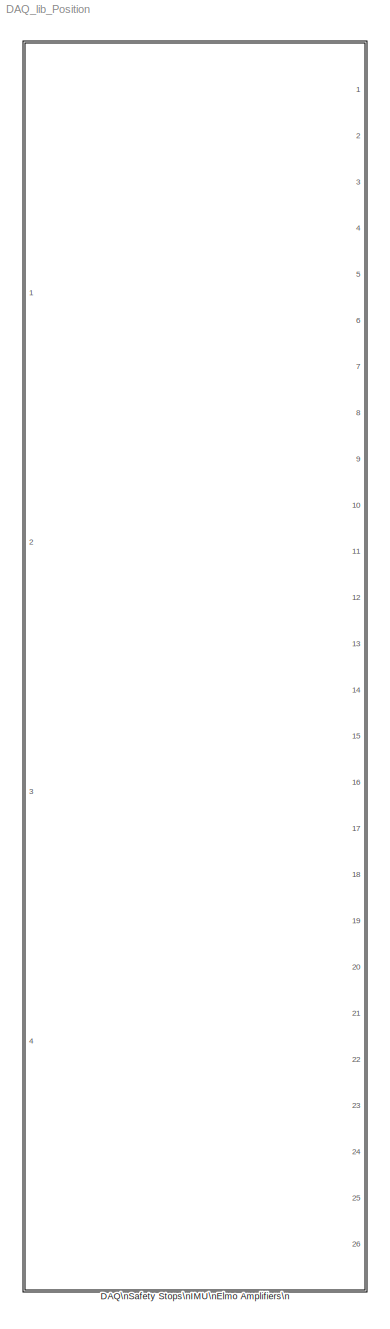
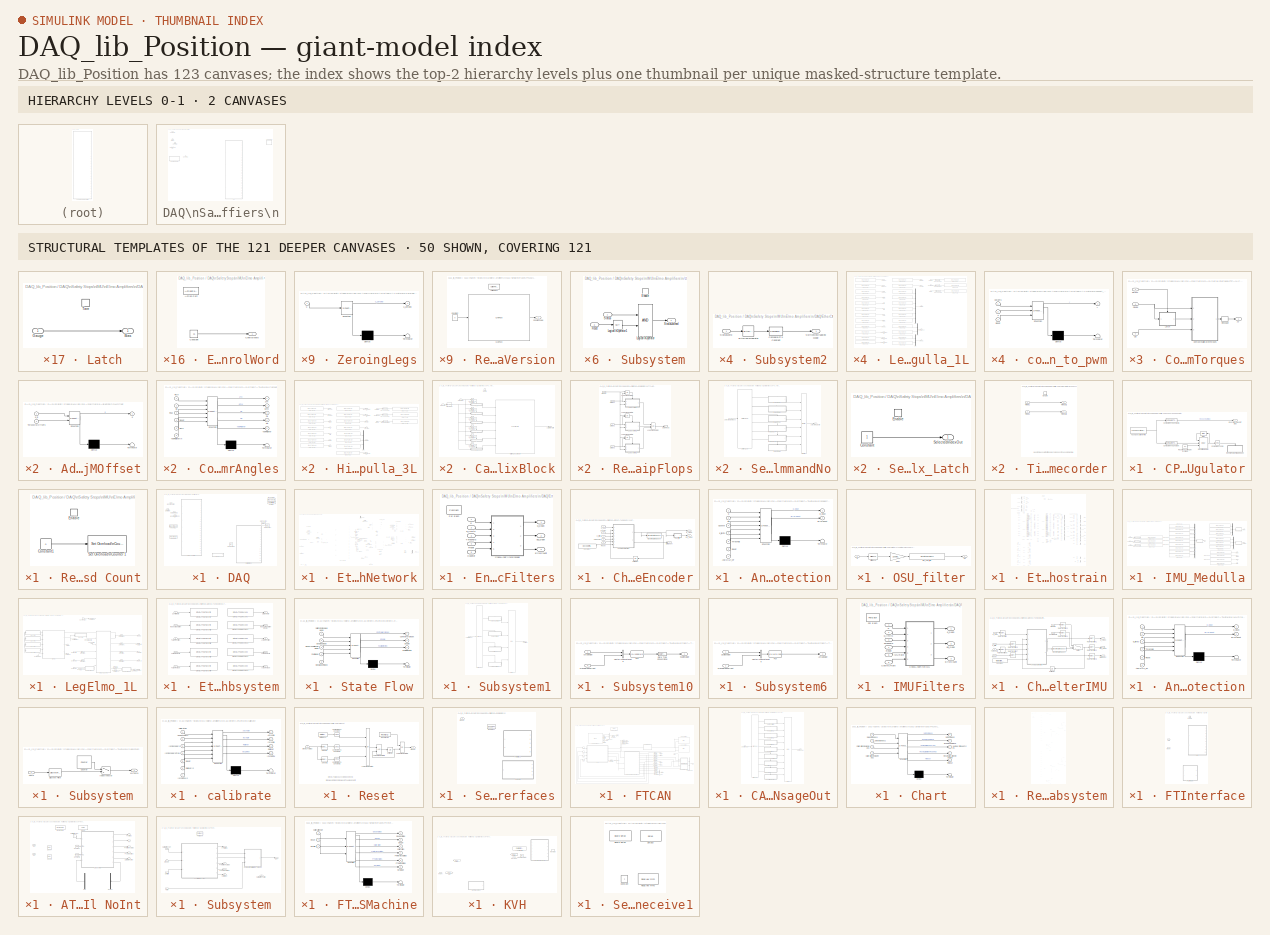
[diagram: thumbnail index - top-2 hierarchy levels (2 canvases) + 50 structural-template representatives of the remaining 121 canvases]
MODEL DAQ_lib_Position
KIND library
BLOCK [SubSystem] DAQ\nSafety Stops\nIMU\nElmo Amplifiers\n
  Ports = [4, 26]
  RequestExecContextInheritance = off
  SID = 10799
BLOCK [SubSystem] DAQ\nSafety Stops\nIMU\nElmo Amplifiers\n/AdjustForCOMOffset
  ErrorFcn = Stateflow.Translate.translate
  PermitHierarchicalResolution = ExplicitOnly
  Ports = [2, 1]
  RequestExecContextInheritance = off
  SFBlockType = MATLAB Function
  SID = 10802
  TreatAsAtomicUnit = on
BLOCK [Demux] DAQ\nSafety Stops\nIMU\nElmo Amplifiers\n/AdjustForCOMOffset/ Demux 
  Outputs = 1
  Ports = [1, 1]
  SID = 10802::34
BLOCK [S-Function] DAQ\nSafety Stops\nIMU\nElmo Amplifiers\n/AdjustForCOMOffset/ SFunction 
  EnableBusSupport = on
  FunctionName = sf_sfun
  PortCounts = [2 2]
  Ports = [2, 2]
  SID = 10802::33
  Tag = Stateflow S-Function DAQ_lib_Position 29
BLOCK [Terminator] DAQ\nSafety Stops\nIMU\nElmo Amplifiers\n/AdjustForCOMOffset/ Terminator 
  SID = 10802::35
BLOCK [Inport] DAQ\nSafety Stops\nIMU\nElmo Amplifiers\n/AdjustForCOMOffset/TorsoCOMOffsets
  IconDisplay = Port number
  Port = 2
  SID = 10802::23
BLOCK [Outport] DAQ\nSafety Stops\nIMU\nElmo Amplifiers\n/AdjustForCOMOffset/q
  IconDisplay = Port number
  SID = 10802::5
BLOCK [Inport] DAQ\nSafety Stops\nIMU\nElmo Amplifiers\n/AdjustForCOMOffset/q_in
  IconDisplay = Port number
  SID = 10802::1
BLOCK [SubSystem] DAQ\nSafety Stops\nIMU\nElmo Amplifiers\n/CPU Overload Regulator
  Ports = [0, 1]
  RequestExecContextInheritance = off
  SID = 10803
BLOCK [Bias] DAQ\nSafety Stops\nIMU\nElmo Amplifiers\n/CPU Overload Regulator/Bias
  Bias = -1
  SID = 10804
  SaturateOnIntegerOverflow = off
BLOCK [Reference] DAQ\nSafety Stops\nIMU\nElmo Amplifiers\n/CPU Overload Regulator/Compare\nTo Constant  REF=simulink/Logic and Bit\nOperations/Compare\nTo Constant
  OutDataTypeStr = boolean
  Ports = [1, 1]
  SID = 10805
  SourceBlock = simulink/Logic and Bit\nOperations/Compare\nTo Constant
  SourceType = Compare To Constant
  ZeroCross = on
  const = Ts
  relop = >=
BLOCK [Reference] DAQ\nSafety Stops\nIMU\nElmo Amplifiers\n/CPU Overload Regulator/Compare\nTo Constant1  REF=simulink/Logic and Bit\nOperations/Compare\nTo Constant
  OutDataTypeStr = boolean
  Ports = [1, 1]
  SID = 10806
  SourceBlock = simulink/Logic and Bit\nOperations/Compare\nTo Constant
  SourceType = Compare To Constant
  ZeroCross = on
  const = Ts*10
  relop = >=
BLOCK [Reference] DAQ\nSafety Stops\nIMU\nElmo Amplifiers\n/CPU Overload Regulator/Compare\nTo Zero  REF=simulink/Logic and Bit\nOperations/Compare\nTo Zero
  OutDataTypeStr = boolean
  Ports = [1, 1]
  SID = 10807
  SourceBlock = simulink/Logic and Bit\nOperations/Compare\nTo Zero
  SourceType = Compare To Zero
  ZeroCross = on
  relop = ==
BLOCK [Outport] DAQ\nSafety Stops\nIMU\nElmo Amplifiers\n/CPU Overload Regulator/ExecutionTimeSoftStop
  IconDisplay = Port number
  SID = 10815
BLOCK [SubSystem] DAQ\nSafety Stops\nIMU\nElmo Amplifiers\n/CPU Overload Regulator/Reset CPU Overload Count
  Ports = [0, 0, 1]
  RequestExecContextInheritance = off
  SID = 10808
  TreatAsAtomicUnit = on
BLOCK [Constant] DAQ\nSafety Stops\nIMU\nElmo Amplifiers\n/CPU Overload Regulator/Reset CPU Overload Count/Constant1
  SID = 10810
  Value = 0
BLOCK [EnablePort] DAQ\nSafety Stops\nIMU\nElmo Amplifiers\n/CPU Overload Regulator/Reset CPU Overload Count/Enable
  Ports = []
  SID = 10809
BLOCK [Reference] DAQ\nSafety Stops\nIMU\nElmo Amplifiers\n/CPU Overload Regulator/Reset CPU Overload Count/Set Overload\nCounter 1  REF=slrtlib/Target\nManagement/Execution\nParameters/Set Overload\nCounter 
  Ports = [1]
  SID = 10811
  SourceBlock = slrtlib/Target\nManagement/Execution\nParameters/Set Overload\nCounter
  SourceType = setoverload
  ts = -1
BLOCK [Constant] DAQ\nSafety Stops\nIMU\nElmo Amplifiers\n/CPU Overload Regulator/ResetExecutionDelaySteps
  SID = 10812
  SampleTime = Ts
  Value = 50
BLOCK [Delay] DAQ\nSafety Stops\nIMU\nElmo Amplifiers\n/CPU Overload Regulator/Resettable Delay
  DelayLength = 1
  ExternalReset = Level hold
  InitialConditionSource = Input port
  InputPortMap = u0,r5,p4
  Ports = [3, 1]
  SID = 10813
BLOCK [Reference] DAQ\nSafety Stops\nIMU\nElmo Amplifiers\n/CPU Overload Regulator/Task Execution\nTime   REF=slrtlib/Target\nManagement/Execution\nParameters/Task Execution\nTime 
  Ports = [0, 1]
  SID = 10814
  SourceBlock = slrtlib/Target\nManagement/Execution\nParameters/Task Execution\nTime
  SourceType = xpctet
  ts = Ts
BLOCK [Constant] DAQ\nSafety Stops\nIMU\nElmo Amplifiers\n/CurrentSaturation
  SID = 10816
  Value = 50
BLOCK [SubSystem] DAQ\nSafety Stops\nIMU\nElmo Amplifiers\n/DAQ
  Ports = [4, 34]
  RequestExecContextInheritance = off
  SID = 10817
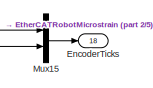
[diagram: DAQ\nSafety Stops\nIMU\nElmo Amplifiers\n/DAQ/EtherCATNetwork - part 1/5, top center region]
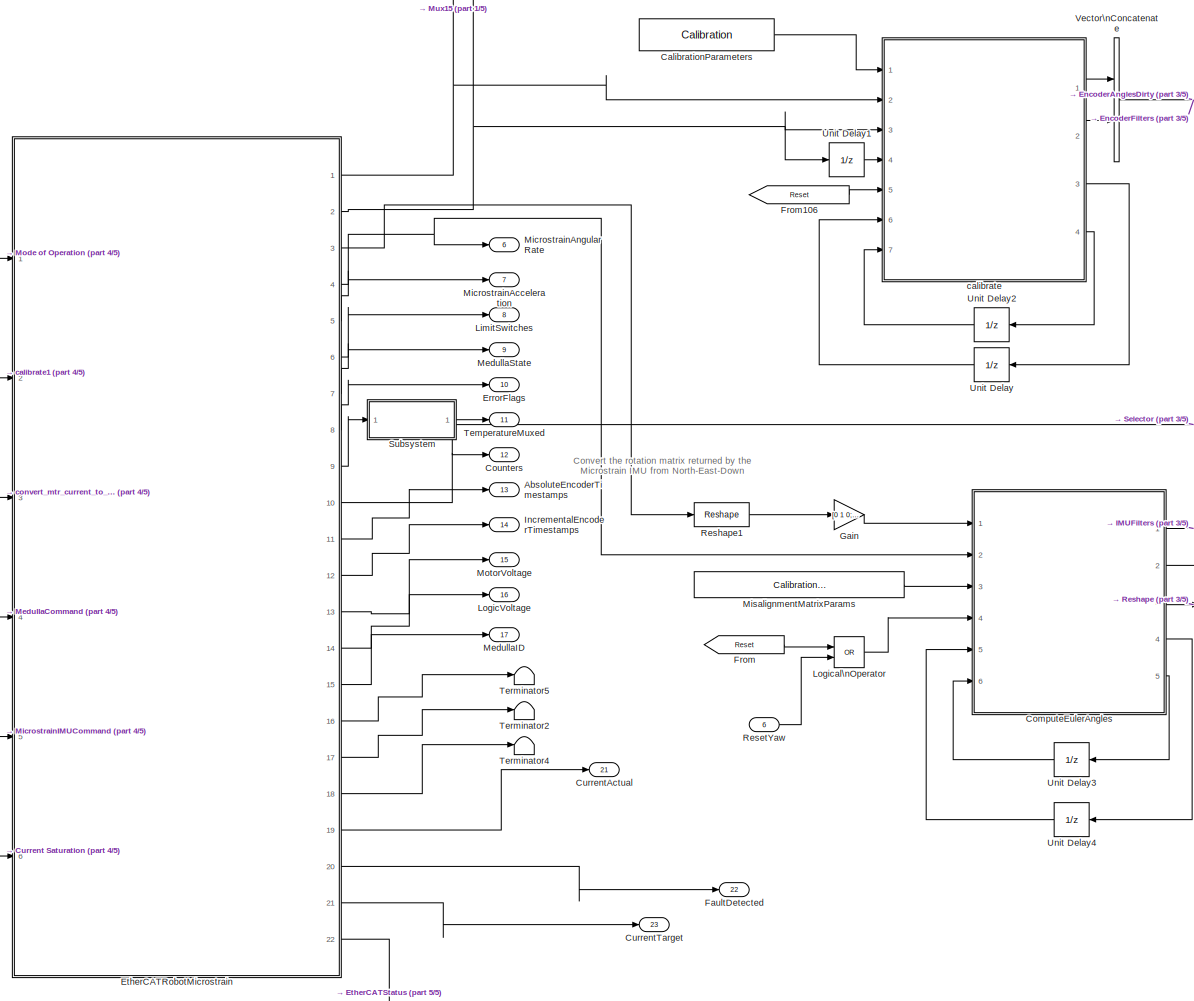
[diagram: DAQ\nSafety Stops\nIMU\nElmo Amplifiers\n/DAQ/EtherCATNetwork - part 2/5, center side, full height]
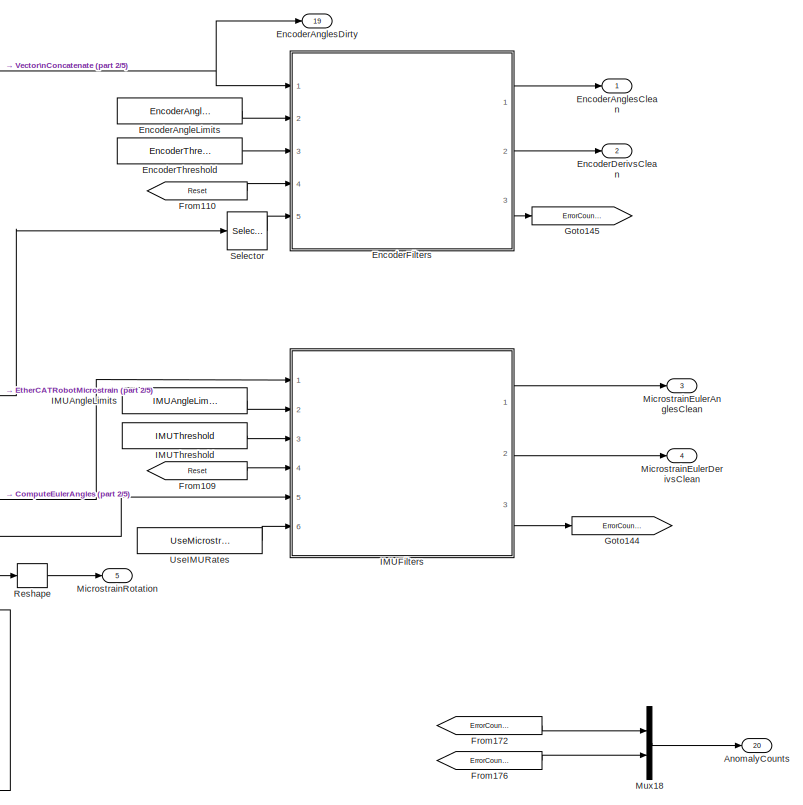
[diagram: DAQ\nSafety Stops\nIMU\nElmo Amplifiers\n/DAQ/EtherCATNetwork - part 3/5, middle right region]
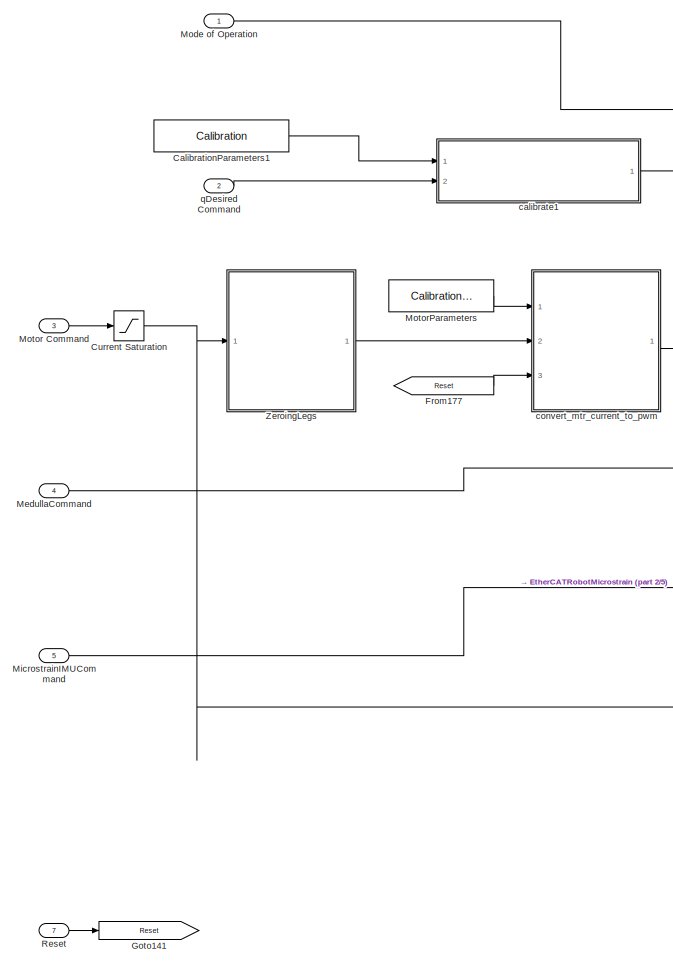
[diagram: DAQ\nSafety Stops\nIMU\nElmo Amplifiers\n/DAQ/EtherCATNetwork - part 4/5, left side, full height]
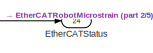
[diagram: DAQ\nSafety Stops\nIMU\nElmo Amplifiers\n/DAQ/EtherCATNetwork - part 5/5, bottom center region]
BLOCK [SubSystem] DAQ\nSafety Stops\nIMU\nElmo Amplifiers\n/DAQ/EtherCATNetwork
  Ports = [7, 24]
  RequestExecContextInheritance = off
  SID = 10820
BLOCK [Outport] DAQ\nSafety Stops\nIMU\nElmo Amplifiers\n/DAQ/EtherCATNetwork/AbsoluteEncoderTimestamps
  IconDisplay = Port number
  Port = 13
  SID = 12238
BLOCK [Outport] DAQ\nSafety Stops\nIMU\nElmo Amplifiers\n/DAQ/EtherCATNetwork/AnomalyCounts
  IconDisplay = Port number
  Port = 20
  SID = 12245
BLOCK [Constant] DAQ\nSafety Stops\nIMU\nElmo Amplifiers\n/DAQ/EtherCATNetwork/CalibrationParameters
  OutDataTypeStr = Bus: RobotCalibrationBus
  SID = 10826
  Value = Calibration
BLOCK [Constant] DAQ\nSafety Stops\nIMU\nElmo Amplifiers\n/DAQ/EtherCATNetwork/CalibrationParameters1
  OutDataTypeStr = Bus: RobotCalibrationBus
  SID = 15454
  Value = Calibration
BLOCK [SubSystem] DAQ\nSafety Stops\nIMU\nElmo Amplifiers\n/DAQ/EtherCATNetwork/ComputeEulerAngles
  ErrorFcn = Stateflow.Translate.translate
  PermitHierarchicalResolution = ExplicitOnly
  Ports = [6, 5]
  RequestExecContextInheritance = off
  SFBlockType = MATLAB Function
  SID = 10827
  TreatAsAtomicUnit = on
BLOCK [Demux] DAQ\nSafety Stops\nIMU\nElmo Amplifiers\n/DAQ/EtherCATNetwork/ComputeEulerAngles/ Demux 
  Outputs = 1
  Ports = [1, 1]
  SID = 10827::61
BLOCK [S-Function] DAQ\nSafety Stops\nIMU\nElmo Amplifiers\n/DAQ/EtherCATNetwork/ComputeEulerAngles/ SFunction 
  EnableBusSupport = on
  FunctionName = sf_sfun
  PortCounts = [6 6]
  Ports = [6, 6]
  SID = 10827::60
  Tag = Stateflow S-Function DAQ_lib_Position 30
BLOCK [Terminator] DAQ\nSafety Stops\nIMU\nElmo Amplifiers\n/DAQ/EtherCATNetwork/ComputeEulerAngles/ Terminator 
  SID = 10827::62
BLOCK [Outport] DAQ\nSafety Stops\nIMU\nElmo Amplifiers\n/DAQ/EtherCATNetwork/ComputeEulerAngles/R0
  IconDisplay = Port number
  Port = 4
  SID = 10827::32
BLOCK [Inport] DAQ\nSafety Stops\nIMU\nElmo Amplifiers\n/DAQ/EtherCATNetwork/ComputeEulerAngles/R0In
  IconDisplay = Port number
  Port = 5
  SID = 10827::30
BLOCK [Inport] DAQ\nSafety Stops\nIMU\nElmo Amplifiers\n/DAQ/EtherCATNetwork/ComputeEulerAngles/RCal
  IconDisplay = Port number
  Port = 3
  SID = 10827::1
BLOCK [Inport] DAQ\nSafety Stops\nIMU\nElmo Amplifiers\n/DAQ/EtherCATNetwork/ComputeEulerAngles/Reset
  IconDisplay = Port number
  Port = 4
  SID = 10827::24
BLOCK [Outport] DAQ\nSafety Stops\nIMU\nElmo Amplifiers\n/DAQ/EtherCATNetwork/ComputeEulerAngles/Rk
  IconDisplay = Port number
  Port = 3
  SID = 10827::34
BLOCK [Inport] DAQ\nSafety Stops\nIMU\nElmo Amplifiers\n/DAQ/EtherCATNetwork/ComputeEulerAngles/RkIn
  IconDisplay = Port number
  SID = 10827::33
BLOCK [Outport] DAQ\nSafety Stops\nIMU\nElmo Amplifiers\n/DAQ/EtherCATNetwork/ComputeEulerAngles/YawRollover
  IconDisplay = Port number
  Port = 5
  SID = 10827::50
BLOCK [Inport] DAQ\nSafety Stops\nIMU\nElmo Amplifiers\n/DAQ/EtherCATNetwork/ComputeEulerAngles/YawRolloverIn
  IconDisplay = Port number
  Port = 6
  SID = 10827::49
BLOCK [Outport] DAQ\nSafety Stops\nIMU\nElmo Amplifiers\n/DAQ/EtherCATNetwork/ComputeEulerAngles/ZYX
  IconDisplay = Port number
  SID = 10827::27
BLOCK [Outport] DAQ\nSafety Stops\nIMU\nElmo Amplifiers\n/DAQ/EtherCATNetwork/ComputeEulerAngles/dZYX
  IconDisplay = Port number
  Port = 2
  SID = 10827::48
BLOCK [Inport] DAQ\nSafety Stops\nIMU\nElmo Amplifiers\n/DAQ/EtherCATNetwork/ComputeEulerAngles/wk
  IconDisplay = Port number
  Port = 2
  SID = 10827::47
BLOCK [Outport] DAQ\nSafety Stops\nIMU\nElmo Amplifiers\n/DAQ/EtherCATNetwork/Counters
  IconDisplay = Port number
  Port = 12
  SID = 12237
BLOCK [Saturate] DAQ\nSafety Stops\nIMU\nElmo Amplifiers\n/DAQ/EtherCATNetwork/Current Saturation
  InputPortMap = u0
  LowerLimit = -40
  Ports = [1, 1]
  SID = 10828
  UpperLimit = 40
BLOCK [Outport] DAQ\nSafety Stops\nIMU\nElmo Amplifiers\n/DAQ/EtherCATNetwork/CurrentActual
  IconDisplay = Port number
  Port = 21
  SID = 12247
BLOCK [Outport] DAQ\nSafety Stops\nIMU\nElmo Amplifiers\n/DAQ/EtherCATNetwork/CurrentTarget
  IconDisplay = Port number
  Port = 23
  SID = 12252
BLOCK [Constant] DAQ\nSafety Stops\nIMU\nElmo Amplifiers\n/DAQ/EtherCATNetwork/EncoderAngleLimits
  SID = 10829
  Value = EncoderAngleLimits
BLOCK [Outport] DAQ\nSafety Stops\nIMU\nElmo Amplifiers\n/DAQ/EtherCATNetwork/EncoderAnglesClean
  IconDisplay = Port number
  SID = 12226
BLOCK [Outport] DAQ\nSafety Stops\nIMU\nElmo Amplifiers\n/DAQ/EtherCATNetwork/EncoderAnglesDirty
  IconDisplay = Port number
  Port = 19
  SID = 12244
BLOCK [Outport] DAQ\nSafety Stops\nIMU\nElmo Amplifiers\n/DAQ/EtherCATNetwork/EncoderDerivsClean
  IconDisplay = Port number
  Port = 2
  SID = 12227
BLOCK [SubSystem] DAQ\nSafety Stops\nIMU\nElmo Amplifiers\n/DAQ/EtherCATNetwork/EncoderFilters
  Ports = [5, 3]
  RequestExecContextInheritance = off
  SID = 10830
  TreatAsAtomicUnit = on
BLOCK [SubSystem] DAQ\nSafety Stops\nIMU\nElmo Amplifiers\n/DAQ/EtherCATNetwork/EncoderFilters/CheckAndFilterEncoder
  Ports = [5, 3]
  RequestExecContextInheritance = off
  SID = 10836
BLOCK [SubSystem] DAQ\nSafety Stops\nIMU\nElmo Amplifiers\n/DAQ/EtherCATNetwork/EncoderFilters/CheckAndFilterEncoder/AnomalyDetection
  ErrorFcn = Stateflow.Translate.translate
  PermitHierarchicalResolution = ExplicitOnly
  Ports = [7, 2]
  RequestExecContextInheritance = off
  SFBlockType = Chart
  SID = 10842
  SystemSampleTime = EncoderFiltSys.dt
  TreatAsAtomicUnit = on
BLOCK [Demux] DAQ\nSafety Stops\nIMU\nElmo Amplifiers\n/DAQ/EtherCATNetwork/EncoderFilters/CheckAndFilterEncoder/AnomalyDetection/ Demux 
  Outputs = 1
  Ports = [1, 1]
  SID = 10842::74
BLOCK [S-Function] DAQ\nSafety Stops\nIMU\nElmo Amplifiers\n/DAQ/EtherCATNetwork/EncoderFilters/CheckAndFilterEncoder/AnomalyDetection/ SFunction 
  EnableBusSupport = on
  FunctionName = sf_sfun
  Parameters = ANOMALY_INIT,MAX_ANOMALY
  PortCounts = [7 3]
  Ports = [7, 3]
  SID = 10842::73
  Tag = Stateflow S-Function DAQ_lib_Position 31
BLOCK [Terminator] DAQ\nSafety Stops\nIMU\nElmo Amplifiers\n/DAQ/EtherCATNetwork/EncoderFilters/CheckAndFilterEncoder/AnomalyDetection/ Terminator 
  SID = 10842::75
BLOCK [Inport] DAQ\nSafety Stops\nIMU\nElmo Amplifiers\n/DAQ/EtherCATNetwork/EncoderFilters/CheckAndFilterEncoder/AnomalyDetection/ANOMALY_DT
  IconDisplay = Port number
  Port = 7
  SID = 10842::35
BLOCK [Inport] DAQ\nSafety Stops\nIMU\nElmo Amplifiers\n/DAQ/EtherCATNetwork/EncoderFilters/CheckAndFilterEncoder/AnomalyDetection/Counter
  IconDisplay = Port number
  Port = 3
  SID = 10842::54
BLOCK [Outport] DAQ\nSafety Stops\nIMU\nElmo Amplifiers\n/DAQ/EtherCATNetwork/EncoderFilters/CheckAndFilterEncoder/AnomalyDetection/ErrorCount
  IconDisplay = Port number
  Port = 2
  SID = 10842::46
BLOCK [Inport] DAQ\nSafety Stops\nIMU\nElmo Amplifiers\n/DAQ/EtherCATNetwork/EncoderFilters/CheckAndFilterEncoder/AnomalyDetection/Reset
  IconDisplay = Port number
  Port = 6
  SID = 10842::45
BLOCK [Inport] DAQ\nSafety Stops\nIMU\nElmo Amplifiers\n/DAQ/EtherCATNetwork/EncoderFilters/CheckAndFilterEncoder/AnomalyDetection/Threshold
  IconDisplay = Port number
  Port = 5
  SID = 10842::33
BLOCK [Inport] DAQ\nSafety Stops\nIMU\nElmo Amplifiers\n/DAQ/EtherCATNetwork/EncoderFilters/CheckAndFilterEncoder/AnomalyDetection/dq
  IconDisplay = Port number
  Port = 2
  SID = 10842::30
BLOCK [Inport] DAQ\nSafety Stops\nIMU\nElmo Amplifiers\n/DAQ/EtherCATNetwork/EncoderFilters/CheckAndFilterEncoder/AnomalyDetection/q
  IconDisplay = Port number
  SID = 10842::29
BLOCK [Outport] DAQ\nSafety Stops\nIMU\nElmo Amplifiers\n/DAQ/EtherCATNetwork/EncoderFilters/CheckAndFilterEncoder/AnomalyDetection/q_clean
  IconDisplay = Port number
  SID = 10842::31
BLOCK [Inport] DAQ\nSafety Stops\nIMU\nElmo Amplifiers\n/DAQ/EtherCATNetwork/EncoderFilters/CheckAndFilterEncoder/AnomalyDetection/q_limits
  IconDisplay = Port number
  Port = 4
  SID = 10842::44
BLOCK [Constant] DAQ\nSafety Stops\nIMU\nElmo Amplifiers\n/DAQ/EtherCATNetwork/EncoderFilters/CheckAndFilterEncoder/Constant
  SID = 10843
  Value = EncoderFiltSys.dt
BLOCK [Inport] DAQ\nSafety Stops\nIMU\nElmo Amplifiers\n/DAQ/EtherCATNetwork/EncoderFilters/CheckAndFilterEncoder/Counter
  IconDisplay = Port number
  Port = 5
  SID = 10841
BLOCK [DiscreteStateSpace] DAQ\nSafety Stops\nIMU\nElmo Amplifiers\n/DAQ/EtherCATNetwork/EncoderFilters/CheckAndFilterEncoder/Discrete State-Space
  A = EncoderFiltSys.A
  B = EncoderFiltSys.B
  C = EncoderFiltSys.C
  D = EncoderFiltSys.D
  SID = 10844
  SampleTime = EncoderFiltSys.dt
  X0 = EncoderFiltSys.x0
BLOCK [Outport] DAQ\nSafety Stops\nIMU\nElmo Amplifiers\n/DAQ/EtherCATNetwork/EncoderFilters/CheckAndFilterEncoder/ErrorCount
  IconDisplay = Port number
  Port = 3
  SID = 10854
BLOCK [SubSystem] DAQ\nSafety Stops\nIMU\nElmo Amplifiers\n/DAQ/EtherCATNetwork/EncoderFilters/CheckAndFilterEncoder/OSU_filter
  Ports = [1, 1]
  RequestExecContextInheritance = off
  SID = 10845
BLOCK [Gain] DAQ\nSafety Stops\nIMU\nElmo Amplifiers\n/DAQ/EtherCATNetwork/EncoderFilters/CheckAndFilterEncoder/OSU_filter/Gain1
  Gain = 1/sample_time
  OutDataTypeStr = Inherit: Inherit via internal rule
  ParamDataTypeStr = Inherit: Inherit via internal rule
  SID = 10847
  SaturateOnIntegerOverflow = off
BLOCK [Reference] DAQ\nSafety Stops\nIMU\nElmo Amplifiers\n/DAQ/EtherCATNetwork/EncoderFilters/CheckAndFilterEncoder/OSU_filter/difference  REF=simulink/Discrete/Difference
  DoSatur = off
  ICPrevInput = 0
  InputProcessing = Columns as channels (frame based)
  LockScale = off
  OutDataType = fixdt(1, 16)
  OutDataTypeStr = Inherit: Inherit via internal rule
  OutMax = []
  OutMin = []
  OutScaling = 2^-10
  OutputDataTypeScalingMode = Inherit via internal rule
  Ports = [1, 1]
  RndMeth = Floor
  SID = 10848
  SourceBlock = simulink/Discrete/Difference
  SourceType = Difference
BLOCK [Outport] DAQ\nSafety Stops\nIMU\nElmo Amplifiers\n/DAQ/EtherCATNetwork/EncoderFilters/CheckAndFilterEncoder/OSU_filter/dq
  IconDisplay = Port number
  SID = 10850
BLOCK [Inport] DAQ\nSafety Stops\nIMU\nElmo Amplifiers\n/DAQ/EtherCATNetwork/EncoderFilters/CheckAndFilterEncoder/OSU_filter/q
  IconDisplay = Port number
  SID = 10846
BLOCK [DiscreteTransferFcn] DAQ\nSafety Stops\nIMU\nElmo Amplifiers\n/DAQ/EtherCATNetwork/EncoderFilters/CheckAndFilterEncoder/OSU_filter/two_pole_filter
  Denominator = [1 B1_lpf_velocity B2_lpf_velocity]
  InputPortMap = u0
  Numerator = [A_lpf_velocity 0 0]
  Ports = [1, 1]
  SID = 10849
  SampleTime = sample_time
BLOCK [Inport] DAQ\nSafety Stops\nIMU\nElmo Amplifiers\n/DAQ/EtherCATNetwork/EncoderFilters/CheckAndFilterEncoder/Reset
  IconDisplay = Port number
  Port = 4
  SID = 10840
BLOCK [Inport] DAQ\nSafety Stops\nIMU\nElmo Amplifiers\n/DAQ/EtherCATNetwork/EncoderFilters/CheckAndFilterEncoder/Threshold
  IconDisplay = Port number
  Port = 3
  SID = 10839
BLOCK [UnitDelay] DAQ\nSafety Stops\nIMU\nElmo Amplifiers\n/DAQ/EtherCATNetwork/EncoderFilters/CheckAndFilterEncoder/Unit Delay
  InputProcessing = Elements as channels (sample based)
  SID = 10851
  SampleTime = EncoderFiltSys.dt
BLOCK [Outport] DAQ\nSafety Stops\nIMU\nElmo Amplifiers\n/DAQ/EtherCATNetwork/EncoderFilters/CheckAndFilterEncoder/dq_clean
  IconDisplay = Port number
  Port = 2
  SID = 10853
BLOCK [Outport] DAQ\nSafety Stops\nIMU\nElmo Amplifiers\n/DAQ/EtherCATNetwork/EncoderFilters/CheckAndFilterEncoder/q_clean
  IconDisplay = Port number
  SID = 10852
BLOCK [Inport] DAQ\nSafety Stops\nIMU\nElmo Amplifiers\n/DAQ/EtherCATNetwork/EncoderFilters/CheckAndFilterEncoder/q_daq
  IconDisplay = Port number
  SID = 10837
BLOCK [Inport] DAQ\nSafety Stops\nIMU\nElmo Amplifiers\n/DAQ/EtherCATNetwork/EncoderFilters/CheckAndFilterEncoder/q_limits
  IconDisplay = Port number
  Port = 2
  SID = 10838
BLOCK [Inport] DAQ\nSafety Stops\nIMU\nElmo Amplifiers\n/DAQ/EtherCATNetwork/EncoderFilters/Counter
  IconDisplay = Port number
  Partition = on
  PartitionDimension = 1
  PartitionWidth = 1
  Port = 5
  SID = 10835
BLOCK [Outport] DAQ\nSafety Stops\nIMU\nElmo Amplifiers\n/DAQ/EtherCATNetwork/EncoderFilters/ErrorCount
  ConcatenationDimension = 1
  IconDisplay = Port number
  Port = 3
  SID = 10858
BLOCK [ForEach] DAQ\nSafety Stops\nIMU\nElmo Amplifiers\n/DAQ/EtherCATNetwork/EncoderFilters/For Each
  DisableCoverage = on
  IndexMode = One-based
  Ports = []
  SID = 10855
BLOCK [Inport] DAQ\nSafety Stops\nIMU\nElmo Amplifiers\n/DAQ/EtherCATNetwork/EncoderFilters/Reset
  IconDisplay = Port number
  Partition = off
  Port = 4
  SID = 10834
BLOCK [Inport] DAQ\nSafety Stops\nIMU\nElmo Amplifiers\n/DAQ/EtherCATNetwork/EncoderFilters/Threshold
  IconDisplay = Port number
  Partition = on
  PartitionDimension = 1
  PartitionWidth = 1
  Port = 3
  SID = 10833
BLOCK [Outport] DAQ\nSafety Stops\nIMU\nElmo Amplifiers\n/DAQ/EtherCATNetwork/EncoderFilters/dq_clean
  ConcatenationDimension = 1
  IconDisplay = Port number
  Port = 2
  SID = 10857
BLOCK [Inport] DAQ\nSafety Stops\nIMU\nElmo Amplifiers\n/DAQ/EtherCATNetwork/EncoderFilters/q
  IconDisplay = Port number
  Partition = on
  PartitionDimension = 1
  PartitionWidth = 1
  SID = 10831
BLOCK [Outport] DAQ\nSafety Stops\nIMU\nElmo Amplifiers\n/DAQ/EtherCATNetwork/EncoderFilters/q_clean
  ConcatenationDimension = 1
  IconDisplay = Port number
  SID = 10856
BLOCK [Inport] DAQ\nSafety Stops\nIMU\nElmo Amplifiers\n/DAQ/EtherCATNetwork/EncoderFilters/q_limits
  IconDisplay = Port number
  Partition = on
  PartitionDimension = 1
  PartitionWidth = 1
  Port = 2
  SID = 10832
BLOCK [Constant] DAQ\nSafety Stops\nIMU\nElmo Amplifiers\n/DAQ/EtherCATNetwork/EncoderThreshold
  SID = 10859
  Value = EncoderThreshold
BLOCK [Outport] DAQ\nSafety Stops\nIMU\nElmo Amplifiers\n/DAQ/EtherCATNetwork/EncoderTicks
  IconDisplay = Port number
  Port = 18
  SID = 12243
BLOCK [Outport] DAQ\nSafety Stops\nIMU\nElmo Amplifiers\n/DAQ/EtherCATNetwork/ErrorFlags
  IconDisplay = Port number
  Port = 10
  SID = 12235
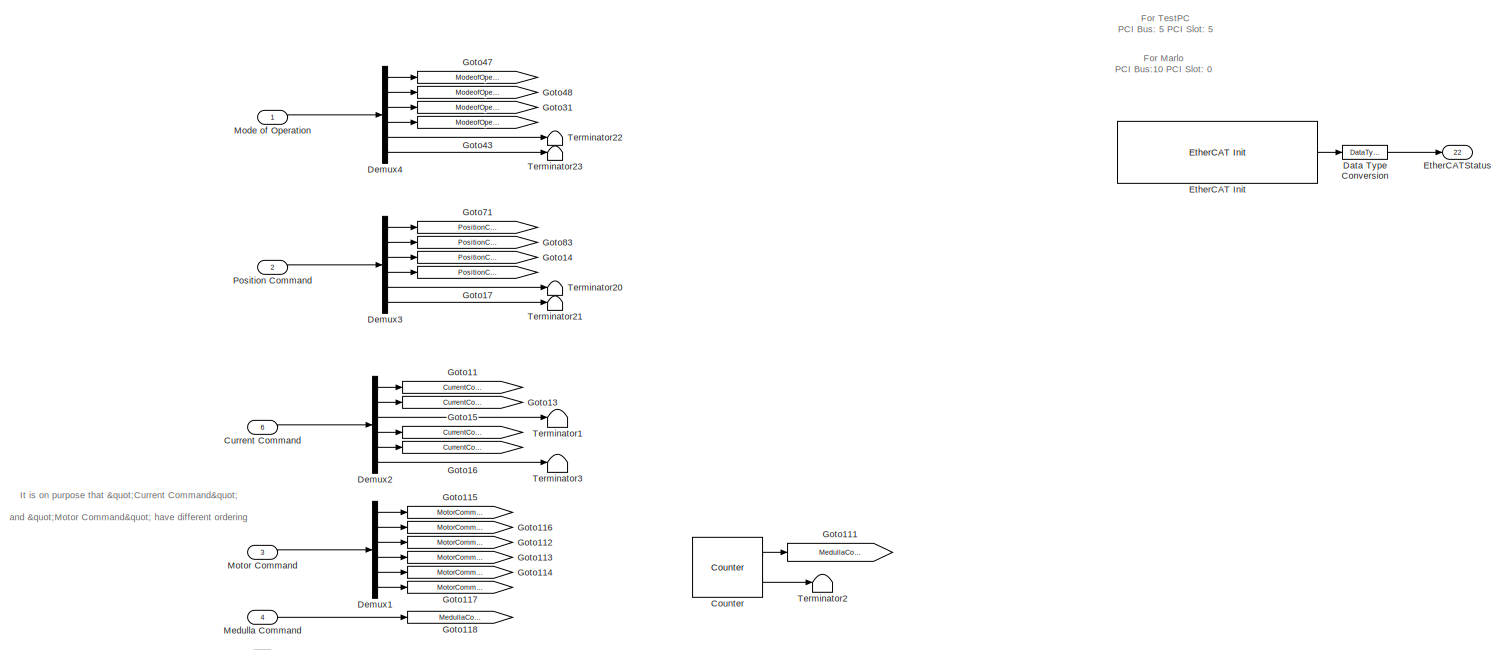
[diagram: DAQ\nSafety Stops\nIMU\nElmo Amplifiers\n/DAQ/EtherCATNetwork/EtherCATRobotMicrostrain - part 1/6, top left region]
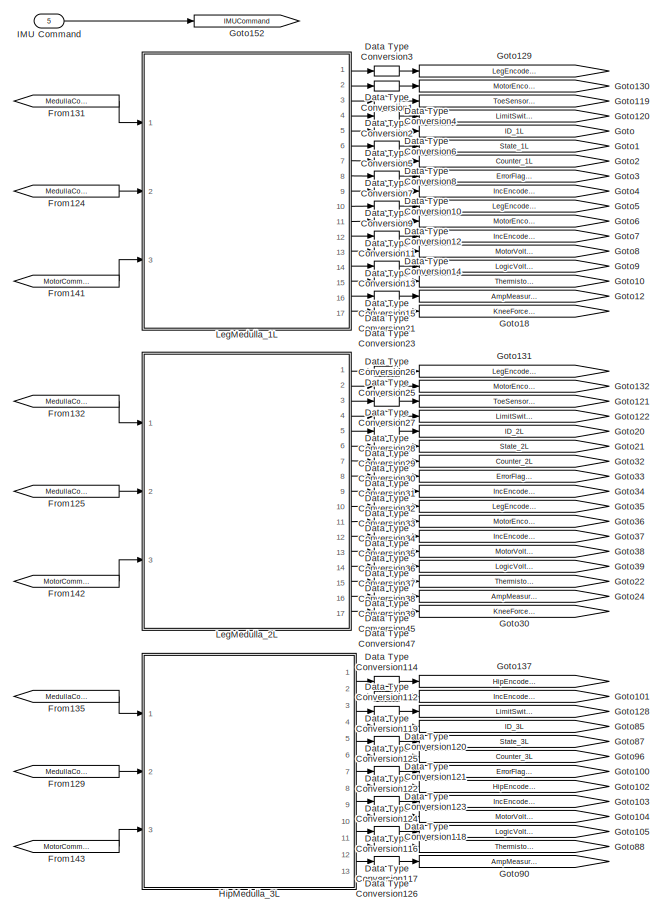
[diagram: DAQ\nSafety Stops\nIMU\nElmo Amplifiers\n/DAQ/EtherCATNetwork/EtherCATRobotMicrostrain - part 2/6, middle left region]
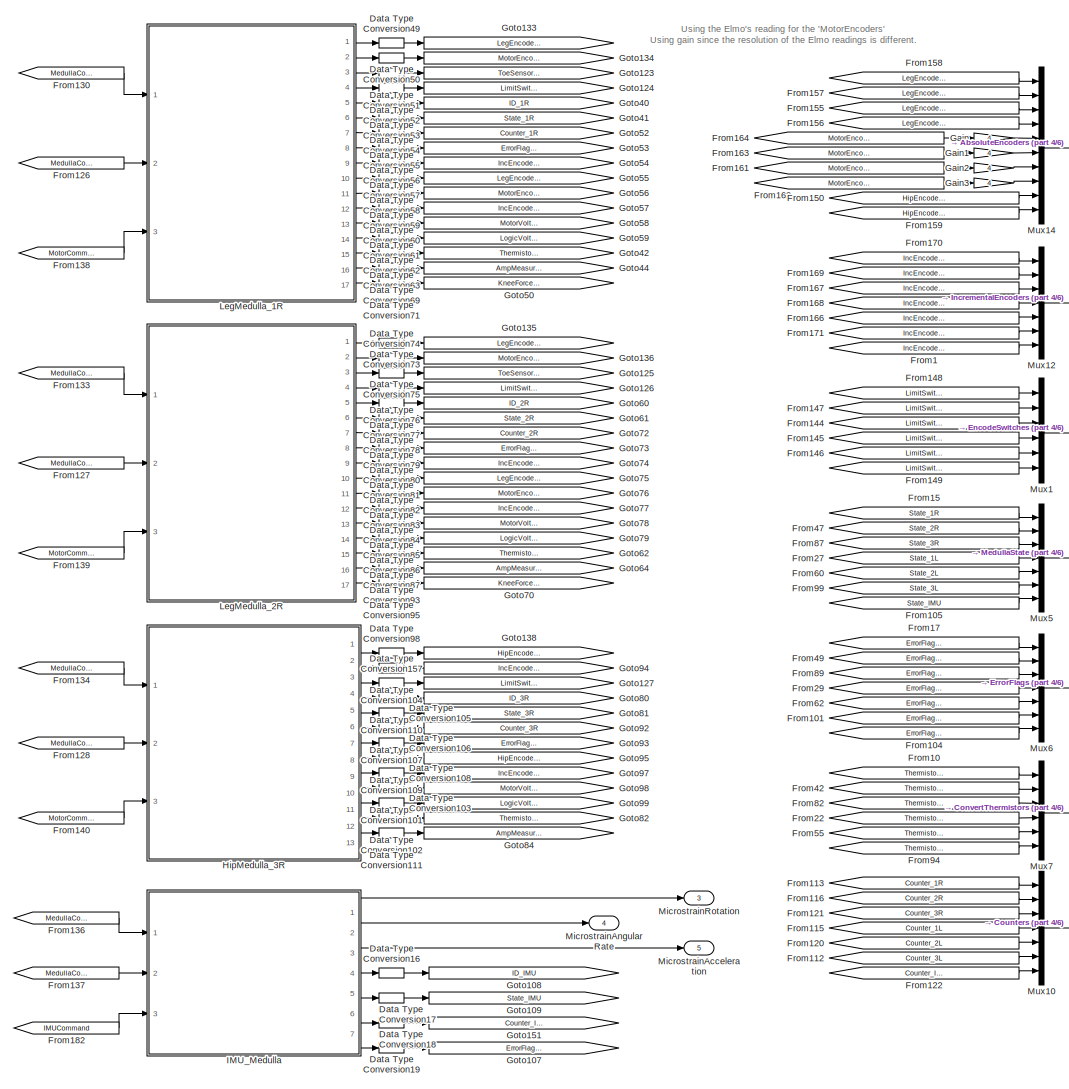
[diagram: DAQ\nSafety Stops\nIMU\nElmo Amplifiers\n/DAQ/EtherCATNetwork/EtherCATRobotMicrostrain - part 3/6, central region]
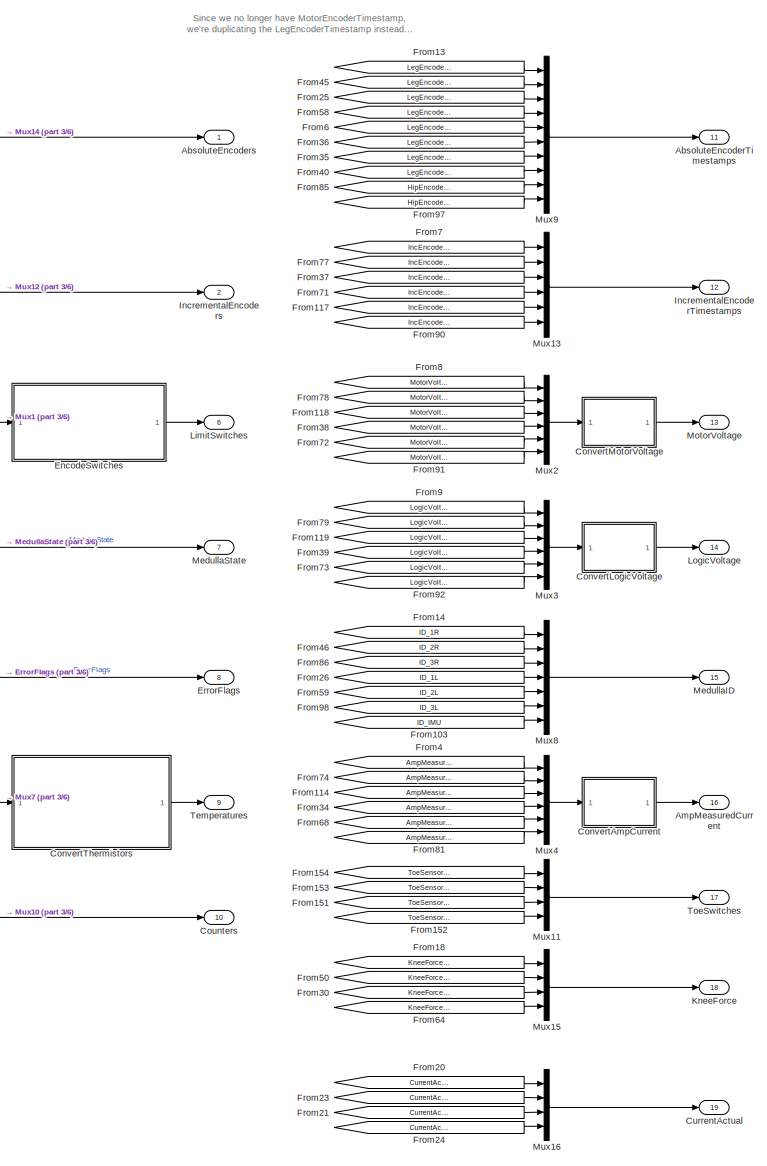
[diagram: DAQ\nSafety Stops\nIMU\nElmo Amplifiers\n/DAQ/EtherCATNetwork/EtherCATRobotMicrostrain - part 4/6, middle right region]
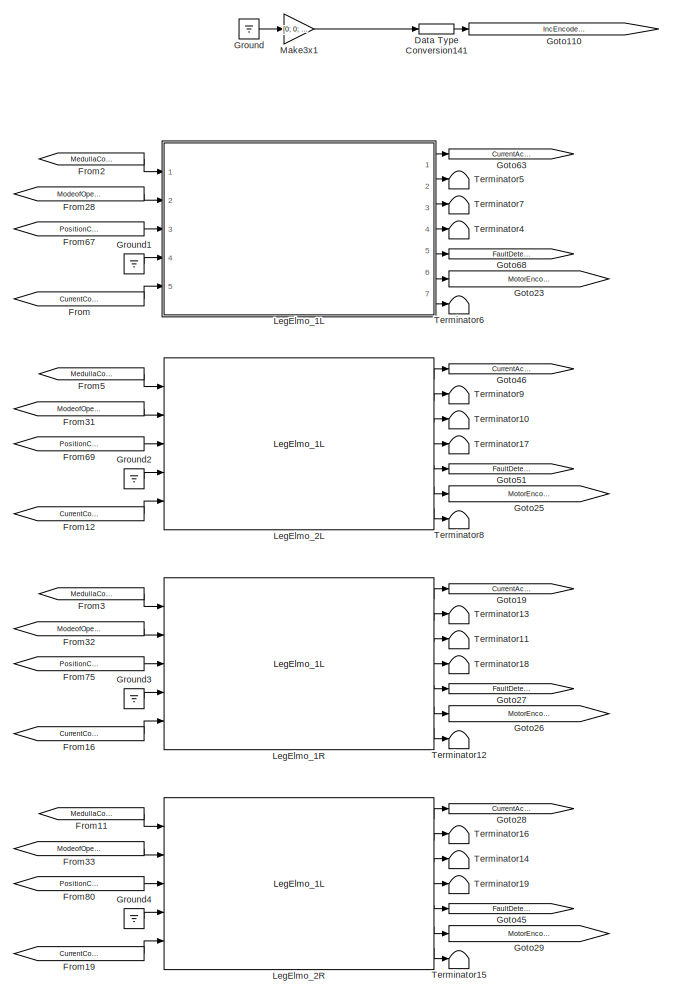
[diagram: DAQ\nSafety Stops\nIMU\nElmo Amplifiers\n/DAQ/EtherCATNetwork/EtherCATRobotMicrostrain - part 5/6, bottom left region]
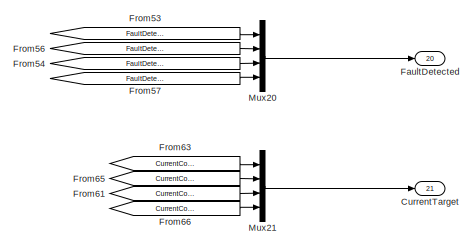
[diagram: DAQ\nSafety Stops\nIMU\nElmo Amplifiers\n/DAQ/EtherCATNetwork/EtherCATRobotMicrostrain - part 6/6, bottom right region]
BLOCK [SubSystem] DAQ\nSafety Stops\nIMU\nElmo Amplifiers\n/DAQ/EtherCATNetwork/EtherCATRobotMicrostrain
  Ports = [6, 22]
  RequestExecContextInheritance = off
  SID = 10860
BLOCK [Outport] DAQ\nSafety Stops\nIMU\nElmo Amplifiers\n/DAQ/EtherCATNetwork/EtherCATRobotMicrostrain/AbsoluteEncoderTimestamps
  IconDisplay = Port number
  Port = 11
  SID = 12136
BLOCK [Outport] DAQ\nSafety Stops\nIMU\nElmo Amplifiers\n/DAQ/EtherCATNetwork/EtherCATRobotMicrostrain/AbsoluteEncoders
  IconDisplay = Port number
  SID = 12126
BLOCK [Outport] DAQ\nSafety Stops\nIMU\nElmo Amplifiers\n/DAQ/EtherCATNetwork/EtherCATRobotMicrostrain/AmpMeasuredCurrent
  IconDisplay = Port number
  Port = 16
  SID = 12141
BLOCK [SubSystem] DAQ\nSafety Stops\nIMU\nElmo Amplifiers\n/DAQ/EtherCATNetwork/EtherCATRobotMicrostrain/ConvertAmpCurrent
  ErrorFcn = Stateflow.Translate.translate
  PermitHierarchicalResolution = ExplicitOnly
  Ports = [1, 1]
  RequestExecContextInheritance = off
  SFBlockType = MATLAB Function
  SID = 10865
  TreatAsAtomicUnit = on
BLOCK [Demux] DAQ\nSafety Stops\nIMU\nElmo Amplifiers\n/DAQ/EtherCATNetwork/EtherCATRobotMicrostrain/ConvertAmpCurrent/ Demux 
  Outputs = 1
  Ports = [1, 1]
  SID = 10865::30
BLOCK [S-Function] DAQ\nSafety Stops\nIMU\nElmo Amplifiers\n/DAQ/EtherCATNetwork/EtherCATRobotMicrostrain/ConvertAmpCurrent/ SFunction 
  EnableBusSupport = on
  FunctionName = sf_sfun
  PortCounts = [1 2]
  Ports = [1, 2]
  SID = 10865::29
  Tag = Stateflow S-Function DAQ_lib_Position 33
BLOCK [Terminator] DAQ\nSafety Stops\nIMU\nElmo Amplifiers\n/DAQ/EtherCATNetwork/EtherCATRobotMicrostrain/ConvertAmpCurrent/ Terminator 
  SID = 10865::31
BLOCK [Inport] DAQ\nSafety Stops\nIMU\nElmo Amplifiers\n/DAQ/EtherCATNetwork/EtherCATRobotMicrostrain/ConvertAmpCurrent/adc_value
  IconDisplay = Port number
  SID = 10865::1
BLOCK [Outport] DAQ\nSafety Stops\nIMU\nElmo Amplifiers\n/DAQ/EtherCATNetwork/EtherCATRobotMicrostrain/ConvertAmpCurrent/measuredCurrent
  IconDisplay = Port number
  SID = 10865::5
BLOCK [SubSystem] DAQ\nSafety Stops\nIMU\nElmo Amplifiers\n/DAQ/EtherCATNetwork/EtherCATRobotMicrostrain/ConvertLogicVoltage
  ErrorFcn = Stateflow.Translate.translate
  PermitHierarchicalResolution = ExplicitOnly
  Ports = [1, 1]
  RequestExecContextInheritance = off
  SFBlockType = MATLAB Function
  SID = 10866
  TreatAsAtomicUnit = on
BLOCK [Demux] DAQ\nSafety Stops\nIMU\nElmo Amplifiers\n/DAQ/EtherCATNetwork/EtherCATRobotMicrostrain/ConvertLogicVoltage/ Demux 
  Outputs = 1
  Ports = [1, 1]
  SID = 10866::30
BLOCK [S-Function] DAQ\nSafety Stops\nIMU\nElmo Amplifiers\n/DAQ/EtherCATNetwork/EtherCATRobotMicrostrain/ConvertLogicVoltage/ SFunction 
  EnableBusSupport = on
  FunctionName = sf_sfun
  PortCounts = [1 2]
  Ports = [1, 2]
  SID = 10866::29
  Tag = Stateflow S-Function DAQ_lib_Position 34
BLOCK [Terminator] DAQ\nSafety Stops\nIMU\nElmo Amplifiers\n/DAQ/EtherCATNetwork/EtherCATRobotMicrostrain/ConvertLogicVoltage/ Terminator 
  SID = 10866::31
BLOCK [Inport] DAQ\nSafety Stops\nIMU\nElmo Amplifiers\n/DAQ/EtherCATNetwork/EtherCATRobotMicrostrain/ConvertLogicVoltage/adc_value
  IconDisplay = Port number
  SID = 10866::1
BLOCK [Outport] DAQ\nSafety Stops\nIMU\nElmo Amplifiers\n/DAQ/EtherCATNetwork/EtherCATRobotMicrostrain/ConvertLogicVoltage/logicVoltage
  IconDisplay = Port number
  SID = 10866::5
BLOCK [SubSystem] DAQ\nSafety Stops\nIMU\nElmo Amplifiers\n/DAQ/EtherCATNetwork/EtherCATRobotMicrostrain/ConvertMotorVoltage
  ErrorFcn = Stateflow.Translate.translate
  PermitHierarchicalResolution = ExplicitOnly
  Ports = [1, 1]
  RequestExecContextInheritance = off
  SFBlockType = MATLAB Function
  SID = 10867
  TreatAsAtomicUnit = on
BLOCK [Demux] DAQ\nSafety Stops\nIMU\nElmo Amplifiers\n/DAQ/EtherCATNetwork/EtherCATRobotMicrostrain/ConvertMotorVoltage/ Demux 
  Outputs = 1
  Ports = [1, 1]
  SID = 10867::30
BLOCK [S-Function] DAQ\nSafety Stops\nIMU\nElmo Amplifiers\n/DAQ/EtherCATNetwork/EtherCATRobotMicrostrain/ConvertMotorVoltage/ SFunction 
  EnableBusSupport = on
  FunctionName = sf_sfun
  PortCounts = [1 2]
  Ports = [1, 2]
  SID = 10867::29
  Tag = Stateflow S-Function DAQ_lib_Position 35
BLOCK [Terminator] DAQ\nSafety Stops\nIMU\nElmo Amplifiers\n/DAQ/EtherCATNetwork/EtherCATRobotMicrostrain/ConvertMotorVoltage/ Terminator 
  SID = 10867::31
BLOCK [Inport] DAQ\nSafety Stops\nIMU\nElmo Amplifiers\n/DAQ/EtherCATNetwork/EtherCATRobotMicrostrain/ConvertMotorVoltage/adc_value
  IconDisplay = Port number
  SID = 10867::1
BLOCK [Outport] DAQ\nSafety Stops\nIMU\nElmo Amplifiers\n/DAQ/EtherCATNetwork/EtherCATRobotMicrostrain/ConvertMotorVoltage/motorVoltage
  IconDisplay = Port number
  SID = 10867::5
BLOCK [SubSystem] DAQ\nSafety Stops\nIMU\nElmo Amplifiers\n/DAQ/EtherCATNetwork/EtherCATRobotMicrostrain/ConvertThermistors
  ErrorFcn = Stateflow.Translate.translate
  PermitHierarchicalResolution = ExplicitOnly
  Ports = [1, 1]
  RequestExecContextInheritance = off
  SFBlockType = MATLAB Function
  SID = 10868
  TreatAsAtomicUnit = on
BLOCK [Demux] DAQ\nSafety Stops\nIMU\nElmo Amplifiers\n/DAQ/EtherCATNetwork/EtherCATRobotMicrostrain/ConvertThermistors/ Demux 
  Outputs = 1
  Ports = [1, 1]
  SID = 10868::32
BLOCK [S-Function] DAQ\nSafety Stops\nIMU\nElmo Amplifiers\n/DAQ/EtherCATNetwork/EtherCATRobotMicrostrain/ConvertThermistors/ SFunction 
  EnableBusSupport = on
  FunctionName = sf_sfun
  PortCounts = [1 2]
  Ports = [1, 2]
  SID = 10868::31
  Tag = Stateflow S-Function DAQ_lib_Position 36
BLOCK [Terminator] DAQ\nSafety Stops\nIMU\nElmo Amplifiers\n/DAQ/EtherCATNetwork/EtherCATRobotMicrostrain/ConvertThermistors/ Terminator 
  SID = 10868::33
BLOCK [Outport] DAQ\nSafety Stops\nIMU\nElmo Amplifiers\n/DAQ/EtherCATNetwork/EtherCATRobotMicrostrain/ConvertThermistors/Temperatures
  IconDisplay = Port number
  SID = 10868::21
BLOCK [Inport] DAQ\nSafety Stops\nIMU\nElmo Amplifiers\n/DAQ/EtherCATNetwork/EtherCATRobotMicrostrain/ConvertThermistors/adc_value
  IconDisplay = Port number
  SID = 10868::1
BLOCK [Reference] DAQ\nSafety Stops\nIMU\nElmo Amplifiers\n/DAQ/EtherCATNetwork/EtherCATRobotMicrostrain/Counter  REF=dspswit3/Counter
  CntDtype = double
  CountEvent = Free running
  CounterSize = User defined
  Direction = Up
  HitDtype = Logical
  HitValue = 32
  InitialCount = 0
  MaxCount = 65535
  Output = Count and Hit
  Ports = [0, 2]
  ResetInput = off
  SID = 10869
  SamplesPerFrame = 1
  SourceBlock = dspswit3/Counter
  SourceType = Counter
  Ts = Ts
BLOCK [Outport] DAQ\nSafety Stops\nIMU\nElmo Amplifiers\n/DAQ/EtherCATNetwork/EtherCATRobotMicrostrain/Counters
  IconDisplay = Port number
  Port = 10
  SID = 12135
BLOCK [Inport] DAQ\nSafety Stops\nIMU\nElmo Amplifiers\n/DAQ/EtherCATNetwork/EtherCATRobotMicrostrain/Current Command
  IconDisplay = Port number
  Port = 6
  SID = 10864
BLOCK [Outport] DAQ\nSafety Stops\nIMU\nElmo Amplifiers\n/DAQ/EtherCATNetwork/EtherCATRobotMicrostrain/CurrentActual
  IconDisplay = Port number
  Port = 19
  SID = 12144
BLOCK [Outport] DAQ\nSafety Stops\nIMU\nElmo Amplifiers\n/DAQ/EtherCATNetwork/EtherCATRobotMicrostrain/CurrentTarget
  IconDisplay = Port number
  Port = 21
  SID = 12149
BLOCK [DataTypeConversion] DAQ\nSafety Stops\nIMU\nElmo Amplifiers\n/DAQ/EtherCATNetwork/EtherCATRobotMicrostrain/Data Type Conversion
  OutDataTypeStr = double
  RndMeth = Floor
  SID = 15419
  SaturateOnIntegerOverflow = off
BLOCK [DataTypeConversion] DAQ\nSafety Stops\nIMU\nElmo Amplifiers\n/DAQ/EtherCATNetwork/EtherCATRobotMicrostrain/Data Type Conversion1
  OutDataTypeStr = double
  RndMeth = Floor
  SID = 10870
  SaturateOnIntegerOverflow = off
BLOCK [DataTypeConversion] DAQ\nSafety Stops\nIMU\nElmo Amplifiers\n/DAQ/EtherCATNetwork/EtherCATRobotMicrostrain/Data Type Conversion10
  OutDataTypeStr = double
  RndMeth = Floor
  SID = 10871
  SaturateOnIntegerOverflow = off
BLOCK [DataTypeConversion] DAQ\nSafety Stops\nIMU\nElmo Amplifiers\n/DAQ/EtherCATNetwork/EtherCATRobotMicrostrain/Data Type Conversion101
  OutDataTypeStr = double
  RndMeth = Floor
  SID = 10872
  SaturateOnIntegerOverflow = off
BLOCK [DataTypeConversion] DAQ\nSafety Stops\nIMU\nElmo Amplifiers\n/DAQ/EtherCATNetwork/EtherCATRobotMicrostrain/Data Type Conversion102
  OutDataTypeStr = double
  RndMeth = Floor
  SID = 10873
  SaturateOnIntegerOverflow = off
BLOCK [DataTypeConversion] DAQ\nSafety Stops\nIMU\nElmo Amplifiers\n/DAQ/EtherCATNetwork/EtherCATRobotMicrostrain/Data Type Conversion103
  OutDataTypeStr = double
  RndMeth = Floor
  SID = 10874
  SaturateOnIntegerOverflow = off
BLOCK [DataTypeConversion] DAQ\nSafety Stops\nIMU\nElmo Amplifiers\n/DAQ/EtherCATNetwork/EtherCATRobotMicrostrain/Data Type Conversion104
  OutDataTypeStr = double
  RndMeth = Floor
  SID = 10875
  SaturateOnIntegerOverflow = off
BLOCK [DataTypeConversion] DAQ\nSafety Stops\nIMU\nElmo Amplifiers\n/DAQ/EtherCATNetwork/EtherCATRobotMicrostrain/Data Type Conversion105
  OutDataTypeStr = double
  RndMeth = Floor
  SID = 10876
  SaturateOnIntegerOverflow = off
BLOCK [DataTypeConversion] DAQ\nSafety Stops\nIMU\nElmo Amplifiers\n/DAQ/EtherCATNetwork/EtherCATRobotMicrostrain/Data Type Conversion106
  OutDataTypeStr = double
  RndMeth = Floor
  SID = 10877
  SaturateOnIntegerOverflow = off
BLOCK [DataTypeConversion] DAQ\nSafety Stops\nIMU\nElmo Amplifiers\n/DAQ/EtherCATNetwork/EtherCATRobotMicrostrain/Data Type Conversion107
  OutDataTypeStr = double
  RndMeth = Floor
  SID = 10878
  SaturateOnIntegerOverflow = off
BLOCK [DataTypeConversion] DAQ\nSafety Stops\nIMU\nElmo Amplifiers\n/DAQ/EtherCATNetwork/EtherCATRobotMicrostrain/Data Type Conversion108
  OutDataTypeStr = double
  RndMeth = Floor
  SID = 10879
  SaturateOnIntegerOverflow = off
BLOCK [DataTypeConversion] DAQ\nSafety Stops\nIMU\nElmo Amplifiers\n/DAQ/EtherCATNetwork/EtherCATRobotMicrostrain/Data Type Conversion109
  OutDataTypeStr = double
  RndMeth = Floor
  SID = 10880
  SaturateOnIntegerOverflow = off
BLOCK [DataTypeConversion] DAQ\nSafety Stops\nIMU\nElmo Amplifiers\n/DAQ/EtherCATNetwork/EtherCATRobotMicrostrain/Data Type Conversion11
  OutDataTypeStr = double
  RndMeth = Floor
  SID = 10881
  SaturateOnIntegerOverflow = off
BLOCK [DataTypeConversion] DAQ\nSafety Stops\nIMU\nElmo Amplifiers\n/DAQ/EtherCATNetwork/EtherCATRobotMicrostrain/Data Type Conversion110
  OutDataTypeStr = double
  RndMeth = Floor
  SID = 10882
  SaturateOnIntegerOverflow = off
BLOCK [DataTypeConversion] DAQ\nSafety Stops\nIMU\nElmo Amplifiers\n/DAQ/EtherCATNetwork/EtherCATRobotMicrostrain/Data Type Conversion111
  OutDataTypeStr = double
  RndMeth = Floor
  SID = 10883
  SaturateOnIntegerOverflow = off
BLOCK [DataTypeConversion] DAQ\nSafety Stops\nIMU\nElmo Amplifiers\n/DAQ/EtherCATNetwork/EtherCATRobotMicrostrain/Data Type Conversion112
  OutDataTypeStr = double
  RndMeth = Floor
  SID = 10884
  SaturateOnIntegerOverflow = off
BLOCK [DataTypeConversion] DAQ\nSafety Stops\nIMU\nElmo Amplifiers\n/DAQ/EtherCATNetwork/EtherCATRobotMicrostrain/Data Type Conversion114
  OutDataTypeStr = double
  RndMeth = Floor
  SID = 10885
  SaturateOnIntegerOverflow = off
BLOCK [DataTypeConversion] DAQ\nSafety Stops\nIMU\nElmo Amplifiers\n/DAQ/EtherCATNetwork/EtherCATRobotMicrostrain/Data Type Conversion116
  OutDataTypeStr = double
  RndMeth = Floor
  SID = 10886
  SaturateOnIntegerOverflow = off
BLOCK [DataTypeConversion] DAQ\nSafety Stops\nIMU\nElmo Amplifiers\n/DAQ/EtherCATNetwork/EtherCATRobotMicrostrain/Data Type Conversion117
  OutDataTypeStr = double
  RndMeth = Floor
  SID = 10887
  SaturateOnIntegerOverflow = off
BLOCK [DataTypeConversion] DAQ\nSafety Stops\nIMU\nElmo Amplifiers\n/DAQ/EtherCATNetwork/EtherCATRobotMicrostrain/Data Type Conversion118
  OutDataTypeStr = double
  RndMeth = Floor
  SID = 10888
  SaturateOnIntegerOverflow = off
BLOCK [DataTypeConversion] DAQ\nSafety Stops\nIMU\nElmo Amplifiers\n/DAQ/EtherCATNetwork/EtherCATRobotMicrostrain/Data Type Conversion119
  OutDataTypeStr = double
  RndMeth = Floor
  SID = 10889
  SaturateOnIntegerOverflow = off
BLOCK [DataTypeConversion] DAQ\nSafety Stops\nIMU\nElmo Amplifiers\n/DAQ/EtherCATNetwork/EtherCATRobotMicrostrain/Data Type Conversion12
  OutDataTypeStr = double
  RndMeth = Floor
  SID = 10890
  SaturateOnIntegerOverflow = off
BLOCK [DataTypeConversion] DAQ\nSafety Stops\nIMU\nElmo Amplifiers\n/DAQ/EtherCATNetwork/EtherCATRobotMicrostrain/Data Type Conversion120
  OutDataTypeStr = double
  RndMeth = Floor
  SID = 10891
  SaturateOnIntegerOverflow = off
BLOCK [DataTypeConversion] DAQ\nSafety Stops\nIMU\nElmo Amplifiers\n/DAQ/EtherCATNetwork/EtherCATRobotMicrostrain/Data Type Conversion121
  OutDataTypeStr = double
  RndMeth = Floor
  SID = 10892
  SaturateOnIntegerOverflow = off
BLOCK [DataTypeConversion] DAQ\nSafety Stops\nIMU\nElmo Amplifiers\n/DAQ/EtherCATNetwork/EtherCATRobotMicrostrain/Data Type Conversion122
  OutDataTypeStr = double
  RndMeth = Floor
  SID = 10893
  SaturateOnIntegerOverflow = off
BLOCK [DataTypeConversion] DAQ\nSafety Stops\nIMU\nElmo Amplifiers\n/DAQ/EtherCATNetwork/EtherCATRobotMicrostrain/Data Type Conversion123
  OutDataTypeStr = double
  RndMeth = Floor
  SID = 10894
  SaturateOnIntegerOverflow = off
BLOCK [DataTypeConversion] DAQ\nSafety Stops\nIMU\nElmo Amplifiers\n/DAQ/EtherCATNetwork/EtherCATRobotMicrostrain/Data Type Conversion124
  OutDataTypeStr = double
  RndMeth = Floor
  SID = 10895
  SaturateOnIntegerOverflow = off
BLOCK [DataTypeConversion] DAQ\nSafety Stops\nIMU\nElmo Amplifiers\n/DAQ/EtherCATNetwork/EtherCATRobotMicrostrain/Data Type Conversion125
  OutDataTypeStr = double
  RndMeth = Floor
  SID = 10896
  SaturateOnIntegerOverflow = off
BLOCK [DataTypeConversion] DAQ\nSafety Stops\nIMU\nElmo Amplifiers\n/DAQ/EtherCATNetwork/EtherCATRobotMicrostrain/Data Type Conversion126
  OutDataTypeStr = double
  RndMeth = Floor
  SID = 10897
  SaturateOnIntegerOverflow = off
BLOCK [DataTypeConversion] DAQ\nSafety Stops\nIMU\nElmo Amplifiers\n/DAQ/EtherCATNetwork/EtherCATRobotMicrostrain/Data Type Conversion13
  OutDataTypeStr = double
  RndMeth = Floor
  SID = 10898
  SaturateOnIntegerOverflow = off
BLOCK [DataTypeConversion] DAQ\nSafety Stops\nIMU\nElmo Amplifiers\n/DAQ/EtherCATNetwork/EtherCATRobotMicrostrain/Data Type Conversion14
  OutDataTypeStr = double
  RndMeth = Floor
  SID = 10899
  SaturateOnIntegerOverflow = off
BLOCK [DataTypeConversion] DAQ\nSafety Stops\nIMU\nElmo Amplifiers\n/DAQ/EtherCATNetwork/EtherCATRobotMicrostrain/Data Type Conversion141
  OutDataTypeStr = double
  RndMeth = Floor
  SID = 10900
  SaturateOnIntegerOverflow = off
BLOCK [DataTypeConversion] DAQ\nSafety Stops\nIMU\nElmo Amplifiers\n/DAQ/EtherCATNetwork/EtherCATRobotMicrostrain/Data Type Conversion15
  OutDataTypeStr = double
  RndMeth = Floor
  SID = 10901
  SaturateOnIntegerOverflow = off
BLOCK [DataTypeConversion] DAQ\nSafety Stops\nIMU\nElmo Amplifiers\n/DAQ/EtherCATNetwork/EtherCATRobotMicrostrain/Data Type Conversion157
  OutDataTypeStr = double
  RndMeth = Floor
  SID = 10902
  SaturateOnIntegerOverflow = off
BLOCK [DataTypeConversion] DAQ\nSafety Stops\nIMU\nElmo Amplifiers\n/DAQ/EtherCATNetwork/EtherCATRobotMicrostrain/Data Type Conversion16
  OutDataTypeStr = double
  RndMeth = Floor
  SID = 10903
  SaturateOnIntegerOverflow = off
BLOCK [DataTypeConversion] DAQ\nSafety Stops\nIMU\nElmo Amplifiers\n/DAQ/EtherCATNetwork/EtherCATRobotMicrostrain/Data Type Conversion17
  OutDataTypeStr = double
  RndMeth = Floor
  SID = 10904
  SaturateOnIntegerOverflow = off
BLOCK [DataTypeConversion] DAQ\nSafety Stops\nIMU\nElmo Amplifiers\n/DAQ/EtherCATNetwork/EtherCATRobotMicrostrain/Data Type Conversion18
  OutDataTypeStr = double
  RndMeth = Floor
  SID = 10905
  SaturateOnIntegerOverflow = off
BLOCK [DataTypeConversion] DAQ\nSafety Stops\nIMU\nElmo Amplifiers\n/DAQ/EtherCATNetwork/EtherCATRobotMicrostrain/Data Type Conversion19
  OutDataTypeStr = double
  RndMeth = Floor
  SID = 10906
  SaturateOnIntegerOverflow = off
BLOCK [DataTypeConversion] DAQ\nSafety Stops\nIMU\nElmo Amplifiers\n/DAQ/EtherCATNetwork/EtherCATRobotMicrostrain/Data Type Conversion2
  OutDataTypeStr = double
  RndMeth = Floor
  SID = 10907
  SaturateOnIntegerOverflow = off
BLOCK [DataTypeConversion] DAQ\nSafety Stops\nIMU\nElmo Amplifiers\n/DAQ/EtherCATNetwork/EtherCATRobotMicrostrain/Data Type Conversion21
  OutDataTypeStr = double
  RndMeth = Floor
  SID = 10908
  SaturateOnIntegerOverflow = off
BLOCK [DataTypeConversion] DAQ\nSafety Stops\nIMU\nElmo Amplifiers\n/DAQ/EtherCATNetwork/EtherCATRobotMicrostrain/Data Type Conversion23
  OutDataTypeStr = double
  RndMeth = Floor
  SID = 10909
  SaturateOnIntegerOverflow = off
BLOCK [DataTypeConversion] DAQ\nSafety Stops\nIMU\nElmo Amplifiers\n/DAQ/EtherCATNetwork/EtherCATRobotMicrostrain/Data Type Conversion25
  OutDataTypeStr = double
  RndMeth = Floor
  SID = 10910
  SaturateOnIntegerOverflow = off
BLOCK [DataTypeConversion] DAQ\nSafety Stops\nIMU\nElmo Amplifiers\n/DAQ/EtherCATNetwork/EtherCATRobotMicrostrain/Data Type Conversion26
  OutDataTypeStr = double
  RndMeth = Floor
  SID = 10911
  SaturateOnIntegerOverflow = off
BLOCK [DataTypeConversion] DAQ\nSafety Stops\nIMU\nElmo Amplifiers\n/DAQ/EtherCATNetwork/EtherCATRobotMicrostrain/Data Type Conversion27
  OutDataTypeStr = double
  RndMeth = Floor
  SID = 10912
  SaturateOnIntegerOverflow = off
BLOCK [DataTypeConversion] DAQ\nSafety Stops\nIMU\nElmo Amplifiers\n/DAQ/EtherCATNetwork/EtherCATRobotMicrostrain/Data Type Conversion28
  OutDataTypeStr = double
  RndMeth = Floor
  SID = 10913
  SaturateOnIntegerOverflow = off
BLOCK [DataTypeConversion] DAQ\nSafety Stops\nIMU\nElmo Amplifiers\n/DAQ/EtherCATNetwork/EtherCATRobotMicrostrain/Data Type Conversion29
  OutDataTypeStr = double
  RndMeth = Floor
  SID = 10914
  SaturateOnIntegerOverflow = off
BLOCK [DataTypeConversion] DAQ\nSafety Stops\nIMU\nElmo Amplifiers\n/DAQ/EtherCATNetwork/EtherCATRobotMicrostrain/Data Type Conversion3
  OutDataTypeStr = double
  RndMeth = Floor
  SID = 10915
  SaturateOnIntegerOverflow = off
BLOCK [DataTypeConversion] DAQ\nSafety Stops\nIMU\nElmo Amplifiers\n/DAQ/EtherCATNetwork/EtherCATRobotMicrostrain/Data Type Conversion30
  OutDataTypeStr = double
  RndMeth = Floor
  SID = 10916
  SaturateOnIntegerOverflow = off
BLOCK [DataTypeConversion] DAQ\nSafety Stops\nIMU\nElmo Amplifiers\n/DAQ/EtherCATNetwork/EtherCATRobotMicrostrain/Data Type Conversion31
  OutDataTypeStr = double
  RndMeth = Floor
  SID = 10917
  SaturateOnIntegerOverflow = off
BLOCK [DataTypeConversion] DAQ\nSafety Stops\nIMU\nElmo Amplifiers\n/DAQ/EtherCATNetwork/EtherCATRobotMicrostrain/Data Type Conversion32
  OutDataTypeStr = double
  RndMeth = Floor
  SID = 10918
  SaturateOnIntegerOverflow = off
BLOCK [DataTypeConversion] DAQ\nSafety Stops\nIMU\nElmo Amplifiers\n/DAQ/EtherCATNetwork/EtherCATRobotMicrostrain/Data Type Conversion33
  OutDataTypeStr = double
  RndMeth = Floor
  SID = 10919
  SaturateOnIntegerOverflow = off
BLOCK [DataTypeConversion] DAQ\nSafety Stops\nIMU\nElmo Amplifiers\n/DAQ/EtherCATNetwork/EtherCATRobotMicrostrain/Data Type Conversion34
  OutDataTypeStr = double
  RndMeth = Floor
  SID = 10920
  SaturateOnIntegerOverflow = off
BLOCK [DataTypeConversion] DAQ\nSafety Stops\nIMU\nElmo Amplifiers\n/DAQ/EtherCATNetwork/EtherCATRobotMicrostrain/Data Type Conversion35
  OutDataTypeStr = double
  RndMeth = Floor
  SID = 10921
  SaturateOnIntegerOverflow = off
BLOCK [DataTypeConversion] DAQ\nSafety Stops\nIMU\nElmo Amplifiers\n/DAQ/EtherCATNetwork/EtherCATRobotMicrostrain/Data Type Conversion36
  OutDataTypeStr = double
  RndMeth = Floor
  SID = 10922
  SaturateOnIntegerOverflow = off
BLOCK [DataTypeConversion] DAQ\nSafety Stops\nIMU\nElmo Amplifiers\n/DAQ/EtherCATNetwork/EtherCATRobotMicrostrain/Data Type Conversion37
  OutDataTypeStr = double
  RndMeth = Floor
  SID = 10923
  SaturateOnIntegerOverflow = off
BLOCK [DataTypeConversion] DAQ\nSafety Stops\nIMU\nElmo Amplifiers\n/DAQ/EtherCATNetwork/EtherCATRobotMicrostrain/Data Type Conversion38
  OutDataTypeStr = double
  RndMeth = Floor
  SID = 10924
  SaturateOnIntegerOverflow = off
BLOCK [DataTypeConversion] DAQ\nSafety Stops\nIMU\nElmo Amplifiers\n/DAQ/EtherCATNetwork/EtherCATRobotMicrostrain/Data Type Conversion39
  OutDataTypeStr = double
  RndMeth = Floor
  SID = 10925
  SaturateOnIntegerOverflow = off
BLOCK [DataTypeConversion] DAQ\nSafety Stops\nIMU\nElmo Amplifiers\n/DAQ/EtherCATNetwork/EtherCATRobotMicrostrain/Data Type Conversion4
  OutDataTypeStr = double
  RndMeth = Floor
  SID = 10926
  SaturateOnIntegerOverflow = off
BLOCK [DataTypeConversion] DAQ\nSafety Stops\nIMU\nElmo Amplifiers\n/DAQ/EtherCATNetwork/EtherCATRobotMicrostrain/Data Type Conversion45
  OutDataTypeStr = double
  RndMeth = Floor
  SID = 10927
  SaturateOnIntegerOverflow = off
BLOCK [DataTypeConversion] DAQ\nSafety Stops\nIMU\nElmo Amplifiers\n/DAQ/EtherCATNetwork/EtherCATRobotMicrostrain/Data Type Conversion47
  OutDataTypeStr = double
  RndMeth = Floor
  SID = 10928
  SaturateOnIntegerOverflow = off
BLOCK [DataTypeConversion] DAQ\nSafety Stops\nIMU\nElmo Amplifiers\n/DAQ/EtherCATNetwork/EtherCATRobotMicrostrain/Data Type Conversion49
  OutDataTypeStr = double
  RndMeth = Floor
  SID = 10929
  SaturateOnIntegerOverflow = off
BLOCK [DataTypeConversion] DAQ\nSafety Stops\nIMU\nElmo Amplifiers\n/DAQ/EtherCATNetwork/EtherCATRobotMicrostrain/Data Type Conversion5
  OutDataTypeStr = double
  RndMeth = Floor
  SID = 10930
  SaturateOnIntegerOverflow = off
BLOCK [DataTypeConversion] DAQ\nSafety Stops\nIMU\nElmo Amplifiers\n/DAQ/EtherCATNetwork/EtherCATRobotMicrostrain/Data Type Conversion50
  OutDataTypeStr = double
  RndMeth = Floor
  SID = 10931
  SaturateOnIntegerOverflow = off
BLOCK [DataTypeConversion] DAQ\nSafety Stops\nIMU\nElmo Amplifiers\n/DAQ/EtherCATNetwork/EtherCATRobotMicrostrain/Data Type Conversion51
  OutDataTypeStr = double
  RndMeth = Floor
  SID = 10932
  SaturateOnIntegerOverflow = off
BLOCK [DataTypeConversion] DAQ\nSafety Stops\nIMU\nElmo Amplifiers\n/DAQ/EtherCATNetwork/EtherCATRobotMicrostrain/Data Type Conversion52
  OutDataTypeStr = double
  RndMeth = Floor
  SID = 10933
  SaturateOnIntegerOverflow = off
BLOCK [DataTypeConversion] DAQ\nSafety Stops\nIMU\nElmo Amplifiers\n/DAQ/EtherCATNetwork/EtherCATRobotMicrostrain/Data Type Conversion53
  OutDataTypeStr = double
  RndMeth = Floor
  SID = 10934
  SaturateOnIntegerOverflow = off
BLOCK [DataTypeConversion] DAQ\nSafety Stops\nIMU\nElmo Amplifiers\n/DAQ/EtherCATNetwork/EtherCATRobotMicrostrain/Data Type Conversion54
  OutDataTypeStr = double
  RndMeth = Floor
  SID = 10935
  SaturateOnIntegerOverflow = off
BLOCK [DataTypeConversion] DAQ\nSafety Stops\nIMU\nElmo Amplifiers\n/DAQ/EtherCATNetwork/EtherCATRobotMicrostrain/Data Type Conversion55
  OutDataTypeStr = double
  RndMeth = Floor
  SID = 10936
  SaturateOnIntegerOverflow = off
BLOCK [DataTypeConversion] DAQ\nSafety Stops\nIMU\nElmo Amplifiers\n/DAQ/EtherCATNetwork/EtherCATRobotMicrostrain/Data Type Conversion56
  OutDataTypeStr = double
  RndMeth = Floor
  SID = 10937
  SaturateOnIntegerOverflow = off
BLOCK [DataTypeConversion] DAQ\nSafety Stops\nIMU\nElmo Amplifiers\n/DAQ/EtherCATNetwork/EtherCATRobotMicrostrain/Data Type Conversion57
  OutDataTypeStr = double
  RndMeth = Floor
  SID = 10938
  SaturateOnIntegerOverflow = off
BLOCK [DataTypeConversion] DAQ\nSafety Stops\nIMU\nElmo Amplifiers\n/DAQ/EtherCATNetwork/EtherCATRobotMicrostrain/Data Type Conversion58
  OutDataTypeStr = double
  RndMeth = Floor
  SID = 10939
  SaturateOnIntegerOverflow = off
BLOCK [DataTypeConversion] DAQ\nSafety Stops\nIMU\nElmo Amplifiers\n/DAQ/EtherCATNetwork/EtherCATRobotMicrostrain/Data Type Conversion59
  OutDataTypeStr = double
  RndMeth = Floor
  SID = 10940
  SaturateOnIntegerOverflow = off
BLOCK [DataTypeConversion] DAQ\nSafety Stops\nIMU\nElmo Amplifiers\n/DAQ/EtherCATNetwork/EtherCATRobotMicrostrain/Data Type Conversion6
  OutDataTypeStr = double
  RndMeth = Floor
  SID = 10941
  SaturateOnIntegerOverflow = off
BLOCK [DataTypeConversion] DAQ\nSafety Stops\nIMU\nElmo Amplifiers\n/DAQ/EtherCATNetwork/EtherCATRobotMicrostrain/Data Type Conversion60
  OutDataTypeStr = double
  RndMeth = Floor
  SID = 10942
  SaturateOnIntegerOverflow = off
BLOCK [DataTypeConversion] DAQ\nSafety Stops\nIMU\nElmo Amplifiers\n/DAQ/EtherCATNetwork/EtherCATRobotMicrostrain/Data Type Conversion61
  OutDataTypeStr = double
  RndMeth = Floor
  SID = 10943
  SaturateOnIntegerOverflow = off
BLOCK [DataTypeConversion] DAQ\nSafety Stops\nIMU\nElmo Amplifiers\n/DAQ/EtherCATNetwork/EtherCATRobotMicrostrain/Data Type Conversion62
  OutDataTypeStr = double
  RndMeth = Floor
  SID = 10944
  SaturateOnIntegerOverflow = off
BLOCK [DataTypeConversion] DAQ\nSafety Stops\nIMU\nElmo Amplifiers\n/DAQ/EtherCATNetwork/EtherCATRobotMicrostrain/Data Type Conversion63
  OutDataTypeStr = double
  RndMeth = Floor
  SID = 10945
  SaturateOnIntegerOverflow = off
BLOCK [DataTypeConversion] DAQ\nSafety Stops\nIMU\nElmo Amplifiers\n/DAQ/EtherCATNetwork/EtherCATRobotMicrostrain/Data Type Conversion69
  OutDataTypeStr = double
  RndMeth = Floor
  SID = 10946
  SaturateOnIntegerOverflow = off
BLOCK [DataTypeConversion] DAQ\nSafety Stops\nIMU\nElmo Amplifiers\n/DAQ/EtherCATNetwork/EtherCATRobotMicrostrain/Data Type Conversion7
  OutDataTypeStr = double
  RndMeth = Floor
  SID = 10947
  SaturateOnIntegerOverflow = off
BLOCK [DataTypeConversion] DAQ\nSafety Stops\nIMU\nElmo Amplifiers\n/DAQ/EtherCATNetwork/EtherCATRobotMicrostrain/Data Type Conversion71
  OutDataTypeStr = double
  RndMeth = Floor
  SID = 10948
  SaturateOnIntegerOverflow = off
BLOCK [DataTypeConversion] DAQ\nSafety Stops\nIMU\nElmo Amplifiers\n/DAQ/EtherCATNetwork/EtherCATRobotMicrostrain/Data Type Conversion73
  OutDataTypeStr = double
  RndMeth = Floor
  SID = 10949
  SaturateOnIntegerOverflow = off
BLOCK [DataTypeConversion] DAQ\nSafety Stops\nIMU\nElmo Amplifiers\n/DAQ/EtherCATNetwork/EtherCATRobotMicrostrain/Data Type Conversion74
  OutDataTypeStr = double
  RndMeth = Floor
  SID = 10950
  SaturateOnIntegerOverflow = off
BLOCK [DataTypeConversion] DAQ\nSafety Stops\nIMU\nElmo Amplifiers\n/DAQ/EtherCATNetwork/EtherCATRobotMicrostrain/Data Type Conversion75
  OutDataTypeStr = double
  RndMeth = Floor
  SID = 10951
  SaturateOnIntegerOverflow = off
BLOCK [DataTypeConversion] DAQ\nSafety Stops\nIMU\nElmo Amplifiers\n/DAQ/EtherCATNetwork/EtherCATRobotMicrostrain/Data Type Conversion76
  OutDataTypeStr = double
  RndMeth = Floor
  SID = 10952
  SaturateOnIntegerOverflow = off
BLOCK [DataTypeConversion] DAQ\nSafety Stops\nIMU\nElmo Amplifiers\n/DAQ/EtherCATNetwork/EtherCATRobotMicrostrain/Data Type Conversion77
  OutDataTypeStr = double
  RndMeth = Floor
  SID = 10953
  SaturateOnIntegerOverflow = off
BLOCK [DataTypeConversion] DAQ\nSafety Stops\nIMU\nElmo Amplifiers\n/DAQ/EtherCATNetwork/EtherCATRobotMicrostrain/Data Type Conversion78
  OutDataTypeStr = double
  RndMeth = Floor
  SID = 10954
  SaturateOnIntegerOverflow = off
BLOCK [DataTypeConversion] DAQ\nSafety Stops\nIMU\nElmo Amplifiers\n/DAQ/EtherCATNetwork/EtherCATRobotMicrostrain/Data Type Conversion79
  OutDataTypeStr = double
  RndMeth = Floor
  SID = 10955
  SaturateOnIntegerOverflow = off
BLOCK [DataTypeConversion] DAQ\nSafety Stops\nIMU\nElmo Amplifiers\n/DAQ/EtherCATNetwork/EtherCATRobotMicrostrain/Data Type Conversion8
  OutDataTypeStr = double
  RndMeth = Floor
  SID = 10956
  SaturateOnIntegerOverflow = off
BLOCK [DataTypeConversion] DAQ\nSafety Stops\nIMU\nElmo Amplifiers\n/DAQ/EtherCATNetwork/EtherCATRobotMicrostrain/Data Type Conversion80
  OutDataTypeStr = double
  RndMeth = Floor
  SID = 10957
  SaturateOnIntegerOverflow = off
BLOCK [DataTypeConversion] DAQ\nSafety Stops\nIMU\nElmo Amplifiers\n/DAQ/EtherCATNetwork/EtherCATRobotMicrostrain/Data Type Conversion81
  OutDataTypeStr = double
  RndMeth = Floor
  SID = 10958
  SaturateOnIntegerOverflow = off
BLOCK [DataTypeConversion] DAQ\nSafety Stops\nIMU\nElmo Amplifiers\n/DAQ/EtherCATNetwork/EtherCATRobotMicrostrain/Data Type Conversion82
  OutDataTypeStr = double
  RndMeth = Floor
  SID = 10959
  SaturateOnIntegerOverflow = off
BLOCK [DataTypeConversion] DAQ\nSafety Stops\nIMU\nElmo Amplifiers\n/DAQ/EtherCATNetwork/EtherCATRobotMicrostrain/Data Type Conversion83
  OutDataTypeStr = double
  RndMeth = Floor
  SID = 10960
  SaturateOnIntegerOverflow = off
BLOCK [DataTypeConversion] DAQ\nSafety Stops\nIMU\nElmo Amplifiers\n/DAQ/EtherCATNetwork/EtherCATRobotMicrostrain/Data Type Conversion84
  OutDataTypeStr = double
  RndMeth = Floor
  SID = 10961
  SaturateOnIntegerOverflow = off
BLOCK [DataTypeConversion] DAQ\nSafety Stops\nIMU\nElmo Amplifiers\n/DAQ/EtherCATNetwork/EtherCATRobotMicrostrain/Data Type Conversion85
  OutDataTypeStr = double
  RndMeth = Floor
  SID = 10962
  SaturateOnIntegerOverflow = off
BLOCK [DataTypeConversion] DAQ\nSafety Stops\nIMU\nElmo Amplifiers\n/DAQ/EtherCATNetwork/EtherCATRobotMicrostrain/Data Type Conversion86
  OutDataTypeStr = double
  RndMeth = Floor
  SID = 10963
  SaturateOnIntegerOverflow = off
BLOCK [DataTypeConversion] DAQ\nSafety Stops\nIMU\nElmo Amplifiers\n/DAQ/EtherCATNetwork/EtherCATRobotMicrostrain/Data Type Conversion87
  OutDataTypeStr = double
  RndMeth = Floor
  SID = 10964
  SaturateOnIntegerOverflow = off
BLOCK [DataTypeConversion] DAQ\nSafety Stops\nIMU\nElmo Amplifiers\n/DAQ/EtherCATNetwork/EtherCATRobotMicrostrain/Data Type Conversion9
  OutDataTypeStr = double
  RndMeth = Floor
  SID = 10965
  SaturateOnIntegerOverflow = off
BLOCK [DataTypeConversion] DAQ\nSafety Stops\nIMU\nElmo Amplifiers\n/DAQ/EtherCATNetwork/EtherCATRobotMicrostrain/Data Type Conversion93
  OutDataTypeStr = double
  RndMeth = Floor
  SID = 10966
  SaturateOnIntegerOverflow = off
BLOCK [DataTypeConversion] DAQ\nSafety Stops\nIMU\nElmo Amplifiers\n/DAQ/EtherCATNetwork/EtherCATRobotMicrostrain/Data Type Conversion95
  OutDataTypeStr = double
  RndMeth = Floor
  SID = 10967
  SaturateOnIntegerOverflow = off
BLOCK [DataTypeConversion] DAQ\nSafety Stops\nIMU\nElmo Amplifiers\n/DAQ/EtherCATNetwork/EtherCATRobotMicrostrain/Data Type Conversion98
  OutDataTypeStr = double
  RndMeth = Floor
  SID = 10968
  SaturateOnIntegerOverflow = off
BLOCK [Demux] DAQ\nSafety Stops\nIMU\nElmo Amplifiers\n/DAQ/EtherCATNetwork/EtherCATRobotMicrostrain/Demux1
  DisplayOption = bar
  Outputs = 6
  Ports = [1, 6]
  SID = 10969
BLOCK [Demux] DAQ\nSafety Stops\nIMU\nElmo Amplifiers\n/DAQ/EtherCATNetwork/EtherCATRobotMicrostrain/Demux2
  DisplayOption = bar
  Outputs = 6
  Ports = [1, 6]
  SID = 10970
BLOCK [Demux] DAQ\nSafety Stops\nIMU\nElmo Amplifiers\n/DAQ/EtherCATNetwork/EtherCATRobotMicrostrain/Demux3
  DisplayOption = bar
  Outputs = 6
  Ports = [1, 6]
  SID = 15146
BLOCK [Demux] DAQ\nSafety Stops\nIMU\nElmo Amplifiers\n/DAQ/EtherCATNetwork/EtherCATRobotMicrostrain/Demux4
  DisplayOption = bar
  Outputs = 6
  Ports = [1, 6]
  SID = 15426
BLOCK [SubSystem] DAQ\nSafety Stops\nIMU\nElmo Amplifiers\n/DAQ/EtherCATNetwork/EtherCATRobotMicrostrain/EncodeSwitches
  ErrorFcn = Stateflow.Translate.translate
  PermitHierarchicalResolution = ExplicitOnly
  Ports = [1, 1]
  RequestExecContextInheritance = off
  SFBlockType = MATLAB Function
  SID = 10971
  TreatAsAtomicUnit = on
BLOCK [Demux] DAQ\nSafety Stops\nIMU\nElmo Amplifiers\n/DAQ/EtherCATNetwork/EtherCATRobotMicrostrain/EncodeSwitches/ Demux 
  Outputs = 1
  Ports = [1, 1]
  SID = 10971::30
BLOCK [S-Function] DAQ\nSafety Stops\nIMU\nElmo Amplifiers\n/DAQ/EtherCATNetwork/EtherCATRobotMicrostrain/EncodeSwitches/ SFunction 
  EnableBusSupport = on
  FunctionName = sf_sfun
  PortCounts = [1 2]
  Ports = [1, 2]
  SID = 10971::29
  Tag = Stateflow S-Function DAQ_lib_Position 37
BLOCK [Terminator] DAQ\nSafety Stops\nIMU\nElmo Amplifiers\n/DAQ/EtherCATNetwork/EtherCATRobotMicrostrain/EncodeSwitches/ Terminator 
  SID = 10971::31
BLOCK [Outport] DAQ\nSafety Stops\nIMU\nElmo Amplifiers\n/DAQ/EtherCATNetwork/EtherCATRobotMicrostrain/EncodeSwitches/LimitSwitchesEncoded
  IconDisplay = Port number
  SID = 10971::5
BLOCK [Inport] DAQ\nSafety Stops\nIMU\nElmo Amplifiers\n/DAQ/EtherCATNetwork/EtherCATRobotMicrostrain/EncodeSwitches/Switches
  IconDisplay = Port number
  SID = 10971::1
BLOCK [Outport] DAQ\nSafety Stops\nIMU\nElmo Amplifiers\n/DAQ/EtherCATNetwork/EtherCATRobotMicrostrain/ErrorFlags
  IconDisplay = Port number
  Port = 8
  SID = 12133
BLOCK [Reference] DAQ\nSafety Stops\nIMU\nElmo Amplifiers\n/DAQ/EtherCATNetwork/EtherCATRobotMicrostrain/EtherCAT Init   REF=xpcethercatlib/EtherCAT Init 
  Ports = [0, 1]
  Priority = 0
  SID = 15416
  SourceBlock = xpcethercatlib/EtherCAT Init
  SourceType = xpcethercatinit
  baseClock = off
  config_file = <userpath><path>
  device_id = 0
  enaDC = on
  enaDebug = off
  errLink = off
  logFile = 'c:\\dbglog.txt'
  masterCfg = off
  masterDbg = off
  pci_bus = 10
  pci_slot = 0
  sample_time = 0.000500
  stateChgDbg = off
BLOCK [Outport] DAQ\nSafety Stops\nIMU\nElmo Amplifiers\n/DAQ/EtherCATNetwork/EtherCATRobotMicrostrain/EtherCATStatus
  IconDisplay = Port number
  Port = 22
  SID = 15417
BLOCK [Outport] DAQ\nSafety Stops\nIMU\nElmo Amplifiers\n/DAQ/EtherCATNetwork/EtherCATRobotMicrostrain/FaultDetected
  IconDisplay = Port number
  Port = 20
  SID = 12148
BLOCK [From] DAQ\nSafety Stops\nIMU\nElmo Amplifiers\n/DAQ/EtherCATNetwork/EtherCATRobotMicrostrain/From
  GotoTag = CurrentCommand_1L
  SID = 10972
BLOCK [From] DAQ\nSafety Stops\nIMU\nElmo Amplifiers\n/DAQ/EtherCATNetwork/EtherCATRobotMicrostrain/From1
  GotoTag = IncEncoders_Boom
  SID = 10973
BLOCK [From] DAQ\nSafety Stops\nIMU\nElmo Amplifiers\n/DAQ/EtherCATNetwork/EtherCATRobotMicrostrain/From10
  GotoTag = Thermistors_1R
  SID = 10974
BLOCK [From] DAQ\nSafety Stops\nIMU\nElmo Amplifiers\n/DAQ/EtherCATNetwork/EtherCATRobotMicrostrain/From101
  GotoTag = ErrorFlags_3L
  SID = 10975
BLOCK [From] DAQ\nSafety Stops\nIMU\nElmo Amplifiers\n/DAQ/EtherCATNetwork/EtherCATRobotMicrostrain/From103
  GotoTag = ID_IMU
  SID = 10976
BLOCK [From] DAQ\nSafety Stops\nIMU\nElmo Amplifiers\n/DAQ/EtherCATNetwork/EtherCATRobotMicrostrain/From104
  GotoTag = ErrorFlags_IMU
  SID = 10977
BLOCK [From] DAQ\nSafety Stops\nIMU\nElmo Amplifiers\n/DAQ/EtherCATNetwork/EtherCATRobotMicrostrain/From105
  GotoTag = State_IMU
  SID = 10978
BLOCK [From] DAQ\nSafety Stops\nIMU\nElmo Amplifiers\n/DAQ/EtherCATNetwork/EtherCATRobotMicrostrain/From11
  GotoTag = MedullaCommand
  SID = 10979
BLOCK [From] DAQ\nSafety Stops\nIMU\nElmo Amplifiers\n/DAQ/EtherCATNetwork/EtherCATRobotMicrostrain/From112
  GotoTag = Counter_3L
  SID = 10980
BLOCK [From] DAQ\nSafety Stops\nIMU\nElmo Amplifiers\n/DAQ/EtherCATNetwork/EtherCATRobotMicrostrain/From113
  GotoTag = Counter_1R
  SID = 10981
BLOCK [From] DAQ\nSafety Stops\nIMU\nElmo Amplifiers\n/DAQ/EtherCATNetwork/EtherCATRobotMicrostrain/From114
  GotoTag = AmpMeasuredCurrent_3R
  SID = 10982
BLOCK [From] DAQ\nSafety Stops\nIMU\nElmo Amplifiers\n/DAQ/EtherCATNetwork/EtherCATRobotMicrostrain/From115
  GotoTag = Counter_1L
  SID = 10983
BLOCK [From] DAQ\nSafety Stops\nIMU\nElmo Amplifiers\n/DAQ/EtherCATNetwork/EtherCATRobotMicrostrain/From116
  GotoTag = Counter_2R
  SID = 10984
BLOCK [From] DAQ\nSafety Stops\nIMU\nElmo Amplifiers\n/DAQ/EtherCATNetwork/EtherCATRobotMicrostrain/From117
  GotoTag = IncEncoderTimestamp_3R
  SID = 10985
BLOCK [From] DAQ\nSafety Stops\nIMU\nElmo Amplifiers\n/DAQ/EtherCATNetwork/EtherCATRobotMicrostrain/From118
  GotoTag = MotorVoltage_3R
  SID = 10986
BLOCK [From] DAQ\nSafety Stops\nIMU\nElmo Amplifiers\n/DAQ/EtherCATNetwork/EtherCATRobotMicrostrain/From119
  GotoTag = LogicVoltage_3R
  SID = 10987
BLOCK [From] DAQ\nSafety Stops\nIMU\nElmo Amplifiers\n/DAQ/EtherCATNetwork/EtherCATRobotMicrostrain/From12
  GotoTag = CurrentCommand_2L
  SID = 10988
BLOCK [From] DAQ\nSafety Stops\nIMU\nElmo Amplifiers\n/DAQ/EtherCATNetwork/EtherCATRobotMicrostrain/From120
  GotoTag = Counter_2L
  SID = 10989
BLOCK [From] DAQ\nSafety Stops\nIMU\nElmo Amplifiers\n/DAQ/EtherCATNetwork/EtherCATRobotMicrostrain/From121
  GotoTag = Counter_3R
  SID = 10990
BLOCK [From] DAQ\nSafety Stops\nIMU\nElmo Amplifiers\n/DAQ/EtherCATNetwork/EtherCATRobotMicrostrain/From122
  GotoTag = Counter_IMU
  SID = 10991
BLOCK [From] DAQ\nSafety Stops\nIMU\nElmo Amplifiers\n/DAQ/EtherCATNetwork/EtherCATRobotMicrostrain/From124
  GotoTag = MedullaCounter
  SID = 10992
BLOCK [From] DAQ\nSafety Stops\nIMU\nElmo Amplifiers\n/DAQ/EtherCATNetwork/EtherCATRobotMicrostrain/From125
  GotoTag = MedullaCounter
  SID = 10993
BLOCK [From] DAQ\nSafety Stops\nIMU\nElmo Amplifiers\n/DAQ/EtherCATNetwork/EtherCATRobotMicrostrain/From126
  GotoTag = MedullaCounter
  SID = 10994
BLOCK [From] DAQ\nSafety Stops\nIMU\nElmo Amplifiers\n/DAQ/EtherCATNetwork/EtherCATRobotMicrostrain/From127
  GotoTag = MedullaCounter
  SID = 10995
BLOCK [From] DAQ\nSafety Stops\nIMU\nElmo Amplifiers\n/DAQ/EtherCATNetwork/EtherCATRobotMicrostrain/From128
  GotoTag = MedullaCounter
  SID = 10996
BLOCK [From] DAQ\nSafety Stops\nIMU\nElmo Amplifiers\n/DAQ/EtherCATNetwork/EtherCATRobotMicrostrain/From129
  GotoTag = MedullaCounter
  SID = 10997
BLOCK [From] DAQ\nSafety Stops\nIMU\nElmo Amplifiers\n/DAQ/EtherCATNetwork/EtherCATRobotMicrostrain/From13
  GotoTag = LegEncoderTimestamp_1R
  SID = 10998
BLOCK [From] DAQ\nSafety Stops\nIMU\nElmo Amplifiers\n/DAQ/EtherCATNetwork/EtherCATRobotMicrostrain/From130
  GotoTag = MedullaCommand
  SID = 10999
BLOCK [From] DAQ\nSafety Stops\nIMU\nElmo Amplifiers\n/DAQ/EtherCATNetwork/EtherCATRobotMicrostrain/From131
  GotoTag = MedullaCommand
  SID = 11000
BLOCK [From] DAQ\nSafety Stops\nIMU\nElmo Amplifiers\n/DAQ/EtherCATNetwork/EtherCATRobotMicrostrain/From132
  GotoTag = MedullaCommand
  SID = 11001
BLOCK [From] DAQ\nSafety Stops\nIMU\nElmo Amplifiers\n/DAQ/EtherCATNetwork/EtherCATRobotMicrostrain/From133
  GotoTag = MedullaCommand
  SID = 11002
BLOCK [From] DAQ\nSafety Stops\nIMU\nElmo Amplifiers\n/DAQ/EtherCATNetwork/EtherCATRobotMicrostrain/From134
  GotoTag = MedullaCommand
  SID = 11003
BLOCK [From] DAQ\nSafety Stops\nIMU\nElmo Amplifiers\n/DAQ/EtherCATNetwork/EtherCATRobotMicrostrain/From135
  GotoTag = MedullaCommand
  SID = 11004
BLOCK [From] DAQ\nSafety Stops\nIMU\nElmo Amplifiers\n/DAQ/EtherCATNetwork/EtherCATRobotMicrostrain/From136
  GotoTag = MedullaCommand
  SID = 11005
BLOCK [From] DAQ\nSafety Stops\nIMU\nElmo Amplifiers\n/DAQ/EtherCATNetwork/EtherCATRobotMicrostrain/From137
  GotoTag = MedullaCounter
  SID = 11006
BLOCK [From] DAQ\nSafety Stops\nIMU\nElmo Amplifiers\n/DAQ/EtherCATNetwork/EtherCATRobotMicrostrain/From138
  GotoTag = MotorCommand_1R
  SID = 11007
BLOCK [From] DAQ\nSafety Stops\nIMU\nElmo Amplifiers\n/DAQ/EtherCATNetwork/EtherCATRobotMicrostrain/From139
  GotoTag = MotorCommand_2R
  SID = 11008
BLOCK [From] DAQ\nSafety Stops\nIMU\nElmo Amplifiers\n/DAQ/EtherCATNetwork/EtherCATRobotMicrostrain/From14
  GotoTag = ID_1R
  SID = 11009
BLOCK [From] DAQ\nSafety Stops\nIMU\nElmo Amplifiers\n/DAQ/EtherCATNetwork/EtherCATRobotMicrostrain/From140
  GotoTag = MotorCommand_3R
  SID = 11010
BLOCK [From] DAQ\nSafety Stops\nIMU\nElmo Amplifiers\n/DAQ/EtherCATNetwork/EtherCATRobotMicrostrain/From141
  GotoTag = MotorCommand_1L
  SID = 11011
BLOCK [From] DAQ\nSafety Stops\nIMU\nElmo Amplifiers\n/DAQ/EtherCATNetwork/EtherCATRobotMicrostrain/From142
  GotoTag = MotorCommand_2L
  SID = 11012
BLOCK [From] DAQ\nSafety Stops\nIMU\nElmo Amplifiers\n/DAQ/EtherCATNetwork/EtherCATRobotMicrostrain/From143
  GotoTag = MotorCommand_3L
  SID = 11013
BLOCK [From] DAQ\nSafety Stops\nIMU\nElmo Amplifiers\n/DAQ/EtherCATNetwork/EtherCATRobotMicrostrain/From144
  GotoTag = LimitSwitch_3R
  SID = 11014
BLOCK [From] DAQ\nSafety Stops\nIMU\nElmo Amplifiers\n/DAQ/EtherCATNetwork/EtherCATRobotMicrostrain/From145
  GotoTag = LimitSwitch_1L
  SID = 11015
BLOCK [From] DAQ\nSafety Stops\nIMU\nElmo Amplifiers\n/DAQ/EtherCATNetwork/EtherCATRobotMicrostrain/From146
  GotoTag = LimitSwitch_2L
  SID = 11016
BLOCK [From] DAQ\nSafety Stops\nIMU\nElmo Amplifiers\n/DAQ/EtherCATNetwork/EtherCATRobotMicrostrain/From147
  GotoTag = LimitSwitch_2R
  SID = 11017
BLOCK [From] DAQ\nSafety Stops\nIMU\nElmo Amplifiers\n/DAQ/EtherCATNetwork/EtherCATRobotMicrostrain/From148
  GotoTag = LimitSwitch_1R
  SID = 11018
BLOCK [From] DAQ\nSafety Stops\nIMU\nElmo Amplifiers\n/DAQ/EtherCATNetwork/EtherCATRobotMicrostrain/From149
  GotoTag = LimitSwitch_3L
  SID = 11019
BLOCK [From] DAQ\nSafety Stops\nIMU\nElmo Amplifiers\n/DAQ/EtherCATNetwork/EtherCATRobotMicrostrain/From15
  GotoTag = State_1R
  SID = 11020
BLOCK [From] DAQ\nSafety Stops\nIMU\nElmo Amplifiers\n/DAQ/EtherCATNetwork/EtherCATRobotMicrostrain/From150
  GotoTag = HipEncoder_3R
  SID = 11021
BLOCK [From] DAQ\nSafety Stops\nIMU\nElmo Amplifiers\n/DAQ/EtherCATNetwork/EtherCATRobotMicrostrain/From151
  GotoTag = ToeSensor_1L
  SID = 11022
BLOCK [From] DAQ\nSafety Stops\nIMU\nElmo Amplifiers\n/DAQ/EtherCATNetwork/EtherCATRobotMicrostrain/From152
  GotoTag = ToeSensor_2L
  SID = 11023
BLOCK [From] DAQ\nSafety Stops\nIMU\nElmo Amplifiers\n/DAQ/EtherCATNetwork/EtherCATRobotMicrostrain/From153
  GotoTag = ToeSensor_2R
  SID = 11024
BLOCK [From] DAQ\nSafety Stops\nIMU\nElmo Amplifiers\n/DAQ/EtherCATNetwork/EtherCATRobotMicrostrain/From154
  GotoTag = ToeSensor_1R
  SID = 11025
BLOCK [From] DAQ\nSafety Stops\nIMU\nElmo Amplifiers\n/DAQ/EtherCATNetwork/EtherCATRobotMicrostrain/From155
  GotoTag = LegEncoder_1L
  SID = 11026
BLOCK [From] DAQ\nSafety Stops\nIMU\nElmo Amplifiers\n/DAQ/EtherCATNetwork/EtherCATRobotMicrostrain/From156
  GotoTag = LegEncoder_2L
  SID = 11027
BLOCK [From] DAQ\nSafety Stops\nIMU\nElmo Amplifiers\n/DAQ/EtherCATNetwork/EtherCATRobotMicrostrain/From157
  GotoTag = LegEncoder_2R
  SID = 11028
BLOCK [From] DAQ\nSafety Stops\nIMU\nElmo Amplifiers\n/DAQ/EtherCATNetwork/EtherCATRobotMicrostrain/From158
  GotoTag = LegEncoder_1R
  SID = 11029
BLOCK [From] DAQ\nSafety Stops\nIMU\nElmo Amplifiers\n/DAQ/EtherCATNetwork/EtherCATRobotMicrostrain/From159
  GotoTag = HipEncoder_3L
  SID = 11030
BLOCK [From] DAQ\nSafety Stops\nIMU\nElmo Amplifiers\n/DAQ/EtherCATNetwork/EtherCATRobotMicrostrain/From16
  GotoTag = CurrentCommand_1R
  SID = 11031
BLOCK [From] DAQ\nSafety Stops\nIMU\nElmo Amplifiers\n/DAQ/EtherCATNetwork/EtherCATRobotMicrostrain/From161
  GotoTag = MotorEncoderElmo_1L
  SID = 11032
BLOCK [From] DAQ\nSafety Stops\nIMU\nElmo Amplifiers\n/DAQ/EtherCATNetwork/EtherCATRobotMicrostrain/From162
  GotoTag = MotorEncoderElmo_2L
  SID = 11033
BLOCK [From] DAQ\nSafety Stops\nIMU\nElmo Amplifiers\n/DAQ/EtherCATNetwork/EtherCATRobotMicrostrain/From163
  GotoTag = MotorEncoderElmo_2R
  SID = 11034
BLOCK [From] DAQ\nSafety Stops\nIMU\nElmo Amplifiers\n/DAQ/EtherCATNetwork/EtherCATRobotMicrostrain/From164
  GotoTag = MotorEncoderElmo_1R
  SID = 11035
BLOCK [From] DAQ\nSafety Stops\nIMU\nElmo Amplifiers\n/DAQ/EtherCATNetwork/EtherCATRobotMicrostrain/From166
  GotoTag = IncEncoder_3R
  SID = 11036
BLOCK [From] DAQ\nSafety Stops\nIMU\nElmo Amplifiers\n/DAQ/EtherCATNetwork/EtherCATRobotMicrostrain/From167
  GotoTag = IncEncoder_1L
  SID = 11037
BLOCK [From] DAQ\nSafety Stops\nIMU\nElmo Amplifiers\n/DAQ/EtherCATNetwork/EtherCATRobotMicrostrain/From168
  GotoTag = IncEncoder_2L
  SID = 11038
BLOCK [From] DAQ\nSafety Stops\nIMU\nElmo Amplifiers\n/DAQ/EtherCATNetwork/EtherCATRobotMicrostrain/From169
  GotoTag = IncEncoder_2R
  SID = 11039
BLOCK [From] DAQ\nSafety Stops\nIMU\nElmo Amplifiers\n/DAQ/EtherCATNetwork/EtherCATRobotMicrostrain/From17
  GotoTag = ErrorFlags_1R
  SID = 11040
BLOCK [From] DAQ\nSafety Stops\nIMU\nElmo Amplifiers\n/DAQ/EtherCATNetwork/EtherCATRobotMicrostrain/From170
  GotoTag = IncEncoder_1R
  SID = 11041
BLOCK [From] DAQ\nSafety Stops\nIMU\nElmo Amplifiers\n/DAQ/EtherCATNetwork/EtherCATRobotMicrostrain/From171
  GotoTag = IncEncoder_3L
  SID = 11042
BLOCK [From] DAQ\nSafety Stops\nIMU\nElmo Amplifiers\n/DAQ/EtherCATNetwork/EtherCATRobotMicrostrain/From18
  GotoTag = KneeForce_1R
  SID = 11043
BLOCK [From] DAQ\nSafety Stops\nIMU\nElmo Amplifiers\n/DAQ/EtherCATNetwork/EtherCATRobotMicrostrain/From182
  GotoTag = IMUCommand
  SID = 11044
BLOCK [From] DAQ\nSafety Stops\nIMU\nElmo Amplifiers\n/DAQ/EtherCATNetwork/EtherCATRobotMicrostrain/From19
  GotoTag = CurrentCommand_2R
  SID = 11045
BLOCK [From] DAQ\nSafety Stops\nIMU\nElmo Amplifiers\n/DAQ/EtherCATNetwork/EtherCATRobotMicrostrain/From2
  GotoTag = MedullaCommand
  SID = 11046
BLOCK [From] DAQ\nSafety Stops\nIMU\nElmo Amplifiers\n/DAQ/EtherCATNetwork/EtherCATRobotMicrostrain/From20
  GotoTag = CurrentActual_1R
  SID = 11047
BLOCK [From] DAQ\nSafety Stops\nIMU\nElmo Amplifiers\n/DAQ/EtherCATNetwork/EtherCATRobotMicrostrain/From21
  GotoTag = CurrentActual_1L
  SID = 11048
BLOCK [From] DAQ\nSafety Stops\nIMU\nElmo Amplifiers\n/DAQ/EtherCATNetwork/EtherCATRobotMicrostrain/From22
  GotoTag = Thermistors_1L
  SID = 11049
BLOCK [From] DAQ\nSafety Stops\nIMU\nElmo Amplifiers\n/DAQ/EtherCATNetwork/EtherCATRobotMicrostrain/From23
  GotoTag = CurrentActual_2R
  SID = 11050
BLOCK [From] DAQ\nSafety Stops\nIMU\nElmo Amplifiers\n/DAQ/EtherCATNetwork/EtherCATRobotMicrostrain/From24
  GotoTag = CurrentActual_2L
  SID = 11051
BLOCK [From] DAQ\nSafety Stops\nIMU\nElmo Amplifiers\n/DAQ/EtherCATNetwork/EtherCATRobotMicrostrain/From25
  GotoTag = LegEncoderTimestamp_1L
  SID = 11052
BLOCK [From] DAQ\nSafety Stops\nIMU\nElmo Amplifiers\n/DAQ/EtherCATNetwork/EtherCATRobotMicrostrain/From26
  GotoTag = ID_1L
  SID = 11053
BLOCK [From] DAQ\nSafety Stops\nIMU\nElmo Amplifiers\n/DAQ/EtherCATNetwork/EtherCATRobotMicrostrain/From27
  GotoTag = State_1L
  SID = 11054
BLOCK [From] DAQ\nSafety Stops\nIMU\nElmo Amplifiers\n/DAQ/EtherCATNetwork/EtherCATRobotMicrostrain/From28
  GotoTag = ModeofOperation_1L
  SID = 15441
BLOCK [From] DAQ\nSafety Stops\nIMU\nElmo Amplifiers\n/DAQ/EtherCATNetwork/EtherCATRobotMicrostrain/From29
  GotoTag = ErrorFlags_1L
  SID = 11056
BLOCK [From] DAQ\nSafety Stops\nIMU\nElmo Amplifiers\n/DAQ/EtherCATNetwork/EtherCATRobotMicrostrain/From3
  GotoTag = MedullaCommand
  SID = 11057
BLOCK [From] DAQ\nSafety Stops\nIMU\nElmo Amplifiers\n/DAQ/EtherCATNetwork/EtherCATRobotMicrostrain/From30
  GotoTag = KneeForce_1L
  SID = 11058
BLOCK [From] DAQ\nSafety Stops\nIMU\nElmo Amplifiers\n/DAQ/EtherCATNetwork/EtherCATRobotMicrostrain/From31
  GotoTag = ModeofOperation_2L
  SID = 15442
BLOCK [From] DAQ\nSafety Stops\nIMU\nElmo Amplifiers\n/DAQ/EtherCATNetwork/EtherCATRobotMicrostrain/From32
  GotoTag = ModeofOperation_1R
  SID = 15443
BLOCK [From] DAQ\nSafety Stops\nIMU\nElmo Amplifiers\n/DAQ/EtherCATNetwork/EtherCATRobotMicrostrain/From33
  GotoTag = ModeofOperation_2R
  SID = 15444
BLOCK [From] DAQ\nSafety Stops\nIMU\nElmo Amplifiers\n/DAQ/EtherCATNetwork/EtherCATRobotMicrostrain/From34
  GotoTag = AmpMeasuredCurrent_1L
  SID = 11062
BLOCK [From] DAQ\nSafety Stops\nIMU\nElmo Amplifiers\n/DAQ/EtherCATNetwork/EtherCATRobotMicrostrain/From35
  GotoTag = LegEncoderTimestamp_1L
  SID = 15446
BLOCK [From] DAQ\nSafety Stops\nIMU\nElmo Amplifiers\n/DAQ/EtherCATNetwork/EtherCATRobotMicrostrain/From36
  GotoTag = LegEncoderTimestamp_2R
  SID = 15447
BLOCK [From] DAQ\nSafety Stops\nIMU\nElmo Amplifiers\n/DAQ/EtherCATNetwork/EtherCATRobotMicrostrain/From37
  GotoTag = IncEncoderTimestamp_1L
  SID = 11065
BLOCK [From] DAQ\nSafety Stops\nIMU\nElmo Amplifiers\n/DAQ/EtherCATNetwork/EtherCATRobotMicrostrain/From38
  GotoTag = MotorVoltage_1L
  SID = 11066
BLOCK [From] DAQ\nSafety Stops\nIMU\nElmo Amplifiers\n/DAQ/EtherCATNetwork/EtherCATRobotMicrostrain/From39
  GotoTag = LogicVoltage_1L
  SID = 11067
BLOCK [From] DAQ\nSafety Stops\nIMU\nElmo Amplifiers\n/DAQ/EtherCATNetwork/EtherCATRobotMicrostrain/From4
  GotoTag = AmpMeasuredCurrent_1R
  SID = 11068
BLOCK [From] DAQ\nSafety Stops\nIMU\nElmo Amplifiers\n/DAQ/EtherCATNetwork/EtherCATRobotMicrostrain/From40
  GotoTag = LegEncoderTimestamp_2L
  SID = 15448
BLOCK [From] DAQ\nSafety Stops\nIMU\nElmo Amplifiers\n/DAQ/EtherCATNetwork/EtherCATRobotMicrostrain/From42
  GotoTag = Thermistors_2R
  SID = 11071
BLOCK [From] DAQ\nSafety Stops\nIMU\nElmo Amplifiers\n/DAQ/EtherCATNetwork/EtherCATRobotMicrostrain/From45
  GotoTag = LegEncoderTimestamp_2R
  SID = 11074
BLOCK [From] DAQ\nSafety Stops\nIMU\nElmo Amplifiers\n/DAQ/EtherCATNetwork/EtherCATRobotMicrostrain/From46
  GotoTag = ID_2R
  SID = 11075
BLOCK [From] DAQ\nSafety Stops\nIMU\nElmo Amplifiers\n/DAQ/EtherCATNetwork/EtherCATRobotMicrostrain/From47
  GotoTag = State_2R
  SID = 11076
BLOCK [From] DAQ\nSafety Stops\nIMU\nElmo Amplifiers\n/DAQ/EtherCATNetwork/EtherCATRobotMicrostrain/From49
  GotoTag = ErrorFlags_2R
  SID = 11078
BLOCK [From] DAQ\nSafety Stops\nIMU\nElmo Amplifiers\n/DAQ/EtherCATNetwork/EtherCATRobotMicrostrain/From5
  GotoTag = MedullaCommand
  SID = 11079
BLOCK [From] DAQ\nSafety Stops\nIMU\nElmo Amplifiers\n/DAQ/EtherCATNetwork/EtherCATRobotMicrostrain/From50
  GotoTag = KneeForce_2R
  SID = 11080
BLOCK [From] DAQ\nSafety Stops\nIMU\nElmo Amplifiers\n/DAQ/EtherCATNetwork/EtherCATRobotMicrostrain/From53
  GotoTag = FaultDetected_1R
  SID = 11083
BLOCK [From] DAQ\nSafety Stops\nIMU\nElmo Amplifiers\n/DAQ/EtherCATNetwork/EtherCATRobotMicrostrain/From54
  GotoTag = FaultDetected_1L
  SID = 11084
BLOCK [From] DAQ\nSafety Stops\nIMU\nElmo Amplifiers\n/DAQ/EtherCATNetwork/EtherCATRobotMicrostrain/From55
  GotoTag = Thermistors_2L
  SID = 11085
BLOCK [From] DAQ\nSafety Stops\nIMU\nElmo Amplifiers\n/DAQ/EtherCATNetwork/EtherCATRobotMicrostrain/From56
  GotoTag = FaultDetected_2R
  SID = 11086
BLOCK [From] DAQ\nSafety Stops\nIMU\nElmo Amplifiers\n/DAQ/EtherCATNetwork/EtherCATRobotMicrostrain/From57
  GotoTag = FaultDetected_2L
  SID = 11087
BLOCK [From] DAQ\nSafety Stops\nIMU\nElmo Amplifiers\n/DAQ/EtherCATNetwork/EtherCATRobotMicrostrain/From58
  GotoTag = LegEncoderTimestamp_2L
  SID = 11088
BLOCK [From] DAQ\nSafety Stops\nIMU\nElmo Amplifiers\n/DAQ/EtherCATNetwork/EtherCATRobotMicrostrain/From59
  GotoTag = ID_2L
  SID = 11089
BLOCK [From] DAQ\nSafety Stops\nIMU\nElmo Amplifiers\n/DAQ/EtherCATNetwork/EtherCATRobotMicrostrain/From6
  GotoTag = LegEncoderTimestamp_1R
  SID = 15445
BLOCK [From] DAQ\nSafety Stops\nIMU\nElmo Amplifiers\n/DAQ/EtherCATNetwork/EtherCATRobotMicrostrain/From60
  GotoTag = State_2L
  SID = 11091
BLOCK [From] DAQ\nSafety Stops\nIMU\nElmo Amplifiers\n/DAQ/EtherCATNetwork/EtherCATRobotMicrostrain/From61
  GotoTag = CurrentCommand_1L
  SID = 11092
BLOCK [From] DAQ\nSafety Stops\nIMU\nElmo Amplifiers\n/DAQ/EtherCATNetwork/EtherCATRobotMicrostrain/From62
  GotoTag = ErrorFlags_2L
  SID = 11093
BLOCK [From] DAQ\nSafety Stops\nIMU\nElmo Amplifiers\n/DAQ/EtherCATNetwork/EtherCATRobotMicrostrain/From63
  GotoTag = CurrentCommand_1R
  SID = 11094
BLOCK [From] DAQ\nSafety Stops\nIMU\nElmo Amplifiers\n/DAQ/EtherCATNetwork/EtherCATRobotMicrostrain/From64
  GotoTag = KneeForce_2L
  SID = 11095
BLOCK [From] DAQ\nSafety Stops\nIMU\nElmo Amplifiers\n/DAQ/EtherCATNetwork/EtherCATRobotMicrostrain/From65
  GotoTag = CurrentCommand_2R
  SID = 11096
BLOCK [From] DAQ\nSafety Stops\nIMU\nElmo Amplifiers\n/DAQ/EtherCATNetwork/EtherCATRobotMicrostrain/From66
  GotoTag = CurrentCommand_2L
  SID = 11097
BLOCK [From] DAQ\nSafety Stops\nIMU\nElmo Amplifiers\n/DAQ/EtherCATNetwork/EtherCATRobotMicrostrain/From67
  GotoTag = PositionCommand_1L
  SID = 15393
BLOCK [From] DAQ\nSafety Stops\nIMU\nElmo Amplifiers\n/DAQ/EtherCATNetwork/EtherCATRobotMicrostrain/From68
  GotoTag = AmpMeasuredCurrent_2L
  SID = 11098
BLOCK [From] DAQ\nSafety Stops\nIMU\nElmo Amplifiers\n/DAQ/EtherCATNetwork/EtherCATRobotMicrostrain/From69
  GotoTag = PositionCommand_2L
  SID = 15394
BLOCK [From] DAQ\nSafety Stops\nIMU\nElmo Amplifiers\n/DAQ/EtherCATNetwork/EtherCATRobotMicrostrain/From7
  GotoTag = IncEncoderTimestamp_1R
  SID = 11099
BLOCK [From] DAQ\nSafety Stops\nIMU\nElmo Amplifiers\n/DAQ/EtherCATNetwork/EtherCATRobotMicrostrain/From71
  GotoTag = IncEncoderTimestamp_2L
  SID = 11101
BLOCK [From] DAQ\nSafety Stops\nIMU\nElmo Amplifiers\n/DAQ/EtherCATNetwork/EtherCATRobotMicrostrain/From72
  GotoTag = MotorVoltage_2L
  SID = 11102
BLOCK [From] DAQ\nSafety Stops\nIMU\nElmo Amplifiers\n/DAQ/EtherCATNetwork/EtherCATRobotMicrostrain/From73
  GotoTag = LogicVoltage_2L
  SID = 11103
BLOCK [From] DAQ\nSafety Stops\nIMU\nElmo Amplifiers\n/DAQ/EtherCATNetwork/EtherCATRobotMicrostrain/From74
  GotoTag = AmpMeasuredCurrent_2R
  SID = 11104
BLOCK [From] DAQ\nSafety Stops\nIMU\nElmo Amplifiers\n/DAQ/EtherCATNetwork/EtherCATRobotMicrostrain/From75
  GotoTag = PositionCommand_1R
  SID = 15395
BLOCK [From] DAQ\nSafety Stops\nIMU\nElmo Amplifiers\n/DAQ/EtherCATNetwork/EtherCATRobotMicrostrain/From77
  GotoTag = IncEncoderTimestamp_2R
  SID = 11106
BLOCK [From] DAQ\nSafety Stops\nIMU\nElmo Amplifiers\n/DAQ/EtherCATNetwork/EtherCATRobotMicrostrain/From78
  GotoTag = MotorVoltage_2R
  SID = 11107
BLOCK [From] DAQ\nSafety Stops\nIMU\nElmo Amplifiers\n/DAQ/EtherCATNetwork/EtherCATRobotMicrostrain/From79
  GotoTag = LogicVoltage_2R
  SID = 11108
BLOCK [From] DAQ\nSafety Stops\nIMU\nElmo Amplifiers\n/DAQ/EtherCATNetwork/EtherCATRobotMicrostrain/From8
  GotoTag = MotorVoltage_1R
  SID = 11109
BLOCK [From] DAQ\nSafety Stops\nIMU\nElmo Amplifiers\n/DAQ/EtherCATNetwork/EtherCATRobotMicrostrain/From80
  GotoTag = PositionCommand_2R
  SID = 15396
BLOCK [From] DAQ\nSafety Stops\nIMU\nElmo Amplifiers\n/DAQ/EtherCATNetwork/EtherCATRobotMicrostrain/From81
  GotoTag = AmpMeasuredCurrent_3L
  SID = 11110
BLOCK [From] DAQ\nSafety Stops\nIMU\nElmo Amplifiers\n/DAQ/EtherCATNetwork/EtherCATRobotMicrostrain/From82
  GotoTag = Thermistors_3R
  SID = 11111
BLOCK [From] DAQ\nSafety Stops\nIMU\nElmo Amplifiers\n/DAQ/EtherCATNetwork/EtherCATRobotMicrostrain/From85
  GotoTag = HipEncoderTimestamp_3R
  SID = 11112
BLOCK [From] DAQ\nSafety Stops\nIMU\nElmo Amplifiers\n/DAQ/EtherCATNetwork/EtherCATRobotMicrostrain/From86
  GotoTag = ID_3R
  SID = 11113
BLOCK [From] DAQ\nSafety Stops\nIMU\nElmo Amplifiers\n/DAQ/EtherCATNetwork/EtherCATRobotMicrostrain/From87
  GotoTag = State_3R
  SID = 11114
BLOCK [From] DAQ\nSafety Stops\nIMU\nElmo Amplifiers\n/DAQ/EtherCATNetwork/EtherCATRobotMicrostrain/From89
  GotoTag = ErrorFlags_3R
  SID = 11115
BLOCK [From] DAQ\nSafety Stops\nIMU\nElmo Amplifiers\n/DAQ/EtherCATNetwork/EtherCATRobotMicrostrain/From9
  GotoTag = LogicVoltage_1R
  SID = 11116
BLOCK [From] DAQ\nSafety Stops\nIMU\nElmo Amplifiers\n/DAQ/EtherCATNetwork/EtherCATRobotMicrostrain/From90
  GotoTag = IncEncoderTimestamp_3L
  SID = 11117
BLOCK [From] DAQ\nSafety Stops\nIMU\nElmo Amplifiers\n/DAQ/EtherCATNetwork/EtherCATRobotMicrostrain/From91
  GotoTag = MotorVoltage_3L
  SID = 11118
BLOCK [From] DAQ\nSafety Stops\nIMU\nElmo Amplifiers\n/DAQ/EtherCATNetwork/EtherCATRobotMicrostrain/From92
  GotoTag = LogicVoltage_3L
  SID = 11119
BLOCK [From] DAQ\nSafety Stops\nIMU\nElmo Amplifiers\n/DAQ/EtherCATNetwork/EtherCATRobotMicrostrain/From94
  GotoTag = Thermistors_3L
  SID = 11120
BLOCK [From] DAQ\nSafety Stops\nIMU\nElmo Amplifiers\n/DAQ/EtherCATNetwork/EtherCATRobotMicrostrain/From97
  GotoTag = HipEncoderTimestamp_3L
  SID = 11121
BLOCK [From] DAQ\nSafety Stops\nIMU\nElmo Amplifiers\n/DAQ/EtherCATNetwork/EtherCATRobotMicrostrain/From98
  GotoTag = ID_3L
  SID = 11122
BLOCK [From] DAQ\nSafety Stops\nIMU\nElmo Amplifiers\n/DAQ/EtherCATNetwork/EtherCATRobotMicrostrain/From99
  GotoTag = State_3L
  SID = 11123
BLOCK [Gain] DAQ\nSafety Stops\nIMU\nElmo Amplifiers\n/DAQ/EtherCATNetwork/EtherCATRobotMicrostrain/Gain
  Gain = 4
  OutDataTypeStr = Inherit: Inherit via internal rule
  ParamDataTypeStr = Inherit: Inherit via internal rule
  SID = 15401
  SaturateOnIntegerOverflow = off
BLOCK [Gain] DAQ\nSafety Stops\nIMU\nElmo Amplifiers\n/DAQ/EtherCATNetwork/EtherCATRobotMicrostrain/Gain1
  Gain = 4
  OutDataTypeStr = Inherit: Inherit via internal rule
  ParamDataTypeStr = Inherit: Inherit via internal rule
  SID = 15402
  SaturateOnIntegerOverflow = off
BLOCK [Gain] DAQ\nSafety Stops\nIMU\nElmo Amplifiers\n/DAQ/EtherCATNetwork/EtherCATRobotMicrostrain/Gain2
  Gain = 4
  OutDataTypeStr = Inherit: Inherit via internal rule
  ParamDataTypeStr = Inherit: Inherit via internal rule
  SID = 15403
  SaturateOnIntegerOverflow = off
BLOCK [Gain] DAQ\nSafety Stops\nIMU\nElmo Amplifiers\n/DAQ/EtherCATNetwork/EtherCATRobotMicrostrain/Gain3
  Gain = 4
  OutDataTypeStr = Inherit: Inherit via internal rule
  ParamDataTypeStr = Inherit: Inherit via internal rule
  SID = 15404
  SaturateOnIntegerOverflow = off
BLOCK [Goto] DAQ\nSafety Stops\nIMU\nElmo Amplifiers\n/DAQ/EtherCATNetwork/EtherCATRobotMicrostrain/Goto
  GotoTag = ID_1L
  SID = 11124
BLOCK [Goto] DAQ\nSafety Stops\nIMU\nElmo Amplifiers\n/DAQ/EtherCATNetwork/EtherCATRobotMicrostrain/Goto1
  GotoTag = State_1L
  SID = 11125
BLOCK [Goto] DAQ\nSafety Stops\nIMU\nElmo Amplifiers\n/DAQ/EtherCATNetwork/EtherCATRobotMicrostrain/Goto10
  GotoTag = Thermistors_1L
  SID = 11126
BLOCK [Goto] DAQ\nSafety Stops\nIMU\nElmo Amplifiers\n/DAQ/EtherCATNetwork/EtherCATRobotMicrostrain/Goto100
  GotoTag = ErrorFlags_3L
  SID = 11127
BLOCK [Goto] DAQ\nSafety Stops\nIMU\nElmo Amplifiers\n/DAQ/EtherCATNetwork/EtherCATRobotMicrostrain/Goto101
  GotoTag = IncEncoder_3L
  SID = 11128
BLOCK [Goto] DAQ\nSafety Stops\nIMU\nElmo Amplifiers\n/DAQ/EtherCATNetwork/EtherCATRobotMicrostrain/Goto102
  GotoTag = HipEncoderTimestamp_3L
  SID = 11129
BLOCK [Goto] DAQ\nSafety Stops\nIMU\nElmo Amplifiers\n/DAQ/EtherCATNetwork/EtherCATRobotMicrostrain/Goto103
  GotoTag = IncEncoderTimestamp_3L
  SID = 11130
BLOCK [Goto] DAQ\nSafety Stops\nIMU\nElmo Amplifiers\n/DAQ/EtherCATNetwork/EtherCATRobotMicrostrain/Goto104
  GotoTag = MotorVoltage_3L
  SID = 11131
BLOCK [Goto] DAQ\nSafety Stops\nIMU\nElmo Amplifiers\n/DAQ/EtherCATNetwork/EtherCATRobotMicrostrain/Goto105
  GotoTag = LogicVoltage_3L
  SID = 11132
BLOCK [Goto] DAQ\nSafety Stops\nIMU\nElmo Amplifiers\n/DAQ/EtherCATNetwork/EtherCATRobotMicrostrain/Goto107
  GotoTag = ErrorFlags_IMU
  SID = 11133
BLOCK [Goto] DAQ\nSafety Stops\nIMU\nElmo Amplifiers\n/DAQ/EtherCATNetwork/EtherCATRobotMicrostrain/Goto108
  GotoTag = ID_IMU
  SID = 11134
BLOCK [Goto] DAQ\nSafety Stops\nIMU\nElmo Amplifiers\n/DAQ/EtherCATNetwork/EtherCATRobotMicrostrain/Goto109
  GotoTag = State_IMU
  SID = 11135
BLOCK [Goto] DAQ\nSafety Stops\nIMU\nElmo Amplifiers\n/DAQ/EtherCATNetwork/EtherCATRobotMicrostrain/Goto11
  GotoTag = CurrentCommand_1R
  SID = 11136
BLOCK [Goto] DAQ\nSafety Stops\nIMU\nElmo Amplifiers\n/DAQ/EtherCATNetwork/EtherCATRobotMicrostrain/Goto110
  GotoTag = IncEncoders_Boom
  SID = 11137
BLOCK [Goto] DAQ\nSafety Stops\nIMU\nElmo Amplifiers\n/DAQ/EtherCATNetwork/EtherCATRobotMicrostrain/Goto111
  GotoTag = MedullaCounter
  SID = 11138
BLOCK [Goto] DAQ\nSafety Stops\nIMU\nElmo Amplifiers\n/DAQ/EtherCATNetwork/EtherCATRobotMicrostrain/Goto112
  GotoTag = MotorCommand_1R
  SID = 11139
BLOCK [Goto] DAQ\nSafety Stops\nIMU\nElmo Amplifiers\n/DAQ/EtherCATNetwork/EtherCATRobotMicrostrain/Goto113
  GotoTag = MotorCommand_2R
  SID = 11140
BLOCK [Goto] DAQ\nSafety Stops\nIMU\nElmo Amplifiers\n/DAQ/EtherCATNetwork/EtherCATRobotMicrostrain/Goto114
  GotoTag = MotorCommand_3R
  SID = 11141
BLOCK [Goto] DAQ\nSafety Stops\nIMU\nElmo Amplifiers\n/DAQ/EtherCATNetwork/EtherCATRobotMicrostrain/Goto115
  GotoTag = MotorCommand_1L
  SID = 11142
BLOCK [Goto] DAQ\nSafety Stops\nIMU\nElmo Amplifiers\n/DAQ/EtherCATNetwork/EtherCATRobotMicrostrain/Goto116
  GotoTag = MotorCommand_2L
  SID = 11143
BLOCK [Goto] DAQ\nSafety Stops\nIMU\nElmo Amplifiers\n/DAQ/EtherCATNetwork/EtherCATRobotMicrostrain/Goto117
  GotoTag = MotorCommand_3L
  SID = 11144
BLOCK [Goto] DAQ\nSafety Stops\nIMU\nElmo Amplifiers\n/DAQ/EtherCATNetwork/EtherCATRobotMicrostrain/Goto118
  GotoTag = MedullaCommand
  SID = 11145
BLOCK [Goto] DAQ\nSafety Stops\nIMU\nElmo Amplifiers\n/DAQ/EtherCATNetwork/EtherCATRobotMicrostrain/Goto119
  GotoTag = ToeSensor_1L
  SID = 11146
BLOCK [Goto] DAQ\nSafety Stops\nIMU\nElmo Amplifiers\n/DAQ/EtherCATNetwork/EtherCATRobotMicrostrain/Goto12
  GotoTag = AmpMeasuredCurrent_1L
  SID = 11147
BLOCK [Goto] DAQ\nSafety Stops\nIMU\nElmo Amplifiers\n/DAQ/EtherCATNetwork/EtherCATRobotMicrostrain/Goto120
  GotoTag = LimitSwitch_1L
  SID = 11148
BLOCK [Goto] DAQ\nSafety Stops\nIMU\nElmo Amplifiers\n/DAQ/EtherCATNetwork/EtherCATRobotMicrostrain/Goto121
  GotoTag = ToeSensor_2L
  SID = 11149
BLOCK [Goto] DAQ\nSafety Stops\nIMU\nElmo Amplifiers\n/DAQ/EtherCATNetwork/EtherCATRobotMicrostrain/Goto122
  GotoTag = LimitSwitch_2L
  SID = 11150
BLOCK [Goto] DAQ\nSafety Stops\nIMU\nElmo Amplifiers\n/DAQ/EtherCATNetwork/EtherCATRobotMicrostrain/Goto123
  GotoTag = ToeSensor_1R
  SID = 11151
BLOCK [Goto] DAQ\nSafety Stops\nIMU\nElmo Amplifiers\n/DAQ/EtherCATNetwork/EtherCATRobotMicrostrain/Goto124
  GotoTag = LimitSwitch_1R
  SID = 11152
BLOCK [Goto] DAQ\nSafety Stops\nIMU\nElmo Amplifiers\n/DAQ/EtherCATNetwork/EtherCATRobotMicrostrain/Goto125
  GotoTag = ToeSensor_2R
  SID = 11153
BLOCK [Goto] DAQ\nSafety Stops\nIMU\nElmo Amplifiers\n/DAQ/EtherCATNetwork/EtherCATRobotMicrostrain/Goto126
  GotoTag = LimitSwitch_2R
  SID = 11154
BLOCK [Goto] DAQ\nSafety Stops\nIMU\nElmo Amplifiers\n/DAQ/EtherCATNetwork/EtherCATRobotMicrostrain/Goto127
  GotoTag = LimitSwitch_3R
  SID = 11155
BLOCK [Goto] DAQ\nSafety Stops\nIMU\nElmo Amplifiers\n/DAQ/EtherCATNetwork/EtherCATRobotMicrostrain/Goto128
  GotoTag = LimitSwitch_3L
  SID = 11156
BLOCK [Goto] DAQ\nSafety Stops\nIMU\nElmo Amplifiers\n/DAQ/EtherCATNetwork/EtherCATRobotMicrostrain/Goto129
  GotoTag = LegEncoder_1L
  SID = 11157
BLOCK [Goto] DAQ\nSafety Stops\nIMU\nElmo Amplifiers\n/DAQ/EtherCATNetwork/EtherCATRobotMicrostrain/Goto13
  GotoTag = CurrentCommand_2R
  SID = 11158
BLOCK [Goto] DAQ\nSafety Stops\nIMU\nElmo Amplifiers\n/DAQ/EtherCATNetwork/EtherCATRobotMicrostrain/Goto130
  GotoTag = MotorEncoder_1L
  SID = 11159
BLOCK [Goto] DAQ\nSafety Stops\nIMU\nElmo Amplifiers\n/DAQ/EtherCATNetwork/EtherCATRobotMicrostrain/Goto131
  GotoTag = LegEncoder_2L
  SID = 11160
BLOCK [Goto] DAQ\nSafety Stops\nIMU\nElmo Amplifiers\n/DAQ/EtherCATNetwork/EtherCATRobotMicrostrain/Goto132
  GotoTag = MotorEncoder_2L
  SID = 11161
BLOCK [Goto] DAQ\nSafety Stops\nIMU\nElmo Amplifiers\n/DAQ/EtherCATNetwork/EtherCATRobotMicrostrain/Goto133
  GotoTag = LegEncoder_1R
  SID = 11162
BLOCK [Goto] DAQ\nSafety Stops\nIMU\nElmo Amplifiers\n/DAQ/EtherCATNetwork/EtherCATRobotMicrostrain/Goto134
  GotoTag = MotorEncoder_1R
  SID = 11163
BLOCK [Goto] DAQ\nSafety Stops\nIMU\nElmo Amplifiers\n/DAQ/EtherCATNetwork/EtherCATRobotMicrostrain/Goto135
  GotoTag = LegEncoder_2R
  SID = 11164
BLOCK [Goto] DAQ\nSafety Stops\nIMU\nElmo Amplifiers\n/DAQ/EtherCATNetwork/EtherCATRobotMicrostrain/Goto136
  GotoTag = MotorEncoder_2R
  SID = 11165
BLOCK [Goto] DAQ\nSafety Stops\nIMU\nElmo Amplifiers\n/DAQ/EtherCATNetwork/EtherCATRobotMicrostrain/Goto137
  GotoTag = HipEncoder_3L
  SID = 11166
BLOCK [Goto] DAQ\nSafety Stops\nIMU\nElmo Amplifiers\n/DAQ/EtherCATNetwork/EtherCATRobotMicrostrain/Goto138
  GotoTag = HipEncoder_3R
  SID = 11167
BLOCK [Goto] DAQ\nSafety Stops\nIMU\nElmo Amplifiers\n/DAQ/EtherCATNetwork/EtherCATRobotMicrostrain/Goto14
  GotoTag = PositionCommand_1R
  SID = 15147
BLOCK [Goto] DAQ\nSafety Stops\nIMU\nElmo Amplifiers\n/DAQ/EtherCATNetwork/EtherCATRobotMicrostrain/Goto15
  GotoTag = CurrentCommand_1L
  SID = 11168
BLOCK [Goto] DAQ\nSafety Stops\nIMU\nElmo Amplifiers\n/DAQ/EtherCATNetwork/EtherCATRobotMicrostrain/Goto151
  GotoTag = Counter_IMU
  SID = 11169
BLOCK [Goto] DAQ\nSafety Stops\nIMU\nElmo Amplifiers\n/DAQ/EtherCATNetwork/EtherCATRobotMicrostrain/Goto152
  GotoTag = IMUCommand
  SID = 11170
BLOCK [Goto] DAQ\nSafety Stops\nIMU\nElmo Amplifiers\n/DAQ/EtherCATNetwork/EtherCATRobotMicrostrain/Goto16
  GotoTag = CurrentCommand_2L
  SID = 11171
BLOCK [Goto] DAQ\nSafety Stops\nIMU\nElmo Amplifiers\n/DAQ/EtherCATNetwork/EtherCATRobotMicrostrain/Goto17
  GotoTag = PositionCommand_2R
  SID = 15148
BLOCK [Goto] DAQ\nSafety Stops\nIMU\nElmo Amplifiers\n/DAQ/EtherCATNetwork/EtherCATRobotMicrostrain/Goto18
  GotoTag = KneeForce_1L
  SID = 11172
BLOCK [Goto] DAQ\nSafety Stops\nIMU\nElmo Amplifiers\n/DAQ/EtherCATNetwork/EtherCATRobotMicrostrain/Goto19
  GotoTag = CurrentActual_1R
  SID = 11173
BLOCK [Goto] DAQ\nSafety Stops\nIMU\nElmo Amplifiers\n/DAQ/EtherCATNetwork/EtherCATRobotMicrostrain/Goto2
  GotoTag = Counter_1L
  SID = 11174
BLOCK [Goto] DAQ\nSafety Stops\nIMU\nElmo Amplifiers\n/DAQ/EtherCATNetwork/EtherCATRobotMicrostrain/Goto20
  GotoTag = ID_2L
  SID = 11175
BLOCK [Goto] DAQ\nSafety Stops\nIMU\nElmo Amplifiers\n/DAQ/EtherCATNetwork/EtherCATRobotMicrostrain/Goto21
  GotoTag = State_2L
  SID = 11176
BLOCK [Goto] DAQ\nSafety Stops\nIMU\nElmo Amplifiers\n/DAQ/EtherCATNetwork/EtherCATRobotMicrostrain/Goto22
  GotoTag = Thermistors_2L
  SID = 11177
BLOCK [Goto] DAQ\nSafety Stops\nIMU\nElmo Amplifiers\n/DAQ/EtherCATNetwork/EtherCATRobotMicrostrain/Goto23
  GotoTag = MotorEncodersElmo_1L
  SID = 15397
BLOCK [Goto] DAQ\nSafety Stops\nIMU\nElmo Amplifiers\n/DAQ/EtherCATNetwork/EtherCATRobotMicrostrain/Goto24
  GotoTag = AmpMeasuredCurrent_2L
  SID = 11179
BLOCK [Goto] DAQ\nSafety Stops\nIMU\nElmo Amplifiers\n/DAQ/EtherCATNetwork/EtherCATRobotMicrostrain/Goto25
  GotoTag = MotorEncodersElmo_2L
  SID = 15398
BLOCK [Goto] DAQ\nSafety Stops\nIMU\nElmo Amplifiers\n/DAQ/EtherCATNetwork/EtherCATRobotMicrostrain/Goto26
  GotoTag = MotorEncodersElmo_1R
  SID = 15399
BLOCK [Goto] DAQ\nSafety Stops\nIMU\nElmo Amplifiers\n/DAQ/EtherCATNetwork/EtherCATRobotMicrostrain/Goto27
  GotoTag = FaultDetected_1R
  SID = 11182
BLOCK [Goto] DAQ\nSafety Stops\nIMU\nElmo Amplifiers\n/DAQ/EtherCATNetwork/EtherCATRobotMicrostrain/Goto28
  GotoTag = CurrentActual_2R
  SID = 11183
BLOCK [Goto] DAQ\nSafety Stops\nIMU\nElmo Amplifiers\n/DAQ/EtherCATNetwork/EtherCATRobotMicrostrain/Goto29
  GotoTag = MotorEncodersElmo_2R
  SID = 15400
BLOCK [Goto] DAQ\nSafety Stops\nIMU\nElmo Amplifiers\n/DAQ/EtherCATNetwork/EtherCATRobotMicrostrain/Goto3
  GotoTag = ErrorFlags_1L
  SID = 11185
BLOCK [Goto] DAQ\nSafety Stops\nIMU\nElmo Amplifiers\n/DAQ/EtherCATNetwork/EtherCATRobotMicrostrain/Goto30
  GotoTag = KneeForce_2L
  SID = 11186
BLOCK [Goto] DAQ\nSafety Stops\nIMU\nElmo Amplifiers\n/DAQ/EtherCATNetwork/EtherCATRobotMicrostrain/Goto31
  GotoTag = ModeofOperation_1R
  SID = 15427
BLOCK [Goto] DAQ\nSafety Stops\nIMU\nElmo Amplifiers\n/DAQ/EtherCATNetwork/EtherCATRobotMicrostrain/Goto32
  GotoTag = Counter_2L
  SID = 11188
BLOCK [Goto] DAQ\nSafety Stops\nIMU\nElmo Amplifiers\n/DAQ/EtherCATNetwork/EtherCATRobotMicrostrain/Goto33
  GotoTag = ErrorFlags_2L
  SID = 11189
BLOCK [Goto] DAQ\nSafety Stops\nIMU\nElmo Amplifiers\n/DAQ/EtherCATNetwork/EtherCATRobotMicrostrain/Goto34
  GotoTag = IncEncoder_2L
  SID = 11190
BLOCK [Goto] DAQ\nSafety Stops\nIMU\nElmo Amplifiers\n/DAQ/EtherCATNetwork/EtherCATRobotMicrostrain/Goto35
  GotoTag = LegEncoderTimestamp_2L
  SID = 11191
BLOCK [Goto] DAQ\nSafety Stops\nIMU\nElmo Amplifiers\n/DAQ/EtherCATNetwork/EtherCATRobotMicrostrain/Goto36
  GotoTag = MotorEncoderTimestamp_2L
  SID = 11192
BLOCK [Goto] DAQ\nSafety Stops\nIMU\nElmo Amplifiers\n/DAQ/EtherCATNetwork/EtherCATRobotMicrostrain/Goto37
  GotoTag = IncEncoderTimestamp_2L
  SID = 11193
BLOCK [Goto] DAQ\nSafety Stops\nIMU\nElmo Amplifiers\n/DAQ/EtherCATNetwork/EtherCATRobotMicrostrain/Goto38
  GotoTag = MotorVoltage_2L
  SID = 11194
BLOCK [Goto] DAQ\nSafety Stops\nIMU\nElmo Amplifiers\n/DAQ/EtherCATNetwork/EtherCATRobotMicrostrain/Goto39
  GotoTag = LogicVoltage_2L
  SID = 11195
BLOCK [Goto] DAQ\nSafety Stops\nIMU\nElmo Amplifiers\n/DAQ/EtherCATNetwork/EtherCATRobotMicrostrain/Goto4
  GotoTag = IncEncoder_1L
  SID = 11196
BLOCK [Goto] DAQ\nSafety Stops\nIMU\nElmo Amplifiers\n/DAQ/EtherCATNetwork/EtherCATRobotMicrostrain/Goto40
  GotoTag = ID_1R
  SID = 11197
BLOCK [Goto] DAQ\nSafety Stops\nIMU\nElmo Amplifiers\n/DAQ/EtherCATNetwork/EtherCATRobotMicrostrain/Goto41
  GotoTag = State_1R
  SID = 11198
BLOCK [Goto] DAQ\nSafety Stops\nIMU\nElmo Amplifiers\n/DAQ/EtherCATNetwork/EtherCATRobotMicrostrain/Goto42
  GotoTag = Thermistors_1R
  SID = 11199
BLOCK [Goto] DAQ\nSafety Stops\nIMU\nElmo Amplifiers\n/DAQ/EtherCATNetwork/EtherCATRobotMicrostrain/Goto43
  GotoTag = ModeofOperation_2R
  SID = 15428
BLOCK [Goto] DAQ\nSafety Stops\nIMU\nElmo Amplifiers\n/DAQ/EtherCATNetwork/EtherCATRobotMicrostrain/Goto44
  GotoTag = AmpMeasuredCurrent_1R
  SID = 11201
BLOCK [Goto] DAQ\nSafety Stops\nIMU\nElmo Amplifiers\n/DAQ/EtherCATNetwork/EtherCATRobotMicrostrain/Goto45
  GotoTag = FaultDetected_2R
  SID = 11202
BLOCK [Goto] DAQ\nSafety Stops\nIMU\nElmo Amplifiers\n/DAQ/EtherCATNetwork/EtherCATRobotMicrostrain/Goto46
  GotoTag = CurrentActual_2L
  SID = 11203
BLOCK [Goto] DAQ\nSafety Stops\nIMU\nElmo Amplifiers\n/DAQ/EtherCATNetwork/EtherCATRobotMicrostrain/Goto47
  GotoTag = ModeofOperation_1L
  SID = 15429
BLOCK [Goto] DAQ\nSafety Stops\nIMU\nElmo Amplifiers\n/DAQ/EtherCATNetwork/EtherCATRobotMicrostrain/Goto48
  GotoTag = ModeofOperation_2L
  SID = 15430
BLOCK [Goto] DAQ\nSafety Stops\nIMU\nElmo Amplifiers\n/DAQ/EtherCATNetwork/EtherCATRobotMicrostrain/Goto5
  GotoTag = LegEncoderTimestamp_1L
  SID = 11207
BLOCK [Goto] DAQ\nSafety Stops\nIMU\nElmo Amplifiers\n/DAQ/EtherCATNetwork/EtherCATRobotMicrostrain/Goto50
  GotoTag = KneeForce_1R
  SID = 11208
BLOCK [Goto] DAQ\nSafety Stops\nIMU\nElmo Amplifiers\n/DAQ/EtherCATNetwork/EtherCATRobotMicrostrain/Goto51
  GotoTag = FaultDetected_2L
  SID = 11209
BLOCK [Goto] DAQ\nSafety Stops\nIMU\nElmo Amplifiers\n/DAQ/EtherCATNetwork/EtherCATRobotMicrostrain/Goto52
  GotoTag = Counter_1R
  SID = 11210
BLOCK [Goto] DAQ\nSafety Stops\nIMU\nElmo Amplifiers\n/DAQ/EtherCATNetwork/EtherCATRobotMicrostrain/Goto53
  GotoTag = ErrorFlags_1R
  SID = 11211
BLOCK [Goto] DAQ\nSafety Stops\nIMU\nElmo Amplifiers\n/DAQ/EtherCATNetwork/EtherCATRobotMicrostrain/Goto54
  GotoTag = IncEncoder_1R
  SID = 11212
BLOCK [Goto] DAQ\nSafety Stops\nIMU\nElmo Amplifiers\n/DAQ/EtherCATNetwork/EtherCATRobotMicrostrain/Goto55
  GotoTag = LegEncoderTimestamp_1R
  SID = 11213
BLOCK [Goto] DAQ\nSafety Stops\nIMU\nElmo Amplifiers\n/DAQ/EtherCATNetwork/EtherCATRobotMicrostrain/Goto56
  GotoTag = MotorEncoderTimestamp_1R
  SID = 11214
BLOCK [Goto] DAQ\nSafety Stops\nIMU\nElmo Amplifiers\n/DAQ/EtherCATNetwork/EtherCATRobotMicrostrain/Goto57
  GotoTag = IncEncoderTimestamp_1R
  SID = 11215
BLOCK [Goto] DAQ\nSafety Stops\nIMU\nElmo Amplifiers\n/DAQ/EtherCATNetwork/EtherCATRobotMicrostrain/Goto58
  GotoTag = MotorVoltage_1R
  SID = 11216
BLOCK [Goto] DAQ\nSafety Stops\nIMU\nElmo Amplifiers\n/DAQ/EtherCATNetwork/EtherCATRobotMicrostrain/Goto59
  GotoTag = LogicVoltage_1R
  SID = 11217
BLOCK [Goto] DAQ\nSafety Stops\nIMU\nElmo Amplifiers\n/DAQ/EtherCATNetwork/EtherCATRobotMicrostrain/Goto6
  GotoTag = MotorEncoderTimestamp_1L
  SID = 11218
BLOCK [Goto] DAQ\nSafety Stops\nIMU\nElmo Amplifiers\n/DAQ/EtherCATNetwork/EtherCATRobotMicrostrain/Goto60
  GotoTag = ID_2R
  SID = 11219
BLOCK [Goto] DAQ\nSafety Stops\nIMU\nElmo Amplifiers\n/DAQ/EtherCATNetwork/EtherCATRobotMicrostrain/Goto61
  GotoTag = State_2R
  SID = 11220
BLOCK [Goto] DAQ\nSafety Stops\nIMU\nElmo Amplifiers\n/DAQ/EtherCATNetwork/EtherCATRobotMicrostrain/Goto62
  GotoTag = Thermistors_2R
  SID = 11221
BLOCK [Goto] DAQ\nSafety Stops\nIMU\nElmo Amplifiers\n/DAQ/EtherCATNetwork/EtherCATRobotMicrostrain/Goto63
  GotoTag = CurrentActual_1L
  SID = 11222
BLOCK [Goto] DAQ\nSafety Stops\nIMU\nElmo Amplifiers\n/DAQ/EtherCATNetwork/EtherCATRobotMicrostrain/Goto64
  GotoTag = AmpMeasuredCurrent_2R
  SID = 11223
BLOCK [Goto] DAQ\nSafety Stops\nIMU\nElmo Amplifiers\n/DAQ/EtherCATNetwork/EtherCATRobotMicrostrain/Goto68
  GotoTag = FaultDetected_1L
  SID = 11227
BLOCK [Goto] DAQ\nSafety Stops\nIMU\nElmo Amplifiers\n/DAQ/EtherCATNetwork/EtherCATRobotMicrostrain/Goto7
  GotoTag = IncEncoderTimestamp_1L
  SID = 11228
BLOCK [Goto] DAQ\nSafety Stops\nIMU\nElmo Amplifiers\n/DAQ/EtherCATNetwork/EtherCATRobotMicrostrain/Goto70
  GotoTag = KneeForce_2R
  SID = 11229
BLOCK [Goto] DAQ\nSafety Stops\nIMU\nElmo Amplifiers\n/DAQ/EtherCATNetwork/EtherCATRobotMicrostrain/Goto71
  GotoTag = PositionCommand_1L
  SID = 15150
BLOCK [Goto] DAQ\nSafety Stops\nIMU\nElmo Amplifiers\n/DAQ/EtherCATNetwork/EtherCATRobotMicrostrain/Goto72
  GotoTag = Counter_2R
  SID = 11230
BLOCK [Goto] DAQ\nSafety Stops\nIMU\nElmo Amplifiers\n/DAQ/EtherCATNetwork/EtherCATRobotMicrostrain/Goto73
  GotoTag = ErrorFlags_2R
  SID = 11231
BLOCK [Goto] DAQ\nSafety Stops\nIMU\nElmo Amplifiers\n/DAQ/EtherCATNetwork/EtherCATRobotMicrostrain/Goto74
  GotoTag = IncEncoder_2R
  SID = 11232
BLOCK [Goto] DAQ\nSafety Stops\nIMU\nElmo Amplifiers\n/DAQ/EtherCATNetwork/EtherCATRobotMicrostrain/Goto75
  GotoTag = LegEncoderTimestamp_2R
  SID = 11233
BLOCK [Goto] DAQ\nSafety Stops\nIMU\nElmo Amplifiers\n/DAQ/EtherCATNetwork/EtherCATRobotMicrostrain/Goto76
  GotoTag = MotorEncoderTimestamp_2R
  SID = 11234
BLOCK [Goto] DAQ\nSafety Stops\nIMU\nElmo Amplifiers\n/DAQ/EtherCATNetwork/EtherCATRobotMicrostrain/Goto77
  GotoTag = IncEncoderTimestamp_2R
  SID = 11235
BLOCK [Goto] DAQ\nSafety Stops\nIMU\nElmo Amplifiers\n/DAQ/EtherCATNetwork/EtherCATRobotMicrostrain/Goto78
  GotoTag = MotorVoltage_2R
  SID = 11236
BLOCK [Goto] DAQ\nSafety Stops\nIMU\nElmo Amplifiers\n/DAQ/EtherCATNetwork/EtherCATRobotMicrostrain/Goto79
  GotoTag = LogicVoltage_2R
  SID = 11237
BLOCK [Goto] DAQ\nSafety Stops\nIMU\nElmo Amplifiers\n/DAQ/EtherCATNetwork/EtherCATRobotMicrostrain/Goto8
  GotoTag = MotorVoltage_1L
  SID = 11238
BLOCK [Goto] DAQ\nSafety Stops\nIMU\nElmo Amplifiers\n/DAQ/EtherCATNetwork/EtherCATRobotMicrostrain/Goto80
  GotoTag = ID_3R
  SID = 11239
BLOCK [Goto] DAQ\nSafety Stops\nIMU\nElmo Amplifiers\n/DAQ/EtherCATNetwork/EtherCATRobotMicrostrain/Goto81
  GotoTag = State_3R
  SID = 11240
BLOCK [Goto] DAQ\nSafety Stops\nIMU\nElmo Amplifiers\n/DAQ/EtherCATNetwork/EtherCATRobotMicrostrain/Goto82
  GotoTag = Thermistors_3R
  SID = 11241
BLOCK [Goto] DAQ\nSafety Stops\nIMU\nElmo Amplifiers\n/DAQ/EtherCATNetwork/EtherCATRobotMicrostrain/Goto83
  GotoTag = PositionCommand_2L
  SID = 15151
BLOCK [Goto] DAQ\nSafety Stops\nIMU\nElmo Amplifiers\n/DAQ/EtherCATNetwork/EtherCATRobotMicrostrain/Goto84
  GotoTag = AmpMeasuredCurrent_3R
  SID = 11242
BLOCK [Goto] DAQ\nSafety Stops\nIMU\nElmo Amplifiers\n/DAQ/EtherCATNetwork/EtherCATRobotMicrostrain/Goto85
  GotoTag = ID_3L
  SID = 11243
BLOCK [Goto] DAQ\nSafety Stops\nIMU\nElmo Amplifiers\n/DAQ/EtherCATNetwork/EtherCATRobotMicrostrain/Goto87
  GotoTag = State_3L
  SID = 11244
BLOCK [Goto] DAQ\nSafety Stops\nIMU\nElmo Amplifiers\n/DAQ/EtherCATNetwork/EtherCATRobotMicrostrain/Goto88
  GotoTag = Thermistors_3L
  SID = 11245
BLOCK [Goto] DAQ\nSafety Stops\nIMU\nElmo Amplifiers\n/DAQ/EtherCATNetwork/EtherCATRobotMicrostrain/Goto9
  GotoTag = LogicVoltage_1L
  SID = 11246
BLOCK [Goto] DAQ\nSafety Stops\nIMU\nElmo Amplifiers\n/DAQ/EtherCATNetwork/EtherCATRobotMicrostrain/Goto90
  GotoTag = AmpMeasuredCurrent_3L
  SID = 11247
BLOCK [Goto] DAQ\nSafety Stops\nIMU\nElmo Amplifiers\n/DAQ/EtherCATNetwork/EtherCATRobotMicrostrain/Goto92
  GotoTag = Counter_3R
  SID = 11248
BLOCK [Goto] DAQ\nSafety Stops\nIMU\nElmo Amplifiers\n/DAQ/EtherCATNetwork/EtherCATRobotMicrostrain/Goto93
  GotoTag = ErrorFlags_3R
  SID = 11249
BLOCK [Goto] DAQ\nSafety Stops\nIMU\nElmo Amplifiers\n/DAQ/EtherCATNetwork/EtherCATRobotMicrostrain/Goto94
  GotoTag = IncEncoder_3R
  SID = 11250
BLOCK [Goto] DAQ\nSafety Stops\nIMU\nElmo Amplifiers\n/DAQ/EtherCATNetwork/EtherCATRobotMicrostrain/Goto95
  GotoTag = HipEncoderTimestamp_3R
  SID = 11251
BLOCK [Goto] DAQ\nSafety Stops\nIMU\nElmo Amplifiers\n/DAQ/EtherCATNetwork/EtherCATRobotMicrostrain/Goto96
  GotoTag = Counter_3L
  SID = 11252
BLOCK [Goto] DAQ\nSafety Stops\nIMU\nElmo Amplifiers\n/DAQ/EtherCATNetwork/EtherCATRobotMicrostrain/Goto97
  GotoTag = IncEncoderTimestamp_3R
  SID = 11253
BLOCK [Goto] DAQ\nSafety Stops\nIMU\nElmo Amplifiers\n/DAQ/EtherCATNetwork/EtherCATRobotMicrostrain/Goto98
  GotoTag = MotorVoltage_3R
  SID = 11254
BLOCK [Goto] DAQ\nSafety Stops\nIMU\nElmo Amplifiers\n/DAQ/EtherCATNetwork/EtherCATRobotMicrostrain/Goto99
  GotoTag = LogicVoltage_3R
  SID = 11255
BLOCK [Ground] DAQ\nSafety Stops\nIMU\nElmo Amplifiers\n/DAQ/EtherCATNetwork/EtherCATRobotMicrostrain/Ground
  SID = 11256
BLOCK [Ground] DAQ\nSafety Stops\nIMU\nElmo Amplifiers\n/DAQ/EtherCATNetwork/EtherCATRobotMicrostrain/Ground1
  SID = 15368
BLOCK [Ground] DAQ\nSafety Stops\nIMU\nElmo Amplifiers\n/DAQ/EtherCATNetwork/EtherCATRobotMicrostrain/Ground2
  SID = 15374
BLOCK [Ground] DAQ\nSafety Stops\nIMU\nElmo Amplifiers\n/DAQ/EtherCATNetwork/EtherCATRobotMicrostrain/Ground3
  SID = 15375
BLOCK [Ground] DAQ\nSafety Stops\nIMU\nElmo Amplifiers\n/DAQ/EtherCATNetwork/EtherCATRobotMicrostrain/Ground4
  SID = 15376
BLOCK [SubSystem] DAQ\nSafety Stops\nIMU\nElmo Amplifiers\n/DAQ/EtherCATNetwork/EtherCATRobotMicrostrain/HipMedulla_3L
  Ports = [3, 13]
  RequestExecContextInheritance = off
  SID = 11257
BLOCK [Outport] DAQ\nSafety Stops\nIMU\nElmo Amplifiers\n/DAQ/EtherCATNetwork/EtherCATRobotMicrostrain/HipMedulla_3L/AmpMeasuredCurrent
  IconDisplay = Port number
  Port = 13
  SID = 11295
BLOCK [Outport] DAQ\nSafety Stops\nIMU\nElmo Amplifiers\n/DAQ/EtherCATNetwork/EtherCATRobotMicrostrain/HipMedulla_3L/Counter
  IconDisplay = Port number
  Port = 6
  SID = 11288
BLOCK [DataTypeConversion] DAQ\nSafety Stops\nIMU\nElmo Amplifiers\n/DAQ/EtherCATNetwork/EtherCATRobotMicrostrain/HipMedulla_3L/Data Type Conversion3
  OutDataTypeStr = uint8
  RndMeth = Simplest
  SID = 11261
  SaturateOnIntegerOverflow = off
BLOCK [DataTypeConversion] DAQ\nSafety Stops\nIMU\nElmo Amplifiers\n/DAQ/EtherCATNetwork/EtherCATRobotMicrostrain/HipMedulla_3L/Data Type Conversion4
  OutDataTypeStr = uint16
  RndMeth = Simplest
  SID = 11262
  SaturateOnIntegerOverflow = off
BLOCK [DataTypeConversion] DAQ\nSafety Stops\nIMU\nElmo Amplifiers\n/DAQ/EtherCATNetwork/EtherCATRobotMicrostrain/HipMedulla_3L/Data Type Conversion5
  OutDataTypeStr = int32
  RndMeth = Simplest
  SID = 11263
  SaturateOnIntegerOverflow = off
BLOCK [Outport] DAQ\nSafety Stops\nIMU\nElmo Amplifiers\n/DAQ/EtherCATNetwork/EtherCATRobotMicrostrain/HipMedulla_3L/ErrorFlags
  IconDisplay = Port number
  Port = 7
  SID = 11289
BLOCK [Reference] DAQ\nSafety Stops\nIMU\nElmo Amplifiers\n/DAQ/EtherCATNetwork/EtherCATRobotMicrostrain/HipMedulla_3L/EtherCAT Rx Var   REF=xpcethercatlib/EtherCAT PDO Receive
  Ports = [0, 1]
  Priority = 2
  SID = 11264
  SourceBlock = xpcethercatlib/EtherCAT PDO Receive
  SourceType = xpcethercat_rx_var
  device_id = 0
  sample_time = 0.000500
  sig_dim = 1
  sig_name = Box 6 (ATRIAS 2.1 Hip (Medulla 1.5)).Measured Current.Amp Measured Current
  sig_offset = 2480
  sig_type = int16
  type_size = 16
BLOCK [Reference] DAQ\nSafety Stops\nIMU\nElmo Amplifiers\n/DAQ/EtherCATNetwork/EtherCATRobotMicrostrain/HipMedulla_3L/EtherCAT Rx Var 1  REF=xpcethercatlib/EtherCAT PDO Receive
  Ports = [0, 1]
  Priority = 2
  SID = 11265
  SourceBlock = xpcethercatlib/EtherCAT PDO Receive
  SourceType = xpcethercat_rx_var
  device_id = 0
  sample_time = 0.000500
  sig_dim = 1
  sig_name = Box 6 (ATRIAS 2.1 Hip (Medulla 1.5)).Power.Motor Voltage
  sig_offset = 2400
  sig_type = uint16
  type_size = 16
BLOCK [Reference] DAQ\nSafety Stops\nIMU\nElmo Amplifiers\n/DAQ/EtherCATNetwork/EtherCATRobotMicrostrain/HipMedulla_3L/EtherCAT Rx Var 12  REF=xpcethercatlib/EtherCAT PDO Receive
  Ports = [0, 1]
  Priority = 2
  SID = 11266
  SourceBlock = xpcethercatlib/EtherCAT PDO Receive
  SourceType = xpcethercat_rx_var
  device_id = 0
  sample_time = 0.000500
  sig_dim = 1
  sig_name = Box 6 (ATRIAS 2.1 Hip (Medulla 1.5)).Thermistors.Thermistor 0
  sig_offset = 2432
  sig_type = uint16
  type_size = 16
BLOCK [Reference] DAQ\nSafety Stops\nIMU\nElmo Amplifiers\n/DAQ/EtherCATNetwork/EtherCATRobotMicrostrain/HipMedulla_3L/EtherCAT Rx Var 13  REF=xpcethercatlib/EtherCAT PDO Receive
  Ports = [0, 1]
  Priority = 2
  SID = 11267
  SourceBlock = xpcethercatlib/EtherCAT PDO Receive
  SourceType = xpcethercat_rx_var
  device_id = 0
  sample_time = 0.000500
  sig_dim = 1
  sig_name = Box 6 (ATRIAS 2.1 Hip (Medulla 1.5)).Thermistors.Thermistor 1
  sig_offset = 2448
  sig_type = uint16
  type_size = 16
BLOCK [Reference] DAQ\nSafety Stops\nIMU\nElmo Amplifiers\n/DAQ/EtherCATNetwork/EtherCATRobotMicrostrain/HipMedulla_3L/EtherCAT Rx Var 14  REF=xpcethercatlib/EtherCAT PDO Receive
  Ports = [0, 1]
  Priority = 2
  SID = 11268
  SourceBlock = xpcethercatlib/EtherCAT PDO Receive
  SourceType = xpcethercat_rx_var
  device_id = 0
  sample_time = 0.000500
  sig_dim = 1
  sig_name = Box 6 (ATRIAS 2.1 Hip (Medulla 1.5)).Thermistors.Thermistor 2
  sig_offset = 2464
  sig_type = uint16
  type_size = 16
BLOCK [Reference] DAQ\nSafety Stops\nIMU\nElmo Amplifiers\n/DAQ/EtherCATNetwork/EtherCATRobotMicrostrain/HipMedulla_3L/EtherCAT Rx Var 15  REF=xpcethercatlib/EtherCAT PDO Receive
  Ports = [0, 1]
  Priority = 2
  SID = 11269
  SourceBlock = xpcethercatlib/EtherCAT PDO Receive
  SourceType = xpcethercat_rx_var
  device_id = 0
  sample_time = 0.000500
  sig_dim = 1
  sig_name = Box 6 (ATRIAS 2.1 Hip (Medulla 1.5)).uController Status.Counter
  sig_offset = 2328
  sig_type = uint8
  type_size = 8
BLOCK [Reference] DAQ\nSafety Stops\nIMU\nElmo Amplifiers\n/DAQ/EtherCATNetwork/EtherCATRobotMicrostrain/HipMedulla_3L/EtherCAT Rx Var 16  REF=xpcethercatlib/EtherCAT PDO Receive
  Ports = [0, 1]
  Priority = 2
  SID = 11270
  SourceBlock = xpcethercatlib/EtherCAT PDO Receive
  SourceType = xpcethercat_rx_var
  device_id = 0
  sample_time = 0.000500
  sig_dim = 1
  sig_name = Box 6 (ATRIAS 2.1 Hip (Medulla 1.5)).uController Status.Error Flags
  sig_offset = 2336
  sig_type = uint8
  type_size = 8
BLOCK [Reference] DAQ\nSafety Stops\nIMU\nElmo Amplifiers\n/DAQ/EtherCATNetwork/EtherCATRobotMicrostrain/HipMedulla_3L/EtherCAT Rx Var 17  REF=xpcethercatlib/EtherCAT PDO Receive
  Ports = [0, 1]
  Priority = 2
  SID = 11271
  SourceBlock = xpcethercatlib/EtherCAT PDO Receive
  SourceType = xpcethercat_rx_var
  device_id = 0
  sample_time = 0.000500
  sig_dim = 1
  sig_name = Box 6 (ATRIAS 2.1 Hip (Medulla 1.5)).uController Status.ID
  sig_offset = 2312
  sig_type = uint8
  type_size = 8
BLOCK [Reference] DAQ\nSafety Stops\nIMU\nElmo Amplifiers\n/DAQ/EtherCATNetwork/EtherCATRobotMicrostrain/HipMedulla_3L/EtherCAT Rx Var 18  REF=xpcethercatlib/EtherCAT PDO Receive
  Ports = [0, 1]
  Priority = 2
  SID = 11272
  SourceBlock = xpcethercatlib/EtherCAT PDO Receive
  SourceType = xpcethercat_rx_var
  device_id = 0
  sample_time = 0.000500
  sig_dim = 1
  sig_name = Box 6 (ATRIAS 2.1 Hip (Medulla 1.5)).uController Status.Limit Switch
  sig_offset = 2344
  sig_type = uint8
  type_size = 8
BLOCK [Reference] DAQ\nSafety Stops\nIMU\nElmo Amplifiers\n/DAQ/EtherCATNetwork/EtherCATRobotMicrostrain/HipMedulla_3L/EtherCAT Rx Var 19  REF=xpcethercatlib/EtherCAT PDO Receive
  Ports = [0, 1]
  Priority = 2
  SID = 11273
  SourceBlock = xpcethercatlib/EtherCAT PDO Receive
  SourceType = xpcethercat_rx_var
  device_id = 0
  sample_time = 0.000500
  sig_dim = 1
  sig_name = Box 6 (ATRIAS 2.1 Hip (Medulla 1.5)).uController Status.State
  sig_offset = 2320
  sig_type = uint8
  type_size = 8
BLOCK [Reference] DAQ\nSafety Stops\nIMU\nElmo Amplifiers\n/DAQ/EtherCATNetwork/EtherCATRobotMicrostrain/HipMedulla_3L/EtherCAT Rx Var 2  REF=xpcethercatlib/EtherCAT PDO Receive
  Ports = [0, 1]
  Priority = 2
  SID = 11274
  SourceBlock = xpcethercatlib/EtherCAT PDO Receive
  SourceType = xpcethercat_rx_var
  device_id = 0
  sample_time = 0.000500
  sig_dim = 1
  sig_name = Box 6 (ATRIAS 2.1 Hip (Medulla 1.5)).Incremental Encoder.Incremental Encoder
  sig_offset = 2496
  sig_type = uint16
  type_size = 16
BLOCK [Reference] DAQ\nSafety Stops\nIMU\nElmo Amplifiers\n/DAQ/EtherCATNetwork/EtherCATRobotMicrostrain/HipMedulla_3L/EtherCAT Rx Var 3  REF=xpcethercatlib/EtherCAT PDO Receive
  Ports = [0, 1]
  Priority = 2
  SID = 11275
  SourceBlock = xpcethercatlib/EtherCAT PDO Receive
  SourceType = xpcethercat_rx_var
  device_id = 0
  sample_time = 0.000500
  sig_dim = 1
  sig_name = Box 6 (ATRIAS 2.1 Hip (Medulla 1.5)).Hip Encoder.Timestamp
  sig_offset = 2384
  sig_type = uint16
  type_size = 16
BLOCK [Reference] DAQ\nSafety Stops\nIMU\nElmo Amplifiers\n/DAQ/EtherCATNetwork/EtherCATRobotMicrostrain/HipMedulla_3L/EtherCAT Rx Var 4  REF=xpcethercatlib/EtherCAT PDO Receive
  Ports = [0, 1]
  Priority = 2
  SID = 11276
  SourceBlock = xpcethercatlib/EtherCAT PDO Receive
  SourceType = xpcethercat_rx_var
  device_id = 0
  sample_time = 0.000500
  sig_dim = 1
  sig_name = Box 6 (ATRIAS 2.1 Hip (Medulla 1.5)).Hip Encoder.Encoder
  sig_offset = 2352
  sig_type = uint32
  type_size = 32
BLOCK [Reference] DAQ\nSafety Stops\nIMU\nElmo Amplifiers\n/DAQ/EtherCATNetwork/EtherCATRobotMicrostrain/HipMedulla_3L/EtherCAT Rx Var 5  REF=xpcethercatlib/EtherCAT PDO Receive
  Ports = [0, 1]
  Priority = 2
  SID = 11277
  SourceBlock = xpcethercatlib/EtherCAT PDO Receive
  SourceType = xpcethercat_rx_var
  device_id = 0
  sample_time = 0.000500
  sig_dim = 1
  sig_name = Box 6 (ATRIAS 2.1 Hip (Medulla 1.5)).Incremental Encoder.Incremental Encoder Timestamp
  sig_offset = 2512
  sig_type = uint16
  type_size = 16
BLOCK [Reference] DAQ\nSafety Stops\nIMU\nElmo Amplifiers\n/DAQ/EtherCATNetwork/EtherCATRobotMicrostrain/HipMedulla_3L/EtherCAT Rx Var 6  REF=xpcethercatlib/EtherCAT PDO Receive
  Ports = [0, 1]
  Priority = 2
  SID = 11278
  SourceBlock = xpcethercatlib/EtherCAT PDO Receive
  SourceType = xpcethercat_rx_var
  device_id = 0
  sample_time = 0.000500
  sig_dim = 1
  sig_name = Box 6 (ATRIAS 2.1 Hip (Medulla 1.5)).Power.Logic Voltage
  sig_offset = 2416
  sig_type = uint16
  type_size = 16
BLOCK [Reference] DAQ\nSafety Stops\nIMU\nElmo Amplifiers\n/DAQ/EtherCATNetwork/EtherCATRobotMicrostrain/HipMedulla_3L/EtherCAT Tx Var 3  REF=xpcethercatlib/EtherCAT PDO Transmit 
  Ports = [1]
  Priority = 3
  SID = 11279
  SourceBlock = xpcethercatlib/EtherCAT PDO Transmit
  SourceType = xpcethercat_tx_var
  device_id = 0
  sample_time = 0.000500
  sig_dim = 1
  sig_name = Box 6 (ATRIAS 2.1 Hip (Medulla 1.5)).uControllerInput.Command
  sig_offset = 2312
  sig_type = uint8
  type_size = 8
BLOCK [Reference] DAQ\nSafety Stops\nIMU\nElmo Amplifiers\n/DAQ/EtherCATNetwork/EtherCATRobotMicrostrain/HipMedulla_3L/EtherCAT Tx Var 4  REF=xpcethercatlib/EtherCAT PDO Transmit 
  Ports = [1]
  Priority = 3
  SID = 11280
  SourceBlock = xpcethercatlib/EtherCAT PDO Transmit
  SourceType = xpcethercat_tx_var
  device_id = 0
  sample_time = 0.000500
  sig_dim = 1
  sig_name = Box 6 (ATRIAS 2.1 Hip (Medulla 1.5)).uControllerInput.Counter
  sig_offset = 2320
  sig_type = uint16
  type_size = 16
BLOCK [Reference] DAQ\nSafety Stops\nIMU\nElmo Amplifiers\n/DAQ/EtherCATNetwork/EtherCATRobotMicrostrain/HipMedulla_3L/EtherCAT Tx Var 5  REF=xpcethercatlib/EtherCAT PDO Transmit 
  Ports = [1]
  Priority = 3
  SID = 11281
  SourceBlock = xpcethercatlib/EtherCAT PDO Transmit
  SourceType = xpcethercat_tx_var
  device_id = 0
  sample_time = 0.000500
  sig_dim = 1
  sig_name = Box 6 (ATRIAS 2.1 Hip (Medulla 1.5)).uControllerInput.Motor Current
  sig_offset = 2336
  sig_type = int32
  type_size = 32
BLOCK [Outport] DAQ\nSafety Stops\nIMU\nElmo Amplifiers\n/DAQ/EtherCATNetwork/EtherCATRobotMicrostrain/HipMedulla_3L/HipEncoder
  IconDisplay = Port number
  SID = 11283
BLOCK [Outport] DAQ\nSafety Stops\nIMU\nElmo Amplifiers\n/DAQ/EtherCATNetwork/EtherCATRobotMicrostrain/HipMedulla_3L/HipEncoderTimestamp
  IconDisplay = Port number
  Port = 8
  SID = 11290
BLOCK [Outport] DAQ\nSafety Stops\nIMU\nElmo Amplifiers\n/DAQ/EtherCATNetwork/EtherCATRobotMicrostrain/HipMedulla_3L/ID
  IconDisplay = Port number
  Port = 4
  SID = 11286
BLOCK [Outport] DAQ\nSafety Stops\nIMU\nElmo Amplifiers\n/DAQ/EtherCATNetwork/EtherCATRobotMicrostrain/HipMedulla_3L/IncEncoder
  IconDisplay = Port number
  Port = 2
  SID = 11284
BLOCK [Outport] DAQ\nSafety Stops\nIMU\nElmo Amplifiers\n/DAQ/EtherCATNetwork/EtherCATRobotMicrostrain/HipMedulla_3L/IncEncoderTimestamp
  IconDisplay = Port number
  Port = 9
  SID = 11291
BLOCK [Outport] DAQ\nSafety Stops\nIMU\nElmo Amplifiers\n/DAQ/EtherCATNetwork/EtherCATRobotMicrostrain/HipMedulla_3L/LimitSwitch
  IconDisplay = Port number
  Port = 3
  SID = 11285
BLOCK [Outport] DAQ\nSafety Stops\nIMU\nElmo Amplifiers\n/DAQ/EtherCATNetwork/EtherCATRobotMicrostrain/HipMedulla_3L/LogicVoltage
  IconDisplay = Port number
  Port = 11
  SID = 11293
BLOCK [Inport] DAQ\nSafety Stops\nIMU\nElmo Amplifiers\n/DAQ/EtherCATNetwork/EtherCATRobotMicrostrain/HipMedulla_3L/MedullaCmd
  IconDisplay = Port number
  SID = 11258
BLOCK [Inport] DAQ\nSafety Stops\nIMU\nElmo Amplifiers\n/DAQ/EtherCATNetwork/EtherCATRobotMicrostrain/HipMedulla_3L/MedullaCounter
  IconDisplay = Port number
  Port = 2
  SID = 11259
BLOCK [Inport] DAQ\nSafety Stops\nIMU\nElmo Amplifiers\n/DAQ/EtherCATNetwork/EtherCATRobotMicrostrain/HipMedulla_3L/MotorCmd
  IconDisplay = Port number
  Port = 3
  SID = 11260
BLOCK [Outport] DAQ\nSafety Stops\nIMU\nElmo Amplifiers\n/DAQ/EtherCATNetwork/EtherCATRobotMicrostrain/HipMedulla_3L/MotorVoltage
  IconDisplay = Port number
  Port = 10
  SID = 11292
BLOCK [Mux] DAQ\nSafety Stops\nIMU\nElmo Amplifiers\n/DAQ/EtherCATNetwork/EtherCATRobotMicrostrain/HipMedulla_3L/Mux5
  DisplayOption = bar
  Inputs = 3
  Ports = [3, 1]
  SID = 11282
BLOCK [Outport] DAQ\nSafety Stops\nIMU\nElmo Amplifiers\n/DAQ/EtherCATNetwork/EtherCATRobotMicrostrain/HipMedulla_3L/State
  IconDisplay = Port number
  Port = 5
  SID = 11287
BLOCK [Outport] DAQ\nSafety Stops\nIMU\nElmo Amplifiers\n/DAQ/EtherCATNetwork/EtherCATRobotMicrostrain/HipMedulla_3L/Thermistors
  IconDisplay = Port number
  Port = 12
  SID = 11294
BLOCK [SubSystem] DAQ\nSafety Stops\nIMU\nElmo Amplifiers\n/DAQ/EtherCATNetwork/EtherCATRobotMicrostrain/HipMedulla_3R
  Ports = [3, 13]
  RequestExecContextInheritance = off
  SID = 11296
BLOCK [Outport] DAQ\nSafety Stops\nIMU\nElmo Amplifiers\n/DAQ/EtherCATNetwork/EtherCATRobotMicrostrain/HipMedulla_3R/AmpMeasuredCurrent
  IconDisplay = Port number
  Port = 13
  SID = 11334
BLOCK [Outport] DAQ\nSafety Stops\nIMU\nElmo Amplifiers\n/DAQ/EtherCATNetwork/EtherCATRobotMicrostrain/HipMedulla_3R/Counter
  IconDisplay = Port number
  Port = 6
  SID = 11327
BLOCK [DataTypeConversion] DAQ\nSafety Stops\nIMU\nElmo Amplifiers\n/DAQ/EtherCATNetwork/EtherCATRobotMicrostrain/HipMedulla_3R/Data Type Conversion3
  OutDataTypeStr = uint8
  RndMeth = Simplest
  SID = 11300
  SaturateOnIntegerOverflow = off
BLOCK [DataTypeConversion] DAQ\nSafety Stops\nIMU\nElmo Amplifiers\n/DAQ/EtherCATNetwork/EtherCATRobotMicrostrain/HipMedulla_3R/Data Type Conversion4
  OutDataTypeStr = uint16
  RndMeth = Simplest
  SID = 11301
  SaturateOnIntegerOverflow = off
BLOCK [DataTypeConversion] DAQ\nSafety Stops\nIMU\nElmo Amplifiers\n/DAQ/EtherCATNetwork/EtherCATRobotMicrostrain/HipMedulla_3R/Data Type Conversion5
  OutDataTypeStr = int32
  RndMeth = Simplest
  SID = 11302
  SaturateOnIntegerOverflow = off
BLOCK [Outport] DAQ\nSafety Stops\nIMU\nElmo Amplifiers\n/DAQ/EtherCATNetwork/EtherCATRobotMicrostrain/HipMedulla_3R/ErrorFlags
  IconDisplay = Port number
  Port = 7
  SID = 11328
BLOCK [Reference] DAQ\nSafety Stops\nIMU\nElmo Amplifiers\n/DAQ/EtherCATNetwork/EtherCATRobotMicrostrain/HipMedulla_3R/EtherCAT Rx Var   REF=xpcethercatlib/EtherCAT PDO Receive
  Ports = [0, 1]
  Priority = 2
  SID = 11303
  SourceBlock = xpcethercatlib/EtherCAT PDO Receive
  SourceType = xpcethercat_rx_var
  device_id = 0
  sample_time = 0.000500
  sig_dim = 1
  sig_name = Box 5 (ATRIAS 2.1 Hip (Medulla 1.5)).Measured Current.Amp Measured Current
  sig_offset = 2264
  sig_type = int16
  type_size = 16
BLOCK [Reference] DAQ\nSafety Stops\nIMU\nElmo Amplifiers\n/DAQ/EtherCATNetwork/EtherCATRobotMicrostrain/HipMedulla_3R/EtherCAT Rx Var 1  REF=xpcethercatlib/EtherCAT PDO Receive
  Ports = [0, 1]
  Priority = 2
  SID = 11304
  SourceBlock = xpcethercatlib/EtherCAT PDO Receive
  SourceType = xpcethercat_rx_var
  device_id = 0
  sample_time = 0.000500
  sig_dim = 1
  sig_name = Box 5 (ATRIAS 2.1 Hip (Medulla 1.5)).Power.Motor Voltage
  sig_offset = 2184
  sig_type = uint16
  type_size = 16
BLOCK [Reference] DAQ\nSafety Stops\nIMU\nElmo Amplifiers\n/DAQ/EtherCATNetwork/EtherCATRobotMicrostrain/HipMedulla_3R/EtherCAT Rx Var 12  REF=xpcethercatlib/EtherCAT PDO Receive
  Ports = [0, 1]
  Priority = 2
  SID = 11305
  SourceBlock = xpcethercatlib/EtherCAT PDO Receive
  SourceType = xpcethercat_rx_var
  device_id = 0
  sample_time = 0.000500
  sig_dim = 1
  sig_name = Box 5 (ATRIAS 2.1 Hip (Medulla 1.5)).Thermistors.Thermistor 0
  sig_offset = 2216
  sig_type = uint16
  type_size = 16
BLOCK [Reference] DAQ\nSafety Stops\nIMU\nElmo Amplifiers\n/DAQ/EtherCATNetwork/EtherCATRobotMicrostrain/HipMedulla_3R/EtherCAT Rx Var 13  REF=xpcethercatlib/EtherCAT PDO Receive
  Ports = [0, 1]
  Priority = 2
  SID = 11306
  SourceBlock = xpcethercatlib/EtherCAT PDO Receive
  SourceType = xpcethercat_rx_var
  device_id = 0
  sample_time = 0.000500
  sig_dim = 1
  sig_name = Box 5 (ATRIAS 2.1 Hip (Medulla 1.5)).Thermistors.Thermistor 1
  sig_offset = 2232
  sig_type = uint16
  type_size = 16
BLOCK [Reference] DAQ\nSafety Stops\nIMU\nElmo Amplifiers\n/DAQ/EtherCATNetwork/EtherCATRobotMicrostrain/HipMedulla_3R/EtherCAT Rx Var 14  REF=xpcethercatlib/EtherCAT PDO Receive
  Ports = [0, 1]
  Priority = 2
  SID = 11307
  SourceBlock = xpcethercatlib/EtherCAT PDO Receive
  SourceType = xpcethercat_rx_var
  device_id = 0
  sample_time = 0.000500
  sig_dim = 1
  sig_name = Box 5 (ATRIAS 2.1 Hip (Medulla 1.5)).Thermistors.Thermistor 2
  sig_offset = 2248
  sig_type = uint16
  type_size = 16
BLOCK [Reference] DAQ\nSafety Stops\nIMU\nElmo Amplifiers\n/DAQ/EtherCATNetwork/EtherCATRobotMicrostrain/HipMedulla_3R/EtherCAT Rx Var 15  REF=xpcethercatlib/EtherCAT PDO Receive
  Ports = [0, 1]
  Priority = 2
  SID = 11308
  SourceBlock = xpcethercatlib/EtherCAT PDO Receive
  SourceType = xpcethercat_rx_var
  device_id = 0
  sample_time = 0.000500
  sig_dim = 1
  sig_name = Box 5 (ATRIAS 2.1 Hip (Medulla 1.5)).uController Status.Counter
  sig_offset = 2112
  sig_type = uint8
  type_size = 8
BLOCK [Reference] DAQ\nSafety Stops\nIMU\nElmo Amplifiers\n/DAQ/EtherCATNetwork/EtherCATRobotMicrostrain/HipMedulla_3R/EtherCAT Rx Var 16  REF=xpcethercatlib/EtherCAT PDO Receive
  Ports = [0, 1]
  Priority = 2
  SID = 11309
  SourceBlock = xpcethercatlib/EtherCAT PDO Receive
  SourceType = xpcethercat_rx_var
  device_id = 0
  sample_time = 0.000500
  sig_dim = 1
  sig_name = Box 5 (ATRIAS 2.1 Hip (Medulla 1.5)).uController Status.Error Flags
  sig_offset = 2120
  sig_type = uint8
  type_size = 8
BLOCK [Reference] DAQ\nSafety Stops\nIMU\nElmo Amplifiers\n/DAQ/EtherCATNetwork/EtherCATRobotMicrostrain/HipMedulla_3R/EtherCAT Rx Var 17  REF=xpcethercatlib/EtherCAT PDO Receive
  Ports = [0, 1]
  Priority = 2
  SID = 11310
  SourceBlock = xpcethercatlib/EtherCAT PDO Receive
  SourceType = xpcethercat_rx_var
  device_id = 0
  sample_time = 0.000500
  sig_dim = 1
  sig_name = Box 5 (ATRIAS 2.1 Hip (Medulla 1.5)).uController Status.ID
  sig_offset = 2096
  sig_type = uint8
  type_size = 8
BLOCK [Reference] DAQ\nSafety Stops\nIMU\nElmo Amplifiers\n/DAQ/EtherCATNetwork/EtherCATRobotMicrostrain/HipMedulla_3R/EtherCAT Rx Var 18  REF=xpcethercatlib/EtherCAT PDO Receive
  Ports = [0, 1]
  Priority = 2
  SID = 11311
  SourceBlock = xpcethercatlib/EtherCAT PDO Receive
  SourceType = xpcethercat_rx_var
  device_id = 0
  sample_time = 0.000500
  sig_dim = 1
  sig_name = Box 5 (ATRIAS 2.1 Hip (Medulla 1.5)).uController Status.Limit Switch
  sig_offset = 2128
  sig_type = uint8
  type_size = 8
BLOCK [Reference] DAQ\nSafety Stops\nIMU\nElmo Amplifiers\n/DAQ/EtherCATNetwork/EtherCATRobotMicrostrain/HipMedulla_3R/EtherCAT Rx Var 19  REF=xpcethercatlib/EtherCAT PDO Receive
  Ports = [0, 1]
  Priority = 2
  SID = 11312
  SourceBlock = xpcethercatlib/EtherCAT PDO Receive
  SourceType = xpcethercat_rx_var
  device_id = 0
  sample_time = 0.000500
  sig_dim = 1
  sig_name = Box 5 (ATRIAS 2.1 Hip (Medulla 1.5)).uController Status.State
  sig_offset = 2104
  sig_type = uint8
  type_size = 8
BLOCK [Reference] DAQ\nSafety Stops\nIMU\nElmo Amplifiers\n/DAQ/EtherCATNetwork/EtherCATRobotMicrostrain/HipMedulla_3R/EtherCAT Rx Var 2  REF=xpcethercatlib/EtherCAT PDO Receive
  Ports = [0, 1]
  Priority = 2
  SID = 11313
  SourceBlock = xpcethercatlib/EtherCAT PDO Receive
  SourceType = xpcethercat_rx_var
  device_id = 0
  sample_time = 0.000500
  sig_dim = 1
  sig_name = Box 5 (ATRIAS 2.1 Hip (Medulla 1.5)).Incremental Encoder.Incremental Encoder
  sig_offset = 2280
  sig_type = uint16
  type_size = 16
BLOCK [Reference] DAQ\nSafety Stops\nIMU\nElmo Amplifiers\n/DAQ/EtherCATNetwork/EtherCATRobotMicrostrain/HipMedulla_3R/EtherCAT Rx Var 3  REF=xpcethercatlib/EtherCAT PDO Receive
  Ports = [0, 1]
  Priority = 2
  SID = 11314
  SourceBlock = xpcethercatlib/EtherCAT PDO Receive
  SourceType = xpcethercat_rx_var
  device_id = 0
  sample_time = 0.000500
  sig_dim = 1
  sig_name = Box 5 (ATRIAS 2.1 Hip (Medulla 1.5)).Hip Encoder.Timestamp
  sig_offset = 2168
  sig_type = uint16
  type_size = 16
BLOCK [Reference] DAQ\nSafety Stops\nIMU\nElmo Amplifiers\n/DAQ/EtherCATNetwork/EtherCATRobotMicrostrain/HipMedulla_3R/EtherCAT Rx Var 4  REF=xpcethercatlib/EtherCAT PDO Receive
  Ports = [0, 1]
  Priority = 2
  SID = 11315
  SourceBlock = xpcethercatlib/EtherCAT PDO Receive
  SourceType = xpcethercat_rx_var
  device_id = 0
  sample_time = 0.000500
  sig_dim = 1
  sig_name = Box 5 (ATRIAS 2.1 Hip (Medulla 1.5)).Hip Encoder.Encoder
  sig_offset = 2136
  sig_type = uint32
  type_size = 32
BLOCK [Reference] DAQ\nSafety Stops\nIMU\nElmo Amplifiers\n/DAQ/EtherCATNetwork/EtherCATRobotMicrostrain/HipMedulla_3R/EtherCAT Rx Var 5  REF=xpcethercatlib/EtherCAT PDO Receive
  Ports = [0, 1]
  Priority = 2
  SID = 11316
  SourceBlock = xpcethercatlib/EtherCAT PDO Receive
  SourceType = xpcethercat_rx_var
  device_id = 0
  sample_time = 0.000500
  sig_dim = 1
  sig_name = Box 5 (ATRIAS 2.1 Hip (Medulla 1.5)).Incremental Encoder.Incremental Encoder Timestamp
  sig_offset = 2296
  sig_type = uint16
  type_size = 16
BLOCK [Reference] DAQ\nSafety Stops\nIMU\nElmo Amplifiers\n/DAQ/EtherCATNetwork/EtherCATRobotMicrostrain/HipMedulla_3R/EtherCAT Rx Var 6  REF=xpcethercatlib/EtherCAT PDO Receive
  Ports = [0, 1]
  Priority = 2
  SID = 11317
  SourceBlock = xpcethercatlib/EtherCAT PDO Receive
  SourceType = xpcethercat_rx_var
  device_id = 0
  sample_time = 0.000500
  sig_dim = 1
  sig_name = Box 5 (ATRIAS 2.1 Hip (Medulla 1.5)).Power.Logic Voltage
  sig_offset = 2200
  sig_type = uint16
  type_size = 16
BLOCK [Reference] DAQ\nSafety Stops\nIMU\nElmo Amplifiers\n/DAQ/EtherCATNetwork/EtherCATRobotMicrostrain/HipMedulla_3R/EtherCAT Tx Var 3  REF=xpcethercatlib/EtherCAT PDO Transmit 
  Ports = [1]
  Priority = 3
  SID = 11318
  SourceBlock = xpcethercatlib/EtherCAT PDO Transmit
  SourceType = xpcethercat_tx_var
  device_id = 0
  sample_time = 0.000500
  sig_dim = 1
  sig_name = Box 5 (ATRIAS 2.1 Hip (Medulla 1.5)).uControllerInput.Command
  sig_offset = 2096
  sig_type = uint8
  type_size = 8
BLOCK [Reference] DAQ\nSafety Stops\nIMU\nElmo Amplifiers\n/DAQ/EtherCATNetwork/EtherCATRobotMicrostrain/HipMedulla_3R/EtherCAT Tx Var 4  REF=xpcethercatlib/EtherCAT PDO Transmit 
  Ports = [1]
  Priority = 3
  SID = 11319
  SourceBlock = xpcethercatlib/EtherCAT PDO Transmit
  SourceType = xpcethercat_tx_var
  device_id = 0
  sample_time = 0.000500
  sig_dim = 1
  sig_name = Box 5 (ATRIAS 2.1 Hip (Medulla 1.5)).uControllerInput.Counter
  sig_offset = 2104
  sig_type = uint16
  type_size = 16
BLOCK [Reference] DAQ\nSafety Stops\nIMU\nElmo Amplifiers\n/DAQ/EtherCATNetwork/EtherCATRobotMicrostrain/HipMedulla_3R/EtherCAT Tx Var 5  REF=xpcethercatlib/EtherCAT PDO Transmit 
  Ports = [1]
  Priority = 3
  SID = 11320
  SourceBlock = xpcethercatlib/EtherCAT PDO Transmit
  SourceType = xpcethercat_tx_var
  device_id = 0
  sample_time = 0.000500
  sig_dim = 1
  sig_name = Box 5 (ATRIAS 2.1 Hip (Medulla 1.5)).uControllerInput.Motor Current
  sig_offset = 2120
  sig_type = int32
  type_size = 32
BLOCK [Outport] DAQ\nSafety Stops\nIMU\nElmo Amplifiers\n/DAQ/EtherCATNetwork/EtherCATRobotMicrostrain/HipMedulla_3R/HipEncoder
  IconDisplay = Port number
  SID = 11322
BLOCK [Outport] DAQ\nSafety Stops\nIMU\nElmo Amplifiers\n/DAQ/EtherCATNetwork/EtherCATRobotMicrostrain/HipMedulla_3R/HipEncoderTimestamp
  IconDisplay = Port number
  Port = 8
  SID = 11329
BLOCK [Outport] DAQ\nSafety Stops\nIMU\nElmo Amplifiers\n/DAQ/EtherCATNetwork/EtherCATRobotMicrostrain/HipMedulla_3R/ID
  IconDisplay = Port number
  Port = 4
  SID = 11325
BLOCK [Outport] DAQ\nSafety Stops\nIMU\nElmo Amplifiers\n/DAQ/EtherCATNetwork/EtherCATRobotMicrostrain/HipMedulla_3R/IncEncoder
  IconDisplay = Port number
  Port = 2
  SID = 11323
BLOCK [Outport] DAQ\nSafety Stops\nIMU\nElmo Amplifiers\n/DAQ/EtherCATNetwork/EtherCATRobotMicrostrain/HipMedulla_3R/IncEncoderTimestamp
  IconDisplay = Port number
  Port = 9
  SID = 11330
BLOCK [Outport] DAQ\nSafety Stops\nIMU\nElmo Amplifiers\n/DAQ/EtherCATNetwork/EtherCATRobotMicrostrain/HipMedulla_3R/LimitSwitch
  IconDisplay = Port number
  Port = 3
  SID = 11324
BLOCK [Outport] DAQ\nSafety Stops\nIMU\nElmo Amplifiers\n/DAQ/EtherCATNetwork/EtherCATRobotMicrostrain/HipMedulla_3R/LogicVoltage
  IconDisplay = Port number
  Port = 11
  SID = 11332
BLOCK [Inport] DAQ\nSafety Stops\nIMU\nElmo Amplifiers\n/DAQ/EtherCATNetwork/EtherCATRobotMicrostrain/HipMedulla_3R/MedullaCmd
  IconDisplay = Port number
  SID = 11297
BLOCK [Inport] DAQ\nSafety Stops\nIMU\nElmo Amplifiers\n/DAQ/EtherCATNetwork/EtherCATRobotMicrostrain/HipMedulla_3R/MedullaCounter
  IconDisplay = Port number
  Port = 2
  SID = 11298
BLOCK [Inport] DAQ\nSafety Stops\nIMU\nElmo Amplifiers\n/DAQ/EtherCATNetwork/EtherCATRobotMicrostrain/HipMedulla_3R/MotorCmd
  IconDisplay = Port number
  Port = 3
  SID = 11299
BLOCK [Outport] DAQ\nSafety Stops\nIMU\nElmo Amplifiers\n/DAQ/EtherCATNetwork/EtherCATRobotMicrostrain/HipMedulla_3R/MotorVoltage
  IconDisplay = Port number
  Port = 10
  SID = 11331
BLOCK [Mux] DAQ\nSafety Stops\nIMU\nElmo Amplifiers\n/DAQ/EtherCATNetwork/EtherCATRobotMicrostrain/HipMedulla_3R/Mux5
  DisplayOption = bar
  Inputs = 3
  Ports = [3, 1]
  SID = 11321
BLOCK [Outport] DAQ\nSafety Stops\nIMU\nElmo Amplifiers\n/DAQ/EtherCATNetwork/EtherCATRobotMicrostrain/HipMedulla_3R/State
  IconDisplay = Port number
  Port = 5
  SID = 11326
BLOCK [Outport] DAQ\nSafety Stops\nIMU\nElmo Amplifiers\n/DAQ/EtherCATNetwork/EtherCATRobotMicrostrain/HipMedulla_3R/Thermistors
  IconDisplay = Port number
  Port = 12
  SID = 11333
BLOCK [Inport] DAQ\nSafety Stops\nIMU\nElmo Amplifiers\n/DAQ/EtherCATNetwork/EtherCATRobotMicrostrain/IMU Command
  IconDisplay = Port number
  Port = 5
  SID = 10863
BLOCK [SubSystem] DAQ\nSafety Stops\nIMU\nElmo Amplifiers\n/DAQ/EtherCATNetwork/EtherCATRobotMicrostrain/IMU_Medulla
  Ports = [3, 7]
  RequestExecContextInheritance = off
  SID = 11335
BLOCK [Outport] DAQ\nSafety Stops\nIMU\nElmo Amplifiers\n/DAQ/EtherCATNetwork/EtherCATRobotMicrostrain/IMU_Medulla/Accel
  IconDisplay = Port number
  Port = 3
  SID = 11372
BLOCK [Outport] DAQ\nSafety Stops\nIMU\nElmo Amplifiers\n/DAQ/EtherCATNetwork/EtherCATRobotMicrostrain/IMU_Medulla/AngularRate
  IconDisplay = Port number
  Port = 2
  SID = 11371
BLOCK [Outport] DAQ\nSafety Stops\nIMU\nElmo Amplifiers\n/DAQ/EtherCATNetwork/EtherCATRobotMicrostrain/IMU_Medulla/Counter
  IconDisplay = Port number
  Port = 6
  SID = 11375
BLOCK [DataTypeConversion] DAQ\nSafety Stops\nIMU\nElmo Amplifiers\n/DAQ/EtherCATNetwork/EtherCATRobotMicrostrain/IMU_Medulla/Data Type Conversion1
  OutDataTypeStr = uint16
  RndMeth = Simplest
  SID = 11339
  SaturateOnIntegerOverflow = off
BLOCK [DataTypeConversion] DAQ\nSafety Stops\nIMU\nElmo Amplifiers\n/DAQ/EtherCATNetwork/EtherCATRobotMicrostrain/IMU_Medulla/Data Type Conversion3
  OutDataTypeStr = uint8
  RndMeth = Simplest
  SID = 11340
  SaturateOnIntegerOverflow = off
BLOCK [DataTypeConversion] DAQ\nSafety Stops\nIMU\nElmo Amplifiers\n/DAQ/EtherCATNetwork/EtherCATRobotMicrostrain/IMU_Medulla/Data Type Conversion4
  OutDataTypeStr = uint16
  RndMeth = Simplest
  SID = 11341
  SaturateOnIntegerOverflow = off
BLOCK [Outport] DAQ\nSafety Stops\nIMU\nElmo Amplifiers\n/DAQ/EtherCATNetwork/EtherCATRobotMicrostrain/IMU_Medulla/ErrorFlags
  IconDisplay = Port number
  Port = 7
  SID = 11376
BLOCK [Reference] DAQ\nSafety Stops\nIMU\nElmo Amplifiers\n/DAQ/EtherCATNetwork/EtherCATRobotMicrostrain/IMU_Medulla/EtherCAT Rx Var 1  REF=xpcethercatlib/EtherCAT PDO Receive
  Ports = [0, 1]
  Priority = 2
  SID = 11342
  SourceBlock = xpcethercatlib/EtherCAT PDO Receive
  SourceType = xpcethercat_rx_var
  device_id = 0
  sample_time = 0.000500
  sig_dim = 1
  sig_name = Box 7 (ATRIAS 2.1 Microstrain IMU (Medulla 1.5)).M.M12
  sig_offset = 2784
  sig_type = uint32
  type_size = 32
BLOCK [Reference] DAQ\nSafety Stops\nIMU\nElmo Amplifiers\n/DAQ/EtherCATNetwork/EtherCATRobotMicrostrain/IMU_Medulla/EtherCAT Rx Var 10  REF=xpcethercatlib/EtherCAT PDO Receive
  Ports = [0, 1]
  Priority = 2
  SID = 11343
  SourceBlock = xpcethercatlib/EtherCAT PDO Receive
  SourceType = xpcethercat_rx_var
  device_id = 0
  sample_time = 0.000500
  sig_dim = 1
  sig_name = Box 7 (ATRIAS 2.1 Microstrain IMU (Medulla 1.5)).Xaxes.XAngRate
  sig_offset = 2560
  sig_type = uint32
  type_size = 32
BLOCK [Reference] DAQ\nSafety Stops\nIMU\nElmo Amplifiers\n/DAQ/EtherCATNetwork/EtherCATRobotMicrostrain/IMU_Medulla/EtherCAT Rx Var 11  REF=xpcethercatlib/EtherCAT PDO Receive
  Ports = [0, 1]
  Priority = 2
  SID = 11344
  SourceBlock = xpcethercatlib/EtherCAT PDO Receive
  SourceType = xpcethercat_rx_var
  device_id = 0
  sample_time = 0.000500
  sig_dim = 1
  sig_name = Box 7 (ATRIAS 2.1 Microstrain IMU (Medulla 1.5)).Yaxes.YAccel
  sig_offset = 2656
  sig_type = uint32
  type_size = 32
BLOCK [Reference] DAQ\nSafety Stops\nIMU\nElmo Amplifiers\n/DAQ/EtherCATNetwork/EtherCATRobotMicrostrain/IMU_Medulla/EtherCAT Rx Var 12  REF=xpcethercatlib/EtherCAT PDO Receive
  Ports = [0, 1]
  Priority = 2
  SID = 11345
  SourceBlock = xpcethercatlib/EtherCAT PDO Receive
  SourceType = xpcethercat_rx_var
  device_id = 0
  sample_time = 0.000500
  sig_dim = 1
  sig_name = Box 7 (ATRIAS 2.1 Microstrain IMU (Medulla 1.5)).Zaxes.ZAccel
  sig_offset = 2720
  sig_type = uint32
  type_size = 32
BLOCK [Reference] DAQ\nSafety Stops\nIMU\nElmo Amplifiers\n/DAQ/EtherCATNetwork/EtherCATRobotMicrostrain/IMU_Medulla/EtherCAT Rx Var 13  REF=xpcethercatlib/EtherCAT PDO Receive
  Ports = [0, 1]
  Priority = 2
  SID = 11346
  SourceBlock = xpcethercatlib/EtherCAT PDO Receive
  SourceType = xpcethercat_rx_var
  device_id = 0
  sample_time = 0.000500
  sig_dim = 1
  sig_name = Box 7 (ATRIAS 2.1 Microstrain IMU (Medulla 1.5)).Zaxes.ZAngRate
  sig_offset = 2688
  sig_type = uint32
  type_size = 32
BLOCK [Reference] DAQ\nSafety Stops\nIMU\nElmo Amplifiers\n/DAQ/EtherCATNetwork/EtherCATRobotMicrostrain/IMU_Medulla/EtherCAT Rx Var 14  REF=xpcethercatlib/EtherCAT PDO Receive
  Ports = [0, 1]
  Priority = 2
  SID = 11347
  SourceBlock = xpcethercatlib/EtherCAT PDO Receive
  SourceType = xpcethercat_rx_var
  device_id = 0
  sample_time = 0.000500
  sig_dim = 1
  sig_name = Box 7 (ATRIAS 2.1 Microstrain IMU (Medulla 1.5)).Yaxes.YAngRate
  sig_offset = 2624
  sig_type = uint32
  type_size = 32
BLOCK [Reference] DAQ\nSafety Stops\nIMU\nElmo Amplifiers\n/DAQ/EtherCATNetwork/EtherCATRobotMicrostrain/IMU_Medulla/EtherCAT Rx Var 15  REF=xpcethercatlib/EtherCAT PDO Receive
  Ports = [0, 1]
  Priority = 2
  SID = 11348
  SourceBlock = xpcethercatlib/EtherCAT PDO Receive
  SourceType = xpcethercat_rx_var
  device_id = 0
  sample_time = 0.000500
  sig_dim = 1
  sig_name = Box 7 (ATRIAS 2.1 Microstrain IMU (Medulla 1.5)).uController Status.Error Flags
  sig_offset = 2552
  sig_type = uint8
  type_size = 8
BLOCK [Reference] DAQ\nSafety Stops\nIMU\nElmo Amplifiers\n/DAQ/EtherCATNetwork/EtherCATRobotMicrostrain/IMU_Medulla/EtherCAT Rx Var 16  REF=xpcethercatlib/EtherCAT PDO Receive
  Ports = [0, 1]
  Priority = 2
  SID = 11349
  SourceBlock = xpcethercatlib/EtherCAT PDO Receive
  SourceType = xpcethercat_rx_var
  device_id = 0
  sample_time = 0.000500
  sig_dim = 1
  sig_name = Box 7 (ATRIAS 2.1 Microstrain IMU (Medulla 1.5)).uController Status.ID
  sig_offset = 2528
  sig_type = uint8
  type_size = 8
BLOCK [Reference] DAQ\nSafety Stops\nIMU\nElmo Amplifiers\n/DAQ/EtherCATNetwork/EtherCATRobotMicrostrain/IMU_Medulla/EtherCAT Rx Var 17  REF=xpcethercatlib/EtherCAT PDO Receive
  Ports = [0, 1]
  Priority = 2
  SID = 11350
  SourceBlock = xpcethercatlib/EtherCAT PDO Receive
  SourceType = xpcethercat_rx_var
  device_id = 0
  sample_time = 0.000500
  sig_dim = 1
  sig_name = Box 7 (ATRIAS 2.1 Microstrain IMU (Medulla 1.5)).uController Status.Counter
  sig_offset = 2544
  sig_type = uint8
  type_size = 8
BLOCK [Reference] DAQ\nSafety Stops\nIMU\nElmo Amplifiers\n/DAQ/EtherCATNetwork/EtherCATRobotMicrostrain/IMU_Medulla/EtherCAT Rx Var 18  REF=xpcethercatlib/EtherCAT PDO Receive
  Ports = [0, 1]
  Priority = 2
  SID = 11351
  SourceBlock = xpcethercatlib/EtherCAT PDO Receive
  SourceType = xpcethercat_rx_var
  device_id = 0
  sample_time = 0.000500
  sig_dim = 1
  sig_name = Box 7 (ATRIAS 2.1 Microstrain IMU (Medulla 1.5)).uController Status.State
  sig_offset = 2536
  sig_type = uint8
  type_size = 8
BLOCK [Reference] DAQ\nSafety Stops\nIMU\nElmo Amplifiers\n/DAQ/EtherCATNetwork/EtherCATRobotMicrostrain/IMU_Medulla/EtherCAT Rx Var 19  REF=xpcethercatlib/EtherCAT PDO Receive
  Ports = [0, 1]
  Priority = 2
  SID = 11352
  SourceBlock = xpcethercatlib/EtherCAT PDO Receive
  SourceType = xpcethercat_rx_var
  device_id = 0
  sample_time = 0.000500
  sig_dim = 1
  sig_name = Box 7 (ATRIAS 2.1 Microstrain IMU (Medulla 1.5)).M.M31
  sig_offset = 2944
  sig_type = uint32
  type_size = 32
BLOCK [Reference] DAQ\nSafety Stops\nIMU\nElmo Amplifiers\n/DAQ/EtherCATNetwork/EtherCATRobotMicrostrain/IMU_Medulla/EtherCAT Rx Var 2  REF=xpcethercatlib/EtherCAT PDO Receive
  Ports = [0, 1]
  Priority = 2
  SID = 11353
  SourceBlock = xpcethercatlib/EtherCAT PDO Receive
  SourceType = xpcethercat_rx_var
  device_id = 0
  sample_time = 0.000500
  sig_dim = 1
  sig_name = Box 7 (ATRIAS 2.1 Microstrain IMU (Medulla 1.5)).M.M13
  sig_offset = 2816
  sig_type = uint32
  type_size = 32
BLOCK [Reference] DAQ\nSafety Stops\nIMU\nElmo Amplifiers\n/DAQ/EtherCATNetwork/EtherCATRobotMicrostrain/IMU_Medulla/EtherCAT Rx Var 3  REF=xpcethercatlib/EtherCAT PDO Receive
  Ports = [0, 1]
  Priority = 2
  SID = 11354
  SourceBlock = xpcethercatlib/EtherCAT PDO Receive
  SourceType = xpcethercat_rx_var
  device_id = 0
  sample_time = 0.000500
  sig_dim = 1
  sig_name = Box 7 (ATRIAS 2.1 Microstrain IMU (Medulla 1.5)).M.M22
  sig_offset = 2880
  sig_type = uint32
  type_size = 32
BLOCK [Reference] DAQ\nSafety Stops\nIMU\nElmo Amplifiers\n/DAQ/EtherCATNetwork/EtherCATRobotMicrostrain/IMU_Medulla/EtherCAT Rx Var 4  REF=xpcethercatlib/EtherCAT PDO Receive
  Ports = [0, 1]
  Priority = 2
  SID = 11355
  SourceBlock = xpcethercatlib/EtherCAT PDO Receive
  SourceType = xpcethercat_rx_var
  device_id = 0
  sample_time = 0.000500
  sig_dim = 1
  sig_name = Box 7 (ATRIAS 2.1 Microstrain IMU (Medulla 1.5)).M.M23
  sig_offset = 2912
  sig_type = uint32
  type_size = 32
BLOCK [Reference] DAQ\nSafety Stops\nIMU\nElmo Amplifiers\n/DAQ/EtherCATNetwork/EtherCATRobotMicrostrain/IMU_Medulla/EtherCAT Rx Var 5  REF=xpcethercatlib/EtherCAT PDO Receive
  Ports = [0, 1]
  Priority = 2
  SID = 11356
  SourceBlock = xpcethercatlib/EtherCAT PDO Receive
  SourceType = xpcethercat_rx_var
  device_id = 0
  sample_time = 0.000500
  sig_dim = 1
  sig_name = Box 7 (ATRIAS 2.1 Microstrain IMU (Medulla 1.5)).M.M21
  sig_offset = 2848
  sig_type = uint32
  type_size = 32
BLOCK [Reference] DAQ\nSafety Stops\nIMU\nElmo Amplifiers\n/DAQ/EtherCATNetwork/EtherCATRobotMicrostrain/IMU_Medulla/EtherCAT Rx Var 6  REF=xpcethercatlib/EtherCAT PDO Receive
  Ports = [0, 1]
  Priority = 2
  SID = 11357
  SourceBlock = xpcethercatlib/EtherCAT PDO Receive
  SourceType = xpcethercat_rx_var
  device_id = 0
  sample_time = 0.000500
  sig_dim = 1
  sig_name = Box 7 (ATRIAS 2.1 Microstrain IMU (Medulla 1.5)).M.M11
  sig_offset = 2752
  sig_type = uint32
  type_size = 32
BLOCK [Reference] DAQ\nSafety Stops\nIMU\nElmo Amplifiers\n/DAQ/EtherCATNetwork/EtherCATRobotMicrostrain/IMU_Medulla/EtherCAT Rx Var 7  REF=xpcethercatlib/EtherCAT PDO Receive
  Ports = [0, 1]
  Priority = 2
  SID = 11358
  SourceBlock = xpcethercatlib/EtherCAT PDO Receive
  SourceType = xpcethercat_rx_var
  device_id = 0
  sample_time = 0.000500
  sig_dim = 1
  sig_name = Box 7 (ATRIAS 2.1 Microstrain IMU (Medulla 1.5)).M.M32
  sig_offset = 2976
  sig_type = uint32
  type_size = 32
BLOCK [Reference] DAQ\nSafety Stops\nIMU\nElmo Amplifiers\n/DAQ/EtherCATNetwork/EtherCATRobotMicrostrain/IMU_Medulla/EtherCAT Rx Var 8  REF=xpcethercatlib/EtherCAT PDO Receive
  Ports = [0, 1]
  Priority = 2
  SID = 11359
  SourceBlock = xpcethercatlib/EtherCAT PDO Receive
  SourceType = xpcethercat_rx_var
  device_id = 0
  sample_time = 0.000500
  sig_dim = 1
  sig_name = Box 7 (ATRIAS 2.1 Microstrain IMU (Medulla 1.5)).M.M33
  sig_offset = 3008
  sig_type = uint32
  type_size = 32
BLOCK [Reference] DAQ\nSafety Stops\nIMU\nElmo Amplifiers\n/DAQ/EtherCATNetwork/EtherCATRobotMicrostrain/IMU_Medulla/EtherCAT Rx Var 9  REF=xpcethercatlib/EtherCAT PDO Receive
  Ports = [0, 1]
  Priority = 2
  SID = 11360
  SourceBlock = xpcethercatlib/EtherCAT PDO Receive
  SourceType = xpcethercat_rx_var
  device_id = 0
  sample_time = 0.000500
  sig_dim = 1
  sig_name = Box 7 (ATRIAS 2.1 Microstrain IMU (Medulla 1.5)).Xaxes.XAccel
  sig_offset = 2592
  sig_type = uint32
  type_size = 32
BLOCK [Reference] DAQ\nSafety Stops\nIMU\nElmo Amplifiers\n/DAQ/EtherCATNetwork/EtherCATRobotMicrostrain/IMU_Medulla/EtherCAT Tx Var   REF=xpcethercatlib/EtherCAT PDO Transmit 
  Ports = [1]
  Priority = 3
  SID = 11361
  SourceBlock = xpcethercatlib/EtherCAT PDO Transmit
  SourceType = xpcethercat_tx_var
  device_id = 0
  sample_time = 0.000500
  sig_dim = 1
  sig_name = Box 7 (ATRIAS 2.1 Microstrain IMU (Medulla 1.5)).uControllerInput.Command
  sig_offset = 2528
  sig_type = uint8
  type_size = 8
BLOCK [Reference] DAQ\nSafety Stops\nIMU\nElmo Amplifiers\n/DAQ/EtherCATNetwork/EtherCATRobotMicrostrain/IMU_Medulla/EtherCAT Tx Var 1  REF=xpcethercatlib/EtherCAT PDO Transmit 
  Ports = [1]
  Priority = 3
  SID = 11362
  SourceBlock = xpcethercatlib/EtherCAT PDO Transmit
  SourceType = xpcethercat_tx_var
  device_id = 0
  sample_time = 0.000500
  sig_dim = 1
  sig_name = Box 7 (ATRIAS 2.1 Microstrain IMU (Medulla 1.5)).uControllerInput.Counter
  sig_offset = 2536
  sig_type = uint16
  type_size = 16
BLOCK [Reference] DAQ\nSafety Stops\nIMU\nElmo Amplifiers\n/DAQ/EtherCATNetwork/EtherCATRobotMicrostrain/IMU_Medulla/EtherCAT Tx Var 2  REF=xpcethercatlib/EtherCAT PDO Transmit 
  Ports = [1]
  Priority = 3
  SID = 11363
  SourceBlock = xpcethercatlib/EtherCAT PDO Transmit
  SourceType = xpcethercat_tx_var
  device_id = 0
  sample_time = 0.000500
  sig_dim = 1
  sig_name = Box 7 (ATRIAS 2.1 Microstrain IMU (Medulla 1.5)).uControllerInput.IMU_cmd
  sig_offset = 2552
  sig_type = uint16
  type_size = 16
BLOCK [Outport] DAQ\nSafety Stops\nIMU\nElmo Amplifiers\n/DAQ/EtherCATNetwork/EtherCATRobotMicrostrain/IMU_Medulla/ID
  IconDisplay = Port number
  Port = 4
  SID = 11373
BLOCK [Inport] DAQ\nSafety Stops\nIMU\nElmo Amplifiers\n/DAQ/EtherCATNetwork/EtherCATRobotMicrostrain/IMU_Medulla/IMUCommand
  IconDisplay = Port number
  Port = 3
  SID = 11338
BLOCK [Outport] DAQ\nSafety Stops\nIMU\nElmo Amplifiers\n/DAQ/EtherCATNetwork/EtherCATRobotMicrostrain/IMU_Medulla/M
  IconDisplay = Port number
  SID = 11370
BLOCK [Inport] DAQ\nSafety Stops\nIMU\nElmo Amplifiers\n/DAQ/EtherCATNetwork/EtherCATRobotMicrostrain/IMU_Medulla/MedullaCmd
  IconDisplay = Port number
  SID = 11336
BLOCK [Inport] DAQ\nSafety Stops\nIMU\nElmo Amplifiers\n/DAQ/EtherCATNetwork/EtherCATRobotMicrostrain/IMU_Medulla/MedullaCounter
  IconDisplay = Port number
  Port = 2
  SID = 11337
BLOCK [Mux] DAQ\nSafety Stops\nIMU\nElmo Amplifiers\n/DAQ/EtherCATNetwork/EtherCATRobotMicrostrain/IMU_Medulla/Mux1
  DisplayOption = bar
  Inputs = 3
  Ports = [3, 1]
  SID = 11364
BLOCK [Mux] DAQ\nSafety Stops\nIMU\nElmo Amplifiers\n/DAQ/EtherCATNetwork/EtherCATRobotMicrostrain/IMU_Medulla/Mux2
  DisplayOption = bar
  Inputs = 9
  Ports = [9, 1]
  SID = 11365
BLOCK [Mux] DAQ\nSafety Stops\nIMU\nElmo Amplifiers\n/DAQ/EtherCATNetwork/EtherCATRobotMicrostrain/IMU_Medulla/Mux3
  DisplayOption = bar
  Inputs = 3
  Ports = [3, 1]
  SID = 11366
BLOCK [Outport] DAQ\nSafety Stops\nIMU\nElmo Amplifiers\n/DAQ/EtherCATNetwork/EtherCATRobotMicrostrain/IMU_Medulla/State
  IconDisplay = Port number
  Port = 5
  SID = 11374
BLOCK [SubSystem] DAQ\nSafety Stops\nIMU\nElmo Amplifiers\n/DAQ/EtherCATNetwork/EtherCATRobotMicrostrain/IMU_Medulla/TypecastAndCast
  ErrorFcn = Stateflow.Translate.translate
  PermitHierarchicalResolution = ExplicitOnly
  Ports = [1, 1]
  RequestExecContextInheritance = off
  SFBlockType = MATLAB Function
  SID = 11367
  TreatAsAtomicUnit = on
BLOCK [Demux] DAQ\nSafety Stops\nIMU\nElmo Amplifiers\n/DAQ/EtherCATNetwork/EtherCATRobotMicrostrain/IMU_Medulla/TypecastAndCast/ Demux 
  Outputs = 1
  Ports = [1, 1]
  SID = 11367::25
BLOCK [S-Function] DAQ\nSafety Stops\nIMU\nElmo Amplifiers\n/DAQ/EtherCATNetwork/EtherCATRobotMicrostrain/IMU_Medulla/TypecastAndCast/ SFunction 
  EnableBusSupport = on
  FunctionName = sf_sfun
  PortCounts = [1 2]
  Ports = [1, 2]
  SID = 11367::24
  Tag = Stateflow S-Function DAQ_lib_Position 38
BLOCK [Terminator] DAQ\nSafety Stops\nIMU\nElmo Amplifiers\n/DAQ/EtherCATNetwork/EtherCATRobotMicrostrain/IMU_Medulla/TypecastAndCast/ Terminator 
  SID = 11367::26
BLOCK [Inport] DAQ\nSafety Stops\nIMU\nElmo Amplifiers\n/DAQ/EtherCATNetwork/EtherCATRobotMicrostrain/IMU_Medulla/TypecastAndCast/u
  IconDisplay = Port number
  SID = 11367::1
BLOCK [Outport] DAQ\nSafety Stops\nIMU\nElmo Amplifiers\n/DAQ/EtherCATNetwork/EtherCATRobotMicrostrain/IMU_Medulla/TypecastAndCast/y
  IconDisplay = Port number
  SID = 11367::5
BLOCK [SubSystem] DAQ\nSafety Stops\nIMU\nElmo Amplifiers\n/DAQ/EtherCATNetwork/EtherCATRobotMicrostrain/IMU_Medulla/TypecastAndCast1
  ErrorFcn = Stateflow.Translate.translate
  PermitHierarchicalResolution = ExplicitOnly
  Ports = [1, 1]
  RequestExecContextInheritance = off
  SFBlockType = MATLAB Function
  SID = 11368
  TreatAsAtomicUnit = on
BLOCK [Demux] DAQ\nSafety Stops\nIMU\nElmo Amplifiers\n/DAQ/EtherCATNetwork/EtherCATRobotMicrostrain/IMU_Medulla/TypecastAndCast1/ Demux 
  Outputs = 1
  Ports = [1, 1]
  SID = 11368::25
BLOCK [S-Function] DAQ\nSafety Stops\nIMU\nElmo Amplifiers\n/DAQ/EtherCATNetwork/EtherCATRobotMicrostrain/IMU_Medulla/TypecastAndCast1/ SFunction 
  EnableBusSupport = on
  FunctionName = sf_sfun
  PortCounts = [1 2]
  Ports = [1, 2]
  SID = 11368::24
  Tag = Stateflow S-Function DAQ_lib_Position 39
BLOCK [Terminator] DAQ\nSafety Stops\nIMU\nElmo Amplifiers\n/DAQ/EtherCATNetwork/EtherCATRobotMicrostrain/IMU_Medulla/TypecastAndCast1/ Terminator 
  SID = 11368::26
BLOCK [Inport] DAQ\nSafety Stops\nIMU\nElmo Amplifiers\n/DAQ/EtherCATNetwork/EtherCATRobotMicrostrain/IMU_Medulla/TypecastAndCast1/u
  IconDisplay = Port number
  SID = 11368::1
BLOCK [Outport] DAQ\nSafety Stops\nIMU\nElmo Amplifiers\n/DAQ/EtherCATNetwork/EtherCATRobotMicrostrain/IMU_Medulla/TypecastAndCast1/y
  IconDisplay = Port number
  SID = 11368::5
BLOCK [SubSystem] DAQ\nSafety Stops\nIMU\nElmo Amplifiers\n/DAQ/EtherCATNetwork/EtherCATRobotMicrostrain/IMU_Medulla/TypecastAndCast2
  ErrorFcn = Stateflow.Translate.translate
  PermitHierarchicalResolution = ExplicitOnly
  Ports = [1, 1]
  RequestExecContextInheritance = off
  SFBlockType = MATLAB Function
  SID = 11369
  TreatAsAtomicUnit = on
BLOCK [Demux] DAQ\nSafety Stops\nIMU\nElmo Amplifiers\n/DAQ/EtherCATNetwork/EtherCATRobotMicrostrain/IMU_Medulla/TypecastAndCast2/ Demux 
  Outputs = 1
  Ports = [1, 1]
  SID = 11369::25
BLOCK [S-Function] DAQ\nSafety Stops\nIMU\nElmo Amplifiers\n/DAQ/EtherCATNetwork/EtherCATRobotMicrostrain/IMU_Medulla/TypecastAndCast2/ SFunction 
  EnableBusSupport = on
  FunctionName = sf_sfun
  PortCounts = [1 2]
  Ports = [1, 2]
  SID = 11369::24
  Tag = Stateflow S-Function DAQ_lib_Position 40
BLOCK [Terminator] DAQ\nSafety Stops\nIMU\nElmo Amplifiers\n/DAQ/EtherCATNetwork/EtherCATRobotMicrostrain/IMU_Medulla/TypecastAndCast2/ Terminator 
  SID = 11369::26
BLOCK [Inport] DAQ\nSafety Stops\nIMU\nElmo Amplifiers\n/DAQ/EtherCATNetwork/EtherCATRobotMicrostrain/IMU_Medulla/TypecastAndCast2/u
  IconDisplay = Port number
  SID = 11369::1
BLOCK [Outport] DAQ\nSafety Stops\nIMU\nElmo Amplifiers\n/DAQ/EtherCATNetwork/EtherCATRobotMicrostrain/IMU_Medulla/TypecastAndCast2/y
  IconDisplay = Port number
  SID = 11369::5
BLOCK [Outport] DAQ\nSafety Stops\nIMU\nElmo Amplifiers\n/DAQ/EtherCATNetwork/EtherCATRobotMicrostrain/IncrementalEncoderTimestamps
  IconDisplay = Port number
  Port = 12
  SID = 12137
BLOCK [Outport] DAQ\nSafety Stops\nIMU\nElmo Amplifiers\n/DAQ/EtherCATNetwork/EtherCATRobotMicrostrain/IncrementalEncoders
  IconDisplay = Port number
  Port = 2
  SID = 12127
BLOCK [Outport] DAQ\nSafety Stops\nIMU\nElmo Amplifiers\n/DAQ/EtherCATNetwork/EtherCATRobotMicrostrain/KneeForce
  IconDisplay = Port number
  Port = 18
  SID = 12143
BLOCK [SubSystem] DAQ\nSafety Stops\nIMU\nElmo Amplifiers\n/DAQ/EtherCATNetwork/EtherCATRobotMicrostrain/LegElmo_1L
  Ports = [5, 7]
  RequestExecContextInheritance = off
  SID = 15262
BLOCK [Outport] DAQ\nSafety Stops\nIMU\nElmo Amplifiers\n/DAQ/EtherCATNetwork/EtherCATRobotMicrostrain/LegElmo_1L/Actual Current
  IconDisplay = Port number
  SID = 15357
BLOCK [Outport] DAQ\nSafety Stops\nIMU\nElmo Amplifiers\n/DAQ/EtherCATNetwork/EtherCATRobotMicrostrain/LegElmo_1L/Actual Position
  IconDisplay = Port number
  Port = 6
  SID = 15362
BLOCK [Outport] DAQ\nSafety Stops\nIMU\nElmo Amplifiers\n/DAQ/EtherCATNetwork/EtherCATRobotMicrostrain/LegElmo_1L/Actual Velocity
  IconDisplay = Port number
  Port = 3
  SID = 15359
BLOCK [Outport] DAQ\nSafety Stops\nIMU\nElmo Amplifiers\n/DAQ/EtherCATNetwork/EtherCATRobotMicrostrain/LegElmo_1L/Control Word Index
  IconDisplay = Port number
  Port = 7
  SID = 15363
BLOCK [DataTypeConversion] DAQ\nSafety Stops\nIMU\nElmo Amplifiers\n/DAQ/EtherCATNetwork/EtherCATRobotMicrostrain/LegElmo_1L/Data Type Conversion1
  OutDataTypeStr = double
  RndMeth = Floor
  SID = 15268
  SaturateOnIntegerOverflow = off
BLOCK [DataTypeConversion] DAQ\nSafety Stops\nIMU\nElmo Amplifiers\n/DAQ/EtherCATNetwork/EtherCATRobotMicrostrain/LegElmo_1L/Data Type Conversion2
  OutDataTypeStr = double
  RndMeth = Floor
  SID = 15269
  SaturateOnIntegerOverflow = off
BLOCK [DataTypeConversion] DAQ\nSafety Stops\nIMU\nElmo Amplifiers\n/DAQ/EtherCATNetwork/EtherCATRobotMicrostrain/LegElmo_1L/Data Type Conversion20
  OutDataTypeStr = double
  RndMeth = Floor
  SID = 15270
  SaturateOnIntegerOverflow = off
BLOCK [DataTypeConversion] DAQ\nSafety Stops\nIMU\nElmo Amplifiers\n/DAQ/EtherCATNetwork/EtherCATRobotMicrostrain/LegElmo_1L/Data Type Conversion3
  OutDataTypeStr = int32
  RndMeth = Floor
  SID = 15271
  SaturateOnIntegerOverflow = off
BLOCK [DataTypeConversion] DAQ\nSafety Stops\nIMU\nElmo Amplifiers\n/DAQ/EtherCATNetwork/EtherCATRobotMicrostrain/LegElmo_1L/Data Type Conversion4
  OutDataTypeStr = double
  RndMeth = Floor
  SID = 15272
  SaturateOnIntegerOverflow = off
BLOCK [DataTypeConversion] DAQ\nSafety Stops\nIMU\nElmo Amplifiers\n/DAQ/EtherCATNetwork/EtherCATRobotMicrostrain/LegElmo_1L/Data Type Conversion42
  OutDataTypeStr = double
  RndMeth = Floor
  SID = 15273
  SaturateOnIntegerOverflow = off
BLOCK [DataTypeConversion] DAQ\nSafety Stops\nIMU\nElmo Amplifiers\n/DAQ/EtherCATNetwork/EtherCATRobotMicrostrain/LegElmo_1L/Data Type Conversion46
  OutDataTypeStr = double
  RndMeth = Floor
  SID = 15274
  SaturateOnIntegerOverflow = off
BLOCK [DataTypeConversion] DAQ\nSafety Stops\nIMU\nElmo Amplifiers\n/DAQ/EtherCATNetwork/EtherCATRobotMicrostrain/LegElmo_1L/Data Type Conversion5
  OutDataTypeStr = int32
  RndMeth = Floor
  SID = 15275
  SaturateOnIntegerOverflow = off
BLOCK [Inport] DAQ\nSafety Stops\nIMU\nElmo Amplifiers\n/DAQ/EtherCATNetwork/EtherCATRobotMicrostrain/LegElmo_1L/Desired Position
  IconDisplay = Port number
  Port = 3
  SID = 15265
BLOCK [Inport] DAQ\nSafety Stops\nIMU\nElmo Amplifiers\n/DAQ/EtherCATNetwork/EtherCATRobotMicrostrain/LegElmo_1L/Desired Torque
  IconDisplay = Port number
  Port = 5
  SID = 15267
BLOCK [Inport] DAQ\nSafety Stops\nIMU\nElmo Amplifiers\n/DAQ/EtherCATNetwork/EtherCATRobotMicrostrain/LegElmo_1L/Desired Velocity
  IconDisplay = Port number
  Port = 4
  SID = 15266
BLOCK [SubSystem] DAQ\nSafety Stops\nIMU\nElmo Amplifiers\n/DAQ/EtherCATNetwork/EtherCATRobotMicrostrain/LegElmo_1L/EtherCATSubsystem
  Ports = [5, 5]
  RequestExecContextInheritance = off
  SID = 15276
BLOCK [Outport] DAQ\nSafety Stops\nIMU\nElmo Amplifiers\n/DAQ/EtherCATNetwork/EtherCATRobotMicrostrain/LegElmo_1L/EtherCATSubsystem/Actual Position
  IconDisplay = Port number
  Port = 3
  SID = 15294
BLOCK [Outport] DAQ\nSafety Stops\nIMU\nElmo Amplifiers\n/DAQ/EtherCATNetwork/EtherCATRobotMicrostrain/LegElmo_1L/EtherCATSubsystem/Actual Torque
  IconDisplay = Port number
  Port = 5
  SID = 15296
BLOCK [Outport] DAQ\nSafety Stops\nIMU\nElmo Amplifiers\n/DAQ/EtherCATNetwork/EtherCATRobotMicrostrain/LegElmo_1L/EtherCATSubsystem/Actual Velocity
  IconDisplay = Port number
  Port = 4
  SID = 15295
BLOCK [Inport] DAQ\nSafety Stops\nIMU\nElmo Amplifiers\n/DAQ/EtherCATNetwork/EtherCATRobotMicrostrain/LegElmo_1L/EtherCATSubsystem/Control Word
  IconDisplay = Port number
  SID = 15277
BLOCK [Reference] DAQ\nSafety Stops\nIMU\nElmo Amplifiers\n/DAQ/EtherCATNetwork/EtherCATRobotMicrostrain/LegElmo_1L/EtherCATSubsystem/EtherCAT PDO Receive  REF=xpcethercatlib/EtherCAT PDO Receive
  Ports = [0, 1]
  Priority = 2
  SID = 15282
  SourceBlock = xpcethercatlib/EtherCAT PDO Receive
  SourceType = xpcethercat_rx_var
  device_id = 0
  sample_time = 0.000500
  sig_dim = 1
  sig_name = Drive 1 (Elmo Drive).Inputs.Status word
  sig_offset = 592
  sig_type = uint16
  type_size = 16
BLOCK [Reference] DAQ\nSafety Stops\nIMU\nElmo Amplifiers\n/DAQ/EtherCATNetwork/EtherCATRobotMicrostrain/LegElmo_1L/EtherCATSubsystem/EtherCAT PDO Receive1  REF=xpcethercatlib/EtherCAT PDO Receive
  Ports = [0, 1]
  Priority = 2
  SID = 15283
  SourceBlock = xpcethercatlib/EtherCAT PDO Receive
  SourceType = xpcethercat_rx_var
  device_id = 0
  sample_time = 0.000500
  sig_dim = 1
  sig_name = Drive 1 (Elmo Drive).Inputs.Mode of operation display
  sig_offset = 608
  sig_type = int8
  type_size = 8
BLOCK [Reference] DAQ\nSafety Stops\nIMU\nElmo Amplifiers\n/DAQ/EtherCATNetwork/EtherCATRobotMicrostrain/LegElmo_1L/EtherCATSubsystem/EtherCAT PDO Receive2  REF=xpcethercatlib/EtherCAT PDO Receive
  Ports = [0, 1]
  Priority = 2
  SID = 15284
  SourceBlock = xpcethercatlib/EtherCAT PDO Receive
  SourceType = xpcethercat_rx_var
  device_id = 0
  sample_time = 0.000500
  sig_dim = 1
  sig_name = Drive 1 (Elmo Drive).Inputs.Torque actual value
  sig_offset = 688
  sig_type = int16
  type_size = 16
BLOCK [Reference] DAQ\nSafety Stops\nIMU\nElmo Amplifiers\n/DAQ/EtherCATNetwork/EtherCATRobotMicrostrain/LegElmo_1L/EtherCATSubsystem/EtherCAT PDO Receive3  REF=xpcethercatlib/EtherCAT PDO Receive
  Ports = [0, 1]
  Priority = 2
  SID = 15285
  SourceBlock = xpcethercatlib/EtherCAT PDO Receive
  SourceType = xpcethercat_rx_var
  device_id = 0
  sample_time = 0.000500
  sig_dim = 1
  sig_name = Drive 1 (Elmo Drive).Inputs.Actual position [counts]
  sig_offset = 624
  sig_type = int32
  type_size = 32
BLOCK [Reference] DAQ\nSafety Stops\nIMU\nElmo Amplifiers\n/DAQ/EtherCATNetwork/EtherCATRobotMicrostrain/LegElmo_1L/EtherCATSubsystem/EtherCAT PDO Receive4  REF=xpcethercatlib/EtherCAT PDO Receive
  Ports = [0, 1]
  Priority = 2
  SID = 15286
  SourceBlock = xpcethercatlib/EtherCAT PDO Receive
  SourceType = xpcethercat_rx_var
  device_id = 0
  sample_time = 0.000500
  sig_dim = 1
  sig_name = Drive 1 (Elmo Drive).Inputs.Velocity actual value
  sig_offset = 656
  sig_type = int32
  type_size = 32
BLOCK [Reference] DAQ\nSafety Stops\nIMU\nElmo Amplifiers\n/DAQ/EtherCATNetwork/EtherCATRobotMicrostrain/LegElmo_1L/EtherCATSubsystem/EtherCAT PDO Transmit  REF=xpcethercatlib/EtherCAT PDO Transmit 
  Ports = [1]
  Priority = 3
  SID = 15287
  SourceBlock = xpcethercatlib/EtherCAT PDO Transmit
  SourceType = xpcethercat_tx_var
  device_id = 0
  sample_time = 0.000500
  sig_dim = 1
  sig_name = Drive 1 (Elmo Drive).Outputs.Control word
  sig_offset = 592
  sig_type = uint16
  type_size = 16
BLOCK [Reference] DAQ\nSafety Stops\nIMU\nElmo Amplifiers\n/DAQ/EtherCATNetwork/EtherCATRobotMicrostrain/LegElmo_1L/EtherCATSubsystem/EtherCAT PDO Transmit1  REF=xpcethercatlib/EtherCAT PDO Transmit 
  Ports = [1]
  Priority = 3
  SID = 15288
  SourceBlock = xpcethercatlib/EtherCAT PDO Transmit
  SourceType = xpcethercat_tx_var
  device_id = 0
  sample_time = 0.000500
  sig_dim = 1
  sig_name = Drive 1 (Elmo Drive).Outputs.Mode of operation
  sig_offset = 608
  sig_type = int8
  type_size = 8
BLOCK [Reference] DAQ\nSafety Stops\nIMU\nElmo Amplifiers\n/DAQ/EtherCATNetwork/EtherCATRobotMicrostrain/LegElmo_1L/EtherCATSubsystem/EtherCAT PDO Transmit2  REF=xpcethercatlib/EtherCAT PDO Transmit 
  Ports = [1]
  Priority = 3
  SID = 15289
  SourceBlock = xpcethercatlib/EtherCAT PDO Transmit
  SourceType = xpcethercat_tx_var
  device_id = 0
  sample_time = 0.000500
  sig_dim = 1
  sig_name = Drive 1 (Elmo Drive).Outputs.Target Position
  sig_offset = 640
  sig_type = int32
  type_size = 32
BLOCK [Reference] DAQ\nSafety Stops\nIMU\nElmo Amplifiers\n/DAQ/EtherCATNetwork/EtherCATRobotMicrostrain/LegElmo_1L/EtherCATSubsystem/EtherCAT PDO Transmit3  REF=xpcethercatlib/EtherCAT PDO Transmit 
  Ports = [1]
  Priority = 3
  SID = 15290
  SourceBlock = xpcethercatlib/EtherCAT PDO Transmit
  SourceType = xpcethercat_tx_var
  device_id = 0
  sample_time = 0.000500
  sig_dim = 1
  sig_name = Drive 1 (Elmo Drive).Outputs.Target Velocity
  sig_offset = 672
  sig_type = int32
  type_size = 32
BLOCK [Reference] DAQ\nSafety Stops\nIMU\nElmo Amplifiers\n/DAQ/EtherCATNetwork/EtherCATRobotMicrostrain/LegElmo_1L/EtherCATSubsystem/EtherCAT PDO Transmit4  REF=xpcethercatlib/EtherCAT PDO Transmit 
  Ports = [1]
  Priority = 3
  SID = 15291
  SourceBlock = xpcethercatlib/EtherCAT PDO Transmit
  SourceType = xpcethercat_tx_var
  device_id = 0
  sample_time = 0.000500
  sig_dim = 1
  sig_name = Drive 1 (Elmo Drive).Outputs.Target Torque
  sig_offset = 624
  sig_type = int16
  type_size = 16
BLOCK [Inport] DAQ\nSafety Stops\nIMU\nElmo Amplifiers\n/DAQ/EtherCATNetwork/EtherCATRobotMicrostrain/LegElmo_1L/EtherCATSubsystem/Mode of Operation
  IconDisplay = Port number
  Port = 2
  SID = 15278
BLOCK [Outport] DAQ\nSafety Stops\nIMU\nElmo Amplifiers\n/DAQ/EtherCATNetwork/EtherCATRobotMicrostrain/LegElmo_1L/EtherCATSubsystem/Mode of Operation Display
  IconDisplay = Port number
  Port = 2
  SID = 15293
BLOCK [Outport] DAQ\nSafety Stops\nIMU\nElmo Amplifiers\n/DAQ/EtherCATNetwork/EtherCATRobotMicrostrain/LegElmo_1L/EtherCATSubsystem/Status Word
  IconDisplay = Port number
  SID = 15292
BLOCK [Inport] DAQ\nSafety Stops\nIMU\nElmo Amplifiers\n/DAQ/EtherCATNetwork/EtherCATRobotMicrostrain/LegElmo_1L/EtherCATSubsystem/Target Position
  IconDisplay = Port number
  Port = 3
  SID = 15279
BLOCK [Inport] DAQ\nSafety Stops\nIMU\nElmo Amplifiers\n/DAQ/EtherCATNetwork/EtherCATRobotMicrostrain/LegElmo_1L/EtherCATSubsystem/Target Torque
  IconDisplay = Port number
  Port = 5
  SID = 15281
BLOCK [Inport] DAQ\nSafety Stops\nIMU\nElmo Amplifiers\n/DAQ/EtherCATNetwork/EtherCATRobotMicrostrain/LegElmo_1L/EtherCATSubsystem/Target Velocity
  IconDisplay = Port number
  Port = 4
  SID = 15280
BLOCK [Outport] DAQ\nSafety Stops\nIMU\nElmo Amplifiers\n/DAQ/EtherCATNetwork/EtherCATRobotMicrostrain/LegElmo_1L/FaultDetected
  IconDisplay = Port number
  Port = 5
  SID = 15361
BLOCK [From] DAQ\nSafety Stops\nIMU\nElmo Amplifiers\n/DAQ/EtherCATNetwork/EtherCATRobotMicrostrain/LegElmo_1L/From2
  GotoTag = MaxRatedCurrent
  SID = 15297
BLOCK [From] DAQ\nSafety Stops\nIMU\nElmo Amplifiers\n/DAQ/EtherCATNetwork/EtherCATRobotMicrostrain/LegElmo_1L/From7
  GotoTag = MaxRatedCurrent
  SID = 15298
BLOCK [Goto] DAQ\nSafety Stops\nIMU\nElmo Amplifiers\n/DAQ/EtherCATNetwork/EtherCATRobotMicrostrain/LegElmo_1L/Goto111
  GotoTag = MaxRatedCurrent
  SID = 15299
BLOCK [Constant] DAQ\nSafety Stops\nIMU\nElmo Amplifiers\n/DAQ/EtherCATNetwork/EtherCATRobotMicrostrain/LegElmo_1L/MaxRatedCurrent
  OutDataTypeStr = double
  SID = 15300
  Value = 5
BLOCK [Inport] DAQ\nSafety Stops\nIMU\nElmo Amplifiers\n/DAQ/EtherCATNetwork/EtherCATRobotMicrostrain/LegElmo_1L/MedullaCommand
  IconDisplay = Port number
  SID = 15263
BLOCK [Inport] DAQ\nSafety Stops\nIMU\nElmo Amplifiers\n/DAQ/EtherCATNetwork/EtherCATRobotMicrostrain/LegElmo_1L/Mode of Operation
  IconDisplay = Port number
  Port = 2
  SID = 15264
BLOCK [Outport] DAQ\nSafety Stops\nIMU\nElmo Amplifiers\n/DAQ/EtherCATNetwork/EtherCATRobotMicrostrain/LegElmo_1L/Mode of Operation Display
  IconDisplay = Port number
  Port = 4
  SID = 15360
BLOCK [SubSystem] DAQ\nSafety Stops\nIMU\nElmo Amplifiers\n/DAQ/EtherCATNetwork/EtherCATRobotMicrostrain/LegElmo_1L/State Flow
  ErrorFcn = Stateflow.Translate.translate
  PermitHierarchicalResolution = ExplicitOnly
  Ports = [5, 3]
  RequestExecContextInheritance = off
  SFBlockType = Chart
  SID = 15301
  TreatAsAtomicUnit = on
BLOCK [Demux] DAQ\nSafety Stops\nIMU\nElmo Amplifiers\n/DAQ/EtherCATNetwork/EtherCATRobotMicrostrain/LegElmo_1L/State Flow/ Demux 
  Outputs = 1
  Ports = [1, 1]
  SID = 15301::72
BLOCK [S-Function] DAQ\nSafety Stops\nIMU\nElmo Amplifiers\n/DAQ/EtherCATNetwork/EtherCATRobotMicrostrain/LegElmo_1L/State Flow/ SFunction 
  EnableBusSupport = on
  FunctionName = sf_sfun
  PortCounts = [5 4]
  Ports = [5, 4]
  SID = 15301::71
  Tag = Stateflow S-Function DAQ_lib_Position 1
BLOCK [Terminator] DAQ\nSafety Stops\nIMU\nElmo Amplifiers\n/DAQ/EtherCATNetwork/EtherCATRobotMicrostrain/LegElmo_1L/State Flow/ Terminator 
  SID = 15301::73
BLOCK [Outport] DAQ\nSafety Stops\nIMU\nElmo Amplifiers\n/DAQ/EtherCATNetwork/EtherCATRobotMicrostrain/LegElmo_1L/State Flow/ControlWordIndex
  IconDisplay = Port number
  SID = 15301::68
BLOCK [Outport] DAQ\nSafety Stops\nIMU\nElmo Amplifiers\n/DAQ/EtherCATNetwork/EtherCATRobotMicrostrain/LegElmo_1L/State Flow/Enable
  IconDisplay = Port number
  Port = 2
  SID = 15301::69
BLOCK [Inport] DAQ\nSafety Stops\nIMU\nElmo Amplifiers\n/DAQ/EtherCATNetwork/EtherCATRobotMicrostrain/LegElmo_1L/State Flow/EnabledMode
  IconDisplay = Port number
  Port = 2
  SID = 15301::66
BLOCK [Outport] DAQ\nSafety Stops\nIMU\nElmo Amplifiers\n/DAQ/EtherCATNetwork/EtherCATRobotMicrostrain/LegElmo_1L/State Flow/FaultDetected
  IconDisplay = Port number
  Port = 3
  SID = 15301::75
BLOCK [Inport] DAQ\nSafety Stops\nIMU\nElmo Amplifiers\n/DAQ/EtherCATNetwork/EtherCATRobotMicrostrain/LegElmo_1L/State Flow/FaultMode
  IconDisplay = Port number
  Port = 4
  SID = 15301::70
BLOCK [Inport] DAQ\nSafety Stops\nIMU\nElmo Amplifiers\n/DAQ/EtherCATNetwork/EtherCATRobotMicrostrain/LegElmo_1L/State Flow/MedullaCommand
  IconDisplay = Port number
  Port = 5
  SID = 15301::76
BLOCK [Inport] DAQ\nSafety Stops\nIMU\nElmo Amplifiers\n/DAQ/EtherCATNetwork/EtherCATRobotMicrostrain/LegElmo_1L/State Flow/ReadyToSwitchOnMode
  IconDisplay = Port number
  Port = 3
  SID = 15301::67
BLOCK [Inport] DAQ\nSafety Stops\nIMU\nElmo Amplifiers\n/DAQ/EtherCATNetwork/EtherCATRobotMicrostrain/LegElmo_1L/State Flow/SwitchOnDisabledMode
  IconDisplay = Port number
  SID = 15301::65
BLOCK [Outport] DAQ\nSafety Stops\nIMU\nElmo Amplifiers\n/DAQ/EtherCATNetwork/EtherCATRobotMicrostrain/LegElmo_1L/Status Word
  IconDisplay = Port number
  Port = 2
  SID = 15358
BLOCK [SubSystem] DAQ\nSafety Stops\nIMU\nElmo Amplifiers\n/DAQ/EtherCATNetwork/EtherCATRobotMicrostrain/LegElmo_1L/Subsystem1
  Ports = [1, 1]
  RequestExecContextInheritance = off
  SID = 15302
BLOCK [Outport] DAQ\nSafety Stops\nIMU\nElmo Amplifiers\n/DAQ/EtherCATNetwork/EtherCATRobotMicrostrain/LegElmo_1L/Subsystem1/ControlWord
  IconDisplay = Port number
  SID = 15322
BLOCK [Inport] DAQ\nSafety Stops\nIMU\nElmo Amplifiers\n/DAQ/EtherCATNetwork/EtherCATRobotMicrostrain/LegElmo_1L/Subsystem1/ControlWordIndex
  IconDisplay = Port number
  SID = 15303
BLOCK [SubSystem] DAQ\nSafety Stops\nIMU\nElmo Amplifiers\n/DAQ/EtherCATNetwork/EtherCATRobotMicrostrain/LegElmo_1L/Subsystem1/EnableControlWord
  Ports = [0, 1, 0, 0, 0, 0, 0, 1]
  RequestExecContextInheritance = off
  SID = 15304
BLOCK [ActionPort] DAQ\nSafety Stops\nIMU\nElmo Amplifiers\n/DAQ/EtherCATNetwork/EtherCATRobotMicrostrain/LegElmo_1L/Subsystem1/EnableControlWord/Action Port
  SID = 15305
BLOCK [Constant] DAQ\nSafety Stops\nIMU\nElmo Amplifiers\n/DAQ/EtherCATNetwork/EtherCATRobotMicrostrain/LegElmo_1L/Subsystem1/EnableControlWord/Constant
  OutDataTypeStr = uint16
  SID = 15306
  Value = 15
BLOCK [Outport] DAQ\nSafety Stops\nIMU\nElmo Amplifiers\n/DAQ/EtherCATNetwork/EtherCATRobotMicrostrain/LegElmo_1L/Subsystem1/EnableControlWord/ControlWord
  IconDisplay = Port number
  SID = 15307
BLOCK [SubSystem] DAQ\nSafety Stops\nIMU\nElmo Amplifiers\n/DAQ/EtherCATNetwork/EtherCATRobotMicrostrain/LegElmo_1L/Subsystem1/FaultReset
  Ports = [0, 1, 0, 0, 0, 0, 0, 1]
  RequestExecContextInheritance = off
  SID = 15308
BLOCK [ActionPort] DAQ\nSafety Stops\nIMU\nElmo Amplifiers\n/DAQ/EtherCATNetwork/EtherCATRobotMicrostrain/LegElmo_1L/Subsystem1/FaultReset/Action Port
  SID = 15309
BLOCK [Constant] DAQ\nSafety Stops\nIMU\nElmo Amplifiers\n/DAQ/EtherCATNetwork/EtherCATRobotMicrostrain/LegElmo_1L/Subsystem1/FaultReset/Constant
  OutDataTypeStr = uint16
  SID = 15310
  Value = 128
BLOCK [Outport] DAQ\nSafety Stops\nIMU\nElmo Amplifiers\n/DAQ/EtherCATNetwork/EtherCATRobotMicrostrain/LegElmo_1L/Subsystem1/FaultReset/ControlWord
  IconDisplay = Port number
  SID = 15311
BLOCK [Merge] DAQ\nSafety Stops\nIMU\nElmo Amplifiers\n/DAQ/EtherCATNetwork/EtherCATRobotMicrostrain/LegElmo_1L/Subsystem1/Merge
  Inputs = 4
  Ports = [4, 1]
  SID = 15312
BLOCK [SubSystem] DAQ\nSafety Stops\nIMU\nElmo Amplifiers\n/DAQ/EtherCATNetwork/EtherCATRobotMicrostrain/LegElmo_1L/Subsystem1/NothingControlWord
  Ports = [0, 1, 0, 0, 0, 0, 0, 1]
  RequestExecContextInheritance = off
  SID = 15313
BLOCK [ActionPort] DAQ\nSafety Stops\nIMU\nElmo Amplifiers\n/DAQ/EtherCATNetwork/EtherCATRobotMicrostrain/LegElmo_1L/Subsystem1/NothingControlWord/Action Port
  SID = 15314
BLOCK [Constant] DAQ\nSafety Stops\nIMU\nElmo Amplifiers\n/DAQ/EtherCATNetwork/EtherCATRobotMicrostrain/LegElmo_1L/Subsystem1/NothingControlWord/Constant
  OutDataTypeStr = uint16
  SID = 15315
  Value = 0
BLOCK [Outport] DAQ\nSafety Stops\nIMU\nElmo Amplifiers\n/DAQ/EtherCATNetwork/EtherCATRobotMicrostrain/LegElmo_1L/Subsystem1/NothingControlWord/ControlWord
  IconDisplay = Port number
  SID = 15316
BLOCK [SubSystem] DAQ\nSafety Stops\nIMU\nElmo Amplifiers\n/DAQ/EtherCATNetwork/EtherCATRobotMicrostrain/LegElmo_1L/Subsystem1/ShutdownControlWord
  Ports = [0, 1, 0, 0, 0, 0, 0, 1]
  RequestExecContextInheritance = off
  SID = 15317
BLOCK [ActionPort] DAQ\nSafety Stops\nIMU\nElmo Amplifiers\n/DAQ/EtherCATNetwork/EtherCATRobotMicrostrain/LegElmo_1L/Subsystem1/ShutdownControlWord/Action Port
  SID = 15318
BLOCK [Constant] DAQ\nSafety Stops\nIMU\nElmo Amplifiers\n/DAQ/EtherCATNetwork/EtherCATRobotMicrostrain/LegElmo_1L/Subsystem1/ShutdownControlWord/Constant
  OutDataTypeStr = uint16
  SID = 15319
  Value = 6
BLOCK [Outport] DAQ\nSafety Stops\nIMU\nElmo Amplifiers\n/DAQ/EtherCATNetwork/EtherCATRobotMicrostrain/LegElmo_1L/Subsystem1/ShutdownControlWord/ControlWord
  IconDisplay = Port number
  SID = 15320
BLOCK [SwitchCase] DAQ\nSafety Stops\nIMU\nElmo Amplifiers\n/DAQ/EtherCATNetwork/EtherCATRobotMicrostrain/LegElmo_1L/Subsystem1/Switch Case
  CaseConditions = {1,2,3}
  Ports = [1, 4]
  SID = 15321
BLOCK [SubSystem] DAQ\nSafety Stops\nIMU\nElmo Amplifiers\n/DAQ/EtherCATNetwork/EtherCATRobotMicrostrain/LegElmo_1L/Subsystem10
  Ports = [2, 1]
  RequestExecContextInheritance = off
  SID = 15323
BLOCK [Inport] DAQ\nSafety Stops\nIMU\nElmo Amplifiers\n/DAQ/EtherCATNetwork/EtherCATRobotMicrostrain/LegElmo_1L/Subsystem10/ActualValue
  IconDisplay = Port number
  SID = 15324
BLOCK [DataTypeConversion] DAQ\nSafety Stops\nIMU\nElmo Amplifiers\n/DAQ/EtherCATNetwork/EtherCATRobotMicrostrain/LegElmo_1L/Subsystem10/Data Type Conversion6
  OutDataTypeStr = int16
  RndMeth = Floor
  SID = 15326
  SaturateOnIntegerOverflow = off
BLOCK [Fcn] DAQ\nSafety Stops\nIMU\nElmo Amplifiers\n/DAQ/EtherCATNetwork/EtherCATRobotMicrostrain/LegElmo_1L/Subsystem10/Fcn
  Expr = u(1)*1000/u(2)
  SID = 15327
BLOCK [Inport] DAQ\nSafety Stops\nIMU\nElmo Amplifiers\n/DAQ/EtherCATNetwork/EtherCATRobotMicrostrain/LegElmo_1L/Subsystem10/MaxRatedCurrent
  IconDisplay = Port number
  Port = 2
  SID = 15325
BLOCK [Outport] DAQ\nSafety Stops\nIMU\nElmo Amplifiers\n/DAQ/EtherCATNetwork/EtherCATRobotMicrostrain/LegElmo_1L/Subsystem10/ScaledValue
  IconDisplay = Port number
  SID = 15329
BLOCK [Concatenate] DAQ\nSafety Stops\nIMU\nElmo Amplifiers\n/DAQ/EtherCATNetwork/EtherCATRobotMicrostrain/LegElmo_1L/Subsystem10/Vector\nConcatenate
  Ports = [2, 1]
  SID = 15328
BLOCK [SubSystem] DAQ\nSafety Stops\nIMU\nElmo Amplifiers\n/DAQ/EtherCATNetwork/EtherCATRobotMicrostrain/LegElmo_1L/Subsystem2
  Ports = [1, 1]
  RequestExecContextInheritance = off
  SID = 15330
BLOCK [Reference] DAQ\nSafety Stops\nIMU\nElmo Amplifiers\n/DAQ/EtherCATNetwork/EtherCATRobotMicrostrain/LegElmo_1L/Subsystem2/Bitwise\nOperator  REF=simulink/Logic and Bit\nOperations/Bitwise\nOperator
  BitMask = bin2dec('0000000001001111')
  BitMaskRealWorld = Stored Integer
  NumInputPorts = 1
  Ports = [1, 1]
  SID = 15332
  SourceBlock = simulink/Logic and Bit\nOperations/Bitwise\nOperator
  SourceType = Bitwise Operator
  UseBitMask = on
  logicop = AND
BLOCK [Reference] DAQ\nSafety Stops\nIMU\nElmo Amplifiers\n/DAQ/EtherCATNetwork/EtherCATRobotMicrostrain/LegElmo_1L/Subsystem2/Compare\nTo Constant  REF=simulink/Logic and Bit\nOperations/Compare\nTo Constant
  OutDataTypeStr = boolean
  Ports = [1, 1]
  SID = 15333
  SourceBlock = simulink/Logic and Bit\nOperations/Compare\nTo Constant
  SourceType = Compare To Constant
  ZeroCross = on
  const = bin2dec('0000000001000000')
  relop = ==
BLOCK [Inport] DAQ\nSafety Stops\nIMU\nElmo Amplifiers\n/DAQ/EtherCATNetwork/EtherCATRobotMicrostrain/LegElmo_1L/Subsystem2/StatusWord
  IconDisplay = Port number
  SID = 15331
BLOCK [Outport] DAQ\nSafety Stops\nIMU\nElmo Amplifiers\n/DAQ/EtherCATNetwork/EtherCATRobotMicrostrain/LegElmo_1L/Subsystem2/SwitchOnDisabledMode
  IconDisplay = Port number
  SID = 15334
BLOCK [SubSystem] DAQ\nSafety Stops\nIMU\nElmo Amplifiers\n/DAQ/EtherCATNetwork/EtherCATRobotMicrostrain/LegElmo_1L/Subsystem3
  Ports = [1, 1]
  RequestExecContextInheritance = off
  SID = 15335
BLOCK [Reference] DAQ\nSafety Stops\nIMU\nElmo Amplifiers\n/DAQ/EtherCATNetwork/EtherCATRobotMicrostrain/LegElmo_1L/Subsystem3/Bitwise\nOperator  REF=simulink/Logic and Bit\nOperations/Bitwise\nOperator
  BitMask = bin2dec('0000000001101111')
  BitMaskRealWorld = Stored Integer
  NumInputPorts = 1
  Ports = [1, 1]
  SID = 15337
  SourceBlock = simulink/Logic and Bit\nOperations/Bitwise\nOperator
  SourceType = Bitwise Operator
  UseBitMask = on
  logicop = AND
BLOCK [Reference] DAQ\nSafety Stops\nIMU\nElmo Amplifiers\n/DAQ/EtherCATNetwork/EtherCATRobotMicrostrain/LegElmo_1L/Subsystem3/Compare\nTo Constant  REF=simulink/Logic and Bit\nOperations/Compare\nTo Constant
  OutDataTypeStr = boolean
  Ports = [1, 1]
  SID = 15338
  SourceBlock = simulink/Logic and Bit\nOperations/Compare\nTo Constant
  SourceType = Compare To Constant
  ZeroCross = on
  const = bin2dec('0000000000100111')
  relop = ==
BLOCK [Outport] DAQ\nSafety Stops\nIMU\nElmo Amplifiers\n/DAQ/EtherCATNetwork/EtherCATRobotMicrostrain/LegElmo_1L/Subsystem3/EnabledMode
  IconDisplay = Port number
  SID = 15339
BLOCK [Inport] DAQ\nSafety Stops\nIMU\nElmo Amplifiers\n/DAQ/EtherCATNetwork/EtherCATRobotMicrostrain/LegElmo_1L/Subsystem3/StatusWord
  IconDisplay = Port number
  SID = 15336
BLOCK [SubSystem] DAQ\nSafety Stops\nIMU\nElmo Amplifiers\n/DAQ/EtherCATNetwork/EtherCATRobotMicrostrain/LegElmo_1L/Subsystem4
  Ports = [1, 1]
  RequestExecContextInheritance = off
  SID = 15340
BLOCK [Reference] DAQ\nSafety Stops\nIMU\nElmo Amplifiers\n/DAQ/EtherCATNetwork/EtherCATRobotMicrostrain/LegElmo_1L/Subsystem4/Bitwise\nOperator  REF=simulink/Logic and Bit\nOperations/Bitwise\nOperator
  BitMask = bin2dec('0000000001101111')
  BitMaskRealWorld = Stored Integer
  NumInputPorts = 1
  Ports = [1, 1]
  SID = 15342
  SourceBlock = simulink/Logic and Bit\nOperations/Bitwise\nOperator
  SourceType = Bitwise Operator
  UseBitMask = on
  logicop = AND
BLOCK [Reference] DAQ\nSafety Stops\nIMU\nElmo Amplifiers\n/DAQ/EtherCATNetwork/EtherCATRobotMicrostrain/LegElmo_1L/Subsystem4/Compare\nTo Constant  REF=simulink/Logic and Bit\nOperations/Compare\nTo Constant
  OutDataTypeStr = boolean
  Ports = [1, 1]
  SID = 15343
  SourceBlock = simulink/Logic and Bit\nOperations/Compare\nTo Constant
  SourceType = Compare To Constant
  ZeroCross = on
  const = bin2dec('0000000000100001')
  relop = ==
BLOCK [Outport] DAQ\nSafety Stops\nIMU\nElmo Amplifiers\n/DAQ/EtherCATNetwork/EtherCATRobotMicrostrain/LegElmo_1L/Subsystem4/ReadyToSwitchOnMode
  IconDisplay = Port number
  SID = 15344
BLOCK [Inport] DAQ\nSafety Stops\nIMU\nElmo Amplifiers\n/DAQ/EtherCATNetwork/EtherCATRobotMicrostrain/LegElmo_1L/Subsystem4/StatusWord
  IconDisplay = Port number
  SID = 15341
BLOCK [SubSystem] DAQ\nSafety Stops\nIMU\nElmo Amplifiers\n/DAQ/EtherCATNetwork/EtherCATRobotMicrostrain/LegElmo_1L/Subsystem5
  Ports = [1, 1]
  RequestExecContextInheritance = off
  SID = 15345
BLOCK [Reference] DAQ\nSafety Stops\nIMU\nElmo Amplifiers\n/DAQ/EtherCATNetwork/EtherCATRobotMicrostrain/LegElmo_1L/Subsystem5/Bitwise\nOperator  REF=simulink/Logic and Bit\nOperations/Bitwise\nOperator
  BitMask = bin2dec('0000000000001000')
  BitMaskRealWorld = Stored Integer
  NumInputPorts = 1
  Ports = [1, 1]
  SID = 15347
  SourceBlock = simulink/Logic and Bit\nOperations/Bitwise\nOperator
  SourceType = Bitwise Operator
  UseBitMask = on
  logicop = AND
BLOCK [Reference] DAQ\nSafety Stops\nIMU\nElmo Amplifiers\n/DAQ/EtherCATNetwork/EtherCATRobotMicrostrain/LegElmo_1L/Subsystem5/Compare\nTo Constant  REF=simulink/Logic and Bit\nOperations/Compare\nTo Constant
  OutDataTypeStr = boolean
  Ports = [1, 1]
  SID = 15348
  SourceBlock = simulink/Logic and Bit\nOperations/Compare\nTo Constant
  SourceType = Compare To Constant
  ZeroCross = on
  const = bin2dec('0000000000001000')
  relop = ==
BLOCK [Outport] DAQ\nSafety Stops\nIMU\nElmo Amplifiers\n/DAQ/EtherCATNetwork/EtherCATRobotMicrostrain/LegElmo_1L/Subsystem5/FaultMode
  IconDisplay = Port number
  SID = 15349
BLOCK [Inport] DAQ\nSafety Stops\nIMU\nElmo Amplifiers\n/DAQ/EtherCATNetwork/EtherCATRobotMicrostrain/LegElmo_1L/Subsystem5/StatusWord
  IconDisplay = Port number
  SID = 15346
BLOCK [SubSystem] DAQ\nSafety Stops\nIMU\nElmo Amplifiers\n/DAQ/EtherCATNetwork/EtherCATRobotMicrostrain/LegElmo_1L/Subsystem6
  Ports = [2, 1]
  RequestExecContextInheritance = off
  SID = 15350
BLOCK [Outport] DAQ\nSafety Stops\nIMU\nElmo Amplifiers\n/DAQ/EtherCATNetwork/EtherCATRobotMicrostrain/LegElmo_1L/Subsystem6/ActualValue
  IconDisplay = Port number
  SID = 15355
BLOCK [Fcn] DAQ\nSafety Stops\nIMU\nElmo Amplifiers\n/DAQ/EtherCATNetwork/EtherCATRobotMicrostrain/LegElmo_1L/Subsystem6/Fcn
  Expr = u(1)*u(2)/1000
  SID = 15353
BLOCK [Inport] DAQ\nSafety Stops\nIMU\nElmo Amplifiers\n/DAQ/EtherCATNetwork/EtherCATRobotMicrostrain/LegElmo_1L/Subsystem6/MaxRatedCurrent
  IconDisplay = Port number
  Port = 2
  SID = 15352
BLOCK [Inport] DAQ\nSafety Stops\nIMU\nElmo Amplifiers\n/DAQ/EtherCATNetwork/EtherCATRobotMicrostrain/LegElmo_1L/Subsystem6/ScaledValue
  IconDisplay = Port number
  SID = 15351
BLOCK [Concatenate] DAQ\nSafety Stops\nIMU\nElmo Amplifiers\n/DAQ/EtherCATNetwork/EtherCATRobotMicrostrain/LegElmo_1L/Subsystem6/Vector\nConcatenate
  Ports = [2, 1]
  SID = 15354
BLOCK [Terminator] DAQ\nSafety Stops\nIMU\nElmo Amplifiers\n/DAQ/EtherCATNetwork/EtherCATRobotMicrostrain/LegElmo_1L/Terminator
  SID = 15356
BLOCK [Reference] DAQ\nSafety Stops\nIMU\nElmo Amplifiers\n/DAQ/EtherCATNetwork/EtherCATRobotMicrostrain/LegElmo_1R  REF=DAQ_lib_Position/DAQ\nSafety Stops\nIMU\nElmo Amplifiers\n/DAQ/EtherCATNetwork/EtherCATRobotMicrostrain/LegElmo_1L
  Ports = [5, 7]
  SID = 15381
  SourceBlock = DAQ_lib_Position/DAQ\nSafety Stops\nIMU\nElmo Amplifiers\n/DAQ/EtherCATNetwork/EtherCATRobotMicrostrain/LegElmo_1L
  SourceType = SubSystem
BLOCK [Reference] DAQ\nSafety Stops\nIMU\nElmo Amplifiers\n/DAQ/EtherCATNetwork/EtherCATRobotMicrostrain/LegElmo_2L  REF=DAQ_lib_Position/DAQ\nSafety Stops\nIMU\nElmo Amplifiers\n/DAQ/EtherCATNetwork/EtherCATRobotMicrostrain/LegElmo_1L
  Ports = [5, 7]
  SID = 15380
  SourceBlock = DAQ_lib_Position/DAQ\nSafety Stops\nIMU\nElmo Amplifiers\n/DAQ/EtherCATNetwork/EtherCATRobotMicrostrain/LegElmo_1L
  SourceType = SubSystem
BLOCK [Reference] DAQ\nSafety Stops\nIMU\nElmo Amplifiers\n/DAQ/EtherCATNetwork/EtherCATRobotMicrostrain/LegElmo_2R  REF=DAQ_lib_Position/DAQ\nSafety Stops\nIMU\nElmo Amplifiers\n/DAQ/EtherCATNetwork/EtherCATRobotMicrostrain/LegElmo_1L
  Ports = [5, 7]
  SID = 15382
  SourceBlock = DAQ_lib_Position/DAQ\nSafety Stops\nIMU\nElmo Amplifiers\n/DAQ/EtherCATNetwork/EtherCATRobotMicrostrain/LegElmo_1L
  SourceType = SubSystem
BLOCK [SubSystem] DAQ\nSafety Stops\nIMU\nElmo Amplifiers\n/DAQ/EtherCATNetwork/EtherCATRobotMicrostrain/LegMedulla_1L
  Ports = [3, 17]
  RequestExecContextInheritance = off
  SID = 11794
BLOCK [Outport] DAQ\nSafety Stops\nIMU\nElmo Amplifiers\n/DAQ/EtherCATNetwork/EtherCATRobotMicrostrain/LegMedulla_1L/AmpMeasuredCurrent
  IconDisplay = Port number
  Port = 16
  SID = 11846
BLOCK [Outport] DAQ\nSafety Stops\nIMU\nElmo Amplifiers\n/DAQ/EtherCATNetwork/EtherCATRobotMicrostrain/LegMedulla_1L/Counter
  IconDisplay = Port number
  Port = 7
  SID = 11837
BLOCK [DataTypeConversion] DAQ\nSafety Stops\nIMU\nElmo Amplifiers\n/DAQ/EtherCATNetwork/EtherCATRobotMicrostrain/LegMedulla_1L/Data Type Conversion3
  OutDataTypeStr = uint8
  RndMeth = Simplest
  SID = 11798
  SaturateOnIntegerOverflow = off
BLOCK [DataTypeConversion] DAQ\nSafety Stops\nIMU\nElmo Amplifiers\n/DAQ/EtherCATNetwork/EtherCATRobotMicrostrain/LegMedulla_1L/Data Type Conversion4
  OutDataTypeStr = uint16
  RndMeth = Simplest
  SID = 11799
  SaturateOnIntegerOverflow = off
BLOCK [DataTypeConversion] DAQ\nSafety Stops\nIMU\nElmo Amplifiers\n/DAQ/EtherCATNetwork/EtherCATRobotMicrostrain/LegMedulla_1L/Data Type Conversion5
  OutDataTypeStr = int32
  RndMeth = Simplest
  SID = 11800
  SaturateOnIntegerOverflow = off
BLOCK [Outport] DAQ\nSafety Stops\nIMU\nElmo Amplifiers\n/DAQ/EtherCATNetwork/EtherCATRobotMicrostrain/LegMedulla_1L/ErrorFlags
  IconDisplay = Port number
  Port = 8
  SID = 11838
BLOCK [Reference] DAQ\nSafety Stops\nIMU\nElmo Amplifiers\n/DAQ/EtherCATNetwork/EtherCATRobotMicrostrain/LegMedulla_1L/EtherCAT Rx Var   REF=xpcethercatlib/EtherCAT PDO Receive
  Ports = [0, 1]
  Priority = 2
  SID = 11801
  SourceBlock = xpcethercatlib/EtherCAT PDO Receive
  SourceType = xpcethercat_rx_var
  device_id = 0
  sample_time = 0.000500
  sig_dim = 1
  sig_name = Box 1 (ATRIAS 2.1 Leg (Medulla 1.5)).Incremental Encoder.Incremental Encoder
  sig_offset = 744
  sig_type = uint16
  type_size = 16
BLOCK [Reference] DAQ\nSafety Stops\nIMU\nElmo Amplifiers\n/DAQ/EtherCATNetwork/EtherCATRobotMicrostrain/LegMedulla_1L/EtherCAT Rx Var 1  REF=xpcethercatlib/EtherCAT PDO Receive
  Ports = [0, 1]
  Priority = 2
  SID = 11802
  SourceBlock = xpcethercatlib/EtherCAT PDO Receive
  SourceType = xpcethercat_rx_var
  device_id = 0
  sample_time = 0.000500
  sig_dim = 1
  sig_name = Box 1 (ATRIAS 2.1 Leg (Medulla 1.5)).Incremental Encoder.Incremental Encoder Timestamp
  sig_offset = 760
  sig_type = uint16
  type_size = 16
BLOCK [Reference] DAQ\nSafety Stops\nIMU\nElmo Amplifiers\n/DAQ/EtherCATNetwork/EtherCATRobotMicrostrain/LegMedulla_1L/EtherCAT Rx Var 10  REF=xpcethercatlib/EtherCAT PDO Receive
  Ports = [0, 1]
  Priority = 2
  SID = 11803
  SourceBlock = xpcethercatlib/EtherCAT PDO Receive
  SourceType = xpcethercat_rx_var
  device_id = 0
  sample_time = 0.000500
  sig_dim = 1
  sig_name = Box 1 (ATRIAS 2.1 Leg (Medulla 1.5)).Power.Logic Voltage
  sig_offset = 792
  sig_type = uint16
  type_size = 16
BLOCK [Reference] DAQ\nSafety Stops\nIMU\nElmo Amplifiers\n/DAQ/EtherCATNetwork/EtherCATRobotMicrostrain/LegMedulla_1L/EtherCAT Rx Var 11  REF=xpcethercatlib/EtherCAT PDO Receive
  Ports = [0, 1]
  Priority = 2
  SID = 11804
  SourceBlock = xpcethercatlib/EtherCAT PDO Receive
  SourceType = xpcethercat_rx_var
  device_id = 0
  sample_time = 0.000500
  sig_dim = 1
  sig_name = Box 1 (ATRIAS 2.1 Leg (Medulla 1.5)).Power.Motor Voltage
  sig_offset = 776
  sig_type = uint16
  type_size = 16
BLOCK [Reference] DAQ\nSafety Stops\nIMU\nElmo Amplifiers\n/DAQ/EtherCATNetwork/EtherCATRobotMicrostrain/LegMedulla_1L/EtherCAT Rx Var 12  REF=xpcethercatlib/EtherCAT PDO Receive
  Ports = [0, 1]
  Priority = 2
  SID = 11805
  SourceBlock = xpcethercatlib/EtherCAT PDO Receive
  SourceType = xpcethercat_rx_var
  device_id = 0
  sample_time = 0.000500
  sig_dim = 1
  sig_name = Box 1 (ATRIAS 2.1 Leg (Medulla 1.5)).Thermistors.Thermistor 0
  sig_offset = 808
  sig_type = uint16
  type_size = 16
BLOCK [Reference] DAQ\nSafety Stops\nIMU\nElmo Amplifiers\n/DAQ/EtherCATNetwork/EtherCATRobotMicrostrain/LegMedulla_1L/EtherCAT Rx Var 13  REF=xpcethercatlib/EtherCAT PDO Receive
  Ports = [0, 1]
  Priority = 2
  SID = 11806
  SourceBlock = xpcethercatlib/EtherCAT PDO Receive
  SourceType = xpcethercat_rx_var
  device_id = 0
  sample_time = 0.000500
  sig_dim = 1
  sig_name = Box 1 (ATRIAS 2.1 Leg (Medulla 1.5)).Thermistors.Thermistor 1
  sig_offset = 824
  sig_type = uint16
  type_size = 16
BLOCK [Reference] DAQ\nSafety Stops\nIMU\nElmo Amplifiers\n/DAQ/EtherCATNetwork/EtherCATRobotMicrostrain/LegMedulla_1L/EtherCAT Rx Var 14  REF=xpcethercatlib/EtherCAT PDO Receive
  Ports = [0, 1]
  Priority = 2
  SID = 11807
  SourceBlock = xpcethercatlib/EtherCAT PDO Receive
  SourceType = xpcethercat_rx_var
  device_id = 0
  sample_time = 0.000500
  sig_dim = 1
  sig_name = Box 1 (ATRIAS 2.1 Leg (Medulla 1.5)).Thermistors.Thermistor 2
  sig_offset = 840
  sig_type = uint16
  type_size = 16
BLOCK [Reference] DAQ\nSafety Stops\nIMU\nElmo Amplifiers\n/DAQ/EtherCATNetwork/EtherCATRobotMicrostrain/LegMedulla_1L/EtherCAT Rx Var 15  REF=xpcethercatlib/EtherCAT PDO Receive
  Ports = [0, 1]
  Priority = 2
  SID = 11808
  SourceBlock = xpcethercatlib/EtherCAT PDO Receive
  SourceType = xpcethercat_rx_var
  device_id = 0
  sample_time = 0.000500
  sig_dim = 1
  sig_name = Box 1 (ATRIAS 2.1 Leg (Medulla 1.5)).Thermistors.Thermistor 3
  sig_offset = 856
  sig_type = uint16
  type_size = 16
BLOCK [Reference] DAQ\nSafety Stops\nIMU\nElmo Amplifiers\n/DAQ/EtherCATNetwork/EtherCATRobotMicrostrain/LegMedulla_1L/EtherCAT Rx Var 16  REF=xpcethercatlib/EtherCAT PDO Receive
  Ports = [0, 1]
  Priority = 2
  SID = 11809
  SourceBlock = xpcethercatlib/EtherCAT PDO Receive
  SourceType = xpcethercat_rx_var
  device_id = 0
  sample_time = 0.000500
  sig_dim = 1
  sig_name = Box 1 (ATRIAS 2.1 Leg (Medulla 1.5)).Thermistors.Thermistor 4
  sig_offset = 872
  sig_type = uint16
  type_size = 16
BLOCK [Reference] DAQ\nSafety Stops\nIMU\nElmo Amplifiers\n/DAQ/EtherCATNetwork/EtherCATRobotMicrostrain/LegMedulla_1L/EtherCAT Rx Var 17  REF=xpcethercatlib/EtherCAT PDO Receive
  Ports = [0, 1]
  Priority = 2
  SID = 11810
  SourceBlock = xpcethercatlib/EtherCAT PDO Receive
  SourceType = xpcethercat_rx_var
  device_id = 0
  sample_time = 0.000500
  sig_dim = 1
  sig_name = Box 1 (ATRIAS 2.1 Leg (Medulla 1.5)).Thermistors.Thermistor 5
  sig_offset = 888
  sig_type = uint16
  type_size = 16
BLOCK [Reference] DAQ\nSafety Stops\nIMU\nElmo Amplifiers\n/DAQ/EtherCATNetwork/EtherCATRobotMicrostrain/LegMedulla_1L/EtherCAT Rx Var 18  REF=xpcethercatlib/EtherCAT PDO Receive
  Ports = [0, 1]
  Priority = 2
  SID = 11811
  SourceBlock = xpcethercatlib/EtherCAT PDO Receive
  SourceType = xpcethercat_rx_var
  device_id = 0
  sample_time = 0.000500
  sig_dim = 1
  sig_name = Box 1 (ATRIAS 2.1 Leg (Medulla 1.5)).uController Status.Counter
  sig_offset = 608
  sig_type = uint8
  type_size = 8
BLOCK [Reference] DAQ\nSafety Stops\nIMU\nElmo Amplifiers\n/DAQ/EtherCATNetwork/EtherCATRobotMicrostrain/LegMedulla_1L/EtherCAT Rx Var 19  REF=xpcethercatlib/EtherCAT PDO Receive
  Ports = [0, 1]
  Priority = 2
  SID = 11812
  SourceBlock = xpcethercatlib/EtherCAT PDO Receive
  SourceType = xpcethercat_rx_var
  device_id = 0
  sample_time = 0.000500
  sig_dim = 1
  sig_name = Box 1 (ATRIAS 2.1 Leg (Medulla 1.5)).uController Status.Error Flags
  sig_offset = 616
  sig_type = uint8
  type_size = 8
BLOCK [Reference] DAQ\nSafety Stops\nIMU\nElmo Amplifiers\n/DAQ/EtherCATNetwork/EtherCATRobotMicrostrain/LegMedulla_1L/EtherCAT Rx Var 2  REF=xpcethercatlib/EtherCAT PDO Receive
  Ports = [0, 1]
  Priority = 2
  SID = 11813
  SourceBlock = xpcethercatlib/EtherCAT PDO Receive
  SourceType = xpcethercat_rx_var
  device_id = 0
  sample_time = 0.000500
  sig_dim = 1
  sig_name = Box 1 (ATRIAS 2.1 Leg (Medulla 1.5)).Knee Force.Knee Force 1
  sig_offset = 936
  sig_type = uint16
  type_size = 16
BLOCK [Reference] DAQ\nSafety Stops\nIMU\nElmo Amplifiers\n/DAQ/EtherCATNetwork/EtherCATRobotMicrostrain/LegMedulla_1L/EtherCAT Rx Var 20  REF=xpcethercatlib/EtherCAT PDO Receive
  Ports = [0, 1]
  Priority = 2
  SID = 11814
  SourceBlock = xpcethercatlib/EtherCAT PDO Receive
  SourceType = xpcethercat_rx_var
  device_id = 0
  sample_time = 0.000500
  sig_dim = 1
  sig_name = Box 1 (ATRIAS 2.1 Leg (Medulla 1.5)).uController Status.ID
  sig_offset = 592
  sig_type = uint8
  type_size = 8
BLOCK [Reference] DAQ\nSafety Stops\nIMU\nElmo Amplifiers\n/DAQ/EtherCATNetwork/EtherCATRobotMicrostrain/LegMedulla_1L/EtherCAT Rx Var 21  REF=xpcethercatlib/EtherCAT PDO Receive
  Ports = [0, 1]
  Priority = 2
  SID = 11815
  SourceBlock = xpcethercatlib/EtherCAT PDO Receive
  SourceType = xpcethercat_rx_var
  device_id = 0
  sample_time = 0.000500
  sig_dim = 1
  sig_name = Box 1 (ATRIAS 2.1 Leg (Medulla 1.5)).uController Status.Limit Switch
  sig_offset = 624
  sig_type = uint8
  type_size = 8
BLOCK [Reference] DAQ\nSafety Stops\nIMU\nElmo Amplifiers\n/DAQ/EtherCATNetwork/EtherCATRobotMicrostrain/LegMedulla_1L/EtherCAT Rx Var 22  REF=xpcethercatlib/EtherCAT PDO Receive
  Ports = [0, 1]
  Priority = 2
  SID = 11816
  SourceBlock = xpcethercatlib/EtherCAT PDO Receive
  SourceType = xpcethercat_rx_var
  device_id = 0
  sample_time = 0.000500
  sig_dim = 1
  sig_name = Box 1 (ATRIAS 2.1 Leg (Medulla 1.5)).uController Status.State
  sig_offset = 600
  sig_type = uint8
  type_size = 8
BLOCK [Reference] DAQ\nSafety Stops\nIMU\nElmo Amplifiers\n/DAQ/EtherCATNetwork/EtherCATRobotMicrostrain/LegMedulla_1L/EtherCAT Rx Var 23  REF=xpcethercatlib/EtherCAT PDO Receive
  Ports = [0, 1]
  Priority = 2
  SID = 11817
  SourceBlock = xpcethercatlib/EtherCAT PDO Receive
  SourceType = xpcethercat_rx_var
  device_id = 0
  sample_time = 0.000500
  sig_dim = 1
  sig_name = Box 1 (ATRIAS 2.1 Leg (Medulla 1.5)).uController Status.Toe Sensor
  sig_offset = 632
  sig_type = uint16
  type_size = 16
BLOCK [Reference] DAQ\nSafety Stops\nIMU\nElmo Amplifiers\n/DAQ/EtherCATNetwork/EtherCATRobotMicrostrain/LegMedulla_1L/EtherCAT Rx Var 3  REF=xpcethercatlib/EtherCAT PDO Receive
  Ports = [0, 1]
  Priority = 2
  SID = 11818
  SourceBlock = xpcethercatlib/EtherCAT PDO Receive
  SourceType = xpcethercat_rx_var
  device_id = 0
  sample_time = 0.000500
  sig_dim = 1
  sig_name = Box 1 (ATRIAS 2.1 Leg (Medulla 1.5)).Knee Force.Knee Force 2
  sig_offset = 952
  sig_type = uint16
  type_size = 16
BLOCK [Reference] DAQ\nSafety Stops\nIMU\nElmo Amplifiers\n/DAQ/EtherCATNetwork/EtherCATRobotMicrostrain/LegMedulla_1L/EtherCAT Rx Var 4  REF=xpcethercatlib/EtherCAT PDO Receive
  Ports = [0, 1]
  Priority = 2
  SID = 11819
  SourceBlock = xpcethercatlib/EtherCAT PDO Receive
  SourceType = xpcethercat_rx_var
  device_id = 0
  sample_time = 0.000500
  sig_dim = 1
  sig_name = Box 1 (ATRIAS 2.1 Leg (Medulla 1.5)).Leg Encoder.Leg Encoder
  sig_offset = 696
  sig_type = uint32
  type_size = 32
BLOCK [Reference] DAQ\nSafety Stops\nIMU\nElmo Amplifiers\n/DAQ/EtherCATNetwork/EtherCATRobotMicrostrain/LegMedulla_1L/EtherCAT Rx Var 5  REF=xpcethercatlib/EtherCAT PDO Receive
  Ports = [0, 1]
  Priority = 2
  SID = 11820
  SourceBlock = xpcethercatlib/EtherCAT PDO Receive
  SourceType = xpcethercat_rx_var
  device_id = 0
  sample_time = 0.000500
  sig_dim = 1
  sig_name = Box 1 (ATRIAS 2.1 Leg (Medulla 1.5)).Leg Encoder.Leg Encoder Timestamp
  sig_offset = 728
  sig_type = uint16
  type_size = 16
BLOCK [Reference] DAQ\nSafety Stops\nIMU\nElmo Amplifiers\n/DAQ/EtherCATNetwork/EtherCATRobotMicrostrain/LegMedulla_1L/EtherCAT Rx Var 6  REF=xpcethercatlib/EtherCAT PDO Receive
  Ports = [0, 1]
  Priority = 2
  SID = 11821
  SourceBlock = xpcethercatlib/EtherCAT PDO Receive
  SourceType = xpcethercat_rx_var
  device_id = 0
  sample_time = 0.000500
  sig_dim = 1
  sig_name = Box 1 (ATRIAS 2.1 Leg (Medulla 1.5)).Measured Current.Amp 1 Measured Current
  sig_offset = 904
  sig_type = int16
  type_size = 16
BLOCK [Reference] DAQ\nSafety Stops\nIMU\nElmo Amplifiers\n/DAQ/EtherCATNetwork/EtherCATRobotMicrostrain/LegMedulla_1L/EtherCAT Rx Var 7  REF=xpcethercatlib/EtherCAT PDO Receive
  Ports = [0, 1]
  Priority = 2
  SID = 11822
  SourceBlock = xpcethercatlib/EtherCAT PDO Receive
  SourceType = xpcethercat_rx_var
  device_id = 0
  sample_time = 0.000500
  sig_dim = 1
  sig_name = Box 1 (ATRIAS 2.1 Leg (Medulla 1.5)).Measured Current.Amp 2 Measured Current
  sig_offset = 920
  sig_type = int16
  type_size = 16
BLOCK [Reference] DAQ\nSafety Stops\nIMU\nElmo Amplifiers\n/DAQ/EtherCATNetwork/EtherCATRobotMicrostrain/LegMedulla_1L/EtherCAT Rx Var 8  REF=xpcethercatlib/EtherCAT PDO Receive
  Ports = [0, 1]
  Priority = 2
  SID = 11823
  SourceBlock = xpcethercatlib/EtherCAT PDO Receive
  SourceType = xpcethercat_rx_var
  device_id = 0
  sample_time = 0.000500
  sig_dim = 1
  sig_name = Box 1 (ATRIAS 2.1 Leg (Medulla 1.5)).Motor Encoder.Motor Encoder
  sig_offset = 648
  sig_type = uint32
  type_size = 32
BLOCK [Reference] DAQ\nSafety Stops\nIMU\nElmo Amplifiers\n/DAQ/EtherCATNetwork/EtherCATRobotMicrostrain/LegMedulla_1L/EtherCAT Rx Var 9  REF=xpcethercatlib/EtherCAT PDO Receive
  Ports = [0, 1]
  Priority = 2
  SID = 11824
  SourceBlock = xpcethercatlib/EtherCAT PDO Receive
  SourceType = xpcethercat_rx_var
  device_id = 0
  sample_time = 0.000500
  sig_dim = 1
  sig_name = Box 1 (ATRIAS 2.1 Leg (Medulla 1.5)).Motor Encoder.Motor Encoder Timestamp
  sig_offset = 680
  sig_type = uint16
  type_size = 16
BLOCK [Reference] DAQ\nSafety Stops\nIMU\nElmo Amplifiers\n/DAQ/EtherCATNetwork/EtherCATRobotMicrostrain/LegMedulla_1L/EtherCAT Tx Var 3  REF=xpcethercatlib/EtherCAT PDO Transmit 
  Ports = [1]
  Priority = 3
  SID = 11825
  SourceBlock = xpcethercatlib/EtherCAT PDO Transmit
  SourceType = xpcethercat_tx_var
  device_id = 0
  sample_time = 0.000500
  sig_dim = 1
  sig_name = Box 1 (ATRIAS 2.1 Leg (Medulla 1.5)).uControllerInput.Command
  sig_offset = 592
  sig_type = uint8
  type_size = 8
BLOCK [Reference] DAQ\nSafety Stops\nIMU\nElmo Amplifiers\n/DAQ/EtherCATNetwork/EtherCATRobotMicrostrain/LegMedulla_1L/EtherCAT Tx Var 4  REF=xpcethercatlib/EtherCAT PDO Transmit 
  Ports = [1]
  Priority = 3
  SID = 11826
  SourceBlock = xpcethercatlib/EtherCAT PDO Transmit
  SourceType = xpcethercat_tx_var
  device_id = 0
  sample_time = 0.000500
  sig_dim = 1
  sig_name = Box 1 (ATRIAS 2.1 Leg (Medulla 1.5)).uControllerInput.Counter
  sig_offset = 600
  sig_type = uint16
  type_size = 16
BLOCK [Reference] DAQ\nSafety Stops\nIMU\nElmo Amplifiers\n/DAQ/EtherCATNetwork/EtherCATRobotMicrostrain/LegMedulla_1L/EtherCAT Tx Var 5  REF=xpcethercatlib/EtherCAT PDO Transmit 
  Ports = [1]
  Priority = 3
  SID = 11827
  SourceBlock = xpcethercatlib/EtherCAT PDO Transmit
  SourceType = xpcethercat_tx_var
  device_id = 0
  sample_time = 0.000500
  sig_dim = 1
  sig_name = Box 1 (ATRIAS 2.1 Leg (Medulla 1.5)).uControllerInput.Motor Current
  sig_offset = 616
  sig_type = int32
  type_size = 32
BLOCK [Outport] DAQ\nSafety Stops\nIMU\nElmo Amplifiers\n/DAQ/EtherCATNetwork/EtherCATRobotMicrostrain/LegMedulla_1L/ID
  IconDisplay = Port number
  Port = 5
  SID = 11835
BLOCK [Outport] DAQ\nSafety Stops\nIMU\nElmo Amplifiers\n/DAQ/EtherCATNetwork/EtherCATRobotMicrostrain/LegMedulla_1L/IncEncoder
  IconDisplay = Port number
  Port = 9
  SID = 11839
BLOCK [Outport] DAQ\nSafety Stops\nIMU\nElmo Amplifiers\n/DAQ/EtherCATNetwork/EtherCATRobotMicrostrain/LegMedulla_1L/IncEncoderTimestamp
  IconDisplay = Port number
  Port = 12
  SID = 11842
BLOCK [Outport] DAQ\nSafety Stops\nIMU\nElmo Amplifiers\n/DAQ/EtherCATNetwork/EtherCATRobotMicrostrain/LegMedulla_1L/KneeForce
  IconDisplay = Port number
  Port = 17
  SID = 11847
BLOCK [Outport] DAQ\nSafety Stops\nIMU\nElmo Amplifiers\n/DAQ/EtherCATNetwork/EtherCATRobotMicrostrain/LegMedulla_1L/LegEncoder
  IconDisplay = Port number
  SID = 11831
BLOCK [Outport] DAQ\nSafety Stops\nIMU\nElmo Amplifiers\n/DAQ/EtherCATNetwork/EtherCATRobotMicrostrain/LegMedulla_1L/LegEncoderTimestamp
  IconDisplay = Port number
  Port = 10
  SID = 11840
BLOCK [Outport] DAQ\nSafety Stops\nIMU\nElmo Amplifiers\n/DAQ/EtherCATNetwork/EtherCATRobotMicrostrain/LegMedulla_1L/LimitSwitch
  IconDisplay = Port number
  Port = 4
  SID = 11834
BLOCK [Outport] DAQ\nSafety Stops\nIMU\nElmo Amplifiers\n/DAQ/EtherCATNetwork/EtherCATRobotMicrostrain/LegMedulla_1L/LogicVoltage
  IconDisplay = Port number
  Port = 14
  SID = 11844
BLOCK [Inport] DAQ\nSafety Stops\nIMU\nElmo Amplifiers\n/DAQ/EtherCATNetwork/EtherCATRobotMicrostrain/LegMedulla_1L/MedullaCmd
  IconDisplay = Port number
  SID = 11795
BLOCK [Inport] DAQ\nSafety Stops\nIMU\nElmo Amplifiers\n/DAQ/EtherCATNetwork/EtherCATRobotMicrostrain/LegMedulla_1L/MedullaCounter
  IconDisplay = Port number
  Port = 2
  SID = 11796
BLOCK [Inport] DAQ\nSafety Stops\nIMU\nElmo Amplifiers\n/DAQ/EtherCATNetwork/EtherCATRobotMicrostrain/LegMedulla_1L/MotorCmd
  IconDisplay = Port number
  Port = 3
  SID = 11797
BLOCK [Outport] DAQ\nSafety Stops\nIMU\nElmo Amplifiers\n/DAQ/EtherCATNetwork/EtherCATRobotMicrostrain/LegMedulla_1L/MotorEncoder
  IconDisplay = Port number
  Port = 2
  SID = 11832
BLOCK [Outport] DAQ\nSafety Stops\nIMU\nElmo Amplifiers\n/DAQ/EtherCATNetwork/EtherCATRobotMicrostrain/LegMedulla_1L/MotorEncoderTimestamp
  IconDisplay = Port number
  Port = 11
  SID = 11841
BLOCK [Outport] DAQ\nSafety Stops\nIMU\nElmo Amplifiers\n/DAQ/EtherCATNetwork/EtherCATRobotMicrostrain/LegMedulla_1L/MotorVoltage
  IconDisplay = Port number
  Port = 13
  SID = 11843
BLOCK [Mux] DAQ\nSafety Stops\nIMU\nElmo Amplifiers\n/DAQ/EtherCATNetwork/EtherCATRobotMicrostrain/LegMedulla_1L/Mux1
  DisplayOption = bar
  Inputs = 2
  Ports = [2, 1]
  SID = 11828
BLOCK [Mux] DAQ\nSafety Stops\nIMU\nElmo Amplifiers\n/DAQ/EtherCATNetwork/EtherCATRobotMicrostrain/LegMedulla_1L/Mux2
  DisplayOption = bar
  Inputs = 2
  Ports = [2, 1]
  SID = 11829
BLOCK [Mux] DAQ\nSafety Stops\nIMU\nElmo Amplifiers\n/DAQ/EtherCATNetwork/EtherCATRobotMicrostrain/LegMedulla_1L/Mux5
  DisplayOption = bar
  Inputs = 6
  Ports = [6, 1]
  SID = 11830
BLOCK [Outport] DAQ\nSafety Stops\nIMU\nElmo Amplifiers\n/DAQ/EtherCATNetwork/EtherCATRobotMicrostrain/LegMedulla_1L/State
  IconDisplay = Port number
  Port = 6
  SID = 11836
BLOCK [Outport] DAQ\nSafety Stops\nIMU\nElmo Amplifiers\n/DAQ/EtherCATNetwork/EtherCATRobotMicrostrain/LegMedulla_1L/Thermistors
  IconDisplay = Port number
  Port = 15
  SID = 11845
BLOCK [Outport] DAQ\nSafety Stops\nIMU\nElmo Amplifiers\n/DAQ/EtherCATNetwork/EtherCATRobotMicrostrain/LegMedulla_1L/ToeSensor
  IconDisplay = Port number
  Port = 3
  SID = 11833
BLOCK [SubSystem] DAQ\nSafety Stops\nIMU\nElmo Amplifiers\n/DAQ/EtherCATNetwork/EtherCATRobotMicrostrain/LegMedulla_1R
  Ports = [3, 17]
  RequestExecContextInheritance = off
  SID = 11873
BLOCK [Outport] DAQ\nSafety Stops\nIMU\nElmo Amplifiers\n/DAQ/EtherCATNetwork/EtherCATRobotMicrostrain/LegMedulla_1R/AmpMeasuredCurrent
  IconDisplay = Port number
  Port = 16
  SID = 11925
BLOCK [Outport] DAQ\nSafety Stops\nIMU\nElmo Amplifiers\n/DAQ/EtherCATNetwork/EtherCATRobotMicrostrain/LegMedulla_1R/Counter
  IconDisplay = Port number
  Port = 7
  SID = 11916
BLOCK [DataTypeConversion] DAQ\nSafety Stops\nIMU\nElmo Amplifiers\n/DAQ/EtherCATNetwork/EtherCATRobotMicrostrain/LegMedulla_1R/Data Type Conversion3
  OutDataTypeStr = uint8
  RndMeth = Simplest
  SID = 11877
  SaturateOnIntegerOverflow = off
BLOCK [DataTypeConversion] DAQ\nSafety Stops\nIMU\nElmo Amplifiers\n/DAQ/EtherCATNetwork/EtherCATRobotMicrostrain/LegMedulla_1R/Data Type Conversion4
  OutDataTypeStr = uint16
  RndMeth = Simplest
  SID = 11878
  SaturateOnIntegerOverflow = off
BLOCK [DataTypeConversion] DAQ\nSafety Stops\nIMU\nElmo Amplifiers\n/DAQ/EtherCATNetwork/EtherCATRobotMicrostrain/LegMedulla_1R/Data Type Conversion5
  OutDataTypeStr = int32
  RndMeth = Simplest
  SID = 11879
  SaturateOnIntegerOverflow = off
BLOCK [Outport] DAQ\nSafety Stops\nIMU\nElmo Amplifiers\n/DAQ/EtherCATNetwork/EtherCATRobotMicrostrain/LegMedulla_1R/ErrorFlags
  IconDisplay = Port number
  Port = 8
  SID = 11917
BLOCK [Reference] DAQ\nSafety Stops\nIMU\nElmo Amplifiers\n/DAQ/EtherCATNetwork/EtherCATRobotMicrostrain/LegMedulla_1R/EtherCAT Rx Var   REF=xpcethercatlib/EtherCAT PDO Receive
  Ports = [0, 1]
  Priority = 2
  SID = 11880
  SourceBlock = xpcethercatlib/EtherCAT PDO Receive
  SourceType = xpcethercat_rx_var
  device_id = 0
  sample_time = 0.000500
  sig_dim = 1
  sig_name = Box 3 (ATRIAS 2.1 Leg (Medulla 1.5)).Incremental Encoder.Incremental Encoder
  sig_offset = 1496
  sig_type = uint16
  type_size = 16
BLOCK [Reference] DAQ\nSafety Stops\nIMU\nElmo Amplifiers\n/DAQ/EtherCATNetwork/EtherCATRobotMicrostrain/LegMedulla_1R/EtherCAT Rx Var 1  REF=xpcethercatlib/EtherCAT PDO Receive
  Ports = [0, 1]
  Priority = 2
  SID = 11881
  SourceBlock = xpcethercatlib/EtherCAT PDO Receive
  SourceType = xpcethercat_rx_var
  device_id = 0
  sample_time = 0.000500
  sig_dim = 1
  sig_name = Box 3 (ATRIAS 2.1 Leg (Medulla 1.5)).Incremental Encoder.Incremental Encoder Timestamp
  sig_offset = 1512
  sig_type = uint16
  type_size = 16
BLOCK [Reference] DAQ\nSafety Stops\nIMU\nElmo Amplifiers\n/DAQ/EtherCATNetwork/EtherCATRobotMicrostrain/LegMedulla_1R/EtherCAT Rx Var 10  REF=xpcethercatlib/EtherCAT PDO Receive
  Ports = [0, 1]
  Priority = 2
  SID = 11882
  SourceBlock = xpcethercatlib/EtherCAT PDO Receive
  SourceType = xpcethercat_rx_var
  device_id = 0
  sample_time = 0.000500
  sig_dim = 1
  sig_name = Box 3 (ATRIAS 2.1 Leg (Medulla 1.5)).Power.Logic Voltage
  sig_offset = 1544
  sig_type = uint16
  type_size = 16
BLOCK [Reference] DAQ\nSafety Stops\nIMU\nElmo Amplifiers\n/DAQ/EtherCATNetwork/EtherCATRobotMicrostrain/LegMedulla_1R/EtherCAT Rx Var 11  REF=xpcethercatlib/EtherCAT PDO Receive
  Ports = [0, 1]
  Priority = 2
  SID = 11883
  SourceBlock = xpcethercatlib/EtherCAT PDO Receive
  SourceType = xpcethercat_rx_var
  device_id = 0
  sample_time = 0.000500
  sig_dim = 1
  sig_name = Box 3 (ATRIAS 2.1 Leg (Medulla 1.5)).Power.Motor Voltage
  sig_offset = 1528
  sig_type = uint16
  type_size = 16
BLOCK [Reference] DAQ\nSafety Stops\nIMU\nElmo Amplifiers\n/DAQ/EtherCATNetwork/EtherCATRobotMicrostrain/LegMedulla_1R/EtherCAT Rx Var 12  REF=xpcethercatlib/EtherCAT PDO Receive
  Ports = [0, 1]
  Priority = 2
  SID = 11884
  SourceBlock = xpcethercatlib/EtherCAT PDO Receive
  SourceType = xpcethercat_rx_var
  device_id = 0
  sample_time = 0.000500
  sig_dim = 1
  sig_name = Box 3 (ATRIAS 2.1 Leg (Medulla 1.5)).Thermistors.Thermistor 0
  sig_offset = 1560
  sig_type = uint16
  type_size = 16
BLOCK [Reference] DAQ\nSafety Stops\nIMU\nElmo Amplifiers\n/DAQ/EtherCATNetwork/EtherCATRobotMicrostrain/LegMedulla_1R/EtherCAT Rx Var 13  REF=xpcethercatlib/EtherCAT PDO Receive
  Ports = [0, 1]
  Priority = 2
  SID = 11885
  SourceBlock = xpcethercatlib/EtherCAT PDO Receive
  SourceType = xpcethercat_rx_var
  device_id = 0
  sample_time = 0.000500
  sig_dim = 1
  sig_name = Box 3 (ATRIAS 2.1 Leg (Medulla 1.5)).Thermistors.Thermistor 1
  sig_offset = 1576
  sig_type = uint16
  type_size = 16
BLOCK [Reference] DAQ\nSafety Stops\nIMU\nElmo Amplifiers\n/DAQ/EtherCATNetwork/EtherCATRobotMicrostrain/LegMedulla_1R/EtherCAT Rx Var 14  REF=xpcethercatlib/EtherCAT PDO Receive
  Ports = [0, 1]
  Priority = 2
  SID = 11886
  SourceBlock = xpcethercatlib/EtherCAT PDO Receive
  SourceType = xpcethercat_rx_var
  device_id = 0
  sample_time = 0.000500
  sig_dim = 1
  sig_name = Box 3 (ATRIAS 2.1 Leg (Medulla 1.5)).Thermistors.Thermistor 2
  sig_offset = 1592
  sig_type = uint16
  type_size = 16
BLOCK [Reference] DAQ\nSafety Stops\nIMU\nElmo Amplifiers\n/DAQ/EtherCATNetwork/EtherCATRobotMicrostrain/LegMedulla_1R/EtherCAT Rx Var 15  REF=xpcethercatlib/EtherCAT PDO Receive
  Ports = [0, 1]
  Priority = 2
  SID = 11887
  SourceBlock = xpcethercatlib/EtherCAT PDO Receive
  SourceType = xpcethercat_rx_var
  device_id = 0
  sample_time = 0.000500
  sig_dim = 1
  sig_name = Box 3 (ATRIAS 2.1 Leg (Medulla 1.5)).Thermistors.Thermistor 3
  sig_offset = 1608
  sig_type = uint16
  type_size = 16
BLOCK [Reference] DAQ\nSafety Stops\nIMU\nElmo Amplifiers\n/DAQ/EtherCATNetwork/EtherCATRobotMicrostrain/LegMedulla_1R/EtherCAT Rx Var 16  REF=xpcethercatlib/EtherCAT PDO Receive
  Ports = [0, 1]
  Priority = 2
  SID = 11888
  SourceBlock = xpcethercatlib/EtherCAT PDO Receive
  SourceType = xpcethercat_rx_var
  device_id = 0
  sample_time = 0.000500
  sig_dim = 1
  sig_name = Box 3 (ATRIAS 2.1 Leg (Medulla 1.5)).Thermistors.Thermistor 4
  sig_offset = 1624
  sig_type = uint16
  type_size = 16
BLOCK [Reference] DAQ\nSafety Stops\nIMU\nElmo Amplifiers\n/DAQ/EtherCATNetwork/EtherCATRobotMicrostrain/LegMedulla_1R/EtherCAT Rx Var 17  REF=xpcethercatlib/EtherCAT PDO Receive
  Ports = [0, 1]
  Priority = 2
  SID = 11889
  SourceBlock = xpcethercatlib/EtherCAT PDO Receive
  SourceType = xpcethercat_rx_var
  device_id = 0
  sample_time = 0.000500
  sig_dim = 1
  sig_name = Box 3 (ATRIAS 2.1 Leg (Medulla 1.5)).Thermistors.Thermistor 5
  sig_offset = 1640
  sig_type = uint16
  type_size = 16
BLOCK [Reference] DAQ\nSafety Stops\nIMU\nElmo Amplifiers\n/DAQ/EtherCATNetwork/EtherCATRobotMicrostrain/LegMedulla_1R/EtherCAT Rx Var 18  REF=xpcethercatlib/EtherCAT PDO Receive
  Ports = [0, 1]
  Priority = 2
  SID = 11890
  SourceBlock = xpcethercatlib/EtherCAT PDO Receive
  SourceType = xpcethercat_rx_var
  device_id = 0
  sample_time = 0.000500
  sig_dim = 1
  sig_name = Box 3 (ATRIAS 2.1 Leg (Medulla 1.5)).uController Status.Counter
  sig_offset = 1360
  sig_type = uint8
  type_size = 8
BLOCK [Reference] DAQ\nSafety Stops\nIMU\nElmo Amplifiers\n/DAQ/EtherCATNetwork/EtherCATRobotMicrostrain/LegMedulla_1R/EtherCAT Rx Var 19  REF=xpcethercatlib/EtherCAT PDO Receive
  Ports = [0, 1]
  Priority = 2
  SID = 11891
  SourceBlock = xpcethercatlib/EtherCAT PDO Receive
  SourceType = xpcethercat_rx_var
  device_id = 0
  sample_time = 0.000500
  sig_dim = 1
  sig_name = Box 3 (ATRIAS 2.1 Leg (Medulla 1.5)).uController Status.Error Flags
  sig_offset = 1368
  sig_type = uint8
  type_size = 8
BLOCK [Reference] DAQ\nSafety Stops\nIMU\nElmo Amplifiers\n/DAQ/EtherCATNetwork/EtherCATRobotMicrostrain/LegMedulla_1R/EtherCAT Rx Var 2  REF=xpcethercatlib/EtherCAT PDO Receive
  Ports = [0, 1]
  Priority = 2
  SID = 11892
  SourceBlock = xpcethercatlib/EtherCAT PDO Receive
  SourceType = xpcethercat_rx_var
  device_id = 0
  sample_time = 0.000500
  sig_dim = 1
  sig_name = Box 3 (ATRIAS 2.1 Leg (Medulla 1.5)).Knee Force.Knee Force 1
  sig_offset = 1688
  sig_type = uint16
  type_size = 16
BLOCK [Reference] DAQ\nSafety Stops\nIMU\nElmo Amplifiers\n/DAQ/EtherCATNetwork/EtherCATRobotMicrostrain/LegMedulla_1R/EtherCAT Rx Var 20  REF=xpcethercatlib/EtherCAT PDO Receive
  Ports = [0, 1]
  Priority = 2
  SID = 11893
  SourceBlock = xpcethercatlib/EtherCAT PDO Receive
  SourceType = xpcethercat_rx_var
  device_id = 0
  sample_time = 0.000500
  sig_dim = 1
  sig_name = Box 3 (ATRIAS 2.1 Leg (Medulla 1.5)).uController Status.ID
  sig_offset = 1344
  sig_type = uint8
  type_size = 8
BLOCK [Reference] DAQ\nSafety Stops\nIMU\nElmo Amplifiers\n/DAQ/EtherCATNetwork/EtherCATRobotMicrostrain/LegMedulla_1R/EtherCAT Rx Var 21  REF=xpcethercatlib/EtherCAT PDO Receive
  Ports = [0, 1]
  Priority = 2
  SID = 11894
  SourceBlock = xpcethercatlib/EtherCAT PDO Receive
  SourceType = xpcethercat_rx_var
  device_id = 0
  sample_time = 0.000500
  sig_dim = 1
  sig_name = Box 3 (ATRIAS 2.1 Leg (Medulla 1.5)).uController Status.Limit Switch
  sig_offset = 1376
  sig_type = uint8
  type_size = 8
BLOCK [Reference] DAQ\nSafety Stops\nIMU\nElmo Amplifiers\n/DAQ/EtherCATNetwork/EtherCATRobotMicrostrain/LegMedulla_1R/EtherCAT Rx Var 22  REF=xpcethercatlib/EtherCAT PDO Receive
  Ports = [0, 1]
  Priority = 2
  SID = 11895
  SourceBlock = xpcethercatlib/EtherCAT PDO Receive
  SourceType = xpcethercat_rx_var
  device_id = 0
  sample_time = 0.000500
  sig_dim = 1
  sig_name = Box 3 (ATRIAS 2.1 Leg (Medulla 1.5)).uController Status.State
  sig_offset = 1352
  sig_type = uint8
  type_size = 8
BLOCK [Reference] DAQ\nSafety Stops\nIMU\nElmo Amplifiers\n/DAQ/EtherCATNetwork/EtherCATRobotMicrostrain/LegMedulla_1R/EtherCAT Rx Var 23  REF=xpcethercatlib/EtherCAT PDO Receive
  Ports = [0, 1]
  Priority = 2
  SID = 11896
  SourceBlock = xpcethercatlib/EtherCAT PDO Receive
  SourceType = xpcethercat_rx_var
  device_id = 0
  sample_time = 0.000500
  sig_dim = 1
  sig_name = Box 3 (ATRIAS 2.1 Leg (Medulla 1.5)).uController Status.Toe Sensor
  sig_offset = 1384
  sig_type = uint16
  type_size = 16
BLOCK [Reference] DAQ\nSafety Stops\nIMU\nElmo Amplifiers\n/DAQ/EtherCATNetwork/EtherCATRobotMicrostrain/LegMedulla_1R/EtherCAT Rx Var 3  REF=xpcethercatlib/EtherCAT PDO Receive
  Ports = [0, 1]
  Priority = 2
  SID = 11897
  SourceBlock = xpcethercatlib/EtherCAT PDO Receive
  SourceType = xpcethercat_rx_var
  device_id = 0
  sample_time = 0.000500
  sig_dim = 1
  sig_name = Box 3 (ATRIAS 2.1 Leg (Medulla 1.5)).Knee Force.Knee Force 2
  sig_offset = 1704
  sig_type = uint16
  type_size = 16
BLOCK [Reference] DAQ\nSafety Stops\nIMU\nElmo Amplifiers\n/DAQ/EtherCATNetwork/EtherCATRobotMicrostrain/LegMedulla_1R/EtherCAT Rx Var 4  REF=xpcethercatlib/EtherCAT PDO Receive
  Ports = [0, 1]
  Priority = 2
  SID = 11898
  SourceBlock = xpcethercatlib/EtherCAT PDO Receive
  SourceType = xpcethercat_rx_var
  device_id = 0
  sample_time = 0.000500
  sig_dim = 1
  sig_name = Box 3 (ATRIAS 2.1 Leg (Medulla 1.5)).Leg Encoder.Leg Encoder
  sig_offset = 1448
  sig_type = uint32
  type_size = 32
BLOCK [Reference] DAQ\nSafety Stops\nIMU\nElmo Amplifiers\n/DAQ/EtherCATNetwork/EtherCATRobotMicrostrain/LegMedulla_1R/EtherCAT Rx Var 5  REF=xpcethercatlib/EtherCAT PDO Receive
  Ports = [0, 1]
  Priority = 2
  SID = 11899
  SourceBlock = xpcethercatlib/EtherCAT PDO Receive
  SourceType = xpcethercat_rx_var
  device_id = 0
  sample_time = 0.000500
  sig_dim = 1
  sig_name = Box 3 (ATRIAS 2.1 Leg (Medulla 1.5)).Leg Encoder.Leg Encoder Timestamp
  sig_offset = 1480
  sig_type = uint16
  type_size = 16
BLOCK [Reference] DAQ\nSafety Stops\nIMU\nElmo Amplifiers\n/DAQ/EtherCATNetwork/EtherCATRobotMicrostrain/LegMedulla_1R/EtherCAT Rx Var 6  REF=xpcethercatlib/EtherCAT PDO Receive
  Ports = [0, 1]
  Priority = 2
  SID = 11900
  SourceBlock = xpcethercatlib/EtherCAT PDO Receive
  SourceType = xpcethercat_rx_var
  device_id = 0
  sample_time = 0.000500
  sig_dim = 1
  sig_name = Box 3 (ATRIAS 2.1 Leg (Medulla 1.5)).Measured Current.Amp 1 Measured Current
  sig_offset = 1656
  sig_type = int16
  type_size = 16
BLOCK [Reference] DAQ\nSafety Stops\nIMU\nElmo Amplifiers\n/DAQ/EtherCATNetwork/EtherCATRobotMicrostrain/LegMedulla_1R/EtherCAT Rx Var 7  REF=xpcethercatlib/EtherCAT PDO Receive
  Ports = [0, 1]
  Priority = 2
  SID = 11901
  SourceBlock = xpcethercatlib/EtherCAT PDO Receive
  SourceType = xpcethercat_rx_var
  device_id = 0
  sample_time = 0.000500
  sig_dim = 1
  sig_name = Box 3 (ATRIAS 2.1 Leg (Medulla 1.5)).Measured Current.Amp 2 Measured Current
  sig_offset = 1672
  sig_type = int16
  type_size = 16
BLOCK [Reference] DAQ\nSafety Stops\nIMU\nElmo Amplifiers\n/DAQ/EtherCATNetwork/EtherCATRobotMicrostrain/LegMedulla_1R/EtherCAT Rx Var 8  REF=xpcethercatlib/EtherCAT PDO Receive
  Ports = [0, 1]
  Priority = 2
  SID = 11902
  SourceBlock = xpcethercatlib/EtherCAT PDO Receive
  SourceType = xpcethercat_rx_var
  device_id = 0
  sample_time = 0.000500
  sig_dim = 1
  sig_name = Box 3 (ATRIAS 2.1 Leg (Medulla 1.5)).Motor Encoder.Motor Encoder
  sig_offset = 1400
  sig_type = uint32
  type_size = 32
BLOCK [Reference] DAQ\nSafety Stops\nIMU\nElmo Amplifiers\n/DAQ/EtherCATNetwork/EtherCATRobotMicrostrain/LegMedulla_1R/EtherCAT Rx Var 9  REF=xpcethercatlib/EtherCAT PDO Receive
  Ports = [0, 1]
  Priority = 2
  SID = 11903
  SourceBlock = xpcethercatlib/EtherCAT PDO Receive
  SourceType = xpcethercat_rx_var
  device_id = 0
  sample_time = 0.000500
  sig_dim = 1
  sig_name = Box 3 (ATRIAS 2.1 Leg (Medulla 1.5)).Motor Encoder.Motor Encoder Timestamp
  sig_offset = 1432
  sig_type = uint16
  type_size = 16
BLOCK [Reference] DAQ\nSafety Stops\nIMU\nElmo Amplifiers\n/DAQ/EtherCATNetwork/EtherCATRobotMicrostrain/LegMedulla_1R/EtherCAT Tx Var 3  REF=xpcethercatlib/EtherCAT PDO Transmit 
  Ports = [1]
  Priority = 3
  SID = 11904
  SourceBlock = xpcethercatlib/EtherCAT PDO Transmit
  SourceType = xpcethercat_tx_var
  device_id = 0
  sample_time = 0.000500
  sig_dim = 1
  sig_name = Box 3 (ATRIAS 2.1 Leg (Medulla 1.5)).uControllerInput.Command
  sig_offset = 1344
  sig_type = uint8
  type_size = 8
BLOCK [Reference] DAQ\nSafety Stops\nIMU\nElmo Amplifiers\n/DAQ/EtherCATNetwork/EtherCATRobotMicrostrain/LegMedulla_1R/EtherCAT Tx Var 4  REF=xpcethercatlib/EtherCAT PDO Transmit 
  Ports = [1]
  Priority = 3
  SID = 11905
  SourceBlock = xpcethercatlib/EtherCAT PDO Transmit
  SourceType = xpcethercat_tx_var
  device_id = 0
  sample_time = 0.000500
  sig_dim = 1
  sig_name = Box 3 (ATRIAS 2.1 Leg (Medulla 1.5)).uControllerInput.Counter
  sig_offset = 1352
  sig_type = uint16
  type_size = 16
BLOCK [Reference] DAQ\nSafety Stops\nIMU\nElmo Amplifiers\n/DAQ/EtherCATNetwork/EtherCATRobotMicrostrain/LegMedulla_1R/EtherCAT Tx Var 5  REF=xpcethercatlib/EtherCAT PDO Transmit 
  Ports = [1]
  Priority = 3
  SID = 11906
  SourceBlock = xpcethercatlib/EtherCAT PDO Transmit
  SourceType = xpcethercat_tx_var
  device_id = 0
  sample_time = 0.000500
  sig_dim = 1
  sig_name = Box 3 (ATRIAS 2.1 Leg (Medulla 1.5)).uControllerInput.Motor Current
  sig_offset = 1368
  sig_type = int32
  type_size = 32
BLOCK [Outport] DAQ\nSafety Stops\nIMU\nElmo Amplifiers\n/DAQ/EtherCATNetwork/EtherCATRobotMicrostrain/LegMedulla_1R/ID
  IconDisplay = Port number
  Port = 5
  SID = 11914
BLOCK [Outport] DAQ\nSafety Stops\nIMU\nElmo Amplifiers\n/DAQ/EtherCATNetwork/EtherCATRobotMicrostrain/LegMedulla_1R/IncEncoder
  IconDisplay = Port number
  Port = 9
  SID = 11918
BLOCK [Outport] DAQ\nSafety Stops\nIMU\nElmo Amplifiers\n/DAQ/EtherCATNetwork/EtherCATRobotMicrostrain/LegMedulla_1R/IncEncoderTimestamp
  IconDisplay = Port number
  Port = 12
  SID = 11921
BLOCK [Outport] DAQ\nSafety Stops\nIMU\nElmo Amplifiers\n/DAQ/EtherCATNetwork/EtherCATRobotMicrostrain/LegMedulla_1R/KneeForce
  IconDisplay = Port number
  Port = 17
  SID = 11926
BLOCK [Outport] DAQ\nSafety Stops\nIMU\nElmo Amplifiers\n/DAQ/EtherCATNetwork/EtherCATRobotMicrostrain/LegMedulla_1R/LegEncoder
  IconDisplay = Port number
  SID = 11910
BLOCK [Outport] DAQ\nSafety Stops\nIMU\nElmo Amplifiers\n/DAQ/EtherCATNetwork/EtherCATRobotMicrostrain/LegMedulla_1R/LegEncoderTimestamp
  IconDisplay = Port number
  Port = 10
  SID = 11919
BLOCK [Outport] DAQ\nSafety Stops\nIMU\nElmo Amplifiers\n/DAQ/EtherCATNetwork/EtherCATRobotMicrostrain/LegMedulla_1R/LimitSwitch
  IconDisplay = Port number
  Port = 4
  SID = 11913
BLOCK [Outport] DAQ\nSafety Stops\nIMU\nElmo Amplifiers\n/DAQ/EtherCATNetwork/EtherCATRobotMicrostrain/LegMedulla_1R/LogicVoltage
  IconDisplay = Port number
  Port = 14
  SID = 11923
BLOCK [Inport] DAQ\nSafety Stops\nIMU\nElmo Amplifiers\n/DAQ/EtherCATNetwork/EtherCATRobotMicrostrain/LegMedulla_1R/MedullaCmd
  IconDisplay = Port number
  SID = 11874
BLOCK [Inport] DAQ\nSafety Stops\nIMU\nElmo Amplifiers\n/DAQ/EtherCATNetwork/EtherCATRobotMicrostrain/LegMedulla_1R/MedullaCounter
  IconDisplay = Port number
  Port = 2
  SID = 11875
BLOCK [Inport] DAQ\nSafety Stops\nIMU\nElmo Amplifiers\n/DAQ/EtherCATNetwork/EtherCATRobotMicrostrain/LegMedulla_1R/MotorCmd
  IconDisplay = Port number
  Port = 3
  SID = 11876
BLOCK [Outport] DAQ\nSafety Stops\nIMU\nElmo Amplifiers\n/DAQ/EtherCATNetwork/EtherCATRobotMicrostrain/LegMedulla_1R/MotorEncoder
  IconDisplay = Port number
  Port = 2
  SID = 11911
BLOCK [Outport] DAQ\nSafety Stops\nIMU\nElmo Amplifiers\n/DAQ/EtherCATNetwork/EtherCATRobotMicrostrain/LegMedulla_1R/MotorEncoderTimestamp
  IconDisplay = Port number
  Port = 11
  SID = 11920
BLOCK [Outport] DAQ\nSafety Stops\nIMU\nElmo Amplifiers\n/DAQ/EtherCATNetwork/EtherCATRobotMicrostrain/LegMedulla_1R/MotorVoltage
  IconDisplay = Port number
  Port = 13
  SID = 11922
BLOCK [Mux] DAQ\nSafety Stops\nIMU\nElmo Amplifiers\n/DAQ/EtherCATNetwork/EtherCATRobotMicrostrain/LegMedulla_1R/Mux1
  DisplayOption = bar
  Inputs = 2
  Ports = [2, 1]
  SID = 11907
BLOCK [Mux] DAQ\nSafety Stops\nIMU\nElmo Amplifiers\n/DAQ/EtherCATNetwork/EtherCATRobotMicrostrain/LegMedulla_1R/Mux2
  DisplayOption = bar
  Inputs = 2
  Ports = [2, 1]
  SID = 11908
BLOCK [Mux] DAQ\nSafety Stops\nIMU\nElmo Amplifiers\n/DAQ/EtherCATNetwork/EtherCATRobotMicrostrain/LegMedulla_1R/Mux5
  DisplayOption = bar
  Inputs = 6
  Ports = [6, 1]
  SID = 11909
BLOCK [Outport] DAQ\nSafety Stops\nIMU\nElmo Amplifiers\n/DAQ/EtherCATNetwork/EtherCATRobotMicrostrain/LegMedulla_1R/State
  IconDisplay = Port number
  Port = 6
  SID = 11915
BLOCK [Outport] DAQ\nSafety Stops\nIMU\nElmo Amplifiers\n/DAQ/EtherCATNetwork/EtherCATRobotMicrostrain/LegMedulla_1R/Thermistors
  IconDisplay = Port number
  Port = 15
  SID = 11924
BLOCK [Outport] DAQ\nSafety Stops\nIMU\nElmo Amplifiers\n/DAQ/EtherCATNetwork/EtherCATRobotMicrostrain/LegMedulla_1R/ToeSensor
  IconDisplay = Port number
  Port = 3
  SID = 11912
BLOCK [SubSystem] DAQ\nSafety Stops\nIMU\nElmo Amplifiers\n/DAQ/EtherCATNetwork/EtherCATRobotMicrostrain/LegMedulla_2L
  Ports = [3, 17]
  RequestExecContextInheritance = off
  SID = 11951
BLOCK [Outport] DAQ\nSafety Stops\nIMU\nElmo Amplifiers\n/DAQ/EtherCATNetwork/EtherCATRobotMicrostrain/LegMedulla_2L/AmpMeasuredCurrent
  IconDisplay = Port number
  Port = 16
  SID = 12003
BLOCK [Outport] DAQ\nSafety Stops\nIMU\nElmo Amplifiers\n/DAQ/EtherCATNetwork/EtherCATRobotMicrostrain/LegMedulla_2L/Counter
  IconDisplay = Port number
  Port = 7
  SID = 11994
BLOCK [DataTypeConversion] DAQ\nSafety Stops\nIMU\nElmo Amplifiers\n/DAQ/EtherCATNetwork/EtherCATRobotMicrostrain/LegMedulla_2L/Data Type Conversion3
  OutDataTypeStr = uint8
  RndMeth = Simplest
  SID = 11955
  SaturateOnIntegerOverflow = off
BLOCK [DataTypeConversion] DAQ\nSafety Stops\nIMU\nElmo Amplifiers\n/DAQ/EtherCATNetwork/EtherCATRobotMicrostrain/LegMedulla_2L/Data Type Conversion4
  OutDataTypeStr = uint16
  RndMeth = Simplest
  SID = 11956
  SaturateOnIntegerOverflow = off
BLOCK [DataTypeConversion] DAQ\nSafety Stops\nIMU\nElmo Amplifiers\n/DAQ/EtherCATNetwork/EtherCATRobotMicrostrain/LegMedulla_2L/Data Type Conversion5
  OutDataTypeStr = int32
  RndMeth = Simplest
  SID = 11957
  SaturateOnIntegerOverflow = off
BLOCK [Outport] DAQ\nSafety Stops\nIMU\nElmo Amplifiers\n/DAQ/EtherCATNetwork/EtherCATRobotMicrostrain/LegMedulla_2L/ErrorFlags
  IconDisplay = Port number
  Port = 8
  SID = 11995
BLOCK [Reference] DAQ\nSafety Stops\nIMU\nElmo Amplifiers\n/DAQ/EtherCATNetwork/EtherCATRobotMicrostrain/LegMedulla_2L/EtherCAT Rx Var   REF=xpcethercatlib/EtherCAT PDO Receive
  Ports = [0, 1]
  Priority = 2
  SID = 11958
  SourceBlock = xpcethercatlib/EtherCAT PDO Receive
  SourceType = xpcethercat_rx_var
  device_id = 0
  sample_time = 0.000500
  sig_dim = 1
  sig_name = Box 2 (ATRIAS 2.1 Leg (Medulla 1.5)).Incremental Encoder.Incremental Encoder
  sig_offset = 1120
  sig_type = uint16
  type_size = 16
BLOCK [Reference] DAQ\nSafety Stops\nIMU\nElmo Amplifiers\n/DAQ/EtherCATNetwork/EtherCATRobotMicrostrain/LegMedulla_2L/EtherCAT Rx Var 1  REF=xpcethercatlib/EtherCAT PDO Receive
  Ports = [0, 1]
  Priority = 2
  SID = 11959
  SourceBlock = xpcethercatlib/EtherCAT PDO Receive
  SourceType = xpcethercat_rx_var
  device_id = 0
  sample_time = 0.000500
  sig_dim = 1
  sig_name = Box 2 (ATRIAS 2.1 Leg (Medulla 1.5)).Incremental Encoder.Incremental Encoder Timestamp
  sig_offset = 1136
  sig_type = uint16
  type_size = 16
BLOCK [Reference] DAQ\nSafety Stops\nIMU\nElmo Amplifiers\n/DAQ/EtherCATNetwork/EtherCATRobotMicrostrain/LegMedulla_2L/EtherCAT Rx Var 10  REF=xpcethercatlib/EtherCAT PDO Receive
  Ports = [0, 1]
  Priority = 2
  SID = 11960
  SourceBlock = xpcethercatlib/EtherCAT PDO Receive
  SourceType = xpcethercat_rx_var
  device_id = 0
  sample_time = 0.000500
  sig_dim = 1
  sig_name = Box 2 (ATRIAS 2.1 Leg (Medulla 1.5)).Power.Logic Voltage
  sig_offset = 1168
  sig_type = uint16
  type_size = 16
BLOCK [Reference] DAQ\nSafety Stops\nIMU\nElmo Amplifiers\n/DAQ/EtherCATNetwork/EtherCATRobotMicrostrain/LegMedulla_2L/EtherCAT Rx Var 11  REF=xpcethercatlib/EtherCAT PDO Receive
  Ports = [0, 1]
  Priority = 2
  SID = 11961
  SourceBlock = xpcethercatlib/EtherCAT PDO Receive
  SourceType = xpcethercat_rx_var
  device_id = 0
  sample_time = 0.000500
  sig_dim = 1
  sig_name = Box 2 (ATRIAS 2.1 Leg (Medulla 1.5)).Power.Motor Voltage
  sig_offset = 1152
  sig_type = uint16
  type_size = 16
BLOCK [Reference] DAQ\nSafety Stops\nIMU\nElmo Amplifiers\n/DAQ/EtherCATNetwork/EtherCATRobotMicrostrain/LegMedulla_2L/EtherCAT Rx Var 12  REF=xpcethercatlib/EtherCAT PDO Receive
  Ports = [0, 1]
  Priority = 2
  SID = 11962
  SourceBlock = xpcethercatlib/EtherCAT PDO Receive
  SourceType = xpcethercat_rx_var
  device_id = 0
  sample_time = 0.000500
  sig_dim = 1
  sig_name = Box 2 (ATRIAS 2.1 Leg (Medulla 1.5)).Thermistors.Thermistor 0
  sig_offset = 1184
  sig_type = uint16
  type_size = 16
BLOCK [Reference] DAQ\nSafety Stops\nIMU\nElmo Amplifiers\n/DAQ/EtherCATNetwork/EtherCATRobotMicrostrain/LegMedulla_2L/EtherCAT Rx Var 13  REF=xpcethercatlib/EtherCAT PDO Receive
  Ports = [0, 1]
  Priority = 2
  SID = 11963
  SourceBlock = xpcethercatlib/EtherCAT PDO Receive
  SourceType = xpcethercat_rx_var
  device_id = 0
  sample_time = 0.000500
  sig_dim = 1
  sig_name = Box 2 (ATRIAS 2.1 Leg (Medulla 1.5)).Thermistors.Thermistor 1
  sig_offset = 1200
  sig_type = uint16
  type_size = 16
BLOCK [Reference] DAQ\nSafety Stops\nIMU\nElmo Amplifiers\n/DAQ/EtherCATNetwork/EtherCATRobotMicrostrain/LegMedulla_2L/EtherCAT Rx Var 14  REF=xpcethercatlib/EtherCAT PDO Receive
  Ports = [0, 1]
  Priority = 2
  SID = 11964
  SourceBlock = xpcethercatlib/EtherCAT PDO Receive
  SourceType = xpcethercat_rx_var
  device_id = 0
  sample_time = 0.000500
  sig_dim = 1
  sig_name = Box 2 (ATRIAS 2.1 Leg (Medulla 1.5)).Thermistors.Thermistor 2
  sig_offset = 1216
  sig_type = uint16
  type_size = 16
BLOCK [Reference] DAQ\nSafety Stops\nIMU\nElmo Amplifiers\n/DAQ/EtherCATNetwork/EtherCATRobotMicrostrain/LegMedulla_2L/EtherCAT Rx Var 15  REF=xpcethercatlib/EtherCAT PDO Receive
  Ports = [0, 1]
  Priority = 2
  SID = 11965
  SourceBlock = xpcethercatlib/EtherCAT PDO Receive
  SourceType = xpcethercat_rx_var
  device_id = 0
  sample_time = 0.000500
  sig_dim = 1
  sig_name = Box 2 (ATRIAS 2.1 Leg (Medulla 1.5)).Thermistors.Thermistor 3
  sig_offset = 1232
  sig_type = uint16
  type_size = 16
BLOCK [Reference] DAQ\nSafety Stops\nIMU\nElmo Amplifiers\n/DAQ/EtherCATNetwork/EtherCATRobotMicrostrain/LegMedulla_2L/EtherCAT Rx Var 16  REF=xpcethercatlib/EtherCAT PDO Receive
  Ports = [0, 1]
  Priority = 2
  SID = 11966
  SourceBlock = xpcethercatlib/EtherCAT PDO Receive
  SourceType = xpcethercat_rx_var
  device_id = 0
  sample_time = 0.000500
  sig_dim = 1
  sig_name = Box 2 (ATRIAS 2.1 Leg (Medulla 1.5)).Thermistors.Thermistor 4
  sig_offset = 1248
  sig_type = uint16
  type_size = 16
BLOCK [Reference] DAQ\nSafety Stops\nIMU\nElmo Amplifiers\n/DAQ/EtherCATNetwork/EtherCATRobotMicrostrain/LegMedulla_2L/EtherCAT Rx Var 17  REF=xpcethercatlib/EtherCAT PDO Receive
  Ports = [0, 1]
  Priority = 2
  SID = 11967
  SourceBlock = xpcethercatlib/EtherCAT PDO Receive
  SourceType = xpcethercat_rx_var
  device_id = 0
  sample_time = 0.000500
  sig_dim = 1
  sig_name = Box 2 (ATRIAS 2.1 Leg (Medulla 1.5)).Thermistors.Thermistor 5
  sig_offset = 1264
  sig_type = uint16
  type_size = 16
BLOCK [Reference] DAQ\nSafety Stops\nIMU\nElmo Amplifiers\n/DAQ/EtherCATNetwork/EtherCATRobotMicrostrain/LegMedulla_2L/EtherCAT Rx Var 18  REF=xpcethercatlib/EtherCAT PDO Receive
  Ports = [0, 1]
  Priority = 2
  SID = 11968
  SourceBlock = xpcethercatlib/EtherCAT PDO Receive
  SourceType = xpcethercat_rx_var
  device_id = 0
  sample_time = 0.000500
  sig_dim = 1
  sig_name = Box 2 (ATRIAS 2.1 Leg (Medulla 1.5)).uController Status.Counter
  sig_offset = 984
  sig_type = uint8
  type_size = 8
BLOCK [Reference] DAQ\nSafety Stops\nIMU\nElmo Amplifiers\n/DAQ/EtherCATNetwork/EtherCATRobotMicrostrain/LegMedulla_2L/EtherCAT Rx Var 19  REF=xpcethercatlib/EtherCAT PDO Receive
  Ports = [0, 1]
  Priority = 2
  SID = 11969
  SourceBlock = xpcethercatlib/EtherCAT PDO Receive
  SourceType = xpcethercat_rx_var
  device_id = 0
  sample_time = 0.000500
  sig_dim = 1
  sig_name = Box 2 (ATRIAS 2.1 Leg (Medulla 1.5)).uController Status.Error Flags
  sig_offset = 992
  sig_type = uint8
  type_size = 8
BLOCK [Reference] DAQ\nSafety Stops\nIMU\nElmo Amplifiers\n/DAQ/EtherCATNetwork/EtherCATRobotMicrostrain/LegMedulla_2L/EtherCAT Rx Var 2  REF=xpcethercatlib/EtherCAT PDO Receive
  Ports = [0, 1]
  Priority = 2
  SID = 11970
  SourceBlock = xpcethercatlib/EtherCAT PDO Receive
  SourceType = xpcethercat_rx_var
  device_id = 0
  sample_time = 0.000500
  sig_dim = 1
  sig_name = Box 2 (ATRIAS 2.1 Leg (Medulla 1.5)).Knee Force.Knee Force 1
  sig_offset = 1312
  sig_type = uint16
  type_size = 16
BLOCK [Reference] DAQ\nSafety Stops\nIMU\nElmo Amplifiers\n/DAQ/EtherCATNetwork/EtherCATRobotMicrostrain/LegMedulla_2L/EtherCAT Rx Var 20  REF=xpcethercatlib/EtherCAT PDO Receive
  Ports = [0, 1]
  Priority = 2
  SID = 11971
  SourceBlock = xpcethercatlib/EtherCAT PDO Receive
  SourceType = xpcethercat_rx_var
  device_id = 0
  sample_time = 0.000500
  sig_dim = 1
  sig_name = Box 2 (ATRIAS 2.1 Leg (Medulla 1.5)).uController Status.ID
  sig_offset = 968
  sig_type = uint8
  type_size = 8
BLOCK [Reference] DAQ\nSafety Stops\nIMU\nElmo Amplifiers\n/DAQ/EtherCATNetwork/EtherCATRobotMicrostrain/LegMedulla_2L/EtherCAT Rx Var 21  REF=xpcethercatlib/EtherCAT PDO Receive
  Ports = [0, 1]
  Priority = 2
  SID = 11972
  SourceBlock = xpcethercatlib/EtherCAT PDO Receive
  SourceType = xpcethercat_rx_var
  device_id = 0
  sample_time = 0.000500
  sig_dim = 1
  sig_name = Box 2 (ATRIAS 2.1 Leg (Medulla 1.5)).uController Status.Limit Switch
  sig_offset = 1000
  sig_type = uint8
  type_size = 8
BLOCK [Reference] DAQ\nSafety Stops\nIMU\nElmo Amplifiers\n/DAQ/EtherCATNetwork/EtherCATRobotMicrostrain/LegMedulla_2L/EtherCAT Rx Var 22  REF=xpcethercatlib/EtherCAT PDO Receive
  Ports = [0, 1]
  Priority = 2
  SID = 11973
  SourceBlock = xpcethercatlib/EtherCAT PDO Receive
  SourceType = xpcethercat_rx_var
  device_id = 0
  sample_time = 0.000500
  sig_dim = 1
  sig_name = Box 2 (ATRIAS 2.1 Leg (Medulla 1.5)).uController Status.State
  sig_offset = 976
  sig_type = uint8
  type_size = 8
BLOCK [Reference] DAQ\nSafety Stops\nIMU\nElmo Amplifiers\n/DAQ/EtherCATNetwork/EtherCATRobotMicrostrain/LegMedulla_2L/EtherCAT Rx Var 23  REF=xpcethercatlib/EtherCAT PDO Receive
  Ports = [0, 1]
  Priority = 2
  SID = 11974
  SourceBlock = xpcethercatlib/EtherCAT PDO Receive
  SourceType = xpcethercat_rx_var
  device_id = 0
  sample_time = 0.000500
  sig_dim = 1
  sig_name = Box 2 (ATRIAS 2.1 Leg (Medulla 1.5)).uController Status.Toe Sensor
  sig_offset = 1008
  sig_type = uint16
  type_size = 16
BLOCK [Reference] DAQ\nSafety Stops\nIMU\nElmo Amplifiers\n/DAQ/EtherCATNetwork/EtherCATRobotMicrostrain/LegMedulla_2L/EtherCAT Rx Var 3  REF=xpcethercatlib/EtherCAT PDO Receive
  Ports = [0, 1]
  Priority = 2
  SID = 11975
  SourceBlock = xpcethercatlib/EtherCAT PDO Receive
  SourceType = xpcethercat_rx_var
  device_id = 0
  sample_time = 0.000500
  sig_dim = 1
  sig_name = Box 2 (ATRIAS 2.1 Leg (Medulla 1.5)).Knee Force.Knee Force 2
  sig_offset = 1328
  sig_type = uint16
  type_size = 16
BLOCK [Reference] DAQ\nSafety Stops\nIMU\nElmo Amplifiers\n/DAQ/EtherCATNetwork/EtherCATRobotMicrostrain/LegMedulla_2L/EtherCAT Rx Var 4  REF=xpcethercatlib/EtherCAT PDO Receive
  Ports = [0, 1]
  Priority = 2
  SID = 11976
  SourceBlock = xpcethercatlib/EtherCAT PDO Receive
  SourceType = xpcethercat_rx_var
  device_id = 0
  sample_time = 0.000500
  sig_dim = 1
  sig_name = Box 2 (ATRIAS 2.1 Leg (Medulla 1.5)).Leg Encoder.Leg Encoder
  sig_offset = 1072
  sig_type = uint32
  type_size = 32
BLOCK [Reference] DAQ\nSafety Stops\nIMU\nElmo Amplifiers\n/DAQ/EtherCATNetwork/EtherCATRobotMicrostrain/LegMedulla_2L/EtherCAT Rx Var 5  REF=xpcethercatlib/EtherCAT PDO Receive
  Ports = [0, 1]
  Priority = 2
  SID = 11977
  SourceBlock = xpcethercatlib/EtherCAT PDO Receive
  SourceType = xpcethercat_rx_var
  device_id = 0
  sample_time = 0.000500
  sig_dim = 1
  sig_name = Box 2 (ATRIAS 2.1 Leg (Medulla 1.5)).Leg Encoder.Leg Encoder Timestamp
  sig_offset = 1104
  sig_type = uint16
  type_size = 16
BLOCK [Reference] DAQ\nSafety Stops\nIMU\nElmo Amplifiers\n/DAQ/EtherCATNetwork/EtherCATRobotMicrostrain/LegMedulla_2L/EtherCAT Rx Var 6  REF=xpcethercatlib/EtherCAT PDO Receive
  Ports = [0, 1]
  Priority = 2
  SID = 11978
  SourceBlock = xpcethercatlib/EtherCAT PDO Receive
  SourceType = xpcethercat_rx_var
  device_id = 0
  sample_time = 0.000500
  sig_dim = 1
  sig_name = Box 2 (ATRIAS 2.1 Leg (Medulla 1.5)).Measured Current.Amp 1 Measured Current
  sig_offset = 1280
  sig_type = int16
  type_size = 16
BLOCK [Reference] DAQ\nSafety Stops\nIMU\nElmo Amplifiers\n/DAQ/EtherCATNetwork/EtherCATRobotMicrostrain/LegMedulla_2L/EtherCAT Rx Var 7  REF=xpcethercatlib/EtherCAT PDO Receive
  Ports = [0, 1]
  Priority = 2
  SID = 11979
  SourceBlock = xpcethercatlib/EtherCAT PDO Receive
  SourceType = xpcethercat_rx_var
  device_id = 0
  sample_time = 0.000500
  sig_dim = 1
  sig_name = Box 2 (ATRIAS 2.1 Leg (Medulla 1.5)).Measured Current.Amp 2 Measured Current
  sig_offset = 1296
  sig_type = int16
  type_size = 16
BLOCK [Reference] DAQ\nSafety Stops\nIMU\nElmo Amplifiers\n/DAQ/EtherCATNetwork/EtherCATRobotMicrostrain/LegMedulla_2L/EtherCAT Rx Var 8  REF=xpcethercatlib/EtherCAT PDO Receive
  Ports = [0, 1]
  Priority = 2
  SID = 11980
  SourceBlock = xpcethercatlib/EtherCAT PDO Receive
  SourceType = xpcethercat_rx_var
  device_id = 0
  sample_time = 0.000500
  sig_dim = 1
  sig_name = Box 2 (ATRIAS 2.1 Leg (Medulla 1.5)).Motor Encoder.Motor Encoder
  sig_offset = 1024
  sig_type = uint32
  type_size = 32
BLOCK [Reference] DAQ\nSafety Stops\nIMU\nElmo Amplifiers\n/DAQ/EtherCATNetwork/EtherCATRobotMicrostrain/LegMedulla_2L/EtherCAT Rx Var 9  REF=xpcethercatlib/EtherCAT PDO Receive
  Ports = [0, 1]
  Priority = 2
  SID = 11981
  SourceBlock = xpcethercatlib/EtherCAT PDO Receive
  SourceType = xpcethercat_rx_var
  device_id = 0
  sample_time = 0.000500
  sig_dim = 1
  sig_name = Box 2 (ATRIAS 2.1 Leg (Medulla 1.5)).Motor Encoder.Motor Encoder Timestamp
  sig_offset = 1056
  sig_type = uint16
  type_size = 16
BLOCK [Reference] DAQ\nSafety Stops\nIMU\nElmo Amplifiers\n/DAQ/EtherCATNetwork/EtherCATRobotMicrostrain/LegMedulla_2L/EtherCAT Tx Var 3  REF=xpcethercatlib/EtherCAT PDO Transmit 
  Ports = [1]
  Priority = 3
  SID = 11982
  SourceBlock = xpcethercatlib/EtherCAT PDO Transmit
  SourceType = xpcethercat_tx_var
  device_id = 0
  sample_time = 0.000500
  sig_dim = 1
  sig_name = Box 2 (ATRIAS 2.1 Leg (Medulla 1.5)).uControllerInput.Command
  sig_offset = 968
  sig_type = uint8
  type_size = 8
BLOCK [Reference] DAQ\nSafety Stops\nIMU\nElmo Amplifiers\n/DAQ/EtherCATNetwork/EtherCATRobotMicrostrain/LegMedulla_2L/EtherCAT Tx Var 4  REF=xpcethercatlib/EtherCAT PDO Transmit 
  Ports = [1]
  Priority = 3
  SID = 11983
  SourceBlock = xpcethercatlib/EtherCAT PDO Transmit
  SourceType = xpcethercat_tx_var
  device_id = 0
  sample_time = 0.000500
  sig_dim = 1
  sig_name = Box 2 (ATRIAS 2.1 Leg (Medulla 1.5)).uControllerInput.Counter
  sig_offset = 976
  sig_type = uint16
  type_size = 16
BLOCK [Reference] DAQ\nSafety Stops\nIMU\nElmo Amplifiers\n/DAQ/EtherCATNetwork/EtherCATRobotMicrostrain/LegMedulla_2L/EtherCAT Tx Var 5  REF=xpcethercatlib/EtherCAT PDO Transmit 
  Ports = [1]
  Priority = 3
  SID = 11984
  SourceBlock = xpcethercatlib/EtherCAT PDO Transmit
  SourceType = xpcethercat_tx_var
  device_id = 0
  sample_time = 0.000500
  sig_dim = 1
  sig_name = Box 2 (ATRIAS 2.1 Leg (Medulla 1.5)).uControllerInput.Motor Current
  sig_offset = 992
  sig_type = int32
  type_size = 32
BLOCK [Outport] DAQ\nSafety Stops\nIMU\nElmo Amplifiers\n/DAQ/EtherCATNetwork/EtherCATRobotMicrostrain/LegMedulla_2L/ID
  IconDisplay = Port number
  Port = 5
  SID = 11992
BLOCK [Outport] DAQ\nSafety Stops\nIMU\nElmo Amplifiers\n/DAQ/EtherCATNetwork/EtherCATRobotMicrostrain/LegMedulla_2L/IncEncoder
  IconDisplay = Port number
  Port = 9
  SID = 11996
BLOCK [Outport] DAQ\nSafety Stops\nIMU\nElmo Amplifiers\n/DAQ/EtherCATNetwork/EtherCATRobotMicrostrain/LegMedulla_2L/IncEncoderTimestamp
  IconDisplay = Port number
  Port = 12
  SID = 11999
BLOCK [Outport] DAQ\nSafety Stops\nIMU\nElmo Amplifiers\n/DAQ/EtherCATNetwork/EtherCATRobotMicrostrain/LegMedulla_2L/KneeForce
  IconDisplay = Port number
  Port = 17
  SID = 12004
BLOCK [Outport] DAQ\nSafety Stops\nIMU\nElmo Amplifiers\n/DAQ/EtherCATNetwork/EtherCATRobotMicrostrain/LegMedulla_2L/LegEncoder
  IconDisplay = Port number
  SID = 11988
BLOCK [Outport] DAQ\nSafety Stops\nIMU\nElmo Amplifiers\n/DAQ/EtherCATNetwork/EtherCATRobotMicrostrain/LegMedulla_2L/LegEncoderTimestamp
  IconDisplay = Port number
  Port = 10
  SID = 11997
BLOCK [Outport] DAQ\nSafety Stops\nIMU\nElmo Amplifiers\n/DAQ/EtherCATNetwork/EtherCATRobotMicrostrain/LegMedulla_2L/LimitSwitch
  IconDisplay = Port number
  Port = 4
  SID = 11991
BLOCK [Outport] DAQ\nSafety Stops\nIMU\nElmo Amplifiers\n/DAQ/EtherCATNetwork/EtherCATRobotMicrostrain/LegMedulla_2L/LogicVoltage
  IconDisplay = Port number
  Port = 14
  SID = 12001
BLOCK [Inport] DAQ\nSafety Stops\nIMU\nElmo Amplifiers\n/DAQ/EtherCATNetwork/EtherCATRobotMicrostrain/LegMedulla_2L/MedullaCmd
  IconDisplay = Port number
  SID = 11952
BLOCK [Inport] DAQ\nSafety Stops\nIMU\nElmo Amplifiers\n/DAQ/EtherCATNetwork/EtherCATRobotMicrostrain/LegMedulla_2L/MedullaCounter
  IconDisplay = Port number
  Port = 2
  SID = 11953
BLOCK [Inport] DAQ\nSafety Stops\nIMU\nElmo Amplifiers\n/DAQ/EtherCATNetwork/EtherCATRobotMicrostrain/LegMedulla_2L/MotorCmd
  IconDisplay = Port number
  Port = 3
  SID = 11954
BLOCK [Outport] DAQ\nSafety Stops\nIMU\nElmo Amplifiers\n/DAQ/EtherCATNetwork/EtherCATRobotMicrostrain/LegMedulla_2L/MotorEncoder
  IconDisplay = Port number
  Port = 2
  SID = 11989
BLOCK [Outport] DAQ\nSafety Stops\nIMU\nElmo Amplifiers\n/DAQ/EtherCATNetwork/EtherCATRobotMicrostrain/LegMedulla_2L/MotorEncoderTimestamp
  IconDisplay = Port number
  Port = 11
  SID = 11998
BLOCK [Outport] DAQ\nSafety Stops\nIMU\nElmo Amplifiers\n/DAQ/EtherCATNetwork/EtherCATRobotMicrostrain/LegMedulla_2L/MotorVoltage
  IconDisplay = Port number
  Port = 13
  SID = 12000
BLOCK [Mux] DAQ\nSafety Stops\nIMU\nElmo Amplifiers\n/DAQ/EtherCATNetwork/EtherCATRobotMicrostrain/LegMedulla_2L/Mux1
  DisplayOption = bar
  Inputs = 2
  Ports = [2, 1]
  SID = 11985
BLOCK [Mux] DAQ\nSafety Stops\nIMU\nElmo Amplifiers\n/DAQ/EtherCATNetwork/EtherCATRobotMicrostrain/LegMedulla_2L/Mux2
  DisplayOption = bar
  Inputs = 2
  Ports = [2, 1]
  SID = 11986
BLOCK [Mux] DAQ\nSafety Stops\nIMU\nElmo Amplifiers\n/DAQ/EtherCATNetwork/EtherCATRobotMicrostrain/LegMedulla_2L/Mux5
  DisplayOption = bar
  Inputs = 6
  Ports = [6, 1]
  SID = 11987
BLOCK [Outport] DAQ\nSafety Stops\nIMU\nElmo Amplifiers\n/DAQ/EtherCATNetwork/EtherCATRobotMicrostrain/LegMedulla_2L/State
  IconDisplay = Port number
  Port = 6
  SID = 11993
BLOCK [Outport] DAQ\nSafety Stops\nIMU\nElmo Amplifiers\n/DAQ/EtherCATNetwork/EtherCATRobotMicrostrain/LegMedulla_2L/Thermistors
  IconDisplay = Port number
  Port = 15
  SID = 12002
BLOCK [Outport] DAQ\nSafety Stops\nIMU\nElmo Amplifiers\n/DAQ/EtherCATNetwork/EtherCATRobotMicrostrain/LegMedulla_2L/ToeSensor
  IconDisplay = Port number
  Port = 3
  SID = 11990
BLOCK [SubSystem] DAQ\nSafety Stops\nIMU\nElmo Amplifiers\n/DAQ/EtherCATNetwork/EtherCATRobotMicrostrain/LegMedulla_2R
  Ports = [3, 17]
  RequestExecContextInheritance = off
  SID = 12029
BLOCK [Outport] DAQ\nSafety Stops\nIMU\nElmo Amplifiers\n/DAQ/EtherCATNetwork/EtherCATRobotMicrostrain/LegMedulla_2R/AmpMeasuredCurrent
  IconDisplay = Port number
  Port = 16
  SID = 12081
BLOCK [Outport] DAQ\nSafety Stops\nIMU\nElmo Amplifiers\n/DAQ/EtherCATNetwork/EtherCATRobotMicrostrain/LegMedulla_2R/Counter
  IconDisplay = Port number
  Port = 7
  SID = 12072
BLOCK [DataTypeConversion] DAQ\nSafety Stops\nIMU\nElmo Amplifiers\n/DAQ/EtherCATNetwork/EtherCATRobotMicrostrain/LegMedulla_2R/Data Type Conversion3
  OutDataTypeStr = uint8
  RndMeth = Simplest
  SID = 12033
  SaturateOnIntegerOverflow = off
BLOCK [DataTypeConversion] DAQ\nSafety Stops\nIMU\nElmo Amplifiers\n/DAQ/EtherCATNetwork/EtherCATRobotMicrostrain/LegMedulla_2R/Data Type Conversion4
  OutDataTypeStr = uint16
  RndMeth = Simplest
  SID = 12034
  SaturateOnIntegerOverflow = off
BLOCK [DataTypeConversion] DAQ\nSafety Stops\nIMU\nElmo Amplifiers\n/DAQ/EtherCATNetwork/EtherCATRobotMicrostrain/LegMedulla_2R/Data Type Conversion5
  OutDataTypeStr = int32
  RndMeth = Simplest
  SID = 12035
  SaturateOnIntegerOverflow = off
BLOCK [Outport] DAQ\nSafety Stops\nIMU\nElmo Amplifiers\n/DAQ/EtherCATNetwork/EtherCATRobotMicrostrain/LegMedulla_2R/ErrorFlags
  IconDisplay = Port number
  Port = 8
  SID = 12073
BLOCK [Reference] DAQ\nSafety Stops\nIMU\nElmo Amplifiers\n/DAQ/EtherCATNetwork/EtherCATRobotMicrostrain/LegMedulla_2R/EtherCAT Rx Var   REF=xpcethercatlib/EtherCAT PDO Receive
  Ports = [0, 1]
  Priority = 2
  SID = 12036
  SourceBlock = xpcethercatlib/EtherCAT PDO Receive
  SourceType = xpcethercat_rx_var
  device_id = 0
  sample_time = 0.000500
  sig_dim = 1
  sig_name = Box 4 (ATRIAS 2.1 Leg (Medulla 1.5)).Incremental Encoder.Incremental Encoder
  sig_offset = 1872
  sig_type = uint16
  type_size = 16
BLOCK [Reference] DAQ\nSafety Stops\nIMU\nElmo Amplifiers\n/DAQ/EtherCATNetwork/EtherCATRobotMicrostrain/LegMedulla_2R/EtherCAT Rx Var 1  REF=xpcethercatlib/EtherCAT PDO Receive
  Ports = [0, 1]
  Priority = 2
  SID = 12037
  SourceBlock = xpcethercatlib/EtherCAT PDO Receive
  SourceType = xpcethercat_rx_var
  device_id = 0
  sample_time = 0.000500
  sig_dim = 1
  sig_name = Box 4 (ATRIAS 2.1 Leg (Medulla 1.5)).Incremental Encoder.Incremental Encoder Timestamp
  sig_offset = 1888
  sig_type = uint16
  type_size = 16
BLOCK [Reference] DAQ\nSafety Stops\nIMU\nElmo Amplifiers\n/DAQ/EtherCATNetwork/EtherCATRobotMicrostrain/LegMedulla_2R/EtherCAT Rx Var 10  REF=xpcethercatlib/EtherCAT PDO Receive
  Ports = [0, 1]
  Priority = 2
  SID = 12038
  SourceBlock = xpcethercatlib/EtherCAT PDO Receive
  SourceType = xpcethercat_rx_var
  device_id = 0
  sample_time = 0.000500
  sig_dim = 1
  sig_name = Box 4 (ATRIAS 2.1 Leg (Medulla 1.5)).Power.Logic Voltage
  sig_offset = 1920
  sig_type = uint16
  type_size = 16
BLOCK [Reference] DAQ\nSafety Stops\nIMU\nElmo Amplifiers\n/DAQ/EtherCATNetwork/EtherCATRobotMicrostrain/LegMedulla_2R/EtherCAT Rx Var 11  REF=xpcethercatlib/EtherCAT PDO Receive
  Ports = [0, 1]
  Priority = 2
  SID = 12039
  SourceBlock = xpcethercatlib/EtherCAT PDO Receive
  SourceType = xpcethercat_rx_var
  device_id = 0
  sample_time = 0.000500
  sig_dim = 1
  sig_name = Box 4 (ATRIAS 2.1 Leg (Medulla 1.5)).Power.Motor Voltage
  sig_offset = 1904
  sig_type = uint16
  type_size = 16
BLOCK [Reference] DAQ\nSafety Stops\nIMU\nElmo Amplifiers\n/DAQ/EtherCATNetwork/EtherCATRobotMicrostrain/LegMedulla_2R/EtherCAT Rx Var 12  REF=xpcethercatlib/EtherCAT PDO Receive
  Ports = [0, 1]
  Priority = 2
  SID = 12040
  SourceBlock = xpcethercatlib/EtherCAT PDO Receive
  SourceType = xpcethercat_rx_var
  device_id = 0
  sample_time = 0.000500
  sig_dim = 1
  sig_name = Box 4 (ATRIAS 2.1 Leg (Medulla 1.5)).Thermistors.Thermistor 0
  sig_offset = 1936
  sig_type = uint16
  type_size = 16
BLOCK [Reference] DAQ\nSafety Stops\nIMU\nElmo Amplifiers\n/DAQ/EtherCATNetwork/EtherCATRobotMicrostrain/LegMedulla_2R/EtherCAT Rx Var 13  REF=xpcethercatlib/EtherCAT PDO Receive
  Ports = [0, 1]
  Priority = 2
  SID = 12041
  SourceBlock = xpcethercatlib/EtherCAT PDO Receive
  SourceType = xpcethercat_rx_var
  device_id = 0
  sample_time = 0.000500
  sig_dim = 1
  sig_name = Box 4 (ATRIAS 2.1 Leg (Medulla 1.5)).Thermistors.Thermistor 1
  sig_offset = 1952
  sig_type = uint16
  type_size = 16
BLOCK [Reference] DAQ\nSafety Stops\nIMU\nElmo Amplifiers\n/DAQ/EtherCATNetwork/EtherCATRobotMicrostrain/LegMedulla_2R/EtherCAT Rx Var 14  REF=xpcethercatlib/EtherCAT PDO Receive
  Ports = [0, 1]
  Priority = 2
  SID = 12042
  SourceBlock = xpcethercatlib/EtherCAT PDO Receive
  SourceType = xpcethercat_rx_var
  device_id = 0
  sample_time = 0.000500
  sig_dim = 1
  sig_name = Box 4 (ATRIAS 2.1 Leg (Medulla 1.5)).Thermistors.Thermistor 2
  sig_offset = 1968
  sig_type = uint16
  type_size = 16
BLOCK [Reference] DAQ\nSafety Stops\nIMU\nElmo Amplifiers\n/DAQ/EtherCATNetwork/EtherCATRobotMicrostrain/LegMedulla_2R/EtherCAT Rx Var 15  REF=xpcethercatlib/EtherCAT PDO Receive
  Ports = [0, 1]
  Priority = 2
  SID = 12043
  SourceBlock = xpcethercatlib/EtherCAT PDO Receive
  SourceType = xpcethercat_rx_var
  device_id = 0
  sample_time = 0.000500
  sig_dim = 1
  sig_name = Box 4 (ATRIAS 2.1 Leg (Medulla 1.5)).Thermistors.Thermistor 3
  sig_offset = 1984
  sig_type = uint16
  type_size = 16
BLOCK [Reference] DAQ\nSafety Stops\nIMU\nElmo Amplifiers\n/DAQ/EtherCATNetwork/EtherCATRobotMicrostrain/LegMedulla_2R/EtherCAT Rx Var 16  REF=xpcethercatlib/EtherCAT PDO Receive
  Ports = [0, 1]
  Priority = 2
  SID = 12044
  SourceBlock = xpcethercatlib/EtherCAT PDO Receive
  SourceType = xpcethercat_rx_var
  device_id = 0
  sample_time = 0.000500
  sig_dim = 1
  sig_name = Box 4 (ATRIAS 2.1 Leg (Medulla 1.5)).Thermistors.Thermistor 4
  sig_offset = 2000
  sig_type = uint16
  type_size = 16
BLOCK [Reference] DAQ\nSafety Stops\nIMU\nElmo Amplifiers\n/DAQ/EtherCATNetwork/EtherCATRobotMicrostrain/LegMedulla_2R/EtherCAT Rx Var 17  REF=xpcethercatlib/EtherCAT PDO Receive
  Ports = [0, 1]
  Priority = 2
  SID = 12045
  SourceBlock = xpcethercatlib/EtherCAT PDO Receive
  SourceType = xpcethercat_rx_var
  device_id = 0
  sample_time = 0.000500
  sig_dim = 1
  sig_name = Box 4 (ATRIAS 2.1 Leg (Medulla 1.5)).Thermistors.Thermistor 5
  sig_offset = 2016
  sig_type = uint16
  type_size = 16
BLOCK [Reference] DAQ\nSafety Stops\nIMU\nElmo Amplifiers\n/DAQ/EtherCATNetwork/EtherCATRobotMicrostrain/LegMedulla_2R/EtherCAT Rx Var 18  REF=xpcethercatlib/EtherCAT PDO Receive
  Ports = [0, 1]
  Priority = 2
  SID = 12046
  SourceBlock = xpcethercatlib/EtherCAT PDO Receive
  SourceType = xpcethercat_rx_var
  device_id = 0
  sample_time = 0.000500
  sig_dim = 1
  sig_name = Box 4 (ATRIAS 2.1 Leg (Medulla 1.5)).uController Status.Counter
  sig_offset = 1736
  sig_type = uint8
  type_size = 8
BLOCK [Reference] DAQ\nSafety Stops\nIMU\nElmo Amplifiers\n/DAQ/EtherCATNetwork/EtherCATRobotMicrostrain/LegMedulla_2R/EtherCAT Rx Var 19  REF=xpcethercatlib/EtherCAT PDO Receive
  Ports = [0, 1]
  Priority = 2
  SID = 12047
  SourceBlock = xpcethercatlib/EtherCAT PDO Receive
  SourceType = xpcethercat_rx_var
  device_id = 0
  sample_time = 0.000500
  sig_dim = 1
  sig_name = Box 4 (ATRIAS 2.1 Leg (Medulla 1.5)).uController Status.Error Flags
  sig_offset = 1744
  sig_type = uint8
  type_size = 8
BLOCK [Reference] DAQ\nSafety Stops\nIMU\nElmo Amplifiers\n/DAQ/EtherCATNetwork/EtherCATRobotMicrostrain/LegMedulla_2R/EtherCAT Rx Var 2  REF=xpcethercatlib/EtherCAT PDO Receive
  Ports = [0, 1]
  Priority = 2
  SID = 12048
  SourceBlock = xpcethercatlib/EtherCAT PDO Receive
  SourceType = xpcethercat_rx_var
  device_id = 0
  sample_time = 0.000500
  sig_dim = 1
  sig_name = Box 4 (ATRIAS 2.1 Leg (Medulla 1.5)).Knee Force.Knee Force 1
  sig_offset = 2064
  sig_type = uint16
  type_size = 16
BLOCK [Reference] DAQ\nSafety Stops\nIMU\nElmo Amplifiers\n/DAQ/EtherCATNetwork/EtherCATRobotMicrostrain/LegMedulla_2R/EtherCAT Rx Var 20  REF=xpcethercatlib/EtherCAT PDO Receive
  Ports = [0, 1]
  Priority = 2
  SID = 12049
  SourceBlock = xpcethercatlib/EtherCAT PDO Receive
  SourceType = xpcethercat_rx_var
  device_id = 0
  sample_time = 0.000500
  sig_dim = 1
  sig_name = Box 4 (ATRIAS 2.1 Leg (Medulla 1.5)).uController Status.ID
  sig_offset = 1720
  sig_type = uint8
  type_size = 8
BLOCK [Reference] DAQ\nSafety Stops\nIMU\nElmo Amplifiers\n/DAQ/EtherCATNetwork/EtherCATRobotMicrostrain/LegMedulla_2R/EtherCAT Rx Var 21  REF=xpcethercatlib/EtherCAT PDO Receive
  Ports = [0, 1]
  Priority = 2
  SID = 12050
  SourceBlock = xpcethercatlib/EtherCAT PDO Receive
  SourceType = xpcethercat_rx_var
  device_id = 0
  sample_time = 0.000500
  sig_dim = 1
  sig_name = Box 4 (ATRIAS 2.1 Leg (Medulla 1.5)).uController Status.Limit Switch
  sig_offset = 1752
  sig_type = uint8
  type_size = 8
BLOCK [Reference] DAQ\nSafety Stops\nIMU\nElmo Amplifiers\n/DAQ/EtherCATNetwork/EtherCATRobotMicrostrain/LegMedulla_2R/EtherCAT Rx Var 22  REF=xpcethercatlib/EtherCAT PDO Receive
  Ports = [0, 1]
  Priority = 2
  SID = 12051
  SourceBlock = xpcethercatlib/EtherCAT PDO Receive
  SourceType = xpcethercat_rx_var
  device_id = 0
  sample_time = 0.000500
  sig_dim = 1
  sig_name = Box 4 (ATRIAS 2.1 Leg (Medulla 1.5)).uController Status.State
  sig_offset = 1728
  sig_type = uint8
  type_size = 8
BLOCK [Reference] DAQ\nSafety Stops\nIMU\nElmo Amplifiers\n/DAQ/EtherCATNetwork/EtherCATRobotMicrostrain/LegMedulla_2R/EtherCAT Rx Var 23  REF=xpcethercatlib/EtherCAT PDO Receive
  Ports = [0, 1]
  Priority = 2
  SID = 12052
  SourceBlock = xpcethercatlib/EtherCAT PDO Receive
  SourceType = xpcethercat_rx_var
  device_id = 0
  sample_time = 0.000500
  sig_dim = 1
  sig_name = Box 4 (ATRIAS 2.1 Leg (Medulla 1.5)).uController Status.Toe Sensor
  sig_offset = 1760
  sig_type = uint16
  type_size = 16
BLOCK [Reference] DAQ\nSafety Stops\nIMU\nElmo Amplifiers\n/DAQ/EtherCATNetwork/EtherCATRobotMicrostrain/LegMedulla_2R/EtherCAT Rx Var 3  REF=xpcethercatlib/EtherCAT PDO Receive
  Ports = [0, 1]
  Priority = 2
  SID = 12053
  SourceBlock = xpcethercatlib/EtherCAT PDO Receive
  SourceType = xpcethercat_rx_var
  device_id = 0
  sample_time = 0.000500
  sig_dim = 1
  sig_name = Box 4 (ATRIAS 2.1 Leg (Medulla 1.5)).Knee Force.Knee Force 2
  sig_offset = 2080
  sig_type = uint16
  type_size = 16
BLOCK [Reference] DAQ\nSafety Stops\nIMU\nElmo Amplifiers\n/DAQ/EtherCATNetwork/EtherCATRobotMicrostrain/LegMedulla_2R/EtherCAT Rx Var 4  REF=xpcethercatlib/EtherCAT PDO Receive
  Ports = [0, 1]
  Priority = 2
  SID = 12054
  SourceBlock = xpcethercatlib/EtherCAT PDO Receive
  SourceType = xpcethercat_rx_var
  device_id = 0
  sample_time = 0.000500
  sig_dim = 1
  sig_name = Box 4 (ATRIAS 2.1 Leg (Medulla 1.5)).Leg Encoder.Leg Encoder
  sig_offset = 1824
  sig_type = uint32
  type_size = 32
BLOCK [Reference] DAQ\nSafety Stops\nIMU\nElmo Amplifiers\n/DAQ/EtherCATNetwork/EtherCATRobotMicrostrain/LegMedulla_2R/EtherCAT Rx Var 5  REF=xpcethercatlib/EtherCAT PDO Receive
  Ports = [0, 1]
  Priority = 2
  SID = 12055
  SourceBlock = xpcethercatlib/EtherCAT PDO Receive
  SourceType = xpcethercat_rx_var
  device_id = 0
  sample_time = 0.000500
  sig_dim = 1
  sig_name = Box 4 (ATRIAS 2.1 Leg (Medulla 1.5)).Leg Encoder.Leg Encoder Timestamp
  sig_offset = 1856
  sig_type = uint16
  type_size = 16
BLOCK [Reference] DAQ\nSafety Stops\nIMU\nElmo Amplifiers\n/DAQ/EtherCATNetwork/EtherCATRobotMicrostrain/LegMedulla_2R/EtherCAT Rx Var 6  REF=xpcethercatlib/EtherCAT PDO Receive
  Ports = [0, 1]
  Priority = 2
  SID = 12056
  SourceBlock = xpcethercatlib/EtherCAT PDO Receive
  SourceType = xpcethercat_rx_var
  device_id = 0
  sample_time = 0.000500
  sig_dim = 1
  sig_name = Box 4 (ATRIAS 2.1 Leg (Medulla 1.5)).Measured Current.Amp 1 Measured Current
  sig_offset = 2032
  sig_type = int16
  type_size = 16
BLOCK [Reference] DAQ\nSafety Stops\nIMU\nElmo Amplifiers\n/DAQ/EtherCATNetwork/EtherCATRobotMicrostrain/LegMedulla_2R/EtherCAT Rx Var 7  REF=xpcethercatlib/EtherCAT PDO Receive
  Ports = [0, 1]
  Priority = 2
  SID = 12057
  SourceBlock = xpcethercatlib/EtherCAT PDO Receive
  SourceType = xpcethercat_rx_var
  device_id = 0
  sample_time = 0.000500
  sig_dim = 1
  sig_name = Box 4 (ATRIAS 2.1 Leg (Medulla 1.5)).Measured Current.Amp 2 Measured Current
  sig_offset = 2048
  sig_type = int16
  type_size = 16
BLOCK [Reference] DAQ\nSafety Stops\nIMU\nElmo Amplifiers\n/DAQ/EtherCATNetwork/EtherCATRobotMicrostrain/LegMedulla_2R/EtherCAT Rx Var 8  REF=xpcethercatlib/EtherCAT PDO Receive
  Ports = [0, 1]
  Priority = 2
  SID = 12058
  SourceBlock = xpcethercatlib/EtherCAT PDO Receive
  SourceType = xpcethercat_rx_var
  device_id = 0
  sample_time = 0.000500
  sig_dim = 1
  sig_name = Box 4 (ATRIAS 2.1 Leg (Medulla 1.5)).Motor Encoder.Motor Encoder
  sig_offset = 1776
  sig_type = uint32
  type_size = 32
BLOCK [Reference] DAQ\nSafety Stops\nIMU\nElmo Amplifiers\n/DAQ/EtherCATNetwork/EtherCATRobotMicrostrain/LegMedulla_2R/EtherCAT Rx Var 9  REF=xpcethercatlib/EtherCAT PDO Receive
  Ports = [0, 1]
  Priority = 2
  SID = 12059
  SourceBlock = xpcethercatlib/EtherCAT PDO Receive
  SourceType = xpcethercat_rx_var
  device_id = 0
  sample_time = 0.000500
  sig_dim = 1
  sig_name = Box 4 (ATRIAS 2.1 Leg (Medulla 1.5)).Motor Encoder.Motor Encoder Timestamp
  sig_offset = 1808
  sig_type = uint16
  type_size = 16
BLOCK [Reference] DAQ\nSafety Stops\nIMU\nElmo Amplifiers\n/DAQ/EtherCATNetwork/EtherCATRobotMicrostrain/LegMedulla_2R/EtherCAT Tx Var 3  REF=xpcethercatlib/EtherCAT PDO Transmit 
  Ports = [1]
  Priority = 3
  SID = 12060
  SourceBlock = xpcethercatlib/EtherCAT PDO Transmit
  SourceType = xpcethercat_tx_var
  device_id = 0
  sample_time = 0.000500
  sig_dim = 1
  sig_name = Box 4 (ATRIAS 2.1 Leg (Medulla 1.5)).uControllerInput.Command
  sig_offset = 1720
  sig_type = uint8
  type_size = 8
BLOCK [Reference] DAQ\nSafety Stops\nIMU\nElmo Amplifiers\n/DAQ/EtherCATNetwork/EtherCATRobotMicrostrain/LegMedulla_2R/EtherCAT Tx Var 4  REF=xpcethercatlib/EtherCAT PDO Transmit 
  Ports = [1]
  Priority = 3
  SID = 12061
  SourceBlock = xpcethercatlib/EtherCAT PDO Transmit
  SourceType = xpcethercat_tx_var
  device_id = 0
  sample_time = 0.000500
  sig_dim = 1
  sig_name = Box 4 (ATRIAS 2.1 Leg (Medulla 1.5)).uControllerInput.Counter
  sig_offset = 1728
  sig_type = uint16
  type_size = 16
BLOCK [Reference] DAQ\nSafety Stops\nIMU\nElmo Amplifiers\n/DAQ/EtherCATNetwork/EtherCATRobotMicrostrain/LegMedulla_2R/EtherCAT Tx Var 5  REF=xpcethercatlib/EtherCAT PDO Transmit 
  Ports = [1]
  Priority = 3
  SID = 12062
  SourceBlock = xpcethercatlib/EtherCAT PDO Transmit
  SourceType = xpcethercat_tx_var
  device_id = 0
  sample_time = 0.000500
  sig_dim = 1
  sig_name = Box 4 (ATRIAS 2.1 Leg (Medulla 1.5)).uControllerInput.Motor Current
  sig_offset = 1744
  sig_type = int32
  type_size = 32
BLOCK [Outport] DAQ\nSafety Stops\nIMU\nElmo Amplifiers\n/DAQ/EtherCATNetwork/EtherCATRobotMicrostrain/LegMedulla_2R/ID
  IconDisplay = Port number
  Port = 5
  SID = 12070
BLOCK [Outport] DAQ\nSafety Stops\nIMU\nElmo Amplifiers\n/DAQ/EtherCATNetwork/EtherCATRobotMicrostrain/LegMedulla_2R/IncEncoder
  IconDisplay = Port number
  Port = 9
  SID = 12074
BLOCK [Outport] DAQ\nSafety Stops\nIMU\nElmo Amplifiers\n/DAQ/EtherCATNetwork/EtherCATRobotMicrostrain/LegMedulla_2R/IncEncoderTimestamp
  IconDisplay = Port number
  Port = 12
  SID = 12077
BLOCK [Outport] DAQ\nSafety Stops\nIMU\nElmo Amplifiers\n/DAQ/EtherCATNetwork/EtherCATRobotMicrostrain/LegMedulla_2R/KneeForce
  IconDisplay = Port number
  Port = 17
  SID = 12082
BLOCK [Outport] DAQ\nSafety Stops\nIMU\nElmo Amplifiers\n/DAQ/EtherCATNetwork/EtherCATRobotMicrostrain/LegMedulla_2R/LegEncoder
  IconDisplay = Port number
  SID = 12066
BLOCK [Outport] DAQ\nSafety Stops\nIMU\nElmo Amplifiers\n/DAQ/EtherCATNetwork/EtherCATRobotMicrostrain/LegMedulla_2R/LegEncoderTimestamp
  IconDisplay = Port number
  Port = 10
  SID = 12075
BLOCK [Outport] DAQ\nSafety Stops\nIMU\nElmo Amplifiers\n/DAQ/EtherCATNetwork/EtherCATRobotMicrostrain/LegMedulla_2R/LimitSwitch
  IconDisplay = Port number
  Port = 4
  SID = 12069
BLOCK [Outport] DAQ\nSafety Stops\nIMU\nElmo Amplifiers\n/DAQ/EtherCATNetwork/EtherCATRobotMicrostrain/LegMedulla_2R/LogicVoltage
  IconDisplay = Port number
  Port = 14
  SID = 12079
BLOCK [Inport] DAQ\nSafety Stops\nIMU\nElmo Amplifiers\n/DAQ/EtherCATNetwork/EtherCATRobotMicrostrain/LegMedulla_2R/MedullaCmd
  IconDisplay = Port number
  SID = 12030
BLOCK [Inport] DAQ\nSafety Stops\nIMU\nElmo Amplifiers\n/DAQ/EtherCATNetwork/EtherCATRobotMicrostrain/LegMedulla_2R/MedullaCounter
  IconDisplay = Port number
  Port = 2
  SID = 12031
BLOCK [Inport] DAQ\nSafety Stops\nIMU\nElmo Amplifiers\n/DAQ/EtherCATNetwork/EtherCATRobotMicrostrain/LegMedulla_2R/MotorCmd
  IconDisplay = Port number
  Port = 3
  SID = 12032
BLOCK [Outport] DAQ\nSafety Stops\nIMU\nElmo Amplifiers\n/DAQ/EtherCATNetwork/EtherCATRobotMicrostrain/LegMedulla_2R/MotorEncoder
  IconDisplay = Port number
  Port = 2
  SID = 12067
BLOCK [Outport] DAQ\nSafety Stops\nIMU\nElmo Amplifiers\n/DAQ/EtherCATNetwork/EtherCATRobotMicrostrain/LegMedulla_2R/MotorEncoderTimestamp
  IconDisplay = Port number
  Port = 11
  SID = 12076
BLOCK [Outport] DAQ\nSafety Stops\nIMU\nElmo Amplifiers\n/DAQ/EtherCATNetwork/EtherCATRobotMicrostrain/LegMedulla_2R/MotorVoltage
  IconDisplay = Port number
  Port = 13
  SID = 12078
BLOCK [Mux] DAQ\nSafety Stops\nIMU\nElmo Amplifiers\n/DAQ/EtherCATNetwork/EtherCATRobotMicrostrain/LegMedulla_2R/Mux1
  DisplayOption = bar
  Inputs = 2
  Ports = [2, 1]
  SID = 12063
BLOCK [Mux] DAQ\nSafety Stops\nIMU\nElmo Amplifiers\n/DAQ/EtherCATNetwork/EtherCATRobotMicrostrain/LegMedulla_2R/Mux2
  DisplayOption = bar
  Inputs = 2
  Ports = [2, 1]
  SID = 12064
BLOCK [Mux] DAQ\nSafety Stops\nIMU\nElmo Amplifiers\n/DAQ/EtherCATNetwork/EtherCATRobotMicrostrain/LegMedulla_2R/Mux5
  DisplayOption = bar
  Inputs = 6
  Ports = [6, 1]
  SID = 12065
BLOCK [Outport] DAQ\nSafety Stops\nIMU\nElmo Amplifiers\n/DAQ/EtherCATNetwork/EtherCATRobotMicrostrain/LegMedulla_2R/State
  IconDisplay = Port number
  Port = 6
  SID = 12071
BLOCK [Outport] DAQ\nSafety Stops\nIMU\nElmo Amplifiers\n/DAQ/EtherCATNetwork/EtherCATRobotMicrostrain/LegMedulla_2R/Thermistor0
  IconDisplay = Port number
  Port = 15
  SID = 12080
BLOCK [Outport] DAQ\nSafety Stops\nIMU\nElmo Amplifiers\n/DAQ/EtherCATNetwork/EtherCATRobotMicrostrain/LegMedulla_2R/ToeSensor
  IconDisplay = Port number
  Port = 3
  SID = 12068
BLOCK [Outport] DAQ\nSafety Stops\nIMU\nElmo Amplifiers\n/DAQ/EtherCATNetwork/EtherCATRobotMicrostrain/LimitSwitches
  IconDisplay = Port number
  Port = 6
  SID = 12131
BLOCK [Outport] DAQ\nSafety Stops\nIMU\nElmo Amplifiers\n/DAQ/EtherCATNetwork/EtherCATRobotMicrostrain/LogicVoltage
  IconDisplay = Port number
  Port = 14
  SID = 12139
BLOCK [Gain] DAQ\nSafety Stops\nIMU\nElmo Amplifiers\n/DAQ/EtherCATNetwork/EtherCATRobotMicrostrain/Make3x1
  Gain = [0; 0; 0]
  OutDataTypeStr = Inherit: Inherit via internal rule
  ParamDataTypeStr = Inherit: Inherit via internal rule
  SID = 12101
  SaturateOnIntegerOverflow = off
BLOCK [Inport] DAQ\nSafety Stops\nIMU\nElmo Amplifiers\n/DAQ/EtherCATNetwork/EtherCATRobotMicrostrain/Medulla Command
  IconDisplay = Port number
  Port = 4
  SID = 10862
BLOCK [Outport] DAQ\nSafety Stops\nIMU\nElmo Amplifiers\n/DAQ/EtherCATNetwork/EtherCATRobotMicrostrain/MedullaID
  IconDisplay = Port number
  Port = 15
  SID = 12140
BLOCK [Outport] DAQ\nSafety Stops\nIMU\nElmo Amplifiers\n/DAQ/EtherCATNetwork/EtherCATRobotMicrostrain/MedullaState
  IconDisplay = Port number
  Port = 7
  SID = 12132
BLOCK [Outport] DAQ\nSafety Stops\nIMU\nElmo Amplifiers\n/DAQ/EtherCATNetwork/EtherCATRobotMicrostrain/MicrostrainAcceleration
  IconDisplay = Port number
  Port = 5
  SID = 12130
BLOCK [Outport] DAQ\nSafety Stops\nIMU\nElmo Amplifiers\n/DAQ/EtherCATNetwork/EtherCATRobotMicrostrain/MicrostrainAngularRate
  IconDisplay = Port number
  Port = 4
  SID = 12129
BLOCK [Outport] DAQ\nSafety Stops\nIMU\nElmo Amplifiers\n/DAQ/EtherCATNetwork/EtherCATRobotMicrostrain/MicrostrainRotation
  IconDisplay = Port number
  Port = 3
  SID = 12128
BLOCK [Inport] DAQ\nSafety Stops\nIMU\nElmo Amplifiers\n/DAQ/EtherCATNetwork/EtherCATRobotMicrostrain/Mode of Operation
  IconDisplay = Port number
  SID = 15425
BLOCK [Inport] DAQ\nSafety Stops\nIMU\nElmo Amplifiers\n/DAQ/EtherCATNetwork/EtherCATRobotMicrostrain/Motor Command
  IconDisplay = Port number
  Port = 3
  SID = 10861
BLOCK [Outport] DAQ\nSafety Stops\nIMU\nElmo Amplifiers\n/DAQ/EtherCATNetwork/EtherCATRobotMicrostrain/MotorVoltage
  IconDisplay = Port number
  Port = 13
  SID = 12138
BLOCK [Mux] DAQ\nSafety Stops\nIMU\nElmo Amplifiers\n/DAQ/EtherCATNetwork/EtherCATRobotMicrostrain/Mux1
  DisplayOption = bar
  Inputs = 6
  Ports = [6, 1]
  SID = 12102
BLOCK [Mux] DAQ\nSafety Stops\nIMU\nElmo Amplifiers\n/DAQ/EtherCATNetwork/EtherCATRobotMicrostrain/Mux10
  DisplayOption = bar
  Inputs = 7
  Ports = [7, 1]
  SID = 12103
BLOCK [Mux] DAQ\nSafety Stops\nIMU\nElmo Amplifiers\n/DAQ/EtherCATNetwork/EtherCATRobotMicrostrain/Mux11
  DisplayOption = bar
  Ports = [4, 1]
  SID = 12104
BLOCK [Mux] DAQ\nSafety Stops\nIMU\nElmo Amplifiers\n/DAQ/EtherCATNetwork/EtherCATRobotMicrostrain/Mux12
  DisplayOption = bar
  Inputs = 7
  Ports = [7, 1]
  SID = 12105
BLOCK [Mux] DAQ\nSafety Stops\nIMU\nElmo Amplifiers\n/DAQ/EtherCATNetwork/EtherCATRobotMicrostrain/Mux13
  DisplayOption = bar
  Inputs = 6
  Ports = [6, 1]
  SID = 12106
BLOCK [Mux] DAQ\nSafety Stops\nIMU\nElmo Amplifiers\n/DAQ/EtherCATNetwork/EtherCATRobotMicrostrain/Mux14
  DisplayOption = bar
  Inputs = 10
  Ports = [10, 1]
  SID = 12107
BLOCK [Mux] DAQ\nSafety Stops\nIMU\nElmo Amplifiers\n/DAQ/EtherCATNetwork/EtherCATRobotMicrostrain/Mux15
  DisplayOption = bar
  Ports = [4, 1]
  SID = 12108
BLOCK [Mux] DAQ\nSafety Stops\nIMU\nElmo Amplifiers\n/DAQ/EtherCATNetwork/EtherCATRobotMicrostrain/Mux16
  DisplayOption = bar
  Ports = [4, 1]
  SID = 12109
BLOCK [Mux] DAQ\nSafety Stops\nIMU\nElmo Amplifiers\n/DAQ/EtherCATNetwork/EtherCATRobotMicrostrain/Mux2
  DisplayOption = bar
  Inputs = 6
  Ports = [6, 1]
  SID = 12113
BLOCK [Mux] DAQ\nSafety Stops\nIMU\nElmo Amplifiers\n/DAQ/EtherCATNetwork/EtherCATRobotMicrostrain/Mux20
  DisplayOption = bar
  Ports = [4, 1]
  SID = 12114
BLOCK [Mux] DAQ\nSafety Stops\nIMU\nElmo Amplifiers\n/DAQ/EtherCATNetwork/EtherCATRobotMicrostrain/Mux21
  DisplayOption = bar
  Ports = [4, 1]
  SID = 12115
BLOCK [Mux] DAQ\nSafety Stops\nIMU\nElmo Amplifiers\n/DAQ/EtherCATNetwork/EtherCATRobotMicrostrain/Mux3
  DisplayOption = bar
  Inputs = 6
  Ports = [6, 1]
  SID = 12116
BLOCK [Mux] DAQ\nSafety Stops\nIMU\nElmo Amplifiers\n/DAQ/EtherCATNetwork/EtherCATRobotMicrostrain/Mux4
  DisplayOption = bar
  Inputs = 6
  Ports = [6, 1]
  SID = 12117
BLOCK [Mux] DAQ\nSafety Stops\nIMU\nElmo Amplifiers\n/DAQ/EtherCATNetwork/EtherCATRobotMicrostrain/Mux5
  DisplayOption = bar
  Inputs = 7
  Ports = [7, 1]
  SID = 12118
BLOCK [Mux] DAQ\nSafety Stops\nIMU\nElmo Amplifiers\n/DAQ/EtherCATNetwork/EtherCATRobotMicrostrain/Mux6
  DisplayOption = bar
  Inputs = 7
  Ports = [7, 1]
  SID = 12119
BLOCK [Mux] DAQ\nSafety Stops\nIMU\nElmo Amplifiers\n/DAQ/EtherCATNetwork/EtherCATRobotMicrostrain/Mux7
  DisplayOption = bar
  Inputs = 6
  Ports = [6, 1]
  SID = 12120
BLOCK [Mux] DAQ\nSafety Stops\nIMU\nElmo Amplifiers\n/DAQ/EtherCATNetwork/EtherCATRobotMicrostrain/Mux8
  DisplayOption = bar
  Inputs = 7
  Ports = [7, 1]
  SID = 12121
BLOCK [Mux] DAQ\nSafety Stops\nIMU\nElmo Amplifiers\n/DAQ/EtherCATNetwork/EtherCATRobotMicrostrain/Mux9
  DisplayOption = bar
  Inputs = 10
  Ports = [10, 1]
  SID = 12122
BLOCK [Inport] DAQ\nSafety Stops\nIMU\nElmo Amplifiers\n/DAQ/EtherCATNetwork/EtherCATRobotMicrostrain/Position Command
  IconDisplay = Port number
  Port = 2
  SID = 15145
BLOCK [Outport] DAQ\nSafety Stops\nIMU\nElmo Amplifiers\n/DAQ/EtherCATNetwork/EtherCATRobotMicrostrain/Temperatures
  IconDisplay = Port number
  Port = 9
  SID = 12134
BLOCK [Terminator] DAQ\nSafety Stops\nIMU\nElmo Amplifiers\n/DAQ/EtherCATNetwork/EtherCATRobotMicrostrain/Terminator1
  SID = 12123
BLOCK [Terminator] DAQ\nSafety Stops\nIMU\nElmo Amplifiers\n/DAQ/EtherCATNetwork/EtherCATRobotMicrostrain/Terminator10
  SID = 15379
BLOCK [Terminator] DAQ\nSafety Stops\nIMU\nElmo Amplifiers\n/DAQ/EtherCATNetwork/EtherCATRobotMicrostrain/Terminator11
  SID = 15383
BLOCK [Terminator] DAQ\nSafety Stops\nIMU\nElmo Amplifiers\n/DAQ/EtherCATNetwork/EtherCATRobotMicrostrain/Terminator12
  SID = 15384
BLOCK [Terminator] DAQ\nSafety Stops\nIMU\nElmo Amplifiers\n/DAQ/EtherCATNetwork/EtherCATRobotMicrostrain/Terminator13
  SID = 15385
BLOCK [Terminator] DAQ\nSafety Stops\nIMU\nElmo Amplifiers\n/DAQ/EtherCATNetwork/EtherCATRobotMicrostrain/Terminator14
  SID = 15386
BLOCK [Terminator] DAQ\nSafety Stops\nIMU\nElmo Amplifiers\n/DAQ/EtherCATNetwork/EtherCATRobotMicrostrain/Terminator15
  SID = 15387
BLOCK [Terminator] DAQ\nSafety Stops\nIMU\nElmo Amplifiers\n/DAQ/EtherCATNetwork/EtherCATRobotMicrostrain/Terminator16
  SID = 15388
BLOCK [Terminator] DAQ\nSafety Stops\nIMU\nElmo Amplifiers\n/DAQ/EtherCATNetwork/EtherCATRobotMicrostrain/Terminator17
  SID = 15389
BLOCK [Terminator] DAQ\nSafety Stops\nIMU\nElmo Amplifiers\n/DAQ/EtherCATNetwork/EtherCATRobotMicrostrain/Terminator18
  SID = 15390
BLOCK [Terminator] DAQ\nSafety Stops\nIMU\nElmo Amplifiers\n/DAQ/EtherCATNetwork/EtherCATRobotMicrostrain/Terminator19
  SID = 15391
BLOCK [Terminator] DAQ\nSafety Stops\nIMU\nElmo Amplifiers\n/DAQ/EtherCATNetwork/EtherCATRobotMicrostrain/Terminator2
  SID = 12124
BLOCK [Terminator] DAQ\nSafety Stops\nIMU\nElmo Amplifiers\n/DAQ/EtherCATNetwork/EtherCATRobotMicrostrain/Terminator20
  SID = 15406
BLOCK [Terminator] DAQ\nSafety Stops\nIMU\nElmo Amplifiers\n/DAQ/EtherCATNetwork/EtherCATRobotMicrostrain/Terminator21
  SID = 15407
BLOCK [Terminator] DAQ\nSafety Stops\nIMU\nElmo Amplifiers\n/DAQ/EtherCATNetwork/EtherCATRobotMicrostrain/Terminator22
  SID = 15431
BLOCK [Terminator] DAQ\nSafety Stops\nIMU\nElmo Amplifiers\n/DAQ/EtherCATNetwork/EtherCATRobotMicrostrain/Terminator23
  SID = 15432
BLOCK [Terminator] DAQ\nSafety Stops\nIMU\nElmo Amplifiers\n/DAQ/EtherCATNetwork/EtherCATRobotMicrostrain/Terminator3
  SID = 12125
BLOCK [Terminator] DAQ\nSafety Stops\nIMU\nElmo Amplifiers\n/DAQ/EtherCATNetwork/EtherCATRobotMicrostrain/Terminator4
  SID = 15369
BLOCK [Terminator] DAQ\nSafety Stops\nIMU\nElmo Amplifiers\n/DAQ/EtherCATNetwork/EtherCATRobotMicrostrain/Terminator5
  SID = 15370
BLOCK [Terminator] DAQ\nSafety Stops\nIMU\nElmo Amplifiers\n/DAQ/EtherCATNetwork/EtherCATRobotMicrostrain/Terminator6
  SID = 15371
BLOCK [Terminator] DAQ\nSafety Stops\nIMU\nElmo Amplifiers\n/DAQ/EtherCATNetwork/EtherCATRobotMicrostrain/Terminator7
  SID = 15372
BLOCK [Terminator] DAQ\nSafety Stops\nIMU\nElmo Amplifiers\n/DAQ/EtherCATNetwork/EtherCATRobotMicrostrain/Terminator8
  SID = 15377
BLOCK [Terminator] DAQ\nSafety Stops\nIMU\nElmo Amplifiers\n/DAQ/EtherCATNetwork/EtherCATRobotMicrostrain/Terminator9
  SID = 15378
BLOCK [Outport] DAQ\nSafety Stops\nIMU\nElmo Amplifiers\n/DAQ/EtherCATNetwork/EtherCATRobotMicrostrain/ToeSwitches
  IconDisplay = Port number
  Port = 17
  SID = 12142
BLOCK [Outport] DAQ\nSafety Stops\nIMU\nElmo Amplifiers\n/DAQ/EtherCATNetwork/EtherCATStatus
  IconDisplay = Port number
  Port = 24
  SID = 15422
BLOCK [Outport] DAQ\nSafety Stops\nIMU\nElmo Amplifiers\n/DAQ/EtherCATNetwork/FaultDetected
  IconDisplay = Port number
  Port = 22
  SID = 12251
BLOCK [From] DAQ\nSafety Stops\nIMU\nElmo Amplifiers\n/DAQ/EtherCATNetwork/From
  GotoTag = Reset
  SID = 12151
BLOCK [From] DAQ\nSafety Stops\nIMU\nElmo Amplifiers\n/DAQ/EtherCATNetwork/From106
  GotoTag = Reset
  SID = 12152
BLOCK [From] DAQ\nSafety Stops\nIMU\nElmo Amplifiers\n/DAQ/EtherCATNetwork/From109
  GotoTag = Reset
  SID = 12153
BLOCK [From] DAQ\nSafety Stops\nIMU\nElmo Amplifiers\n/DAQ/EtherCATNetwork/From110
  GotoTag = Reset
  SID = 12154
BLOCK [From] DAQ\nSafety Stops\nIMU\nElmo Amplifiers\n/DAQ/EtherCATNetwork/From172
  GotoTag = ErrorCountEncoders
  SID = 12155
BLOCK [From] DAQ\nSafety Stops\nIMU\nElmo Amplifiers\n/DAQ/EtherCATNetwork/From176
  GotoTag = ErrorCountIMU
  SID = 12156
BLOCK [From] DAQ\nSafety Stops\nIMU\nElmo Amplifiers\n/DAQ/EtherCATNetwork/From177
  GotoTag = Reset
  SID = 12157
BLOCK [Gain] DAQ\nSafety Stops\nIMU\nElmo Amplifiers\n/DAQ/EtherCATNetwork/Gain
  Gain = [0 1 0; 1 0 0; 0 0 -1]
  Multiplication = Matrix(K*u)
  OutDataTypeStr = Inherit: Inherit via internal rule
  ParamDataTypeStr = Inherit: Inherit via internal rule
  SID = 12158
  SaturateOnIntegerOverflow = off
BLOCK [Goto] DAQ\nSafety Stops\nIMU\nElmo Amplifiers\n/DAQ/EtherCATNetwork/Goto141
  GotoTag = Reset
  SID = 12159
BLOCK [Goto] DAQ\nSafety Stops\nIMU\nElmo Amplifiers\n/DAQ/EtherCATNetwork/Goto144
  GotoTag = ErrorCountIMU
  SID = 12160
BLOCK [Goto] DAQ\nSafety Stops\nIMU\nElmo Amplifiers\n/DAQ/EtherCATNetwork/Goto145
  GotoTag = ErrorCountEncoders
  SID = 12161
BLOCK [Constant] DAQ\nSafety Stops\nIMU\nElmo Amplifiers\n/DAQ/EtherCATNetwork/IMUAngleLimits
  SID = 12162
  Value = IMUAngleLimits
BLOCK [SubSystem] DAQ\nSafety Stops\nIMU\nElmo Amplifiers\n/DAQ/EtherCATNetwork/IMUFilters
  Ports = [6, 3]
  RequestExecContextInheritance = off
  SID = 12163
  TreatAsAtomicUnit = on
BLOCK [SubSystem] DAQ\nSafety Stops\nIMU\nElmo Amplifiers\n/DAQ/EtherCATNetwork/IMUFilters/CheckAndFilterIMU
  Ports = [6, 3]
  RequestExecContextInheritance = off
  SID = 12170
BLOCK [SubSystem] DAQ\nSafety Stops\nIMU\nElmo Amplifiers\n/DAQ/EtherCATNetwork/IMUFilters/CheckAndFilterIMU/AnomalyDetection
  ErrorFcn = Stateflow.Translate.translate
  PermitHierarchicalResolution = ExplicitOnly
  Ports = [6, 2]
  RequestExecContextInheritance = off
  SFBlockType = Chart
  SID = 12177
  SystemSampleTime = MicrostrainFiltSys.dt
  TreatAsAtomicUnit = on
BLOCK [Demux] DAQ\nSafety Stops\nIMU\nElmo Amplifiers\n/DAQ/EtherCATNetwork/IMUFilters/CheckAndFilterIMU/AnomalyDetection/ Demux 
  Outputs = 1
  Ports = [1, 1]
  SID = 12177::65
BLOCK [S-Function] DAQ\nSafety Stops\nIMU\nElmo Amplifiers\n/DAQ/EtherCATNetwork/IMUFilters/CheckAndFilterIMU/AnomalyDetection/ SFunction 
  EnableBusSupport = on
  FunctionName = sf_sfun
  Parameters = ANOMALY_INIT,MAX_ANOMALY
  PortCounts = [6 3]
  Ports = [6, 3]
  SID = 12177::64
  Tag = Stateflow S-Function DAQ_lib_Position 45
BLOCK [Terminator] DAQ\nSafety Stops\nIMU\nElmo Amplifiers\n/DAQ/EtherCATNetwork/IMUFilters/CheckAndFilterIMU/AnomalyDetection/ Terminator 
  SID = 12177::66
BLOCK [Inport] DAQ\nSafety Stops\nIMU\nElmo Amplifiers\n/DAQ/EtherCATNetwork/IMUFilters/CheckAndFilterIMU/AnomalyDetection/ANOMALY_DT
  IconDisplay = Port number
  Port = 6
  SID = 12177::35
BLOCK [Outport] DAQ\nSafety Stops\nIMU\nElmo Amplifiers\n/DAQ/EtherCATNetwork/IMUFilters/CheckAndFilterIMU/AnomalyDetection/ErrorCount
  IconDisplay = Port number
  Port = 2
  SID = 12177::46
BLOCK [Inport] DAQ\nSafety Stops\nIMU\nElmo Amplifiers\n/DAQ/EtherCATNetwork/IMUFilters/CheckAndFilterIMU/AnomalyDetection/Reset
  IconDisplay = Port number
  Port = 5
  SID = 12177::45
BLOCK [Inport] DAQ\nSafety Stops\nIMU\nElmo Amplifiers\n/DAQ/EtherCATNetwork/IMUFilters/CheckAndFilterIMU/AnomalyDetection/Threshold
  IconDisplay = Port number
  Port = 4
  SID = 12177::33
BLOCK [Inport] DAQ\nSafety Stops\nIMU\nElmo Amplifiers\n/DAQ/EtherCATNetwork/IMUFilters/CheckAndFilterIMU/AnomalyDetection/dq
  IconDisplay = Port number
  Port = 2
  SID = 12177::30
BLOCK [Inport] DAQ\nSafety Stops\nIMU\nElmo Amplifiers\n/DAQ/EtherCATNetwork/IMUFilters/CheckAndFilterIMU/AnomalyDetection/q
  IconDisplay = Port number
  SID = 12177::29
BLOCK [Outport] DAQ\nSafety Stops\nIMU\nElmo Amplifiers\n/DAQ/EtherCATNetwork/IMUFilters/CheckAndFilterIMU/AnomalyDetection/q_clean
  IconDisplay = Port number
  SID = 12177::31
BLOCK [Inport] DAQ\nSafety Stops\nIMU\nElmo Amplifiers\n/DAQ/EtherCATNetwork/IMUFilters/CheckAndFilterIMU/AnomalyDetection/q_limits
  IconDisplay = Port number
  Port = 3
  SID = 12177::44
BLOCK [Constant] DAQ\nSafety Stops\nIMU\nElmo Amplifiers\n/DAQ/EtherCATNetwork/IMUFilters/CheckAndFilterIMU/Constant
  SID = 12178
  Value = MicrostrainFiltSys.dt
BLOCK [DiscreteStateSpace] DAQ\nSafety Stops\nIMU\nElmo Amplifiers\n/DAQ/EtherCATNetwork/IMUFilters/CheckAndFilterIMU/Discrete State-Space
  A = MicrostrainFiltSys.A
  B = MicrostrainFiltSys.B
  C = MicrostrainFiltSys.C
  D = MicrostrainFiltSys.D
  SID = 12179
  SampleTime = MicrostrainFiltSys.dt
  X0 = MicrostrainFiltSys.x0
BLOCK [Outport] DAQ\nSafety Stops\nIMU\nElmo Amplifiers\n/DAQ/EtherCATNetwork/IMUFilters/CheckAndFilterIMU/ErrorCount
  IconDisplay = Port number
  Port = 3
  SID = 12193
BLOCK [Inport] DAQ\nSafety Stops\nIMU\nElmo Amplifiers\n/DAQ/EtherCATNetwork/IMUFilters/CheckAndFilterIMU/IMURate
  IconDisplay = Port number
  Port = 5
  SID = 12175
BLOCK [RateTransition] DAQ\nSafety Stops\nIMU\nElmo Amplifiers\n/DAQ/EtherCATNetwork/IMUFilters/CheckAndFilterIMU/Rate Transition
  OutPortSampleTimeMultiple = 2
  SID = 12180
BLOCK [RateTransition] DAQ\nSafety Stops\nIMU\nElmo Amplifiers\n/DAQ/EtherCATNetwork/IMUFilters/CheckAndFilterIMU/Rate Transition1
  Deterministic = off
  OutPortSampleTime = Ts
  SID = 12181
BLOCK [RateTransition] DAQ\nSafety Stops\nIMU\nElmo Amplifiers\n/DAQ/EtherCATNetwork/IMUFilters/CheckAndFilterIMU/Rate Transition2
  Deterministic = off
  OutPortSampleTime = Ts
  SID = 12182
BLOCK [RateTransition] DAQ\nSafety Stops\nIMU\nElmo Amplifiers\n/DAQ/EtherCATNetwork/IMUFilters/CheckAndFilterIMU/Rate Transition3
  OutPortSampleTimeMultiple = 2
  SID = 12183
BLOCK [RateTransition] DAQ\nSafety Stops\nIMU\nElmo Amplifiers\n/DAQ/EtherCATNetwork/IMUFilters/CheckAndFilterIMU/Rate Transition4
  OutPortSampleTimeMultiple = 2
  SID = 12184
BLOCK [RateTransition] DAQ\nSafety Stops\nIMU\nElmo Amplifiers\n/DAQ/EtherCATNetwork/IMUFilters/CheckAndFilterIMU/Rate Transition5
  OutPortSampleTimeMultiple = 2
  SID = 12185
BLOCK [RateTransition] DAQ\nSafety Stops\nIMU\nElmo Amplifiers\n/DAQ/EtherCATNetwork/IMUFilters/CheckAndFilterIMU/Rate Transition6
  OutPortSampleTimeMultiple = 2
  SID = 12186
BLOCK [RateTransition] DAQ\nSafety Stops\nIMU\nElmo Amplifiers\n/DAQ/EtherCATNetwork/IMUFilters/CheckAndFilterIMU/Rate Transition7
  OutPortSampleTimeMultiple = 2
  SID = 12187
BLOCK [RateTransition] DAQ\nSafety Stops\nIMU\nElmo Amplifiers\n/DAQ/EtherCATNetwork/IMUFilters/CheckAndFilterIMU/Rate Transition8
  Deterministic = off
  OutPortSampleTime = Ts
  SID = 12188
BLOCK [Inport] DAQ\nSafety Stops\nIMU\nElmo Amplifiers\n/DAQ/EtherCATNetwork/IMUFilters/CheckAndFilterIMU/Reset
  IconDisplay = Port number
  Port = 4
  SID = 12174
BLOCK [Switch] DAQ\nSafety Stops\nIMU\nElmo Amplifiers\n/DAQ/EtherCATNetwork/IMUFilters/CheckAndFilterIMU/Switch
  Criteria = u2 ~= 0
  InputSameDT = off
  SID = 12189
  SaturateOnIntegerOverflow = off
  Threshold = 0.5
BLOCK [Inport] DAQ\nSafety Stops\nIMU\nElmo Amplifiers\n/DAQ/EtherCATNetwork/IMUFilters/CheckAndFilterIMU/Threshold
  IconDisplay = Port number
  Port = 3
  SID = 12173
BLOCK [UnitDelay] DAQ\nSafety Stops\nIMU\nElmo Amplifiers\n/DAQ/EtherCATNetwork/IMUFilters/CheckAndFilterIMU/Unit Delay
  InputProcessing = Elements as channels (sample based)
  SID = 12190
  SampleTime = MicrostrainFiltSys.dt
BLOCK [Inport] DAQ\nSafety Stops\nIMU\nElmo Amplifiers\n/DAQ/EtherCATNetwork/IMUFilters/CheckAndFilterIMU/UseIMURate
  IconDisplay = Port number
  Port = 6
  SID = 12176
BLOCK [Outport] DAQ\nSafety Stops\nIMU\nElmo Amplifiers\n/DAQ/EtherCATNetwork/IMUFilters/CheckAndFilterIMU/dq_clean
  IconDisplay = Port number
  Port = 2
  SID = 12192
BLOCK [Outport] DAQ\nSafety Stops\nIMU\nElmo Amplifiers\n/DAQ/EtherCATNetwork/IMUFilters/CheckAndFilterIMU/q_clean
  IconDisplay = Port number
  SID = 12191
BLOCK [Inport] DAQ\nSafety Stops\nIMU\nElmo Amplifiers\n/DAQ/EtherCATNetwork/IMUFilters/CheckAndFilterIMU/q_daq
  IconDisplay = Port number
  SID = 12171
BLOCK [Inport] DAQ\nSafety Stops\nIMU\nElmo Amplifiers\n/DAQ/EtherCATNetwork/IMUFilters/CheckAndFilterIMU/q_limits
  IconDisplay = Port number
  Port = 2
  SID = 12172
BLOCK [Outport] DAQ\nSafety Stops\nIMU\nElmo Amplifiers\n/DAQ/EtherCATNetwork/IMUFilters/ErrorCount
  ConcatenationDimension = 1
  IconDisplay = Port number
  Port = 3
  SID = 12197
BLOCK [ForEach] DAQ\nSafety Stops\nIMU\nElmo Amplifiers\n/DAQ/EtherCATNetwork/IMUFilters/For Each
  DisableCoverage = on
  IndexMode = One-based
  Ports = []
  SID = 12194
BLOCK [Inport] DAQ\nSafety Stops\nIMU\nElmo Amplifiers\n/DAQ/EtherCATNetwork/IMUFilters/IMURate
  IconDisplay = Port number
  Partition = on
  PartitionDimension = 1
  PartitionWidth = 1
  Port = 5
  SID = 12168
BLOCK [Inport] DAQ\nSafety Stops\nIMU\nElmo Amplifiers\n/DAQ/EtherCATNetwork/IMUFilters/Reset
  IconDisplay = Port number
  Partition = off
  Port = 4
  SID = 12167
BLOCK [Inport] DAQ\nSafety Stops\nIMU\nElmo Amplifiers\n/DAQ/EtherCATNetwork/IMUFilters/Threshold
  IconDisplay = Port number
  Partition = off
  Port = 3
  SID = 12166
BLOCK [Inport] DAQ\nSafety Stops\nIMU\nElmo Amplifiers\n/DAQ/EtherCATNetwork/IMUFilters/UseIMURate
  IconDisplay = Port number
  Partition = off
  Port = 6
  SID = 12169
BLOCK [Outport] DAQ\nSafety Stops\nIMU\nElmo Amplifiers\n/DAQ/EtherCATNetwork/IMUFilters/dq_clean
  ConcatenationDimension = 1
  IconDisplay = Port number
  Port = 2
  SID = 12196
BLOCK [Inport] DAQ\nSafety Stops\nIMU\nElmo Amplifiers\n/DAQ/EtherCATNetwork/IMUFilters/q
  IconDisplay = Port number
  Partition = on
  PartitionDimension = 1
  PartitionWidth = 1
  SID = 12164
BLOCK [Outport] DAQ\nSafety Stops\nIMU\nElmo Amplifiers\n/DAQ/EtherCATNetwork/IMUFilters/q_clean
  ConcatenationDimension = 1
  IconDisplay = Port number
  SID = 12195
BLOCK [Inport] DAQ\nSafety Stops\nIMU\nElmo Amplifiers\n/DAQ/EtherCATNetwork/IMUFilters/q_limits
  IconDisplay = Port number
  Partition = on
  PartitionDimension = 1
  PartitionWidth = 1
  Port = 2
  SID = 12165
BLOCK [Constant] DAQ\nSafety Stops\nIMU\nElmo Amplifiers\n/DAQ/EtherCATNetwork/IMUThreshold
  SID = 12198
  Value = IMUThreshold
BLOCK [Outport] DAQ\nSafety Stops\nIMU\nElmo Amplifiers\n/DAQ/EtherCATNetwork/IncrementalEncoderTimestamps
  IconDisplay = Port number
  Port = 14
  SID = 12239
BLOCK [Outport] DAQ\nSafety Stops\nIMU\nElmo Amplifiers\n/DAQ/EtherCATNetwork/LimitSwitches
  IconDisplay = Port number
  Port = 8
  SID = 12233
BLOCK [Outport] DAQ\nSafety Stops\nIMU\nElmo Amplifiers\n/DAQ/EtherCATNetwork/LogicVoltage
  IconDisplay = Port number
  Port = 16
  SID = 12241
BLOCK [Logic] DAQ\nSafety Stops\nIMU\nElmo Amplifiers\n/DAQ/EtherCATNetwork/Logical\nOperator
  Operator = OR
  OutDataTypeStr = boolean
  Ports = [2, 1]
  SID = 12199
BLOCK [Inport] DAQ\nSafety Stops\nIMU\nElmo Amplifiers\n/DAQ/EtherCATNetwork/MedullaCommand
  IconDisplay = Port number
  Port = 4
  SID = 10822
BLOCK [Outport] DAQ\nSafety Stops\nIMU\nElmo Amplifiers\n/DAQ/EtherCATNetwork/MedullaID
  IconDisplay = Port number
  Port = 17
  SID = 12242
BLOCK [Outport] DAQ\nSafety Stops\nIMU\nElmo Amplifiers\n/DAQ/EtherCATNetwork/MedullaState
  IconDisplay = Port number
  Port = 9
  SID = 12234
BLOCK [Outport] DAQ\nSafety Stops\nIMU\nElmo Amplifiers\n/DAQ/EtherCATNetwork/MicrostrainAcceleration
  IconDisplay = Port number
  Port = 7
  SID = 12232
BLOCK [Outport] DAQ\nSafety Stops\nIMU\nElmo Amplifiers\n/DAQ/EtherCATNetwork/MicrostrainAngularRate
  IconDisplay = Port number
  Port = 6
  SID = 12231
BLOCK [Outport] DAQ\nSafety Stops\nIMU\nElmo Amplifiers\n/DAQ/EtherCATNetwork/MicrostrainEulerAnglesClean
  IconDisplay = Port number
  Port = 3
  SID = 12228
BLOCK [Outport] DAQ\nSafety Stops\nIMU\nElmo Amplifiers\n/DAQ/EtherCATNetwork/MicrostrainEulerDerivsClean
  IconDisplay = Port number
  Port = 4
  SID = 12229
BLOCK [Inport] DAQ\nSafety Stops\nIMU\nElmo Amplifiers\n/DAQ/EtherCATNetwork/MicrostrainIMUCommand
  IconDisplay = Port number
  Port = 5
  SID = 10823
BLOCK [Outport] DAQ\nSafety Stops\nIMU\nElmo Amplifiers\n/DAQ/EtherCATNetwork/MicrostrainRotation
  IconDisplay = Port number
  Port = 5
  SID = 12230
BLOCK [Constant] DAQ\nSafety Stops\nIMU\nElmo Amplifiers\n/DAQ/EtherCATNetwork/MisalignmentMatrixParams
  SID = 12200
  Value = Calibration.MicrostrainOrientation
BLOCK [Inport] DAQ\nSafety Stops\nIMU\nElmo Amplifiers\n/DAQ/EtherCATNetwork/Mode of Operation
  IconDisplay = Port number
  SID = 15450
BLOCK [Inport] DAQ\nSafety Stops\nIMU\nElmo Amplifiers\n/DAQ/EtherCATNetwork/Motor Command
  IconDisplay = Port number
  Port = 3
  SID = 10821
BLOCK [Constant] DAQ\nSafety Stops\nIMU\nElmo Amplifiers\n/DAQ/EtherCATNetwork/MotorParameters
  SID = 12201
  Value = Calibration.Motors
BLOCK [Outport] DAQ\nSafety Stops\nIMU\nElmo Amplifiers\n/DAQ/EtherCATNetwork/MotorVoltage
  IconDisplay = Port number
  Port = 15
  SID = 12240
BLOCK [Mux] DAQ\nSafety Stops\nIMU\nElmo Amplifiers\n/DAQ/EtherCATNetwork/Mux15
  DisplayOption = bar
  Inputs = 2
  Ports = [2, 1]
  SID = 12202
BLOCK [Mux] DAQ\nSafety Stops\nIMU\nElmo Amplifiers\n/DAQ/EtherCATNetwork/Mux18
  DisplayOption = bar
  Inputs = 2
  Ports = [2, 1]
  SID = 12203
BLOCK [Inport] DAQ\nSafety Stops\nIMU\nElmo Amplifiers\n/DAQ/EtherCATNetwork/Reset
  IconDisplay = Port number
  Port = 7
  SID = 10825
BLOCK [Inport] DAQ\nSafety Stops\nIMU\nElmo Amplifiers\n/DAQ/EtherCATNetwork/ResetYaw
  IconDisplay = Port number
  Port = 6
  SID = 10824
BLOCK [Reshape] DAQ\nSafety Stops\nIMU\nElmo Amplifiers\n/DAQ/EtherCATNetwork/Reshape
  Ports = [1, 1]
  SID = 12204
BLOCK [Reshape] DAQ\nSafety Stops\nIMU\nElmo Amplifiers\n/DAQ/EtherCATNetwork/Reshape1
  OutputDimensionality = Customize
  OutputDimensions = [3,3]
  Ports = [1, 1]
  SID = 12205
BLOCK [Selector] DAQ\nSafety Stops\nIMU\nElmo Amplifiers\n/DAQ/EtherCATNetwork/Selector
  IndexMode = Zero-based
  Indices = [0 1 3 4 0 1 3 4 2 5 0 1 3 4 2 5 6 6 6]
  InputPortWidth = 7
  Ports = [1, 1]
  SID = 12206
BLOCK [SubSystem] DAQ\nSafety Stops\nIMU\nElmo Amplifiers\n/DAQ/EtherCATNetwork/Subsystem
  Ports = [1, 1]
  RequestExecContextInheritance = off
  SID = 12207
BLOCK [Reference] DAQ\nSafety Stops\nIMU\nElmo Amplifiers\n/DAQ/EtherCATNetwork/Subsystem/Counter  REF=dspswit3/Counter
  CntDtype = uint8
  CountEvent = Free running
  CounterSize = User defined
  Direction = Up
  HitDtype = Logical
  HitValue = 32
  InitialCount = 0
  MaxCount = 29
  Output = Count
  Ports = [0, 1]
  ResetInput = off
  SID = 12209
  SamplesPerFrame = 1
  SourceBlock = dspswit3/Counter
  SourceType = Counter
  Ts = 0.0005
BLOCK [DiscreteFilter] DAQ\nSafety Stops\nIMU\nElmo Amplifiers\n/DAQ/EtherCATNetwork/Subsystem/Discrete Filter
  Denominator = [1 -0.99]
  InitialStates = zeros(30,1)
  InputPortMap = u0
  Numerator = [1-0.99]
  Ports = [1, 1]
  SID = 12210
BLOCK [MultiPortSwitch] DAQ\nSafety Stops\nIMU\nElmo Amplifiers\n/DAQ/EtherCATNetwork/Subsystem/Index\nVector
  DataPortOrder = Zero-based contiguous
  InputSameDT = off
  Inputs = 1
  Ports = [2, 1]
  SID = 12211
  SaturateOnIntegerOverflow = off
  zeroidx = on
BLOCK [Outport] DAQ\nSafety Stops\nIMU\nElmo Amplifiers\n/DAQ/EtherCATNetwork/Subsystem/MxTemp
  IconDisplay = Port number
  SID = 12212
BLOCK [Inport] DAQ\nSafety Stops\nIMU\nElmo Amplifiers\n/DAQ/EtherCATNetwork/Subsystem/Temp
  IconDisplay = Port number
  SID = 12208
BLOCK [Outport] DAQ\nSafety Stops\nIMU\nElmo Amplifiers\n/DAQ/EtherCATNetwork/TemperatureMuxed
  IconDisplay = Port number
  Port = 11
  SID = 12236
BLOCK [Terminator] DAQ\nSafety Stops\nIMU\nElmo Amplifiers\n/DAQ/EtherCATNetwork/Terminator2
  SID = 12213
BLOCK [Terminator] DAQ\nSafety Stops\nIMU\nElmo Amplifiers\n/DAQ/EtherCATNetwork/Terminator4
  SID = 12214
BLOCK [Terminator] DAQ\nSafety Stops\nIMU\nElmo Amplifiers\n/DAQ/EtherCATNetwork/Terminator5
  SID = 12215
BLOCK [UnitDelay] DAQ\nSafety Stops\nIMU\nElmo Amplifiers\n/DAQ/EtherCATNetwork/Unit Delay
  InitialCondition = zeros(9,1)
  InputProcessing = Elements as channels (sample based)
  SID = 12216
  SampleTime = -1
BLOCK [UnitDelay] DAQ\nSafety Stops\nIMU\nElmo Amplifiers\n/DAQ/EtherCATNetwork/Unit Delay1
  InputProcessing = Elements as channels (sample based)
  SID = 12217
  SampleTime = -1
BLOCK [UnitDelay] DAQ\nSafety Stops\nIMU\nElmo Amplifiers\n/DAQ/EtherCATNetwork/Unit Delay2
  InitialCondition = zeros(6,1)
  InputProcessing = Elements as channels (sample based)
  SID = 12218
  SampleTime = -1
BLOCK [UnitDelay] DAQ\nSafety Stops\nIMU\nElmo Amplifiers\n/DAQ/EtherCATNetwork/Unit Delay3
  InitialCondition = [0; 0]
  InputProcessing = Elements as channels (sample based)
  SID = 12219
  SampleTime = -1
BLOCK [UnitDelay] DAQ\nSafety Stops\nIMU\nElmo Amplifiers\n/DAQ/EtherCATNetwork/Unit Delay4
  InitialCondition = zeros(3,3)
  InputProcessing = Elements as channels (sample based)
  SID = 12220
  SampleTime = -1
BLOCK [Constant] DAQ\nSafety Stops\nIMU\nElmo Amplifiers\n/DAQ/EtherCATNetwork/UseIMURates
  SID = 12221
  Value = UseMicrostrainRate
BLOCK [Concatenate] DAQ\nSafety Stops\nIMU\nElmo Amplifiers\n/DAQ/EtherCATNetwork/Vector\nConcatenate
  Ports = [2, 1]
  SID = 12222
BLOCK [SubSystem] DAQ\nSafety Stops\nIMU\nElmo Amplifiers\n/DAQ/EtherCATNetwork/ZeroingLegs
  ErrorFcn = Stateflow.Translate.translate
  PermitHierarchicalResolution = ExplicitOnly
  Ports = [1, 1]
  RequestExecContextInheritance = off
  SFBlockType = MATLAB Function
  SID = 12223
  TreatAsAtomicUnit = on
BLOCK [Demux] DAQ\nSafety Stops\nIMU\nElmo Amplifiers\n/DAQ/EtherCATNetwork/ZeroingLegs/ Demux 
  Outputs = 1
  Ports = [1, 1]
  SID = 12223::48
BLOCK [S-Function] DAQ\nSafety Stops\nIMU\nElmo Amplifiers\n/DAQ/EtherCATNetwork/ZeroingLegs/ SFunction 
  EnableBusSupport = on
  FunctionName = sf_sfun
  PortCounts = [1 2]
  Ports = [1, 2]
  SID = 12223::47
  Tag = Stateflow S-Function DAQ_lib_Position 46
BLOCK [Terminator] DAQ\nSafety Stops\nIMU\nElmo Amplifiers\n/DAQ/EtherCATNetwork/ZeroingLegs/ Terminator 
  SID = 12223::49
BLOCK [Inport] DAQ\nSafety Stops\nIMU\nElmo Amplifiers\n/DAQ/EtherCATNetwork/ZeroingLegs/u
  IconDisplay = Port number
  SID = 12223::1
BLOCK [Outport] DAQ\nSafety Stops\nIMU\nElmo Amplifiers\n/DAQ/EtherCATNetwork/ZeroingLegs/u_zeroed
  IconDisplay = Port number
  SID = 12223::5
BLOCK [SubSystem] DAQ\nSafety Stops\nIMU\nElmo Amplifiers\n/DAQ/EtherCATNetwork/calibrate
  ErrorFcn = Stateflow.Translate.translate
  PermitHierarchicalResolution = ExplicitOnly
  Ports = [7, 4]
  RequestExecContextInheritance = off
  SFBlockType = MATLAB Function
  SID = 12224
  TreatAsAtomicUnit = on
BLOCK [Demux] DAQ\nSafety Stops\nIMU\nElmo Amplifiers\n/DAQ/EtherCATNetwork/calibrate/ Demux 
  Outputs = 1
  Ports = [1, 1]
  SID = 12224::68
BLOCK [S-Function] DAQ\nSafety Stops\nIMU\nElmo Amplifiers\n/DAQ/EtherCATNetwork/calibrate/ SFunction 
  EnableBusSupport = on
  FunctionName = sf_sfun
  PortCounts = [7 5]
  Ports = [7, 5]
  SID = 12224::67
  Tag = Stateflow S-Function DAQ_lib_Position 47
BLOCK [Terminator] DAQ\nSafety Stops\nIMU\nElmo Amplifiers\n/DAQ/EtherCATNetwork/calibrate/ Terminator 
  SID = 12224::69
BLOCK [Outport] DAQ\nSafety Stops\nIMU\nElmo Amplifiers\n/DAQ/EtherCATNetwork/calibrate/AbsAngle
  IconDisplay = Port number
  SID = 12224::5
BLOCK [Inport] DAQ\nSafety Stops\nIMU\nElmo Amplifiers\n/DAQ/EtherCATNetwork/calibrate/AbsEncoders
  IconDisplay = Port number
  Port = 2
  SID = 12224::1
BLOCK [Inport] DAQ\nSafety Stops\nIMU\nElmo Amplifiers\n/DAQ/EtherCATNetwork/calibrate/Calibration
  IconDisplay = Port number
  SID = 12224::18
BLOCK [Outport] DAQ\nSafety Stops\nIMU\nElmo Amplifiers\n/DAQ/EtherCATNetwork/calibrate/IncAngle
  IconDisplay = Port number
  Port = 2
  SID = 12224::33
BLOCK [Outport] DAQ\nSafety Stops\nIMU\nElmo Amplifiers\n/DAQ/EtherCATNetwork/calibrate/IncCalTick
  IconDisplay = Port number
  Port = 4
  SID = 12224::43
BLOCK [Inport] DAQ\nSafety Stops\nIMU\nElmo Amplifiers\n/DAQ/EtherCATNetwork/calibrate/IncCalTickIn
  IconDisplay = Port number
  Port = 7
  SID = 12224::42
BLOCK [Inport] DAQ\nSafety Stops\nIMU\nElmo Amplifiers\n/DAQ/EtherCATNetwork/calibrate/IncEncoders
  IconDisplay = Port number
  Port = 3
  SID = 12224::34
BLOCK [Inport] DAQ\nSafety Stops\nIMU\nElmo Amplifiers\n/DAQ/EtherCATNetwork/calibrate/IncEncodersPrev
  IconDisplay = Port number
  Port = 4
  SID = 12224::41
BLOCK [Inport] DAQ\nSafety Stops\nIMU\nElmo Amplifiers\n/DAQ/EtherCATNetwork/calibrate/Reset
  IconDisplay = Port number
  Port = 5
  SID = 12224::39
BLOCK [Outport] DAQ\nSafety Stops\nIMU\nElmo Amplifiers\n/DAQ/EtherCATNetwork/calibrate/Rollover
  IconDisplay = Port number
  Port = 3
  SID = 12224::38
BLOCK [Inport] DAQ\nSafety Stops\nIMU\nElmo Amplifiers\n/DAQ/EtherCATNetwork/calibrate/RolloverIn
  IconDisplay = Port number
  Port = 6
  SID = 12224::37
BLOCK [SubSystem] DAQ\nSafety Stops\nIMU\nElmo Amplifiers\n/DAQ/EtherCATNetwork/calibrate1
  ErrorFcn = Stateflow.Translate.translate
  PermitHierarchicalResolution = ExplicitOnly
  Ports = [2, 1]
  RequestExecContextInheritance = off
  SFBlockType = MATLAB Function
  SID = 15453
  TreatAsAtomicUnit = on
BLOCK [Demux] DAQ\nSafety Stops\nIMU\nElmo Amplifiers\n/DAQ/EtherCATNetwork/calibrate1/ Demux 
  Outputs = 1
  Ports = [1, 1]
  SID = 15453::71
BLOCK [S-Function] DAQ\nSafety Stops\nIMU\nElmo Amplifiers\n/DAQ/EtherCATNetwork/calibrate1/ SFunction 
  EnableBusSupport = off
  FunctionName = sf_sfun
  PortCounts = [2 2]
  Ports = [2, 2]
  SID = 15453::70
  Tag = Stateflow S-Function DAQ_lib_Position 2
BLOCK [Terminator] DAQ\nSafety Stops\nIMU\nElmo Amplifiers\n/DAQ/EtherCATNetwork/calibrate1/ Terminator 
  SID = 15453::72
BLOCK [Inport] DAQ\nSafety Stops\nIMU\nElmo Amplifiers\n/DAQ/EtherCATNetwork/calibrate1/AbsAngle
  IconDisplay = Port number
  Port = 2
  SID = 15453::73
BLOCK [Outport] DAQ\nSafety Stops\nIMU\nElmo Amplifiers\n/DAQ/EtherCATNetwork/calibrate1/AbsEncoders
  IconDisplay = Port number
  SID = 15453::74
BLOCK [Inport] DAQ\nSafety Stops\nIMU\nElmo Amplifiers\n/DAQ/EtherCATNetwork/calibrate1/Calibration
  IconDisplay = Port number
  SID = 15453::18
BLOCK [SubSystem] DAQ\nSafety Stops\nIMU\nElmo Amplifiers\n/DAQ/EtherCATNetwork/convert_mtr_current_to_pwm
  ErrorFcn = Stateflow.Translate.translate
  PermitHierarchicalResolution = ExplicitOnly
  Ports = [3, 1]
  RequestExecContextInheritance = off
  SFBlockType = MATLAB Function
  SID = 12225
  TreatAsAtomicUnit = on
BLOCK [Demux] DAQ\nSafety Stops\nIMU\nElmo Amplifiers\n/DAQ/EtherCATNetwork/convert_mtr_current_to_pwm/ Demux 
  Outputs = 1
  Ports = [1, 1]
  SID = 12225::48
BLOCK [S-Function] DAQ\nSafety Stops\nIMU\nElmo Amplifiers\n/DAQ/EtherCATNetwork/convert_mtr_current_to_pwm/ SFunction 
  EnableBusSupport = on
  FunctionName = sf_sfun
  PortCounts = [3 2]
  Ports = [3, 2]
  SID = 12225::47
  Tag = Stateflow S-Function DAQ_lib_Position 48
BLOCK [Terminator] DAQ\nSafety Stops\nIMU\nElmo Amplifiers\n/DAQ/EtherCATNetwork/convert_mtr_current_to_pwm/ Terminator 
  SID = 12225::49
BLOCK [Inport] DAQ\nSafety Stops\nIMU\nElmo Amplifiers\n/DAQ/EtherCATNetwork/convert_mtr_current_to_pwm/Reset
  IconDisplay = Port number
  Port = 3
  SID = 12225::23
BLOCK [Inport] DAQ\nSafety Stops\nIMU\nElmo Amplifiers\n/DAQ/EtherCATNetwork/convert_mtr_current_to_pwm/params
  IconDisplay = Port number
  SID = 12225::18
BLOCK [Inport] DAQ\nSafety Stops\nIMU\nElmo Amplifiers\n/DAQ/EtherCATNetwork/convert_mtr_current_to_pwm/u
  IconDisplay = Port number
  Port = 2
  SID = 12225::1
BLOCK [Outport] DAQ\nSafety Stops\nIMU\nElmo Amplifiers\n/DAQ/EtherCATNetwork/convert_mtr_current_to_pwm/y
  IconDisplay = Port number
  SID = 12225::5
BLOCK [Inport] DAQ\nSafety Stops\nIMU\nElmo Amplifiers\n/DAQ/EtherCATNetwork/qDesired Command
  IconDisplay = Port number
  Port = 2
  SID = 15144
BLOCK [Constant] DAQ\nSafety Stops\nIMU\nElmo Amplifiers\n/DAQ/GearOffset
  SID = 12254
  Value = GearOffsets
BLOCK [Constant] DAQ\nSafety Stops\nIMU\nElmo Amplifiers\n/DAQ/IMUTorsoOffset
  SID = 12255
  Value = IMUTorsoOffsets
BLOCK [Inport] DAQ\nSafety Stops\nIMU\nElmo Amplifiers\n/DAQ/MedullaCommandSafe
  IconDisplay = Port number
  Port = 4
  SID = 10819
BLOCK [Inport] DAQ\nSafety Stops\nIMU\nElmo Amplifiers\n/DAQ/Mode of Operation
  IconDisplay = Port number
  SID = 15452
BLOCK [Inport] DAQ\nSafety Stops\nIMU\nElmo Amplifiers\n/DAQ/MotorCommand
  IconDisplay = Port number
  Port = 3
  SID = 10818
BLOCK [RateTransition] DAQ\nSafety Stops\nIMU\nElmo Amplifiers\n/DAQ/Rate Transition1
  OutPortSampleTime = Ts
  SID = 12256
BLOCK [RateTransition] DAQ\nSafety Stops\nIMU\nElmo Amplifiers\n/DAQ/Rate Transition2
  OutPortSampleTime = Ts
  SID = 12257
BLOCK [RateTransition] DAQ\nSafety Stops\nIMU\nElmo Amplifiers\n/DAQ/Rate Transition3
  OutPortSampleTime = 0.001
  SID = 12258
BLOCK [SubSystem] DAQ\nSafety Stops\nIMU\nElmo Amplifiers\n/DAQ/Reset
  Ports = [1, 1]
  RequestExecContextInheritance = off
  SID = 12259
BLOCK [Reference] DAQ\nSafety Stops\nIMU\nElmo Amplifiers\n/DAQ/Reset/Compare\nTo Constant  REF=simulink/Logic and Bit\nOperations/Compare\nTo Constant
  OutDataTypeStr = boolean
  Ports = [1, 1]
  SID = 12261
  SourceBlock = simulink/Logic and Bit\nOperations/Compare\nTo Constant
  SourceType = Compare To Constant
  ZeroCross = on
  const = 12.0
  relop = <=
BLOCK [Reference] DAQ\nSafety Stops\nIMU\nElmo Amplifiers\n/DAQ/Reset/Compare\nTo Constant1  REF=simulink/Logic and Bit\nOperations/Compare\nTo Constant
  OutDataTypeStr = boolean
  Ports = [1, 1]
  SID = 12262
  SourceBlock = simulink/Logic and Bit\nOperations/Compare\nTo Constant
  SourceType = Compare To Constant
  ZeroCross = on
  const = 8
  relop = ~=
BLOCK [Reference] DAQ\nSafety Stops\nIMU\nElmo Amplifiers\n/DAQ/Reset/Compare\nTo Constant2  REF=simulink/Logic and Bit\nOperations/Compare\nTo Constant
  OutDataTypeStr = boolean
  Ports = [1, 1]
  SID = 12263
  SourceBlock = simulink/Logic and Bit\nOperations/Compare\nTo Constant
  SourceType = Compare To Constant
  ZeroCross = on
  const = 0
  relop = >
BLOCK [DigitalClock] DAQ\nSafety Stops\nIMU\nElmo Amplifiers\n/DAQ/Reset/Digital Clock
  SID = 12264
  SampleTime = Ts
BLOCK [Inport] DAQ\nSafety Stops\nIMU\nElmo Amplifiers\n/DAQ/Reset/EtherCATStatus
  IconDisplay = Port number
  SID = 12260
BLOCK [Logic] DAQ\nSafety Stops\nIMU\nElmo Amplifiers\n/DAQ/Reset/Logical\nOperator
  Inputs = 3
  Operator = OR
  OutDataTypeStr = boolean
  Ports = [3, 1]
  SID = 12265
BLOCK [Logic] DAQ\nSafety Stops\nIMU\nElmo Amplifiers\n/DAQ/Reset/Logical\nOperator1
  Operator = OR
  OutDataTypeStr = boolean
  Ports = [2, 1]
  SID = 12266
BLOCK [Logic] DAQ\nSafety Stops\nIMU\nElmo Amplifiers\n/DAQ/Reset/Logical\nOperator2
  OutDataTypeStr = boolean
  Ports = [2, 1]
  SID = 12267
BLOCK [Outport] DAQ\nSafety Stops\nIMU\nElmo Amplifiers\n/DAQ/Reset/Reset
  IconDisplay = Port number
  SID = 12272
BLOCK [Constant] DAQ\nSafety Stops\nIMU\nElmo Amplifiers\n/DAQ/Reset/ResetDAQ1
  OutDataTypeStr = boolean
  SID = 12268
  Value = ResetDAQ
BLOCK [Selector] DAQ\nSafety Stops\nIMU\nElmo Amplifiers\n/DAQ/Reset/Selector
  IndexMode = Zero-based
  InputPortWidth = 6
  Ports = [1, 1]
  SID = 12269
BLOCK [Selector] DAQ\nSafety Stops\nIMU\nElmo Amplifiers\n/DAQ/Reset/Selector1
  IndexMode = Zero-based
  Indices = 2
  InputPortWidth = 6
  Ports = [1, 1]
  SID = 12270
BLOCK [UnitDelay] DAQ\nSafety Stops\nIMU\nElmo Amplifiers\n/DAQ/Reset/Unit Delay
  InitialCondition = 1
  InputProcessing = Elements as channels (sample based)
  SID = 12271
  SampleTime = -1
BLOCK [Constant] DAQ\nSafety Stops\nIMU\nElmo Amplifiers\n/DAQ/ResetYaw
  OutDataTypeStr = boolean
  SID = 12274
  Value = ResetYaw
BLOCK [Constant] DAQ\nSafety Stops\nIMU\nElmo Amplifiers\n/DAQ/ResetYaw1
  SID = 12275
  Value = IMUCommand
BLOCK [SubSystem] DAQ\nSafety Stops\nIMU\nElmo Amplifiers\n/DAQ/SerialInterfaces
  Ports = [1, 15]
  RequestExecContextInheritance = off
  SID = 12276
  SystemSampleTime = TsKVH
  TreatAsAtomicUnit = on
BLOCK [Constant] DAQ\nSafety Stops\nIMU\nElmo Amplifiers\n/DAQ/SerialInterfaces/EnableFT
  OutDataTypeStr = boolean
  SID = 12278
  Value = EnableFT
BLOCK [SubSystem] DAQ\nSafety Stops\nIMU\nElmo Amplifiers\n/DAQ/SerialInterfaces/FTCAN
  Commented = on
  Ports = [1, 4]
  RequestExecContextInheritance = off
  SID = 12279
BLOCK [SubSystem] DAQ\nSafety Stops\nIMU\nElmo Amplifiers\n/DAQ/SerialInterfaces/FTCAN/CANMessageOut
  Ports = [1, 1]
  RequestExecContextInheritance = off
  SID = 12281
BLOCK [Outport] DAQ\nSafety Stops\nIMU\nElmo Amplifiers\n/DAQ/SerialInterfaces/FTCAN/CANMessageOut/CanMessage
  IconDisplay = Port number
  SID = 12330
BLOCK [Merge] DAQ\nSafety Stops\nIMU\nElmo Amplifiers\n/DAQ/SerialInterfaces/FTCAN/CANMessageOut/Merge
  Inputs = 9
  Ports = [9, 1]
  SID = 12283
BLOCK [SubSystem] DAQ\nSafety Stops\nIMU\nElmo Amplifiers\n/DAQ/SerialInterfaces/FTCAN/CANMessageOut/ReadFirmwareVersion
  Ports = [0, 1, 0, 0, 0, 0, 0, 1]
  RequestExecContextInheritance = off
  SID = 12284
BLOCK [ActionPort] DAQ\nSafety Stops\nIMU\nElmo Amplifiers\n/DAQ/SerialInterfaces/FTCAN/CANMessageOut/ReadFirmwareVersion/Action Port
  SID = 12285
BLOCK [Reference] DAQ\nSafety Stops\nIMU\nElmo Amplifiers\n/DAQ/SerialInterfaces/FTCAN/CANMessageOut/ReadFirmwareVersion/CAN Pack  REF=canmsglib/CAN Pack
  ByteOrders = 0
  DataFormat = manually specified signals
  DataTypes = 0
  Factors = 0
  Maximums = 0
  Minimums = 0
  MsgIDType = Standard (11-bit identifier)
  MsgIdentifier = hex2dec('20F')
  MsgLength = 0
  MsgList = (none)
  MsgName = ReadFirmwareVersion
  MultiplexTypes = 0
  MultiplexValues = 0
  NSignals = 0
  Offsets = 0
  Ports = [1, 1]
  Remote = off
  SID = 12286
  SignalSizes = 0
  SourceBlock = canmsglib/CAN Pack
  SourceType = CAN Pack
  StartBits = 0
BLOCK [Outport] DAQ\nSafety Stops\nIMU\nElmo Amplifiers\n/DAQ/SerialInterfaces/FTCAN/CANMessageOut/ReadFirmwareVersion/CanMessage
  IconDisplay = Port number
  SID = 12288
BLOCK [Constant] DAQ\nSafety Stops\nIMU\nElmo Amplifiers\n/DAQ/SerialInterfaces/FTCAN/CANMessageOut/ReadFirmwareVersion/Constant
  SID = 12287
  SampleTime = TsCAN
  Value = 0
BLOCK [SubSystem] DAQ\nSafety Stops\nIMU\nElmo Amplifiers\n/DAQ/SerialInterfaces/FTCAN/CANMessageOut/ReadMatrixRow1
  Ports = [0, 1, 0, 0, 0, 0, 0, 1]
  RequestExecContextInheritance = off
  SID = 12289
BLOCK [ActionPort] DAQ\nSafety Stops\nIMU\nElmo Amplifiers\n/DAQ/SerialInterfaces/FTCAN/CANMessageOut/ReadMatrixRow1/Action Port
  SID = 12290
BLOCK [Reference] DAQ\nSafety Stops\nIMU\nElmo Amplifiers\n/DAQ/SerialInterfaces/FTCAN/CANMessageOut/ReadMatrixRow1/CAN Pack  REF=canmsglib/CAN Pack
  ByteOrders = str2num('[int32(1)]')
  DataFormat = manually specified signals
  DataTypes = str2num('[int32(2)]')
  Factors = str2num('[double(1)]')
  Maximums = str2num('[double(Inf)]')
  Minimums = str2num('[double(-Inf)]')
  MsgIDType = Standard (11-bit identifier)
  MsgIdentifier = hex2dec('202')
  MsgLength = 1
  MsgList = (none)
  MsgName = ReadMatrix
  MultiplexTypes = str2num('[int32(1)]')
  MultiplexValues = str2num('[double(0)]')
  NSignals = 1
  Offsets = str2num('[double(0)]')
  Ports = [1, 1]
  Remote = off
  SID = 12291
  SignalInfo = AxisRow$0$8$1$2$1$0$1$0$-Inf$Inf$#
  SignalSizes = str2num('[int32(8)]')
  SourceBlock = canmsglib/CAN Pack
  SourceType = CAN Pack
  StartBits = str2num('[int32(0)]')
BLOCK [Outport] DAQ\nSafety Stops\nIMU\nElmo Amplifiers\n/DAQ/SerialInterfaces/FTCAN/CANMessageOut/ReadMatrixRow1/CanMessage
  IconDisplay = Port number
  SID = 12293
BLOCK [Constant] DAQ\nSafety Stops\nIMU\nElmo Amplifiers\n/DAQ/SerialInterfaces/FTCAN/CANMessageOut/ReadMatrixRow1/Constant
  SID = 12292
  SampleTime = TsCAN
  Value = 0
BLOCK [SubSystem] DAQ\nSafety Stops\nIMU\nElmo Amplifiers\n/DAQ/SerialInterfaces/FTCAN/CANMessageOut/ReadMatrixRow2
  Ports = [0, 1, 0, 0, 0, 0, 0, 1]
  RequestExecContextInheritance = off
  SID = 12294
BLOCK [ActionPort] DAQ\nSafety Stops\nIMU\nElmo Amplifiers\n/DAQ/SerialInterfaces/FTCAN/CANMessageOut/ReadMatrixRow2/Action Port
  SID = 12295
BLOCK [Reference] DAQ\nSafety Stops\nIMU\nElmo Amplifiers\n/DAQ/SerialInterfaces/FTCAN/CANMessageOut/ReadMatrixRow2/CAN Pack  REF=canmsglib/CAN Pack
  ByteOrders = str2num('[int32(1)]')
  DataFormat = manually specified signals
  DataTypes = str2num('[int32(2)]')
  Factors = str2num('[double(1)]')
  Maximums = str2num('[double(Inf)]')
  Minimums = str2num('[double(-Inf)]')
  MsgIDType = Standard (11-bit identifier)
  MsgIdentifier = hex2dec('202')
  MsgLength = 1
  MsgList = (none)
  MsgName = ReadMatrix
  MultiplexTypes = str2num('[int32(1)]')
  MultiplexValues = str2num('[double(0)]')
  NSignals = 1
  Offsets = str2num('[double(0)]')
  Ports = [1, 1]
  Remote = off
  SID = 12296
  SignalInfo = AxisRow$0$8$1$2$1$0$1$0$-Inf$Inf$#
  SignalSizes = str2num('[int32(8)]')
  SourceBlock = canmsglib/CAN Pack
  SourceType = CAN Pack
  StartBits = str2num('[int32(0)]')
BLOCK [Outport] DAQ\nSafety Stops\nIMU\nElmo Amplifiers\n/DAQ/SerialInterfaces/FTCAN/CANMessageOut/ReadMatrixRow2/CanMessage
  IconDisplay = Port number
  SID = 12298
BLOCK [Constant] DAQ\nSafety Stops\nIMU\nElmo Amplifiers\n/DAQ/SerialInterfaces/FTCAN/CANMessageOut/ReadMatrixRow2/Constant
  SID = 12297
  SampleTime = TsCAN
BLOCK [SubSystem] DAQ\nSafety Stops\nIMU\nElmo Amplifiers\n/DAQ/SerialInterfaces/FTCAN/CANMessageOut/ReadMatrixRow3
  Ports = [0, 1, 0, 0, 0, 0, 0, 1]
  RequestExecContextInheritance = off
  SID = 12299
BLOCK [ActionPort] DAQ\nSafety Stops\nIMU\nElmo Amplifiers\n/DAQ/SerialInterfaces/FTCAN/CANMessageOut/ReadMatrixRow3/Action Port
  SID = 12300
BLOCK [Reference] DAQ\nSafety Stops\nIMU\nElmo Amplifiers\n/DAQ/SerialInterfaces/FTCAN/CANMessageOut/ReadMatrixRow3/CAN Pack  REF=canmsglib/CAN Pack
  ByteOrders = str2num('[int32(1)]')
  DataFormat = manually specified signals
  DataTypes = str2num('[int32(2)]')
  Factors = str2num('[double(1)]')
  Maximums = str2num('[double(Inf)]')
  Minimums = str2num('[double(-Inf)]')
  MsgIDType = Standard (11-bit identifier)
  MsgIdentifier = hex2dec('202')
  MsgLength = 1
  MsgList = (none)
  MsgName = ReadMatrix
  MultiplexTypes = str2num('[int32(1)]')
  MultiplexValues = str2num('[double(0)]')
  NSignals = 1
  Offsets = str2num('[double(0)]')
  Ports = [1, 1]
  Remote = off
  SID = 12301
  SignalInfo = AxisRow$0$8$1$2$1$0$1$0$-Inf$Inf$#
  SignalSizes = str2num('[int32(8)]')
  SourceBlock = canmsglib/CAN Pack
  SourceType = CAN Pack
  StartBits = str2num('[int32(0)]')
BLOCK [Outport] DAQ\nSafety Stops\nIMU\nElmo Amplifiers\n/DAQ/SerialInterfaces/FTCAN/CANMessageOut/ReadMatrixRow3/CanMessage
  IconDisplay = Port number
  SID = 12303
BLOCK [Constant] DAQ\nSafety Stops\nIMU\nElmo Amplifiers\n/DAQ/SerialInterfaces/FTCAN/CANMessageOut/ReadMatrixRow3/Constant
  SID = 12302
  SampleTime = TsCAN
  Value = 2
BLOCK [SubSystem] DAQ\nSafety Stops\nIMU\nElmo Amplifiers\n/DAQ/SerialInterfaces/FTCAN/CANMessageOut/ReadMatrixRow4
  Ports = [0, 1, 0, 0, 0, 0, 0, 1]
  RequestExecContextInheritance = off
  SID = 12304
BLOCK [ActionPort] DAQ\nSafety Stops\nIMU\nElmo Amplifiers\n/DAQ/SerialInterfaces/FTCAN/CANMessageOut/ReadMatrixRow4/Action Port
  SID = 12305
BLOCK [Reference] DAQ\nSafety Stops\nIMU\nElmo Amplifiers\n/DAQ/SerialInterfaces/FTCAN/CANMessageOut/ReadMatrixRow4/CAN Pack  REF=canmsglib/CAN Pack
  ByteOrders = str2num('[int32(1)]')
  DataFormat = manually specified signals
  DataTypes = str2num('[int32(2)]')
  Factors = str2num('[double(1)]')
  Maximums = str2num('[double(Inf)]')
  Minimums = str2num('[double(-Inf)]')
  MsgIDType = Standard (11-bit identifier)
  MsgIdentifier = hex2dec('202')
  MsgLength = 1
  MsgList = (none)
  MsgName = ReadMatrix
  MultiplexTypes = str2num('[int32(1)]')
  MultiplexValues = str2num('[double(0)]')
  NSignals = 1
  Offsets = str2num('[double(0)]')
  Ports = [1, 1]
  Remote = off
  SID = 12306
  SignalInfo = AxisRow$0$8$1$2$1$0$1$0$-Inf$Inf$#
  SignalSizes = str2num('[int32(8)]')
  SourceBlock = canmsglib/CAN Pack
  SourceType = CAN Pack
  StartBits = str2num('[int32(0)]')
BLOCK [Outport] DAQ\nSafety Stops\nIMU\nElmo Amplifiers\n/DAQ/SerialInterfaces/FTCAN/CANMessageOut/ReadMatrixRow4/CanMessage
  IconDisplay = Port number
  SID = 12308
BLOCK [Constant] DAQ\nSafety Stops\nIMU\nElmo Amplifiers\n/DAQ/SerialInterfaces/FTCAN/CANMessageOut/ReadMatrixRow4/Constant
  SID = 12307
  SampleTime = TsCAN
  Value = 3
BLOCK [SubSystem] DAQ\nSafety Stops\nIMU\nElmo Amplifiers\n/DAQ/SerialInterfaces/FTCAN/CANMessageOut/ReadMatrixRow5
  Ports = [0, 1, 0, 0, 0, 0, 0, 1]
  RequestExecContextInheritance = off
  SID = 12309
BLOCK [ActionPort] DAQ\nSafety Stops\nIMU\nElmo Amplifiers\n/DAQ/SerialInterfaces/FTCAN/CANMessageOut/ReadMatrixRow5/Action Port
  SID = 12310
BLOCK [Reference] DAQ\nSafety Stops\nIMU\nElmo Amplifiers\n/DAQ/SerialInterfaces/FTCAN/CANMessageOut/ReadMatrixRow5/CAN Pack  REF=canmsglib/CAN Pack
  ByteOrders = str2num('[int32(1)]')
  DataFormat = manually specified signals
  DataTypes = str2num('[int32(2)]')
  Factors = str2num('[double(1)]')
  Maximums = str2num('[double(Inf)]')
  Minimums = str2num('[double(-Inf)]')
  MsgIDType = Standard (11-bit identifier)
  MsgIdentifier = hex2dec('202')
  MsgLength = 1
  MsgList = (none)
  MsgName = ReadMatrix
  MultiplexTypes = str2num('[int32(1)]')
  MultiplexValues = str2num('[double(0)]')
  NSignals = 1
  Offsets = str2num('[double(0)]')
  Ports = [1, 1]
  Remote = off
  SID = 12311
  SignalInfo = AxisRow$0$8$1$2$1$0$1$0$-Inf$Inf$#
  SignalSizes = str2num('[int32(8)]')
  SourceBlock = canmsglib/CAN Pack
  SourceType = CAN Pack
  StartBits = str2num('[int32(0)]')
BLOCK [Outport] DAQ\nSafety Stops\nIMU\nElmo Amplifiers\n/DAQ/SerialInterfaces/FTCAN/CANMessageOut/ReadMatrixRow5/CanMessage
  IconDisplay = Port number
  SID = 12313
BLOCK [Constant] DAQ\nSafety Stops\nIMU\nElmo Amplifiers\n/DAQ/SerialInterfaces/FTCAN/CANMessageOut/ReadMatrixRow5/Constant
  SID = 12312
  SampleTime = TsCAN
  Value = 4
BLOCK [SubSystem] DAQ\nSafety Stops\nIMU\nElmo Amplifiers\n/DAQ/SerialInterfaces/FTCAN/CANMessageOut/ReadMatrixRow6
  Ports = [0, 1, 0, 0, 0, 0, 0, 1]
  RequestExecContextInheritance = off
  SID = 12314
BLOCK [ActionPort] DAQ\nSafety Stops\nIMU\nElmo Amplifiers\n/DAQ/SerialInterfaces/FTCAN/CANMessageOut/ReadMatrixRow6/Action Port
  SID = 12315
BLOCK [Reference] DAQ\nSafety Stops\nIMU\nElmo Amplifiers\n/DAQ/SerialInterfaces/FTCAN/CANMessageOut/ReadMatrixRow6/CAN Pack  REF=canmsglib/CAN Pack
  ByteOrders = str2num('[int32(1)]')
  DataFormat = manually specified signals
  DataTypes = str2num('[int32(2)]')
  Factors = str2num('[double(1)]')
  Maximums = str2num('[double(Inf)]')
  Minimums = str2num('[double(-Inf)]')
  MsgIDType = Standard (11-bit identifier)
  MsgIdentifier = hex2dec('202')
  MsgLength = 1
  MsgList = (none)
  MsgName = ReadMatrix
  MultiplexTypes = str2num('[int32(1)]')
  MultiplexValues = str2num('[double(0)]')
  NSignals = 1
  Offsets = str2num('[double(0)]')
  Ports = [1, 1]
  Remote = off
  SID = 12316
  SignalInfo = AxisRow$0$8$1$2$1$0$1$0$-Inf$Inf$#
  SignalSizes = str2num('[int32(8)]')
  SourceBlock = canmsglib/CAN Pack
  SourceType = CAN Pack
  StartBits = str2num('[int32(0)]')
BLOCK [Outport] DAQ\nSafety Stops\nIMU\nElmo Amplifiers\n/DAQ/SerialInterfaces/FTCAN/CANMessageOut/ReadMatrixRow6/CanMessage
  IconDisplay = Port number
  SID = 12318
BLOCK [Constant] DAQ\nSafety Stops\nIMU\nElmo Amplifiers\n/DAQ/SerialInterfaces/FTCAN/CANMessageOut/ReadMatrixRow6/Constant
  SID = 12317
  SampleTime = TsCAN
  Value = 5
BLOCK [SubSystem] DAQ\nSafety Stops\nIMU\nElmo Amplifiers\n/DAQ/SerialInterfaces/FTCAN/CANMessageOut/ReadSGData
  Ports = [0, 1, 0, 0, 0, 0, 0, 1]
  RequestExecContextInheritance = off
  SID = 12319
BLOCK [ActionPort] DAQ\nSafety Stops\nIMU\nElmo Amplifiers\n/DAQ/SerialInterfaces/FTCAN/CANMessageOut/ReadSGData/Action Port
  SID = 12320
BLOCK [Reference] DAQ\nSafety Stops\nIMU\nElmo Amplifiers\n/DAQ/SerialInterfaces/FTCAN/CANMessageOut/ReadSGData/CAN Pack  REF=canmsglib/CAN Pack
  ByteOrders = 0
  DataFormat = manually specified signals
  DataTypes = 0
  Factors = 0
  Maximums = 0
  Minimums = 0
  MsgIDType = Standard (11-bit identifier)
  MsgIdentifier = hex2dec('200')
  MsgLength = 0
  MsgList = (none)
  MsgName = ReadFTSerialNumber
  MultiplexTypes = 0
  MultiplexValues = 0
  NSignals = 0
  Offsets = 0
  Ports = [1, 1]
  Remote = off
  SID = 12321
  SignalSizes = 0
  SourceBlock = canmsglib/CAN Pack
  SourceType = CAN Pack
  StartBits = 0
BLOCK [Outport] DAQ\nSafety Stops\nIMU\nElmo Amplifiers\n/DAQ/SerialInterfaces/FTCAN/CANMessageOut/ReadSGData/CanMessage
  IconDisplay = Port number
  SID = 12323
BLOCK [Constant] DAQ\nSafety Stops\nIMU\nElmo Amplifiers\n/DAQ/SerialInterfaces/FTCAN/CANMessageOut/ReadSGData/Constant
  SID = 12322
  SampleTime = TsCAN
  Value = 0
BLOCK [Inport] DAQ\nSafety Stops\nIMU\nElmo Amplifiers\n/DAQ/SerialInterfaces/FTCAN/CANMessageOut/SelectMessage
  IconDisplay = Port number
  SID = 12282
BLOCK [SubSystem] DAQ\nSafety Stops\nIMU\nElmo Amplifiers\n/DAQ/SerialInterfaces/FTCAN/CANMessageOut/SetActiveCalibration
  Ports = [0, 1, 0, 0, 0, 0, 0, 1]
  RequestExecContextInheritance = off
  SID = 12324
BLOCK [ActionPort] DAQ\nSafety Stops\nIMU\nElmo Amplifiers\n/DAQ/SerialInterfaces/FTCAN/CANMessageOut/SetActiveCalibration/Action Port
  SID = 12325
BLOCK [Reference] DAQ\nSafety Stops\nIMU\nElmo Amplifiers\n/DAQ/SerialInterfaces/FTCAN/CANMessageOut/SetActiveCalibration/CAN Pack  REF=canmsglib/CAN Pack
  ByteOrders = str2num('[int32(1)]')
  DataFormat = manually specified signals
  DataTypes = str2num('[int32(2)]')
  Factors = str2num('[double(1)]')
  Maximums = str2num('[double(Inf)]')
  Minimums = str2num('[double(-Inf)]')
  MsgIDType = Standard (11-bit identifier)
  MsgIdentifier = hex2dec('206')
  MsgLength = 1
  MsgList = (none)
  MsgName = SetActiveCommand
  MultiplexTypes = str2num('[int32(1)]')
  MultiplexValues = str2num('[double(0)]')
  NSignals = 1
  Offsets = str2num('[double(0)]')
  Ports = [1, 1]
  Remote = off
  SID = 12326
  SignalInfo = CalibrationIndex$0$8$1$2$1$0$1$0$-Inf$Inf$#
  SignalSizes = str2num('[int32(8)]')
  SourceBlock = canmsglib/CAN Pack
  SourceType = CAN Pack
  StartBits = str2num('[int32(0)]')
BLOCK [Outport] DAQ\nSafety Stops\nIMU\nElmo Amplifiers\n/DAQ/SerialInterfaces/FTCAN/CANMessageOut/SetActiveCalibration/CanMessage
  IconDisplay = Port number
  SID = 12328
BLOCK [Constant] DAQ\nSafety Stops\nIMU\nElmo Amplifiers\n/DAQ/SerialInterfaces/FTCAN/CANMessageOut/SetActiveCalibration/Constant
  SID = 12327
  SampleTime = TsCAN
  Value = 0
BLOCK [SwitchCase] DAQ\nSafety Stops\nIMU\nElmo Amplifiers\n/DAQ/SerialInterfaces/FTCAN/CANMessageOut/Switch Case
  CaseConditions = {1,2,3,4,5,6,7,8}
  Ports = [1, 9]
  SID = 12329
BLOCK [SubSystem] DAQ\nSafety Stops\nIMU\nElmo Amplifiers\n/DAQ/SerialInterfaces/FTCAN/Chart
  ErrorFcn = Stateflow.Translate.translate
  PermitHierarchicalResolution = ExplicitOnly
  Ports = [4, 5]
  RequestExecContextInheritance = off
  SFBlockType = Chart
  SID = 12331
  TreatAsAtomicUnit = on
BLOCK [Demux] DAQ\nSafety Stops\nIMU\nElmo Amplifiers\n/DAQ/SerialInterfaces/FTCAN/Chart/ Demux 
  Outputs = 1
  Ports = [1, 1]
  SID = 12331::77
BLOCK [S-Function] DAQ\nSafety Stops\nIMU\nElmo Amplifiers\n/DAQ/SerialInterfaces/FTCAN/Chart/ SFunction 
  EnableBusSupport = on
  FunctionName = sf_sfun
  PortCounts = [4 6]
  Ports = [4, 6]
  SID = 12331::76
  Tag = Stateflow S-Function DAQ_lib_Position 49
BLOCK [Terminator] DAQ\nSafety Stops\nIMU\nElmo Amplifiers\n/DAQ/SerialInterfaces/FTCAN/Chart/ Terminator 
  SID = 12331::78
BLOCK [Inport] DAQ\nSafety Stops\nIMU\nElmo Amplifiers\n/DAQ/SerialInterfaces/FTCAN/Chart/CalibrationRowIsRead1
  IconDisplay = Port number
  Port = 3
  SID = 12331::71
BLOCK [Inport] DAQ\nSafety Stops\nIMU\nElmo Amplifiers\n/DAQ/SerialInterfaces/FTCAN/Chart/CalibrationRowIsRead2
  IconDisplay = Port number
  Port = 4
  SID = 12331::75
BLOCK [Outport] DAQ\nSafety Stops\nIMU\nElmo Amplifiers\n/DAQ/SerialInterfaces/FTCAN/Chart/EnableCommand
  IconDisplay = Port number
  Port = 2
  SID = 12331::70
BLOCK [Outport] DAQ\nSafety Stops\nIMU\nElmo Amplifiers\n/DAQ/SerialInterfaces/FTCAN/Chart/NumberOfReadCycles
  IconDisplay = Port number
  Port = 3
  SID = 12331::73
BLOCK [Outport] DAQ\nSafety Stops\nIMU\nElmo Amplifiers\n/DAQ/SerialInterfaces/FTCAN/Chart/ResetCalibrationReadFlag
  IconDisplay = Port number
  Port = 4
  SID = 12331::72
BLOCK [Inport] DAQ\nSafety Stops\nIMU\nElmo Amplifiers\n/DAQ/SerialInterfaces/FTCAN/Chart/SelectedIndex1
  IconDisplay = Port number
  SID = 12331::66
BLOCK [Inport] DAQ\nSafety Stops\nIMU\nElmo Amplifiers\n/DAQ/SerialInterfaces/FTCAN/Chart/SelectedIndex2
  IconDisplay = Port number
  Port = 2
  SID = 12331::74
BLOCK [Outport] DAQ\nSafety Stops\nIMU\nElmo Amplifiers\n/DAQ/SerialInterfaces/FTCAN/Chart/SetCommand
  IconDisplay = Port number
  SID = 12331::65
BLOCK [Outport] DAQ\nSafety Stops\nIMU\nElmo Amplifiers\n/DAQ/SerialInterfaces/FTCAN/Chart/Timeout
  IconDisplay = Port number
  Port = 5
  SID = 12331::67
BLOCK [SubSystem] DAQ\nSafety Stops\nIMU\nElmo Amplifiers\n/DAQ/SerialInterfaces/FTCAN/ComputeCalibratedTorques
  Ports = [3, 1]
  RequestExecContextInheritance = off
  SID = 12332
BLOCK [Inport] DAQ\nSafety Stops\nIMU\nElmo Amplifiers\n/DAQ/SerialInterfaces/FTCAN/ComputeCalibratedTorques/Cal
  IconDisplay = Port number
  Port = 2
  SID = 12334
BLOCK [SubSystem] DAQ\nSafety Stops\nIMU\nElmo Amplifiers\n/DAQ/SerialInterfaces/FTCAN/ComputeCalibratedTorques/ComputeCalibratedTorques
  ErrorFcn = Stateflow.Translate.translate
  PermitHierarchicalResolution = ExplicitOnly
  Ports = [3, 1]
  RequestExecContextInheritance = off
  SFBlockType = MATLAB Function
  SID = 12336
  TreatAsAtomicUnit = on
BLOCK [Demux] DAQ\nSafety Stops\nIMU\nElmo Amplifiers\n/DAQ/SerialInterfaces/FTCAN/ComputeCalibratedTorques/ComputeCalibratedTorques/ Demux 
  Outputs = 1
  Ports = [1, 1]
  SID = 12336::29
BLOCK [S-Function] DAQ\nSafety Stops\nIMU\nElmo Amplifiers\n/DAQ/SerialInterfaces/FTCAN/ComputeCalibratedTorques/ComputeCalibratedTorques/ SFunction 
  EnableBusSupport = on
  FunctionName = sf_sfun
  PortCounts = [3 2]
  Ports = [3, 2]
  SID = 12336::28
  Tag = Stateflow S-Function DAQ_lib_Position 50
BLOCK [Terminator] DAQ\nSafety Stops\nIMU\nElmo Amplifiers\n/DAQ/SerialInterfaces/FTCAN/ComputeCalibratedTorques/ComputeCalibratedTorques/ Terminator 
  SID = 12336::30
BLOCK [Inport] DAQ\nSafety Stops\nIMU\nElmo Amplifiers\n/DAQ/SerialInterfaces/FTCAN/ComputeCalibratedTorques/ComputeCalibratedTorques/Bias
  IconDisplay = Port number
  Port = 2
  SID = 12336::22
BLOCK [Inport] DAQ\nSafety Stops\nIMU\nElmo Amplifiers\n/DAQ/SerialInterfaces/FTCAN/ComputeCalibratedTorques/ComputeCalibratedTorques/CalibrationMatrix
  IconDisplay = Port number
  Port = 3
  SID = 12336::21
BLOCK [Outport] DAQ\nSafety Stops\nIMU\nElmo Amplifiers\n/DAQ/SerialInterfaces/FTCAN/ComputeCalibratedTorques/ComputeCalibratedTorques/FT
  IconDisplay = Port number
  SID = 12336::24
BLOCK [Inport] DAQ\nSafety Stops\nIMU\nElmo Amplifiers\n/DAQ/SerialInterfaces/FTCAN/ComputeCalibratedTorques/ComputeCalibratedTorques/Gauge
  IconDisplay = Port number
  SID = 12336::23
BLOCK [Outport] DAQ\nSafety Stops\nIMU\nElmo Amplifiers\n/DAQ/SerialInterfaces/FTCAN/ComputeCalibratedTorques/FT
  IconDisplay = Port number
  SID = 12342
BLOCK [Inport] DAQ\nSafety Stops\nIMU\nElmo Amplifiers\n/DAQ/SerialInterfaces/FTCAN/ComputeCalibratedTorques/Gauge
  IconDisplay = Port number
  Port = 3
  SID = 12335
BLOCK [SubSystem] DAQ\nSafety Stops\nIMU\nElmo Amplifiers\n/DAQ/SerialInterfaces/FTCAN/ComputeCalibratedTorques/Latch
  Ports = [1, 1, 1]
  RequestExecContextInheritance = off
  SID = 12337
BLOCK [Outport] DAQ\nSafety Stops\nIMU\nElmo Amplifiers\n/DAQ/SerialInterfaces/FTCAN/ComputeCalibratedTorques/Latch/Bias
  IconDisplay = Port number
  InitialOutput = zeros(6,1,'uint16')
  SID = 12340
BLOCK [Inport] DAQ\nSafety Stops\nIMU\nElmo Amplifiers\n/DAQ/SerialInterfaces/FTCAN/ComputeCalibratedTorques/Latch/Gauge
  IconDisplay = Port number
  SID = 12338
BLOCK [EnablePort] DAQ\nSafety Stops\nIMU\nElmo Amplifiers\n/DAQ/SerialInterfaces/FTCAN/ComputeCalibratedTorques/Latch/Tare
  Ports = []
  SID = 12339
BLOCK [Reshape] DAQ\nSafety Stops\nIMU\nElmo Amplifiers\n/DAQ/SerialInterfaces/FTCAN/ComputeCalibratedTorques/Reshape
  Ports = [1, 1]
  SID = 12341
BLOCK [Inport] DAQ\nSafety Stops\nIMU\nElmo Amplifiers\n/DAQ/SerialInterfaces/FTCAN/ComputeCalibratedTorques/ZeroFT
  IconDisplay = Port number
  SID = 12333
BLOCK [SubSystem] DAQ\nSafety Stops\nIMU\nElmo Amplifiers\n/DAQ/SerialInterfaces/FTCAN/ComputeCalibratedTorques1
  Ports = [3, 1]
  RequestExecContextInheritance = off
  SID = 12343
BLOCK [Inport] DAQ\nSafety Stops\nIMU\nElmo Amplifiers\n/DAQ/SerialInterfaces/FTCAN/ComputeCalibratedTorques1/Cal
  IconDisplay = Port number
  Port = 2
  SID = 12345
BLOCK [SubSystem] DAQ\nSafety Stops\nIMU\nElmo Amplifiers\n/DAQ/SerialInterfaces/FTCAN/ComputeCalibratedTorques1/ComputeCalibratedTorques
  ErrorFcn = Stateflow.Translate.translate
  PermitHierarchicalResolution = ExplicitOnly
  Ports = [3, 1]
  RequestExecContextInheritance = off
  SFBlockType = MATLAB Function
  SID = 12347
  TreatAsAtomicUnit = on
BLOCK [Demux] DAQ\nSafety Stops\nIMU\nElmo Amplifiers\n/DAQ/SerialInterfaces/FTCAN/ComputeCalibratedTorques1/ComputeCalibratedTorques/ Demux 
  Outputs = 1
  Ports = [1, 1]
  SID = 12347::29
BLOCK [S-Function] DAQ\nSafety Stops\nIMU\nElmo Amplifiers\n/DAQ/SerialInterfaces/FTCAN/ComputeCalibratedTorques1/ComputeCalibratedTorques/ SFunction 
  EnableBusSupport = on
  FunctionName = sf_sfun
  PortCounts = [3 2]
  Ports = [3, 2]
  SID = 12347::28
  Tag = Stateflow S-Function DAQ_lib_Position 51
BLOCK [Terminator] DAQ\nSafety Stops\nIMU\nElmo Amplifiers\n/DAQ/SerialInterfaces/FTCAN/ComputeCalibratedTorques1/ComputeCalibratedTorques/ Terminator 
  SID = 12347::30
BLOCK [Inport] DAQ\nSafety Stops\nIMU\nElmo Amplifiers\n/DAQ/SerialInterfaces/FTCAN/ComputeCalibratedTorques1/ComputeCalibratedTorques/Bias
  IconDisplay = Port number
  Port = 2
  SID = 12347::22
BLOCK [Inport] DAQ\nSafety Stops\nIMU\nElmo Amplifiers\n/DAQ/SerialInterfaces/FTCAN/ComputeCalibratedTorques1/ComputeCalibratedTorques/CalibrationMatrix
  IconDisplay = Port number
  Port = 3
  SID = 12347::21
BLOCK [Outport] DAQ\nSafety Stops\nIMU\nElmo Amplifiers\n/DAQ/SerialInterfaces/FTCAN/ComputeCalibratedTorques1/ComputeCalibratedTorques/FT
  IconDisplay = Port number
  SID = 12347::24
BLOCK [Inport] DAQ\nSafety Stops\nIMU\nElmo Amplifiers\n/DAQ/SerialInterfaces/FTCAN/ComputeCalibratedTorques1/ComputeCalibratedTorques/Gauge
  IconDisplay = Port number
  SID = 12347::23
BLOCK [Outport] DAQ\nSafety Stops\nIMU\nElmo Amplifiers\n/DAQ/SerialInterfaces/FTCAN/ComputeCalibratedTorques1/FT
  IconDisplay = Port number
  SID = 12353
BLOCK [Inport] DAQ\nSafety Stops\nIMU\nElmo Amplifiers\n/DAQ/SerialInterfaces/FTCAN/ComputeCalibratedTorques1/Gauge
  IconDisplay = Port number
  Port = 3
  SID = 12346
BLOCK [SubSystem] DAQ\nSafety Stops\nIMU\nElmo Amplifiers\n/DAQ/SerialInterfaces/FTCAN/ComputeCalibratedTorques1/Latch
  Ports = [1, 1, 1]
  RequestExecContextInheritance = off
  SID = 12348
BLOCK [Outport] DAQ\nSafety Stops\nIMU\nElmo Amplifiers\n/DAQ/SerialInterfaces/FTCAN/ComputeCalibratedTorques1/Latch/Bias
  IconDisplay = Port number
  InitialOutput = zeros(6,1,'uint16')
  SID = 12351
BLOCK [Inport] DAQ\nSafety Stops\nIMU\nElmo Amplifiers\n/DAQ/SerialInterfaces/FTCAN/ComputeCalibratedTorques1/Latch/Gauge
  IconDisplay = Port number
  SID = 12349
BLOCK [EnablePort] DAQ\nSafety Stops\nIMU\nElmo Amplifiers\n/DAQ/SerialInterfaces/FTCAN/ComputeCalibratedTorques1/Latch/Tare
  Ports = []
  SID = 12350
BLOCK [Reshape] DAQ\nSafety Stops\nIMU\nElmo Amplifiers\n/DAQ/SerialInterfaces/FTCAN/ComputeCalibratedTorques1/Reshape
  Ports = [1, 1]
  SID = 12352
BLOCK [Inport] DAQ\nSafety Stops\nIMU\nElmo Amplifiers\n/DAQ/SerialInterfaces/FTCAN/ComputeCalibratedTorques1/Tare
  IconDisplay = Port number
  SID = 12344
BLOCK [DataTypeConversion] DAQ\nSafety Stops\nIMU\nElmo Amplifiers\n/DAQ/SerialInterfaces/FTCAN/Data Type Conversion1
  OutDataTypeStr = double
  RndMeth = Floor
  SID = 12354
  SaturateOnIntegerOverflow = off
BLOCK [DataTypeConversion] DAQ\nSafety Stops\nIMU\nElmo Amplifiers\n/DAQ/SerialInterfaces/FTCAN/Data Type Conversion10
  OutDataTypeStr = double
  RndMeth = Floor
  SID = 12355
  SaturateOnIntegerOverflow = off
BLOCK [DataTypeConversion] DAQ\nSafety Stops\nIMU\nElmo Amplifiers\n/DAQ/SerialInterfaces/FTCAN/Data Type Conversion12
  OutDataTypeStr = double
  RndMeth = Floor
  SID = 12356
  SaturateOnIntegerOverflow = off
BLOCK [DataTypeConversion] DAQ\nSafety Stops\nIMU\nElmo Amplifiers\n/DAQ/SerialInterfaces/FTCAN/Data Type Conversion13
  OutDataTypeStr = double
  RndMeth = Floor
  SID = 12357
  SaturateOnIntegerOverflow = off
BLOCK [DataTypeConversion] DAQ\nSafety Stops\nIMU\nElmo Amplifiers\n/DAQ/SerialInterfaces/FTCAN/Data Type Conversion14
  OutDataTypeStr = double
  RndMeth = Floor
  SID = 12358
  SaturateOnIntegerOverflow = off
BLOCK [DataTypeConversion] DAQ\nSafety Stops\nIMU\nElmo Amplifiers\n/DAQ/SerialInterfaces/FTCAN/Data Type Conversion2
  OutDataTypeStr = double
  RndMeth = Floor
  SID = 12359
  SaturateOnIntegerOverflow = off
BLOCK [DataTypeConversion] DAQ\nSafety Stops\nIMU\nElmo Amplifiers\n/DAQ/SerialInterfaces/FTCAN/Data Type Conversion3
  OutDataTypeStr = double
  RndMeth = Floor
  SID = 12360
  SaturateOnIntegerOverflow = off
BLOCK [DataTypeConversion] DAQ\nSafety Stops\nIMU\nElmo Amplifiers\n/DAQ/SerialInterfaces/FTCAN/Data Type Conversion35
  OutDataTypeStr = double
  RndMeth = Floor
  SID = 12361
  SaturateOnIntegerOverflow = off
BLOCK [DataTypeConversion] DAQ\nSafety Stops\nIMU\nElmo Amplifiers\n/DAQ/SerialInterfaces/FTCAN/Data Type Conversion4
  OutDataTypeStr = double
  RndMeth = Floor
  SID = 12362
  SaturateOnIntegerOverflow = off
BLOCK [DataTypeConversion] DAQ\nSafety Stops\nIMU\nElmo Amplifiers\n/DAQ/SerialInterfaces/FTCAN/Data Type Conversion5
  OutDataTypeStr = double
  RndMeth = Floor
  SID = 12363
  SaturateOnIntegerOverflow = off
BLOCK [DataTypeConversion] DAQ\nSafety Stops\nIMU\nElmo Amplifiers\n/DAQ/SerialInterfaces/FTCAN/Data Type Conversion6
  OutDataTypeStr = double
  RndMeth = Floor
  SID = 12364
  SaturateOnIntegerOverflow = off
BLOCK [DataTypeConversion] DAQ\nSafety Stops\nIMU\nElmo Amplifiers\n/DAQ/SerialInterfaces/FTCAN/Data Type Conversion7
  OutDataTypeStr = double
  RndMeth = Floor
  SID = 12365
  SaturateOnIntegerOverflow = off
BLOCK [DataTypeConversion] DAQ\nSafety Stops\nIMU\nElmo Amplifiers\n/DAQ/SerialInterfaces/FTCAN/Data Type Conversion8
  OutDataTypeStr = double
  RndMeth = Floor
  SID = 12366
  SaturateOnIntegerOverflow = off
BLOCK [DataTypeConversion] DAQ\nSafety Stops\nIMU\nElmo Amplifiers\n/DAQ/SerialInterfaces/FTCAN/Data Type Conversion9
  OutDataTypeStr = double
  RndMeth = Floor
  SID = 12367
  SaturateOnIntegerOverflow = off
BLOCK [Delay] DAQ\nSafety Stops\nIMU\nElmo Amplifiers\n/DAQ/SerialInterfaces/FTCAN/Delay
  DelayLength = 1
  InitialCondition = 0
  InputPortMap = u0
  Ports = [1, 1]
  SID = 12368
BLOCK [Delay] DAQ\nSafety Stops\nIMU\nElmo Amplifiers\n/DAQ/SerialInterfaces/FTCAN/Delay1
  DelayLength = 1
  InitialCondition = 0
  InputPortMap = u0
  Ports = [1, 1]
  SID = 12369
BLOCK [Delay] DAQ\nSafety Stops\nIMU\nElmo Amplifiers\n/DAQ/SerialInterfaces/FTCAN/Delay2
  DelayLength = 1
  InitialCondition = 0
  InputPortMap = u0
  Ports = [1, 1]
  SID = 12370
BLOCK [Delay] DAQ\nSafety Stops\nIMU\nElmo Amplifiers\n/DAQ/SerialInterfaces/FTCAN/Delay3
  DelayLength = 1
  InitialCondition = 0
  InputPortMap = u0
  Ports = [1, 1]
  SID = 12371
BLOCK [Outport] DAQ\nSafety Stops\nIMU\nElmo Amplifiers\n/DAQ/SerialInterfaces/FTCAN/FT
  IconDisplay = Port number
  Port = 4
  SID = 12660
BLOCK [Outport] DAQ\nSafety Stops\nIMU\nElmo Amplifiers\n/DAQ/SerialInterfaces/FTCAN/FTStatus
  IconDisplay = Port number
  Port = 3
  SID = 12659
BLOCK [Outport] DAQ\nSafety Stops\nIMU\nElmo Amplifiers\n/DAQ/SerialInterfaces/FTCAN/PortStatus
  IconDisplay = Port number
  SID = 12657
BLOCK [SubSystem] DAQ\nSafety Stops\nIMU\nElmo Amplifiers\n/DAQ/SerialInterfaces/FTCAN/Read_and_Process_Subsystem
  Ports = [3, 10]
  RequestExecContextInheritance = off
  SID = 12372
BLOCK [Reference] DAQ\nSafety Stops\nIMU\nElmo Amplifiers\n/DAQ/SerialInterfaces/FTCAN/Read_and_Process_Subsystem/CAN Unpack1  REF=canmsglib/CAN Unpack
  ByteOrders = str2num('[int32(2)]')
  DataFormat = manually specified signals
  DataTypes = str2num('[int32(2)]')
  ErrorPort = on
  Factors = str2num('[double(1)]')
  IDPort = on
  LengthPort = on
  Maximums = str2num('[double(Inf)]')
  Minimums = str2num('[double(-Inf)]')
  MsgIDType = Standard (11-bit identifier)
  MsgIdentifier = hex2dec('206')
  MsgLength = 1
  MsgList = (none)
  MsgName = Read_SetActiveCalibration_Response_02
  MultiplexTypes = str2num('[int32(1)]')
  MultiplexValues = str2num('[double(0)]')
  NSignals = 1
  Offsets = str2num('[double(0)]')
  Ports = [1, 6]
  RemotePort = off
  SID = 12376
  SignalInfo = SelectedIndex$0$8$2$2$1$0$1$0$-Inf$Inf$#
  SignalSizes = str2num('[int32(8)]')
  SourceBlock = canmsglib/CAN Unpack
  SourceType = CAN Unpack
  StartBits = str2num('[int32(0)]')
  StatusPort = on
  TimestampPort = on
BLOCK [Reference] DAQ\nSafety Stops\nIMU\nElmo Amplifiers\n/DAQ/SerialInterfaces/FTCAN/Read_and_Process_Subsystem/CAN Unpack10  REF=canmsglib/CAN Unpack
  ByteOrders = str2num('[int32(2);int32(2)]')
  DataFormat = manually specified signals
  DataTypes = str2num('[int32(3);int32(3)]')
  ErrorPort = on
  Factors = str2num('[double(1);double(1)]')
  IDPort = on
  LengthPort = on
  Maximums = str2num('[double(Inf);double(Inf)]')
  Minimums = str2num('[double(-Inf);double(-Inf)]')
  MsgIDType = Standard (11-bit identifier)
  MsgIdentifier = hex2dec('204')
  MsgLength = 8
  MsgList = (none)
  MsgName = ReadMatrix03Response_02
  MultiplexTypes = str2num('[int32(1);int32(1)]')
  MultiplexValues = str2num('[double(0);double(0)]')
  NSignals = 2
  Offsets = str2num('[double(0);double(0)]')
  Ports = [1, 7]
  RemotePort = off
  SID = 12377
  SignalInfo = SG4$24$32$2$3$1$0$1$0$-Inf$Inf$#SG5$56$32$2$3$1$0$1$0$-Inf$Inf$#
  SignalSizes = str2num('[int32(32);int32(32)]')
  SourceBlock = canmsglib/CAN Unpack
  SourceType = CAN Unpack
  StartBits = str2num('[int32(24);int32(56)]')
  StatusPort = on
  TimestampPort = on
BLOCK [Reference] DAQ\nSafety Stops\nIMU\nElmo Amplifiers\n/DAQ/SerialInterfaces/FTCAN/Read_and_Process_Subsystem/CAN Unpack11  REF=canmsglib/CAN Unpack
  ByteOrders = str2num('[int32(2);int32(2);int32(2);int32(2)]')
  DataFormat = manually specified signals
  DataTypes = str2num('[int32(2);int32(1);int32(1);int32(1)]')
  ErrorPort = on
  Factors = str2num('[double(1);double(1);double(1);double(1)]')
  IDPort = on
  LengthPort = on
  Maximums = str2num('[double(Inf);double(Inf);double(Inf);double(Inf)]')
  Minimums = str2num('[double(-Inf);double(-Inf);double(-Inf);double(-Inf)]')
  MsgIDType = Standard (11-bit identifier)
  MsgIdentifier = hex2dec('200')
  MsgLength = 8
  MsgList = (none)
  MsgName = ReadCountPerUnit_02
  MultiplexTypes = str2num('[int32(1);int32(1);int32(1);int32(1)]')
  MultiplexValues = str2num('[double(0);double(0);double(0);double(0)]')
  NSignals = 4
  Offsets = str2num('[double(0);double(0);double(0);double(0)]')
  Ports = [1, 9]
  RemotePort = off
  SID = 12378
  SignalInfo = StatusCode$8$16$2$2$1$0$1$0$-Inf$Inf$#SG0$24$16$2$1$1$0$1$0$-Inf$Inf$#SG2$40$16$2$1$1$0$1$0$-Inf$Inf$#SG4$56$16$2$1$1$0$1$0$-Inf$Inf$#
  SignalSizes = str2num('[int32(16);int32(16);int32(16);int32(16)]')
  SourceBlock = canmsglib/CAN Unpack
  SourceType = CAN Unpack
  StartBits = str2num('[int32(8);int32(24);int32(40);int32(56)]')
  StatusPort = on
  TimestampPort = on
BLOCK [Reference] DAQ\nSafety Stops\nIMU\nElmo Amplifiers\n/DAQ/SerialInterfaces/FTCAN/Read_and_Process_Subsystem/CAN Unpack12  REF=canmsglib/CAN Unpack
  ByteOrders = str2num('[int32(2);int32(2);int32(2)]')
  DataFormat = manually specified signals
  DataTypes = str2num('[int32(1);int32(1);int32(1)]')
  ErrorPort = on
  Factors = str2num('[double(1);double(1);double(1)]')
  IDPort = on
  LengthPort = on
  Maximums = str2num('[double(Inf);double(Inf);double(Inf)]')
  Minimums = str2num('[double(-Inf);double(-Inf);double(-Inf)]')
  MsgIDType = Standard (11-bit identifier)
  MsgIdentifier = hex2dec('201')
  MsgLength = 6
  MsgList = (none)
  MsgName = ReadCountPerUnit_02
  MultiplexTypes = str2num('[int32(1);int32(1);int32(1)]')
  MultiplexValues = str2num('[double(0);double(0);double(0)]')
  NSignals = 3
  Offsets = str2num('[double(0);double(0);double(0)]')
  Ports = [1, 8]
  RemotePort = off
  SID = 12379
  SignalInfo = SG1$8$16$2$1$1$0$1$0$-Inf$Inf$#SG3$24$16$2$1$1$0$1$0$-Inf$Inf$#SG5$40$16$2$1$1$0$1$0$-Inf$Inf$#
  SignalSizes = str2num('[int32(16);int32(16);int32(16)]')
  SourceBlock = canmsglib/CAN Unpack
  SourceType = CAN Unpack
  StartBits = str2num('[int32(8);int32(24);int32(40)]')
  StatusPort = on
  TimestampPort = on
BLOCK [Reference] DAQ\nSafety Stops\nIMU\nElmo Amplifiers\n/DAQ/SerialInterfaces/FTCAN/Read_and_Process_Subsystem/CAN Unpack2  REF=canmsglib/CAN Unpack
  ByteOrders = str2num('[int32(2)]')
  DataFormat = manually specified signals
  DataTypes = str2num('[int32(2)]')
  ErrorPort = on
  Factors = str2num('[double(1)]')
  IDPort = on
  LengthPort = on
  Maximums = str2num('[double(Inf)]')
  Minimums = str2num('[double(-Inf)]')
  MsgIDType = Standard (11-bit identifier)
  MsgIdentifier = hex2dec('206')
  MsgLength = 1
  MsgList = (none)
  MsgName = Read_SetActiveCalibration_Response_01
  MultiplexTypes = str2num('[int32(1)]')
  MultiplexValues = str2num('[double(0)]')
  NSignals = 1
  Offsets = str2num('[double(0)]')
  Ports = [1, 6]
  RemotePort = off
  SID = 12380
  SignalInfo = SelectedIndex$0$8$2$2$1$0$1$0$-Inf$Inf$#
  SignalSizes = str2num('[int32(8)]')
  SourceBlock = canmsglib/CAN Unpack
  SourceType = CAN Unpack
  StartBits = str2num('[int32(0)]')
  StatusPort = on
  TimestampPort = on
BLOCK [Reference] DAQ\nSafety Stops\nIMU\nElmo Amplifiers\n/DAQ/SerialInterfaces/FTCAN/Read_and_Process_Subsystem/CAN Unpack3  REF=canmsglib/CAN Unpack
  ByteOrders = str2num('[int32(2);int32(2)]')
  DataFormat = manually specified signals
  DataTypes = str2num('[int32(3);int32(3)]')
  ErrorPort = on
  Factors = str2num('[double(1);double(1)]')
  IDPort = on
  LengthPort = on
  Maximums = str2num('[double(Inf);double(Inf)]')
  Minimums = str2num('[double(-Inf);double(-Inf)]')
  MsgIDType = Standard (11-bit identifier)
  MsgIdentifier = hex2dec('202')
  MsgLength = 8
  MsgList = (none)
  MsgName = ReadMatrix01Response_01
  MultiplexTypes = str2num('[int32(1);int32(1)]')
  MultiplexValues = str2num('[double(0);double(0)]')
  NSignals = 2
  Offsets = str2num('[double(0);double(0)]')
  Ports = [1, 7]
  RemotePort = off
  SID = 12381
  SignalInfo = SG0$24$32$2$3$1$0$1$0$-Inf$Inf$#SG1$56$32$2$3$1$0$1$0$-Inf$Inf$#
  SignalSizes = str2num('[int32(32);int32(32)]')
  SourceBlock = canmsglib/CAN Unpack
  SourceType = CAN Unpack
  StartBits = str2num('[int32(24);int32(56)]')
  StatusPort = on
  TimestampPort = on
BLOCK [Reference] DAQ\nSafety Stops\nIMU\nElmo Amplifiers\n/DAQ/SerialInterfaces/FTCAN/Read_and_Process_Subsystem/CAN Unpack4  REF=canmsglib/CAN Unpack
  ByteOrders = str2num('[int32(2);int32(2)]')
  DataFormat = manually specified signals
  DataTypes = str2num('[int32(3);int32(3)]')
  ErrorPort = on
  Factors = str2num('[double(1);double(1)]')
  IDPort = on
  LengthPort = on
  Maximums = str2num('[double(Inf);double(Inf)]')
  Minimums = str2num('[double(-Inf);double(-Inf)]')
  MsgIDType = Standard (11-bit identifier)
  MsgIdentifier = hex2dec('203')
  MsgLength = 8
  MsgList = (none)
  MsgName = ReadMatrix02Response_01
  MultiplexTypes = str2num('[int32(1);int32(1)]')
  MultiplexValues = str2num('[double(0);double(0)]')
  NSignals = 2
  Offsets = str2num('[double(0);double(0)]')
  Ports = [1, 7]
  RemotePort = off
  SID = 12382
  SignalInfo = SG2$24$32$2$3$1$0$1$0$-Inf$Inf$#SG3$56$32$2$3$1$0$1$0$-Inf$Inf$#
  SignalSizes = str2num('[int32(32);int32(32)]')
  SourceBlock = canmsglib/CAN Unpack
  SourceType = CAN Unpack
  StartBits = str2num('[int32(24);int32(56)]')
  StatusPort = on
  TimestampPort = on
BLOCK [Reference] DAQ\nSafety Stops\nIMU\nElmo Amplifiers\n/DAQ/SerialInterfaces/FTCAN/Read_and_Process_Subsystem/CAN Unpack5  REF=canmsglib/CAN Unpack
  ByteOrders = str2num('[int32(2);int32(2)]')
  DataFormat = manually specified signals
  DataTypes = str2num('[int32(3);int32(3)]')
  ErrorPort = on
  Factors = str2num('[double(1);double(1)]')
  IDPort = on
  LengthPort = on
  Maximums = str2num('[double(Inf);double(Inf)]')
  Minimums = str2num('[double(-Inf);double(-Inf)]')
  MsgIDType = Standard (11-bit identifier)
  MsgIdentifier = hex2dec('204')
  MsgLength = 8
  MsgList = (none)
  MsgName = ReadMatrix03Response_01
  MultiplexTypes = str2num('[int32(1);int32(1)]')
  MultiplexValues = str2num('[double(0);double(0)]')
  NSignals = 2
  Offsets = str2num('[double(0);double(0)]')
  Ports = [1, 7]
  RemotePort = off
  SID = 12383
  SignalInfo = SG4$24$32$2$3$1$0$1$0$-Inf$Inf$#SG5$56$32$2$3$1$0$1$0$-Inf$Inf$#
  SignalSizes = str2num('[int32(32);int32(32)]')
  SourceBlock = canmsglib/CAN Unpack
  SourceType = CAN Unpack
  StartBits = str2num('[int32(24);int32(56)]')
  StatusPort = on
  TimestampPort = on
BLOCK [Reference] DAQ\nSafety Stops\nIMU\nElmo Amplifiers\n/DAQ/SerialInterfaces/FTCAN/Read_and_Process_Subsystem/CAN Unpack6  REF=canmsglib/CAN Unpack
  ByteOrders = str2num('[int32(2);int32(2);int32(2);int32(2)]')
  DataFormat = manually specified signals
  DataTypes = str2num('[int32(2);int32(1);int32(1);int32(1)]')
  ErrorPort = on
  Factors = str2num('[double(1);double(1);double(1);double(1)]')
  IDPort = on
  LengthPort = on
  Maximums = str2num('[double(Inf);double(Inf);double(Inf);double(Inf)]')
  Minimums = str2num('[double(-Inf);double(-Inf);double(-Inf);double(-Inf)]')
  MsgIDType = Standard (11-bit identifier)
  MsgIdentifier = hex2dec('200')
  MsgLength = 8
  MsgList = (none)
  MsgName = ReadCountPerUnit_01
  MultiplexTypes = str2num('[int32(1);int32(1);int32(1);int32(1)]')
  MultiplexValues = str2num('[double(0);double(0);double(0);double(0)]')
  NSignals = 4
  Offsets = str2num('[double(0);double(0);double(0);double(0)]')
  Ports = [1, 9]
  RemotePort = off
  SID = 12384
  SignalInfo = StatusCode$8$16$2$2$1$0$1$0$-Inf$Inf$#SG0$24$16$2$1$1$0$1$0$-Inf$Inf$#SG2$40$16$2$1$1$0$1$0$-Inf$Inf$#SG4$56$16$2$1$1$0$1$0$-Inf$Inf$#
  SignalSizes = str2num('[int32(16);int32(16);int32(16);int32(16)]')
  SourceBlock = canmsglib/CAN Unpack
  SourceType = CAN Unpack
  StartBits = str2num('[int32(8);int32(24);int32(40);int32(56)]')
  StatusPort = on
  TimestampPort = on
BLOCK [Reference] DAQ\nSafety Stops\nIMU\nElmo Amplifiers\n/DAQ/SerialInterfaces/FTCAN/Read_and_Process_Subsystem/CAN Unpack7  REF=canmsglib/CAN Unpack
  ByteOrders = str2num('[int32(2);int32(2)]')
  DataFormat = manually specified signals
  DataTypes = str2num('[int32(3);int32(3)]')
  ErrorPort = on
  Factors = str2num('[double(1);double(1)]')
  IDPort = on
  LengthPort = on
  Maximums = str2num('[double(Inf);double(Inf)]')
  Minimums = str2num('[double(-Inf);double(-Inf)]')
  MsgIDType = Standard (11-bit identifier)
  MsgIdentifier = hex2dec('202')
  MsgLength = 8
  MsgList = (none)
  MsgName = ReadMatrix01Response_02
  MultiplexTypes = str2num('[int32(1);int32(1)]')
  MultiplexValues = str2num('[double(0);double(0)]')
  NSignals = 2
  Offsets = str2num('[double(0);double(0)]')
  Ports = [1, 7]
  RemotePort = off
  SID = 12385
  SignalInfo = SG0$24$32$2$3$1$0$1$0$-Inf$Inf$#SG1$56$32$2$3$1$0$1$0$-Inf$Inf$#
  SignalSizes = str2num('[int32(32);int32(32)]')
  SourceBlock = canmsglib/CAN Unpack
  SourceType = CAN Unpack
  StartBits = str2num('[int32(24);int32(56)]')
  StatusPort = on
  TimestampPort = on
BLOCK [Reference] DAQ\nSafety Stops\nIMU\nElmo Amplifiers\n/DAQ/SerialInterfaces/FTCAN/Read_and_Process_Subsystem/CAN Unpack8  REF=canmsglib/CAN Unpack
  ByteOrders = str2num('[int32(2);int32(2);int32(2)]')
  DataFormat = manually specified signals
  DataTypes = str2num('[int32(1);int32(1);int32(1)]')
  ErrorPort = on
  Factors = str2num('[double(1);double(1);double(1)]')
  IDPort = on
  LengthPort = on
  Maximums = str2num('[double(Inf);double(Inf);double(Inf)]')
  Minimums = str2num('[double(-Inf);double(-Inf);double(-Inf)]')
  MsgIDType = Standard (11-bit identifier)
  MsgIdentifier = hex2dec('201')
  MsgLength = 6
  MsgList = (none)
  MsgName = ReadCountPerUnit_01
  MultiplexTypes = str2num('[int32(1);int32(1);int32(1)]')
  MultiplexValues = str2num('[double(0);double(0);double(0)]')
  NSignals = 3
  Offsets = str2num('[double(0);double(0);double(0)]')
  Ports = [1, 8]
  RemotePort = off
  SID = 12386
  SignalInfo = SG1$8$16$2$1$1$0$1$0$-Inf$Inf$#SG3$24$16$2$1$1$0$1$0$-Inf$Inf$#SG5$40$16$2$1$1$0$1$0$-Inf$Inf$#
  SignalSizes = str2num('[int32(16);int32(16);int32(16)]')
  SourceBlock = canmsglib/CAN Unpack
  SourceType = CAN Unpack
  StartBits = str2num('[int32(8);int32(24);int32(40)]')
  StatusPort = on
  TimestampPort = on
BLOCK [Reference] DAQ\nSafety Stops\nIMU\nElmo Amplifiers\n/DAQ/SerialInterfaces/FTCAN/Read_and_Process_Subsystem/CAN Unpack9  REF=canmsglib/CAN Unpack
  ByteOrders = str2num('[int32(2);int32(2)]')
  DataFormat = manually specified signals
  DataTypes = str2num('[int32(3);int32(3)]')
  ErrorPort = on
  Factors = str2num('[double(1);double(1)]')
  IDPort = on
  LengthPort = on
  Maximums = str2num('[double(Inf);double(Inf)]')
  Minimums = str2num('[double(-Inf);double(-Inf)]')
  MsgIDType = Standard (11-bit identifier)
  MsgIdentifier = hex2dec('203')
  MsgLength = 8
  MsgList = (none)
  MsgName = ReadMatrix02Response_02
  MultiplexTypes = str2num('[int32(1);int32(1)]')
  MultiplexValues = str2num('[double(0);double(0)]')
  NSignals = 2
  Offsets = str2num('[double(0);double(0)]')
  Ports = [1, 7]
  RemotePort = off
  SID = 12387
  SignalInfo = SG2$24$32$2$3$1$0$1$0$-Inf$Inf$#SG3$56$32$2$3$1$0$1$0$-Inf$Inf$#
  SignalSizes = str2num('[int32(32);int32(32)]')
  SourceBlock = canmsglib/CAN Unpack
  SourceType = CAN Unpack
  StartBits = str2num('[int32(24);int32(56)]')
  StatusPort = on
  TimestampPort = on
BLOCK [Outport] DAQ\nSafety Stops\nIMU\nElmo Amplifiers\n/DAQ/SerialInterfaces/FTCAN/Read_and_Process_Subsystem/CalibrationMatrix1
  IconDisplay = Port number
  Port = 3
  SID = 12632
BLOCK [Outport] DAQ\nSafety Stops\nIMU\nElmo Amplifiers\n/DAQ/SerialInterfaces/FTCAN/Read_and_Process_Subsystem/CalibrationMatrix2
  IconDisplay = Port number
  Port = 4
  SID = 12633
BLOCK [SubSystem] DAQ\nSafety Stops\nIMU\nElmo Amplifiers\n/DAQ/SerialInterfaces/FTCAN/Read_and_Process_Subsystem/CalibrationMatrixBlock
  Ports = [2, 1, 1]
  RequestExecContextInheritance = off
  SID = 12388
BLOCK [Outport] DAQ\nSafety Stops\nIMU\nElmo Amplifiers\n/DAQ/SerialInterfaces/FTCAN/Read_and_Process_Subsystem/CalibrationMatrixBlock/CalibrationMatrix
  IconDisplay = Port number
  SID = 12424
BLOCK [Inport] DAQ\nSafety Stops\nIMU\nElmo Amplifiers\n/DAQ/SerialInterfaces/FTCAN/Read_and_Process_Subsystem/CalibrationMatrixBlock/ColumnNo
  IconDisplay = Port number
  Port = 2
  SID = 12390
BLOCK [Reference] DAQ\nSafety Stops\nIMU\nElmo Amplifiers\n/DAQ/SerialInterfaces/FTCAN/Read_and_Process_Subsystem/CalibrationMatrixBlock/Compare\nTo Constant  REF=simulink/Logic and Bit\nOperations/Compare\nTo Constant
  OutDataTypeStr = boolean
  Ports = [1, 1]
  SID = 12392
  SourceBlock = simulink/Logic and Bit\nOperations/Compare\nTo Constant
  SourceType = Compare To Constant
  ZeroCross = on
  const = 1
  relop = ==
BLOCK [Reference] DAQ\nSafety Stops\nIMU\nElmo Amplifiers\n/DAQ/SerialInterfaces/FTCAN/Read_and_Process_Subsystem/CalibrationMatrixBlock/Compare\nTo Constant1  REF=simulink/Logic and Bit\nOperations/Compare\nTo Constant
  OutDataTypeStr = boolean
  Ports = [1, 1]
  SID = 12393
  SourceBlock = simulink/Logic and Bit\nOperations/Compare\nTo Constant
  SourceType = Compare To Constant
  ZeroCross = on
  const = 2
  relop = ==
BLOCK [Reference] DAQ\nSafety Stops\nIMU\nElmo Amplifiers\n/DAQ/SerialInterfaces/FTCAN/Read_and_Process_Subsystem/CalibrationMatrixBlock/Compare\nTo Constant2  REF=simulink/Logic and Bit\nOperations/Compare\nTo Constant
  OutDataTypeStr = boolean
  Ports = [1, 1]
  SID = 12394
  SourceBlock = simulink/Logic and Bit\nOperations/Compare\nTo Constant
  SourceType = Compare To Constant
  ZeroCross = on
  const = 3
  relop = ==
BLOCK [Reference] DAQ\nSafety Stops\nIMU\nElmo Amplifiers\n/DAQ/SerialInterfaces/FTCAN/Read_and_Process_Subsystem/CalibrationMatrixBlock/Compare\nTo Constant3  REF=simulink/Logic and Bit\nOperations/Compare\nTo Constant
  OutDataTypeStr = boolean
  Ports = [1, 1]
  SID = 12395
  SourceBlock = simulink/Logic and Bit\nOperations/Compare\nTo Constant
  SourceType = Compare To Constant
  ZeroCross = on
  const = 4
  relop = ==
BLOCK [Reference] DAQ\nSafety Stops\nIMU\nElmo Amplifiers\n/DAQ/SerialInterfaces/FTCAN/Read_and_Process_Subsystem/CalibrationMatrixBlock/Compare\nTo Constant4  REF=simulink/Logic and Bit\nOperations/Compare\nTo Constant
  OutDataTypeStr = boolean
  Ports = [1, 1]
  SID = 12396
  SourceBlock = simulink/Logic and Bit\nOperations/Compare\nTo Constant
  SourceType = Compare To Constant
  ZeroCross = on
  const = 5
  relop = ==
BLOCK [Reference] DAQ\nSafety Stops\nIMU\nElmo Amplifiers\n/DAQ/SerialInterfaces/FTCAN/Read_and_Process_Subsystem/CalibrationMatrixBlock/Compare\nTo Constant5  REF=simulink/Logic and Bit\nOperations/Compare\nTo Constant
  OutDataTypeStr = boolean
  Ports = [1, 1]
  SID = 12397
  SourceBlock = simulink/Logic and Bit\nOperations/Compare\nTo Constant
  SourceType = Compare To Constant
  ZeroCross = on
  const = 6
  relop = ==
BLOCK [EnablePort] DAQ\nSafety Stops\nIMU\nElmo Amplifiers\n/DAQ/SerialInterfaces/FTCAN/Read_and_Process_Subsystem/CalibrationMatrixBlock/Enable
  Ports = []
  SID = 12391
BLOCK [SubSystem] DAQ\nSafety Stops\nIMU\nElmo Amplifiers\n/DAQ/SerialInterfaces/FTCAN/Read_and_Process_Subsystem/CalibrationMatrixBlock/Fx
  Ports = [1, 1, 1]
  RequestExecContextInheritance = off
  SID = 12398
BLOCK [EnablePort] DAQ\nSafety Stops\nIMU\nElmo Amplifiers\n/DAQ/SerialInterfaces/FTCAN/Read_and_Process_Subsystem/CalibrationMatrixBlock/Fx/Enable
  Ports = []
  SID = 12400
BLOCK [Inport] DAQ\nSafety Stops\nIMU\nElmo Amplifiers\n/DAQ/SerialInterfaces/FTCAN/Read_and_Process_Subsystem/CalibrationMatrixBlock/Fx/In
  IconDisplay = Port number
  SID = 12399
BLOCK [Outport] DAQ\nSafety Stops\nIMU\nElmo Amplifiers\n/DAQ/SerialInterfaces/FTCAN/Read_and_Process_Subsystem/CalibrationMatrixBlock/Fx/Out
  IconDisplay = Port number
  SID = 12401
BLOCK [SubSystem] DAQ\nSafety Stops\nIMU\nElmo Amplifiers\n/DAQ/SerialInterfaces/FTCAN/Read_and_Process_Subsystem/CalibrationMatrixBlock/Fy
  Ports = [1, 1, 1]
  RequestExecContextInheritance = off
  SID = 12402
BLOCK [EnablePort] DAQ\nSafety Stops\nIMU\nElmo Amplifiers\n/DAQ/SerialInterfaces/FTCAN/Read_and_Process_Subsystem/CalibrationMatrixBlock/Fy/Enable
  Ports = []
  SID = 12404
BLOCK [Inport] DAQ\nSafety Stops\nIMU\nElmo Amplifiers\n/DAQ/SerialInterfaces/FTCAN/Read_and_Process_Subsystem/CalibrationMatrixBlock/Fy/In
  IconDisplay = Port number
  SID = 12403
BLOCK [Outport] DAQ\nSafety Stops\nIMU\nElmo Amplifiers\n/DAQ/SerialInterfaces/FTCAN/Read_and_Process_Subsystem/CalibrationMatrixBlock/Fy/Out
  IconDisplay = Port number
  SID = 12405
BLOCK [SubSystem] DAQ\nSafety Stops\nIMU\nElmo Amplifiers\n/DAQ/SerialInterfaces/FTCAN/Read_and_Process_Subsystem/CalibrationMatrixBlock/Fz
  Ports = [1, 1, 1]
  RequestExecContextInheritance = off
  SID = 12406
BLOCK [EnablePort] DAQ\nSafety Stops\nIMU\nElmo Amplifiers\n/DAQ/SerialInterfaces/FTCAN/Read_and_Process_Subsystem/CalibrationMatrixBlock/Fz/Enable
  Ports = []
  SID = 12408
BLOCK [Inport] DAQ\nSafety Stops\nIMU\nElmo Amplifiers\n/DAQ/SerialInterfaces/FTCAN/Read_and_Process_Subsystem/CalibrationMatrixBlock/Fz/In
  IconDisplay = Port number
  SID = 12407
BLOCK [Outport] DAQ\nSafety Stops\nIMU\nElmo Amplifiers\n/DAQ/SerialInterfaces/FTCAN/Read_and_Process_Subsystem/CalibrationMatrixBlock/Fz/Out
  IconDisplay = Port number
  SID = 12409
BLOCK [Concatenate] DAQ\nSafety Stops\nIMU\nElmo Amplifiers\n/DAQ/SerialInterfaces/FTCAN/Read_and_Process_Subsystem/CalibrationMatrixBlock/Matrix\nConcatenate
  Mode = Multidimensional array
  NumInputs = 6
  Ports = [6, 1]
  SID = 12410
BLOCK [Inport] DAQ\nSafety Stops\nIMU\nElmo Amplifiers\n/DAQ/SerialInterfaces/FTCAN/Read_and_Process_Subsystem/CalibrationMatrixBlock/SGVector
  IconDisplay = Port number
  SID = 12389
BLOCK [Reference] DAQ\nSafety Stops\nIMU\nElmo Amplifiers\n/DAQ/SerialInterfaces/FTCAN/Read_and_Process_Subsystem/CalibrationMatrixBlock/Transpose  REF=dspmtrx3/Transpose
  Hermitian = off
  Ports = [1, 1]
  SID = 12411
  SourceBlock = dspmtrx3/Transpose
  SourceType = Transpose
  overflowFlag = off
BLOCK [SubSystem] DAQ\nSafety Stops\nIMU\nElmo Amplifiers\n/DAQ/SerialInterfaces/FTCAN/Read_and_Process_Subsystem/CalibrationMatrixBlock/Tx
  Ports = [1, 1, 1]
  RequestExecContextInheritance = off
  SID = 12412
BLOCK [EnablePort] DAQ\nSafety Stops\nIMU\nElmo Amplifiers\n/DAQ/SerialInterfaces/FTCAN/Read_and_Process_Subsystem/CalibrationMatrixBlock/Tx/Enable
  Ports = []
  SID = 12414
BLOCK [Inport] DAQ\nSafety Stops\nIMU\nElmo Amplifiers\n/DAQ/SerialInterfaces/FTCAN/Read_and_Process_Subsystem/CalibrationMatrixBlock/Tx/In
  IconDisplay = Port number
  SID = 12413
BLOCK [Outport] DAQ\nSafety Stops\nIMU\nElmo Amplifiers\n/DAQ/SerialInterfaces/FTCAN/Read_and_Process_Subsystem/CalibrationMatrixBlock/Tx/Out
  IconDisplay = Port number
  SID = 12415
BLOCK [SubSystem] DAQ\nSafety Stops\nIMU\nElmo Amplifiers\n/DAQ/SerialInterfaces/FTCAN/Read_and_Process_Subsystem/CalibrationMatrixBlock/Ty
  Ports = [1, 1, 1]
  RequestExecContextInheritance = off
  SID = 12416
BLOCK [EnablePort] DAQ\nSafety Stops\nIMU\nElmo Amplifiers\n/DAQ/SerialInterfaces/FTCAN/Read_and_Process_Subsystem/CalibrationMatrixBlock/Ty/Enable
  Ports = []
  SID = 12418
BLOCK [Inport] DAQ\nSafety Stops\nIMU\nElmo Amplifiers\n/DAQ/SerialInterfaces/FTCAN/Read_and_Process_Subsystem/CalibrationMatrixBlock/Ty/In
  IconDisplay = Port number
  SID = 12417
BLOCK [Outport] DAQ\nSafety Stops\nIMU\nElmo Amplifiers\n/DAQ/SerialInterfaces/FTCAN/Read_and_Process_Subsystem/CalibrationMatrixBlock/Ty/Out
  IconDisplay = Port number
  SID = 12419
BLOCK [SubSystem] DAQ\nSafety Stops\nIMU\nElmo Amplifiers\n/DAQ/SerialInterfaces/FTCAN/Read_and_Process_Subsystem/CalibrationMatrixBlock/Tz
  Ports = [1, 1, 1]
  RequestExecContextInheritance = off
  SID = 12420
BLOCK [EnablePort] DAQ\nSafety Stops\nIMU\nElmo Amplifiers\n/DAQ/SerialInterfaces/FTCAN/Read_and_Process_Subsystem/CalibrationMatrixBlock/Tz/Enable
  Ports = []
  SID = 12422
BLOCK [Inport] DAQ\nSafety Stops\nIMU\nElmo Amplifiers\n/DAQ/SerialInterfaces/FTCAN/Read_and_Process_Subsystem/CalibrationMatrixBlock/Tz/In
  IconDisplay = Port number
  SID = 12421
BLOCK [Outport] DAQ\nSafety Stops\nIMU\nElmo Amplifiers\n/DAQ/SerialInterfaces/FTCAN/Read_and_Process_Subsystem/CalibrationMatrixBlock/Tz/Out
  IconDisplay = Port number
  SID = 12423
BLOCK [SubSystem] DAQ\nSafety Stops\nIMU\nElmo Amplifiers\n/DAQ/SerialInterfaces/FTCAN/Read_and_Process_Subsystem/CalibrationMatrixBlock1
  Ports = [2, 1, 1]
  RequestExecContextInheritance = off
  SID = 12425
BLOCK [Outport] DAQ\nSafety Stops\nIMU\nElmo Amplifiers\n/DAQ/SerialInterfaces/FTCAN/Read_and_Process_Subsystem/CalibrationMatrixBlock1/CalibrationMatrix
  IconDisplay = Port number
  SID = 12461
BLOCK [Inport] DAQ\nSafety Stops\nIMU\nElmo Amplifiers\n/DAQ/SerialInterfaces/FTCAN/Read_and_Process_Subsystem/CalibrationMatrixBlock1/ColumnNo
  IconDisplay = Port number
  Port = 2
  SID = 12427
BLOCK [Reference] DAQ\nSafety Stops\nIMU\nElmo Amplifiers\n/DAQ/SerialInterfaces/FTCAN/Read_and_Process_Subsystem/CalibrationMatrixBlock1/Compare\nTo Constant  REF=simulink/Logic and Bit\nOperations/Compare\nTo Constant
  OutDataTypeStr = boolean
  Ports = [1, 1]
  SID = 12429
  SourceBlock = simulink/Logic and Bit\nOperations/Compare\nTo Constant
  SourceType = Compare To Constant
  ZeroCross = on
  const = 1
  relop = ==
BLOCK [Reference] DAQ\nSafety Stops\nIMU\nElmo Amplifiers\n/DAQ/SerialInterfaces/FTCAN/Read_and_Process_Subsystem/CalibrationMatrixBlock1/Compare\nTo Constant1  REF=simulink/Logic and Bit\nOperations/Compare\nTo Constant
  OutDataTypeStr = boolean
  Ports = [1, 1]
  SID = 12430
  SourceBlock = simulink/Logic and Bit\nOperations/Compare\nTo Constant
  SourceType = Compare To Constant
  ZeroCross = on
  const = 2
  relop = ==
BLOCK [Reference] DAQ\nSafety Stops\nIMU\nElmo Amplifiers\n/DAQ/SerialInterfaces/FTCAN/Read_and_Process_Subsystem/CalibrationMatrixBlock1/Compare\nTo Constant2  REF=simulink/Logic and Bit\nOperations/Compare\nTo Constant
  OutDataTypeStr = boolean
  Ports = [1, 1]
  SID = 12431
  SourceBlock = simulink/Logic and Bit\nOperations/Compare\nTo Constant
  SourceType = Compare To Constant
  ZeroCross = on
  const = 3
  relop = ==
BLOCK [Reference] DAQ\nSafety Stops\nIMU\nElmo Amplifiers\n/DAQ/SerialInterfaces/FTCAN/Read_and_Process_Subsystem/CalibrationMatrixBlock1/Compare\nTo Constant3  REF=simulink/Logic and Bit\nOperations/Compare\nTo Constant
  OutDataTypeStr = boolean
  Ports = [1, 1]
  SID = 12432
  SourceBlock = simulink/Logic and Bit\nOperations/Compare\nTo Constant
  SourceType = Compare To Constant
  ZeroCross = on
  const = 4
  relop = ==
BLOCK [Reference] DAQ\nSafety Stops\nIMU\nElmo Amplifiers\n/DAQ/SerialInterfaces/FTCAN/Read_and_Process_Subsystem/CalibrationMatrixBlock1/Compare\nTo Constant4  REF=simulink/Logic and Bit\nOperations/Compare\nTo Constant
  OutDataTypeStr = boolean
  Ports = [1, 1]
  SID = 12433
  SourceBlock = simulink/Logic and Bit\nOperations/Compare\nTo Constant
  SourceType = Compare To Constant
  ZeroCross = on
  const = 5
  relop = ==
BLOCK [Reference] DAQ\nSafety Stops\nIMU\nElmo Amplifiers\n/DAQ/SerialInterfaces/FTCAN/Read_and_Process_Subsystem/CalibrationMatrixBlock1/Compare\nTo Constant5  REF=simulink/Logic and Bit\nOperations/Compare\nTo Constant
  OutDataTypeStr = boolean
  Ports = [1, 1]
  SID = 12434
  SourceBlock = simulink/Logic and Bit\nOperations/Compare\nTo Constant
  SourceType = Compare To Constant
  ZeroCross = on
  const = 6
  relop = ==
BLOCK [EnablePort] DAQ\nSafety Stops\nIMU\nElmo Amplifiers\n/DAQ/SerialInterfaces/FTCAN/Read_and_Process_Subsystem/CalibrationMatrixBlock1/Enable
  Ports = []
  SID = 12428
BLOCK [SubSystem] DAQ\nSafety Stops\nIMU\nElmo Amplifiers\n/DAQ/SerialInterfaces/FTCAN/Read_and_Process_Subsystem/CalibrationMatrixBlock1/Fx
  Ports = [1, 1, 1]
  RequestExecContextInheritance = off
  SID = 12435
BLOCK [EnablePort] DAQ\nSafety Stops\nIMU\nElmo Amplifiers\n/DAQ/SerialInterfaces/FTCAN/Read_and_Process_Subsystem/CalibrationMatrixBlock1/Fx/Enable
  Ports = []
  SID = 12437
BLOCK [Inport] DAQ\nSafety Stops\nIMU\nElmo Amplifiers\n/DAQ/SerialInterfaces/FTCAN/Read_and_Process_Subsystem/CalibrationMatrixBlock1/Fx/In
  IconDisplay = Port number
  SID = 12436
BLOCK [Outport] DAQ\nSafety Stops\nIMU\nElmo Amplifiers\n/DAQ/SerialInterfaces/FTCAN/Read_and_Process_Subsystem/CalibrationMatrixBlock1/Fx/Out
  IconDisplay = Port number
  SID = 12438
BLOCK [SubSystem] DAQ\nSafety Stops\nIMU\nElmo Amplifiers\n/DAQ/SerialInterfaces/FTCAN/Read_and_Process_Subsystem/CalibrationMatrixBlock1/Fy
  Ports = [1, 1, 1]
  RequestExecContextInheritance = off
  SID = 12439
BLOCK [EnablePort] DAQ\nSafety Stops\nIMU\nElmo Amplifiers\n/DAQ/SerialInterfaces/FTCAN/Read_and_Process_Subsystem/CalibrationMatrixBlock1/Fy/Enable
  Ports = []
  SID = 12441
BLOCK [Inport] DAQ\nSafety Stops\nIMU\nElmo Amplifiers\n/DAQ/SerialInterfaces/FTCAN/Read_and_Process_Subsystem/CalibrationMatrixBlock1/Fy/In
  IconDisplay = Port number
  SID = 12440
BLOCK [Outport] DAQ\nSafety Stops\nIMU\nElmo Amplifiers\n/DAQ/SerialInterfaces/FTCAN/Read_and_Process_Subsystem/CalibrationMatrixBlock1/Fy/Out
  IconDisplay = Port number
  SID = 12442
BLOCK [SubSystem] DAQ\nSafety Stops\nIMU\nElmo Amplifiers\n/DAQ/SerialInterfaces/FTCAN/Read_and_Process_Subsystem/CalibrationMatrixBlock1/Fz
  Ports = [1, 1, 1]
  RequestExecContextInheritance = off
  SID = 12443
BLOCK [EnablePort] DAQ\nSafety Stops\nIMU\nElmo Amplifiers\n/DAQ/SerialInterfaces/FTCAN/Read_and_Process_Subsystem/CalibrationMatrixBlock1/Fz/Enable
  Ports = []
  SID = 12445
BLOCK [Inport] DAQ\nSafety Stops\nIMU\nElmo Amplifiers\n/DAQ/SerialInterfaces/FTCAN/Read_and_Process_Subsystem/CalibrationMatrixBlock1/Fz/In
  IconDisplay = Port number
  SID = 12444
BLOCK [Outport] DAQ\nSafety Stops\nIMU\nElmo Amplifiers\n/DAQ/SerialInterfaces/FTCAN/Read_and_Process_Subsystem/CalibrationMatrixBlock1/Fz/Out
  IconDisplay = Port number
  SID = 12446
BLOCK [Concatenate] DAQ\nSafety Stops\nIMU\nElmo Amplifiers\n/DAQ/SerialInterfaces/FTCAN/Read_and_Process_Subsystem/CalibrationMatrixBlock1/Matrix\nConcatenate
  Mode = Multidimensional array
  NumInputs = 6
  Ports = [6, 1]
  SID = 12447
BLOCK [Inport] DAQ\nSafety Stops\nIMU\nElmo Amplifiers\n/DAQ/SerialInterfaces/FTCAN/Read_and_Process_Subsystem/CalibrationMatrixBlock1/SGVector
  IconDisplay = Port number
  SID = 12426
BLOCK [Reference] DAQ\nSafety Stops\nIMU\nElmo Amplifiers\n/DAQ/SerialInterfaces/FTCAN/Read_and_Process_Subsystem/CalibrationMatrixBlock1/Transpose  REF=dspmtrx3/Transpose
  Hermitian = off
  Ports = [1, 1]
  SID = 12448
  SourceBlock = dspmtrx3/Transpose
  SourceType = Transpose
  overflowFlag = off
BLOCK [SubSystem] DAQ\nSafety Stops\nIMU\nElmo Amplifiers\n/DAQ/SerialInterfaces/FTCAN/Read_and_Process_Subsystem/CalibrationMatrixBlock1/Tx
  Ports = [1, 1, 1]
  RequestExecContextInheritance = off
  SID = 12449
BLOCK [EnablePort] DAQ\nSafety Stops\nIMU\nElmo Amplifiers\n/DAQ/SerialInterfaces/FTCAN/Read_and_Process_Subsystem/CalibrationMatrixBlock1/Tx/Enable
  Ports = []
  SID = 12451
BLOCK [Inport] DAQ\nSafety Stops\nIMU\nElmo Amplifiers\n/DAQ/SerialInterfaces/FTCAN/Read_and_Process_Subsystem/CalibrationMatrixBlock1/Tx/In
  IconDisplay = Port number
  SID = 12450
BLOCK [Outport] DAQ\nSafety Stops\nIMU\nElmo Amplifiers\n/DAQ/SerialInterfaces/FTCAN/Read_and_Process_Subsystem/CalibrationMatrixBlock1/Tx/Out
  IconDisplay = Port number
  SID = 12452
BLOCK [SubSystem] DAQ\nSafety Stops\nIMU\nElmo Amplifiers\n/DAQ/SerialInterfaces/FTCAN/Read_and_Process_Subsystem/CalibrationMatrixBlock1/Ty
  Ports = [1, 1, 1]
  RequestExecContextInheritance = off
  SID = 12453
BLOCK [EnablePort] DAQ\nSafety Stops\nIMU\nElmo Amplifiers\n/DAQ/SerialInterfaces/FTCAN/Read_and_Process_Subsystem/CalibrationMatrixBlock1/Ty/Enable
  Ports = []
  SID = 12455
BLOCK [Inport] DAQ\nSafety Stops\nIMU\nElmo Amplifiers\n/DAQ/SerialInterfaces/FTCAN/Read_and_Process_Subsystem/CalibrationMatrixBlock1/Ty/In
  IconDisplay = Port number
  SID = 12454
BLOCK [Outport] DAQ\nSafety Stops\nIMU\nElmo Amplifiers\n/DAQ/SerialInterfaces/FTCAN/Read_and_Process_Subsystem/CalibrationMatrixBlock1/Ty/Out
  IconDisplay = Port number
  SID = 12456
BLOCK [SubSystem] DAQ\nSafety Stops\nIMU\nElmo Amplifiers\n/DAQ/SerialInterfaces/FTCAN/Read_and_Process_Subsystem/CalibrationMatrixBlock1/Tz
  Ports = [1, 1, 1]
  RequestExecContextInheritance = off
  SID = 12457
BLOCK [EnablePort] DAQ\nSafety Stops\nIMU\nElmo Amplifiers\n/DAQ/SerialInterfaces/FTCAN/Read_and_Process_Subsystem/CalibrationMatrixBlock1/Tz/Enable
  Ports = []
  SID = 12459
BLOCK [Inport] DAQ\nSafety Stops\nIMU\nElmo Amplifiers\n/DAQ/SerialInterfaces/FTCAN/Read_and_Process_Subsystem/CalibrationMatrixBlock1/Tz/In
  IconDisplay = Port number
  SID = 12458
BLOCK [Outport] DAQ\nSafety Stops\nIMU\nElmo Amplifiers\n/DAQ/SerialInterfaces/FTCAN/Read_and_Process_Subsystem/CalibrationMatrixBlock1/Tz/Out
  IconDisplay = Port number
  SID = 12460
BLOCK [Outport] DAQ\nSafety Stops\nIMU\nElmo Amplifiers\n/DAQ/SerialInterfaces/FTCAN/Read_and_Process_Subsystem/CalibrationRowRead1
  IconDisplay = Port number
  Port = 5
  SID = 12634
BLOCK [Outport] DAQ\nSafety Stops\nIMU\nElmo Amplifiers\n/DAQ/SerialInterfaces/FTCAN/Read_and_Process_Subsystem/CalibrationRowRead2
  IconDisplay = Port number
  Port = 6
  SID = 12635
BLOCK [Delay] DAQ\nSafety Stops\nIMU\nElmo Amplifiers\n/DAQ/SerialInterfaces/FTCAN/Read_and_Process_Subsystem/Delay
  DelayLength = 1
  InitialCondition = 0
  InputPortMap = u0
  Ports = [1, 1]
  SID = 12462
BLOCK [Delay] DAQ\nSafety Stops\nIMU\nElmo Amplifiers\n/DAQ/SerialInterfaces/FTCAN/Read_and_Process_Subsystem/Delay1
  DelayLength = 1
  InitialCondition = 0
  InputPortMap = u0
  Ports = [1, 1]
  SID = 12463
BLOCK [Delay] DAQ\nSafety Stops\nIMU\nElmo Amplifiers\n/DAQ/SerialInterfaces/FTCAN/Read_and_Process_Subsystem/Delay2
  DelayLength = 1
  InitialCondition = 0
  InputPortMap = u0
  Ports = [1, 1]
  SID = 12464
BLOCK [Delay] DAQ\nSafety Stops\nIMU\nElmo Amplifiers\n/DAQ/SerialInterfaces/FTCAN/Read_and_Process_Subsystem/Delay3
  DelayLength = 1
  InitialCondition = 0
  InputPortMap = u0
  Ports = [1, 1]
  SID = 12465
BLOCK [ForIterator] DAQ\nSafety Stops\nIMU\nElmo Amplifiers\n/DAQ/SerialInterfaces/FTCAN/Read_and_Process_Subsystem/For Iterator
  IterationLimit = 2
  IterationSource = external
  Ports = [1]
  SID = 12466
  ShowIterationPort = off
BLOCK [Logic] DAQ\nSafety Stops\nIMU\nElmo Amplifiers\n/DAQ/SerialInterfaces/FTCAN/Read_and_Process_Subsystem/Logical\nOperator1
  AllPortsSameDT = off
  IconShape = distinctive
  OutDataTypeStr = boolean
  Ports = [2, 1]
  SID = 12467
BLOCK [Logic] DAQ\nSafety Stops\nIMU\nElmo Amplifiers\n/DAQ/SerialInterfaces/FTCAN/Read_and_Process_Subsystem/Logical\nOperator3
  AllPortsSameDT = off
  IconShape = distinctive
  OutDataTypeStr = boolean
  Ports = [2, 1]
  SID = 12468
BLOCK [Inport] DAQ\nSafety Stops\nIMU\nElmo Amplifiers\n/DAQ/SerialInterfaces/FTCAN/Read_and_Process_Subsystem/NumberOfCycles
  IconDisplay = Port number
  Port = 3
  SID = 12375
BLOCK [SubSystem] DAQ\nSafety Stops\nIMU\nElmo Amplifiers\n/DAQ/SerialInterfaces/FTCAN/Read_and_Process_Subsystem/ReadCalibrationMatrixRow_FlipFlops
  Ports = [4, 1]
  RequestExecContextInheritance = off
  SID = 12469
BLOCK [Outport] DAQ\nSafety Stops\nIMU\nElmo Amplifiers\n/DAQ/SerialInterfaces/FTCAN/Read_and_Process_Subsystem/ReadCalibrationMatrixRow_FlipFlops/DataRead
  IconDisplay = Port number
  SID = 12499
BLOCK [Logic] DAQ\nSafety Stops\nIMU\nElmo Amplifiers\n/DAQ/SerialInterfaces/FTCAN/Read_and_Process_Subsystem/ReadCalibrationMatrixRow_FlipFlops/Logical\nOperator
  AllPortsSameDT = off
  IconShape = distinctive
  Inputs = 3
  OutDataTypeStr = boolean
  Ports = [3, 1]
  SID = 12474
BLOCK [Logic] DAQ\nSafety Stops\nIMU\nElmo Amplifiers\n/DAQ/SerialInterfaces/FTCAN/Read_and_Process_Subsystem/ReadCalibrationMatrixRow_FlipFlops/Logical\nOperator1
  AllPortsSameDT = off
  IconShape = distinctive
  Operator = OR
  OutDataTypeStr = boolean
  Ports = [2, 1]
  SID = 12475
BLOCK [Logic] DAQ\nSafety Stops\nIMU\nElmo Amplifiers\n/DAQ/SerialInterfaces/FTCAN/Read_and_Process_Subsystem/ReadCalibrationMatrixRow_FlipFlops/Logical\nOperator2
  AllPortsSameDT = off
  IconShape = distinctive
  Operator = OR
  OutDataTypeStr = boolean
  Ports = [2, 1]
  SID = 12476
BLOCK [Logic] DAQ\nSafety Stops\nIMU\nElmo Amplifiers\n/DAQ/SerialInterfaces/FTCAN/Read_and_Process_Subsystem/ReadCalibrationMatrixRow_FlipFlops/Logical\nOperator3
  AllPortsSameDT = off
  IconShape = distinctive
  Operator = OR
  OutDataTypeStr = boolean
  Ports = [2, 1]
  SID = 12477
BLOCK [Inport] DAQ\nSafety Stops\nIMU\nElmo Amplifiers\n/DAQ/SerialInterfaces/FTCAN/Read_and_Process_Subsystem/ReadCalibrationMatrixRow_FlipFlops/Reset
  IconDisplay = Port number
  SID = 12470
BLOCK [Inport] DAQ\nSafety Stops\nIMU\nElmo Amplifiers\n/DAQ/SerialInterfaces/FTCAN/Read_and_Process_Subsystem/ReadCalibrationMatrixRow_FlipFlops/Status1
  IconDisplay = Port number
  Port = 2
  SID = 12471
BLOCK [Inport] DAQ\nSafety Stops\nIMU\nElmo Amplifiers\n/DAQ/SerialInterfaces/FTCAN/Read_and_Process_Subsystem/ReadCalibrationMatrixRow_FlipFlops/Status2
  IconDisplay = Port number
  Port = 3
  SID = 12472
BLOCK [Inport] DAQ\nSafety Stops\nIMU\nElmo Amplifiers\n/DAQ/SerialInterfaces/FTCAN/Read_and_Process_Subsystem/ReadCalibrationMatrixRow_FlipFlops/Status3
  IconDisplay = Port number
  Port = 4
  SID = 12473
BLOCK [SubSystem] DAQ\nSafety Stops\nIMU\nElmo Amplifiers\n/DAQ/SerialInterfaces/FTCAN/Read_and_Process_Subsystem/ReadCalibrationMatrixRow_FlipFlops/Subsystem
  Ports = [2, 1, 1]
  RequestExecContextInheritance = off
  SID = 12478
BLOCK [EnablePort] DAQ\nSafety Stops\nIMU\nElmo Amplifiers\n/DAQ/SerialInterfaces/FTCAN/Read_and_Process_Subsystem/ReadCalibrationMatrixRow_FlipFlops/Subsystem/Enable
  Ports = []
  SID = 12481
BLOCK [Logic] DAQ\nSafety Stops\nIMU\nElmo Amplifiers\n/DAQ/SerialInterfaces/FTCAN/Read_and_Process_Subsystem/ReadCalibrationMatrixRow_FlipFlops/Subsystem/Logical\nOperator
  AllPortsSameDT = off
  IconShape = distinctive
  OutDataTypeStr = boolean
  Ports = [2, 1]
  SID = 12482
BLOCK [Logic] DAQ\nSafety Stops\nIMU\nElmo Amplifiers\n/DAQ/SerialInterfaces/FTCAN/Read_and_Process_Subsystem/ReadCalibrationMatrixRow_FlipFlops/Subsystem/Logical\nOperator1
  AllPortsSameDT = off
  IconShape = distinctive
  Operator = NOT
  OutDataTypeStr = boolean
  Ports = [1, 1]
  SID = 12483
BLOCK [Inport] DAQ\nSafety Stops\nIMU\nElmo Amplifiers\n/DAQ/SerialInterfaces/FTCAN/Read_and_Process_Subsystem/ReadCalibrationMatrixRow_FlipFlops/Subsystem/Reset
  IconDisplay = Port number
  Port = 2
  SID = 12480
BLOCK [Inport] DAQ\nSafety Stops\nIMU\nElmo Amplifiers\n/DAQ/SerialInterfaces/FTCAN/Read_and_Process_Subsystem/ReadCalibrationMatrixRow_FlipFlops/Subsystem/Status
  IconDisplay = Port number
  SID = 12479
BLOCK [Outport] DAQ\nSafety Stops\nIMU\nElmo Amplifiers\n/DAQ/SerialInterfaces/FTCAN/Read_and_Process_Subsystem/ReadCalibrationMatrixRow_FlipFlops/Subsystem/StatusLatched
  IconDisplay = Port number
  SID = 12484
BLOCK [SubSystem] DAQ\nSafety Stops\nIMU\nElmo Amplifiers\n/DAQ/SerialInterfaces/FTCAN/Read_and_Process_Subsystem/ReadCalibrationMatrixRow_FlipFlops/Subsystem1
  Ports = [2, 1, 1]
  RequestExecContextInheritance = off
  SID = 12485
BLOCK [EnablePort] DAQ\nSafety Stops\nIMU\nElmo Amplifiers\n/DAQ/SerialInterfaces/FTCAN/Read_and_Process_Subsystem/ReadCalibrationMatrixRow_FlipFlops/Subsystem1/Enable
  Ports = []
  SID = 12488
BLOCK [Logic] DAQ\nSafety Stops\nIMU\nElmo Amplifiers\n/DAQ/SerialInterfaces/FTCAN/Read_and_Process_Subsystem/ReadCalibrationMatrixRow_FlipFlops/Subsystem1/Logical\nOperator
  AllPortsSameDT = off
  IconShape = distinctive
  OutDataTypeStr = boolean
  Ports = [2, 1]
  SID = 12489
BLOCK [Logic] DAQ\nSafety Stops\nIMU\nElmo Amplifiers\n/DAQ/SerialInterfaces/FTCAN/Read_and_Process_Subsystem/ReadCalibrationMatrixRow_FlipFlops/Subsystem1/Logical\nOperator1
  AllPortsSameDT = off
  IconShape = distinctive
  Operator = NOT
  OutDataTypeStr = boolean
  Ports = [1, 1]
  SID = 12490
BLOCK [Inport] DAQ\nSafety Stops\nIMU\nElmo Amplifiers\n/DAQ/SerialInterfaces/FTCAN/Read_and_Process_Subsystem/ReadCalibrationMatrixRow_FlipFlops/Subsystem1/Reset
  IconDisplay = Port number
  Port = 2
  SID = 12487
BLOCK [Inport] DAQ\nSafety Stops\nIMU\nElmo Amplifiers\n/DAQ/SerialInterfaces/FTCAN/Read_and_Process_Subsystem/ReadCalibrationMatrixRow_FlipFlops/Subsystem1/Status
  IconDisplay = Port number
  SID = 12486
BLOCK [Outport] DAQ\nSafety Stops\nIMU\nElmo Amplifiers\n/DAQ/SerialInterfaces/FTCAN/Read_and_Process_Subsystem/ReadCalibrationMatrixRow_FlipFlops/Subsystem1/StatusLatched
  IconDisplay = Port number
  SID = 12491
BLOCK [SubSystem] DAQ\nSafety Stops\nIMU\nElmo Amplifiers\n/DAQ/SerialInterfaces/FTCAN/Read_and_Process_Subsystem/ReadCalibrationMatrixRow_FlipFlops/Subsystem2
  Ports = [2, 1, 1]
  RequestExecContextInheritance = off
  SID = 12492
BLOCK [EnablePort] DAQ\nSafety Stops\nIMU\nElmo Amplifiers\n/DAQ/SerialInterfaces/FTCAN/Read_and_Process_Subsystem/ReadCalibrationMatrixRow_FlipFlops/Subsystem2/Enable
  Ports = []
  SID = 12495
BLOCK [Logic] DAQ\nSafety Stops\nIMU\nElmo Amplifiers\n/DAQ/SerialInterfaces/FTCAN/Read_and_Process_Subsystem/ReadCalibrationMatrixRow_FlipFlops/Subsystem2/Logical\nOperator
  AllPortsSameDT = off
  IconShape = distinctive
  OutDataTypeStr = boolean
  Ports = [2, 1]
  SID = 12496
BLOCK [Logic] DAQ\nSafety Stops\nIMU\nElmo Amplifiers\n/DAQ/SerialInterfaces/FTCAN/Read_and_Process_Subsystem/ReadCalibrationMatrixRow_FlipFlops/Subsystem2/Logical\nOperator1
  AllPortsSameDT = off
  IconShape = distinctive
  Operator = NOT
  OutDataTypeStr = boolean
  Ports = [1, 1]
  SID = 12497
BLOCK [Inport] DAQ\nSafety Stops\nIMU\nElmo Amplifiers\n/DAQ/SerialInterfaces/FTCAN/Read_and_Process_Subsystem/ReadCalibrationMatrixRow_FlipFlops/Subsystem2/Reset
  IconDisplay = Port number
  Port = 2
  SID = 12494
BLOCK [Inport] DAQ\nSafety Stops\nIMU\nElmo Amplifiers\n/DAQ/SerialInterfaces/FTCAN/Read_and_Process_Subsystem/ReadCalibrationMatrixRow_FlipFlops/Subsystem2/Status
  IconDisplay = Port number
  SID = 12493
BLOCK [Outport] DAQ\nSafety Stops\nIMU\nElmo Amplifiers\n/DAQ/SerialInterfaces/FTCAN/Read_and_Process_Subsystem/ReadCalibrationMatrixRow_FlipFlops/Subsystem2/StatusLatched
  IconDisplay = Port number
  SID = 12498
BLOCK [SubSystem] DAQ\nSafety Stops\nIMU\nElmo Amplifiers\n/DAQ/SerialInterfaces/FTCAN/Read_and_Process_Subsystem/ReadCalibrationMatrixRow_FlipFlops1
  Ports = [4, 1]
  RequestExecContextInheritance = off
  SID = 12500
BLOCK [Outport] DAQ\nSafety Stops\nIMU\nElmo Amplifiers\n/DAQ/SerialInterfaces/FTCAN/Read_and_Process_Subsystem/ReadCalibrationMatrixRow_FlipFlops1/DataRead
  IconDisplay = Port number
  SID = 12530
BLOCK [Logic] DAQ\nSafety Stops\nIMU\nElmo Amplifiers\n/DAQ/SerialInterfaces/FTCAN/Read_and_Process_Subsystem/ReadCalibrationMatrixRow_FlipFlops1/Logical\nOperator
  AllPortsSameDT = off
  IconShape = distinctive
  Inputs = 3
  OutDataTypeStr = boolean
  Ports = [3, 1]
  SID = 12505
BLOCK [Logic] DAQ\nSafety Stops\nIMU\nElmo Amplifiers\n/DAQ/SerialInterfaces/FTCAN/Read_and_Process_Subsystem/ReadCalibrationMatrixRow_FlipFlops1/Logical\nOperator1
  AllPortsSameDT = off
  IconShape = distinctive
  Operator = OR
  OutDataTypeStr = boolean
  Ports = [2, 1]
  SID = 12506
BLOCK [Logic] DAQ\nSafety Stops\nIMU\nElmo Amplifiers\n/DAQ/SerialInterfaces/FTCAN/Read_and_Process_Subsystem/ReadCalibrationMatrixRow_FlipFlops1/Logical\nOperator2
  AllPortsSameDT = off
  IconShape = distinctive
  Operator = OR
  OutDataTypeStr = boolean
  Ports = [2, 1]
  SID = 12507
BLOCK [Logic] DAQ\nSafety Stops\nIMU\nElmo Amplifiers\n/DAQ/SerialInterfaces/FTCAN/Read_and_Process_Subsystem/ReadCalibrationMatrixRow_FlipFlops1/Logical\nOperator3
  AllPortsSameDT = off
  IconShape = distinctive
  Operator = OR
  OutDataTypeStr = boolean
  Ports = [2, 1]
  SID = 12508
BLOCK [Inport] DAQ\nSafety Stops\nIMU\nElmo Amplifiers\n/DAQ/SerialInterfaces/FTCAN/Read_and_Process_Subsystem/ReadCalibrationMatrixRow_FlipFlops1/Reset
  IconDisplay = Port number
  SID = 12501
BLOCK [Inport] DAQ\nSafety Stops\nIMU\nElmo Amplifiers\n/DAQ/SerialInterfaces/FTCAN/Read_and_Process_Subsystem/ReadCalibrationMatrixRow_FlipFlops1/Status1
  IconDisplay = Port number
  Port = 2
  SID = 12502
BLOCK [Inport] DAQ\nSafety Stops\nIMU\nElmo Amplifiers\n/DAQ/SerialInterfaces/FTCAN/Read_and_Process_Subsystem/ReadCalibrationMatrixRow_FlipFlops1/Status2
  IconDisplay = Port number
  Port = 3
  SID = 12503
BLOCK [Inport] DAQ\nSafety Stops\nIMU\nElmo Amplifiers\n/DAQ/SerialInterfaces/FTCAN/Read_and_Process_Subsystem/ReadCalibrationMatrixRow_FlipFlops1/Status3
  IconDisplay = Port number
  Port = 4
  SID = 12504
BLOCK [SubSystem] DAQ\nSafety Stops\nIMU\nElmo Amplifiers\n/DAQ/SerialInterfaces/FTCAN/Read_and_Process_Subsystem/ReadCalibrationMatrixRow_FlipFlops1/Subsystem
  Ports = [2, 1, 1]
  RequestExecContextInheritance = off
  SID = 12509
BLOCK [EnablePort] DAQ\nSafety Stops\nIMU\nElmo Amplifiers\n/DAQ/SerialInterfaces/FTCAN/Read_and_Process_Subsystem/ReadCalibrationMatrixRow_FlipFlops1/Subsystem/Enable
  Ports = []
  SID = 12512
BLOCK [Logic] DAQ\nSafety Stops\nIMU\nElmo Amplifiers\n/DAQ/SerialInterfaces/FTCAN/Read_and_Process_Subsystem/ReadCalibrationMatrixRow_FlipFlops1/Subsystem/Logical\nOperator
  AllPortsSameDT = off
  IconShape = distinctive
  OutDataTypeStr = boolean
  Ports = [2, 1]
  SID = 12513
BLOCK [Logic] DAQ\nSafety Stops\nIMU\nElmo Amplifiers\n/DAQ/SerialInterfaces/FTCAN/Read_and_Process_Subsystem/ReadCalibrationMatrixRow_FlipFlops1/Subsystem/Logical\nOperator1
  AllPortsSameDT = off
  IconShape = distinctive
  Operator = NOT
  OutDataTypeStr = boolean
  Ports = [1, 1]
  SID = 12514
BLOCK [Inport] DAQ\nSafety Stops\nIMU\nElmo Amplifiers\n/DAQ/SerialInterfaces/FTCAN/Read_and_Process_Subsystem/ReadCalibrationMatrixRow_FlipFlops1/Subsystem/Reset
  IconDisplay = Port number
  Port = 2
  SID = 12511
BLOCK [Inport] DAQ\nSafety Stops\nIMU\nElmo Amplifiers\n/DAQ/SerialInterfaces/FTCAN/Read_and_Process_Subsystem/ReadCalibrationMatrixRow_FlipFlops1/Subsystem/Status
  IconDisplay = Port number
  SID = 12510
BLOCK [Outport] DAQ\nSafety Stops\nIMU\nElmo Amplifiers\n/DAQ/SerialInterfaces/FTCAN/Read_and_Process_Subsystem/ReadCalibrationMatrixRow_FlipFlops1/Subsystem/StatusLatched
  IconDisplay = Port number
  SID = 12515
BLOCK [SubSystem] DAQ\nSafety Stops\nIMU\nElmo Amplifiers\n/DAQ/SerialInterfaces/FTCAN/Read_and_Process_Subsystem/ReadCalibrationMatrixRow_FlipFlops1/Subsystem1
  Ports = [2, 1, 1]
  RequestExecContextInheritance = off
  SID = 12516
BLOCK [EnablePort] DAQ\nSafety Stops\nIMU\nElmo Amplifiers\n/DAQ/SerialInterfaces/FTCAN/Read_and_Process_Subsystem/ReadCalibrationMatrixRow_FlipFlops1/Subsystem1/Enable
  Ports = []
  SID = 12519
BLOCK [Logic] DAQ\nSafety Stops\nIMU\nElmo Amplifiers\n/DAQ/SerialInterfaces/FTCAN/Read_and_Process_Subsystem/ReadCalibrationMatrixRow_FlipFlops1/Subsystem1/Logical\nOperator
  AllPortsSameDT = off
  IconShape = distinctive
  OutDataTypeStr = boolean
  Ports = [2, 1]
  SID = 12520
BLOCK [Logic] DAQ\nSafety Stops\nIMU\nElmo Amplifiers\n/DAQ/SerialInterfaces/FTCAN/Read_and_Process_Subsystem/ReadCalibrationMatrixRow_FlipFlops1/Subsystem1/Logical\nOperator1
  AllPortsSameDT = off
  IconShape = distinctive
  Operator = NOT
  OutDataTypeStr = boolean
  Ports = [1, 1]
  SID = 12521
BLOCK [Inport] DAQ\nSafety Stops\nIMU\nElmo Amplifiers\n/DAQ/SerialInterfaces/FTCAN/Read_and_Process_Subsystem/ReadCalibrationMatrixRow_FlipFlops1/Subsystem1/Reset
  IconDisplay = Port number
  Port = 2
  SID = 12518
BLOCK [Inport] DAQ\nSafety Stops\nIMU\nElmo Amplifiers\n/DAQ/SerialInterfaces/FTCAN/Read_and_Process_Subsystem/ReadCalibrationMatrixRow_FlipFlops1/Subsystem1/Status
  IconDisplay = Port number
  SID = 12517
BLOCK [Outport] DAQ\nSafety Stops\nIMU\nElmo Amplifiers\n/DAQ/SerialInterfaces/FTCAN/Read_and_Process_Subsystem/ReadCalibrationMatrixRow_FlipFlops1/Subsystem1/StatusLatched
  IconDisplay = Port number
  SID = 12522
BLOCK [SubSystem] DAQ\nSafety Stops\nIMU\nElmo Amplifiers\n/DAQ/SerialInterfaces/FTCAN/Read_and_Process_Subsystem/ReadCalibrationMatrixRow_FlipFlops1/Subsystem2
  Ports = [2, 1, 1]
  RequestExecContextInheritance = off
  SID = 12523
BLOCK [EnablePort] DAQ\nSafety Stops\nIMU\nElmo Amplifiers\n/DAQ/SerialInterfaces/FTCAN/Read_and_Process_Subsystem/ReadCalibrationMatrixRow_FlipFlops1/Subsystem2/Enable
  Ports = []
  SID = 12526
BLOCK [Logic] DAQ\nSafety Stops\nIMU\nElmo Amplifiers\n/DAQ/SerialInterfaces/FTCAN/Read_and_Process_Subsystem/ReadCalibrationMatrixRow_FlipFlops1/Subsystem2/Logical\nOperator
  AllPortsSameDT = off
  IconShape = distinctive
  OutDataTypeStr = boolean
  Ports = [2, 1]
  SID = 12527
BLOCK [Logic] DAQ\nSafety Stops\nIMU\nElmo Amplifiers\n/DAQ/SerialInterfaces/FTCAN/Read_and_Process_Subsystem/ReadCalibrationMatrixRow_FlipFlops1/Subsystem2/Logical\nOperator1
  AllPortsSameDT = off
  IconShape = distinctive
  Operator = NOT
  OutDataTypeStr = boolean
  Ports = [1, 1]
  SID = 12528
BLOCK [Inport] DAQ\nSafety Stops\nIMU\nElmo Amplifiers\n/DAQ/SerialInterfaces/FTCAN/Read_and_Process_Subsystem/ReadCalibrationMatrixRow_FlipFlops1/Subsystem2/Reset
  IconDisplay = Port number
  Port = 2
  SID = 12525
BLOCK [Inport] DAQ\nSafety Stops\nIMU\nElmo Amplifiers\n/DAQ/SerialInterfaces/FTCAN/Read_and_Process_Subsystem/ReadCalibrationMatrixRow_FlipFlops1/Subsystem2/Status
  IconDisplay = Port number
  SID = 12524
BLOCK [Outport] DAQ\nSafety Stops\nIMU\nElmo Amplifiers\n/DAQ/SerialInterfaces/FTCAN/Read_and_Process_Subsystem/ReadCalibrationMatrixRow_FlipFlops1/Subsystem2/StatusLatched
  IconDisplay = Port number
  SID = 12529
BLOCK [RelationalOperator] DAQ\nSafety Stops\nIMU\nElmo Amplifiers\n/DAQ/SerialInterfaces/FTCAN/Read_and_Process_Subsystem/Relational\nOperator
  InputSameDT = off
  Operator = >
  OutDataTypeStr = boolean
  Ports = [2, 1]
  SID = 12531
BLOCK [RelationalOperator] DAQ\nSafety Stops\nIMU\nElmo Amplifiers\n/DAQ/SerialInterfaces/FTCAN/Read_and_Process_Subsystem/Relational\nOperator1
  InputSameDT = off
  Operator = >
  OutDataTypeStr = boolean
  Ports = [2, 1]
  SID = 12532
BLOCK [RelationalOperator] DAQ\nSafety Stops\nIMU\nElmo Amplifiers\n/DAQ/SerialInterfaces/FTCAN/Read_and_Process_Subsystem/Relational\nOperator2
  InputSameDT = off
  Operator = >
  OutDataTypeStr = boolean
  Ports = [2, 1]
  SID = 12533
BLOCK [RelationalOperator] DAQ\nSafety Stops\nIMU\nElmo Amplifiers\n/DAQ/SerialInterfaces/FTCAN/Read_and_Process_Subsystem/Relational\nOperator3
  InputSameDT = off
  Operator = >
  OutDataTypeStr = boolean
  Ports = [2, 1]
  SID = 12534
BLOCK [Inport] DAQ\nSafety Stops\nIMU\nElmo Amplifiers\n/DAQ/SerialInterfaces/FTCAN/Read_and_Process_Subsystem/ResetCalbrationReadFlag1
  IconDisplay = Port number
  Port = 2
  SID = 12374
BLOCK [InportShadow] DAQ\nSafety Stops\nIMU\nElmo Amplifiers\n/DAQ/SerialInterfaces/FTCAN/Read_and_Process_Subsystem/ResetCalbrationReadFlag2
  IconDisplay = Port number
  Port = 2
  SID = 12535
BLOCK [Outport] DAQ\nSafety Stops\nIMU\nElmo Amplifiers\n/DAQ/SerialInterfaces/FTCAN/Read_and_Process_Subsystem/SG1
  IconDisplay = Port number
  Port = 7
  SID = 12636
BLOCK [Outport] DAQ\nSafety Stops\nIMU\nElmo Amplifiers\n/DAQ/SerialInterfaces/FTCAN/Read_and_Process_Subsystem/SG2
  IconDisplay = Port number
  Port = 8
  SID = 12637
BLOCK [Concatenate] DAQ\nSafety Stops\nIMU\nElmo Amplifiers\n/DAQ/SerialInterfaces/FTCAN/Read_and_Process_Subsystem/SGVector
  NumInputs = 6
  Ports = [6, 1]
  SID = 12536
BLOCK [Concatenate] DAQ\nSafety Stops\nIMU\nElmo Amplifiers\n/DAQ/SerialInterfaces/FTCAN/Read_and_Process_Subsystem/SGVector1
  NumInputs = 6
  Ports = [6, 1]
  SID = 12537
BLOCK [Concatenate] DAQ\nSafety Stops\nIMU\nElmo Amplifiers\n/DAQ/SerialInterfaces/FTCAN/Read_and_Process_Subsystem/SGVectorConcatinate
  NumInputs = 6
  Ports = [6, 1]
  SID = 12538
BLOCK [Concatenate] DAQ\nSafety Stops\nIMU\nElmo Amplifiers\n/DAQ/SerialInterfaces/FTCAN/Read_and_Process_Subsystem/SGVectorConcatinate1
  NumInputs = 6
  Ports = [6, 1]
  SID = 12539
BLOCK [SubSystem] DAQ\nSafety Stops\nIMU\nElmo Amplifiers\n/DAQ/SerialInterfaces/FTCAN/Read_and_Process_Subsystem/SG_Latch
  Ports = [1, 1, 1]
  RequestExecContextInheritance = off
  SID = 12540
BLOCK [EnablePort] DAQ\nSafety Stops\nIMU\nElmo Amplifiers\n/DAQ/SerialInterfaces/FTCAN/Read_and_Process_Subsystem/SG_Latch/Enable
  Ports = []
  SID = 12542
BLOCK [Inport] DAQ\nSafety Stops\nIMU\nElmo Amplifiers\n/DAQ/SerialInterfaces/FTCAN/Read_and_Process_Subsystem/SG_Latch/SG_In
  IconDisplay = Port number
  SID = 12541
BLOCK [Outport] DAQ\nSafety Stops\nIMU\nElmo Amplifiers\n/DAQ/SerialInterfaces/FTCAN/Read_and_Process_Subsystem/SG_Latch/SG_Out
  IconDisplay = Port number
  SID = 12543
BLOCK [SubSystem] DAQ\nSafety Stops\nIMU\nElmo Amplifiers\n/DAQ/SerialInterfaces/FTCAN/Read_and_Process_Subsystem/SG_Latch1
  Ports = [1, 1, 1]
  RequestExecContextInheritance = off
  SID = 12544
BLOCK [EnablePort] DAQ\nSafety Stops\nIMU\nElmo Amplifiers\n/DAQ/SerialInterfaces/FTCAN/Read_and_Process_Subsystem/SG_Latch1/Enable
  Ports = []
  SID = 12546
BLOCK [Inport] DAQ\nSafety Stops\nIMU\nElmo Amplifiers\n/DAQ/SerialInterfaces/FTCAN/Read_and_Process_Subsystem/SG_Latch1/SG_In
  IconDisplay = Port number
  SID = 12545
BLOCK [Outport] DAQ\nSafety Stops\nIMU\nElmo Amplifiers\n/DAQ/SerialInterfaces/FTCAN/Read_and_Process_Subsystem/SG_Latch1/SG_Out
  IconDisplay = Port number
  SID = 12547
BLOCK [SubSystem] DAQ\nSafety Stops\nIMU\nElmo Amplifiers\n/DAQ/SerialInterfaces/FTCAN/Read_and_Process_Subsystem/Select_SetCalibrationMatrixColumn_From_CommandNo
  Ports = [1, 1]
  RequestExecContextInheritance = off
  SID = 12548
BLOCK [Merge] DAQ\nSafety Stops\nIMU\nElmo Amplifiers\n/DAQ/SerialInterfaces/FTCAN/Read_and_Process_Subsystem/Select_SetCalibrationMatrixColumn_From_CommandNo/Merge
  Inputs = 6
  Ports = [6, 1]
  SID = 12550
BLOCK [SubSystem] DAQ\nSafety Stops\nIMU\nElmo Amplifiers\n/DAQ/SerialInterfaces/FTCAN/Read_and_Process_Subsystem/Select_SetCalibrationMatrixColumn_From_CommandNo/ReadRow1
  Ports = [0, 1, 0, 0, 0, 0, 0, 1]
  RequestExecContextInheritance = off
  SID = 12551
BLOCK [ActionPort] DAQ\nSafety Stops\nIMU\nElmo Amplifiers\n/DAQ/SerialInterfaces/FTCAN/Read_and_Process_Subsystem/Select_SetCalibrationMatrixColumn_From_CommandNo/ReadRow1/Action Port
  SID = 12552
BLOCK [Constant] DAQ\nSafety Stops\nIMU\nElmo Amplifiers\n/DAQ/SerialInterfaces/FTCAN/Read_and_Process_Subsystem/Select_SetCalibrationMatrixColumn_From_CommandNo/ReadRow1/Constant
  SID = 12553
BLOCK [Outport] DAQ\nSafety Stops\nIMU\nElmo Amplifiers\n/DAQ/SerialInterfaces/FTCAN/Read_and_Process_Subsystem/Select_SetCalibrationMatrixColumn_From_CommandNo/ReadRow1/OutValue
  IconDisplay = Port number
  SID = 12554
BLOCK [SubSystem] DAQ\nSafety Stops\nIMU\nElmo Amplifiers\n/DAQ/SerialInterfaces/FTCAN/Read_and_Process_Subsystem/Select_SetCalibrationMatrixColumn_From_CommandNo/ReadRow2
  Ports = [0, 1, 0, 0, 0, 0, 0, 1]
  RequestExecContextInheritance = off
  SID = 12555
BLOCK [ActionPort] DAQ\nSafety Stops\nIMU\nElmo Amplifiers\n/DAQ/SerialInterfaces/FTCAN/Read_and_Process_Subsystem/Select_SetCalibrationMatrixColumn_From_CommandNo/ReadRow2/Action Port
  SID = 12556
BLOCK [Constant] DAQ\nSafety Stops\nIMU\nElmo Amplifiers\n/DAQ/SerialInterfaces/FTCAN/Read_and_Process_Subsystem/Select_SetCalibrationMatrixColumn_From_CommandNo/ReadRow2/Constant
  SID = 12557
  Value = 2
BLOCK [Outport] DAQ\nSafety Stops\nIMU\nElmo Amplifiers\n/DAQ/SerialInterfaces/FTCAN/Read_and_Process_Subsystem/Select_SetCalibrationMatrixColumn_From_CommandNo/ReadRow2/OutValue
  IconDisplay = Port number
  SID = 12558
BLOCK [SubSystem] DAQ\nSafety Stops\nIMU\nElmo Amplifiers\n/DAQ/SerialInterfaces/FTCAN/Read_and_Process_Subsystem/Select_SetCalibrationMatrixColumn_From_CommandNo/ReadRow3
  Ports = [0, 1, 0, 0, 0, 0, 0, 1]
  RequestExecContextInheritance = off
  SID = 12559
BLOCK [ActionPort] DAQ\nSafety Stops\nIMU\nElmo Amplifiers\n/DAQ/SerialInterfaces/FTCAN/Read_and_Process_Subsystem/Select_SetCalibrationMatrixColumn_From_CommandNo/ReadRow3/Action Port
  SID = 12560
BLOCK [Constant] DAQ\nSafety Stops\nIMU\nElmo Amplifiers\n/DAQ/SerialInterfaces/FTCAN/Read_and_Process_Subsystem/Select_SetCalibrationMatrixColumn_From_CommandNo/ReadRow3/Constant
  SID = 12561
  Value = 3
BLOCK [Outport] DAQ\nSafety Stops\nIMU\nElmo Amplifiers\n/DAQ/SerialInterfaces/FTCAN/Read_and_Process_Subsystem/Select_SetCalibrationMatrixColumn_From_CommandNo/ReadRow3/OutValue
  IconDisplay = Port number
  SID = 12562
BLOCK [SubSystem] DAQ\nSafety Stops\nIMU\nElmo Amplifiers\n/DAQ/SerialInterfaces/FTCAN/Read_and_Process_Subsystem/Select_SetCalibrationMatrixColumn_From_CommandNo/ReadRow4
  Ports = [0, 1, 0, 0, 0, 0, 0, 1]
  RequestExecContextInheritance = off
  SID = 12563
BLOCK [ActionPort] DAQ\nSafety Stops\nIMU\nElmo Amplifiers\n/DAQ/SerialInterfaces/FTCAN/Read_and_Process_Subsystem/Select_SetCalibrationMatrixColumn_From_CommandNo/ReadRow4/Action Port
  SID = 12564
BLOCK [Constant] DAQ\nSafety Stops\nIMU\nElmo Amplifiers\n/DAQ/SerialInterfaces/FTCAN/Read_and_Process_Subsystem/Select_SetCalibrationMatrixColumn_From_CommandNo/ReadRow4/Constant
  SID = 12565
  Value = 4
BLOCK [Outport] DAQ\nSafety Stops\nIMU\nElmo Amplifiers\n/DAQ/SerialInterfaces/FTCAN/Read_and_Process_Subsystem/Select_SetCalibrationMatrixColumn_From_CommandNo/ReadRow4/OutValue
  IconDisplay = Port number
  SID = 12566
BLOCK [SubSystem] DAQ\nSafety Stops\nIMU\nElmo Amplifiers\n/DAQ/SerialInterfaces/FTCAN/Read_and_Process_Subsystem/Select_SetCalibrationMatrixColumn_From_CommandNo/ReadRow5
  Ports = [0, 1, 0, 0, 0, 0, 0, 1]
  RequestExecContextInheritance = off
  SID = 12567
BLOCK [ActionPort] DAQ\nSafety Stops\nIMU\nElmo Amplifiers\n/DAQ/SerialInterfaces/FTCAN/Read_and_Process_Subsystem/Select_SetCalibrationMatrixColumn_From_CommandNo/ReadRow5/Action Port
  SID = 12568
BLOCK [Constant] DAQ\nSafety Stops\nIMU\nElmo Amplifiers\n/DAQ/SerialInterfaces/FTCAN/Read_and_Process_Subsystem/Select_SetCalibrationMatrixColumn_From_CommandNo/ReadRow5/Constant
  SID = 12569
  Value = 5
BLOCK [Outport] DAQ\nSafety Stops\nIMU\nElmo Amplifiers\n/DAQ/SerialInterfaces/FTCAN/Read_and_Process_Subsystem/Select_SetCalibrationMatrixColumn_From_CommandNo/ReadRow5/OutValue
  IconDisplay = Port number
  SID = 12570
BLOCK [SubSystem] DAQ\nSafety Stops\nIMU\nElmo Amplifiers\n/DAQ/SerialInterfaces/FTCAN/Read_and_Process_Subsystem/Select_SetCalibrationMatrixColumn_From_CommandNo/ReadRow6
  Ports = [0, 1, 0, 0, 0, 0, 0, 1]
  RequestExecContextInheritance = off
  SID = 12571
BLOCK [ActionPort] DAQ\nSafety Stops\nIMU\nElmo Amplifiers\n/DAQ/SerialInterfaces/FTCAN/Read_and_Process_Subsystem/Select_SetCalibrationMatrixColumn_From_CommandNo/ReadRow6/Action Port
  SID = 12572
BLOCK [Constant] DAQ\nSafety Stops\nIMU\nElmo Amplifiers\n/DAQ/SerialInterfaces/FTCAN/Read_and_Process_Subsystem/Select_SetCalibrationMatrixColumn_From_CommandNo/ReadRow6/Constant
  SID = 12573
  Value = 6
BLOCK [Outport] DAQ\nSafety Stops\nIMU\nElmo Amplifiers\n/DAQ/SerialInterfaces/FTCAN/Read_and_Process_Subsystem/Select_SetCalibrationMatrixColumn_From_CommandNo/ReadRow6/OutValue
  IconDisplay = Port number
  SID = 12574
BLOCK [Outport] DAQ\nSafety Stops\nIMU\nElmo Amplifiers\n/DAQ/SerialInterfaces/FTCAN/Read_and_Process_Subsystem/Select_SetCalibrationMatrixColumn_From_CommandNo/SelectedColumn
  IconDisplay = Port number
  SID = 12576
BLOCK [Inport] DAQ\nSafety Stops\nIMU\nElmo Amplifiers\n/DAQ/SerialInterfaces/FTCAN/Read_and_Process_Subsystem/Select_SetCalibrationMatrixColumn_From_CommandNo/SelectedCommand
  IconDisplay = Port number
  SID = 12549
BLOCK [SwitchCase] DAQ\nSafety Stops\nIMU\nElmo Amplifiers\n/DAQ/SerialInterfaces/FTCAN/Read_and_Process_Subsystem/Select_SetCalibrationMatrixColumn_From_CommandNo/Switch Case
  CaseConditions = {2,3,4,5,6,7}
  Ports = [1, 6]
  SID = 12575
  ShowDefaultCase = off
BLOCK [SubSystem] DAQ\nSafety Stops\nIMU\nElmo Amplifiers\n/DAQ/SerialInterfaces/FTCAN/Read_and_Process_Subsystem/Select_SetCalibrationMatrixColumn_From_CommandNo1
  Ports = [1, 1]
  RequestExecContextInheritance = off
  SID = 12577
BLOCK [Merge] DAQ\nSafety Stops\nIMU\nElmo Amplifiers\n/DAQ/SerialInterfaces/FTCAN/Read_and_Process_Subsystem/Select_SetCalibrationMatrixColumn_From_CommandNo1/Merge
  Inputs = 6
  Ports = [6, 1]
  SID = 12579
BLOCK [SubSystem] DAQ\nSafety Stops\nIMU\nElmo Amplifiers\n/DAQ/SerialInterfaces/FTCAN/Read_and_Process_Subsystem/Select_SetCalibrationMatrixColumn_From_CommandNo1/ReadRow1
  Ports = [0, 1, 0, 0, 0, 0, 0, 1]
  RequestExecContextInheritance = off
  SID = 12580
BLOCK [ActionPort] DAQ\nSafety Stops\nIMU\nElmo Amplifiers\n/DAQ/SerialInterfaces/FTCAN/Read_and_Process_Subsystem/Select_SetCalibrationMatrixColumn_From_CommandNo1/ReadRow1/Action Port
  SID = 12581
BLOCK [Constant] DAQ\nSafety Stops\nIMU\nElmo Amplifiers\n/DAQ/SerialInterfaces/FTCAN/Read_and_Process_Subsystem/Select_SetCalibrationMatrixColumn_From_CommandNo1/ReadRow1/Constant
  SID = 12582
BLOCK [Outport] DAQ\nSafety Stops\nIMU\nElmo Amplifiers\n/DAQ/SerialInterfaces/FTCAN/Read_and_Process_Subsystem/Select_SetCalibrationMatrixColumn_From_CommandNo1/ReadRow1/OutValue
  IconDisplay = Port number
  SID = 12583
BLOCK [SubSystem] DAQ\nSafety Stops\nIMU\nElmo Amplifiers\n/DAQ/SerialInterfaces/FTCAN/Read_and_Process_Subsystem/Select_SetCalibrationMatrixColumn_From_CommandNo1/ReadRow2
  Ports = [0, 1, 0, 0, 0, 0, 0, 1]
  RequestExecContextInheritance = off
  SID = 12584
BLOCK [ActionPort] DAQ\nSafety Stops\nIMU\nElmo Amplifiers\n/DAQ/SerialInterfaces/FTCAN/Read_and_Process_Subsystem/Select_SetCalibrationMatrixColumn_From_CommandNo1/ReadRow2/Action Port
  SID = 12585
BLOCK [Constant] DAQ\nSafety Stops\nIMU\nElmo Amplifiers\n/DAQ/SerialInterfaces/FTCAN/Read_and_Process_Subsystem/Select_SetCalibrationMatrixColumn_From_CommandNo1/ReadRow2/Constant
  SID = 12586
  Value = 2
BLOCK [Outport] DAQ\nSafety Stops\nIMU\nElmo Amplifiers\n/DAQ/SerialInterfaces/FTCAN/Read_and_Process_Subsystem/Select_SetCalibrationMatrixColumn_From_CommandNo1/ReadRow2/OutValue
  IconDisplay = Port number
  SID = 12587
BLOCK [SubSystem] DAQ\nSafety Stops\nIMU\nElmo Amplifiers\n/DAQ/SerialInterfaces/FTCAN/Read_and_Process_Subsystem/Select_SetCalibrationMatrixColumn_From_CommandNo1/ReadRow3
  Ports = [0, 1, 0, 0, 0, 0, 0, 1]
  RequestExecContextInheritance = off
  SID = 12588
BLOCK [ActionPort] DAQ\nSafety Stops\nIMU\nElmo Amplifiers\n/DAQ/SerialInterfaces/FTCAN/Read_and_Process_Subsystem/Select_SetCalibrationMatrixColumn_From_CommandNo1/ReadRow3/Action Port
  SID = 12589
BLOCK [Constant] DAQ\nSafety Stops\nIMU\nElmo Amplifiers\n/DAQ/SerialInterfaces/FTCAN/Read_and_Process_Subsystem/Select_SetCalibrationMatrixColumn_From_CommandNo1/ReadRow3/Constant
  SID = 12590
  Value = 3
BLOCK [Outport] DAQ\nSafety Stops\nIMU\nElmo Amplifiers\n/DAQ/SerialInterfaces/FTCAN/Read_and_Process_Subsystem/Select_SetCalibrationMatrixColumn_From_CommandNo1/ReadRow3/OutValue
  IconDisplay = Port number
  SID = 12591
BLOCK [SubSystem] DAQ\nSafety Stops\nIMU\nElmo Amplifiers\n/DAQ/SerialInterfaces/FTCAN/Read_and_Process_Subsystem/Select_SetCalibrationMatrixColumn_From_CommandNo1/ReadRow4
  Ports = [0, 1, 0, 0, 0, 0, 0, 1]
  RequestExecContextInheritance = off
  SID = 12592
BLOCK [ActionPort] DAQ\nSafety Stops\nIMU\nElmo Amplifiers\n/DAQ/SerialInterfaces/FTCAN/Read_and_Process_Subsystem/Select_SetCalibrationMatrixColumn_From_CommandNo1/ReadRow4/Action Port
  SID = 12593
BLOCK [Constant] DAQ\nSafety Stops\nIMU\nElmo Amplifiers\n/DAQ/SerialInterfaces/FTCAN/Read_and_Process_Subsystem/Select_SetCalibrationMatrixColumn_From_CommandNo1/ReadRow4/Constant
  SID = 12594
  Value = 4
BLOCK [Outport] DAQ\nSafety Stops\nIMU\nElmo Amplifiers\n/DAQ/SerialInterfaces/FTCAN/Read_and_Process_Subsystem/Select_SetCalibrationMatrixColumn_From_CommandNo1/ReadRow4/OutValue
  IconDisplay = Port number
  SID = 12595
BLOCK [SubSystem] DAQ\nSafety Stops\nIMU\nElmo Amplifiers\n/DAQ/SerialInterfaces/FTCAN/Read_and_Process_Subsystem/Select_SetCalibrationMatrixColumn_From_CommandNo1/ReadRow5
  Ports = [0, 1, 0, 0, 0, 0, 0, 1]
  RequestExecContextInheritance = off
  SID = 12596
BLOCK [ActionPort] DAQ\nSafety Stops\nIMU\nElmo Amplifiers\n/DAQ/SerialInterfaces/FTCAN/Read_and_Process_Subsystem/Select_SetCalibrationMatrixColumn_From_CommandNo1/ReadRow5/Action Port
  SID = 12597
BLOCK [Constant] DAQ\nSafety Stops\nIMU\nElmo Amplifiers\n/DAQ/SerialInterfaces/FTCAN/Read_and_Process_Subsystem/Select_SetCalibrationMatrixColumn_From_CommandNo1/ReadRow5/Constant
  SID = 12598
  Value = 5
BLOCK [Outport] DAQ\nSafety Stops\nIMU\nElmo Amplifiers\n/DAQ/SerialInterfaces/FTCAN/Read_and_Process_Subsystem/Select_SetCalibrationMatrixColumn_From_CommandNo1/ReadRow5/OutValue
  IconDisplay = Port number
  SID = 12599
BLOCK [SubSystem] DAQ\nSafety Stops\nIMU\nElmo Amplifiers\n/DAQ/SerialInterfaces/FTCAN/Read_and_Process_Subsystem/Select_SetCalibrationMatrixColumn_From_CommandNo1/ReadRow6
  Ports = [0, 1, 0, 0, 0, 0, 0, 1]
  RequestExecContextInheritance = off
  SID = 12600
BLOCK [ActionPort] DAQ\nSafety Stops\nIMU\nElmo Amplifiers\n/DAQ/SerialInterfaces/FTCAN/Read_and_Process_Subsystem/Select_SetCalibrationMatrixColumn_From_CommandNo1/ReadRow6/Action Port
  SID = 12601
BLOCK [Constant] DAQ\nSafety Stops\nIMU\nElmo Amplifiers\n/DAQ/SerialInterfaces/FTCAN/Read_and_Process_Subsystem/Select_SetCalibrationMatrixColumn_From_CommandNo1/ReadRow6/Constant
  SID = 12602
  Value = 6
BLOCK [Outport] DAQ\nSafety Stops\nIMU\nElmo Amplifiers\n/DAQ/SerialInterfaces/FTCAN/Read_and_Process_Subsystem/Select_SetCalibrationMatrixColumn_From_CommandNo1/ReadRow6/OutValue
  IconDisplay = Port number
  SID = 12603
BLOCK [Outport] DAQ\nSafety Stops\nIMU\nElmo Amplifiers\n/DAQ/SerialInterfaces/FTCAN/Read_and_Process_Subsystem/Select_SetCalibrationMatrixColumn_From_CommandNo1/SelectedColumn
  IconDisplay = Port number
  SID = 12605
BLOCK [Inport] DAQ\nSafety Stops\nIMU\nElmo Amplifiers\n/DAQ/SerialInterfaces/FTCAN/Read_and_Process_Subsystem/Select_SetCalibrationMatrixColumn_From_CommandNo1/SelectedCommand
  IconDisplay = Port number
  SID = 12578
BLOCK [SwitchCase] DAQ\nSafety Stops\nIMU\nElmo Amplifiers\n/DAQ/SerialInterfaces/FTCAN/Read_and_Process_Subsystem/Select_SetCalibrationMatrixColumn_From_CommandNo1/Switch Case
  CaseConditions = {2,3,4,5,6,7}
  Ports = [1, 6]
  SID = 12604
  ShowDefaultCase = off
BLOCK [Outport] DAQ\nSafety Stops\nIMU\nElmo Amplifiers\n/DAQ/SerialInterfaces/FTCAN/Read_and_Process_Subsystem/SelectedIndexOut1
  IconDisplay = Port number
  SID = 12630
BLOCK [Outport] DAQ\nSafety Stops\nIMU\nElmo Amplifiers\n/DAQ/SerialInterfaces/FTCAN/Read_and_Process_Subsystem/SelectedIndexOut2
  IconDisplay = Port number
  Port = 2
  SID = 12631
BLOCK [SubSystem] DAQ\nSafety Stops\nIMU\nElmo Amplifiers\n/DAQ/SerialInterfaces/FTCAN/Read_and_Process_Subsystem/SelectedIndex_Latch
  Ports = [0, 1, 1]
  RequestExecContextInheritance = off
  SID = 12606
BLOCK [Constant] DAQ\nSafety Stops\nIMU\nElmo Amplifiers\n/DAQ/SerialInterfaces/FTCAN/Read_and_Process_Subsystem/SelectedIndex_Latch/Constant
  OutDataTypeStr = uint8
  SID = 12608
BLOCK [EnablePort] DAQ\nSafety Stops\nIMU\nElmo Amplifiers\n/DAQ/SerialInterfaces/FTCAN/Read_and_Process_Subsystem/SelectedIndex_Latch/Enable
  Ports = []
  SID = 12607
BLOCK [Outport] DAQ\nSafety Stops\nIMU\nElmo Amplifiers\n/DAQ/SerialInterfaces/FTCAN/Read_and_Process_Subsystem/SelectedIndex_Latch/SelectedIndexOut
  IconDisplay = Port number
  InitialOutput = [0]
  OutDataTypeStr = uint8
  SID = 12609
BLOCK [SubSystem] DAQ\nSafety Stops\nIMU\nElmo Amplifiers\n/DAQ/SerialInterfaces/FTCAN/Read_and_Process_Subsystem/SelectedIndex_Latch1
  Ports = [0, 1, 1]
  RequestExecContextInheritance = off
  SID = 12610
BLOCK [Constant] DAQ\nSafety Stops\nIMU\nElmo Amplifiers\n/DAQ/SerialInterfaces/FTCAN/Read_and_Process_Subsystem/SelectedIndex_Latch1/Constant
  OutDataTypeStr = uint8
  SID = 12612
BLOCK [EnablePort] DAQ\nSafety Stops\nIMU\nElmo Amplifiers\n/DAQ/SerialInterfaces/FTCAN/Read_and_Process_Subsystem/SelectedIndex_Latch1/Enable
  Ports = []
  SID = 12611
BLOCK [Outport] DAQ\nSafety Stops\nIMU\nElmo Amplifiers\n/DAQ/SerialInterfaces/FTCAN/Read_and_Process_Subsystem/SelectedIndex_Latch1/SelectedIndexOut
  IconDisplay = Port number
  InitialOutput = [0]
  OutDataTypeStr = uint8
  SID = 12613
BLOCK [Inport] DAQ\nSafety Stops\nIMU\nElmo Amplifiers\n/DAQ/SerialInterfaces/FTCAN/Read_and_Process_Subsystem/SetCommand1
  IconDisplay = Port number
  SID = 12373
BLOCK [InportShadow] DAQ\nSafety Stops\nIMU\nElmo Amplifiers\n/DAQ/SerialInterfaces/FTCAN/Read_and_Process_Subsystem/SetCommand2
  IconDisplay = Port number
  SID = 12614
BLOCK [Reference] DAQ\nSafety Stops\nIMU\nElmo Amplifiers\n/DAQ/SerialInterfaces/FTCAN/Read_and_Process_Subsystem/Speedgoat_Read (v3)  REF=speedgoatlib_IO601/Read (v3)
  Ports = [0, 4]
  SID = 12615
  SourceBlock = speedgoatlib_IO601/Read (v3)
  SourceType = read_IO601_3
  depth1 = 1
  depth2 = 1
  id = 1
  outputFormat = Vector of CAN_MESSAGE
  pciSlot = -1
  port1 = on
  port2 = on
  sampletime = -1
BLOCK [Outport] DAQ\nSafety Stops\nIMU\nElmo Amplifiers\n/DAQ/SerialInterfaces/FTCAN/Read_and_Process_Subsystem/StatusCode1
  IconDisplay = Port number
  Port = 9
  SID = 12638
BLOCK [Outport] DAQ\nSafety Stops\nIMU\nElmo Amplifiers\n/DAQ/SerialInterfaces/FTCAN/Read_and_Process_Subsystem/StatusCode2
  IconDisplay = Port number
  Port = 10
  SID = 12639
BLOCK [SubSystem] DAQ\nSafety Stops\nIMU\nElmo Amplifiers\n/DAQ/SerialInterfaces/FTCAN/Read_and_Process_Subsystem/TimestapRecorder
  Ports = [2, 2, 1]
  RequestExecContextInheritance = off
  SID = 12616
BLOCK [EnablePort] DAQ\nSafety Stops\nIMU\nElmo Amplifiers\n/DAQ/SerialInterfaces/FTCAN/Read_and_Process_Subsystem/TimestapRecorder/Enable
  Ports = []
  SID = 12619
BLOCK [Inport] DAQ\nSafety Stops\nIMU\nElmo Amplifiers\n/DAQ/SerialInterfaces/FTCAN/Read_and_Process_Subsystem/TimestapRecorder/TimeIn1
  IconDisplay = Port number
  SID = 12617
BLOCK [Inport] DAQ\nSafety Stops\nIMU\nElmo Amplifiers\n/DAQ/SerialInterfaces/FTCAN/Read_and_Process_Subsystem/TimestapRecorder/TimeIn2
  IconDisplay = Port number
  Port = 2
  SID = 12618
BLOCK [Outport] DAQ\nSafety Stops\nIMU\nElmo Amplifiers\n/DAQ/SerialInterfaces/FTCAN/Read_and_Process_Subsystem/TimestapRecorder/TimeOut1
  IconDisplay = Port number
  SID = 12620
BLOCK [Outport] DAQ\nSafety Stops\nIMU\nElmo Amplifiers\n/DAQ/SerialInterfaces/FTCAN/Read_and_Process_Subsystem/TimestapRecorder/TimeOut2
  IconDisplay = Port number
  Port = 2
  SID = 12621
BLOCK [SubSystem] DAQ\nSafety Stops\nIMU\nElmo Amplifiers\n/DAQ/SerialInterfaces/FTCAN/Read_and_Process_Subsystem/TimestapRecorder1
  Ports = [2, 2, 1]
  RequestExecContextInheritance = off
  SID = 12623
BLOCK [EnablePort] DAQ\nSafety Stops\nIMU\nElmo Amplifiers\n/DAQ/SerialInterfaces/FTCAN/Read_and_Process_Subsystem/TimestapRecorder1/Enable
  Ports = []
  SID = 12626
BLOCK [Inport] DAQ\nSafety Stops\nIMU\nElmo Amplifiers\n/DAQ/SerialInterfaces/FTCAN/Read_and_Process_Subsystem/TimestapRecorder1/TimeIn1
  IconDisplay = Port number
  SID = 12624
BLOCK [Inport] DAQ\nSafety Stops\nIMU\nElmo Amplifiers\n/DAQ/SerialInterfaces/FTCAN/Read_and_Process_Subsystem/TimestapRecorder1/TimeIn2
  IconDisplay = Port number
  Port = 2
  SID = 12625
BLOCK [Outport] DAQ\nSafety Stops\nIMU\nElmo Amplifiers\n/DAQ/SerialInterfaces/FTCAN/Read_and_Process_Subsystem/TimestapRecorder1/TimeOut1
  IconDisplay = Port number
  SID = 12627
BLOCK [Outport] DAQ\nSafety Stops\nIMU\nElmo Amplifiers\n/DAQ/SerialInterfaces/FTCAN/Read_and_Process_Subsystem/TimestapRecorder1/TimeOut2
  IconDisplay = Port number
  Port = 2
  SID = 12628
BLOCK [Reference] DAQ\nSafety Stops\nIMU\nElmo Amplifiers\n/DAQ/SerialInterfaces/FTCAN/Speedgoat_Setup (v3)  REF=speedgoatlib_IO601/Setup (v3)
  250 = kBaud
  Highspeed = can2Baudrate
  Ports = []
  SID = 12640
  SourceBlock = speedgoatlib_IO601/Setup (v3)
  SourceType = setup_IO601_3
  [0,0,0,0] = can2enable
  [1,1,5,2] = stdAcc1
  can1Baudrate = 250
  can1bus = Highspeed
  can1enable = on
  can2UserBR = [1,1,5,2]
  extAcc2 = [0,0,0,0]
  id = 1
  kBaud = can1UserBR
  on = can2bus
  pciSlot = -1
  stdAcc2 = [0,0,0,0]
BLOCK [Reference] DAQ\nSafety Stops\nIMU\nElmo Amplifiers\n/DAQ/SerialInterfaces/FTCAN/Speedgoat_Status (v3)  REF=speedgoatlib_IO601/Status (v3)
  Ports = [0, 6]
  SID = 12641
  SourceBlock = speedgoatlib_IO601/Status (v3)
  SourceType = status_IO601_3
  id = 1
  pciSlot = -1
  ts = -1
BLOCK [Reference] DAQ\nSafety Stops\nIMU\nElmo Amplifiers\n/DAQ/SerialInterfaces/FTCAN/Speedgoat_Write (v3)1  REF=speedgoatlib_IO601/Write (v3)
  Ports = [2]
  Priority = 1
  SID = 12642
  SourceBlock = speedgoatlib_IO601/Write (v3)
  SourceType = write_IO601_3
  id = 1
  init = []
  inputType = CAN_MESSAGE plus count
  maxMsg = 1
  pciSlot = -1
  port = 1
  sampletime = -1
  status = off
  term = []
BLOCK [Reference] DAQ\nSafety Stops\nIMU\nElmo Amplifiers\n/DAQ/SerialInterfaces/FTCAN/Speedgoat_Write (v3)2  REF=speedgoatlib_IO601/Write (v3)
  Ports = [2]
  Priority = 1
  SID = 12643
  SourceBlock = speedgoatlib_IO601/Write (v3)
  SourceType = write_IO601_3
  id = 1
  init = []
  inputType = CAN_MESSAGE plus count
  maxMsg = 1
  pciSlot = -1
  port = 2
  sampletime = -1
  status = off
  term = []
BLOCK [Terminator] DAQ\nSafety Stops\nIMU\nElmo Amplifiers\n/DAQ/SerialInterfaces/FTCAN/Terminator
  SID = 12644
BLOCK [Terminator] DAQ\nSafety Stops\nIMU\nElmo Amplifiers\n/DAQ/SerialInterfaces/FTCAN/Terminator1
  SID = 12645
BLOCK [Terminator] DAQ\nSafety Stops\nIMU\nElmo Amplifiers\n/DAQ/SerialInterfaces/FTCAN/Terminator2
  SID = 12646
BLOCK [Terminator] DAQ\nSafety Stops\nIMU\nElmo Amplifiers\n/DAQ/SerialInterfaces/FTCAN/Terminator3
  SID = 12647
BLOCK [Terminator] DAQ\nSafety Stops\nIMU\nElmo Amplifiers\n/DAQ/SerialInterfaces/FTCAN/Terminator4
  SID = 12648
BLOCK [Terminator] DAQ\nSafety Stops\nIMU\nElmo Amplifiers\n/DAQ/SerialInterfaces/FTCAN/Terminator5
  SID = 12649
BLOCK [Terminator] DAQ\nSafety Stops\nIMU\nElmo Amplifiers\n/DAQ/SerialInterfaces/FTCAN/Terminator6
  SID = 12650
BLOCK [Terminator] DAQ\nSafety Stops\nIMU\nElmo Amplifiers\n/DAQ/SerialInterfaces/FTCAN/Terminator7
  SID = 12651
BLOCK [Terminator] DAQ\nSafety Stops\nIMU\nElmo Amplifiers\n/DAQ/SerialInterfaces/FTCAN/Terminator8
  SID = 12652
BLOCK [Terminator] DAQ\nSafety Stops\nIMU\nElmo Amplifiers\n/DAQ/SerialInterfaces/FTCAN/Terminator9
  SID = 12653
BLOCK [Outport] DAQ\nSafety Stops\nIMU\nElmo Amplifiers\n/DAQ/SerialInterfaces/FTCAN/Timeout
  IconDisplay = Port number
  Port = 2
  SID = 12658
BLOCK [Concatenate] DAQ\nSafety Stops\nIMU\nElmo Amplifiers\n/DAQ/SerialInterfaces/FTCAN/Vector\nConcatenate
  Ports = [2, 1]
  SID = 12654
BLOCK [Concatenate] DAQ\nSafety Stops\nIMU\nElmo Amplifiers\n/DAQ/SerialInterfaces/FTCAN/Vector\nConcatenate1
  Ports = [2, 1]
  SID = 12655
BLOCK [Concatenate] DAQ\nSafety Stops\nIMU\nElmo Amplifiers\n/DAQ/SerialInterfaces/FTCAN/Vector\nConcatenate2
  Ports = [2, 1]
  SID = 12656
BLOCK [Inport] DAQ\nSafety Stops\nIMU\nElmo Amplifiers\n/DAQ/SerialInterfaces/FTCAN/ZeroFT
  IconDisplay = Port number
  SID = 12280
BLOCK [SubSystem] DAQ\nSafety Stops\nIMU\nElmo Amplifiers\n/DAQ/SerialInterfaces/FTInterface
  Commented = on
  Ports = [2, 5, 1]
  RequestExecContextInheritance = off
  SID = 12661
BLOCK [SubSystem] DAQ\nSafety Stops\nIMU\nElmo Amplifiers\n/DAQ/SerialInterfaces/FTInterface/ATI Serial NoInt
  Ports = [2, 2]
  RequestExecContextInheritance = off
  SID = 12665
BLOCK [Reference] DAQ\nSafety Stops\nIMU\nElmo Amplifiers\n/DAQ/SerialInterfaces/FTInterface/ATI Serial NoInt/Board Setup  REF=speedgoatlib/IO503/Speedgoat IO503\nInternal blocks/Board Setup  (lib defined in mdl_2b10c7445f81, mdl_649b3eec89a6, +4 more)
  Ports = []
  SID = 12668
  SourceBlock = speedgoatlib/IO503/Speedgoat IO503\nInternal blocks/Board Setup
  SourceType = board_setup_XR17D15x
  irqnum = 9
  slot = slot
BLOCK [Outport] DAQ\nSafety Stops\nIMU\nElmo Amplifiers\n/DAQ/SerialInterfaces/FTInterface/ATI Serial NoInt/CalibrationSerial
  IconDisplay = Port number
  InitialOutput = zeros(2,1)
  OutputWhenDisabled = reset
  Port = 5
  SID = 12712
BLOCK [Constant] DAQ\nSafety Stops\nIMU\nElmo Amplifiers\n/DAQ/SerialInterfaces/FTInterface/ATI Serial NoInt/CalibrationSet
  SID = 12681
BLOCK [Constant] DAQ\nSafety Stops\nIMU\nElmo Amplifiers\n/DAQ/SerialInterfaces/FTInterface/ATI Serial NoInt/Constant
  OutDataTypeStr = Inherit: Inherit via back propagation
  SID = 12669
  SampleTime = -1
BLOCK [Constant] DAQ\nSafety Stops\nIMU\nElmo Amplifiers\n/DAQ/SerialInterfaces/FTInterface/ATI Serial NoInt/Constant1
  OutDataTypeStr = Inherit: Inherit via back propagation
  SID = 12670
  SampleTime = -1
BLOCK [Selector] DAQ\nSafety Stops\nIMU\nElmo Amplifiers\n/DAQ/SerialInterfaces/FTInterface/ATI Serial NoInt/Count
  IndexMode = Zero-based
  Indices = 0
  Ports = [1, 1]
  SID = 12671
BLOCK [Selector] DAQ\nSafety Stops\nIMU\nElmo Amplifiers\n/DAQ/SerialInterfaces/FTInterface/ATI Serial NoInt/Count1
  IndexMode = Zero-based
  Indices = 0
  Ports = [1, 1]
  SID = 12672
BLOCK [Demux] DAQ\nSafety Stops\nIMU\nElmo Amplifiers\n/DAQ/SerialInterfaces/FTInterface/ATI Serial NoInt/Demux
  DisplayOption = bar
  Outputs = 2
  Ports = [1, 2]
  SID = 12682
BLOCK [Outport] DAQ\nSafety Stops\nIMU\nElmo Amplifiers\n/DAQ/SerialInterfaces/FTInterface/ATI Serial NoInt/FT
  IconDisplay = Port number
  InitialOutput = zeros(12,1)
  OutputWhenDisabled = reset
  Port = 2
  SID = 12709
BLOCK [Outport] DAQ\nSafety Stops\nIMU\nElmo Amplifiers\n/DAQ/SerialInterfaces/FTInterface/ATI Serial NoInt/FTInterfaceStatus
  IconDisplay = Port number
  InitialOutput = zeros(2,1)
  OutputWhenDisabled = reset
  Port = 3
  SID = 12710
BLOCK [Outport] DAQ\nSafety Stops\nIMU\nElmo Amplifiers\n/DAQ/SerialInterfaces/FTInterface/ATI Serial NoInt/FTSetupStatus
  IconDisplay = Port number
  InitialOutput = zeros(2,1)
  OutputWhenDisabled = reset
  Port = 4
  SID = 12711
BLOCK [Outport] DAQ\nSafety Stops\nIMU\nElmo Amplifiers\n/DAQ/SerialInterfaces/FTInterface/ATI Serial NoInt/FTStatus
  IconDisplay = Port number
  InitialOutput = zeros(2,1)
  OutputWhenDisabled = reset
  SID = 12708
BLOCK [Mux] DAQ\nSafety Stops\nIMU\nElmo Amplifiers\n/DAQ/SerialInterfaces/FTInterface/ATI Serial NoInt/Mux
  DisplayOption = bar
  Inputs = 2
  Ports = [2, 1]
  SID = 12683
BLOCK [Reference] DAQ\nSafety Stops\nIMU\nElmo Amplifiers\n/DAQ/SerialInterfaces/FTInterface/ATI Serial NoInt/Read HW FIFO  REF=speedgoatlib/IO503/Speedgoat IO503\nInternal blocks/Read HW FIFO  (lib defined in mdl_2b10c7445f81, mdl_649b3eec89a6, +4 more)
  Ports = [1, 1]
  SID = 12673
  SourceBlock = speedgoatlib/IO503/Speedgoat IO503\nInternal blocks/Read HW FIFO
  SourceType = read_hw_fifo_XR17D15x
  flush = off
  port = 1
  slot = slot
BLOCK [Reference] DAQ\nSafety Stops\nIMU\nElmo Amplifiers\n/DAQ/SerialInterfaces/FTInterface/ATI Serial NoInt/Read HW FIFO1  REF=speedgoatlib/IO503/Speedgoat IO503\nInternal blocks/Read HW FIFO  (lib defined in mdl_2b10c7445f81, mdl_649b3eec89a6, +4 more)
  Ports = [1, 1]
  SID = 12674
  SourceBlock = speedgoatlib/IO503/Speedgoat IO503\nInternal blocks/Read HW FIFO
  SourceType = read_hw_fifo_XR17D15x
  flush = off
  port = 2
  slot = slot
BLOCK [Reference] DAQ\nSafety Stops\nIMU\nElmo Amplifiers\n/DAQ/SerialInterfaces/FTInterface/ATI Serial NoInt/Setup 2  REF=speedgoatlib/IO503/Speedgoat IO503\nInternal blocks/Setup  (lib defined in mdl_2b10c7445f81, mdl_649b3eec89a6, +4 more)
  "almost full (56)" = ctsmode
  (standard) = prescale
  0 = slot
  1 = parity
  17 = xoff
  19 = rs485mode
  8 = nstop
  Even = rlevel
  Ports = []
  SID = 12675
  SourceBlock = speedgoatlib/IO503/Speedgoat IO503\nInternal blocks/Setup
  SourceType = setup_XR17D15x
  bauddivisor = 1
  baudrate = 1382400
  mode8x = 16x
  none = xon
  off = width
  on = rs485delay
  port = 2
  slot = }
  standard = on
  transceiver = RS485 half-duplex
BLOCK [SubSystem] DAQ\nSafety Stops\nIMU\nElmo Amplifiers\n/DAQ/SerialInterfaces/FTInterface/ATI Serial NoInt/Subsystem
  Ports = [4, 6]
  RequestExecContextInheritance = off
  SID = 12684
BLOCK [Outport] DAQ\nSafety Stops\nIMU\nElmo Amplifiers\n/DAQ/SerialInterfaces/FTInterface/ATI Serial NoInt/Subsystem/CalibrationSerial
  ConcatenationDimension = 1
  IconDisplay = Port number
  Port = 5
  SID = 12706
BLOCK [Inport] DAQ\nSafety Stops\nIMU\nElmo Amplifiers\n/DAQ/SerialInterfaces/FTInterface/ATI Serial NoInt/Subsystem/CalibrationSet
  IconDisplay = Port number
  Partition = off
  SID = 12685
BLOCK [SubSystem] DAQ\nSafety Stops\nIMU\nElmo Amplifiers\n/DAQ/SerialInterfaces/FTInterface/ATI Serial NoInt/Subsystem/ComputeCalibratedTorques
  Ports = [3, 1]
  RequestExecContextInheritance = off
  SID = 12689
BLOCK [Inport] DAQ\nSafety Stops\nIMU\nElmo Amplifiers\n/DAQ/SerialInterfaces/FTInterface/ATI Serial NoInt/Subsystem/ComputeCalibratedTorques/Cal
  IconDisplay = Port number
  Port = 2
  SID = 12691
BLOCK [SubSystem] DAQ\nSafety Stops\nIMU\nElmo Amplifiers\n/DAQ/SerialInterfaces/FTInterface/ATI Serial NoInt/Subsystem/ComputeCalibratedTorques/ComputeCalibratedTorques
  ErrorFcn = Stateflow.Translate.translate
  PermitHierarchicalResolution = ExplicitOnly
  Ports = [3, 1]
  RequestExecContextInheritance = off
  SFBlockType = MATLAB Function
  SID = 12693
  TreatAsAtomicUnit = on
BLOCK [Demux] DAQ\nSafety Stops\nIMU\nElmo Amplifiers\n/DAQ/SerialInterfaces/FTInterface/ATI Serial NoInt/Subsystem/ComputeCalibratedTorques/ComputeCalibratedTorques/ Demux 
  Outputs = 1
  Ports = [1, 1]
  SID = 12693::29
BLOCK [S-Function] DAQ\nSafety Stops\nIMU\nElmo Amplifiers\n/DAQ/SerialInterfaces/FTInterface/ATI Serial NoInt/Subsystem/ComputeCalibratedTorques/ComputeCalibratedTorques/ SFunction 
  EnableBusSupport = on
  FunctionName = sf_sfun
  PortCounts = [3 2]
  Ports = [3, 2]
  SID = 12693::28
  Tag = Stateflow S-Function DAQ_lib_Position 52
BLOCK [Terminator] DAQ\nSafety Stops\nIMU\nElmo Amplifiers\n/DAQ/SerialInterfaces/FTInterface/ATI Serial NoInt/Subsystem/ComputeCalibratedTorques/ComputeCalibratedTorques/ Terminator 
  SID = 12693::30
BLOCK [Inport] DAQ\nSafety Stops\nIMU\nElmo Amplifiers\n/DAQ/SerialInterfaces/FTInterface/ATI Serial NoInt/Subsystem/ComputeCalibratedTorques/ComputeCalibratedTorques/Bias
  IconDisplay = Port number
  Port = 2
  SID = 12693::22
BLOCK [Inport] DAQ\nSafety Stops\nIMU\nElmo Amplifiers\n/DAQ/SerialInterfaces/FTInterface/ATI Serial NoInt/Subsystem/ComputeCalibratedTorques/ComputeCalibratedTorques/Cal
  IconDisplay = Port number
  Port = 3
  SID = 12693::21
BLOCK [Outport] DAQ\nSafety Stops\nIMU\nElmo Amplifiers\n/DAQ/SerialInterfaces/FTInterface/ATI Serial NoInt/Subsystem/ComputeCalibratedTorques/ComputeCalibratedTorques/FT
  IconDisplay = Port number
  SID = 12693::24
BLOCK [Inport] DAQ\nSafety Stops\nIMU\nElmo Amplifiers\n/DAQ/SerialInterfaces/FTInterface/ATI Serial NoInt/Subsystem/ComputeCalibratedTorques/ComputeCalibratedTorques/Gauge
  IconDisplay = Port number
  SID = 12693::23
BLOCK [Outport] DAQ\nSafety Stops\nIMU\nElmo Amplifiers\n/DAQ/SerialInterfaces/FTInterface/ATI Serial NoInt/Subsystem/ComputeCalibratedTorques/FT
  IconDisplay = Port number
  SID = 12699
BLOCK [Inport] DAQ\nSafety Stops\nIMU\nElmo Amplifiers\n/DAQ/SerialInterfaces/FTInterface/ATI Serial NoInt/Subsystem/ComputeCalibratedTorques/Gauge
  IconDisplay = Port number
  SID = 12690
BLOCK [SubSystem] DAQ\nSafety Stops\nIMU\nElmo Amplifiers\n/DAQ/SerialInterfaces/FTInterface/ATI Serial NoInt/Subsystem/ComputeCalibratedTorques/Latch
  Ports = [1, 1, 1]
  RequestExecContextInheritance = off
  SID = 12694
BLOCK [Outport] DAQ\nSafety Stops\nIMU\nElmo Amplifiers\n/DAQ/SerialInterfaces/FTInterface/ATI Serial NoInt/Subsystem/ComputeCalibratedTorques/Latch/Bias
  IconDisplay = Port number
  InitialOutput = zeros(6,1,'uint16')
  SID = 12697
BLOCK [Inport] DAQ\nSafety Stops\nIMU\nElmo Amplifiers\n/DAQ/SerialInterfaces/FTInterface/ATI Serial NoInt/Subsystem/ComputeCalibratedTorques/Latch/Gauge
  IconDisplay = Port number
  SID = 12695
BLOCK [EnablePort] DAQ\nSafety Stops\nIMU\nElmo Amplifiers\n/DAQ/SerialInterfaces/FTInterface/ATI Serial NoInt/Subsystem/ComputeCalibratedTorques/Latch/Tare
  Ports = []
  SID = 12696
BLOCK [Reshape] DAQ\nSafety Stops\nIMU\nElmo Amplifiers\n/DAQ/SerialInterfaces/FTInterface/ATI Serial NoInt/Subsystem/ComputeCalibratedTorques/Reshape
  Ports = [1, 1]
  SID = 12698
BLOCK [Inport] DAQ\nSafety Stops\nIMU\nElmo Amplifiers\n/DAQ/SerialInterfaces/FTInterface/ATI Serial NoInt/Subsystem/ComputeCalibratedTorques/Tare
  IconDisplay = Port number
  Port = 3
  SID = 12692
BLOCK [Outport] DAQ\nSafety Stops\nIMU\nElmo Amplifiers\n/DAQ/SerialInterfaces/FTInterface/ATI Serial NoInt/Subsystem/FT
  ConcatenationDimension = 1
  IconDisplay = Port number
  Port = 2
  SID = 12703
BLOCK [Outport] DAQ\nSafety Stops\nIMU\nElmo Amplifiers\n/DAQ/SerialInterfaces/FTInterface/ATI Serial NoInt/Subsystem/FTInterfaceStatus
  ConcatenationDimension = 1
  IconDisplay = Port number
  Port = 3
  SID = 12704
BLOCK [Outport] DAQ\nSafety Stops\nIMU\nElmo Amplifiers\n/DAQ/SerialInterfaces/FTInterface/ATI Serial NoInt/Subsystem/FTSetupStatus
  ConcatenationDimension = 1
  IconDisplay = Port number
  Port = 4
  SID = 12705
BLOCK [SubSystem] DAQ\nSafety Stops\nIMU\nElmo Amplifiers\n/DAQ/SerialInterfaces/FTInterface/ATI Serial NoInt/Subsystem/FTStateMachine
  ErrorFcn = Stateflow.Translate.translate
  PermitHierarchicalResolution = ExplicitOnly
  Ports = [3, 6]
  RequestExecContextInheritance = off
  SFBlockType = Chart
  SID = 12700
  TreatAsAtomicUnit = on
BLOCK [Demux] DAQ\nSafety Stops\nIMU\nElmo Amplifiers\n/DAQ/SerialInterfaces/FTInterface/ATI Serial NoInt/Subsystem/FTStateMachine/ Demux 
  Outputs = 1
  Ports = [1, 1]
  SID = 12700::80
BLOCK [S-Function] DAQ\nSafety Stops\nIMU\nElmo Amplifiers\n/DAQ/SerialInterfaces/FTInterface/ATI Serial NoInt/Subsystem/FTStateMachine/ SFunction 
  EnableBusSupport = on
  FunctionName = sf_sfun
  Parameters = FTCalibration,MODBUS_TIMEOUT,STREAMING_TIMEOUT
  PortCounts = [3 7]
  Ports = [3, 7]
  SID = 12700::79
  Tag = Stateflow S-Function DAQ_lib_Position 53
BLOCK [Terminator] DAQ\nSafety Stops\nIMU\nElmo Amplifiers\n/DAQ/SerialInterfaces/FTInterface/ATI Serial NoInt/Subsystem/FTStateMachine/ Terminator 
  SID = 12700::81
BLOCK [Outport] DAQ\nSafety Stops\nIMU\nElmo Amplifiers\n/DAQ/SerialInterfaces/FTInterface/ATI Serial NoInt/Subsystem/FTStateMachine/Calibration
  IconDisplay = Port number
  Port = 3
  SID = 12700::74
BLOCK [Inport] DAQ\nSafety Stops\nIMU\nElmo Amplifiers\n/DAQ/SerialInterfaces/FTInterface/ATI Serial NoInt/Subsystem/FTStateMachine/CalibrationSet
  IconDisplay = Port number
  SID = 12700::72
BLOCK [Outport] DAQ\nSafety Stops\nIMU\nElmo Amplifiers\n/DAQ/SerialInterfaces/FTInterface/ATI Serial NoInt/Subsystem/FTStateMachine/FTInterfaceStatus
  IconDisplay = Port number
  Port = 4
  SID = 12700::59
BLOCK [Outport] DAQ\nSafety Stops\nIMU\nElmo Amplifiers\n/DAQ/SerialInterfaces/FTInterface/ATI Serial NoInt/Subsystem/FTStateMachine/FTSetupStatus
  IconDisplay = Port number
  Port = 5
  SID = 12700::73
BLOCK [Outport] DAQ\nSafety Stops\nIMU\nElmo Amplifiers\n/DAQ/SerialInterfaces/FTInterface/ATI Serial NoInt/Subsystem/FTStateMachine/Gauge
  IconDisplay = Port number
  Port = 2
  SID = 12700::51
BLOCK [Outport] DAQ\nSafety Stops\nIMU\nElmo Amplifiers\n/DAQ/SerialInterfaces/FTInterface/ATI Serial NoInt/Subsystem/FTStateMachine/GaugeStatus
  IconDisplay = Port number
  SID = 12700::69
BLOCK [Inport] DAQ\nSafety Stops\nIMU\nElmo Amplifiers\n/DAQ/SerialInterfaces/FTInterface/ATI Serial NoInt/Subsystem/FTStateMachine/Reset
  IconDisplay = Port number
  Port = 2
  SID = 12700::75
BLOCK [Inport] DAQ\nSafety Stops\nIMU\nElmo Amplifiers\n/DAQ/SerialInterfaces/FTInterface/ATI Serial NoInt/Subsystem/FTStateMachine/SerialIn
  IconDisplay = Port number
  Port = 3
  SID = 12700::49
BLOCK [Outport] DAQ\nSafety Stops\nIMU\nElmo Amplifiers\n/DAQ/SerialInterfaces/FTInterface/ATI Serial NoInt/Subsystem/FTStateMachine/SerialOut
  IconDisplay = Port number
  Port = 6
  SID = 12700::50
BLOCK [Outport] DAQ\nSafety Stops\nIMU\nElmo Amplifiers\n/DAQ/SerialInterfaces/FTInterface/ATI Serial NoInt/Subsystem/FTStatus
  ConcatenationDimension = 1
  IconDisplay = Port number
  SID = 12702
BLOCK [ForEach] DAQ\nSafety Stops\nIMU\nElmo Amplifiers\n/DAQ/SerialInterfaces/FTInterface/ATI Serial NoInt/Subsystem/For Each
  DisableCoverage = on
  IndexMode = One-based
  Ports = []
  SID = 12701
BLOCK [Inport] DAQ\nSafety Stops\nIMU\nElmo Amplifiers\n/DAQ/SerialInterfaces/FTInterface/ATI Serial NoInt/Subsystem/Reset
  IconDisplay = Port number
  Partition = off
  Port = 3
  SID = 12687
BLOCK [Inport] DAQ\nSafety Stops\nIMU\nElmo Amplifiers\n/DAQ/SerialInterfaces/FTInterface/ATI Serial NoInt/Subsystem/SerialIn
  IconDisplay = Port number
  Partition = on
  PartitionDimension = 1
  PartitionWidth = 65
  Port = 4
  SID = 12688
BLOCK [Outport] DAQ\nSafety Stops\nIMU\nElmo Amplifiers\n/DAQ/SerialInterfaces/FTInterface/ATI Serial NoInt/Subsystem/SerialOut
  ConcatenationDimension = 1
  IconDisplay = Port number
  Port = 6
  SID = 12707
BLOCK [Inport] DAQ\nSafety Stops\nIMU\nElmo Amplifiers\n/DAQ/SerialInterfaces/FTInterface/ATI Serial NoInt/Subsystem/Tare
  IconDisplay = Port number
  Partition = off
  Port = 2
  SID = 12686
BLOCK [Inport] DAQ\nSafety Stops\nIMU\nElmo Amplifiers\n/DAQ/SerialInterfaces/FTInterface/ATI Serial NoInt/TX1
  IconDisplay = Port number
  SID = 12666
BLOCK [Inport] DAQ\nSafety Stops\nIMU\nElmo Amplifiers\n/DAQ/SerialInterfaces/FTInterface/ATI Serial NoInt/TX2
  IconDisplay = Port number
  Port = 2
  SID = 12667
BLOCK [EnablePort] DAQ\nSafety Stops\nIMU\nElmo Amplifiers\n/DAQ/SerialInterfaces/FTInterface/Enable
  Ports = []
  SID = 12664
BLOCK [SubSystem] DAQ\nSafety Stops\nIMU\nElmo Amplifiers\n/DAQ/SerialInterfaces/FTInterface/KVH
  Ports = [2, 10]
  RequestExecContextInheritance = off
  SID = 12713
BLOCK [SubSystem] DAQ\nSafety Stops\nIMU\nElmo Amplifiers\n/DAQ/SerialInterfaces/FTInterface/KVH/ComputeEulerAngles
  ErrorFcn = Stateflow.Translate.translate
  PermitHierarchicalResolution = ExplicitOnly
  Ports = [6, 5]
  RequestExecContextInheritance = off
  SFBlockType = MATLAB Function
  SID = 12716
  TreatAsAtomicUnit = on
BLOCK [Demux] DAQ\nSafety Stops\nIMU\nElmo Amplifiers\n/DAQ/SerialInterfaces/FTInterface/KVH/ComputeEulerAngles/ Demux 
  Outputs = 1
  Ports = [1, 1]
  SID = 12716::61
BLOCK [S-Function] DAQ\nSafety Stops\nIMU\nElmo Amplifiers\n/DAQ/SerialInterfaces/FTInterface/KVH/ComputeEulerAngles/ SFunction 
  EnableBusSupport = on
  FunctionName = sf_sfun
  PortCounts = [6 6]
  Ports = [6, 6]
  SID = 12716::60
  Tag = Stateflow S-Function DAQ_lib_Position 54
BLOCK [Terminator] DAQ\nSafety Stops\nIMU\nElmo Amplifiers\n/DAQ/SerialInterfaces/FTInterface/KVH/ComputeEulerAngles/ Terminator 
  SID = 12716::62
BLOCK [Outport] DAQ\nSafety Stops\nIMU\nElmo Amplifiers\n/DAQ/SerialInterfaces/FTInterface/KVH/ComputeEulerAngles/R0
  IconDisplay = Port number
  Port = 4
  SID = 12716::32
BLOCK [Inport] DAQ\nSafety Stops\nIMU\nElmo Amplifiers\n/DAQ/SerialInterfaces/FTInterface/KVH/ComputeEulerAngles/R0In
  IconDisplay = Port number
  Port = 5
  SID = 12716::30
BLOCK [Inport] DAQ\nSafety Stops\nIMU\nElmo Amplifiers\n/DAQ/SerialInterfaces/FTInterface/KVH/ComputeEulerAngles/RCal
  IconDisplay = Port number
  Port = 3
  SID = 12716::1
BLOCK [Inport] DAQ\nSafety Stops\nIMU\nElmo Amplifiers\n/DAQ/SerialInterfaces/FTInterface/KVH/ComputeEulerAngles/Reset
  IconDisplay = Port number
  Port = 4
  SID = 12716::24
BLOCK [Outport] DAQ\nSafety Stops\nIMU\nElmo Amplifiers\n/DAQ/SerialInterfaces/FTInterface/KVH/ComputeEulerAngles/Rk
  IconDisplay = Port number
  Port = 3
  SID = 12716::34
BLOCK [Inport] DAQ\nSafety Stops\nIMU\nElmo Amplifiers\n/DAQ/SerialInterfaces/FTInterface/KVH/ComputeEulerAngles/RkIn
  IconDisplay = Port number
  SID = 12716::33
BLOCK [Outport] DAQ\nSafety Stops\nIMU\nElmo Amplifiers\n/DAQ/SerialInterfaces/FTInterface/KVH/ComputeEulerAngles/YawRollover
  IconDisplay = Port number
  Port = 5
  SID = 12716::50
BLOCK [Inport] DAQ\nSafety Stops\nIMU\nElmo Amplifiers\n/DAQ/SerialInterfaces/FTInterface/KVH/ComputeEulerAngles/YawRolloverIn
  IconDisplay = Port number
  Port = 6
  SID = 12716::49
BLOCK [Outport] DAQ\nSafety Stops\nIMU\nElmo Amplifiers\n/DAQ/SerialInterfaces/FTInterface/KVH/ComputeEulerAngles/ZYX
  IconDisplay = Port number
  SID = 12716::27
BLOCK [Outport] DAQ\nSafety Stops\nIMU\nElmo Amplifiers\n/DAQ/SerialInterfaces/FTInterface/KVH/ComputeEulerAngles/dZYX
  IconDisplay = Port number
  Port = 2
  SID = 12716::48
BLOCK [Inport] DAQ\nSafety Stops\nIMU\nElmo Amplifiers\n/DAQ/SerialInterfaces/FTInterface/KVH/ComputeEulerAngles/wk
  IconDisplay = Port number
  Port = 2
  SID = 12716::47
BLOCK [From] DAQ\nSafety Stops\nIMU\nElmo Amplifiers\n/DAQ/SerialInterfaces/FTInterface/KVH/From
  GotoTag = Reset
  SID = 12717
BLOCK [From] DAQ\nSafety Stops\nIMU\nElmo Amplifiers\n/DAQ/SerialInterfaces/FTInterface/KVH/From1
  GotoTag = Reset
  SID = 12718
BLOCK [Goto] DAQ\nSafety Stops\nIMU\nElmo Amplifiers\n/DAQ/SerialInterfaces/FTInterface/KVH/Goto
  GotoTag = Reset
  SID = 12719
BLOCK [Constant] DAQ\nSafety Stops\nIMU\nElmo Amplifiers\n/DAQ/SerialInterfaces/FTInterface/KVH/KVHOrientation
  SID = 12720
  Value = Calibration.KVHOrientation
BLOCK [Logic] DAQ\nSafety Stops\nIMU\nElmo Amplifiers\n/DAQ/SerialInterfaces/FTInterface/KVH/Logical\nOperator
  Operator = OR
  OutDataTypeStr = boolean
  Ports = [2, 1]
  SID = 12721
BLOCK [Inport] DAQ\nSafety Stops\nIMU\nElmo Amplifiers\n/DAQ/SerialInterfaces/FTInterface/KVH/Reset
  IconDisplay = Port number
  Port = 2
  SID = 12715
BLOCK [Inport] DAQ\nSafety Stops\nIMU\nElmo Amplifiers\n/DAQ/SerialInterfaces/FTInterface/KVH/ResetYaw
  IconDisplay = Port number
  SID = 12714
BLOCK [Reshape] DAQ\nSafety Stops\nIMU\nElmo Amplifiers\n/DAQ/SerialInterfaces/FTInterface/KVH/Reshape
  Ports = [1, 1]
  SID = 12722
BLOCK [SubSystem] DAQ\nSafety Stops\nIMU\nElmo Amplifiers\n/DAQ/SerialInterfaces/FTInterface/KVH/Send Receive1
  Commented = on
  InitFcn = m_XR17D15x(3);
  Ports = [0, 1]
  RequestExecContextInheritance = off
  SID = 12723
BLOCK [Reference] DAQ\nSafety Stops\nIMU\nElmo Amplifiers\n/DAQ/SerialInterfaces/FTInterface/KVH/Send Receive1/Board Setup  REF=speedgoatlib/IO503/Speedgoat IO503\nInternal blocks/Board Setup  (lib defined in mdl_2b10c7445f81, mdl_649b3eec89a6, +4 more)
  Ports = []
  SID = 12723:5
  SourceBlock = speedgoatlib/IO503/Speedgoat IO503\nInternal blocks/Board Setup
  SourceType = board_setup_XR17D15x
  irqnum = 9
  slot = slot
BLOCK [Constant] DAQ\nSafety Stops\nIMU\nElmo Amplifiers\n/DAQ/SerialInterfaces/FTInterface/KVH/Send Receive1/Constant
  SID = 12723:227
BLOCK [Reference] DAQ\nSafety Stops\nIMU\nElmo Amplifiers\n/DAQ/SerialInterfaces/FTInterface/KVH/Send Receive1/Read HW FIFO  REF=speedgoatlib/IO503/Speedgoat IO503\nInternal blocks/Read HW FIFO  (lib defined in mdl_2b10c7445f81, mdl_649b3eec89a6, +4 more)
  Ports = [1, 1]
  SID = 12723:226
  SourceBlock = speedgoatlib/IO503/Speedgoat IO503\nInternal blocks/Read HW FIFO
  SourceType = read_hw_fifo_XR17D15x
  flush = on
  port = 1
  slot = slot
BLOCK [Reference] DAQ\nSafety Stops\nIMU\nElmo Amplifiers\n/DAQ/SerialInterfaces/FTInterface/KVH/Send Receive1/Setup3  REF=speedgoatlib/IO503/Speedgoat IO503\nInternal blocks/Setup  (lib defined in mdl_2b10c7445f81, mdl_649b3eec89a6, +4 more)
  "half full (32)" = ctsmode
  (standard) = prescale
  0 = slot
  1 = parity
  17 = xoff
  19 = rs485mode
  8 = nstop
  None = rlevel
  Ports = []
  SID = 12723:26
  SourceBlock = speedgoatlib/IO503/Speedgoat IO503\nInternal blocks/Setup
  SourceType = setup_XR17D15x
  bauddivisor = 1
  baudrate = 921600
  mode8x = 16x
  none = xon
  off = rs485delay
  port = 3
  slot = }
  standard = on
  transceiver = RS422
BLOCK [Inport] DAQ\nSafety Stops\nIMU\nElmo Amplifiers\n/DAQ/SerialInterfaces/FTInterface/Reset
  IconDisplay = Port number
  Port = 2
  SID = 12663
BLOCK [Inport] DAQ\nSafety Stops\nIMU\nElmo Amplifiers\n/DAQ/SerialInterfaces/FTInterface/Tare
  IconDisplay = Port number
  SID = 12662
BLOCK [Inport] DAQ\nSafety Stops\nIMU\nElmo Amplifiers\n/DAQ/SerialInterfaces/Reset
  IconDisplay = Port number
  SID = 12277
BLOCK [Inport] DAQ\nSafety Stops\nIMU\nElmo Amplifiers\n/DAQ/qDesired Command
  IconDisplay = Port number
  Port = 2
  SID = 15142
BLOCK [Inport] DAQ\nSafety Stops\nIMU\nElmo Amplifiers\n/Mode of Operation
  IconDisplay = Port number
  SID = 15424
BLOCK [Inport] DAQ\nSafety Stops\nIMU\nElmo Amplifiers\n/MotorTorqueCommand
  IconDisplay = Port number
  Port = 3
  SID = 10800
BLOCK [Inport] DAQ\nSafety Stops\nIMU\nElmo Amplifiers\n/RequestSoftStop
  IconDisplay = Port number
  Port = 4
  SID = 10801
BLOCK [Inport] DAQ\nSafety Stops\nIMU\nElmo Amplifiers\n/qDesired Command
  IconDisplay = Port number
  Port = 2
  SID = 15141
ANNOTATION DAQ\nSafety Stops\nIMU\nElmo Amplifiers\n/DAQ/EtherCATNetwork: \n \n Convert the rotation matrix returned by the \n Microstrain IMU from North-East-Down \n (NED) to a frame where the z-axis points up.
ANNOTATION DAQ\nSafety Stops\nIMU\nElmo Amplifiers\n/DAQ/EtherCATNetwork/EtherCATRobotMicrostrain: \n \n It is on purpose that "Current Command" \n and "Motor Command" have different ordering \n NOTE: Look at the PWM function for clarity.
ANNOTATION DAQ\nSafety Stops\nIMU\nElmo Amplifiers\n/DAQ/EtherCATNetwork/EtherCATRobotMicrostrain: For Marlo\nPCI Bus:10 PCI Slot: 0
ANNOTATION DAQ\nSafety Stops\nIMU\nElmo Amplifiers\n/DAQ/EtherCATNetwork/EtherCATRobotMicrostrain: For TestPC\nPCI Bus: 5 PCI Slot: 5
ANNOTATION DAQ\nSafety Stops\nIMU\nElmo Amplifiers\n/DAQ/EtherCATNetwork/EtherCATRobotMicrostrain: Since we no longer have MotorEncoderTimestamp,\nwe're duplicating the LegEncoderTimestamp instead...
ANNOTATION DAQ\nSafety Stops\nIMU\nElmo Amplifiers\n/DAQ/EtherCATNetwork/EtherCATRobotMicrostrain: Using the Elmo's reading for the 'MotorEncoders'\nUsing gain since the resolution of the Elmo readings is different.
ANNOTATION DAQ\nSafety Stops\nIMU\nElmo Amplifiers\n/DAQ/EtherCATNetwork/EtherCATRobotMicrostrain/LegElmo_1L: 1, 8 = Position Control\n3, 9 = Velocity Control\n4, 10 = Current Control
ANNOTATION DAQ\nSafety Stops\nIMU\nElmo Amplifiers\n/DAQ/Reset: \n \n EtherCATStatus is a vector of six elements: \n [ErrVal MasterState DCErrVal MasterToNetworkClkDiff \n DCInitState NetworkToSlaveClkDiff] \n Here we just check that MasterState==8 (Operational state), \n the DC is started, and that there is no DC error.
ANNOTATION DAQ\nSafety Stops\nIMU\nElmo Amplifiers\n/DAQ/SerialInterfaces/FTCAN/Read_and_Process_Subsystem/TimestapRecorder: \n \n Need to make sure that the delay here doesn't cause problems!!!
ANNOTATION DAQ\nSafety Stops\nIMU\nElmo Amplifiers\n/DAQ/SerialInterfaces/FTCAN/Read_and_Process_Subsystem/TimestapRecorder1: \n \n Need to make sure that the delay here doesn't cause problems!!!
LINE ATI Serial NoInt:1 -> DAQ\nSafety Stops\nIMU\nElmo Amplifiers\n/DAQ/SerialInterfaces/FTInterface/ATI Serial NoInt/Mux:1
LINE ATI Serial NoInt:2 -> DAQ\nSafety Stops\nIMU\nElmo Amplifiers\n/DAQ/SerialInterfaces/FTInterface/ATI Serial NoInt/Mux:2
LINE DAQ\nSafety Stops\nIMU\nElmo Amplifiers\n/AdjustForCOMOffset/ Demux :1 -> DAQ\nSafety Stops\nIMU\nElmo Amplifiers\n/AdjustForCOMOffset/ Terminator :1
LINE DAQ\nSafety Stops\nIMU\nElmo Amplifiers\n/AdjustForCOMOffset/ SFunction :1 -> DAQ\nSafety Stops\nIMU\nElmo Amplifiers\n/AdjustForCOMOffset/ Demux :1
LINE DAQ\nSafety Stops\nIMU\nElmo Amplifiers\n/AdjustForCOMOffset/ SFunction :2 -> DAQ\nSafety Stops\nIMU\nElmo Amplifiers\n/AdjustForCOMOffset/q:1
LINE DAQ\nSafety Stops\nIMU\nElmo Amplifiers\n/AdjustForCOMOffset/TorsoCOMOffsets:1 -> DAQ\nSafety Stops\nIMU\nElmo Amplifiers\n/AdjustForCOMOffset/ SFunction :2
LINE DAQ\nSafety Stops\nIMU\nElmo Amplifiers\n/AdjustForCOMOffset/q_in:1 -> DAQ\nSafety Stops\nIMU\nElmo Amplifiers\n/AdjustForCOMOffset/ SFunction :1
LINE DAQ\nSafety Stops\nIMU\nElmo Amplifiers\n/CPU Overload Regulator/Bias:1 -> DAQ\nSafety Stops\nIMU\nElmo Amplifiers\n/CPU Overload Regulator/Resettable Delay:1
LINE DAQ\nSafety Stops\nIMU\nElmo Amplifiers\n/CPU Overload Regulator/Compare\nTo Constant1:1 -> DAQ\nSafety Stops\nIMU\nElmo Amplifiers\n/CPU Overload Regulator/ExecutionTimeSoftStop:1
LINE DAQ\nSafety Stops\nIMU\nElmo Amplifiers\n/CPU Overload Regulator/Compare\nTo Constant:1 -> DAQ\nSafety Stops\nIMU\nElmo Amplifiers\n/CPU Overload Regulator/Resettable Delay:2
LINE DAQ\nSafety Stops\nIMU\nElmo Amplifiers\n/CPU Overload Regulator/Compare\nTo Zero:1 -> DAQ\nSafety Stops\nIMU\nElmo Amplifiers\n/CPU Overload Regulator/Reset CPU Overload Count:enable
LINE DAQ\nSafety Stops\nIMU\nElmo Amplifiers\n/CPU Overload Regulator/Reset CPU Overload Count/Constant1:1 -> DAQ\nSafety Stops\nIMU\nElmo Amplifiers\n/CPU Overload Regulator/Reset CPU Overload Count/Set Overload\nCounter 1:1
LINE DAQ\nSafety Stops\nIMU\nElmo Amplifiers\n/CPU Overload Regulator/ResetExecutionDelaySteps:1 -> DAQ\nSafety Stops\nIMU\nElmo Amplifiers\n/CPU Overload Regulator/Resettable Delay:3
NET DAQ\nSafety Stops\nIMU\nElmo Amplifiers\n/CPU Overload Regulator/Resettable Delay:1 -> DAQ\nSafety Stops\nIMU\nElmo Amplifiers\n/CPU Overload Regulator/Bias:1, DAQ\nSafety Stops\nIMU\nElmo Amplifiers\n/CPU Overload Regulator/Compare\nTo Zero:1
NET DAQ\nSafety Stops\nIMU\nElmo Amplifiers\n/CPU Overload Regulator/Task Execution\nTime :1 -> DAQ\nSafety Stops\nIMU\nElmo Amplifiers\n/CPU Overload Regulator/Compare\nTo Constant1:1, DAQ\nSafety Stops\nIMU\nElmo Amplifiers\n/CPU Overload Regulator/Compare\nTo Constant:1
LINE DAQ\nSafety Stops\nIMU\nElmo Amplifiers\n/DAQ/EtherCATNetwork/CalibrationParameters1:1 -> DAQ\nSafety Stops\nIMU\nElmo Amplifiers\n/DAQ/EtherCATNetwork/calibrate1:1
LINE DAQ\nSafety Stops\nIMU\nElmo Amplifiers\n/DAQ/EtherCATNetwork/CalibrationParameters:1 -> DAQ\nSafety Stops\nIMU\nElmo Amplifiers\n/DAQ/EtherCATNetwork/calibrate:1
LINE DAQ\nSafety Stops\nIMU\nElmo Amplifiers\n/DAQ/EtherCATNetwork/ComputeEulerAngles/ Demux :1 -> DAQ\nSafety Stops\nIMU\nElmo Amplifiers\n/DAQ/EtherCATNetwork/ComputeEulerAngles/ Terminator :1
LINE DAQ\nSafety Stops\nIMU\nElmo Amplifiers\n/DAQ/EtherCATNetwork/ComputeEulerAngles/ SFunction :1 -> DAQ\nSafety Stops\nIMU\nElmo Amplifiers\n/DAQ/EtherCATNetwork/ComputeEulerAngles/ Demux :1
LINE DAQ\nSafety Stops\nIMU\nElmo Amplifiers\n/DAQ/EtherCATNetwork/ComputeEulerAngles/ SFunction :2 -> DAQ\nSafety Stops\nIMU\nElmo Amplifiers\n/DAQ/EtherCATNetwork/ComputeEulerAngles/ZYX:1
LINE DAQ\nSafety Stops\nIMU\nElmo Amplifiers\n/DAQ/EtherCATNetwork/ComputeEulerAngles/ SFunction :3 -> DAQ\nSafety Stops\nIMU\nElmo Amplifiers\n/DAQ/EtherCATNetwork/ComputeEulerAngles/dZYX:1
LINE DAQ\nSafety Stops\nIMU\nElmo Amplifiers\n/DAQ/EtherCATNetwork/ComputeEulerAngles/ SFunction :4 -> DAQ\nSafety Stops\nIMU\nElmo Amplifiers\n/DAQ/EtherCATNetwork/ComputeEulerAngles/Rk:1
LINE DAQ\nSafety Stops\nIMU\nElmo Amplifiers\n/DAQ/EtherCATNetwork/ComputeEulerAngles/ SFunction :5 -> DAQ\nSafety Stops\nIMU\nElmo Amplifiers\n/DAQ/EtherCATNetwork/ComputeEulerAngles/R0:1
LINE DAQ\nSafety Stops\nIMU\nElmo Amplifiers\n/DAQ/EtherCATNetwork/ComputeEulerAngles/ SFunction :6 -> DAQ\nSafety Stops\nIMU\nElmo Amplifiers\n/DAQ/EtherCATNetwork/ComputeEulerAngles/YawRollover:1
LINE DAQ\nSafety Stops\nIMU\nElmo Amplifiers\n/DAQ/EtherCATNetwork/ComputeEulerAngles/R0In:1 -> DAQ\nSafety Stops\nIMU\nElmo Amplifiers\n/DAQ/EtherCATNetwork/ComputeEulerAngles/ SFunction :5
LINE DAQ\nSafety Stops\nIMU\nElmo Amplifiers\n/DAQ/EtherCATNetwork/ComputeEulerAngles/RCal:1 -> DAQ\nSafety Stops\nIMU\nElmo Amplifiers\n/DAQ/EtherCATNetwork/ComputeEulerAngles/ SFunction :3
LINE DAQ\nSafety Stops\nIMU\nElmo Amplifiers\n/DAQ/EtherCATNetwork/ComputeEulerAngles/Reset:1 -> DAQ\nSafety Stops\nIMU\nElmo Amplifiers\n/DAQ/EtherCATNetwork/ComputeEulerAngles/ SFunction :4
LINE DAQ\nSafety Stops\nIMU\nElmo Amplifiers\n/DAQ/EtherCATNetwork/ComputeEulerAngles/RkIn:1 -> DAQ\nSafety Stops\nIMU\nElmo Amplifiers\n/DAQ/EtherCATNetwork/ComputeEulerAngles/ SFunction :1
LINE DAQ\nSafety Stops\nIMU\nElmo Amplifiers\n/DAQ/EtherCATNetwork/ComputeEulerAngles/YawRolloverIn:1 -> DAQ\nSafety Stops\nIMU\nElmo Amplifiers\n/DAQ/EtherCATNetwork/ComputeEulerAngles/ SFunction :6
LINE DAQ\nSafety Stops\nIMU\nElmo Amplifiers\n/DAQ/EtherCATNetwork/ComputeEulerAngles/wk:1 -> DAQ\nSafety Stops\nIMU\nElmo Amplifiers\n/DAQ/EtherCATNetwork/ComputeEulerAngles/ SFunction :2
LINE DAQ\nSafety Stops\nIMU\nElmo Amplifiers\n/DAQ/EtherCATNetwork/ComputeEulerAngles:1 -> DAQ\nSafety Stops\nIMU\nElmo Amplifiers\n/DAQ/EtherCATNetwork/IMUFilters:1
LINE DAQ\nSafety Stops\nIMU\nElmo Amplifiers\n/DAQ/EtherCATNetwork/ComputeEulerAngles:2 -> DAQ\nSafety Stops\nIMU\nElmo Amplifiers\n/DAQ/EtherCATNetwork/IMUFilters:5
LINE DAQ\nSafety Stops\nIMU\nElmo Amplifiers\n/DAQ/EtherCATNetwork/ComputeEulerAngles:3 -> DAQ\nSafety Stops\nIMU\nElmo Amplifiers\n/DAQ/EtherCATNetwork/Reshape:1
LINE DAQ\nSafety Stops\nIMU\nElmo Amplifiers\n/DAQ/EtherCATNetwork/ComputeEulerAngles:4 -> DAQ\nSafety Stops\nIMU\nElmo Amplifiers\n/DAQ/EtherCATNetwork/Unit Delay4:1
LINE DAQ\nSafety Stops\nIMU\nElmo Amplifiers\n/DAQ/EtherCATNetwork/ComputeEulerAngles:5 -> DAQ\nSafety Stops\nIMU\nElmo Amplifiers\n/DAQ/EtherCATNetwork/Unit Delay3:1
NET DAQ\nSafety Stops\nIMU\nElmo Amplifiers\n/DAQ/EtherCATNetwork/Current Saturation:1 -> DAQ\nSafety Stops\nIMU\nElmo Amplifiers\n/DAQ/EtherCATNetwork/EtherCATRobotMicrostrain:6, DAQ\nSafety Stops\nIMU\nElmo Amplifiers\n/DAQ/EtherCATNetwork/ZeroingLegs:1
LINE DAQ\nSafety Stops\nIMU\nElmo Amplifiers\n/DAQ/EtherCATNetwork/EncoderAngleLimits:1 -> DAQ\nSafety Stops\nIMU\nElmo Amplifiers\n/DAQ/EtherCATNetwork/EncoderFilters:2
LINE DAQ\nSafety Stops\nIMU\nElmo Amplifiers\n/DAQ/EtherCATNetwork/EncoderFilters/CheckAndFilterEncoder/AnomalyDetection/ Demux :1 -> DAQ\nSafety Stops\nIMU\nElmo Amplifiers\n/DAQ/EtherCATNetwork/EncoderFilters/CheckAndFilterEncoder/AnomalyDetection/ Terminator :1
LINE DAQ\nSafety Stops\nIMU\nElmo Amplifiers\n/DAQ/EtherCATNetwork/EncoderFilters/CheckAndFilterEncoder/AnomalyDetection/ SFunction :1 -> DAQ\nSafety Stops\nIMU\nElmo Amplifiers\n/DAQ/EtherCATNetwork/EncoderFilters/CheckAndFilterEncoder/AnomalyDetection/ Demux :1
LINE DAQ\nSafety Stops\nIMU\nElmo Amplifiers\n/DAQ/EtherCATNetwork/EncoderFilters/CheckAndFilterEncoder/AnomalyDetection/ SFunction :2 -> DAQ\nSafety Stops\nIMU\nElmo Amplifiers\n/DAQ/EtherCATNetwork/EncoderFilters/CheckAndFilterEncoder/AnomalyDetection/q_clean:1
LINE DAQ\nSafety Stops\nIMU\nElmo Amplifiers\n/DAQ/EtherCATNetwork/EncoderFilters/CheckAndFilterEncoder/AnomalyDetection/ SFunction :3 -> DAQ\nSafety Stops\nIMU\nElmo Amplifiers\n/DAQ/EtherCATNetwork/EncoderFilters/CheckAndFilterEncoder/AnomalyDetection/ErrorCount:1
LINE DAQ\nSafety Stops\nIMU\nElmo Amplifiers\n/DAQ/EtherCATNetwork/EncoderFilters/CheckAndFilterEncoder/AnomalyDetection/ANOMALY_DT:1 -> DAQ\nSafety Stops\nIMU\nElmo Amplifiers\n/DAQ/EtherCATNetwork/EncoderFilters/CheckAndFilterEncoder/AnomalyDetection/ SFunction :7
LINE DAQ\nSafety Stops\nIMU\nElmo Amplifiers\n/DAQ/EtherCATNetwork/EncoderFilters/CheckAndFilterEncoder/AnomalyDetection/Counter:1 -> DAQ\nSafety Stops\nIMU\nElmo Amplifiers\n/DAQ/EtherCATNetwork/EncoderFilters/CheckAndFilterEncoder/AnomalyDetection/ SFunction :3
LINE DAQ\nSafety Stops\nIMU\nElmo Amplifiers\n/DAQ/EtherCATNetwork/EncoderFilters/CheckAndFilterEncoder/AnomalyDetection/Reset:1 -> DAQ\nSafety Stops\nIMU\nElmo Amplifiers\n/DAQ/EtherCATNetwork/EncoderFilters/CheckAndFilterEncoder/AnomalyDetection/ SFunction :6
LINE DAQ\nSafety Stops\nIMU\nElmo Amplifiers\n/DAQ/EtherCATNetwork/EncoderFilters/CheckAndFilterEncoder/AnomalyDetection/Threshold:1 -> DAQ\nSafety Stops\nIMU\nElmo Amplifiers\n/DAQ/EtherCATNetwork/EncoderFilters/CheckAndFilterEncoder/AnomalyDetection/ SFunction :5
LINE DAQ\nSafety Stops\nIMU\nElmo Amplifiers\n/DAQ/EtherCATNetwork/EncoderFilters/CheckAndFilterEncoder/AnomalyDetection/dq:1 -> DAQ\nSafety Stops\nIMU\nElmo Amplifiers\n/DAQ/EtherCATNetwork/EncoderFilters/CheckAndFilterEncoder/AnomalyDetection/ SFunction :2
LINE DAQ\nSafety Stops\nIMU\nElmo Amplifiers\n/DAQ/EtherCATNetwork/EncoderFilters/CheckAndFilterEncoder/AnomalyDetection/q:1 -> DAQ\nSafety Stops\nIMU\nElmo Amplifiers\n/DAQ/EtherCATNetwork/EncoderFilters/CheckAndFilterEncoder/AnomalyDetection/ SFunction :1
LINE DAQ\nSafety Stops\nIMU\nElmo Amplifiers\n/DAQ/EtherCATNetwork/EncoderFilters/CheckAndFilterEncoder/AnomalyDetection/q_limits:1 -> DAQ\nSafety Stops\nIMU\nElmo Amplifiers\n/DAQ/EtherCATNetwork/EncoderFilters/CheckAndFilterEncoder/AnomalyDetection/ SFunction :4
NET DAQ\nSafety Stops\nIMU\nElmo Amplifiers\n/DAQ/EtherCATNetwork/EncoderFilters/CheckAndFilterEncoder/AnomalyDetection:1 -> DAQ\nSafety Stops\nIMU\nElmo Amplifiers\n/DAQ/EtherCATNetwork/EncoderFilters/CheckAndFilterEncoder/Discrete State-Space:1, DAQ\nSafety Stops\nIMU\nElmo Amplifiers\n/DAQ/EtherCATNetwork/EncoderFilters/CheckAndFilterEncoder/OSU_filter:1, DAQ\nSafety Stops\nIMU\nElmo Amplifiers\n/DAQ/EtherCATNetwork/EncoderFilters/CheckAndFilterEncoder/q_clean:1
LINE DAQ\nSafety Stops\nIMU\nElmo Amplifiers\n/DAQ/EtherCATNetwork/EncoderFilters/CheckAndFilterEncoder/AnomalyDetection:2 -> DAQ\nSafety Stops\nIMU\nElmo Amplifiers\n/DAQ/EtherCATNetwork/EncoderFilters/CheckAndFilterEncoder/ErrorCount:1
LINE DAQ\nSafety Stops\nIMU\nElmo Amplifiers\n/DAQ/EtherCATNetwork/EncoderFilters/CheckAndFilterEncoder/Constant:1 -> DAQ\nSafety Stops\nIMU\nElmo Amplifiers\n/DAQ/EtherCATNetwork/EncoderFilters/CheckAndFilterEncoder/AnomalyDetection:7
LINE DAQ\nSafety Stops\nIMU\nElmo Amplifiers\n/DAQ/EtherCATNetwork/EncoderFilters/CheckAndFilterEncoder/Counter:1 -> DAQ\nSafety Stops\nIMU\nElmo Amplifiers\n/DAQ/EtherCATNetwork/EncoderFilters/CheckAndFilterEncoder/AnomalyDetection:3
LINE DAQ\nSafety Stops\nIMU\nElmo Amplifiers\n/DAQ/EtherCATNetwork/EncoderFilters/CheckAndFilterEncoder/Discrete State-Space:1 -> DAQ\nSafety Stops\nIMU\nElmo Amplifiers\n/DAQ/EtherCATNetwork/EncoderFilters/CheckAndFilterEncoder/Unit Delay:1
LINE DAQ\nSafety Stops\nIMU\nElmo Amplifiers\n/DAQ/EtherCATNetwork/EncoderFilters/CheckAndFilterEncoder/OSU_filter/Gain1:1 -> DAQ\nSafety Stops\nIMU\nElmo Amplifiers\n/DAQ/EtherCATNetwork/EncoderFilters/CheckAndFilterEncoder/OSU_filter/two_pole_filter:1
LINE DAQ\nSafety Stops\nIMU\nElmo Amplifiers\n/DAQ/EtherCATNetwork/EncoderFilters/CheckAndFilterEncoder/OSU_filter/difference:1 -> DAQ\nSafety Stops\nIMU\nElmo Amplifiers\n/DAQ/EtherCATNetwork/EncoderFilters/CheckAndFilterEncoder/OSU_filter/Gain1:1
LINE DAQ\nSafety Stops\nIMU\nElmo Amplifiers\n/DAQ/EtherCATNetwork/EncoderFilters/CheckAndFilterEncoder/OSU_filter/q:1 -> DAQ\nSafety Stops\nIMU\nElmo Amplifiers\n/DAQ/EtherCATNetwork/EncoderFilters/CheckAndFilterEncoder/OSU_filter/difference:1
LINE DAQ\nSafety Stops\nIMU\nElmo Amplifiers\n/DAQ/EtherCATNetwork/EncoderFilters/CheckAndFilterEncoder/OSU_filter/two_pole_filter:1 -> DAQ\nSafety Stops\nIMU\nElmo Amplifiers\n/DAQ/EtherCATNetwork/EncoderFilters/CheckAndFilterEncoder/OSU_filter/dq:1
LINE DAQ\nSafety Stops\nIMU\nElmo Amplifiers\n/DAQ/EtherCATNetwork/EncoderFilters/CheckAndFilterEncoder/OSU_filter:1 -> DAQ\nSafety Stops\nIMU\nElmo Amplifiers\n/DAQ/EtherCATNetwork/EncoderFilters/CheckAndFilterEncoder/dq_clean:1
LINE DAQ\nSafety Stops\nIMU\nElmo Amplifiers\n/DAQ/EtherCATNetwork/EncoderFilters/CheckAndFilterEncoder/Reset:1 -> DAQ\nSafety Stops\nIMU\nElmo Amplifiers\n/DAQ/EtherCATNetwork/EncoderFilters/CheckAndFilterEncoder/AnomalyDetection:6
LINE DAQ\nSafety Stops\nIMU\nElmo Amplifiers\n/DAQ/EtherCATNetwork/EncoderFilters/CheckAndFilterEncoder/Threshold:1 -> DAQ\nSafety Stops\nIMU\nElmo Amplifiers\n/DAQ/EtherCATNetwork/EncoderFilters/CheckAndFilterEncoder/AnomalyDetection:5
LINE DAQ\nSafety Stops\nIMU\nElmo Amplifiers\n/DAQ/EtherCATNetwork/EncoderFilters/CheckAndFilterEncoder/Unit Delay:1 -> DAQ\nSafety Stops\nIMU\nElmo Amplifiers\n/DAQ/EtherCATNetwork/EncoderFilters/CheckAndFilterEncoder/AnomalyDetection:2
LINE DAQ\nSafety Stops\nIMU\nElmo Amplifiers\n/DAQ/EtherCATNetwork/EncoderFilters/CheckAndFilterEncoder/q_daq:1 -> DAQ\nSafety Stops\nIMU\nElmo Amplifiers\n/DAQ/EtherCATNetwork/EncoderFilters/CheckAndFilterEncoder/AnomalyDetection:1
LINE DAQ\nSafety Stops\nIMU\nElmo Amplifiers\n/DAQ/EtherCATNetwork/EncoderFilters/CheckAndFilterEncoder/q_limits:1 -> DAQ\nSafety Stops\nIMU\nElmo Amplifiers\n/DAQ/EtherCATNetwork/EncoderFilters/CheckAndFilterEncoder/AnomalyDetection:4
LINE DAQ\nSafety Stops\nIMU\nElmo Amplifiers\n/DAQ/EtherCATNetwork/EncoderFilters/CheckAndFilterEncoder:1 -> DAQ\nSafety Stops\nIMU\nElmo Amplifiers\n/DAQ/EtherCATNetwork/EncoderFilters/q_clean:1
LINE DAQ\nSafety Stops\nIMU\nElmo Amplifiers\n/DAQ/EtherCATNetwork/EncoderFilters/CheckAndFilterEncoder:2 -> DAQ\nSafety Stops\nIMU\nElmo Amplifiers\n/DAQ/EtherCATNetwork/EncoderFilters/dq_clean:1
LINE DAQ\nSafety Stops\nIMU\nElmo Amplifiers\n/DAQ/EtherCATNetwork/EncoderFilters/CheckAndFilterEncoder:3 -> DAQ\nSafety Stops\nIMU\nElmo Amplifiers\n/DAQ/EtherCATNetwork/EncoderFilters/ErrorCount:1
LINE DAQ\nSafety Stops\nIMU\nElmo Amplifiers\n/DAQ/EtherCATNetwork/EncoderFilters/Counter:1 -> DAQ\nSafety Stops\nIMU\nElmo Amplifiers\n/DAQ/EtherCATNetwork/EncoderFilters/CheckAndFilterEncoder:5
LINE DAQ\nSafety Stops\nIMU\nElmo Amplifiers\n/DAQ/EtherCATNetwork/EncoderFilters/Reset:1 -> DAQ\nSafety Stops\nIMU\nElmo Amplifiers\n/DAQ/EtherCATNetwork/EncoderFilters/CheckAndFilterEncoder:4
LINE DAQ\nSafety Stops\nIMU\nElmo Amplifiers\n/DAQ/EtherCATNetwork/EncoderFilters/Threshold:1 -> DAQ\nSafety Stops\nIMU\nElmo Amplifiers\n/DAQ/EtherCATNetwork/EncoderFilters/CheckAndFilterEncoder:3
LINE DAQ\nSafety Stops\nIMU\nElmo Amplifiers\n/DAQ/EtherCATNetwork/EncoderFilters/q:1 -> DAQ\nSafety Stops\nIMU\nElmo Amplifiers\n/DAQ/EtherCATNetwork/EncoderFilters/CheckAndFilterEncoder:1
LINE DAQ\nSafety Stops\nIMU\nElmo Amplifiers\n/DAQ/EtherCATNetwork/EncoderFilters/q_limits:1 -> DAQ\nSafety Stops\nIMU\nElmo Amplifiers\n/DAQ/EtherCATNetwork/EncoderFilters/CheckAndFilterEncoder:2
LINE DAQ\nSafety Stops\nIMU\nElmo Amplifiers\n/DAQ/EtherCATNetwork/EncoderFilters:1 -> DAQ\nSafety Stops\nIMU\nElmo Amplifiers\n/DAQ/EtherCATNetwork/EncoderAnglesClean:1
LINE DAQ\nSafety Stops\nIMU\nElmo Amplifiers\n/DAQ/EtherCATNetwork/EncoderFilters:2 -> DAQ\nSafety Stops\nIMU\nElmo Amplifiers\n/DAQ/EtherCATNetwork/EncoderDerivsClean:1
LINE DAQ\nSafety Stops\nIMU\nElmo Amplifiers\n/DAQ/EtherCATNetwork/EncoderFilters:3 -> DAQ\nSafety Stops\nIMU\nElmo Amplifiers\n/DAQ/EtherCATNetwork/Goto145:1
LINE DAQ\nSafety Stops\nIMU\nElmo Amplifiers\n/DAQ/EtherCATNetwork/EncoderThreshold:1 -> DAQ\nSafety Stops\nIMU\nElmo Amplifiers\n/DAQ/EtherCATNetwork/EncoderFilters:3
LINE DAQ\nSafety Stops\nIMU\nElmo Amplifiers\n/DAQ/EtherCATNetwork/EtherCATRobotMicrostrain/ConvertAmpCurrent/ Demux :1 -> DAQ\nSafety Stops\nIMU\nElmo Amplifiers\n/DAQ/EtherCATNetwork/EtherCATRobotMicrostrain/ConvertAmpCurrent/ Terminator :1
LINE DAQ\nSafety Stops\nIMU\nElmo Amplifiers\n/DAQ/EtherCATNetwork/EtherCATRobotMicrostrain/ConvertAmpCurrent/ SFunction :1 -> DAQ\nSafety Stops\nIMU\nElmo Amplifiers\n/DAQ/EtherCATNetwork/EtherCATRobotMicrostrain/ConvertAmpCurrent/ Demux :1
LINE DAQ\nSafety Stops\nIMU\nElmo Amplifiers\n/DAQ/EtherCATNetwork/EtherCATRobotMicrostrain/ConvertAmpCurrent/ SFunction :2 -> DAQ\nSafety Stops\nIMU\nElmo Amplifiers\n/DAQ/EtherCATNetwork/EtherCATRobotMicrostrain/ConvertAmpCurrent/measuredCurrent:1
LINE DAQ\nSafety Stops\nIMU\nElmo Amplifiers\n/DAQ/EtherCATNetwork/EtherCATRobotMicrostrain/ConvertAmpCurrent/adc_value:1 -> DAQ\nSafety Stops\nIMU\nElmo Amplifiers\n/DAQ/EtherCATNetwork/EtherCATRobotMicrostrain/ConvertAmpCurrent/ SFunction :1
LINE DAQ\nSafety Stops\nIMU\nElmo Amplifiers\n/DAQ/EtherCATNetwork/EtherCATRobotMicrostrain/ConvertAmpCurrent:1 -> DAQ\nSafety Stops\nIMU\nElmo Amplifiers\n/DAQ/EtherCATNetwork/EtherCATRobotMicrostrain/AmpMeasuredCurrent:1
LINE DAQ\nSafety Stops\nIMU\nElmo Amplifiers\n/DAQ/EtherCATNetwork/EtherCATRobotMicrostrain/ConvertLogicVoltage/ Demux :1 -> DAQ\nSafety Stops\nIMU\nElmo Amplifiers\n/DAQ/EtherCATNetwork/EtherCATRobotMicrostrain/ConvertLogicVoltage/ Terminator :1
LINE DAQ\nSafety Stops\nIMU\nElmo Amplifiers\n/DAQ/EtherCATNetwork/EtherCATRobotMicrostrain/ConvertLogicVoltage/ SFunction :1 -> DAQ\nSafety Stops\nIMU\nElmo Amplifiers\n/DAQ/EtherCATNetwork/EtherCATRobotMicrostrain/ConvertLogicVoltage/ Demux :1
LINE DAQ\nSafety Stops\nIMU\nElmo Amplifiers\n/DAQ/EtherCATNetwork/EtherCATRobotMicrostrain/ConvertLogicVoltage/ SFunction :2 -> DAQ\nSafety Stops\nIMU\nElmo Amplifiers\n/DAQ/EtherCATNetwork/EtherCATRobotMicrostrain/ConvertLogicVoltage/logicVoltage:1
LINE DAQ\nSafety Stops\nIMU\nElmo Amplifiers\n/DAQ/EtherCATNetwork/EtherCATRobotMicrostrain/ConvertLogicVoltage/adc_value:1 -> DAQ\nSafety Stops\nIMU\nElmo Amplifiers\n/DAQ/EtherCATNetwork/EtherCATRobotMicrostrain/ConvertLogicVoltage/ SFunction :1
LINE DAQ\nSafety Stops\nIMU\nElmo Amplifiers\n/DAQ/EtherCATNetwork/EtherCATRobotMicrostrain/ConvertLogicVoltage:1 -> DAQ\nSafety Stops\nIMU\nElmo Amplifiers\n/DAQ/EtherCATNetwork/EtherCATRobotMicrostrain/LogicVoltage:1
LINE DAQ\nSafety Stops\nIMU\nElmo Amplifiers\n/DAQ/EtherCATNetwork/EtherCATRobotMicrostrain/ConvertMotorVoltage/ Demux :1 -> DAQ\nSafety Stops\nIMU\nElmo Amplifiers\n/DAQ/EtherCATNetwork/EtherCATRobotMicrostrain/ConvertMotorVoltage/ Terminator :1
LINE DAQ\nSafety Stops\nIMU\nElmo Amplifiers\n/DAQ/EtherCATNetwork/EtherCATRobotMicrostrain/ConvertMotorVoltage/ SFunction :1 -> DAQ\nSafety Stops\nIMU\nElmo Amplifiers\n/DAQ/EtherCATNetwork/EtherCATRobotMicrostrain/ConvertMotorVoltage/ Demux :1
LINE DAQ\nSafety Stops\nIMU\nElmo Amplifiers\n/DAQ/EtherCATNetwork/EtherCATRobotMicrostrain/ConvertMotorVoltage/ SFunction :2 -> DAQ\nSafety Stops\nIMU\nElmo Amplifiers\n/DAQ/EtherCATNetwork/EtherCATRobotMicrostrain/ConvertMotorVoltage/motorVoltage:1
LINE DAQ\nSafety Stops\nIMU\nElmo Amplifiers\n/DAQ/EtherCATNetwork/EtherCATRobotMicrostrain/ConvertMotorVoltage/adc_value:1 -> DAQ\nSafety Stops\nIMU\nElmo Amplifiers\n/DAQ/EtherCATNetwork/EtherCATRobotMicrostrain/ConvertMotorVoltage/ SFunction :1
LINE DAQ\nSafety Stops\nIMU\nElmo Amplifiers\n/DAQ/EtherCATNetwork/EtherCATRobotMicrostrain/ConvertMotorVoltage:1 -> DAQ\nSafety Stops\nIMU\nElmo Amplifiers\n/DAQ/EtherCATNetwork/EtherCATRobotMicrostrain/MotorVoltage:1
LINE DAQ\nSafety Stops\nIMU\nElmo Amplifiers\n/DAQ/EtherCATNetwork/EtherCATRobotMicrostrain/ConvertThermistors/ Demux :1 -> DAQ\nSafety Stops\nIMU\nElmo Amplifiers\n/DAQ/EtherCATNetwork/EtherCATRobotMicrostrain/ConvertThermistors/ Terminator :1
LINE DAQ\nSafety Stops\nIMU\nElmo Amplifiers\n/DAQ/EtherCATNetwork/EtherCATRobotMicrostrain/ConvertThermistors/ SFunction :1 -> DAQ\nSafety Stops\nIMU\nElmo Amplifiers\n/DAQ/EtherCATNetwork/EtherCATRobotMicrostrain/ConvertThermistors/ Demux :1
LINE DAQ\nSafety Stops\nIMU\nElmo Amplifiers\n/DAQ/EtherCATNetwork/EtherCATRobotMicrostrain/ConvertThermistors/ SFunction :2 -> DAQ\nSafety Stops\nIMU\nElmo Amplifiers\n/DAQ/EtherCATNetwork/EtherCATRobotMicrostrain/ConvertThermistors/Temperatures:1
LINE DAQ\nSafety Stops\nIMU\nElmo Amplifiers\n/DAQ/EtherCATNetwork/EtherCATRobotMicrostrain/ConvertThermistors/adc_value:1 -> DAQ\nSafety Stops\nIMU\nElmo Amplifiers\n/DAQ/EtherCATNetwork/EtherCATRobotMicrostrain/ConvertThermistors/ SFunction :1
LINE DAQ\nSafety Stops\nIMU\nElmo Amplifiers\n/DAQ/EtherCATNetwork/EtherCATRobotMicrostrain/ConvertThermistors:1 -> DAQ\nSafety Stops\nIMU\nElmo Amplifiers\n/DAQ/EtherCATNetwork/EtherCATRobotMicrostrain/Temperatures:1
LINE DAQ\nSafety Stops\nIMU\nElmo Amplifiers\n/DAQ/EtherCATNetwork/EtherCATRobotMicrostrain/Counter:1 -> DAQ\nSafety Stops\nIMU\nElmo Amplifiers\n/DAQ/EtherCATNetwork/EtherCATRobotMicrostrain/Goto111:1
LINE DAQ\nSafety Stops\nIMU\nElmo Amplifiers\n/DAQ/EtherCATNetwork/EtherCATRobotMicrostrain/Counter:2 -> DAQ\nSafety Stops\nIMU\nElmo Amplifiers\n/DAQ/EtherCATNetwork/EtherCATRobotMicrostrain/Terminator2:1
LINE DAQ\nSafety Stops\nIMU\nElmo Amplifiers\n/DAQ/EtherCATNetwork/EtherCATRobotMicrostrain/Current Command:1 -> DAQ\nSafety Stops\nIMU\nElmo Amplifiers\n/DAQ/EtherCATNetwork/EtherCATRobotMicrostrain/Demux2:1
LINE DAQ\nSafety Stops\nIMU\nElmo Amplifiers\n/DAQ/EtherCATNetwork/EtherCATRobotMicrostrain/Data Type Conversion101:1 -> DAQ\nSafety Stops\nIMU\nElmo Amplifiers\n/DAQ/EtherCATNetwork/EtherCATRobotMicrostrain/Goto98:1
LINE DAQ\nSafety Stops\nIMU\nElmo Amplifiers\n/DAQ/EtherCATNetwork/EtherCATRobotMicrostrain/Data Type Conversion102:1 -> DAQ\nSafety Stops\nIMU\nElmo Amplifiers\n/DAQ/EtherCATNetwork/EtherCATRobotMicrostrain/Goto82:1
LINE DAQ\nSafety Stops\nIMU\nElmo Amplifiers\n/DAQ/EtherCATNetwork/EtherCATRobotMicrostrain/Data Type Conversion103:1 -> DAQ\nSafety Stops\nIMU\nElmo Amplifiers\n/DAQ/EtherCATNetwork/EtherCATRobotMicrostrain/Goto99:1
LINE DAQ\nSafety Stops\nIMU\nElmo Amplifiers\n/DAQ/EtherCATNetwork/EtherCATRobotMicrostrain/Data Type Conversion104:1 -> DAQ\nSafety Stops\nIMU\nElmo Amplifiers\n/DAQ/EtherCATNetwork/EtherCATRobotMicrostrain/Goto94:1
LINE DAQ\nSafety Stops\nIMU\nElmo Amplifiers\n/DAQ/EtherCATNetwork/EtherCATRobotMicrostrain/Data Type Conversion105:1 -> DAQ\nSafety Stops\nIMU\nElmo Amplifiers\n/DAQ/EtherCATNetwork/EtherCATRobotMicrostrain/Goto81:1
LINE DAQ\nSafety Stops\nIMU\nElmo Amplifiers\n/DAQ/EtherCATNetwork/EtherCATRobotMicrostrain/Data Type Conversion106:1 -> DAQ\nSafety Stops\nIMU\nElmo Amplifiers\n/DAQ/EtherCATNetwork/EtherCATRobotMicrostrain/Goto93:1
LINE DAQ\nSafety Stops\nIMU\nElmo Amplifiers\n/DAQ/EtherCATNetwork/EtherCATRobotMicrostrain/Data Type Conversion107:1 -> DAQ\nSafety Stops\nIMU\nElmo Amplifiers\n/DAQ/EtherCATNetwork/EtherCATRobotMicrostrain/Goto92:1
LINE DAQ\nSafety Stops\nIMU\nElmo Amplifiers\n/DAQ/EtherCATNetwork/EtherCATRobotMicrostrain/Data Type Conversion108:1 -> DAQ\nSafety Stops\nIMU\nElmo Amplifiers\n/DAQ/EtherCATNetwork/EtherCATRobotMicrostrain/Goto97:1
LINE DAQ\nSafety Stops\nIMU\nElmo Amplifiers\n/DAQ/EtherCATNetwork/EtherCATRobotMicrostrain/Data Type Conversion109:1 -> DAQ\nSafety Stops\nIMU\nElmo Amplifiers\n/DAQ/EtherCATNetwork/EtherCATRobotMicrostrain/Goto95:1
LINE DAQ\nSafety Stops\nIMU\nElmo Amplifiers\n/DAQ/EtherCATNetwork/EtherCATRobotMicrostrain/Data Type Conversion10:1 -> DAQ\nSafety Stops\nIMU\nElmo Amplifiers\n/DAQ/EtherCATNetwork/EtherCATRobotMicrostrain/Goto5:1
LINE DAQ\nSafety Stops\nIMU\nElmo Amplifiers\n/DAQ/EtherCATNetwork/EtherCATRobotMicrostrain/Data Type Conversion110:1 -> DAQ\nSafety Stops\nIMU\nElmo Amplifiers\n/DAQ/EtherCATNetwork/EtherCATRobotMicrostrain/Goto80:1
LINE DAQ\nSafety Stops\nIMU\nElmo Amplifiers\n/DAQ/EtherCATNetwork/EtherCATRobotMicrostrain/Data Type Conversion111:1 -> DAQ\nSafety Stops\nIMU\nElmo Amplifiers\n/DAQ/EtherCATNetwork/EtherCATRobotMicrostrain/Goto84:1
LINE DAQ\nSafety Stops\nIMU\nElmo Amplifiers\n/DAQ/EtherCATNetwork/EtherCATRobotMicrostrain/Data Type Conversion112:1 -> DAQ\nSafety Stops\nIMU\nElmo Amplifiers\n/DAQ/EtherCATNetwork/EtherCATRobotMicrostrain/Goto128:1
LINE DAQ\nSafety Stops\nIMU\nElmo Amplifiers\n/DAQ/EtherCATNetwork/EtherCATRobotMicrostrain/Data Type Conversion114:1 -> DAQ\nSafety Stops\nIMU\nElmo Amplifiers\n/DAQ/EtherCATNetwork/EtherCATRobotMicrostrain/Goto137:1
LINE DAQ\nSafety Stops\nIMU\nElmo Amplifiers\n/DAQ/EtherCATNetwork/EtherCATRobotMicrostrain/Data Type Conversion116:1 -> DAQ\nSafety Stops\nIMU\nElmo Amplifiers\n/DAQ/EtherCATNetwork/EtherCATRobotMicrostrain/Goto104:1
LINE DAQ\nSafety Stops\nIMU\nElmo Amplifiers\n/DAQ/EtherCATNetwork/EtherCATRobotMicrostrain/Data Type Conversion117:1 -> DAQ\nSafety Stops\nIMU\nElmo Amplifiers\n/DAQ/EtherCATNetwork/EtherCATRobotMicrostrain/Goto88:1
LINE DAQ\nSafety Stops\nIMU\nElmo Amplifiers\n/DAQ/EtherCATNetwork/EtherCATRobotMicrostrain/Data Type Conversion118:1 -> DAQ\nSafety Stops\nIMU\nElmo Amplifiers\n/DAQ/EtherCATNetwork/EtherCATRobotMicrostrain/Goto105:1
LINE DAQ\nSafety Stops\nIMU\nElmo Amplifiers\n/DAQ/EtherCATNetwork/EtherCATRobotMicrostrain/Data Type Conversion119:1 -> DAQ\nSafety Stops\nIMU\nElmo Amplifiers\n/DAQ/EtherCATNetwork/EtherCATRobotMicrostrain/Goto101:1
LINE DAQ\nSafety Stops\nIMU\nElmo Amplifiers\n/DAQ/EtherCATNetwork/EtherCATRobotMicrostrain/Data Type Conversion11:1 -> DAQ\nSafety Stops\nIMU\nElmo Amplifiers\n/DAQ/EtherCATNetwork/EtherCATRobotMicrostrain/Goto6:1
LINE DAQ\nSafety Stops\nIMU\nElmo Amplifiers\n/DAQ/EtherCATNetwork/EtherCATRobotMicrostrain/Data Type Conversion120:1 -> DAQ\nSafety Stops\nIMU\nElmo Amplifiers\n/DAQ/EtherCATNetwork/EtherCATRobotMicrostrain/Goto87:1
LINE DAQ\nSafety Stops\nIMU\nElmo Amplifiers\n/DAQ/EtherCATNetwork/EtherCATRobotMicrostrain/Data Type Conversion121:1 -> DAQ\nSafety Stops\nIMU\nElmo Amplifiers\n/DAQ/EtherCATNetwork/EtherCATRobotMicrostrain/Goto100:1
LINE DAQ\nSafety Stops\nIMU\nElmo Amplifiers\n/DAQ/EtherCATNetwork/EtherCATRobotMicrostrain/Data Type Conversion122:1 -> DAQ\nSafety Stops\nIMU\nElmo Amplifiers\n/DAQ/EtherCATNetwork/EtherCATRobotMicrostrain/Goto96:1
LINE DAQ\nSafety Stops\nIMU\nElmo Amplifiers\n/DAQ/EtherCATNetwork/EtherCATRobotMicrostrain/Data Type Conversion123:1 -> DAQ\nSafety Stops\nIMU\nElmo Amplifiers\n/DAQ/EtherCATNetwork/EtherCATRobotMicrostrain/Goto103:1
LINE DAQ\nSafety Stops\nIMU\nElmo Amplifiers\n/DAQ/EtherCATNetwork/EtherCATRobotMicrostrain/Data Type Conversion124:1 -> DAQ\nSafety Stops\nIMU\nElmo Amplifiers\n/DAQ/EtherCATNetwork/EtherCATRobotMicrostrain/Goto102:1
LINE DAQ\nSafety Stops\nIMU\nElmo Amplifiers\n/DAQ/EtherCATNetwork/EtherCATRobotMicrostrain/Data Type Conversion125:1 -> DAQ\nSafety Stops\nIMU\nElmo Amplifiers\n/DAQ/EtherCATNetwork/EtherCATRobotMicrostrain/Goto85:1
LINE DAQ\nSafety Stops\nIMU\nElmo Amplifiers\n/DAQ/EtherCATNetwork/EtherCATRobotMicrostrain/Data Type Conversion126:1 -> DAQ\nSafety Stops\nIMU\nElmo Amplifiers\n/DAQ/EtherCATNetwork/EtherCATRobotMicrostrain/Goto90:1
LINE DAQ\nSafety Stops\nIMU\nElmo Amplifiers\n/DAQ/EtherCATNetwork/EtherCATRobotMicrostrain/Data Type Conversion12:1 -> DAQ\nSafety Stops\nIMU\nElmo Amplifiers\n/DAQ/EtherCATNetwork/EtherCATRobotMicrostrain/Goto7:1
LINE DAQ\nSafety Stops\nIMU\nElmo Amplifiers\n/DAQ/EtherCATNetwork/EtherCATRobotMicrostrain/Data Type Conversion13:1 -> DAQ\nSafety Stops\nIMU\nElmo Amplifiers\n/DAQ/EtherCATNetwork/EtherCATRobotMicrostrain/Goto8:1
LINE DAQ\nSafety Stops\nIMU\nElmo Amplifiers\n/DAQ/EtherCATNetwork/EtherCATRobotMicrostrain/Data Type Conversion141:1 -> DAQ\nSafety Stops\nIMU\nElmo Amplifiers\n/DAQ/EtherCATNetwork/EtherCATRobotMicrostrain/Goto110:1
LINE DAQ\nSafety Stops\nIMU\nElmo Amplifiers\n/DAQ/EtherCATNetwork/EtherCATRobotMicrostrain/Data Type Conversion14:1 -> DAQ\nSafety Stops\nIMU\nElmo Amplifiers\n/DAQ/EtherCATNetwork/EtherCATRobotMicrostrain/Goto9:1
LINE DAQ\nSafety Stops\nIMU\nElmo Amplifiers\n/DAQ/EtherCATNetwork/EtherCATRobotMicrostrain/Data Type Conversion157:1 -> DAQ\nSafety Stops\nIMU\nElmo Amplifiers\n/DAQ/EtherCATNetwork/EtherCATRobotMicrostrain/Goto127:1
LINE DAQ\nSafety Stops\nIMU\nElmo Amplifiers\n/DAQ/EtherCATNetwork/EtherCATRobotMicrostrain/Data Type Conversion15:1 -> DAQ\nSafety Stops\nIMU\nElmo Amplifiers\n/DAQ/EtherCATNetwork/EtherCATRobotMicrostrain/Goto10:1
LINE DAQ\nSafety Stops\nIMU\nElmo Amplifiers\n/DAQ/EtherCATNetwork/EtherCATRobotMicrostrain/Data Type Conversion16:1 -> DAQ\nSafety Stops\nIMU\nElmo Amplifiers\n/DAQ/EtherCATNetwork/EtherCATRobotMicrostrain/Goto108:1
LINE DAQ\nSafety Stops\nIMU\nElmo Amplifiers\n/DAQ/EtherCATNetwork/EtherCATRobotMicrostrain/Data Type Conversion17:1 -> DAQ\nSafety Stops\nIMU\nElmo Amplifiers\n/DAQ/EtherCATNetwork/EtherCATRobotMicrostrain/Goto109:1
LINE DAQ\nSafety Stops\nIMU\nElmo Amplifiers\n/DAQ/EtherCATNetwork/EtherCATRobotMicrostrain/Data Type Conversion18:1 -> DAQ\nSafety Stops\nIMU\nElmo Amplifiers\n/DAQ/EtherCATNetwork/EtherCATRobotMicrostrain/Goto151:1
LINE DAQ\nSafety Stops\nIMU\nElmo Amplifiers\n/DAQ/EtherCATNetwork/EtherCATRobotMicrostrain/Data Type Conversion19:1 -> DAQ\nSafety Stops\nIMU\nElmo Amplifiers\n/DAQ/EtherCATNetwork/EtherCATRobotMicrostrain/Goto107:1
LINE DAQ\nSafety Stops\nIMU\nElmo Amplifiers\n/DAQ/EtherCATNetwork/EtherCATRobotMicrostrain/Data Type Conversion1:1 -> DAQ\nSafety Stops\nIMU\nElmo Amplifiers\n/DAQ/EtherCATNetwork/EtherCATRobotMicrostrain/Goto130:1
LINE DAQ\nSafety Stops\nIMU\nElmo Amplifiers\n/DAQ/EtherCATNetwork/EtherCATRobotMicrostrain/Data Type Conversion21:1 -> DAQ\nSafety Stops\nIMU\nElmo Amplifiers\n/DAQ/EtherCATNetwork/EtherCATRobotMicrostrain/Goto12:1
LINE DAQ\nSafety Stops\nIMU\nElmo Amplifiers\n/DAQ/EtherCATNetwork/EtherCATRobotMicrostrain/Data Type Conversion23:1 -> DAQ\nSafety Stops\nIMU\nElmo Amplifiers\n/DAQ/EtherCATNetwork/EtherCATRobotMicrostrain/Goto18:1
LINE DAQ\nSafety Stops\nIMU\nElmo Amplifiers\n/DAQ/EtherCATNetwork/EtherCATRobotMicrostrain/Data Type Conversion25:1 -> DAQ\nSafety Stops\nIMU\nElmo Amplifiers\n/DAQ/EtherCATNetwork/EtherCATRobotMicrostrain/Goto131:1
LINE DAQ\nSafety Stops\nIMU\nElmo Amplifiers\n/DAQ/EtherCATNetwork/EtherCATRobotMicrostrain/Data Type Conversion26:1 -> DAQ\nSafety Stops\nIMU\nElmo Amplifiers\n/DAQ/EtherCATNetwork/EtherCATRobotMicrostrain/Goto132:1
LINE DAQ\nSafety Stops\nIMU\nElmo Amplifiers\n/DAQ/EtherCATNetwork/EtherCATRobotMicrostrain/Data Type Conversion27:1 -> DAQ\nSafety Stops\nIMU\nElmo Amplifiers\n/DAQ/EtherCATNetwork/EtherCATRobotMicrostrain/Goto121:1
LINE DAQ\nSafety Stops\nIMU\nElmo Amplifiers\n/DAQ/EtherCATNetwork/EtherCATRobotMicrostrain/Data Type Conversion28:1 -> DAQ\nSafety Stops\nIMU\nElmo Amplifiers\n/DAQ/EtherCATNetwork/EtherCATRobotMicrostrain/Goto122:1
LINE DAQ\nSafety Stops\nIMU\nElmo Amplifiers\n/DAQ/EtherCATNetwork/EtherCATRobotMicrostrain/Data Type Conversion29:1 -> DAQ\nSafety Stops\nIMU\nElmo Amplifiers\n/DAQ/EtherCATNetwork/EtherCATRobotMicrostrain/Goto20:1
LINE DAQ\nSafety Stops\nIMU\nElmo Amplifiers\n/DAQ/EtherCATNetwork/EtherCATRobotMicrostrain/Data Type Conversion2:1 -> DAQ\nSafety Stops\nIMU\nElmo Amplifiers\n/DAQ/EtherCATNetwork/EtherCATRobotMicrostrain/Goto119:1
LINE DAQ\nSafety Stops\nIMU\nElmo Amplifiers\n/DAQ/EtherCATNetwork/EtherCATRobotMicrostrain/Data Type Conversion30:1 -> DAQ\nSafety Stops\nIMU\nElmo Amplifiers\n/DAQ/EtherCATNetwork/EtherCATRobotMicrostrain/Goto21:1
LINE DAQ\nSafety Stops\nIMU\nElmo Amplifiers\n/DAQ/EtherCATNetwork/EtherCATRobotMicrostrain/Data Type Conversion31:1 -> DAQ\nSafety Stops\nIMU\nElmo Amplifiers\n/DAQ/EtherCATNetwork/EtherCATRobotMicrostrain/Goto32:1
LINE DAQ\nSafety Stops\nIMU\nElmo Amplifiers\n/DAQ/EtherCATNetwork/EtherCATRobotMicrostrain/Data Type Conversion32:1 -> DAQ\nSafety Stops\nIMU\nElmo Amplifiers\n/DAQ/EtherCATNetwork/EtherCATRobotMicrostrain/Goto33:1
LINE DAQ\nSafety Stops\nIMU\nElmo Amplifiers\n/DAQ/EtherCATNetwork/EtherCATRobotMicrostrain/Data Type Conversion33:1 -> DAQ\nSafety Stops\nIMU\nElmo Amplifiers\n/DAQ/EtherCATNetwork/EtherCATRobotMicrostrain/Goto34:1
LINE DAQ\nSafety Stops\nIMU\nElmo Amplifiers\n/DAQ/EtherCATNetwork/EtherCATRobotMicrostrain/Data Type Conversion34:1 -> DAQ\nSafety Stops\nIMU\nElmo Amplifiers\n/DAQ/EtherCATNetwork/EtherCATRobotMicrostrain/Goto35:1
LINE DAQ\nSafety Stops\nIMU\nElmo Amplifiers\n/DAQ/EtherCATNetwork/EtherCATRobotMicrostrain/Data Type Conversion35:1 -> DAQ\nSafety Stops\nIMU\nElmo Amplifiers\n/DAQ/EtherCATNetwork/EtherCATRobotMicrostrain/Goto36:1
LINE DAQ\nSafety Stops\nIMU\nElmo Amplifiers\n/DAQ/EtherCATNetwork/EtherCATRobotMicrostrain/Data Type Conversion36:1 -> DAQ\nSafety Stops\nIMU\nElmo Amplifiers\n/DAQ/EtherCATNetwork/EtherCATRobotMicrostrain/Goto37:1
LINE DAQ\nSafety Stops\nIMU\nElmo Amplifiers\n/DAQ/EtherCATNetwork/EtherCATRobotMicrostrain/Data Type Conversion37:1 -> DAQ\nSafety Stops\nIMU\nElmo Amplifiers\n/DAQ/EtherCATNetwork/EtherCATRobotMicrostrain/Goto38:1
LINE DAQ\nSafety Stops\nIMU\nElmo Amplifiers\n/DAQ/EtherCATNetwork/EtherCATRobotMicrostrain/Data Type Conversion38:1 -> DAQ\nSafety Stops\nIMU\nElmo Amplifiers\n/DAQ/EtherCATNetwork/EtherCATRobotMicrostrain/Goto39:1
LINE DAQ\nSafety Stops\nIMU\nElmo Amplifiers\n/DAQ/EtherCATNetwork/EtherCATRobotMicrostrain/Data Type Conversion39:1 -> DAQ\nSafety Stops\nIMU\nElmo Amplifiers\n/DAQ/EtherCATNetwork/EtherCATRobotMicrostrain/Goto22:1
LINE DAQ\nSafety Stops\nIMU\nElmo Amplifiers\n/DAQ/EtherCATNetwork/EtherCATRobotMicrostrain/Data Type Conversion3:1 -> DAQ\nSafety Stops\nIMU\nElmo Amplifiers\n/DAQ/EtherCATNetwork/EtherCATRobotMicrostrain/Goto129:1
LINE DAQ\nSafety Stops\nIMU\nElmo Amplifiers\n/DAQ/EtherCATNetwork/EtherCATRobotMicrostrain/Data Type Conversion45:1 -> DAQ\nSafety Stops\nIMU\nElmo Amplifiers\n/DAQ/EtherCATNetwork/EtherCATRobotMicrostrain/Goto24:1
LINE DAQ\nSafety Stops\nIMU\nElmo Amplifiers\n/DAQ/EtherCATNetwork/EtherCATRobotMicrostrain/Data Type Conversion47:1 -> DAQ\nSafety Stops\nIMU\nElmo Amplifiers\n/DAQ/EtherCATNetwork/EtherCATRobotMicrostrain/Goto30:1
LINE DAQ\nSafety Stops\nIMU\nElmo Amplifiers\n/DAQ/EtherCATNetwork/EtherCATRobotMicrostrain/Data Type Conversion49:1 -> DAQ\nSafety Stops\nIMU\nElmo Amplifiers\n/DAQ/EtherCATNetwork/EtherCATRobotMicrostrain/Goto133:1
LINE DAQ\nSafety Stops\nIMU\nElmo Amplifiers\n/DAQ/EtherCATNetwork/EtherCATRobotMicrostrain/Data Type Conversion4:1 -> DAQ\nSafety Stops\nIMU\nElmo Amplifiers\n/DAQ/EtherCATNetwork/EtherCATRobotMicrostrain/Goto120:1
LINE DAQ\nSafety Stops\nIMU\nElmo Amplifiers\n/DAQ/EtherCATNetwork/EtherCATRobotMicrostrain/Data Type Conversion50:1 -> DAQ\nSafety Stops\nIMU\nElmo Amplifiers\n/DAQ/EtherCATNetwork/EtherCATRobotMicrostrain/Goto134:1
LINE DAQ\nSafety Stops\nIMU\nElmo Amplifiers\n/DAQ/EtherCATNetwork/EtherCATRobotMicrostrain/Data Type Conversion51:1 -> DAQ\nSafety Stops\nIMU\nElmo Amplifiers\n/DAQ/EtherCATNetwork/EtherCATRobotMicrostrain/Goto123:1
LINE DAQ\nSafety Stops\nIMU\nElmo Amplifiers\n/DAQ/EtherCATNetwork/EtherCATRobotMicrostrain/Data Type Conversion52:1 -> DAQ\nSafety Stops\nIMU\nElmo Amplifiers\n/DAQ/EtherCATNetwork/EtherCATRobotMicrostrain/Goto124:1
LINE DAQ\nSafety Stops\nIMU\nElmo Amplifiers\n/DAQ/EtherCATNetwork/EtherCATRobotMicrostrain/Data Type Conversion53:1 -> DAQ\nSafety Stops\nIMU\nElmo Amplifiers\n/DAQ/EtherCATNetwork/EtherCATRobotMicrostrain/Goto40:1
LINE DAQ\nSafety Stops\nIMU\nElmo Amplifiers\n/DAQ/EtherCATNetwork/EtherCATRobotMicrostrain/Data Type Conversion54:1 -> DAQ\nSafety Stops\nIMU\nElmo Amplifiers\n/DAQ/EtherCATNetwork/EtherCATRobotMicrostrain/Goto41:1
LINE DAQ\nSafety Stops\nIMU\nElmo Amplifiers\n/DAQ/EtherCATNetwork/EtherCATRobotMicrostrain/Data Type Conversion55:1 -> DAQ\nSafety Stops\nIMU\nElmo Amplifiers\n/DAQ/EtherCATNetwork/EtherCATRobotMicrostrain/Goto52:1
LINE DAQ\nSafety Stops\nIMU\nElmo Amplifiers\n/DAQ/EtherCATNetwork/EtherCATRobotMicrostrain/Data Type Conversion56:1 -> DAQ\nSafety Stops\nIMU\nElmo Amplifiers\n/DAQ/EtherCATNetwork/EtherCATRobotMicrostrain/Goto53:1
LINE DAQ\nSafety Stops\nIMU\nElmo Amplifiers\n/DAQ/EtherCATNetwork/EtherCATRobotMicrostrain/Data Type Conversion57:1 -> DAQ\nSafety Stops\nIMU\nElmo Amplifiers\n/DAQ/EtherCATNetwork/EtherCATRobotMicrostrain/Goto54:1
LINE DAQ\nSafety Stops\nIMU\nElmo Amplifiers\n/DAQ/EtherCATNetwork/EtherCATRobotMicrostrain/Data Type Conversion58:1 -> DAQ\nSafety Stops\nIMU\nElmo Amplifiers\n/DAQ/EtherCATNetwork/EtherCATRobotMicrostrain/Goto55:1
LINE DAQ\nSafety Stops\nIMU\nElmo Amplifiers\n/DAQ/EtherCATNetwork/EtherCATRobotMicrostrain/Data Type Conversion59:1 -> DAQ\nSafety Stops\nIMU\nElmo Amplifiers\n/DAQ/EtherCATNetwork/EtherCATRobotMicrostrain/Goto56:1
LINE DAQ\nSafety Stops\nIMU\nElmo Amplifiers\n/DAQ/EtherCATNetwork/EtherCATRobotMicrostrain/Data Type Conversion5:1 -> DAQ\nSafety Stops\nIMU\nElmo Amplifiers\n/DAQ/EtherCATNetwork/EtherCATRobotMicrostrain/Goto:1
LINE DAQ\nSafety Stops\nIMU\nElmo Amplifiers\n/DAQ/EtherCATNetwork/EtherCATRobotMicrostrain/Data Type Conversion60:1 -> DAQ\nSafety Stops\nIMU\nElmo Amplifiers\n/DAQ/EtherCATNetwork/EtherCATRobotMicrostrain/Goto57:1
LINE DAQ\nSafety Stops\nIMU\nElmo Amplifiers\n/DAQ/EtherCATNetwork/EtherCATRobotMicrostrain/Data Type Conversion61:1 -> DAQ\nSafety Stops\nIMU\nElmo Amplifiers\n/DAQ/EtherCATNetwork/EtherCATRobotMicrostrain/Goto58:1
LINE DAQ\nSafety Stops\nIMU\nElmo Amplifiers\n/DAQ/EtherCATNetwork/EtherCATRobotMicrostrain/Data Type Conversion62:1 -> DAQ\nSafety Stops\nIMU\nElmo Amplifiers\n/DAQ/EtherCATNetwork/EtherCATRobotMicrostrain/Goto59:1
LINE DAQ\nSafety Stops\nIMU\nElmo Amplifiers\n/DAQ/EtherCATNetwork/EtherCATRobotMicrostrain/Data Type Conversion63:1 -> DAQ\nSafety Stops\nIMU\nElmo Amplifiers\n/DAQ/EtherCATNetwork/EtherCATRobotMicrostrain/Goto42:1
LINE DAQ\nSafety Stops\nIMU\nElmo Amplifiers\n/DAQ/EtherCATNetwork/EtherCATRobotMicrostrain/Data Type Conversion69:1 -> DAQ\nSafety Stops\nIMU\nElmo Amplifiers\n/DAQ/EtherCATNetwork/EtherCATRobotMicrostrain/Goto44:1
LINE DAQ\nSafety Stops\nIMU\nElmo Amplifiers\n/DAQ/EtherCATNetwork/EtherCATRobotMicrostrain/Data Type Conversion6:1 -> DAQ\nSafety Stops\nIMU\nElmo Amplifiers\n/DAQ/EtherCATNetwork/EtherCATRobotMicrostrain/Goto1:1
LINE DAQ\nSafety Stops\nIMU\nElmo Amplifiers\n/DAQ/EtherCATNetwork/EtherCATRobotMicrostrain/Data Type Conversion71:1 -> DAQ\nSafety Stops\nIMU\nElmo Amplifiers\n/DAQ/EtherCATNetwork/EtherCATRobotMicrostrain/Goto50:1
LINE DAQ\nSafety Stops\nIMU\nElmo Amplifiers\n/DAQ/EtherCATNetwork/EtherCATRobotMicrostrain/Data Type Conversion73:1 -> DAQ\nSafety Stops\nIMU\nElmo Amplifiers\n/DAQ/EtherCATNetwork/EtherCATRobotMicrostrain/Goto135:1
LINE DAQ\nSafety Stops\nIMU\nElmo Amplifiers\n/DAQ/EtherCATNetwork/EtherCATRobotMicrostrain/Data Type Conversion74:1 -> DAQ\nSafety Stops\nIMU\nElmo Amplifiers\n/DAQ/EtherCATNetwork/EtherCATRobotMicrostrain/Goto136:1
LINE DAQ\nSafety Stops\nIMU\nElmo Amplifiers\n/DAQ/EtherCATNetwork/EtherCATRobotMicrostrain/Data Type Conversion75:1 -> DAQ\nSafety Stops\nIMU\nElmo Amplifiers\n/DAQ/EtherCATNetwork/EtherCATRobotMicrostrain/Goto125:1
LINE DAQ\nSafety Stops\nIMU\nElmo Amplifiers\n/DAQ/EtherCATNetwork/EtherCATRobotMicrostrain/Data Type Conversion76:1 -> DAQ\nSafety Stops\nIMU\nElmo Amplifiers\n/DAQ/EtherCATNetwork/EtherCATRobotMicrostrain/Goto126:1
LINE DAQ\nSafety Stops\nIMU\nElmo Amplifiers\n/DAQ/EtherCATNetwork/EtherCATRobotMicrostrain/Data Type Conversion77:1 -> DAQ\nSafety Stops\nIMU\nElmo Amplifiers\n/DAQ/EtherCATNetwork/EtherCATRobotMicrostrain/Goto60:1
LINE DAQ\nSafety Stops\nIMU\nElmo Amplifiers\n/DAQ/EtherCATNetwork/EtherCATRobotMicrostrain/Data Type Conversion78:1 -> DAQ\nSafety Stops\nIMU\nElmo Amplifiers\n/DAQ/EtherCATNetwork/EtherCATRobotMicrostrain/Goto61:1
LINE DAQ\nSafety Stops\nIMU\nElmo Amplifiers\n/DAQ/EtherCATNetwork/EtherCATRobotMicrostrain/Data Type Conversion79:1 -> DAQ\nSafety Stops\nIMU\nElmo Amplifiers\n/DAQ/EtherCATNetwork/EtherCATRobotMicrostrain/Goto72:1
LINE DAQ\nSafety Stops\nIMU\nElmo Amplifiers\n/DAQ/EtherCATNetwork/EtherCATRobotMicrostrain/Data Type Conversion7:1 -> DAQ\nSafety Stops\nIMU\nElmo Amplifiers\n/DAQ/EtherCATNetwork/EtherCATRobotMicrostrain/Goto2:1
LINE DAQ\nSafety Stops\nIMU\nElmo Amplifiers\n/DAQ/EtherCATNetwork/EtherCATRobotMicrostrain/Data Type Conversion80:1 -> DAQ\nSafety Stops\nIMU\nElmo Amplifiers\n/DAQ/EtherCATNetwork/EtherCATRobotMicrostrain/Goto73:1
LINE DAQ\nSafety Stops\nIMU\nElmo Amplifiers\n/DAQ/EtherCATNetwork/EtherCATRobotMicrostrain/Data Type Conversion81:1 -> DAQ\nSafety Stops\nIMU\nElmo Amplifiers\n/DAQ/EtherCATNetwork/EtherCATRobotMicrostrain/Goto74:1
LINE DAQ\nSafety Stops\nIMU\nElmo Amplifiers\n/DAQ/EtherCATNetwork/EtherCATRobotMicrostrain/Data Type Conversion82:1 -> DAQ\nSafety Stops\nIMU\nElmo Amplifiers\n/DAQ/EtherCATNetwork/EtherCATRobotMicrostrain/Goto75:1
LINE DAQ\nSafety Stops\nIMU\nElmo Amplifiers\n/DAQ/EtherCATNetwork/EtherCATRobotMicrostrain/Data Type Conversion83:1 -> DAQ\nSafety Stops\nIMU\nElmo Amplifiers\n/DAQ/EtherCATNetwork/EtherCATRobotMicrostrain/Goto76:1
LINE DAQ\nSafety Stops\nIMU\nElmo Amplifiers\n/DAQ/EtherCATNetwork/EtherCATRobotMicrostrain/Data Type Conversion84:1 -> DAQ\nSafety Stops\nIMU\nElmo Amplifiers\n/DAQ/EtherCATNetwork/EtherCATRobotMicrostrain/Goto77:1
LINE DAQ\nSafety Stops\nIMU\nElmo Amplifiers\n/DAQ/EtherCATNetwork/EtherCATRobotMicrostrain/Data Type Conversion85:1 -> DAQ\nSafety Stops\nIMU\nElmo Amplifiers\n/DAQ/EtherCATNetwork/EtherCATRobotMicrostrain/Goto78:1
LINE DAQ\nSafety Stops\nIMU\nElmo Amplifiers\n/DAQ/EtherCATNetwork/EtherCATRobotMicrostrain/Data Type Conversion86:1 -> DAQ\nSafety Stops\nIMU\nElmo Amplifiers\n/DAQ/EtherCATNetwork/EtherCATRobotMicrostrain/Goto79:1
LINE DAQ\nSafety Stops\nIMU\nElmo Amplifiers\n/DAQ/EtherCATNetwork/EtherCATRobotMicrostrain/Data Type Conversion87:1 -> DAQ\nSafety Stops\nIMU\nElmo Amplifiers\n/DAQ/EtherCATNetwork/EtherCATRobotMicrostrain/Goto62:1
LINE DAQ\nSafety Stops\nIMU\nElmo Amplifiers\n/DAQ/EtherCATNetwork/EtherCATRobotMicrostrain/Data Type Conversion8:1 -> DAQ\nSafety Stops\nIMU\nElmo Amplifiers\n/DAQ/EtherCATNetwork/EtherCATRobotMicrostrain/Goto3:1
LINE DAQ\nSafety Stops\nIMU\nElmo Amplifiers\n/DAQ/EtherCATNetwork/EtherCATRobotMicrostrain/Data Type Conversion93:1 -> DAQ\nSafety Stops\nIMU\nElmo Amplifiers\n/DAQ/EtherCATNetwork/EtherCATRobotMicrostrain/Goto64:1
LINE DAQ\nSafety Stops\nIMU\nElmo Amplifiers\n/DAQ/EtherCATNetwork/EtherCATRobotMicrostrain/Data Type Conversion95:1 -> DAQ\nSafety Stops\nIMU\nElmo Amplifiers\n/DAQ/EtherCATNetwork/EtherCATRobotMicrostrain/Goto70:1
LINE DAQ\nSafety Stops\nIMU\nElmo Amplifiers\n/DAQ/EtherCATNetwork/EtherCATRobotMicrostrain/Data Type Conversion98:1 -> DAQ\nSafety Stops\nIMU\nElmo Amplifiers\n/DAQ/EtherCATNetwork/EtherCATRobotMicrostrain/Goto138:1
LINE DAQ\nSafety Stops\nIMU\nElmo Amplifiers\n/DAQ/EtherCATNetwork/EtherCATRobotMicrostrain/Data Type Conversion9:1 -> DAQ\nSafety Stops\nIMU\nElmo Amplifiers\n/DAQ/EtherCATNetwork/EtherCATRobotMicrostrain/Goto4:1
LINE DAQ\nSafety Stops\nIMU\nElmo Amplifiers\n/DAQ/EtherCATNetwork/EtherCATRobotMicrostrain/Data Type Conversion:1 -> DAQ\nSafety Stops\nIMU\nElmo Amplifiers\n/DAQ/EtherCATNetwork/EtherCATRobotMicrostrain/EtherCATStatus:1
LINE DAQ\nSafety Stops\nIMU\nElmo Amplifiers\n/DAQ/EtherCATNetwork/EtherCATRobotMicrostrain/Demux1:1 -> DAQ\nSafety Stops\nIMU\nElmo Amplifiers\n/DAQ/EtherCATNetwork/EtherCATRobotMicrostrain/Goto115:1
LINE DAQ\nSafety Stops\nIMU\nElmo Amplifiers\n/DAQ/EtherCATNetwork/EtherCATRobotMicrostrain/Demux1:2 -> DAQ\nSafety Stops\nIMU\nElmo Amplifiers\n/DAQ/EtherCATNetwork/EtherCATRobotMicrostrain/Goto116:1
LINE DAQ\nSafety Stops\nIMU\nElmo Amplifiers\n/DAQ/EtherCATNetwork/EtherCATRobotMicrostrain/Demux1:3 -> DAQ\nSafety Stops\nIMU\nElmo Amplifiers\n/DAQ/EtherCATNetwork/EtherCATRobotMicrostrain/Goto112:1
LINE DAQ\nSafety Stops\nIMU\nElmo Amplifiers\n/DAQ/EtherCATNetwork/EtherCATRobotMicrostrain/Demux1:4 -> DAQ\nSafety Stops\nIMU\nElmo Amplifiers\n/DAQ/EtherCATNetwork/EtherCATRobotMicrostrain/Goto113:1
LINE DAQ\nSafety Stops\nIMU\nElmo Amplifiers\n/DAQ/EtherCATNetwork/EtherCATRobotMicrostrain/Demux1:5 -> DAQ\nSafety Stops\nIMU\nElmo Amplifiers\n/DAQ/EtherCATNetwork/EtherCATRobotMicrostrain/Goto114:1
LINE DAQ\nSafety Stops\nIMU\nElmo Amplifiers\n/DAQ/EtherCATNetwork/EtherCATRobotMicrostrain/Demux1:6 -> DAQ\nSafety Stops\nIMU\nElmo Amplifiers\n/DAQ/EtherCATNetwork/EtherCATRobotMicrostrain/Goto117:1
LINE DAQ\nSafety Stops\nIMU\nElmo Amplifiers\n/DAQ/EtherCATNetwork/EtherCATRobotMicrostrain/Demux2:1 -> DAQ\nSafety Stops\nIMU\nElmo Amplifiers\n/DAQ/EtherCATNetwork/EtherCATRobotMicrostrain/Goto11:1
LINE DAQ\nSafety Stops\nIMU\nElmo Amplifiers\n/DAQ/EtherCATNetwork/EtherCATRobotMicrostrain/Demux2:2 -> DAQ\nSafety Stops\nIMU\nElmo Amplifiers\n/DAQ/EtherCATNetwork/EtherCATRobotMicrostrain/Goto13:1
LINE DAQ\nSafety Stops\nIMU\nElmo Amplifiers\n/DAQ/EtherCATNetwork/EtherCATRobotMicrostrain/Demux2:3 -> DAQ\nSafety Stops\nIMU\nElmo Amplifiers\n/DAQ/EtherCATNetwork/EtherCATRobotMicrostrain/Terminator1:1
LINE DAQ\nSafety Stops\nIMU\nElmo Amplifiers\n/DAQ/EtherCATNetwork/EtherCATRobotMicrostrain/Demux2:4 -> DAQ\nSafety Stops\nIMU\nElmo Amplifiers\n/DAQ/EtherCATNetwork/EtherCATRobotMicrostrain/Goto15:1
LINE DAQ\nSafety Stops\nIMU\nElmo Amplifiers\n/DAQ/EtherCATNetwork/EtherCATRobotMicrostrain/Demux2:5 -> DAQ\nSafety Stops\nIMU\nElmo Amplifiers\n/DAQ/EtherCATNetwork/EtherCATRobotMicrostrain/Goto16:1
LINE DAQ\nSafety Stops\nIMU\nElmo Amplifiers\n/DAQ/EtherCATNetwork/EtherCATRobotMicrostrain/Demux2:6 -> DAQ\nSafety Stops\nIMU\nElmo Amplifiers\n/DAQ/EtherCATNetwork/EtherCATRobotMicrostrain/Terminator3:1
LINE DAQ\nSafety Stops\nIMU\nElmo Amplifiers\n/DAQ/EtherCATNetwork/EtherCATRobotMicrostrain/Demux3:1 -> DAQ\nSafety Stops\nIMU\nElmo Amplifiers\n/DAQ/EtherCATNetwork/EtherCATRobotMicrostrain/Goto71:1
LINE DAQ\nSafety Stops\nIMU\nElmo Amplifiers\n/DAQ/EtherCATNetwork/EtherCATRobotMicrostrain/Demux3:2 -> DAQ\nSafety Stops\nIMU\nElmo Amplifiers\n/DAQ/EtherCATNetwork/EtherCATRobotMicrostrain/Goto83:1
LINE DAQ\nSafety Stops\nIMU\nElmo Amplifiers\n/DAQ/EtherCATNetwork/EtherCATRobotMicrostrain/Demux3:3 -> DAQ\nSafety Stops\nIMU\nElmo Amplifiers\n/DAQ/EtherCATNetwork/EtherCATRobotMicrostrain/Goto14:1
LINE DAQ\nSafety Stops\nIMU\nElmo Amplifiers\n/DAQ/EtherCATNetwork/EtherCATRobotMicrostrain/Demux3:4 -> DAQ\nSafety Stops\nIMU\nElmo Amplifiers\n/DAQ/EtherCATNetwork/EtherCATRobotMicrostrain/Goto17:1
LINE DAQ\nSafety Stops\nIMU\nElmo Amplifiers\n/DAQ/EtherCATNetwork/EtherCATRobotMicrostrain/Demux3:5 -> DAQ\nSafety Stops\nIMU\nElmo Amplifiers\n/DAQ/EtherCATNetwork/EtherCATRobotMicrostrain/Terminator20:1
LINE DAQ\nSafety Stops\nIMU\nElmo Amplifiers\n/DAQ/EtherCATNetwork/EtherCATRobotMicrostrain/Demux3:6 -> DAQ\nSafety Stops\nIMU\nElmo Amplifiers\n/DAQ/EtherCATNetwork/EtherCATRobotMicrostrain/Terminator21:1
LINE DAQ\nSafety Stops\nIMU\nElmo Amplifiers\n/DAQ/EtherCATNetwork/EtherCATRobotMicrostrain/Demux4:1 -> DAQ\nSafety Stops\nIMU\nElmo Amplifiers\n/DAQ/EtherCATNetwork/EtherCATRobotMicrostrain/Goto47:1
LINE DAQ\nSafety Stops\nIMU\nElmo Amplifiers\n/DAQ/EtherCATNetwork/EtherCATRobotMicrostrain/Demux4:2 -> DAQ\nSafety Stops\nIMU\nElmo Amplifiers\n/DAQ/EtherCATNetwork/EtherCATRobotMicrostrain/Goto48:1
LINE DAQ\nSafety Stops\nIMU\nElmo Amplifiers\n/DAQ/EtherCATNetwork/EtherCATRobotMicrostrain/Demux4:3 -> DAQ\nSafety Stops\nIMU\nElmo Amplifiers\n/DAQ/EtherCATNetwork/EtherCATRobotMicrostrain/Goto31:1
LINE DAQ\nSafety Stops\nIMU\nElmo Amplifiers\n/DAQ/EtherCATNetwork/EtherCATRobotMicrostrain/Demux4:4 -> DAQ\nSafety Stops\nIMU\nElmo Amplifiers\n/DAQ/EtherCATNetwork/EtherCATRobotMicrostrain/Goto43:1
LINE DAQ\nSafety Stops\nIMU\nElmo Amplifiers\n/DAQ/EtherCATNetwork/EtherCATRobotMicrostrain/Demux4:5 -> DAQ\nSafety Stops\nIMU\nElmo Amplifiers\n/DAQ/EtherCATNetwork/EtherCATRobotMicrostrain/Terminator22:1
LINE DAQ\nSafety Stops\nIMU\nElmo Amplifiers\n/DAQ/EtherCATNetwork/EtherCATRobotMicrostrain/Demux4:6 -> DAQ\nSafety Stops\nIMU\nElmo Amplifiers\n/DAQ/EtherCATNetwork/EtherCATRobotMicrostrain/Terminator23:1
LINE DAQ\nSafety Stops\nIMU\nElmo Amplifiers\n/DAQ/EtherCATNetwork/EtherCATRobotMicrostrain/EncodeSwitches/ Demux :1 -> DAQ\nSafety Stops\nIMU\nElmo Amplifiers\n/DAQ/EtherCATNetwork/EtherCATRobotMicrostrain/EncodeSwitches/ Terminator :1
LINE DAQ\nSafety Stops\nIMU\nElmo Amplifiers\n/DAQ/EtherCATNetwork/EtherCATRobotMicrostrain/EncodeSwitches/ SFunction :1 -> DAQ\nSafety Stops\nIMU\nElmo Amplifiers\n/DAQ/EtherCATNetwork/EtherCATRobotMicrostrain/EncodeSwitches/ Demux :1
LINE DAQ\nSafety Stops\nIMU\nElmo Amplifiers\n/DAQ/EtherCATNetwork/EtherCATRobotMicrostrain/EncodeSwitches/ SFunction :2 -> DAQ\nSafety Stops\nIMU\nElmo Amplifiers\n/DAQ/EtherCATNetwork/EtherCATRobotMicrostrain/EncodeSwitches/LimitSwitchesEncoded:1
LINE DAQ\nSafety Stops\nIMU\nElmo Amplifiers\n/DAQ/EtherCATNetwork/EtherCATRobotMicrostrain/EncodeSwitches/Switches:1 -> DAQ\nSafety Stops\nIMU\nElmo Amplifiers\n/DAQ/EtherCATNetwork/EtherCATRobotMicrostrain/EncodeSwitches/ SFunction :1
LINE DAQ\nSafety Stops\nIMU\nElmo Amplifiers\n/DAQ/EtherCATNetwork/EtherCATRobotMicrostrain/EncodeSwitches:1 -> DAQ\nSafety Stops\nIMU\nElmo Amplifiers\n/DAQ/EtherCATNetwork/EtherCATRobotMicrostrain/LimitSwitches:1
LINE DAQ\nSafety Stops\nIMU\nElmo Amplifiers\n/DAQ/EtherCATNetwork/EtherCATRobotMicrostrain/EtherCAT Init :1 -> DAQ\nSafety Stops\nIMU\nElmo Amplifiers\n/DAQ/EtherCATNetwork/EtherCATRobotMicrostrain/Data Type Conversion:1
LINE DAQ\nSafety Stops\nIMU\nElmo Amplifiers\n/DAQ/EtherCATNetwork/EtherCATRobotMicrostrain/From101:1 -> DAQ\nSafety Stops\nIMU\nElmo Amplifiers\n/DAQ/EtherCATNetwork/EtherCATRobotMicrostrain/Mux6:6
LINE DAQ\nSafety Stops\nIMU\nElmo Amplifiers\n/DAQ/EtherCATNetwork/EtherCATRobotMicrostrain/From103:1 -> DAQ\nSafety Stops\nIMU\nElmo Amplifiers\n/DAQ/EtherCATNetwork/EtherCATRobotMicrostrain/Mux8:7
LINE DAQ\nSafety Stops\nIMU\nElmo Amplifiers\n/DAQ/EtherCATNetwork/EtherCATRobotMicrostrain/From104:1 -> DAQ\nSafety Stops\nIMU\nElmo Amplifiers\n/DAQ/EtherCATNetwork/EtherCATRobotMicrostrain/Mux6:7
LINE DAQ\nSafety Stops\nIMU\nElmo Amplifiers\n/DAQ/EtherCATNetwork/EtherCATRobotMicrostrain/From105:1 -> DAQ\nSafety Stops\nIMU\nElmo Amplifiers\n/DAQ/EtherCATNetwork/EtherCATRobotMicrostrain/Mux5:7
LINE DAQ\nSafety Stops\nIMU\nElmo Amplifiers\n/DAQ/EtherCATNetwork/EtherCATRobotMicrostrain/From10:1 -> DAQ\nSafety Stops\nIMU\nElmo Amplifiers\n/DAQ/EtherCATNetwork/EtherCATRobotMicrostrain/Mux7:1
LINE DAQ\nSafety Stops\nIMU\nElmo Amplifiers\n/DAQ/EtherCATNetwork/EtherCATRobotMicrostrain/From112:1 -> DAQ\nSafety Stops\nIMU\nElmo Amplifiers\n/DAQ/EtherCATNetwork/EtherCATRobotMicrostrain/Mux10:6
LINE DAQ\nSafety Stops\nIMU\nElmo Amplifiers\n/DAQ/EtherCATNetwork/EtherCATRobotMicrostrain/From113:1 -> DAQ\nSafety Stops\nIMU\nElmo Amplifiers\n/DAQ/EtherCATNetwork/EtherCATRobotMicrostrain/Mux10:1
LINE DAQ\nSafety Stops\nIMU\nElmo Amplifiers\n/DAQ/EtherCATNetwork/EtherCATRobotMicrostrain/From114:1 -> DAQ\nSafety Stops\nIMU\nElmo Amplifiers\n/DAQ/EtherCATNetwork/EtherCATRobotMicrostrain/Mux4:3
LINE DAQ\nSafety Stops\nIMU\nElmo Amplifiers\n/DAQ/EtherCATNetwork/EtherCATRobotMicrostrain/From115:1 -> DAQ\nSafety Stops\nIMU\nElmo Amplifiers\n/DAQ/EtherCATNetwork/EtherCATRobotMicrostrain/Mux10:4
LINE DAQ\nSafety Stops\nIMU\nElmo Amplifiers\n/DAQ/EtherCATNetwork/EtherCATRobotMicrostrain/From116:1 -> DAQ\nSafety Stops\nIMU\nElmo Amplifiers\n/DAQ/EtherCATNetwork/EtherCATRobotMicrostrain/Mux10:2
LINE DAQ\nSafety Stops\nIMU\nElmo Amplifiers\n/DAQ/EtherCATNetwork/EtherCATRobotMicrostrain/From117:1 -> DAQ\nSafety Stops\nIMU\nElmo Amplifiers\n/DAQ/EtherCATNetwork/EtherCATRobotMicrostrain/Mux13:5
LINE DAQ\nSafety Stops\nIMU\nElmo Amplifiers\n/DAQ/EtherCATNetwork/EtherCATRobotMicrostrain/From118:1 -> DAQ\nSafety Stops\nIMU\nElmo Amplifiers\n/DAQ/EtherCATNetwork/EtherCATRobotMicrostrain/Mux2:3
LINE DAQ\nSafety Stops\nIMU\nElmo Amplifiers\n/DAQ/EtherCATNetwork/EtherCATRobotMicrostrain/From119:1 -> DAQ\nSafety Stops\nIMU\nElmo Amplifiers\n/DAQ/EtherCATNetwork/EtherCATRobotMicrostrain/Mux3:3
LINE DAQ\nSafety Stops\nIMU\nElmo Amplifiers\n/DAQ/EtherCATNetwork/EtherCATRobotMicrostrain/From11:1 -> DAQ\nSafety Stops\nIMU\nElmo Amplifiers\n/DAQ/EtherCATNetwork/EtherCATRobotMicrostrain/LegElmo_2R:1
LINE DAQ\nSafety Stops\nIMU\nElmo Amplifiers\n/DAQ/EtherCATNetwork/EtherCATRobotMicrostrain/From120:1 -> DAQ\nSafety Stops\nIMU\nElmo Amplifiers\n/DAQ/EtherCATNetwork/EtherCATRobotMicrostrain/Mux10:5
LINE DAQ\nSafety Stops\nIMU\nElmo Amplifiers\n/DAQ/EtherCATNetwork/EtherCATRobotMicrostrain/From121:1 -> DAQ\nSafety Stops\nIMU\nElmo Amplifiers\n/DAQ/EtherCATNetwork/EtherCATRobotMicrostrain/Mux10:3
LINE DAQ\nSafety Stops\nIMU\nElmo Amplifiers\n/DAQ/EtherCATNetwork/EtherCATRobotMicrostrain/From122:1 -> DAQ\nSafety Stops\nIMU\nElmo Amplifiers\n/DAQ/EtherCATNetwork/EtherCATRobotMicrostrain/Mux10:7
LINE DAQ\nSafety Stops\nIMU\nElmo Amplifiers\n/DAQ/EtherCATNetwork/EtherCATRobotMicrostrain/From124:1 -> DAQ\nSafety Stops\nIMU\nElmo Amplifiers\n/DAQ/EtherCATNetwork/EtherCATRobotMicrostrain/LegMedulla_1L:2
LINE DAQ\nSafety Stops\nIMU\nElmo Amplifiers\n/DAQ/EtherCATNetwork/EtherCATRobotMicrostrain/From125:1 -> DAQ\nSafety Stops\nIMU\nElmo Amplifiers\n/DAQ/EtherCATNetwork/EtherCATRobotMicrostrain/LegMedulla_2L:2
LINE DAQ\nSafety Stops\nIMU\nElmo Amplifiers\n/DAQ/EtherCATNetwork/EtherCATRobotMicrostrain/From126:1 -> DAQ\nSafety Stops\nIMU\nElmo Amplifiers\n/DAQ/EtherCATNetwork/EtherCATRobotMicrostrain/LegMedulla_1R:2
LINE DAQ\nSafety Stops\nIMU\nElmo Amplifiers\n/DAQ/EtherCATNetwork/EtherCATRobotMicrostrain/From127:1 -> DAQ\nSafety Stops\nIMU\nElmo Amplifiers\n/DAQ/EtherCATNetwork/EtherCATRobotMicrostrain/LegMedulla_2R:2
LINE DAQ\nSafety Stops\nIMU\nElmo Amplifiers\n/DAQ/EtherCATNetwork/EtherCATRobotMicrostrain/From128:1 -> DAQ\nSafety Stops\nIMU\nElmo Amplifiers\n/DAQ/EtherCATNetwork/EtherCATRobotMicrostrain/HipMedulla_3R:2
LINE DAQ\nSafety Stops\nIMU\nElmo Amplifiers\n/DAQ/EtherCATNetwork/EtherCATRobotMicrostrain/From129:1 -> DAQ\nSafety Stops\nIMU\nElmo Amplifiers\n/DAQ/EtherCATNetwork/EtherCATRobotMicrostrain/HipMedulla_3L:2
LINE DAQ\nSafety Stops\nIMU\nElmo Amplifiers\n/DAQ/EtherCATNetwork/EtherCATRobotMicrostrain/From12:1 -> DAQ\nSafety Stops\nIMU\nElmo Amplifiers\n/DAQ/EtherCATNetwork/EtherCATRobotMicrostrain/LegElmo_2L:5
LINE DAQ\nSafety Stops\nIMU\nElmo Amplifiers\n/DAQ/EtherCATNetwork/EtherCATRobotMicrostrain/From130:1 -> DAQ\nSafety Stops\nIMU\nElmo Amplifiers\n/DAQ/EtherCATNetwork/EtherCATRobotMicrostrain/LegMedulla_1R:1
LINE DAQ\nSafety Stops\nIMU\nElmo Amplifiers\n/DAQ/EtherCATNetwork/EtherCATRobotMicrostrain/From131:1 -> DAQ\nSafety Stops\nIMU\nElmo Amplifiers\n/DAQ/EtherCATNetwork/EtherCATRobotMicrostrain/LegMedulla_1L:1
LINE DAQ\nSafety Stops\nIMU\nElmo Amplifiers\n/DAQ/EtherCATNetwork/EtherCATRobotMicrostrain/From132:1 -> DAQ\nSafety Stops\nIMU\nElmo Amplifiers\n/DAQ/EtherCATNetwork/EtherCATRobotMicrostrain/LegMedulla_2L:1
LINE DAQ\nSafety Stops\nIMU\nElmo Amplifiers\n/DAQ/EtherCATNetwork/EtherCATRobotMicrostrain/From133:1 -> DAQ\nSafety Stops\nIMU\nElmo Amplifiers\n/DAQ/EtherCATNetwork/EtherCATRobotMicrostrain/LegMedulla_2R:1
LINE DAQ\nSafety Stops\nIMU\nElmo Amplifiers\n/DAQ/EtherCATNetwork/EtherCATRobotMicrostrain/From134:1 -> DAQ\nSafety Stops\nIMU\nElmo Amplifiers\n/DAQ/EtherCATNetwork/EtherCATRobotMicrostrain/HipMedulla_3R:1
LINE DAQ\nSafety Stops\nIMU\nElmo Amplifiers\n/DAQ/EtherCATNetwork/EtherCATRobotMicrostrain/From135:1 -> DAQ\nSafety Stops\nIMU\nElmo Amplifiers\n/DAQ/EtherCATNetwork/EtherCATRobotMicrostrain/HipMedulla_3L:1
LINE DAQ\nSafety Stops\nIMU\nElmo Amplifiers\n/DAQ/EtherCATNetwork/EtherCATRobotMicrostrain/From136:1 -> DAQ\nSafety Stops\nIMU\nElmo Amplifiers\n/DAQ/EtherCATNetwork/EtherCATRobotMicrostrain/IMU_Medulla:1
LINE DAQ\nSafety Stops\nIMU\nElmo Amplifiers\n/DAQ/EtherCATNetwork/EtherCATRobotMicrostrain/From137:1 -> DAQ\nSafety Stops\nIMU\nElmo Amplifiers\n/DAQ/EtherCATNetwork/EtherCATRobotMicrostrain/IMU_Medulla:2
LINE DAQ\nSafety Stops\nIMU\nElmo Amplifiers\n/DAQ/EtherCATNetwork/EtherCATRobotMicrostrain/From138:1 -> DAQ\nSafety Stops\nIMU\nElmo Amplifiers\n/DAQ/EtherCATNetwork/EtherCATRobotMicrostrain/LegMedulla_1R:3
LINE DAQ\nSafety Stops\nIMU\nElmo Amplifiers\n/DAQ/EtherCATNetwork/EtherCATRobotMicrostrain/From139:1 -> DAQ\nSafety Stops\nIMU\nElmo Amplifiers\n/DAQ/EtherCATNetwork/EtherCATRobotMicrostrain/LegMedulla_2R:3
LINE DAQ\nSafety Stops\nIMU\nElmo Amplifiers\n/DAQ/EtherCATNetwork/EtherCATRobotMicrostrain/From13:1 -> DAQ\nSafety Stops\nIMU\nElmo Amplifiers\n/DAQ/EtherCATNetwork/EtherCATRobotMicrostrain/Mux9:1
LINE DAQ\nSafety Stops\nIMU\nElmo Amplifiers\n/DAQ/EtherCATNetwork/EtherCATRobotMicrostrain/From140:1 -> DAQ\nSafety Stops\nIMU\nElmo Amplifiers\n/DAQ/EtherCATNetwork/EtherCATRobotMicrostrain/HipMedulla_3R:3
LINE DAQ\nSafety Stops\nIMU\nElmo Amplifiers\n/DAQ/EtherCATNetwork/EtherCATRobotMicrostrain/From141:1 -> DAQ\nSafety Stops\nIMU\nElmo Amplifiers\n/DAQ/EtherCATNetwork/EtherCATRobotMicrostrain/LegMedulla_1L:3
LINE DAQ\nSafety Stops\nIMU\nElmo Amplifiers\n/DAQ/EtherCATNetwork/EtherCATRobotMicrostrain/From142:1 -> DAQ\nSafety Stops\nIMU\nElmo Amplifiers\n/DAQ/EtherCATNetwork/EtherCATRobotMicrostrain/LegMedulla_2L:3
LINE DAQ\nSafety Stops\nIMU\nElmo Amplifiers\n/DAQ/EtherCATNetwork/EtherCATRobotMicrostrain/From143:1 -> DAQ\nSafety Stops\nIMU\nElmo Amplifiers\n/DAQ/EtherCATNetwork/EtherCATRobotMicrostrain/HipMedulla_3L:3
LINE DAQ\nSafety Stops\nIMU\nElmo Amplifiers\n/DAQ/EtherCATNetwork/EtherCATRobotMicrostrain/From144:1 -> DAQ\nSafety Stops\nIMU\nElmo Amplifiers\n/DAQ/EtherCATNetwork/EtherCATRobotMicrostrain/Mux1:3
LINE DAQ\nSafety Stops\nIMU\nElmo Amplifiers\n/DAQ/EtherCATNetwork/EtherCATRobotMicrostrain/From145:1 -> DAQ\nSafety Stops\nIMU\nElmo Amplifiers\n/DAQ/EtherCATNetwork/EtherCATRobotMicrostrain/Mux1:4
LINE DAQ\nSafety Stops\nIMU\nElmo Amplifiers\n/DAQ/EtherCATNetwork/EtherCATRobotMicrostrain/From146:1 -> DAQ\nSafety Stops\nIMU\nElmo Amplifiers\n/DAQ/EtherCATNetwork/EtherCATRobotMicrostrain/Mux1:5
LINE DAQ\nSafety Stops\nIMU\nElmo Amplifiers\n/DAQ/EtherCATNetwork/EtherCATRobotMicrostrain/From147:1 -> DAQ\nSafety Stops\nIMU\nElmo Amplifiers\n/DAQ/EtherCATNetwork/EtherCATRobotMicrostrain/Mux1:2
LINE DAQ\nSafety Stops\nIMU\nElmo Amplifiers\n/DAQ/EtherCATNetwork/EtherCATRobotMicrostrain/From148:1 -> DAQ\nSafety Stops\nIMU\nElmo Amplifiers\n/DAQ/EtherCATNetwork/EtherCATRobotMicrostrain/Mux1:1
LINE DAQ\nSafety Stops\nIMU\nElmo Amplifiers\n/DAQ/EtherCATNetwork/EtherCATRobotMicrostrain/From149:1 -> DAQ\nSafety Stops\nIMU\nElmo Amplifiers\n/DAQ/EtherCATNetwork/EtherCATRobotMicrostrain/Mux1:6
LINE DAQ\nSafety Stops\nIMU\nElmo Amplifiers\n/DAQ/EtherCATNetwork/EtherCATRobotMicrostrain/From14:1 -> DAQ\nSafety Stops\nIMU\nElmo Amplifiers\n/DAQ/EtherCATNetwork/EtherCATRobotMicrostrain/Mux8:1
LINE DAQ\nSafety Stops\nIMU\nElmo Amplifiers\n/DAQ/EtherCATNetwork/EtherCATRobotMicrostrain/From150:1 -> DAQ\nSafety Stops\nIMU\nElmo Amplifiers\n/DAQ/EtherCATNetwork/EtherCATRobotMicrostrain/Mux14:9
LINE DAQ\nSafety Stops\nIMU\nElmo Amplifiers\n/DAQ/EtherCATNetwork/EtherCATRobotMicrostrain/From151:1 -> DAQ\nSafety Stops\nIMU\nElmo Amplifiers\n/DAQ/EtherCATNetwork/EtherCATRobotMicrostrain/Mux11:3
LINE DAQ\nSafety Stops\nIMU\nElmo Amplifiers\n/DAQ/EtherCATNetwork/EtherCATRobotMicrostrain/From152:1 -> DAQ\nSafety Stops\nIMU\nElmo Amplifiers\n/DAQ/EtherCATNetwork/EtherCATRobotMicrostrain/Mux11:4
LINE DAQ\nSafety Stops\nIMU\nElmo Amplifiers\n/DAQ/EtherCATNetwork/EtherCATRobotMicrostrain/From153:1 -> DAQ\nSafety Stops\nIMU\nElmo Amplifiers\n/DAQ/EtherCATNetwork/EtherCATRobotMicrostrain/Mux11:2
LINE DAQ\nSafety Stops\nIMU\nElmo Amplifiers\n/DAQ/EtherCATNetwork/EtherCATRobotMicrostrain/From154:1 -> DAQ\nSafety Stops\nIMU\nElmo Amplifiers\n/DAQ/EtherCATNetwork/EtherCATRobotMicrostrain/Mux11:1
LINE DAQ\nSafety Stops\nIMU\nElmo Amplifiers\n/DAQ/EtherCATNetwork/EtherCATRobotMicrostrain/From155:1 -> DAQ\nSafety Stops\nIMU\nElmo Amplifiers\n/DAQ/EtherCATNetwork/EtherCATRobotMicrostrain/Mux14:3
LINE DAQ\nSafety Stops\nIMU\nElmo Amplifiers\n/DAQ/EtherCATNetwork/EtherCATRobotMicrostrain/From156:1 -> DAQ\nSafety Stops\nIMU\nElmo Amplifiers\n/DAQ/EtherCATNetwork/EtherCATRobotMicrostrain/Mux14:4
LINE DAQ\nSafety Stops\nIMU\nElmo Amplifiers\n/DAQ/EtherCATNetwork/EtherCATRobotMicrostrain/From157:1 -> DAQ\nSafety Stops\nIMU\nElmo Amplifiers\n/DAQ/EtherCATNetwork/EtherCATRobotMicrostrain/Mux14:2
LINE DAQ\nSafety Stops\nIMU\nElmo Amplifiers\n/DAQ/EtherCATNetwork/EtherCATRobotMicrostrain/From158:1 -> DAQ\nSafety Stops\nIMU\nElmo Amplifiers\n/DAQ/EtherCATNetwork/EtherCATRobotMicrostrain/Mux14:1
LINE DAQ\nSafety Stops\nIMU\nElmo Amplifiers\n/DAQ/EtherCATNetwork/EtherCATRobotMicrostrain/From159:1 -> DAQ\nSafety Stops\nIMU\nElmo Amplifiers\n/DAQ/EtherCATNetwork/EtherCATRobotMicrostrain/Mux14:10
LINE DAQ\nSafety Stops\nIMU\nElmo Amplifiers\n/DAQ/EtherCATNetwork/EtherCATRobotMicrostrain/From15:1 -> DAQ\nSafety Stops\nIMU\nElmo Amplifiers\n/DAQ/EtherCATNetwork/EtherCATRobotMicrostrain/Mux5:1
LINE DAQ\nSafety Stops\nIMU\nElmo Amplifiers\n/DAQ/EtherCATNetwork/EtherCATRobotMicrostrain/From161:1 -> DAQ\nSafety Stops\nIMU\nElmo Amplifiers\n/DAQ/EtherCATNetwork/EtherCATRobotMicrostrain/Gain2:1
LINE DAQ\nSafety Stops\nIMU\nElmo Amplifiers\n/DAQ/EtherCATNetwork/EtherCATRobotMicrostrain/From162:1 -> DAQ\nSafety Stops\nIMU\nElmo Amplifiers\n/DAQ/EtherCATNetwork/EtherCATRobotMicrostrain/Gain3:1
LINE DAQ\nSafety Stops\nIMU\nElmo Amplifiers\n/DAQ/EtherCATNetwork/EtherCATRobotMicrostrain/From163:1 -> DAQ\nSafety Stops\nIMU\nElmo Amplifiers\n/DAQ/EtherCATNetwork/EtherCATRobotMicrostrain/Gain1:1
LINE DAQ\nSafety Stops\nIMU\nElmo Amplifiers\n/DAQ/EtherCATNetwork/EtherCATRobotMicrostrain/From164:1 -> DAQ\nSafety Stops\nIMU\nElmo Amplifiers\n/DAQ/EtherCATNetwork/EtherCATRobotMicrostrain/Gain:1
LINE DAQ\nSafety Stops\nIMU\nElmo Amplifiers\n/DAQ/EtherCATNetwork/EtherCATRobotMicrostrain/From166:1 -> DAQ\nSafety Stops\nIMU\nElmo Amplifiers\n/DAQ/EtherCATNetwork/EtherCATRobotMicrostrain/Mux12:5
LINE DAQ\nSafety Stops\nIMU\nElmo Amplifiers\n/DAQ/EtherCATNetwork/EtherCATRobotMicrostrain/From167:1 -> DAQ\nSafety Stops\nIMU\nElmo Amplifiers\n/DAQ/EtherCATNetwork/EtherCATRobotMicrostrain/Mux12:3
LINE DAQ\nSafety Stops\nIMU\nElmo Amplifiers\n/DAQ/EtherCATNetwork/EtherCATRobotMicrostrain/From168:1 -> DAQ\nSafety Stops\nIMU\nElmo Amplifiers\n/DAQ/EtherCATNetwork/EtherCATRobotMicrostrain/Mux12:4
LINE DAQ\nSafety Stops\nIMU\nElmo Amplifiers\n/DAQ/EtherCATNetwork/EtherCATRobotMicrostrain/From169:1 -> DAQ\nSafety Stops\nIMU\nElmo Amplifiers\n/DAQ/EtherCATNetwork/EtherCATRobotMicrostrain/Mux12:2
LINE DAQ\nSafety Stops\nIMU\nElmo Amplifiers\n/DAQ/EtherCATNetwork/EtherCATRobotMicrostrain/From16:1 -> DAQ\nSafety Stops\nIMU\nElmo Amplifiers\n/DAQ/EtherCATNetwork/EtherCATRobotMicrostrain/LegElmo_1R:5
LINE DAQ\nSafety Stops\nIMU\nElmo Amplifiers\n/DAQ/EtherCATNetwork/EtherCATRobotMicrostrain/From170:1 -> DAQ\nSafety Stops\nIMU\nElmo Amplifiers\n/DAQ/EtherCATNetwork/EtherCATRobotMicrostrain/Mux12:1
LINE DAQ\nSafety Stops\nIMU\nElmo Amplifiers\n/DAQ/EtherCATNetwork/EtherCATRobotMicrostrain/From171:1 -> DAQ\nSafety Stops\nIMU\nElmo Amplifiers\n/DAQ/EtherCATNetwork/EtherCATRobotMicrostrain/Mux12:6
LINE DAQ\nSafety Stops\nIMU\nElmo Amplifiers\n/DAQ/EtherCATNetwork/EtherCATRobotMicrostrain/From17:1 -> DAQ\nSafety Stops\nIMU\nElmo Amplifiers\n/DAQ/EtherCATNetwork/EtherCATRobotMicrostrain/Mux6:1
LINE DAQ\nSafety Stops\nIMU\nElmo Amplifiers\n/DAQ/EtherCATNetwork/EtherCATRobotMicrostrain/From182:1 -> DAQ\nSafety Stops\nIMU\nElmo Amplifiers\n/DAQ/EtherCATNetwork/EtherCATRobotMicrostrain/IMU_Medulla:3
LINE DAQ\nSafety Stops\nIMU\nElmo Amplifiers\n/DAQ/EtherCATNetwork/EtherCATRobotMicrostrain/From18:1 -> DAQ\nSafety Stops\nIMU\nElmo Amplifiers\n/DAQ/EtherCATNetwork/EtherCATRobotMicrostrain/Mux15:1
LINE DAQ\nSafety Stops\nIMU\nElmo Amplifiers\n/DAQ/EtherCATNetwork/EtherCATRobotMicrostrain/From19:1 -> DAQ\nSafety Stops\nIMU\nElmo Amplifiers\n/DAQ/EtherCATNetwork/EtherCATRobotMicrostrain/LegElmo_2R:5
LINE DAQ\nSafety Stops\nIMU\nElmo Amplifiers\n/DAQ/EtherCATNetwork/EtherCATRobotMicrostrain/From1:1 -> DAQ\nSafety Stops\nIMU\nElmo Amplifiers\n/DAQ/EtherCATNetwork/EtherCATRobotMicrostrain/Mux12:7
LINE DAQ\nSafety Stops\nIMU\nElmo Amplifiers\n/DAQ/EtherCATNetwork/EtherCATRobotMicrostrain/From20:1 -> DAQ\nSafety Stops\nIMU\nElmo Amplifiers\n/DAQ/EtherCATNetwork/EtherCATRobotMicrostrain/Mux16:1
LINE DAQ\nSafety Stops\nIMU\nElmo Amplifiers\n/DAQ/EtherCATNetwork/EtherCATRobotMicrostrain/From21:1 -> DAQ\nSafety Stops\nIMU\nElmo Amplifiers\n/DAQ/EtherCATNetwork/EtherCATRobotMicrostrain/Mux16:3
LINE DAQ\nSafety Stops\nIMU\nElmo Amplifiers\n/DAQ/EtherCATNetwork/EtherCATRobotMicrostrain/From22:1 -> DAQ\nSafety Stops\nIMU\nElmo Amplifiers\n/DAQ/EtherCATNetwork/EtherCATRobotMicrostrain/Mux7:4
LINE DAQ\nSafety Stops\nIMU\nElmo Amplifiers\n/DAQ/EtherCATNetwork/EtherCATRobotMicrostrain/From23:1 -> DAQ\nSafety Stops\nIMU\nElmo Amplifiers\n/DAQ/EtherCATNetwork/EtherCATRobotMicrostrain/Mux16:2
LINE DAQ\nSafety Stops\nIMU\nElmo Amplifiers\n/DAQ/EtherCATNetwork/EtherCATRobotMicrostrain/From24:1 -> DAQ\nSafety Stops\nIMU\nElmo Amplifiers\n/DAQ/EtherCATNetwork/EtherCATRobotMicrostrain/Mux16:4
LINE DAQ\nSafety Stops\nIMU\nElmo Amplifiers\n/DAQ/EtherCATNetwork/EtherCATRobotMicrostrain/From25:1 -> DAQ\nSafety Stops\nIMU\nElmo Amplifiers\n/DAQ/EtherCATNetwork/EtherCATRobotMicrostrain/Mux9:3
LINE DAQ\nSafety Stops\nIMU\nElmo Amplifiers\n/DAQ/EtherCATNetwork/EtherCATRobotMicrostrain/From26:1 -> DAQ\nSafety Stops\nIMU\nElmo Amplifiers\n/DAQ/EtherCATNetwork/EtherCATRobotMicrostrain/Mux8:4
LINE DAQ\nSafety Stops\nIMU\nElmo Amplifiers\n/DAQ/EtherCATNetwork/EtherCATRobotMicrostrain/From27:1 -> DAQ\nSafety Stops\nIMU\nElmo Amplifiers\n/DAQ/EtherCATNetwork/EtherCATRobotMicrostrain/Mux5:4
LINE DAQ\nSafety Stops\nIMU\nElmo Amplifiers\n/DAQ/EtherCATNetwork/EtherCATRobotMicrostrain/From28:1 -> DAQ\nSafety Stops\nIMU\nElmo Amplifiers\n/DAQ/EtherCATNetwork/EtherCATRobotMicrostrain/LegElmo_1L:2
LINE DAQ\nSafety Stops\nIMU\nElmo Amplifiers\n/DAQ/EtherCATNetwork/EtherCATRobotMicrostrain/From29:1 -> DAQ\nSafety Stops\nIMU\nElmo Amplifiers\n/DAQ/EtherCATNetwork/EtherCATRobotMicrostrain/Mux6:4
LINE DAQ\nSafety Stops\nIMU\nElmo Amplifiers\n/DAQ/EtherCATNetwork/EtherCATRobotMicrostrain/From2:1 -> DAQ\nSafety Stops\nIMU\nElmo Amplifiers\n/DAQ/EtherCATNetwork/EtherCATRobotMicrostrain/LegElmo_1L:1
LINE DAQ\nSafety Stops\nIMU\nElmo Amplifiers\n/DAQ/EtherCATNetwork/EtherCATRobotMicrostrain/From30:1 -> DAQ\nSafety Stops\nIMU\nElmo Amplifiers\n/DAQ/EtherCATNetwork/EtherCATRobotMicrostrain/Mux15:3
LINE DAQ\nSafety Stops\nIMU\nElmo Amplifiers\n/DAQ/EtherCATNetwork/EtherCATRobotMicrostrain/From31:1 -> DAQ\nSafety Stops\nIMU\nElmo Amplifiers\n/DAQ/EtherCATNetwork/EtherCATRobotMicrostrain/LegElmo_2L:2
LINE DAQ\nSafety Stops\nIMU\nElmo Amplifiers\n/DAQ/EtherCATNetwork/EtherCATRobotMicrostrain/From32:1 -> DAQ\nSafety Stops\nIMU\nElmo Amplifiers\n/DAQ/EtherCATNetwork/EtherCATRobotMicrostrain/LegElmo_1R:2
LINE DAQ\nSafety Stops\nIMU\nElmo Amplifiers\n/DAQ/EtherCATNetwork/EtherCATRobotMicrostrain/From33:1 -> DAQ\nSafety Stops\nIMU\nElmo Amplifiers\n/DAQ/EtherCATNetwork/EtherCATRobotMicrostrain/LegElmo_2R:2
LINE DAQ\nSafety Stops\nIMU\nElmo Amplifiers\n/DAQ/EtherCATNetwork/EtherCATRobotMicrostrain/From34:1 -> DAQ\nSafety Stops\nIMU\nElmo Amplifiers\n/DAQ/EtherCATNetwork/EtherCATRobotMicrostrain/Mux4:4
LINE DAQ\nSafety Stops\nIMU\nElmo Amplifiers\n/DAQ/EtherCATNetwork/EtherCATRobotMicrostrain/From35:1 -> DAQ\nSafety Stops\nIMU\nElmo Amplifiers\n/DAQ/EtherCATNetwork/EtherCATRobotMicrostrain/Mux9:7
LINE DAQ\nSafety Stops\nIMU\nElmo Amplifiers\n/DAQ/EtherCATNetwork/EtherCATRobotMicrostrain/From36:1 -> DAQ\nSafety Stops\nIMU\nElmo Amplifiers\n/DAQ/EtherCATNetwork/EtherCATRobotMicrostrain/Mux9:6
LINE DAQ\nSafety Stops\nIMU\nElmo Amplifiers\n/DAQ/EtherCATNetwork/EtherCATRobotMicrostrain/From37:1 -> DAQ\nSafety Stops\nIMU\nElmo Amplifiers\n/DAQ/EtherCATNetwork/EtherCATRobotMicrostrain/Mux13:3
LINE DAQ\nSafety Stops\nIMU\nElmo Amplifiers\n/DAQ/EtherCATNetwork/EtherCATRobotMicrostrain/From38:1 -> DAQ\nSafety Stops\nIMU\nElmo Amplifiers\n/DAQ/EtherCATNetwork/EtherCATRobotMicrostrain/Mux2:4
LINE DAQ\nSafety Stops\nIMU\nElmo Amplifiers\n/DAQ/EtherCATNetwork/EtherCATRobotMicrostrain/From39:1 -> DAQ\nSafety Stops\nIMU\nElmo Amplifiers\n/DAQ/EtherCATNetwork/EtherCATRobotMicrostrain/Mux3:4
LINE DAQ\nSafety Stops\nIMU\nElmo Amplifiers\n/DAQ/EtherCATNetwork/EtherCATRobotMicrostrain/From3:1 -> DAQ\nSafety Stops\nIMU\nElmo Amplifiers\n/DAQ/EtherCATNetwork/EtherCATRobotMicrostrain/LegElmo_1R:1
LINE DAQ\nSafety Stops\nIMU\nElmo Amplifiers\n/DAQ/EtherCATNetwork/EtherCATRobotMicrostrain/From40:1 -> DAQ\nSafety Stops\nIMU\nElmo Amplifiers\n/DAQ/EtherCATNetwork/EtherCATRobotMicrostrain/Mux9:8
LINE DAQ\nSafety Stops\nIMU\nElmo Amplifiers\n/DAQ/EtherCATNetwork/EtherCATRobotMicrostrain/From42:1 -> DAQ\nSafety Stops\nIMU\nElmo Amplifiers\n/DAQ/EtherCATNetwork/EtherCATRobotMicrostrain/Mux7:2
LINE DAQ\nSafety Stops\nIMU\nElmo Amplifiers\n/DAQ/EtherCATNetwork/EtherCATRobotMicrostrain/From45:1 -> DAQ\nSafety Stops\nIMU\nElmo Amplifiers\n/DAQ/EtherCATNetwork/EtherCATRobotMicrostrain/Mux9:2
LINE DAQ\nSafety Stops\nIMU\nElmo Amplifiers\n/DAQ/EtherCATNetwork/EtherCATRobotMicrostrain/From46:1 -> DAQ\nSafety Stops\nIMU\nElmo Amplifiers\n/DAQ/EtherCATNetwork/EtherCATRobotMicrostrain/Mux8:2
LINE DAQ\nSafety Stops\nIMU\nElmo Amplifiers\n/DAQ/EtherCATNetwork/EtherCATRobotMicrostrain/From47:1 -> DAQ\nSafety Stops\nIMU\nElmo Amplifiers\n/DAQ/EtherCATNetwork/EtherCATRobotMicrostrain/Mux5:2
LINE DAQ\nSafety Stops\nIMU\nElmo Amplifiers\n/DAQ/EtherCATNetwork/EtherCATRobotMicrostrain/From49:1 -> DAQ\nSafety Stops\nIMU\nElmo Amplifiers\n/DAQ/EtherCATNetwork/EtherCATRobotMicrostrain/Mux6:2
LINE DAQ\nSafety Stops\nIMU\nElmo Amplifiers\n/DAQ/EtherCATNetwork/EtherCATRobotMicrostrain/From4:1 -> DAQ\nSafety Stops\nIMU\nElmo Amplifiers\n/DAQ/EtherCATNetwork/EtherCATRobotMicrostrain/Mux4:1
LINE DAQ\nSafety Stops\nIMU\nElmo Amplifiers\n/DAQ/EtherCATNetwork/EtherCATRobotMicrostrain/From50:1 -> DAQ\nSafety Stops\nIMU\nElmo Amplifiers\n/DAQ/EtherCATNetwork/EtherCATRobotMicrostrain/Mux15:2
LINE DAQ\nSafety Stops\nIMU\nElmo Amplifiers\n/DAQ/EtherCATNetwork/EtherCATRobotMicrostrain/From53:1 -> DAQ\nSafety Stops\nIMU\nElmo Amplifiers\n/DAQ/EtherCATNetwork/EtherCATRobotMicrostrain/Mux20:1
LINE DAQ\nSafety Stops\nIMU\nElmo Amplifiers\n/DAQ/EtherCATNetwork/EtherCATRobotMicrostrain/From54:1 -> DAQ\nSafety Stops\nIMU\nElmo Amplifiers\n/DAQ/EtherCATNetwork/EtherCATRobotMicrostrain/Mux20:3
LINE DAQ\nSafety Stops\nIMU\nElmo Amplifiers\n/DAQ/EtherCATNetwork/EtherCATRobotMicrostrain/From55:1 -> DAQ\nSafety Stops\nIMU\nElmo Amplifiers\n/DAQ/EtherCATNetwork/EtherCATRobotMicrostrain/Mux7:5
LINE DAQ\nSafety Stops\nIMU\nElmo Amplifiers\n/DAQ/EtherCATNetwork/EtherCATRobotMicrostrain/From56:1 -> DAQ\nSafety Stops\nIMU\nElmo Amplifiers\n/DAQ/EtherCATNetwork/EtherCATRobotMicrostrain/Mux20:2
LINE DAQ\nSafety Stops\nIMU\nElmo Amplifiers\n/DAQ/EtherCATNetwork/EtherCATRobotMicrostrain/From57:1 -> DAQ\nSafety Stops\nIMU\nElmo Amplifiers\n/DAQ/EtherCATNetwork/EtherCATRobotMicrostrain/Mux20:4
LINE DAQ\nSafety Stops\nIMU\nElmo Amplifiers\n/DAQ/EtherCATNetwork/EtherCATRobotMicrostrain/From58:1 -> DAQ\nSafety Stops\nIMU\nElmo Amplifiers\n/DAQ/EtherCATNetwork/EtherCATRobotMicrostrain/Mux9:4
LINE DAQ\nSafety Stops\nIMU\nElmo Amplifiers\n/DAQ/EtherCATNetwork/EtherCATRobotMicrostrain/From59:1 -> DAQ\nSafety Stops\nIMU\nElmo Amplifiers\n/DAQ/EtherCATNetwork/EtherCATRobotMicrostrain/Mux8:5
LINE DAQ\nSafety Stops\nIMU\nElmo Amplifiers\n/DAQ/EtherCATNetwork/EtherCATRobotMicrostrain/From5:1 -> DAQ\nSafety Stops\nIMU\nElmo Amplifiers\n/DAQ/EtherCATNetwork/EtherCATRobotMicrostrain/LegElmo_2L:1
LINE DAQ\nSafety Stops\nIMU\nElmo Amplifiers\n/DAQ/EtherCATNetwork/EtherCATRobotMicrostrain/From60:1 -> DAQ\nSafety Stops\nIMU\nElmo Amplifiers\n/DAQ/EtherCATNetwork/EtherCATRobotMicrostrain/Mux5:5
LINE DAQ\nSafety Stops\nIMU\nElmo Amplifiers\n/DAQ/EtherCATNetwork/EtherCATRobotMicrostrain/From61:1 -> DAQ\nSafety Stops\nIMU\nElmo Amplifiers\n/DAQ/EtherCATNetwork/EtherCATRobotMicrostrain/Mux21:3
LINE DAQ\nSafety Stops\nIMU\nElmo Amplifiers\n/DAQ/EtherCATNetwork/EtherCATRobotMicrostrain/From62:1 -> DAQ\nSafety Stops\nIMU\nElmo Amplifiers\n/DAQ/EtherCATNetwork/EtherCATRobotMicrostrain/Mux6:5
LINE DAQ\nSafety Stops\nIMU\nElmo Amplifiers\n/DAQ/EtherCATNetwork/EtherCATRobotMicrostrain/From63:1 -> DAQ\nSafety Stops\nIMU\nElmo Amplifiers\n/DAQ/EtherCATNetwork/EtherCATRobotMicrostrain/Mux21:1
LINE DAQ\nSafety Stops\nIMU\nElmo Amplifiers\n/DAQ/EtherCATNetwork/EtherCATRobotMicrostrain/From64:1 -> DAQ\nSafety Stops\nIMU\nElmo Amplifiers\n/DAQ/EtherCATNetwork/EtherCATRobotMicrostrain/Mux15:4
LINE DAQ\nSafety Stops\nIMU\nElmo Amplifiers\n/DAQ/EtherCATNetwork/EtherCATRobotMicrostrain/From65:1 -> DAQ\nSafety Stops\nIMU\nElmo Amplifiers\n/DAQ/EtherCATNetwork/EtherCATRobotMicrostrain/Mux21:2
LINE DAQ\nSafety Stops\nIMU\nElmo Amplifiers\n/DAQ/EtherCATNetwork/EtherCATRobotMicrostrain/From66:1 -> DAQ\nSafety Stops\nIMU\nElmo Amplifiers\n/DAQ/EtherCATNetwork/EtherCATRobotMicrostrain/Mux21:4
LINE DAQ\nSafety Stops\nIMU\nElmo Amplifiers\n/DAQ/EtherCATNetwork/EtherCATRobotMicrostrain/From67:1 -> DAQ\nSafety Stops\nIMU\nElmo Amplifiers\n/DAQ/EtherCATNetwork/EtherCATRobotMicrostrain/LegElmo_1L:3
LINE DAQ\nSafety Stops\nIMU\nElmo Amplifiers\n/DAQ/EtherCATNetwork/EtherCATRobotMicrostrain/From68:1 -> DAQ\nSafety Stops\nIMU\nElmo Amplifiers\n/DAQ/EtherCATNetwork/EtherCATRobotMicrostrain/Mux4:5
LINE DAQ\nSafety Stops\nIMU\nElmo Amplifiers\n/DAQ/EtherCATNetwork/EtherCATRobotMicrostrain/From69:1 -> DAQ\nSafety Stops\nIMU\nElmo Amplifiers\n/DAQ/EtherCATNetwork/EtherCATRobotMicrostrain/LegElmo_2L:3
LINE DAQ\nSafety Stops\nIMU\nElmo Amplifiers\n/DAQ/EtherCATNetwork/EtherCATRobotMicrostrain/From6:1 -> DAQ\nSafety Stops\nIMU\nElmo Amplifiers\n/DAQ/EtherCATNetwork/EtherCATRobotMicrostrain/Mux9:5
LINE DAQ\nSafety Stops\nIMU\nElmo Amplifiers\n/DAQ/EtherCATNetwork/EtherCATRobotMicrostrain/From71:1 -> DAQ\nSafety Stops\nIMU\nElmo Amplifiers\n/DAQ/EtherCATNetwork/EtherCATRobotMicrostrain/Mux13:4
LINE DAQ\nSafety Stops\nIMU\nElmo Amplifiers\n/DAQ/EtherCATNetwork/EtherCATRobotMicrostrain/From72:1 -> DAQ\nSafety Stops\nIMU\nElmo Amplifiers\n/DAQ/EtherCATNetwork/EtherCATRobotMicrostrain/Mux2:5
LINE DAQ\nSafety Stops\nIMU\nElmo Amplifiers\n/DAQ/EtherCATNetwork/EtherCATRobotMicrostrain/From73:1 -> DAQ\nSafety Stops\nIMU\nElmo Amplifiers\n/DAQ/EtherCATNetwork/EtherCATRobotMicrostrain/Mux3:5
LINE DAQ\nSafety Stops\nIMU\nElmo Amplifiers\n/DAQ/EtherCATNetwork/EtherCATRobotMicrostrain/From74:1 -> DAQ\nSafety Stops\nIMU\nElmo Amplifiers\n/DAQ/EtherCATNetwork/EtherCATRobotMicrostrain/Mux4:2
LINE DAQ\nSafety Stops\nIMU\nElmo Amplifiers\n/DAQ/EtherCATNetwork/EtherCATRobotMicrostrain/From75:1 -> DAQ\nSafety Stops\nIMU\nElmo Amplifiers\n/DAQ/EtherCATNetwork/EtherCATRobotMicrostrain/LegElmo_1R:3
LINE DAQ\nSafety Stops\nIMU\nElmo Amplifiers\n/DAQ/EtherCATNetwork/EtherCATRobotMicrostrain/From77:1 -> DAQ\nSafety Stops\nIMU\nElmo Amplifiers\n/DAQ/EtherCATNetwork/EtherCATRobotMicrostrain/Mux13:2
LINE DAQ\nSafety Stops\nIMU\nElmo Amplifiers\n/DAQ/EtherCATNetwork/EtherCATRobotMicrostrain/From78:1 -> DAQ\nSafety Stops\nIMU\nElmo Amplifiers\n/DAQ/EtherCATNetwork/EtherCATRobotMicrostrain/Mux2:2
LINE DAQ\nSafety Stops\nIMU\nElmo Amplifiers\n/DAQ/EtherCATNetwork/EtherCATRobotMicrostrain/From79:1 -> DAQ\nSafety Stops\nIMU\nElmo Amplifiers\n/DAQ/EtherCATNetwork/EtherCATRobotMicrostrain/Mux3:2
LINE DAQ\nSafety Stops\nIMU\nElmo Amplifiers\n/DAQ/EtherCATNetwork/EtherCATRobotMicrostrain/From7:1 -> DAQ\nSafety Stops\nIMU\nElmo Amplifiers\n/DAQ/EtherCATNetwork/EtherCATRobotMicrostrain/Mux13:1
LINE DAQ\nSafety Stops\nIMU\nElmo Amplifiers\n/DAQ/EtherCATNetwork/EtherCATRobotMicrostrain/From80:1 -> DAQ\nSafety Stops\nIMU\nElmo Amplifiers\n/DAQ/EtherCATNetwork/EtherCATRobotMicrostrain/LegElmo_2R:3
LINE DAQ\nSafety Stops\nIMU\nElmo Amplifiers\n/DAQ/EtherCATNetwork/EtherCATRobotMicrostrain/From81:1 -> DAQ\nSafety Stops\nIMU\nElmo Amplifiers\n/DAQ/EtherCATNetwork/EtherCATRobotMicrostrain/Mux4:6
LINE DAQ\nSafety Stops\nIMU\nElmo Amplifiers\n/DAQ/EtherCATNetwork/EtherCATRobotMicrostrain/From82:1 -> DAQ\nSafety Stops\nIMU\nElmo Amplifiers\n/DAQ/EtherCATNetwork/EtherCATRobotMicrostrain/Mux7:3
LINE DAQ\nSafety Stops\nIMU\nElmo Amplifiers\n/DAQ/EtherCATNetwork/EtherCATRobotMicrostrain/From85:1 -> DAQ\nSafety Stops\nIMU\nElmo Amplifiers\n/DAQ/EtherCATNetwork/EtherCATRobotMicrostrain/Mux9:9
LINE DAQ\nSafety Stops\nIMU\nElmo Amplifiers\n/DAQ/EtherCATNetwork/EtherCATRobotMicrostrain/From86:1 -> DAQ\nSafety Stops\nIMU\nElmo Amplifiers\n/DAQ/EtherCATNetwork/EtherCATRobotMicrostrain/Mux8:3
LINE DAQ\nSafety Stops\nIMU\nElmo Amplifiers\n/DAQ/EtherCATNetwork/EtherCATRobotMicrostrain/From87:1 -> DAQ\nSafety Stops\nIMU\nElmo Amplifiers\n/DAQ/EtherCATNetwork/EtherCATRobotMicrostrain/Mux5:3
LINE DAQ\nSafety Stops\nIMU\nElmo Amplifiers\n/DAQ/EtherCATNetwork/EtherCATRobotMicrostrain/From89:1 -> DAQ\nSafety Stops\nIMU\nElmo Amplifiers\n/DAQ/EtherCATNetwork/EtherCATRobotMicrostrain/Mux6:3
LINE DAQ\nSafety Stops\nIMU\nElmo Amplifiers\n/DAQ/EtherCATNetwork/EtherCATRobotMicrostrain/From8:1 -> DAQ\nSafety Stops\nIMU\nElmo Amplifiers\n/DAQ/EtherCATNetwork/EtherCATRobotMicrostrain/Mux2:1
LINE DAQ\nSafety Stops\nIMU\nElmo Amplifiers\n/DAQ/EtherCATNetwork/EtherCATRobotMicrostrain/From90:1 -> DAQ\nSafety Stops\nIMU\nElmo Amplifiers\n/DAQ/EtherCATNetwork/EtherCATRobotMicrostrain/Mux13:6
LINE DAQ\nSafety Stops\nIMU\nElmo Amplifiers\n/DAQ/EtherCATNetwork/EtherCATRobotMicrostrain/From91:1 -> DAQ\nSafety Stops\nIMU\nElmo Amplifiers\n/DAQ/EtherCATNetwork/EtherCATRobotMicrostrain/Mux2:6
LINE DAQ\nSafety Stops\nIMU\nElmo Amplifiers\n/DAQ/EtherCATNetwork/EtherCATRobotMicrostrain/From92:1 -> DAQ\nSafety Stops\nIMU\nElmo Amplifiers\n/DAQ/EtherCATNetwork/EtherCATRobotMicrostrain/Mux3:6
LINE DAQ\nSafety Stops\nIMU\nElmo Amplifiers\n/DAQ/EtherCATNetwork/EtherCATRobotMicrostrain/From94:1 -> DAQ\nSafety Stops\nIMU\nElmo Amplifiers\n/DAQ/EtherCATNetwork/EtherCATRobotMicrostrain/Mux7:6
LINE DAQ\nSafety Stops\nIMU\nElmo Amplifiers\n/DAQ/EtherCATNetwork/EtherCATRobotMicrostrain/From97:1 -> DAQ\nSafety Stops\nIMU\nElmo Amplifiers\n/DAQ/EtherCATNetwork/EtherCATRobotMicrostrain/Mux9:10
LINE DAQ\nSafety Stops\nIMU\nElmo Amplifiers\n/DAQ/EtherCATNetwork/EtherCATRobotMicrostrain/From98:1 -> DAQ\nSafety Stops\nIMU\nElmo Amplifiers\n/DAQ/EtherCATNetwork/EtherCATRobotMicrostrain/Mux8:6
LINE DAQ\nSafety Stops\nIMU\nElmo Amplifiers\n/DAQ/EtherCATNetwork/EtherCATRobotMicrostrain/From99:1 -> DAQ\nSafety Stops\nIMU\nElmo Amplifiers\n/DAQ/EtherCATNetwork/EtherCATRobotMicrostrain/Mux5:6
LINE DAQ\nSafety Stops\nIMU\nElmo Amplifiers\n/DAQ/EtherCATNetwork/EtherCATRobotMicrostrain/From9:1 -> DAQ\nSafety Stops\nIMU\nElmo Amplifiers\n/DAQ/EtherCATNetwork/EtherCATRobotMicrostrain/Mux3:1
LINE DAQ\nSafety Stops\nIMU\nElmo Amplifiers\n/DAQ/EtherCATNetwork/EtherCATRobotMicrostrain/From:1 -> DAQ\nSafety Stops\nIMU\nElmo Amplifiers\n/DAQ/EtherCATNetwork/EtherCATRobotMicrostrain/LegElmo_1L:5
LINE DAQ\nSafety Stops\nIMU\nElmo Amplifiers\n/DAQ/EtherCATNetwork/EtherCATRobotMicrostrain/Gain1:1 -> DAQ\nSafety Stops\nIMU\nElmo Amplifiers\n/DAQ/EtherCATNetwork/EtherCATRobotMicrostrain/Mux14:6
LINE DAQ\nSafety Stops\nIMU\nElmo Amplifiers\n/DAQ/EtherCATNetwork/EtherCATRobotMicrostrain/Gain2:1 -> DAQ\nSafety Stops\nIMU\nElmo Amplifiers\n/DAQ/EtherCATNetwork/EtherCATRobotMicrostrain/Mux14:7
LINE DAQ\nSafety Stops\nIMU\nElmo Amplifiers\n/DAQ/EtherCATNetwork/EtherCATRobotMicrostrain/Gain3:1 -> DAQ\nSafety Stops\nIMU\nElmo Amplifiers\n/DAQ/EtherCATNetwork/EtherCATRobotMicrostrain/Mux14:8
LINE DAQ\nSafety Stops\nIMU\nElmo Amplifiers\n/DAQ/EtherCATNetwork/EtherCATRobotMicrostrain/Gain:1 -> DAQ\nSafety Stops\nIMU\nElmo Amplifiers\n/DAQ/EtherCATNetwork/EtherCATRobotMicrostrain/Mux14:5
LINE DAQ\nSafety Stops\nIMU\nElmo Amplifiers\n/DAQ/EtherCATNetwork/EtherCATRobotMicrostrain/Ground1:1 -> DAQ\nSafety Stops\nIMU\nElmo Amplifiers\n/DAQ/EtherCATNetwork/EtherCATRobotMicrostrain/LegElmo_1L:4
LINE DAQ\nSafety Stops\nIMU\nElmo Amplifiers\n/DAQ/EtherCATNetwork/EtherCATRobotMicrostrain/Ground2:1 -> DAQ\nSafety Stops\nIMU\nElmo Amplifiers\n/DAQ/EtherCATNetwork/EtherCATRobotMicrostrain/LegElmo_2L:4
LINE DAQ\nSafety Stops\nIMU\nElmo Amplifiers\n/DAQ/EtherCATNetwork/EtherCATRobotMicrostrain/Ground3:1 -> DAQ\nSafety Stops\nIMU\nElmo Amplifiers\n/DAQ/EtherCATNetwork/EtherCATRobotMicrostrain/LegElmo_1R:4
LINE DAQ\nSafety Stops\nIMU\nElmo Amplifiers\n/DAQ/EtherCATNetwork/EtherCATRobotMicrostrain/Ground4:1 -> DAQ\nSafety Stops\nIMU\nElmo Amplifiers\n/DAQ/EtherCATNetwork/EtherCATRobotMicrostrain/LegElmo_2R:4
LINE DAQ\nSafety Stops\nIMU\nElmo Amplifiers\n/DAQ/EtherCATNetwork/EtherCATRobotMicrostrain/Ground:1 -> DAQ\nSafety Stops\nIMU\nElmo Amplifiers\n/DAQ/EtherCATNetwork/EtherCATRobotMicrostrain/Make3x1:1
LINE DAQ\nSafety Stops\nIMU\nElmo Amplifiers\n/DAQ/EtherCATNetwork/EtherCATRobotMicrostrain/HipMedulla_3L/Data Type Conversion3:1 -> DAQ\nSafety Stops\nIMU\nElmo Amplifiers\n/DAQ/EtherCATNetwork/EtherCATRobotMicrostrain/HipMedulla_3L/EtherCAT Tx Var 3:1
LINE DAQ\nSafety Stops\nIMU\nElmo Amplifiers\n/DAQ/EtherCATNetwork/EtherCATRobotMicrostrain/HipMedulla_3L/Data Type Conversion4:1 -> DAQ\nSafety Stops\nIMU\nElmo Amplifiers\n/DAQ/EtherCATNetwork/EtherCATRobotMicrostrain/HipMedulla_3L/EtherCAT Tx Var 4:1
LINE DAQ\nSafety Stops\nIMU\nElmo Amplifiers\n/DAQ/EtherCATNetwork/EtherCATRobotMicrostrain/HipMedulla_3L/Data Type Conversion5:1 -> DAQ\nSafety Stops\nIMU\nElmo Amplifiers\n/DAQ/EtherCATNetwork/EtherCATRobotMicrostrain/HipMedulla_3L/EtherCAT Tx Var 5:1
LINE DAQ\nSafety Stops\nIMU\nElmo Amplifiers\n/DAQ/EtherCATNetwork/EtherCATRobotMicrostrain/HipMedulla_3L/EtherCAT Rx Var 12:1 -> DAQ\nSafety Stops\nIMU\nElmo Amplifiers\n/DAQ/EtherCATNetwork/EtherCATRobotMicrostrain/HipMedulla_3L/Mux5:1
LINE DAQ\nSafety Stops\nIMU\nElmo Amplifiers\n/DAQ/EtherCATNetwork/EtherCATRobotMicrostrain/HipMedulla_3L/EtherCAT Rx Var 13:1 -> DAQ\nSafety Stops\nIMU\nElmo Amplifiers\n/DAQ/EtherCATNetwork/EtherCATRobotMicrostrain/HipMedulla_3L/Mux5:2
LINE DAQ\nSafety Stops\nIMU\nElmo Amplifiers\n/DAQ/EtherCATNetwork/EtherCATRobotMicrostrain/HipMedulla_3L/EtherCAT Rx Var 14:1 -> DAQ\nSafety Stops\nIMU\nElmo Amplifiers\n/DAQ/EtherCATNetwork/EtherCATRobotMicrostrain/HipMedulla_3L/Mux5:3
LINE DAQ\nSafety Stops\nIMU\nElmo Amplifiers\n/DAQ/EtherCATNetwork/EtherCATRobotMicrostrain/HipMedulla_3L/EtherCAT Rx Var 15:1 -> DAQ\nSafety Stops\nIMU\nElmo Amplifiers\n/DAQ/EtherCATNetwork/EtherCATRobotMicrostrain/HipMedulla_3L/Counter:1
LINE DAQ\nSafety Stops\nIMU\nElmo Amplifiers\n/DAQ/EtherCATNetwork/EtherCATRobotMicrostrain/HipMedulla_3L/EtherCAT Rx Var 16:1 -> DAQ\nSafety Stops\nIMU\nElmo Amplifiers\n/DAQ/EtherCATNetwork/EtherCATRobotMicrostrain/HipMedulla_3L/ErrorFlags:1
LINE DAQ\nSafety Stops\nIMU\nElmo Amplifiers\n/DAQ/EtherCATNetwork/EtherCATRobotMicrostrain/HipMedulla_3L/EtherCAT Rx Var 17:1 -> DAQ\nSafety Stops\nIMU\nElmo Amplifiers\n/DAQ/EtherCATNetwork/EtherCATRobotMicrostrain/HipMedulla_3L/ID:1
LINE DAQ\nSafety Stops\nIMU\nElmo Amplifiers\n/DAQ/EtherCATNetwork/EtherCATRobotMicrostrain/HipMedulla_3L/EtherCAT Rx Var 18:1 -> DAQ\nSafety Stops\nIMU\nElmo Amplifiers\n/DAQ/EtherCATNetwork/EtherCATRobotMicrostrain/HipMedulla_3L/LimitSwitch:1
LINE DAQ\nSafety Stops\nIMU\nElmo Amplifiers\n/DAQ/EtherCATNetwork/EtherCATRobotMicrostrain/HipMedulla_3L/EtherCAT Rx Var 19:1 -> DAQ\nSafety Stops\nIMU\nElmo Amplifiers\n/DAQ/EtherCATNetwork/EtherCATRobotMicrostrain/HipMedulla_3L/State:1
LINE DAQ\nSafety Stops\nIMU\nElmo Amplifiers\n/DAQ/EtherCATNetwork/EtherCATRobotMicrostrain/HipMedulla_3L/EtherCAT Rx Var 1:1 -> DAQ\nSafety Stops\nIMU\nElmo Amplifiers\n/DAQ/EtherCATNetwork/EtherCATRobotMicrostrain/HipMedulla_3L/MotorVoltage:1
LINE DAQ\nSafety Stops\nIMU\nElmo Amplifiers\n/DAQ/EtherCATNetwork/EtherCATRobotMicrostrain/HipMedulla_3L/EtherCAT Rx Var 2:1 -> DAQ\nSafety Stops\nIMU\nElmo Amplifiers\n/DAQ/EtherCATNetwork/EtherCATRobotMicrostrain/HipMedulla_3L/IncEncoder:1
LINE DAQ\nSafety Stops\nIMU\nElmo Amplifiers\n/DAQ/EtherCATNetwork/EtherCATRobotMicrostrain/HipMedulla_3L/EtherCAT Rx Var 3:1 -> DAQ\nSafety Stops\nIMU\nElmo Amplifiers\n/DAQ/EtherCATNetwork/EtherCATRobotMicrostrain/HipMedulla_3L/HipEncoderTimestamp:1
LINE DAQ\nSafety Stops\nIMU\nElmo Amplifiers\n/DAQ/EtherCATNetwork/EtherCATRobotMicrostrain/HipMedulla_3L/EtherCAT Rx Var 4:1 -> DAQ\nSafety Stops\nIMU\nElmo Amplifiers\n/DAQ/EtherCATNetwork/EtherCATRobotMicrostrain/HipMedulla_3L/HipEncoder:1
LINE DAQ\nSafety Stops\nIMU\nElmo Amplifiers\n/DAQ/EtherCATNetwork/EtherCATRobotMicrostrain/HipMedulla_3L/EtherCAT Rx Var 5:1 -> DAQ\nSafety Stops\nIMU\nElmo Amplifiers\n/DAQ/EtherCATNetwork/EtherCATRobotMicrostrain/HipMedulla_3L/IncEncoderTimestamp:1
LINE DAQ\nSafety Stops\nIMU\nElmo Amplifiers\n/DAQ/EtherCATNetwork/EtherCATRobotMicrostrain/HipMedulla_3L/EtherCAT Rx Var 6:1 -> DAQ\nSafety Stops\nIMU\nElmo Amplifiers\n/DAQ/EtherCATNetwork/EtherCATRobotMicrostrain/HipMedulla_3L/LogicVoltage:1
LINE DAQ\nSafety Stops\nIMU\nElmo Amplifiers\n/DAQ/EtherCATNetwork/EtherCATRobotMicrostrain/HipMedulla_3L/EtherCAT Rx Var :1 -> DAQ\nSafety Stops\nIMU\nElmo Amplifiers\n/DAQ/EtherCATNetwork/EtherCATRobotMicrostrain/HipMedulla_3L/AmpMeasuredCurrent:1
LINE DAQ\nSafety Stops\nIMU\nElmo Amplifiers\n/DAQ/EtherCATNetwork/EtherCATRobotMicrostrain/HipMedulla_3L/MedullaCmd:1 -> DAQ\nSafety Stops\nIMU\nElmo Amplifiers\n/DAQ/EtherCATNetwork/EtherCATRobotMicrostrain/HipMedulla_3L/Data Type Conversion3:1
LINE DAQ\nSafety Stops\nIMU\nElmo Amplifiers\n/DAQ/EtherCATNetwork/EtherCATRobotMicrostrain/HipMedulla_3L/MedullaCounter:1 -> DAQ\nSafety Stops\nIMU\nElmo Amplifiers\n/DAQ/EtherCATNetwork/EtherCATRobotMicrostrain/HipMedulla_3L/Data Type Conversion4:1
LINE DAQ\nSafety Stops\nIMU\nElmo Amplifiers\n/DAQ/EtherCATNetwork/EtherCATRobotMicrostrain/HipMedulla_3L/MotorCmd:1 -> DAQ\nSafety Stops\nIMU\nElmo Amplifiers\n/DAQ/EtherCATNetwork/EtherCATRobotMicrostrain/HipMedulla_3L/Data Type Conversion5:1
LINE DAQ\nSafety Stops\nIMU\nElmo Amplifiers\n/DAQ/EtherCATNetwork/EtherCATRobotMicrostrain/HipMedulla_3L/Mux5:1 -> DAQ\nSafety Stops\nIMU\nElmo Amplifiers\n/DAQ/EtherCATNetwork/EtherCATRobotMicrostrain/HipMedulla_3L/Thermistors:1
LINE DAQ\nSafety Stops\nIMU\nElmo Amplifiers\n/DAQ/EtherCATNetwork/EtherCATRobotMicrostrain/HipMedulla_3L:1 -> DAQ\nSafety Stops\nIMU\nElmo Amplifiers\n/DAQ/EtherCATNetwork/EtherCATRobotMicrostrain/Data Type Conversion114:1
LINE DAQ\nSafety Stops\nIMU\nElmo Amplifiers\n/DAQ/EtherCATNetwork/EtherCATRobotMicrostrain/HipMedulla_3L:10 -> DAQ\nSafety Stops\nIMU\nElmo Amplifiers\n/DAQ/EtherCATNetwork/EtherCATRobotMicrostrain/Data Type Conversion116:1
LINE DAQ\nSafety Stops\nIMU\nElmo Amplifiers\n/DAQ/EtherCATNetwork/EtherCATRobotMicrostrain/HipMedulla_3L:11 -> DAQ\nSafety Stops\nIMU\nElmo Amplifiers\n/DAQ/EtherCATNetwork/EtherCATRobotMicrostrain/Data Type Conversion118:1
LINE DAQ\nSafety Stops\nIMU\nElmo Amplifiers\n/DAQ/EtherCATNetwork/EtherCATRobotMicrostrain/HipMedulla_3L:12 -> DAQ\nSafety Stops\nIMU\nElmo Amplifiers\n/DAQ/EtherCATNetwork/EtherCATRobotMicrostrain/Data Type Conversion117:1
LINE DAQ\nSafety Stops\nIMU\nElmo Amplifiers\n/DAQ/EtherCATNetwork/EtherCATRobotMicrostrain/HipMedulla_3L:13 -> DAQ\nSafety Stops\nIMU\nElmo Amplifiers\n/DAQ/EtherCATNetwork/EtherCATRobotMicrostrain/Data Type Conversion126:1
LINE DAQ\nSafety Stops\nIMU\nElmo Amplifiers\n/DAQ/EtherCATNetwork/EtherCATRobotMicrostrain/HipMedulla_3L:2 -> DAQ\nSafety Stops\nIMU\nElmo Amplifiers\n/DAQ/EtherCATNetwork/EtherCATRobotMicrostrain/Data Type Conversion119:1
LINE DAQ\nSafety Stops\nIMU\nElmo Amplifiers\n/DAQ/EtherCATNetwork/EtherCATRobotMicrostrain/HipMedulla_3L:3 -> DAQ\nSafety Stops\nIMU\nElmo Amplifiers\n/DAQ/EtherCATNetwork/EtherCATRobotMicrostrain/Data Type Conversion112:1
LINE DAQ\nSafety Stops\nIMU\nElmo Amplifiers\n/DAQ/EtherCATNetwork/EtherCATRobotMicrostrain/HipMedulla_3L:4 -> DAQ\nSafety Stops\nIMU\nElmo Amplifiers\n/DAQ/EtherCATNetwork/EtherCATRobotMicrostrain/Data Type Conversion125:1
LINE DAQ\nSafety Stops\nIMU\nElmo Amplifiers\n/DAQ/EtherCATNetwork/EtherCATRobotMicrostrain/HipMedulla_3L:5 -> DAQ\nSafety Stops\nIMU\nElmo Amplifiers\n/DAQ/EtherCATNetwork/EtherCATRobotMicrostrain/Data Type Conversion120:1
LINE DAQ\nSafety Stops\nIMU\nElmo Amplifiers\n/DAQ/EtherCATNetwork/EtherCATRobotMicrostrain/HipMedulla_3L:6 -> DAQ\nSafety Stops\nIMU\nElmo Amplifiers\n/DAQ/EtherCATNetwork/EtherCATRobotMicrostrain/Data Type Conversion122:1
LINE DAQ\nSafety Stops\nIMU\nElmo Amplifiers\n/DAQ/EtherCATNetwork/EtherCATRobotMicrostrain/HipMedulla_3L:7 -> DAQ\nSafety Stops\nIMU\nElmo Amplifiers\n/DAQ/EtherCATNetwork/EtherCATRobotMicrostrain/Data Type Conversion121:1
LINE DAQ\nSafety Stops\nIMU\nElmo Amplifiers\n/DAQ/EtherCATNetwork/EtherCATRobotMicrostrain/HipMedulla_3L:8 -> DAQ\nSafety Stops\nIMU\nElmo Amplifiers\n/DAQ/EtherCATNetwork/EtherCATRobotMicrostrain/Data Type Conversion124:1
LINE DAQ\nSafety Stops\nIMU\nElmo Amplifiers\n/DAQ/EtherCATNetwork/EtherCATRobotMicrostrain/HipMedulla_3L:9 -> DAQ\nSafety Stops\nIMU\nElmo Amplifiers\n/DAQ/EtherCATNetwork/EtherCATRobotMicrostrain/Data Type Conversion123:1
LINE DAQ\nSafety Stops\nIMU\nElmo Amplifiers\n/DAQ/EtherCATNetwork/EtherCATRobotMicrostrain/HipMedulla_3R/Data Type Conversion3:1 -> DAQ\nSafety Stops\nIMU\nElmo Amplifiers\n/DAQ/EtherCATNetwork/EtherCATRobotMicrostrain/HipMedulla_3R/EtherCAT Tx Var 3:1
LINE DAQ\nSafety Stops\nIMU\nElmo Amplifiers\n/DAQ/EtherCATNetwork/EtherCATRobotMicrostrain/HipMedulla_3R/Data Type Conversion4:1 -> DAQ\nSafety Stops\nIMU\nElmo Amplifiers\n/DAQ/EtherCATNetwork/EtherCATRobotMicrostrain/HipMedulla_3R/EtherCAT Tx Var 4:1
LINE DAQ\nSafety Stops\nIMU\nElmo Amplifiers\n/DAQ/EtherCATNetwork/EtherCATRobotMicrostrain/HipMedulla_3R/Data Type Conversion5:1 -> DAQ\nSafety Stops\nIMU\nElmo Amplifiers\n/DAQ/EtherCATNetwork/EtherCATRobotMicrostrain/HipMedulla_3R/EtherCAT Tx Var 5:1
LINE DAQ\nSafety Stops\nIMU\nElmo Amplifiers\n/DAQ/EtherCATNetwork/EtherCATRobotMicrostrain/HipMedulla_3R/EtherCAT Rx Var 12:1 -> DAQ\nSafety Stops\nIMU\nElmo Amplifiers\n/DAQ/EtherCATNetwork/EtherCATRobotMicrostrain/HipMedulla_3R/Mux5:1
LINE DAQ\nSafety Stops\nIMU\nElmo Amplifiers\n/DAQ/EtherCATNetwork/EtherCATRobotMicrostrain/HipMedulla_3R/EtherCAT Rx Var 13:1 -> DAQ\nSafety Stops\nIMU\nElmo Amplifiers\n/DAQ/EtherCATNetwork/EtherCATRobotMicrostrain/HipMedulla_3R/Mux5:2
LINE DAQ\nSafety Stops\nIMU\nElmo Amplifiers\n/DAQ/EtherCATNetwork/EtherCATRobotMicrostrain/HipMedulla_3R/EtherCAT Rx Var 14:1 -> DAQ\nSafety Stops\nIMU\nElmo Amplifiers\n/DAQ/EtherCATNetwork/EtherCATRobotMicrostrain/HipMedulla_3R/Mux5:3
LINE DAQ\nSafety Stops\nIMU\nElmo Amplifiers\n/DAQ/EtherCATNetwork/EtherCATRobotMicrostrain/HipMedulla_3R/EtherCAT Rx Var 15:1 -> DAQ\nSafety Stops\nIMU\nElmo Amplifiers\n/DAQ/EtherCATNetwork/EtherCATRobotMicrostrain/HipMedulla_3R/Counter:1
LINE DAQ\nSafety Stops\nIMU\nElmo Amplifiers\n/DAQ/EtherCATNetwork/EtherCATRobotMicrostrain/HipMedulla_3R/EtherCAT Rx Var 16:1 -> DAQ\nSafety Stops\nIMU\nElmo Amplifiers\n/DAQ/EtherCATNetwork/EtherCATRobotMicrostrain/HipMedulla_3R/ErrorFlags:1
LINE DAQ\nSafety Stops\nIMU\nElmo Amplifiers\n/DAQ/EtherCATNetwork/EtherCATRobotMicrostrain/HipMedulla_3R/EtherCAT Rx Var 17:1 -> DAQ\nSafety Stops\nIMU\nElmo Amplifiers\n/DAQ/EtherCATNetwork/EtherCATRobotMicrostrain/HipMedulla_3R/ID:1
LINE DAQ\nSafety Stops\nIMU\nElmo Amplifiers\n/DAQ/EtherCATNetwork/EtherCATRobotMicrostrain/HipMedulla_3R/EtherCAT Rx Var 18:1 -> DAQ\nSafety Stops\nIMU\nElmo Amplifiers\n/DAQ/EtherCATNetwork/EtherCATRobotMicrostrain/HipMedulla_3R/LimitSwitch:1
LINE DAQ\nSafety Stops\nIMU\nElmo Amplifiers\n/DAQ/EtherCATNetwork/EtherCATRobotMicrostrain/HipMedulla_3R/EtherCAT Rx Var 19:1 -> DAQ\nSafety Stops\nIMU\nElmo Amplifiers\n/DAQ/EtherCATNetwork/EtherCATRobotMicrostrain/HipMedulla_3R/State:1
LINE DAQ\nSafety Stops\nIMU\nElmo Amplifiers\n/DAQ/EtherCATNetwork/EtherCATRobotMicrostrain/HipMedulla_3R/EtherCAT Rx Var 1:1 -> DAQ\nSafety Stops\nIMU\nElmo Amplifiers\n/DAQ/EtherCATNetwork/EtherCATRobotMicrostrain/HipMedulla_3R/MotorVoltage:1
LINE DAQ\nSafety Stops\nIMU\nElmo Amplifiers\n/DAQ/EtherCATNetwork/EtherCATRobotMicrostrain/HipMedulla_3R/EtherCAT Rx Var 2:1 -> DAQ\nSafety Stops\nIMU\nElmo Amplifiers\n/DAQ/EtherCATNetwork/EtherCATRobotMicrostrain/HipMedulla_3R/IncEncoder:1
LINE DAQ\nSafety Stops\nIMU\nElmo Amplifiers\n/DAQ/EtherCATNetwork/EtherCATRobotMicrostrain/HipMedulla_3R/EtherCAT Rx Var 3:1 -> DAQ\nSafety Stops\nIMU\nElmo Amplifiers\n/DAQ/EtherCATNetwork/EtherCATRobotMicrostrain/HipMedulla_3R/HipEncoderTimestamp:1
LINE DAQ\nSafety Stops\nIMU\nElmo Amplifiers\n/DAQ/EtherCATNetwork/EtherCATRobotMicrostrain/HipMedulla_3R/EtherCAT Rx Var 4:1 -> DAQ\nSafety Stops\nIMU\nElmo Amplifiers\n/DAQ/EtherCATNetwork/EtherCATRobotMicrostrain/HipMedulla_3R/HipEncoder:1
LINE DAQ\nSafety Stops\nIMU\nElmo Amplifiers\n/DAQ/EtherCATNetwork/EtherCATRobotMicrostrain/HipMedulla_3R/EtherCAT Rx Var 5:1 -> DAQ\nSafety Stops\nIMU\nElmo Amplifiers\n/DAQ/EtherCATNetwork/EtherCATRobotMicrostrain/HipMedulla_3R/IncEncoderTimestamp:1
LINE DAQ\nSafety Stops\nIMU\nElmo Amplifiers\n/DAQ/EtherCATNetwork/EtherCATRobotMicrostrain/HipMedulla_3R/EtherCAT Rx Var 6:1 -> DAQ\nSafety Stops\nIMU\nElmo Amplifiers\n/DAQ/EtherCATNetwork/EtherCATRobotMicrostrain/HipMedulla_3R/LogicVoltage:1
LINE DAQ\nSafety Stops\nIMU\nElmo Amplifiers\n/DAQ/EtherCATNetwork/EtherCATRobotMicrostrain/HipMedulla_3R/EtherCAT Rx Var :1 -> DAQ\nSafety Stops\nIMU\nElmo Amplifiers\n/DAQ/EtherCATNetwork/EtherCATRobotMicrostrain/HipMedulla_3R/AmpMeasuredCurrent:1
LINE DAQ\nSafety Stops\nIMU\nElmo Amplifiers\n/DAQ/EtherCATNetwork/EtherCATRobotMicrostrain/HipMedulla_3R/MedullaCmd:1 -> DAQ\nSafety Stops\nIMU\nElmo Amplifiers\n/DAQ/EtherCATNetwork/EtherCATRobotMicrostrain/HipMedulla_3R/Data Type Conversion3:1
LINE DAQ\nSafety Stops\nIMU\nElmo Amplifiers\n/DAQ/EtherCATNetwork/EtherCATRobotMicrostrain/HipMedulla_3R/MedullaCounter:1 -> DAQ\nSafety Stops\nIMU\nElmo Amplifiers\n/DAQ/EtherCATNetwork/EtherCATRobotMicrostrain/HipMedulla_3R/Data Type Conversion4:1
LINE DAQ\nSafety Stops\nIMU\nElmo Amplifiers\n/DAQ/EtherCATNetwork/EtherCATRobotMicrostrain/HipMedulla_3R/MotorCmd:1 -> DAQ\nSafety Stops\nIMU\nElmo Amplifiers\n/DAQ/EtherCATNetwork/EtherCATRobotMicrostrain/HipMedulla_3R/Data Type Conversion5:1
LINE DAQ\nSafety Stops\nIMU\nElmo Amplifiers\n/DAQ/EtherCATNetwork/EtherCATRobotMicrostrain/HipMedulla_3R/Mux5:1 -> DAQ\nSafety Stops\nIMU\nElmo Amplifiers\n/DAQ/EtherCATNetwork/EtherCATRobotMicrostrain/HipMedulla_3R/Thermistors:1
LINE DAQ\nSafety Stops\nIMU\nElmo Amplifiers\n/DAQ/EtherCATNetwork/EtherCATRobotMicrostrain/HipMedulla_3R:1 -> DAQ\nSafety Stops\nIMU\nElmo Amplifiers\n/DAQ/EtherCATNetwork/EtherCATRobotMicrostrain/Data Type Conversion98:1
LINE DAQ\nSafety Stops\nIMU\nElmo Amplifiers\n/DAQ/EtherCATNetwork/EtherCATRobotMicrostrain/HipMedulla_3R:10 -> DAQ\nSafety Stops\nIMU\nElmo Amplifiers\n/DAQ/EtherCATNetwork/EtherCATRobotMicrostrain/Data Type Conversion101:1
LINE DAQ\nSafety Stops\nIMU\nElmo Amplifiers\n/DAQ/EtherCATNetwork/EtherCATRobotMicrostrain/HipMedulla_3R:11 -> DAQ\nSafety Stops\nIMU\nElmo Amplifiers\n/DAQ/EtherCATNetwork/EtherCATRobotMicrostrain/Data Type Conversion103:1
LINE DAQ\nSafety Stops\nIMU\nElmo Amplifiers\n/DAQ/EtherCATNetwork/EtherCATRobotMicrostrain/HipMedulla_3R:12 -> DAQ\nSafety Stops\nIMU\nElmo Amplifiers\n/DAQ/EtherCATNetwork/EtherCATRobotMicrostrain/Data Type Conversion102:1
LINE DAQ\nSafety Stops\nIMU\nElmo Amplifiers\n/DAQ/EtherCATNetwork/EtherCATRobotMicrostrain/HipMedulla_3R:13 -> DAQ\nSafety Stops\nIMU\nElmo Amplifiers\n/DAQ/EtherCATNetwork/EtherCATRobotMicrostrain/Data Type Conversion111:1
LINE DAQ\nSafety Stops\nIMU\nElmo Amplifiers\n/DAQ/EtherCATNetwork/EtherCATRobotMicrostrain/HipMedulla_3R:2 -> DAQ\nSafety Stops\nIMU\nElmo Amplifiers\n/DAQ/EtherCATNetwork/EtherCATRobotMicrostrain/Data Type Conversion104:1
LINE DAQ\nSafety Stops\nIMU\nElmo Amplifiers\n/DAQ/EtherCATNetwork/EtherCATRobotMicrostrain/HipMedulla_3R:3 -> DAQ\nSafety Stops\nIMU\nElmo Amplifiers\n/DAQ/EtherCATNetwork/EtherCATRobotMicrostrain/Data Type Conversion157:1
LINE DAQ\nSafety Stops\nIMU\nElmo Amplifiers\n/DAQ/EtherCATNetwork/EtherCATRobotMicrostrain/HipMedulla_3R:4 -> DAQ\nSafety Stops\nIMU\nElmo Amplifiers\n/DAQ/EtherCATNetwork/EtherCATRobotMicrostrain/Data Type Conversion110:1
LINE DAQ\nSafety Stops\nIMU\nElmo Amplifiers\n/DAQ/EtherCATNetwork/EtherCATRobotMicrostrain/HipMedulla_3R:5 -> DAQ\nSafety Stops\nIMU\nElmo Amplifiers\n/DAQ/EtherCATNetwork/EtherCATRobotMicrostrain/Data Type Conversion105:1
LINE DAQ\nSafety Stops\nIMU\nElmo Amplifiers\n/DAQ/EtherCATNetwork/EtherCATRobotMicrostrain/HipMedulla_3R:6 -> DAQ\nSafety Stops\nIMU\nElmo Amplifiers\n/DAQ/EtherCATNetwork/EtherCATRobotMicrostrain/Data Type Conversion107:1
LINE DAQ\nSafety Stops\nIMU\nElmo Amplifiers\n/DAQ/EtherCATNetwork/EtherCATRobotMicrostrain/HipMedulla_3R:7 -> DAQ\nSafety Stops\nIMU\nElmo Amplifiers\n/DAQ/EtherCATNetwork/EtherCATRobotMicrostrain/Data Type Conversion106:1
LINE DAQ\nSafety Stops\nIMU\nElmo Amplifiers\n/DAQ/EtherCATNetwork/EtherCATRobotMicrostrain/HipMedulla_3R:8 -> DAQ\nSafety Stops\nIMU\nElmo Amplifiers\n/DAQ/EtherCATNetwork/EtherCATRobotMicrostrain/Data Type Conversion109:1
LINE DAQ\nSafety Stops\nIMU\nElmo Amplifiers\n/DAQ/EtherCATNetwork/EtherCATRobotMicrostrain/HipMedulla_3R:9 -> DAQ\nSafety Stops\nIMU\nElmo Amplifiers\n/DAQ/EtherCATNetwork/EtherCATRobotMicrostrain/Data Type Conversion108:1
LINE DAQ\nSafety Stops\nIMU\nElmo Amplifiers\n/DAQ/EtherCATNetwork/EtherCATRobotMicrostrain/IMU Command:1 -> DAQ\nSafety Stops\nIMU\nElmo Amplifiers\n/DAQ/EtherCATNetwork/EtherCATRobotMicrostrain/Goto152:1
LINE DAQ\nSafety Stops\nIMU\nElmo Amplifiers\n/DAQ/EtherCATNetwork/EtherCATRobotMicrostrain/IMU_Medulla/Data Type Conversion1:1 -> DAQ\nSafety Stops\nIMU\nElmo Amplifiers\n/DAQ/EtherCATNetwork/EtherCATRobotMicrostrain/IMU_Medulla/EtherCAT Tx Var 2:1
LINE DAQ\nSafety Stops\nIMU\nElmo Amplifiers\n/DAQ/EtherCATNetwork/EtherCATRobotMicrostrain/IMU_Medulla/Data Type Conversion3:1 -> DAQ\nSafety Stops\nIMU\nElmo Amplifiers\n/DAQ/EtherCATNetwork/EtherCATRobotMicrostrain/IMU_Medulla/EtherCAT Tx Var :1
LINE DAQ\nSafety Stops\nIMU\nElmo Amplifiers\n/DAQ/EtherCATNetwork/EtherCATRobotMicrostrain/IMU_Medulla/Data Type Conversion4:1 -> DAQ\nSafety Stops\nIMU\nElmo Amplifiers\n/DAQ/EtherCATNetwork/EtherCATRobotMicrostrain/IMU_Medulla/EtherCAT Tx Var 1:1
LINE DAQ\nSafety Stops\nIMU\nElmo Amplifiers\n/DAQ/EtherCATNetwork/EtherCATRobotMicrostrain/IMU_Medulla/EtherCAT Rx Var 10:1 -> DAQ\nSafety Stops\nIMU\nElmo Amplifiers\n/DAQ/EtherCATNetwork/EtherCATRobotMicrostrain/IMU_Medulla/Mux3:1
LINE DAQ\nSafety Stops\nIMU\nElmo Amplifiers\n/DAQ/EtherCATNetwork/EtherCATRobotMicrostrain/IMU_Medulla/EtherCAT Rx Var 11:1 -> DAQ\nSafety Stops\nIMU\nElmo Amplifiers\n/DAQ/EtherCATNetwork/EtherCATRobotMicrostrain/IMU_Medulla/Mux1:2
LINE DAQ\nSafety Stops\nIMU\nElmo Amplifiers\n/DAQ/EtherCATNetwork/EtherCATRobotMicrostrain/IMU_Medulla/EtherCAT Rx Var 12:1 -> DAQ\nSafety Stops\nIMU\nElmo Amplifiers\n/DAQ/EtherCATNetwork/EtherCATRobotMicrostrain/IMU_Medulla/Mux1:3
LINE DAQ\nSafety Stops\nIMU\nElmo Amplifiers\n/DAQ/EtherCATNetwork/EtherCATRobotMicrostrain/IMU_Medulla/EtherCAT Rx Var 13:1 -> DAQ\nSafety Stops\nIMU\nElmo Amplifiers\n/DAQ/EtherCATNetwork/EtherCATRobotMicrostrain/IMU_Medulla/Mux3:3
LINE DAQ\nSafety Stops\nIMU\nElmo Amplifiers\n/DAQ/EtherCATNetwork/EtherCATRobotMicrostrain/IMU_Medulla/EtherCAT Rx Var 14:1 -> DAQ\nSafety Stops\nIMU\nElmo Amplifiers\n/DAQ/EtherCATNetwork/EtherCATRobotMicrostrain/IMU_Medulla/Mux3:2
LINE DAQ\nSafety Stops\nIMU\nElmo Amplifiers\n/DAQ/EtherCATNetwork/EtherCATRobotMicrostrain/IMU_Medulla/EtherCAT Rx Var 15:1 -> DAQ\nSafety Stops\nIMU\nElmo Amplifiers\n/DAQ/EtherCATNetwork/EtherCATRobotMicrostrain/IMU_Medulla/ErrorFlags:1
LINE DAQ\nSafety Stops\nIMU\nElmo Amplifiers\n/DAQ/EtherCATNetwork/EtherCATRobotMicrostrain/IMU_Medulla/EtherCAT Rx Var 16:1 -> DAQ\nSafety Stops\nIMU\nElmo Amplifiers\n/DAQ/EtherCATNetwork/EtherCATRobotMicrostrain/IMU_Medulla/ID:1
LINE DAQ\nSafety Stops\nIMU\nElmo Amplifiers\n/DAQ/EtherCATNetwork/EtherCATRobotMicrostrain/IMU_Medulla/EtherCAT Rx Var 17:1 -> DAQ\nSafety Stops\nIMU\nElmo Amplifiers\n/DAQ/EtherCATNetwork/EtherCATRobotMicrostrain/IMU_Medulla/Counter:1
LINE DAQ\nSafety Stops\nIMU\nElmo Amplifiers\n/DAQ/EtherCATNetwork/EtherCATRobotMicrostrain/IMU_Medulla/EtherCAT Rx Var 18:1 -> DAQ\nSafety Stops\nIMU\nElmo Amplifiers\n/DAQ/EtherCATNetwork/EtherCATRobotMicrostrain/IMU_Medulla/State:1
LINE DAQ\nSafety Stops\nIMU\nElmo Amplifiers\n/DAQ/EtherCATNetwork/EtherCATRobotMicrostrain/IMU_Medulla/EtherCAT Rx Var 19:1 -> DAQ\nSafety Stops\nIMU\nElmo Amplifiers\n/DAQ/EtherCATNetwork/EtherCATRobotMicrostrain/IMU_Medulla/Mux2:7
LINE DAQ\nSafety Stops\nIMU\nElmo Amplifiers\n/DAQ/EtherCATNetwork/EtherCATRobotMicrostrain/IMU_Medulla/EtherCAT Rx Var 1:1 -> DAQ\nSafety Stops\nIMU\nElmo Amplifiers\n/DAQ/EtherCATNetwork/EtherCATRobotMicrostrain/IMU_Medulla/Mux2:2
LINE DAQ\nSafety Stops\nIMU\nElmo Amplifiers\n/DAQ/EtherCATNetwork/EtherCATRobotMicrostrain/IMU_Medulla/EtherCAT Rx Var 2:1 -> DAQ\nSafety Stops\nIMU\nElmo Amplifiers\n/DAQ/EtherCATNetwork/EtherCATRobotMicrostrain/IMU_Medulla/Mux2:3
LINE DAQ\nSafety Stops\nIMU\nElmo Amplifiers\n/DAQ/EtherCATNetwork/EtherCATRobotMicrostrain/IMU_Medulla/EtherCAT Rx Var 3:1 -> DAQ\nSafety Stops\nIMU\nElmo Amplifiers\n/DAQ/EtherCATNetwork/EtherCATRobotMicrostrain/IMU_Medulla/Mux2:5
LINE DAQ\nSafety Stops\nIMU\nElmo Amplifiers\n/DAQ/EtherCATNetwork/EtherCATRobotMicrostrain/IMU_Medulla/EtherCAT Rx Var 4:1 -> DAQ\nSafety Stops\nIMU\nElmo Amplifiers\n/DAQ/EtherCATNetwork/EtherCATRobotMicrostrain/IMU_Medulla/Mux2:6
LINE DAQ\nSafety Stops\nIMU\nElmo Amplifiers\n/DAQ/EtherCATNetwork/EtherCATRobotMicrostrain/IMU_Medulla/EtherCAT Rx Var 5:1 -> DAQ\nSafety Stops\nIMU\nElmo Amplifiers\n/DAQ/EtherCATNetwork/EtherCATRobotMicrostrain/IMU_Medulla/Mux2:4
LINE DAQ\nSafety Stops\nIMU\nElmo Amplifiers\n/DAQ/EtherCATNetwork/EtherCATRobotMicrostrain/IMU_Medulla/EtherCAT Rx Var 6:1 -> DAQ\nSafety Stops\nIMU\nElmo Amplifiers\n/DAQ/EtherCATNetwork/EtherCATRobotMicrostrain/IMU_Medulla/Mux2:1
LINE DAQ\nSafety Stops\nIMU\nElmo Amplifiers\n/DAQ/EtherCATNetwork/EtherCATRobotMicrostrain/IMU_Medulla/EtherCAT Rx Var 7:1 -> DAQ\nSafety Stops\nIMU\nElmo Amplifiers\n/DAQ/EtherCATNetwork/EtherCATRobotMicrostrain/IMU_Medulla/Mux2:8
LINE DAQ\nSafety Stops\nIMU\nElmo Amplifiers\n/DAQ/EtherCATNetwork/EtherCATRobotMicrostrain/IMU_Medulla/EtherCAT Rx Var 8:1 -> DAQ\nSafety Stops\nIMU\nElmo Amplifiers\n/DAQ/EtherCATNetwork/EtherCATRobotMicrostrain/IMU_Medulla/Mux2:9
LINE DAQ\nSafety Stops\nIMU\nElmo Amplifiers\n/DAQ/EtherCATNetwork/EtherCATRobotMicrostrain/IMU_Medulla/EtherCAT Rx Var 9:1 -> DAQ\nSafety Stops\nIMU\nElmo Amplifiers\n/DAQ/EtherCATNetwork/EtherCATRobotMicrostrain/IMU_Medulla/Mux1:1
LINE DAQ\nSafety Stops\nIMU\nElmo Amplifiers\n/DAQ/EtherCATNetwork/EtherCATRobotMicrostrain/IMU_Medulla/IMUCommand:1 -> DAQ\nSafety Stops\nIMU\nElmo Amplifiers\n/DAQ/EtherCATNetwork/EtherCATRobotMicrostrain/IMU_Medulla/Data Type Conversion1:1
LINE DAQ\nSafety Stops\nIMU\nElmo Amplifiers\n/DAQ/EtherCATNetwork/EtherCATRobotMicrostrain/IMU_Medulla/MedullaCmd:1 -> DAQ\nSafety Stops\nIMU\nElmo Amplifiers\n/DAQ/EtherCATNetwork/EtherCATRobotMicrostrain/IMU_Medulla/Data Type Conversion3:1
LINE DAQ\nSafety Stops\nIMU\nElmo Amplifiers\n/DAQ/EtherCATNetwork/EtherCATRobotMicrostrain/IMU_Medulla/MedullaCounter:1 -> DAQ\nSafety Stops\nIMU\nElmo Amplifiers\n/DAQ/EtherCATNetwork/EtherCATRobotMicrostrain/IMU_Medulla/Data Type Conversion4:1
LINE DAQ\nSafety Stops\nIMU\nElmo Amplifiers\n/DAQ/EtherCATNetwork/EtherCATRobotMicrostrain/IMU_Medulla/Mux1:1 -> DAQ\nSafety Stops\nIMU\nElmo Amplifiers\n/DAQ/EtherCATNetwork/EtherCATRobotMicrostrain/IMU_Medulla/TypecastAndCast1:1
LINE DAQ\nSafety Stops\nIMU\nElmo Amplifiers\n/DAQ/EtherCATNetwork/EtherCATRobotMicrostrain/IMU_Medulla/Mux2:1 -> DAQ\nSafety Stops\nIMU\nElmo Amplifiers\n/DAQ/EtherCATNetwork/EtherCATRobotMicrostrain/IMU_Medulla/TypecastAndCast:1
LINE DAQ\nSafety Stops\nIMU\nElmo Amplifiers\n/DAQ/EtherCATNetwork/EtherCATRobotMicrostrain/IMU_Medulla/Mux3:1 -> DAQ\nSafety Stops\nIMU\nElmo Amplifiers\n/DAQ/EtherCATNetwork/EtherCATRobotMicrostrain/IMU_Medulla/TypecastAndCast2:1
LINE DAQ\nSafety Stops\nIMU\nElmo Amplifiers\n/DAQ/EtherCATNetwork/EtherCATRobotMicrostrain/IMU_Medulla/TypecastAndCast/ Demux :1 -> DAQ\nSafety Stops\nIMU\nElmo Amplifiers\n/DAQ/EtherCATNetwork/EtherCATRobotMicrostrain/IMU_Medulla/TypecastAndCast/ Terminator :1
LINE DAQ\nSafety Stops\nIMU\nElmo Amplifiers\n/DAQ/EtherCATNetwork/EtherCATRobotMicrostrain/IMU_Medulla/TypecastAndCast/ SFunction :1 -> DAQ\nSafety Stops\nIMU\nElmo Amplifiers\n/DAQ/EtherCATNetwork/EtherCATRobotMicrostrain/IMU_Medulla/TypecastAndCast/ Demux :1
LINE DAQ\nSafety Stops\nIMU\nElmo Amplifiers\n/DAQ/EtherCATNetwork/EtherCATRobotMicrostrain/IMU_Medulla/TypecastAndCast/ SFunction :2 -> DAQ\nSafety Stops\nIMU\nElmo Amplifiers\n/DAQ/EtherCATNetwork/EtherCATRobotMicrostrain/IMU_Medulla/TypecastAndCast/y:1
LINE DAQ\nSafety Stops\nIMU\nElmo Amplifiers\n/DAQ/EtherCATNetwork/EtherCATRobotMicrostrain/IMU_Medulla/TypecastAndCast/u:1 -> DAQ\nSafety Stops\nIMU\nElmo Amplifiers\n/DAQ/EtherCATNetwork/EtherCATRobotMicrostrain/IMU_Medulla/TypecastAndCast/ SFunction :1
LINE DAQ\nSafety Stops\nIMU\nElmo Amplifiers\n/DAQ/EtherCATNetwork/EtherCATRobotMicrostrain/IMU_Medulla/TypecastAndCast1/ Demux :1 -> DAQ\nSafety Stops\nIMU\nElmo Amplifiers\n/DAQ/EtherCATNetwork/EtherCATRobotMicrostrain/IMU_Medulla/TypecastAndCast1/ Terminator :1
LINE DAQ\nSafety Stops\nIMU\nElmo Amplifiers\n/DAQ/EtherCATNetwork/EtherCATRobotMicrostrain/IMU_Medulla/TypecastAndCast1/ SFunction :1 -> DAQ\nSafety Stops\nIMU\nElmo Amplifiers\n/DAQ/EtherCATNetwork/EtherCATRobotMicrostrain/IMU_Medulla/TypecastAndCast1/ Demux :1
LINE DAQ\nSafety Stops\nIMU\nElmo Amplifiers\n/DAQ/EtherCATNetwork/EtherCATRobotMicrostrain/IMU_Medulla/TypecastAndCast1/ SFunction :2 -> DAQ\nSafety Stops\nIMU\nElmo Amplifiers\n/DAQ/EtherCATNetwork/EtherCATRobotMicrostrain/IMU_Medulla/TypecastAndCast1/y:1
LINE DAQ\nSafety Stops\nIMU\nElmo Amplifiers\n/DAQ/EtherCATNetwork/EtherCATRobotMicrostrain/IMU_Medulla/TypecastAndCast1/u:1 -> DAQ\nSafety Stops\nIMU\nElmo Amplifiers\n/DAQ/EtherCATNetwork/EtherCATRobotMicrostrain/IMU_Medulla/TypecastAndCast1/ SFunction :1
LINE DAQ\nSafety Stops\nIMU\nElmo Amplifiers\n/DAQ/EtherCATNetwork/EtherCATRobotMicrostrain/IMU_Medulla/TypecastAndCast1:1 -> DAQ\nSafety Stops\nIMU\nElmo Amplifiers\n/DAQ/EtherCATNetwork/EtherCATRobotMicrostrain/IMU_Medulla/Accel:1
LINE DAQ\nSafety Stops\nIMU\nElmo Amplifiers\n/DAQ/EtherCATNetwork/EtherCATRobotMicrostrain/IMU_Medulla/TypecastAndCast2/ Demux :1 -> DAQ\nSafety Stops\nIMU\nElmo Amplifiers\n/DAQ/EtherCATNetwork/EtherCATRobotMicrostrain/IMU_Medulla/TypecastAndCast2/ Terminator :1
LINE DAQ\nSafety Stops\nIMU\nElmo Amplifiers\n/DAQ/EtherCATNetwork/EtherCATRobotMicrostrain/IMU_Medulla/TypecastAndCast2/ SFunction :1 -> DAQ\nSafety Stops\nIMU\nElmo Amplifiers\n/DAQ/EtherCATNetwork/EtherCATRobotMicrostrain/IMU_Medulla/TypecastAndCast2/ Demux :1
LINE DAQ\nSafety Stops\nIMU\nElmo Amplifiers\n/DAQ/EtherCATNetwork/EtherCATRobotMicrostrain/IMU_Medulla/TypecastAndCast2/ SFunction :2 -> DAQ\nSafety Stops\nIMU\nElmo Amplifiers\n/DAQ/EtherCATNetwork/EtherCATRobotMicrostrain/IMU_Medulla/TypecastAndCast2/y:1
LINE DAQ\nSafety Stops\nIMU\nElmo Amplifiers\n/DAQ/EtherCATNetwork/EtherCATRobotMicrostrain/IMU_Medulla/TypecastAndCast2/u:1 -> DAQ\nSafety Stops\nIMU\nElmo Amplifiers\n/DAQ/EtherCATNetwork/EtherCATRobotMicrostrain/IMU_Medulla/TypecastAndCast2/ SFunction :1
LINE DAQ\nSafety Stops\nIMU\nElmo Amplifiers\n/DAQ/EtherCATNetwork/EtherCATRobotMicrostrain/IMU_Medulla/TypecastAndCast2:1 -> DAQ\nSafety Stops\nIMU\nElmo Amplifiers\n/DAQ/EtherCATNetwork/EtherCATRobotMicrostrain/IMU_Medulla/AngularRate:1
LINE DAQ\nSafety Stops\nIMU\nElmo Amplifiers\n/DAQ/EtherCATNetwork/EtherCATRobotMicrostrain/IMU_Medulla/TypecastAndCast:1 -> DAQ\nSafety Stops\nIMU\nElmo Amplifiers\n/DAQ/EtherCATNetwork/EtherCATRobotMicrostrain/IMU_Medulla/M:1
LINE DAQ\nSafety Stops\nIMU\nElmo Amplifiers\n/DAQ/EtherCATNetwork/EtherCATRobotMicrostrain/IMU_Medulla:1 -> DAQ\nSafety Stops\nIMU\nElmo Amplifiers\n/DAQ/EtherCATNetwork/EtherCATRobotMicrostrain/MicrostrainRotation:1
LINE DAQ\nSafety Stops\nIMU\nElmo Amplifiers\n/DAQ/EtherCATNetwork/EtherCATRobotMicrostrain/IMU_Medulla:2 -> DAQ\nSafety Stops\nIMU\nElmo Amplifiers\n/DAQ/EtherCATNetwork/EtherCATRobotMicrostrain/MicrostrainAngularRate:1
LINE DAQ\nSafety Stops\nIMU\nElmo Amplifiers\n/DAQ/EtherCATNetwork/EtherCATRobotMicrostrain/IMU_Medulla:3 -> DAQ\nSafety Stops\nIMU\nElmo Amplifiers\n/DAQ/EtherCATNetwork/EtherCATRobotMicrostrain/MicrostrainAcceleration:1
LINE DAQ\nSafety Stops\nIMU\nElmo Amplifiers\n/DAQ/EtherCATNetwork/EtherCATRobotMicrostrain/IMU_Medulla:4 -> DAQ\nSafety Stops\nIMU\nElmo Amplifiers\n/DAQ/EtherCATNetwork/EtherCATRobotMicrostrain/Data Type Conversion16:1
LINE DAQ\nSafety Stops\nIMU\nElmo Amplifiers\n/DAQ/EtherCATNetwork/EtherCATRobotMicrostrain/IMU_Medulla:5 -> DAQ\nSafety Stops\nIMU\nElmo Amplifiers\n/DAQ/EtherCATNetwork/EtherCATRobotMicrostrain/Data Type Conversion17:1
LINE DAQ\nSafety Stops\nIMU\nElmo Amplifiers\n/DAQ/EtherCATNetwork/EtherCATRobotMicrostrain/IMU_Medulla:6 -> DAQ\nSafety Stops\nIMU\nElmo Amplifiers\n/DAQ/EtherCATNetwork/EtherCATRobotMicrostrain/Data Type Conversion18:1
LINE DAQ\nSafety Stops\nIMU\nElmo Amplifiers\n/DAQ/EtherCATNetwork/EtherCATRobotMicrostrain/IMU_Medulla:7 -> DAQ\nSafety Stops\nIMU\nElmo Amplifiers\n/DAQ/EtherCATNetwork/EtherCATRobotMicrostrain/Data Type Conversion19:1
LINE DAQ\nSafety Stops\nIMU\nElmo Amplifiers\n/DAQ/EtherCATNetwork/EtherCATRobotMicrostrain/LegElmo_1L/Data Type Conversion1:1 -> DAQ\nSafety Stops\nIMU\nElmo Amplifiers\n/DAQ/EtherCATNetwork/EtherCATRobotMicrostrain/LegElmo_1L/Actual Velocity:1
LINE DAQ\nSafety Stops\nIMU\nElmo Amplifiers\n/DAQ/EtherCATNetwork/EtherCATRobotMicrostrain/LegElmo_1L/Data Type Conversion20:1 -> DAQ\nSafety Stops\nIMU\nElmo Amplifiers\n/DAQ/EtherCATNetwork/EtherCATRobotMicrostrain/LegElmo_1L/Actual Current:1
LINE DAQ\nSafety Stops\nIMU\nElmo Amplifiers\n/DAQ/EtherCATNetwork/EtherCATRobotMicrostrain/LegElmo_1L/Data Type Conversion2:1 -> DAQ\nSafety Stops\nIMU\nElmo Amplifiers\n/DAQ/EtherCATNetwork/EtherCATRobotMicrostrain/LegElmo_1L/Subsystem6:1
LINE DAQ\nSafety Stops\nIMU\nElmo Amplifiers\n/DAQ/EtherCATNetwork/EtherCATRobotMicrostrain/LegElmo_1L/Data Type Conversion3:1 -> DAQ\nSafety Stops\nIMU\nElmo Amplifiers\n/DAQ/EtherCATNetwork/EtherCATRobotMicrostrain/LegElmo_1L/EtherCATSubsystem:4
LINE DAQ\nSafety Stops\nIMU\nElmo Amplifiers\n/DAQ/EtherCATNetwork/EtherCATRobotMicrostrain/LegElmo_1L/Data Type Conversion42:1 -> DAQ\nSafety Stops\nIMU\nElmo Amplifiers\n/DAQ/EtherCATNetwork/EtherCATRobotMicrostrain/LegElmo_1L/Status Word:1
LINE DAQ\nSafety Stops\nIMU\nElmo Amplifiers\n/DAQ/EtherCATNetwork/EtherCATRobotMicrostrain/LegElmo_1L/Data Type Conversion46:1 -> DAQ\nSafety Stops\nIMU\nElmo Amplifiers\n/DAQ/EtherCATNetwork/EtherCATRobotMicrostrain/LegElmo_1L/Mode of Operation Display:1
LINE DAQ\nSafety Stops\nIMU\nElmo Amplifiers\n/DAQ/EtherCATNetwork/EtherCATRobotMicrostrain/LegElmo_1L/Data Type Conversion4:1 -> DAQ\nSafety Stops\nIMU\nElmo Amplifiers\n/DAQ/EtherCATNetwork/EtherCATRobotMicrostrain/LegElmo_1L/Actual Position:1
LINE DAQ\nSafety Stops\nIMU\nElmo Amplifiers\n/DAQ/EtherCATNetwork/EtherCATRobotMicrostrain/LegElmo_1L/Data Type Conversion5:1 -> DAQ\nSafety Stops\nIMU\nElmo Amplifiers\n/DAQ/EtherCATNetwork/EtherCATRobotMicrostrain/LegElmo_1L/EtherCATSubsystem:3
LINE DAQ\nSafety Stops\nIMU\nElmo Amplifiers\n/DAQ/EtherCATNetwork/EtherCATRobotMicrostrain/LegElmo_1L/Desired Position:1 -> DAQ\nSafety Stops\nIMU\nElmo Amplifiers\n/DAQ/EtherCATNetwork/EtherCATRobotMicrostrain/LegElmo_1L/Data Type Conversion5:1
LINE DAQ\nSafety Stops\nIMU\nElmo Amplifiers\n/DAQ/EtherCATNetwork/EtherCATRobotMicrostrain/LegElmo_1L/Desired Torque:1 -> DAQ\nSafety Stops\nIMU\nElmo Amplifiers\n/DAQ/EtherCATNetwork/EtherCATRobotMicrostrain/LegElmo_1L/Subsystem10:1
LINE DAQ\nSafety Stops\nIMU\nElmo Amplifiers\n/DAQ/EtherCATNetwork/EtherCATRobotMicrostrain/LegElmo_1L/Desired Velocity:1 -> DAQ\nSafety Stops\nIMU\nElmo Amplifiers\n/DAQ/EtherCATNetwork/EtherCATRobotMicrostrain/LegElmo_1L/Data Type Conversion3:1
LINE DAQ\nSafety Stops\nIMU\nElmo Amplifiers\n/DAQ/EtherCATNetwork/EtherCATRobotMicrostrain/LegElmo_1L/EtherCATSubsystem/Control Word:1 -> DAQ\nSafety Stops\nIMU\nElmo Amplifiers\n/DAQ/EtherCATNetwork/EtherCATRobotMicrostrain/LegElmo_1L/EtherCATSubsystem/EtherCAT PDO Transmit:1
LINE DAQ\nSafety Stops\nIMU\nElmo Amplifiers\n/DAQ/EtherCATNetwork/EtherCATRobotMicrostrain/LegElmo_1L/EtherCATSubsystem/EtherCAT PDO Receive1:1 -> DAQ\nSafety Stops\nIMU\nElmo Amplifiers\n/DAQ/EtherCATNetwork/EtherCATRobotMicrostrain/LegElmo_1L/EtherCATSubsystem/Mode of Operation Display:1
LINE DAQ\nSafety Stops\nIMU\nElmo Amplifiers\n/DAQ/EtherCATNetwork/EtherCATRobotMicrostrain/LegElmo_1L/EtherCATSubsystem/EtherCAT PDO Receive2:1 -> DAQ\nSafety Stops\nIMU\nElmo Amplifiers\n/DAQ/EtherCATNetwork/EtherCATRobotMicrostrain/LegElmo_1L/EtherCATSubsystem/Actual Torque:1
LINE DAQ\nSafety Stops\nIMU\nElmo Amplifiers\n/DAQ/EtherCATNetwork/EtherCATRobotMicrostrain/LegElmo_1L/EtherCATSubsystem/EtherCAT PDO Receive3:1 -> DAQ\nSafety Stops\nIMU\nElmo Amplifiers\n/DAQ/EtherCATNetwork/EtherCATRobotMicrostrain/LegElmo_1L/EtherCATSubsystem/Actual Position:1
LINE DAQ\nSafety Stops\nIMU\nElmo Amplifiers\n/DAQ/EtherCATNetwork/EtherCATRobotMicrostrain/LegElmo_1L/EtherCATSubsystem/EtherCAT PDO Receive4:1 -> DAQ\nSafety Stops\nIMU\nElmo Amplifiers\n/DAQ/EtherCATNetwork/EtherCATRobotMicrostrain/LegElmo_1L/EtherCATSubsystem/Actual Velocity:1
LINE DAQ\nSafety Stops\nIMU\nElmo Amplifiers\n/DAQ/EtherCATNetwork/EtherCATRobotMicrostrain/LegElmo_1L/EtherCATSubsystem/EtherCAT PDO Receive:1 -> DAQ\nSafety Stops\nIMU\nElmo Amplifiers\n/DAQ/EtherCATNetwork/EtherCATRobotMicrostrain/LegElmo_1L/EtherCATSubsystem/Status Word:1
LINE DAQ\nSafety Stops\nIMU\nElmo Amplifiers\n/DAQ/EtherCATNetwork/EtherCATRobotMicrostrain/LegElmo_1L/EtherCATSubsystem/Mode of Operation:1 -> DAQ\nSafety Stops\nIMU\nElmo Amplifiers\n/DAQ/EtherCATNetwork/EtherCATRobotMicrostrain/LegElmo_1L/EtherCATSubsystem/EtherCAT PDO Transmit1:1
LINE DAQ\nSafety Stops\nIMU\nElmo Amplifiers\n/DAQ/EtherCATNetwork/EtherCATRobotMicrostrain/LegElmo_1L/EtherCATSubsystem/Target Position:1 -> DAQ\nSafety Stops\nIMU\nElmo Amplifiers\n/DAQ/EtherCATNetwork/EtherCATRobotMicrostrain/LegElmo_1L/EtherCATSubsystem/EtherCAT PDO Transmit2:1
LINE DAQ\nSafety Stops\nIMU\nElmo Amplifiers\n/DAQ/EtherCATNetwork/EtherCATRobotMicrostrain/LegElmo_1L/EtherCATSubsystem/Target Torque:1 -> DAQ\nSafety Stops\nIMU\nElmo Amplifiers\n/DAQ/EtherCATNetwork/EtherCATRobotMicrostrain/LegElmo_1L/EtherCATSubsystem/EtherCAT PDO Transmit4:1
LINE DAQ\nSafety Stops\nIMU\nElmo Amplifiers\n/DAQ/EtherCATNetwork/EtherCATRobotMicrostrain/LegElmo_1L/EtherCATSubsystem/Target Velocity:1 -> DAQ\nSafety Stops\nIMU\nElmo Amplifiers\n/DAQ/EtherCATNetwork/EtherCATRobotMicrostrain/LegElmo_1L/EtherCATSubsystem/EtherCAT PDO Transmit3:1
NET DAQ\nSafety Stops\nIMU\nElmo Amplifiers\n/DAQ/EtherCATNetwork/EtherCATRobotMicrostrain/LegElmo_1L/EtherCATSubsystem:1 -> DAQ\nSafety Stops\nIMU\nElmo Amplifiers\n/DAQ/EtherCATNetwork/EtherCATRobotMicrostrain/LegElmo_1L/Data Type Conversion42:1, DAQ\nSafety Stops\nIMU\nElmo Amplifiers\n/DAQ/EtherCATNetwork/EtherCATRobotMicrostrain/LegElmo_1L/Subsystem2:1, DAQ\nSafety Stops\nIMU\nElmo Amplifiers\n/DAQ/EtherCATNetwork/EtherCATRobotMicrostrain/LegElmo_1L/Subsystem3:1, DAQ\nSafety Stops\nIMU\nElmo Amplifiers\n/DAQ/EtherCATNetwork/EtherCATRobotMicrostrain/LegElmo_1L/Subsystem4:1, DAQ\nSafety Stops\nIMU\nElmo Amplifiers\n/DAQ/EtherCATNetwork/EtherCATRobotMicrostrain/LegElmo_1L/Subsystem5:1
LINE DAQ\nSafety Stops\nIMU\nElmo Amplifiers\n/DAQ/EtherCATNetwork/EtherCATRobotMicrostrain/LegElmo_1L/EtherCATSubsystem:2 -> DAQ\nSafety Stops\nIMU\nElmo Amplifiers\n/DAQ/EtherCATNetwork/EtherCATRobotMicrostrain/LegElmo_1L/Data Type Conversion46:1
LINE DAQ\nSafety Stops\nIMU\nElmo Amplifiers\n/DAQ/EtherCATNetwork/EtherCATRobotMicrostrain/LegElmo_1L/EtherCATSubsystem:3 -> DAQ\nSafety Stops\nIMU\nElmo Amplifiers\n/DAQ/EtherCATNetwork/EtherCATRobotMicrostrain/LegElmo_1L/Data Type Conversion4:1
LINE DAQ\nSafety Stops\nIMU\nElmo Amplifiers\n/DAQ/EtherCATNetwork/EtherCATRobotMicrostrain/LegElmo_1L/EtherCATSubsystem:4 -> DAQ\nSafety Stops\nIMU\nElmo Amplifiers\n/DAQ/EtherCATNetwork/EtherCATRobotMicrostrain/LegElmo_1L/Data Type Conversion1:1
LINE DAQ\nSafety Stops\nIMU\nElmo Amplifiers\n/DAQ/EtherCATNetwork/EtherCATRobotMicrostrain/LegElmo_1L/EtherCATSubsystem:5 -> DAQ\nSafety Stops\nIMU\nElmo Amplifiers\n/DAQ/EtherCATNetwork/EtherCATRobotMicrostrain/LegElmo_1L/Data Type Conversion2:1
LINE DAQ\nSafety Stops\nIMU\nElmo Amplifiers\n/DAQ/EtherCATNetwork/EtherCATRobotMicrostrain/LegElmo_1L/From2:1 -> DAQ\nSafety Stops\nIMU\nElmo Amplifiers\n/DAQ/EtherCATNetwork/EtherCATRobotMicrostrain/LegElmo_1L/Subsystem6:2
LINE DAQ\nSafety Stops\nIMU\nElmo Amplifiers\n/DAQ/EtherCATNetwork/EtherCATRobotMicrostrain/LegElmo_1L/From7:1 -> DAQ\nSafety Stops\nIMU\nElmo Amplifiers\n/DAQ/EtherCATNetwork/EtherCATRobotMicrostrain/LegElmo_1L/Subsystem10:2
LINE DAQ\nSafety Stops\nIMU\nElmo Amplifiers\n/DAQ/EtherCATNetwork/EtherCATRobotMicrostrain/LegElmo_1L/MaxRatedCurrent:1 -> DAQ\nSafety Stops\nIMU\nElmo Amplifiers\n/DAQ/EtherCATNetwork/EtherCATRobotMicrostrain/LegElmo_1L/Goto111:1
LINE DAQ\nSafety Stops\nIMU\nElmo Amplifiers\n/DAQ/EtherCATNetwork/EtherCATRobotMicrostrain/LegElmo_1L/MedullaCommand:1 -> DAQ\nSafety Stops\nIMU\nElmo Amplifiers\n/DAQ/EtherCATNetwork/EtherCATRobotMicrostrain/LegElmo_1L/State Flow:5
LINE DAQ\nSafety Stops\nIMU\nElmo Amplifiers\n/DAQ/EtherCATNetwork/EtherCATRobotMicrostrain/LegElmo_1L/Mode of Operation:1 -> DAQ\nSafety Stops\nIMU\nElmo Amplifiers\n/DAQ/EtherCATNetwork/EtherCATRobotMicrostrain/LegElmo_1L/EtherCATSubsystem:2
LINE DAQ\nSafety Stops\nIMU\nElmo Amplifiers\n/DAQ/EtherCATNetwork/EtherCATRobotMicrostrain/LegElmo_1L/State Flow/ Demux :1 -> DAQ\nSafety Stops\nIMU\nElmo Amplifiers\n/DAQ/EtherCATNetwork/EtherCATRobotMicrostrain/LegElmo_1L/State Flow/ Terminator :1
LINE DAQ\nSafety Stops\nIMU\nElmo Amplifiers\n/DAQ/EtherCATNetwork/EtherCATRobotMicrostrain/LegElmo_1L/State Flow/ SFunction :1 -> DAQ\nSafety Stops\nIMU\nElmo Amplifiers\n/DAQ/EtherCATNetwork/EtherCATRobotMicrostrain/LegElmo_1L/State Flow/ Demux :1
LINE DAQ\nSafety Stops\nIMU\nElmo Amplifiers\n/DAQ/EtherCATNetwork/EtherCATRobotMicrostrain/LegElmo_1L/State Flow/ SFunction :2 -> DAQ\nSafety Stops\nIMU\nElmo Amplifiers\n/DAQ/EtherCATNetwork/EtherCATRobotMicrostrain/LegElmo_1L/State Flow/ControlWordIndex:1
LINE DAQ\nSafety Stops\nIMU\nElmo Amplifiers\n/DAQ/EtherCATNetwork/EtherCATRobotMicrostrain/LegElmo_1L/State Flow/ SFunction :3 -> DAQ\nSafety Stops\nIMU\nElmo Amplifiers\n/DAQ/EtherCATNetwork/EtherCATRobotMicrostrain/LegElmo_1L/State Flow/Enable:1
LINE DAQ\nSafety Stops\nIMU\nElmo Amplifiers\n/DAQ/EtherCATNetwork/EtherCATRobotMicrostrain/LegElmo_1L/State Flow/ SFunction :4 -> DAQ\nSafety Stops\nIMU\nElmo Amplifiers\n/DAQ/EtherCATNetwork/EtherCATRobotMicrostrain/LegElmo_1L/State Flow/FaultDetected:1
LINE DAQ\nSafety Stops\nIMU\nElmo Amplifiers\n/DAQ/EtherCATNetwork/EtherCATRobotMicrostrain/LegElmo_1L/State Flow/EnabledMode:1 -> DAQ\nSafety Stops\nIMU\nElmo Amplifiers\n/DAQ/EtherCATNetwork/EtherCATRobotMicrostrain/LegElmo_1L/State Flow/ SFunction :2
LINE DAQ\nSafety Stops\nIMU\nElmo Amplifiers\n/DAQ/EtherCATNetwork/EtherCATRobotMicrostrain/LegElmo_1L/State Flow/FaultMode:1 -> DAQ\nSafety Stops\nIMU\nElmo Amplifiers\n/DAQ/EtherCATNetwork/EtherCATRobotMicrostrain/LegElmo_1L/State Flow/ SFunction :4
LINE DAQ\nSafety Stops\nIMU\nElmo Amplifiers\n/DAQ/EtherCATNetwork/EtherCATRobotMicrostrain/LegElmo_1L/State Flow/MedullaCommand:1 -> DAQ\nSafety Stops\nIMU\nElmo Amplifiers\n/DAQ/EtherCATNetwork/EtherCATRobotMicrostrain/LegElmo_1L/State Flow/ SFunction :5
LINE DAQ\nSafety Stops\nIMU\nElmo Amplifiers\n/DAQ/EtherCATNetwork/EtherCATRobotMicrostrain/LegElmo_1L/State Flow/ReadyToSwitchOnMode:1 -> DAQ\nSafety Stops\nIMU\nElmo Amplifiers\n/DAQ/EtherCATNetwork/EtherCATRobotMicrostrain/LegElmo_1L/State Flow/ SFunction :3
LINE DAQ\nSafety Stops\nIMU\nElmo Amplifiers\n/DAQ/EtherCATNetwork/EtherCATRobotMicrostrain/LegElmo_1L/State Flow/SwitchOnDisabledMode:1 -> DAQ\nSafety Stops\nIMU\nElmo Amplifiers\n/DAQ/EtherCATNetwork/EtherCATRobotMicrostrain/LegElmo_1L/State Flow/ SFunction :1
NET DAQ\nSafety Stops\nIMU\nElmo Amplifiers\n/DAQ/EtherCATNetwork/EtherCATRobotMicrostrain/LegElmo_1L/State Flow:1 -> DAQ\nSafety Stops\nIMU\nElmo Amplifiers\n/DAQ/EtherCATNetwork/EtherCATRobotMicrostrain/LegElmo_1L/Control Word Index:1, DAQ\nSafety Stops\nIMU\nElmo Amplifiers\n/DAQ/EtherCATNetwork/EtherCATRobotMicrostrain/LegElmo_1L/Subsystem1:1
LINE DAQ\nSafety Stops\nIMU\nElmo Amplifiers\n/DAQ/EtherCATNetwork/EtherCATRobotMicrostrain/LegElmo_1L/State Flow:2 -> DAQ\nSafety Stops\nIMU\nElmo Amplifiers\n/DAQ/EtherCATNetwork/EtherCATRobotMicrostrain/LegElmo_1L/Terminator:1
LINE DAQ\nSafety Stops\nIMU\nElmo Amplifiers\n/DAQ/EtherCATNetwork/EtherCATRobotMicrostrain/LegElmo_1L/State Flow:3 -> DAQ\nSafety Stops\nIMU\nElmo Amplifiers\n/DAQ/EtherCATNetwork/EtherCATRobotMicrostrain/LegElmo_1L/FaultDetected:1
LINE DAQ\nSafety Stops\nIMU\nElmo Amplifiers\n/DAQ/EtherCATNetwork/EtherCATRobotMicrostrain/LegElmo_1L/Subsystem1/ControlWordIndex:1 -> DAQ\nSafety Stops\nIMU\nElmo Amplifiers\n/DAQ/EtherCATNetwork/EtherCATRobotMicrostrain/LegElmo_1L/Subsystem1/Switch Case:1
LINE DAQ\nSafety Stops\nIMU\nElmo Amplifiers\n/DAQ/EtherCATNetwork/EtherCATRobotMicrostrain/LegElmo_1L/Subsystem1/EnableControlWord/Constant:1 -> DAQ\nSafety Stops\nIMU\nElmo Amplifiers\n/DAQ/EtherCATNetwork/EtherCATRobotMicrostrain/LegElmo_1L/Subsystem1/EnableControlWord/ControlWord:1
LINE DAQ\nSafety Stops\nIMU\nElmo Amplifiers\n/DAQ/EtherCATNetwork/EtherCATRobotMicrostrain/LegElmo_1L/Subsystem1/EnableControlWord:1 -> DAQ\nSafety Stops\nIMU\nElmo Amplifiers\n/DAQ/EtherCATNetwork/EtherCATRobotMicrostrain/LegElmo_1L/Subsystem1/Merge:2
LINE DAQ\nSafety Stops\nIMU\nElmo Amplifiers\n/DAQ/EtherCATNetwork/EtherCATRobotMicrostrain/LegElmo_1L/Subsystem1/FaultReset/Constant:1 -> DAQ\nSafety Stops\nIMU\nElmo Amplifiers\n/DAQ/EtherCATNetwork/EtherCATRobotMicrostrain/LegElmo_1L/Subsystem1/FaultReset/ControlWord:1
LINE DAQ\nSafety Stops\nIMU\nElmo Amplifiers\n/DAQ/EtherCATNetwork/EtherCATRobotMicrostrain/LegElmo_1L/Subsystem1/FaultReset:1 -> DAQ\nSafety Stops\nIMU\nElmo Amplifiers\n/DAQ/EtherCATNetwork/EtherCATRobotMicrostrain/LegElmo_1L/Subsystem1/Merge:3
LINE DAQ\nSafety Stops\nIMU\nElmo Amplifiers\n/DAQ/EtherCATNetwork/EtherCATRobotMicrostrain/LegElmo_1L/Subsystem1/Merge:1 -> DAQ\nSafety Stops\nIMU\nElmo Amplifiers\n/DAQ/EtherCATNetwork/EtherCATRobotMicrostrain/LegElmo_1L/Subsystem1/ControlWord:1
LINE DAQ\nSafety Stops\nIMU\nElmo Amplifiers\n/DAQ/EtherCATNetwork/EtherCATRobotMicrostrain/LegElmo_1L/Subsystem1/NothingControlWord/Constant:1 -> DAQ\nSafety Stops\nIMU\nElmo Amplifiers\n/DAQ/EtherCATNetwork/EtherCATRobotMicrostrain/LegElmo_1L/Subsystem1/NothingControlWord/ControlWord:1
LINE DAQ\nSafety Stops\nIMU\nElmo Amplifiers\n/DAQ/EtherCATNetwork/EtherCATRobotMicrostrain/LegElmo_1L/Subsystem1/NothingControlWord:1 -> DAQ\nSafety Stops\nIMU\nElmo Amplifiers\n/DAQ/EtherCATNetwork/EtherCATRobotMicrostrain/LegElmo_1L/Subsystem1/Merge:4
LINE DAQ\nSafety Stops\nIMU\nElmo Amplifiers\n/DAQ/EtherCATNetwork/EtherCATRobotMicrostrain/LegElmo_1L/Subsystem1/ShutdownControlWord/Constant:1 -> DAQ\nSafety Stops\nIMU\nElmo Amplifiers\n/DAQ/EtherCATNetwork/EtherCATRobotMicrostrain/LegElmo_1L/Subsystem1/ShutdownControlWord/ControlWord:1
LINE DAQ\nSafety Stops\nIMU\nElmo Amplifiers\n/DAQ/EtherCATNetwork/EtherCATRobotMicrostrain/LegElmo_1L/Subsystem1/ShutdownControlWord:1 -> DAQ\nSafety Stops\nIMU\nElmo Amplifiers\n/DAQ/EtherCATNetwork/EtherCATRobotMicrostrain/LegElmo_1L/Subsystem1/Merge:1
LINE DAQ\nSafety Stops\nIMU\nElmo Amplifiers\n/DAQ/EtherCATNetwork/EtherCATRobotMicrostrain/LegElmo_1L/Subsystem1/Switch Case:1 -> DAQ\nSafety Stops\nIMU\nElmo Amplifiers\n/DAQ/EtherCATNetwork/EtherCATRobotMicrostrain/LegElmo_1L/Subsystem1/ShutdownControlWord:ifaction
LINE DAQ\nSafety Stops\nIMU\nElmo Amplifiers\n/DAQ/EtherCATNetwork/EtherCATRobotMicrostrain/LegElmo_1L/Subsystem1/Switch Case:2 -> DAQ\nSafety Stops\nIMU\nElmo Amplifiers\n/DAQ/EtherCATNetwork/EtherCATRobotMicrostrain/LegElmo_1L/Subsystem1/EnableControlWord:ifaction
LINE DAQ\nSafety Stops\nIMU\nElmo Amplifiers\n/DAQ/EtherCATNetwork/EtherCATRobotMicrostrain/LegElmo_1L/Subsystem1/Switch Case:3 -> DAQ\nSafety Stops\nIMU\nElmo Amplifiers\n/DAQ/EtherCATNetwork/EtherCATRobotMicrostrain/LegElmo_1L/Subsystem1/FaultReset:ifaction
LINE DAQ\nSafety Stops\nIMU\nElmo Amplifiers\n/DAQ/EtherCATNetwork/EtherCATRobotMicrostrain/LegElmo_1L/Subsystem1/Switch Case:4 -> DAQ\nSafety Stops\nIMU\nElmo Amplifiers\n/DAQ/EtherCATNetwork/EtherCATRobotMicrostrain/LegElmo_1L/Subsystem1/NothingControlWord:ifaction
LINE DAQ\nSafety Stops\nIMU\nElmo Amplifiers\n/DAQ/EtherCATNetwork/EtherCATRobotMicrostrain/LegElmo_1L/Subsystem10/ActualValue:1 -> DAQ\nSafety Stops\nIMU\nElmo Amplifiers\n/DAQ/EtherCATNetwork/EtherCATRobotMicrostrain/LegElmo_1L/Subsystem10/Vector\nConcatenate:1
LINE DAQ\nSafety Stops\nIMU\nElmo Amplifiers\n/DAQ/EtherCATNetwork/EtherCATRobotMicrostrain/LegElmo_1L/Subsystem10/Data Type Conversion6:1 -> DAQ\nSafety Stops\nIMU\nElmo Amplifiers\n/DAQ/EtherCATNetwork/EtherCATRobotMicrostrain/LegElmo_1L/Subsystem10/ScaledValue:1
LINE DAQ\nSafety Stops\nIMU\nElmo Amplifiers\n/DAQ/EtherCATNetwork/EtherCATRobotMicrostrain/LegElmo_1L/Subsystem10/Fcn:1 -> DAQ\nSafety Stops\nIMU\nElmo Amplifiers\n/DAQ/EtherCATNetwork/EtherCATRobotMicrostrain/LegElmo_1L/Subsystem10/Data Type Conversion6:1
LINE DAQ\nSafety Stops\nIMU\nElmo Amplifiers\n/DAQ/EtherCATNetwork/EtherCATRobotMicrostrain/LegElmo_1L/Subsystem10/MaxRatedCurrent:1 -> DAQ\nSafety Stops\nIMU\nElmo Amplifiers\n/DAQ/EtherCATNetwork/EtherCATRobotMicrostrain/LegElmo_1L/Subsystem10/Vector\nConcatenate:2
LINE DAQ\nSafety Stops\nIMU\nElmo Amplifiers\n/DAQ/EtherCATNetwork/EtherCATRobotMicrostrain/LegElmo_1L/Subsystem10/Vector\nConcatenate:1 -> DAQ\nSafety Stops\nIMU\nElmo Amplifiers\n/DAQ/EtherCATNetwork/EtherCATRobotMicrostrain/LegElmo_1L/Subsystem10/Fcn:1
LINE DAQ\nSafety Stops\nIMU\nElmo Amplifiers\n/DAQ/EtherCATNetwork/EtherCATRobotMicrostrain/LegElmo_1L/Subsystem10:1 -> DAQ\nSafety Stops\nIMU\nElmo Amplifiers\n/DAQ/EtherCATNetwork/EtherCATRobotMicrostrain/LegElmo_1L/EtherCATSubsystem:5
LINE DAQ\nSafety Stops\nIMU\nElmo Amplifiers\n/DAQ/EtherCATNetwork/EtherCATRobotMicrostrain/LegElmo_1L/Subsystem1:1 -> DAQ\nSafety Stops\nIMU\nElmo Amplifiers\n/DAQ/EtherCATNetwork/EtherCATRobotMicrostrain/LegElmo_1L/EtherCATSubsystem:1
LINE DAQ\nSafety Stops\nIMU\nElmo Amplifiers\n/DAQ/EtherCATNetwork/EtherCATRobotMicrostrain/LegElmo_1L/Subsystem2/Bitwise\nOperator:1 -> DAQ\nSafety Stops\nIMU\nElmo Amplifiers\n/DAQ/EtherCATNetwork/EtherCATRobotMicrostrain/LegElmo_1L/Subsystem2/Compare\nTo Constant:1
LINE DAQ\nSafety Stops\nIMU\nElmo Amplifiers\n/DAQ/EtherCATNetwork/EtherCATRobotMicrostrain/LegElmo_1L/Subsystem2/Compare\nTo Constant:1 -> DAQ\nSafety Stops\nIMU\nElmo Amplifiers\n/DAQ/EtherCATNetwork/EtherCATRobotMicrostrain/LegElmo_1L/Subsystem2/SwitchOnDisabledMode:1
LINE DAQ\nSafety Stops\nIMU\nElmo Amplifiers\n/DAQ/EtherCATNetwork/EtherCATRobotMicrostrain/LegElmo_1L/Subsystem2/StatusWord:1 -> DAQ\nSafety Stops\nIMU\nElmo Amplifiers\n/DAQ/EtherCATNetwork/EtherCATRobotMicrostrain/LegElmo_1L/Subsystem2/Bitwise\nOperator:1
LINE DAQ\nSafety Stops\nIMU\nElmo Amplifiers\n/DAQ/EtherCATNetwork/EtherCATRobotMicrostrain/LegElmo_1L/Subsystem2:1 -> DAQ\nSafety Stops\nIMU\nElmo Amplifiers\n/DAQ/EtherCATNetwork/EtherCATRobotMicrostrain/LegElmo_1L/State Flow:1
LINE DAQ\nSafety Stops\nIMU\nElmo Amplifiers\n/DAQ/EtherCATNetwork/EtherCATRobotMicrostrain/LegElmo_1L/Subsystem3/Bitwise\nOperator:1 -> DAQ\nSafety Stops\nIMU\nElmo Amplifiers\n/DAQ/EtherCATNetwork/EtherCATRobotMicrostrain/LegElmo_1L/Subsystem3/Compare\nTo Constant:1
LINE DAQ\nSafety Stops\nIMU\nElmo Amplifiers\n/DAQ/EtherCATNetwork/EtherCATRobotMicrostrain/LegElmo_1L/Subsystem3/Compare\nTo Constant:1 -> DAQ\nSafety Stops\nIMU\nElmo Amplifiers\n/DAQ/EtherCATNetwork/EtherCATRobotMicrostrain/LegElmo_1L/Subsystem3/EnabledMode:1
LINE DAQ\nSafety Stops\nIMU\nElmo Amplifiers\n/DAQ/EtherCATNetwork/EtherCATRobotMicrostrain/LegElmo_1L/Subsystem3/StatusWord:1 -> DAQ\nSafety Stops\nIMU\nElmo Amplifiers\n/DAQ/EtherCATNetwork/EtherCATRobotMicrostrain/LegElmo_1L/Subsystem3/Bitwise\nOperator:1
LINE DAQ\nSafety Stops\nIMU\nElmo Amplifiers\n/DAQ/EtherCATNetwork/EtherCATRobotMicrostrain/LegElmo_1L/Subsystem3:1 -> DAQ\nSafety Stops\nIMU\nElmo Amplifiers\n/DAQ/EtherCATNetwork/EtherCATRobotMicrostrain/LegElmo_1L/State Flow:2
LINE DAQ\nSafety Stops\nIMU\nElmo Amplifiers\n/DAQ/EtherCATNetwork/EtherCATRobotMicrostrain/LegElmo_1L/Subsystem4/Bitwise\nOperator:1 -> DAQ\nSafety Stops\nIMU\nElmo Amplifiers\n/DAQ/EtherCATNetwork/EtherCATRobotMicrostrain/LegElmo_1L/Subsystem4/Compare\nTo Constant:1
LINE DAQ\nSafety Stops\nIMU\nElmo Amplifiers\n/DAQ/EtherCATNetwork/EtherCATRobotMicrostrain/LegElmo_1L/Subsystem4/Compare\nTo Constant:1 -> DAQ\nSafety Stops\nIMU\nElmo Amplifiers\n/DAQ/EtherCATNetwork/EtherCATRobotMicrostrain/LegElmo_1L/Subsystem4/ReadyToSwitchOnMode:1
LINE DAQ\nSafety Stops\nIMU\nElmo Amplifiers\n/DAQ/EtherCATNetwork/EtherCATRobotMicrostrain/LegElmo_1L/Subsystem4/StatusWord:1 -> DAQ\nSafety Stops\nIMU\nElmo Amplifiers\n/DAQ/EtherCATNetwork/EtherCATRobotMicrostrain/LegElmo_1L/Subsystem4/Bitwise\nOperator:1
LINE DAQ\nSafety Stops\nIMU\nElmo Amplifiers\n/DAQ/EtherCATNetwork/EtherCATRobotMicrostrain/LegElmo_1L/Subsystem4:1 -> DAQ\nSafety Stops\nIMU\nElmo Amplifiers\n/DAQ/EtherCATNetwork/EtherCATRobotMicrostrain/LegElmo_1L/State Flow:3
LINE DAQ\nSafety Stops\nIMU\nElmo Amplifiers\n/DAQ/EtherCATNetwork/EtherCATRobotMicrostrain/LegElmo_1L/Subsystem5/Bitwise\nOperator:1 -> DAQ\nSafety Stops\nIMU\nElmo Amplifiers\n/DAQ/EtherCATNetwork/EtherCATRobotMicrostrain/LegElmo_1L/Subsystem5/Compare\nTo Constant:1
LINE DAQ\nSafety Stops\nIMU\nElmo Amplifiers\n/DAQ/EtherCATNetwork/EtherCATRobotMicrostrain/LegElmo_1L/Subsystem5/Compare\nTo Constant:1 -> DAQ\nSafety Stops\nIMU\nElmo Amplifiers\n/DAQ/EtherCATNetwork/EtherCATRobotMicrostrain/LegElmo_1L/Subsystem5/FaultMode:1
LINE DAQ\nSafety Stops\nIMU\nElmo Amplifiers\n/DAQ/EtherCATNetwork/EtherCATRobotMicrostrain/LegElmo_1L/Subsystem5/StatusWord:1 -> DAQ\nSafety Stops\nIMU\nElmo Amplifiers\n/DAQ/EtherCATNetwork/EtherCATRobotMicrostrain/LegElmo_1L/Subsystem5/Bitwise\nOperator:1
LINE DAQ\nSafety Stops\nIMU\nElmo Amplifiers\n/DAQ/EtherCATNetwork/EtherCATRobotMicrostrain/LegElmo_1L/Subsystem5:1 -> DAQ\nSafety Stops\nIMU\nElmo Amplifiers\n/DAQ/EtherCATNetwork/EtherCATRobotMicrostrain/LegElmo_1L/State Flow:4
LINE DAQ\nSafety Stops\nIMU\nElmo Amplifiers\n/DAQ/EtherCATNetwork/EtherCATRobotMicrostrain/LegElmo_1L/Subsystem6/Fcn:1 -> DAQ\nSafety Stops\nIMU\nElmo Amplifiers\n/DAQ/EtherCATNetwork/EtherCATRobotMicrostrain/LegElmo_1L/Subsystem6/ActualValue:1
LINE DAQ\nSafety Stops\nIMU\nElmo Amplifiers\n/DAQ/EtherCATNetwork/EtherCATRobotMicrostrain/LegElmo_1L/Subsystem6/MaxRatedCurrent:1 -> DAQ\nSafety Stops\nIMU\nElmo Amplifiers\n/DAQ/EtherCATNetwork/EtherCATRobotMicrostrain/LegElmo_1L/Subsystem6/Vector\nConcatenate:2
LINE DAQ\nSafety Stops\nIMU\nElmo Amplifiers\n/DAQ/EtherCATNetwork/EtherCATRobotMicrostrain/LegElmo_1L/Subsystem6/ScaledValue:1 -> DAQ\nSafety Stops\nIMU\nElmo Amplifiers\n/DAQ/EtherCATNetwork/EtherCATRobotMicrostrain/LegElmo_1L/Subsystem6/Vector\nConcatenate:1
LINE DAQ\nSafety Stops\nIMU\nElmo Amplifiers\n/DAQ/EtherCATNetwork/EtherCATRobotMicrostrain/LegElmo_1L/Subsystem6/Vector\nConcatenate:1 -> DAQ\nSafety Stops\nIMU\nElmo Amplifiers\n/DAQ/EtherCATNetwork/EtherCATRobotMicrostrain/LegElmo_1L/Subsystem6/Fcn:1
LINE DAQ\nSafety Stops\nIMU\nElmo Amplifiers\n/DAQ/EtherCATNetwork/EtherCATRobotMicrostrain/LegElmo_1L/Subsystem6:1 -> DAQ\nSafety Stops\nIMU\nElmo Amplifiers\n/DAQ/EtherCATNetwork/EtherCATRobotMicrostrain/LegElmo_1L/Data Type Conversion20:1
LINE DAQ\nSafety Stops\nIMU\nElmo Amplifiers\n/DAQ/EtherCATNetwork/EtherCATRobotMicrostrain/LegElmo_1L:1 -> DAQ\nSafety Stops\nIMU\nElmo Amplifiers\n/DAQ/EtherCATNetwork/EtherCATRobotMicrostrain/Goto63:1
LINE DAQ\nSafety Stops\nIMU\nElmo Amplifiers\n/DAQ/EtherCATNetwork/EtherCATRobotMicrostrain/LegElmo_1L:2 -> DAQ\nSafety Stops\nIMU\nElmo Amplifiers\n/DAQ/EtherCATNetwork/EtherCATRobotMicrostrain/Terminator5:1
LINE DAQ\nSafety Stops\nIMU\nElmo Amplifiers\n/DAQ/EtherCATNetwork/EtherCATRobotMicrostrain/LegElmo_1L:3 -> DAQ\nSafety Stops\nIMU\nElmo Amplifiers\n/DAQ/EtherCATNetwork/EtherCATRobotMicrostrain/Terminator7:1
LINE DAQ\nSafety Stops\nIMU\nElmo Amplifiers\n/DAQ/EtherCATNetwork/EtherCATRobotMicrostrain/LegElmo_1L:4 -> DAQ\nSafety Stops\nIMU\nElmo Amplifiers\n/DAQ/EtherCATNetwork/EtherCATRobotMicrostrain/Terminator4:1
LINE DAQ\nSafety Stops\nIMU\nElmo Amplifiers\n/DAQ/EtherCATNetwork/EtherCATRobotMicrostrain/LegElmo_1L:5 -> DAQ\nSafety Stops\nIMU\nElmo Amplifiers\n/DAQ/EtherCATNetwork/EtherCATRobotMicrostrain/Goto68:1
LINE DAQ\nSafety Stops\nIMU\nElmo Amplifiers\n/DAQ/EtherCATNetwork/EtherCATRobotMicrostrain/LegElmo_1L:6 -> DAQ\nSafety Stops\nIMU\nElmo Amplifiers\n/DAQ/EtherCATNetwork/EtherCATRobotMicrostrain/Goto23:1
LINE DAQ\nSafety Stops\nIMU\nElmo Amplifiers\n/DAQ/EtherCATNetwork/EtherCATRobotMicrostrain/LegElmo_1L:7 -> DAQ\nSafety Stops\nIMU\nElmo Amplifiers\n/DAQ/EtherCATNetwork/EtherCATRobotMicrostrain/Terminator6:1
LINE DAQ\nSafety Stops\nIMU\nElmo Amplifiers\n/DAQ/EtherCATNetwork/EtherCATRobotMicrostrain/LegElmo_1R:1 -> DAQ\nSafety Stops\nIMU\nElmo Amplifiers\n/DAQ/EtherCATNetwork/EtherCATRobotMicrostrain/Goto19:1
LINE DAQ\nSafety Stops\nIMU\nElmo Amplifiers\n/DAQ/EtherCATNetwork/EtherCATRobotMicrostrain/LegElmo_1R:2 -> DAQ\nSafety Stops\nIMU\nElmo Amplifiers\n/DAQ/EtherCATNetwork/EtherCATRobotMicrostrain/Terminator13:1
LINE DAQ\nSafety Stops\nIMU\nElmo Amplifiers\n/DAQ/EtherCATNetwork/EtherCATRobotMicrostrain/LegElmo_1R:3 -> DAQ\nSafety Stops\nIMU\nElmo Amplifiers\n/DAQ/EtherCATNetwork/EtherCATRobotMicrostrain/Terminator11:1
LINE DAQ\nSafety Stops\nIMU\nElmo Amplifiers\n/DAQ/EtherCATNetwork/EtherCATRobotMicrostrain/LegElmo_1R:4 -> DAQ\nSafety Stops\nIMU\nElmo Amplifiers\n/DAQ/EtherCATNetwork/EtherCATRobotMicrostrain/Terminator18:1
LINE DAQ\nSafety Stops\nIMU\nElmo Amplifiers\n/DAQ/EtherCATNetwork/EtherCATRobotMicrostrain/LegElmo_1R:5 -> DAQ\nSafety Stops\nIMU\nElmo Amplifiers\n/DAQ/EtherCATNetwork/EtherCATRobotMicrostrain/Goto27:1
LINE DAQ\nSafety Stops\nIMU\nElmo Amplifiers\n/DAQ/EtherCATNetwork/EtherCATRobotMicrostrain/LegElmo_1R:6 -> DAQ\nSafety Stops\nIMU\nElmo Amplifiers\n/DAQ/EtherCATNetwork/EtherCATRobotMicrostrain/Goto26:1
LINE DAQ\nSafety Stops\nIMU\nElmo Amplifiers\n/DAQ/EtherCATNetwork/EtherCATRobotMicrostrain/LegElmo_1R:7 -> DAQ\nSafety Stops\nIMU\nElmo Amplifiers\n/DAQ/EtherCATNetwork/EtherCATRobotMicrostrain/Terminator12:1
LINE DAQ\nSafety Stops\nIMU\nElmo Amplifiers\n/DAQ/EtherCATNetwork/EtherCATRobotMicrostrain/LegElmo_2L:1 -> DAQ\nSafety Stops\nIMU\nElmo Amplifiers\n/DAQ/EtherCATNetwork/EtherCATRobotMicrostrain/Goto46:1
LINE DAQ\nSafety Stops\nIMU\nElmo Amplifiers\n/DAQ/EtherCATNetwork/EtherCATRobotMicrostrain/LegElmo_2L:2 -> DAQ\nSafety Stops\nIMU\nElmo Amplifiers\n/DAQ/EtherCATNetwork/EtherCATRobotMicrostrain/Terminator9:1
LINE DAQ\nSafety Stops\nIMU\nElmo Amplifiers\n/DAQ/EtherCATNetwork/EtherCATRobotMicrostrain/LegElmo_2L:3 -> DAQ\nSafety Stops\nIMU\nElmo Amplifiers\n/DAQ/EtherCATNetwork/EtherCATRobotMicrostrain/Terminator10:1
LINE DAQ\nSafety Stops\nIMU\nElmo Amplifiers\n/DAQ/EtherCATNetwork/EtherCATRobotMicrostrain/LegElmo_2L:4 -> DAQ\nSafety Stops\nIMU\nElmo Amplifiers\n/DAQ/EtherCATNetwork/EtherCATRobotMicrostrain/Terminator17:1
LINE DAQ\nSafety Stops\nIMU\nElmo Amplifiers\n/DAQ/EtherCATNetwork/EtherCATRobotMicrostrain/LegElmo_2L:5 -> DAQ\nSafety Stops\nIMU\nElmo Amplifiers\n/DAQ/EtherCATNetwork/EtherCATRobotMicrostrain/Goto51:1
LINE DAQ\nSafety Stops\nIMU\nElmo Amplifiers\n/DAQ/EtherCATNetwork/EtherCATRobotMicrostrain/LegElmo_2L:6 -> DAQ\nSafety Stops\nIMU\nElmo Amplifiers\n/DAQ/EtherCATNetwork/EtherCATRobotMicrostrain/Goto25:1
LINE DAQ\nSafety Stops\nIMU\nElmo Amplifiers\n/DAQ/EtherCATNetwork/EtherCATRobotMicrostrain/LegElmo_2L:7 -> DAQ\nSafety Stops\nIMU\nElmo Amplifiers\n/DAQ/EtherCATNetwork/EtherCATRobotMicrostrain/Terminator8:1
LINE DAQ\nSafety Stops\nIMU\nElmo Amplifiers\n/DAQ/EtherCATNetwork/EtherCATRobotMicrostrain/LegElmo_2R:1 -> DAQ\nSafety Stops\nIMU\nElmo Amplifiers\n/DAQ/EtherCATNetwork/EtherCATRobotMicrostrain/Goto28:1
LINE DAQ\nSafety Stops\nIMU\nElmo Amplifiers\n/DAQ/EtherCATNetwork/EtherCATRobotMicrostrain/LegElmo_2R:2 -> DAQ\nSafety Stops\nIMU\nElmo Amplifiers\n/DAQ/EtherCATNetwork/EtherCATRobotMicrostrain/Terminator16:1
LINE DAQ\nSafety Stops\nIMU\nElmo Amplifiers\n/DAQ/EtherCATNetwork/EtherCATRobotMicrostrain/LegElmo_2R:3 -> DAQ\nSafety Stops\nIMU\nElmo Amplifiers\n/DAQ/EtherCATNetwork/EtherCATRobotMicrostrain/Terminator14:1
LINE DAQ\nSafety Stops\nIMU\nElmo Amplifiers\n/DAQ/EtherCATNetwork/EtherCATRobotMicrostrain/LegElmo_2R:4 -> DAQ\nSafety Stops\nIMU\nElmo Amplifiers\n/DAQ/EtherCATNetwork/EtherCATRobotMicrostrain/Terminator19:1
LINE DAQ\nSafety Stops\nIMU\nElmo Amplifiers\n/DAQ/EtherCATNetwork/EtherCATRobotMicrostrain/LegElmo_2R:5 -> DAQ\nSafety Stops\nIMU\nElmo Amplifiers\n/DAQ/EtherCATNetwork/EtherCATRobotMicrostrain/Goto45:1
LINE DAQ\nSafety Stops\nIMU\nElmo Amplifiers\n/DAQ/EtherCATNetwork/EtherCATRobotMicrostrain/LegElmo_2R:6 -> DAQ\nSafety Stops\nIMU\nElmo Amplifiers\n/DAQ/EtherCATNetwork/EtherCATRobotMicrostrain/Goto29:1
LINE DAQ\nSafety Stops\nIMU\nElmo Amplifiers\n/DAQ/EtherCATNetwork/EtherCATRobotMicrostrain/LegElmo_2R:7 -> DAQ\nSafety Stops\nIMU\nElmo Amplifiers\n/DAQ/EtherCATNetwork/EtherCATRobotMicrostrain/Terminator15:1
LINE DAQ\nSafety Stops\nIMU\nElmo Amplifiers\n/DAQ/EtherCATNetwork/EtherCATRobotMicrostrain/LegMedulla_1L/Data Type Conversion3:1 -> DAQ\nSafety Stops\nIMU\nElmo Amplifiers\n/DAQ/EtherCATNetwork/EtherCATRobotMicrostrain/LegMedulla_1L/EtherCAT Tx Var 3:1
LINE DAQ\nSafety Stops\nIMU\nElmo Amplifiers\n/DAQ/EtherCATNetwork/EtherCATRobotMicrostrain/LegMedulla_1L/Data Type Conversion4:1 -> DAQ\nSafety Stops\nIMU\nElmo Amplifiers\n/DAQ/EtherCATNetwork/EtherCATRobotMicrostrain/LegMedulla_1L/EtherCAT Tx Var 4:1
LINE DAQ\nSafety Stops\nIMU\nElmo Amplifiers\n/DAQ/EtherCATNetwork/EtherCATRobotMicrostrain/LegMedulla_1L/Data Type Conversion5:1 -> DAQ\nSafety Stops\nIMU\nElmo Amplifiers\n/DAQ/EtherCATNetwork/EtherCATRobotMicrostrain/LegMedulla_1L/EtherCAT Tx Var 5:1
LINE DAQ\nSafety Stops\nIMU\nElmo Amplifiers\n/DAQ/EtherCATNetwork/EtherCATRobotMicrostrain/LegMedulla_1L/EtherCAT Rx Var 10:1 -> DAQ\nSafety Stops\nIMU\nElmo Amplifiers\n/DAQ/EtherCATNetwork/EtherCATRobotMicrostrain/LegMedulla_1L/LogicVoltage:1
LINE DAQ\nSafety Stops\nIMU\nElmo Amplifiers\n/DAQ/EtherCATNetwork/EtherCATRobotMicrostrain/LegMedulla_1L/EtherCAT Rx Var 11:1 -> DAQ\nSafety Stops\nIMU\nElmo Amplifiers\n/DAQ/EtherCATNetwork/EtherCATRobotMicrostrain/LegMedulla_1L/MotorVoltage:1
LINE DAQ\nSafety Stops\nIMU\nElmo Amplifiers\n/DAQ/EtherCATNetwork/EtherCATRobotMicrostrain/LegMedulla_1L/EtherCAT Rx Var 12:1 -> DAQ\nSafety Stops\nIMU\nElmo Amplifiers\n/DAQ/EtherCATNetwork/EtherCATRobotMicrostrain/LegMedulla_1L/Mux5:1
LINE DAQ\nSafety Stops\nIMU\nElmo Amplifiers\n/DAQ/EtherCATNetwork/EtherCATRobotMicrostrain/LegMedulla_1L/EtherCAT Rx Var 13:1 -> DAQ\nSafety Stops\nIMU\nElmo Amplifiers\n/DAQ/EtherCATNetwork/EtherCATRobotMicrostrain/LegMedulla_1L/Mux5:2
LINE DAQ\nSafety Stops\nIMU\nElmo Amplifiers\n/DAQ/EtherCATNetwork/EtherCATRobotMicrostrain/LegMedulla_1L/EtherCAT Rx Var 14:1 -> DAQ\nSafety Stops\nIMU\nElmo Amplifiers\n/DAQ/EtherCATNetwork/EtherCATRobotMicrostrain/LegMedulla_1L/Mux5:3
LINE DAQ\nSafety Stops\nIMU\nElmo Amplifiers\n/DAQ/EtherCATNetwork/EtherCATRobotMicrostrain/LegMedulla_1L/EtherCAT Rx Var 15:1 -> DAQ\nSafety Stops\nIMU\nElmo Amplifiers\n/DAQ/EtherCATNetwork/EtherCATRobotMicrostrain/LegMedulla_1L/Mux5:4
LINE DAQ\nSafety Stops\nIMU\nElmo Amplifiers\n/DAQ/EtherCATNetwork/EtherCATRobotMicrostrain/LegMedulla_1L/EtherCAT Rx Var 16:1 -> DAQ\nSafety Stops\nIMU\nElmo Amplifiers\n/DAQ/EtherCATNetwork/EtherCATRobotMicrostrain/LegMedulla_1L/Mux5:5
LINE DAQ\nSafety Stops\nIMU\nElmo Amplifiers\n/DAQ/EtherCATNetwork/EtherCATRobotMicrostrain/LegMedulla_1L/EtherCAT Rx Var 17:1 -> DAQ\nSafety Stops\nIMU\nElmo Amplifiers\n/DAQ/EtherCATNetwork/EtherCATRobotMicrostrain/LegMedulla_1L/Mux5:6
LINE DAQ\nSafety Stops\nIMU\nElmo Amplifiers\n/DAQ/EtherCATNetwork/EtherCATRobotMicrostrain/LegMedulla_1L/EtherCAT Rx Var 18:1 -> DAQ\nSafety Stops\nIMU\nElmo Amplifiers\n/DAQ/EtherCATNetwork/EtherCATRobotMicrostrain/LegMedulla_1L/Counter:1
LINE DAQ\nSafety Stops\nIMU\nElmo Amplifiers\n/DAQ/EtherCATNetwork/EtherCATRobotMicrostrain/LegMedulla_1L/EtherCAT Rx Var 19:1 -> DAQ\nSafety Stops\nIMU\nElmo Amplifiers\n/DAQ/EtherCATNetwork/EtherCATRobotMicrostrain/LegMedulla_1L/ErrorFlags:1
LINE DAQ\nSafety Stops\nIMU\nElmo Amplifiers\n/DAQ/EtherCATNetwork/EtherCATRobotMicrostrain/LegMedulla_1L/EtherCAT Rx Var 1:1 -> DAQ\nSafety Stops\nIMU\nElmo Amplifiers\n/DAQ/EtherCATNetwork/EtherCATRobotMicrostrain/LegMedulla_1L/IncEncoderTimestamp:1
LINE DAQ\nSafety Stops\nIMU\nElmo Amplifiers\n/DAQ/EtherCATNetwork/EtherCATRobotMicrostrain/LegMedulla_1L/EtherCAT Rx Var 20:1 -> DAQ\nSafety Stops\nIMU\nElmo Amplifiers\n/DAQ/EtherCATNetwork/EtherCATRobotMicrostrain/LegMedulla_1L/ID:1
LINE DAQ\nSafety Stops\nIMU\nElmo Amplifiers\n/DAQ/EtherCATNetwork/EtherCATRobotMicrostrain/LegMedulla_1L/EtherCAT Rx Var 21:1 -> DAQ\nSafety Stops\nIMU\nElmo Amplifiers\n/DAQ/EtherCATNetwork/EtherCATRobotMicrostrain/LegMedulla_1L/LimitSwitch:1
LINE DAQ\nSafety Stops\nIMU\nElmo Amplifiers\n/DAQ/EtherCATNetwork/EtherCATRobotMicrostrain/LegMedulla_1L/EtherCAT Rx Var 22:1 -> DAQ\nSafety Stops\nIMU\nElmo Amplifiers\n/DAQ/EtherCATNetwork/EtherCATRobotMicrostrain/LegMedulla_1L/State:1
LINE DAQ\nSafety Stops\nIMU\nElmo Amplifiers\n/DAQ/EtherCATNetwork/EtherCATRobotMicrostrain/LegMedulla_1L/EtherCAT Rx Var 23:1 -> DAQ\nSafety Stops\nIMU\nElmo Amplifiers\n/DAQ/EtherCATNetwork/EtherCATRobotMicrostrain/LegMedulla_1L/ToeSensor:1
LINE DAQ\nSafety Stops\nIMU\nElmo Amplifiers\n/DAQ/EtherCATNetwork/EtherCATRobotMicrostrain/LegMedulla_1L/EtherCAT Rx Var 2:1 -> DAQ\nSafety Stops\nIMU\nElmo Amplifiers\n/DAQ/EtherCATNetwork/EtherCATRobotMicrostrain/LegMedulla_1L/Mux2:1
LINE DAQ\nSafety Stops\nIMU\nElmo Amplifiers\n/DAQ/EtherCATNetwork/EtherCATRobotMicrostrain/LegMedulla_1L/EtherCAT Rx Var 3:1 -> DAQ\nSafety Stops\nIMU\nElmo Amplifiers\n/DAQ/EtherCATNetwork/EtherCATRobotMicrostrain/LegMedulla_1L/Mux2:2
LINE DAQ\nSafety Stops\nIMU\nElmo Amplifiers\n/DAQ/EtherCATNetwork/EtherCATRobotMicrostrain/LegMedulla_1L/EtherCAT Rx Var 4:1 -> DAQ\nSafety Stops\nIMU\nElmo Amplifiers\n/DAQ/EtherCATNetwork/EtherCATRobotMicrostrain/LegMedulla_1L/LegEncoder:1
LINE DAQ\nSafety Stops\nIMU\nElmo Amplifiers\n/DAQ/EtherCATNetwork/EtherCATRobotMicrostrain/LegMedulla_1L/EtherCAT Rx Var 5:1 -> DAQ\nSafety Stops\nIMU\nElmo Amplifiers\n/DAQ/EtherCATNetwork/EtherCATRobotMicrostrain/LegMedulla_1L/LegEncoderTimestamp:1
LINE DAQ\nSafety Stops\nIMU\nElmo Amplifiers\n/DAQ/EtherCATNetwork/EtherCATRobotMicrostrain/LegMedulla_1L/EtherCAT Rx Var 6:1 -> DAQ\nSafety Stops\nIMU\nElmo Amplifiers\n/DAQ/EtherCATNetwork/EtherCATRobotMicrostrain/LegMedulla_1L/Mux1:1
LINE DAQ\nSafety Stops\nIMU\nElmo Amplifiers\n/DAQ/EtherCATNetwork/EtherCATRobotMicrostrain/LegMedulla_1L/EtherCAT Rx Var 7:1 -> DAQ\nSafety Stops\nIMU\nElmo Amplifiers\n/DAQ/EtherCATNetwork/EtherCATRobotMicrostrain/LegMedulla_1L/Mux1:2
LINE DAQ\nSafety Stops\nIMU\nElmo Amplifiers\n/DAQ/EtherCATNetwork/EtherCATRobotMicrostrain/LegMedulla_1L/EtherCAT Rx Var 8:1 -> DAQ\nSafety Stops\nIMU\nElmo Amplifiers\n/DAQ/EtherCATNetwork/EtherCATRobotMicrostrain/LegMedulla_1L/MotorEncoder:1
LINE DAQ\nSafety Stops\nIMU\nElmo Amplifiers\n/DAQ/EtherCATNetwork/EtherCATRobotMicrostrain/LegMedulla_1L/EtherCAT Rx Var 9:1 -> DAQ\nSafety Stops\nIMU\nElmo Amplifiers\n/DAQ/EtherCATNetwork/EtherCATRobotMicrostrain/LegMedulla_1L/MotorEncoderTimestamp:1
LINE DAQ\nSafety Stops\nIMU\nElmo Amplifiers\n/DAQ/EtherCATNetwork/EtherCATRobotMicrostrain/LegMedulla_1L/EtherCAT Rx Var :1 -> DAQ\nSafety Stops\nIMU\nElmo Amplifiers\n/DAQ/EtherCATNetwork/EtherCATRobotMicrostrain/LegMedulla_1L/IncEncoder:1
LINE DAQ\nSafety Stops\nIMU\nElmo Amplifiers\n/DAQ/EtherCATNetwork/EtherCATRobotMicrostrain/LegMedulla_1L/MedullaCmd:1 -> DAQ\nSafety Stops\nIMU\nElmo Amplifiers\n/DAQ/EtherCATNetwork/EtherCATRobotMicrostrain/LegMedulla_1L/Data Type Conversion3:1
LINE DAQ\nSafety Stops\nIMU\nElmo Amplifiers\n/DAQ/EtherCATNetwork/EtherCATRobotMicrostrain/LegMedulla_1L/MedullaCounter:1 -> DAQ\nSafety Stops\nIMU\nElmo Amplifiers\n/DAQ/EtherCATNetwork/EtherCATRobotMicrostrain/LegMedulla_1L/Data Type Conversion4:1
LINE DAQ\nSafety Stops\nIMU\nElmo Amplifiers\n/DAQ/EtherCATNetwork/EtherCATRobotMicrostrain/LegMedulla_1L/MotorCmd:1 -> DAQ\nSafety Stops\nIMU\nElmo Amplifiers\n/DAQ/EtherCATNetwork/EtherCATRobotMicrostrain/LegMedulla_1L/Data Type Conversion5:1
LINE DAQ\nSafety Stops\nIMU\nElmo Amplifiers\n/DAQ/EtherCATNetwork/EtherCATRobotMicrostrain/LegMedulla_1L/Mux1:1 -> DAQ\nSafety Stops\nIMU\nElmo Amplifiers\n/DAQ/EtherCATNetwork/EtherCATRobotMicrostrain/LegMedulla_1L/AmpMeasuredCurrent:1
LINE DAQ\nSafety Stops\nIMU\nElmo Amplifiers\n/DAQ/EtherCATNetwork/EtherCATRobotMicrostrain/LegMedulla_1L/Mux2:1 -> DAQ\nSafety Stops\nIMU\nElmo Amplifiers\n/DAQ/EtherCATNetwork/EtherCATRobotMicrostrain/LegMedulla_1L/KneeForce:1
LINE DAQ\nSafety Stops\nIMU\nElmo Amplifiers\n/DAQ/EtherCATNetwork/EtherCATRobotMicrostrain/LegMedulla_1L/Mux5:1 -> DAQ\nSafety Stops\nIMU\nElmo Amplifiers\n/DAQ/EtherCATNetwork/EtherCATRobotMicrostrain/LegMedulla_1L/Thermistors:1
LINE DAQ\nSafety Stops\nIMU\nElmo Amplifiers\n/DAQ/EtherCATNetwork/EtherCATRobotMicrostrain/LegMedulla_1L:1 -> DAQ\nSafety Stops\nIMU\nElmo Amplifiers\n/DAQ/EtherCATNetwork/EtherCATRobotMicrostrain/Data Type Conversion3:1
LINE DAQ\nSafety Stops\nIMU\nElmo Amplifiers\n/DAQ/EtherCATNetwork/EtherCATRobotMicrostrain/LegMedulla_1L:10 -> DAQ\nSafety Stops\nIMU\nElmo Amplifiers\n/DAQ/EtherCATNetwork/EtherCATRobotMicrostrain/Data Type Conversion10:1
LINE DAQ\nSafety Stops\nIMU\nElmo Amplifiers\n/DAQ/EtherCATNetwork/EtherCATRobotMicrostrain/LegMedulla_1L:11 -> DAQ\nSafety Stops\nIMU\nElmo Amplifiers\n/DAQ/EtherCATNetwork/EtherCATRobotMicrostrain/Data Type Conversion11:1
LINE DAQ\nSafety Stops\nIMU\nElmo Amplifiers\n/DAQ/EtherCATNetwork/EtherCATRobotMicrostrain/LegMedulla_1L:12 -> DAQ\nSafety Stops\nIMU\nElmo Amplifiers\n/DAQ/EtherCATNetwork/EtherCATRobotMicrostrain/Data Type Conversion12:1
LINE DAQ\nSafety Stops\nIMU\nElmo Amplifiers\n/DAQ/EtherCATNetwork/EtherCATRobotMicrostrain/LegMedulla_1L:13 -> DAQ\nSafety Stops\nIMU\nElmo Amplifiers\n/DAQ/EtherCATNetwork/EtherCATRobotMicrostrain/Data Type Conversion13:1
LINE DAQ\nSafety Stops\nIMU\nElmo Amplifiers\n/DAQ/EtherCATNetwork/EtherCATRobotMicrostrain/LegMedulla_1L:14 -> DAQ\nSafety Stops\nIMU\nElmo Amplifiers\n/DAQ/EtherCATNetwork/EtherCATRobotMicrostrain/Data Type Conversion14:1
LINE DAQ\nSafety Stops\nIMU\nElmo Amplifiers\n/DAQ/EtherCATNetwork/EtherCATRobotMicrostrain/LegMedulla_1L:15 -> DAQ\nSafety Stops\nIMU\nElmo Amplifiers\n/DAQ/EtherCATNetwork/EtherCATRobotMicrostrain/Data Type Conversion15:1
LINE DAQ\nSafety Stops\nIMU\nElmo Amplifiers\n/DAQ/EtherCATNetwork/EtherCATRobotMicrostrain/LegMedulla_1L:16 -> DAQ\nSafety Stops\nIMU\nElmo Amplifiers\n/DAQ/EtherCATNetwork/EtherCATRobotMicrostrain/Data Type Conversion21:1
LINE DAQ\nSafety Stops\nIMU\nElmo Amplifiers\n/DAQ/EtherCATNetwork/EtherCATRobotMicrostrain/LegMedulla_1L:17 -> DAQ\nSafety Stops\nIMU\nElmo Amplifiers\n/DAQ/EtherCATNetwork/EtherCATRobotMicrostrain/Data Type Conversion23:1
LINE DAQ\nSafety Stops\nIMU\nElmo Amplifiers\n/DAQ/EtherCATNetwork/EtherCATRobotMicrostrain/LegMedulla_1L:2 -> DAQ\nSafety Stops\nIMU\nElmo Amplifiers\n/DAQ/EtherCATNetwork/EtherCATRobotMicrostrain/Data Type Conversion1:1
LINE DAQ\nSafety Stops\nIMU\nElmo Amplifiers\n/DAQ/EtherCATNetwork/EtherCATRobotMicrostrain/LegMedulla_1L:3 -> DAQ\nSafety Stops\nIMU\nElmo Amplifiers\n/DAQ/EtherCATNetwork/EtherCATRobotMicrostrain/Data Type Conversion2:1
LINE DAQ\nSafety Stops\nIMU\nElmo Amplifiers\n/DAQ/EtherCATNetwork/EtherCATRobotMicrostrain/LegMedulla_1L:4 -> DAQ\nSafety Stops\nIMU\nElmo Amplifiers\n/DAQ/EtherCATNetwork/EtherCATRobotMicrostrain/Data Type Conversion4:1
LINE DAQ\nSafety Stops\nIMU\nElmo Amplifiers\n/DAQ/EtherCATNetwork/EtherCATRobotMicrostrain/LegMedulla_1L:5 -> DAQ\nSafety Stops\nIMU\nElmo Amplifiers\n/DAQ/EtherCATNetwork/EtherCATRobotMicrostrain/Data Type Conversion5:1
LINE DAQ\nSafety Stops\nIMU\nElmo Amplifiers\n/DAQ/EtherCATNetwork/EtherCATRobotMicrostrain/LegMedulla_1L:6 -> DAQ\nSafety Stops\nIMU\nElmo Amplifiers\n/DAQ/EtherCATNetwork/EtherCATRobotMicrostrain/Data Type Conversion6:1
LINE DAQ\nSafety Stops\nIMU\nElmo Amplifiers\n/DAQ/EtherCATNetwork/EtherCATRobotMicrostrain/LegMedulla_1L:7 -> DAQ\nSafety Stops\nIMU\nElmo Amplifiers\n/DAQ/EtherCATNetwork/EtherCATRobotMicrostrain/Data Type Conversion7:1
LINE DAQ\nSafety Stops\nIMU\nElmo Amplifiers\n/DAQ/EtherCATNetwork/EtherCATRobotMicrostrain/LegMedulla_1L:8 -> DAQ\nSafety Stops\nIMU\nElmo Amplifiers\n/DAQ/EtherCATNetwork/EtherCATRobotMicrostrain/Data Type Conversion8:1
LINE DAQ\nSafety Stops\nIMU\nElmo Amplifiers\n/DAQ/EtherCATNetwork/EtherCATRobotMicrostrain/LegMedulla_1L:9 -> DAQ\nSafety Stops\nIMU\nElmo Amplifiers\n/DAQ/EtherCATNetwork/EtherCATRobotMicrostrain/Data Type Conversion9:1
LINE DAQ\nSafety Stops\nIMU\nElmo Amplifiers\n/DAQ/EtherCATNetwork/EtherCATRobotMicrostrain/LegMedulla_1R/Data Type Conversion3:1 -> DAQ\nSafety Stops\nIMU\nElmo Amplifiers\n/DAQ/EtherCATNetwork/EtherCATRobotMicrostrain/LegMedulla_1R/EtherCAT Tx Var 3:1
LINE DAQ\nSafety Stops\nIMU\nElmo Amplifiers\n/DAQ/EtherCATNetwork/EtherCATRobotMicrostrain/LegMedulla_1R/Data Type Conversion4:1 -> DAQ\nSafety Stops\nIMU\nElmo Amplifiers\n/DAQ/EtherCATNetwork/EtherCATRobotMicrostrain/LegMedulla_1R/EtherCAT Tx Var 4:1
LINE DAQ\nSafety Stops\nIMU\nElmo Amplifiers\n/DAQ/EtherCATNetwork/EtherCATRobotMicrostrain/LegMedulla_1R/Data Type Conversion5:1 -> DAQ\nSafety Stops\nIMU\nElmo Amplifiers\n/DAQ/EtherCATNetwork/EtherCATRobotMicrostrain/LegMedulla_1R/EtherCAT Tx Var 5:1
LINE DAQ\nSafety Stops\nIMU\nElmo Amplifiers\n/DAQ/EtherCATNetwork/EtherCATRobotMicrostrain/LegMedulla_1R/EtherCAT Rx Var 10:1 -> DAQ\nSafety Stops\nIMU\nElmo Amplifiers\n/DAQ/EtherCATNetwork/EtherCATRobotMicrostrain/LegMedulla_1R/LogicVoltage:1
LINE DAQ\nSafety Stops\nIMU\nElmo Amplifiers\n/DAQ/EtherCATNetwork/EtherCATRobotMicrostrain/LegMedulla_1R/EtherCAT Rx Var 11:1 -> DAQ\nSafety Stops\nIMU\nElmo Amplifiers\n/DAQ/EtherCATNetwork/EtherCATRobotMicrostrain/LegMedulla_1R/MotorVoltage:1
LINE DAQ\nSafety Stops\nIMU\nElmo Amplifiers\n/DAQ/EtherCATNetwork/EtherCATRobotMicrostrain/LegMedulla_1R/EtherCAT Rx Var 12:1 -> DAQ\nSafety Stops\nIMU\nElmo Amplifiers\n/DAQ/EtherCATNetwork/EtherCATRobotMicrostrain/LegMedulla_1R/Mux5:1
LINE DAQ\nSafety Stops\nIMU\nElmo Amplifiers\n/DAQ/EtherCATNetwork/EtherCATRobotMicrostrain/LegMedulla_1R/EtherCAT Rx Var 13:1 -> DAQ\nSafety Stops\nIMU\nElmo Amplifiers\n/DAQ/EtherCATNetwork/EtherCATRobotMicrostrain/LegMedulla_1R/Mux5:2
LINE DAQ\nSafety Stops\nIMU\nElmo Amplifiers\n/DAQ/EtherCATNetwork/EtherCATRobotMicrostrain/LegMedulla_1R/EtherCAT Rx Var 14:1 -> DAQ\nSafety Stops\nIMU\nElmo Amplifiers\n/DAQ/EtherCATNetwork/EtherCATRobotMicrostrain/LegMedulla_1R/Mux5:3
LINE DAQ\nSafety Stops\nIMU\nElmo Amplifiers\n/DAQ/EtherCATNetwork/EtherCATRobotMicrostrain/LegMedulla_1R/EtherCAT Rx Var 15:1 -> DAQ\nSafety Stops\nIMU\nElmo Amplifiers\n/DAQ/EtherCATNetwork/EtherCATRobotMicrostrain/LegMedulla_1R/Mux5:4
LINE DAQ\nSafety Stops\nIMU\nElmo Amplifiers\n/DAQ/EtherCATNetwork/EtherCATRobotMicrostrain/LegMedulla_1R/EtherCAT Rx Var 16:1 -> DAQ\nSafety Stops\nIMU\nElmo Amplifiers\n/DAQ/EtherCATNetwork/EtherCATRobotMicrostrain/LegMedulla_1R/Mux5:5
LINE DAQ\nSafety Stops\nIMU\nElmo Amplifiers\n/DAQ/EtherCATNetwork/EtherCATRobotMicrostrain/LegMedulla_1R/EtherCAT Rx Var 17:1 -> DAQ\nSafety Stops\nIMU\nElmo Amplifiers\n/DAQ/EtherCATNetwork/EtherCATRobotMicrostrain/LegMedulla_1R/Mux5:6
LINE DAQ\nSafety Stops\nIMU\nElmo Amplifiers\n/DAQ/EtherCATNetwork/EtherCATRobotMicrostrain/LegMedulla_1R/EtherCAT Rx Var 18:1 -> DAQ\nSafety Stops\nIMU\nElmo Amplifiers\n/DAQ/EtherCATNetwork/EtherCATRobotMicrostrain/LegMedulla_1R/Counter:1
LINE DAQ\nSafety Stops\nIMU\nElmo Amplifiers\n/DAQ/EtherCATNetwork/EtherCATRobotMicrostrain/LegMedulla_1R/EtherCAT Rx Var 19:1 -> DAQ\nSafety Stops\nIMU\nElmo Amplifiers\n/DAQ/EtherCATNetwork/EtherCATRobotMicrostrain/LegMedulla_1R/ErrorFlags:1
LINE DAQ\nSafety Stops\nIMU\nElmo Amplifiers\n/DAQ/EtherCATNetwork/EtherCATRobotMicrostrain/LegMedulla_1R/EtherCAT Rx Var 1:1 -> DAQ\nSafety Stops\nIMU\nElmo Amplifiers\n/DAQ/EtherCATNetwork/EtherCATRobotMicrostrain/LegMedulla_1R/IncEncoderTimestamp:1
LINE DAQ\nSafety Stops\nIMU\nElmo Amplifiers\n/DAQ/EtherCATNetwork/EtherCATRobotMicrostrain/LegMedulla_1R/EtherCAT Rx Var 20:1 -> DAQ\nSafety Stops\nIMU\nElmo Amplifiers\n/DAQ/EtherCATNetwork/EtherCATRobotMicrostrain/LegMedulla_1R/ID:1
LINE DAQ\nSafety Stops\nIMU\nElmo Amplifiers\n/DAQ/EtherCATNetwork/EtherCATRobotMicrostrain/LegMedulla_1R/EtherCAT Rx Var 21:1 -> DAQ\nSafety Stops\nIMU\nElmo Amplifiers\n/DAQ/EtherCATNetwork/EtherCATRobotMicrostrain/LegMedulla_1R/LimitSwitch:1
LINE DAQ\nSafety Stops\nIMU\nElmo Amplifiers\n/DAQ/EtherCATNetwork/EtherCATRobotMicrostrain/LegMedulla_1R/EtherCAT Rx Var 22:1 -> DAQ\nSafety Stops\nIMU\nElmo Amplifiers\n/DAQ/EtherCATNetwork/EtherCATRobotMicrostrain/LegMedulla_1R/State:1
LINE DAQ\nSafety Stops\nIMU\nElmo Amplifiers\n/DAQ/EtherCATNetwork/EtherCATRobotMicrostrain/LegMedulla_1R/EtherCAT Rx Var 23:1 -> DAQ\nSafety Stops\nIMU\nElmo Amplifiers\n/DAQ/EtherCATNetwork/EtherCATRobotMicrostrain/LegMedulla_1R/ToeSensor:1
LINE DAQ\nSafety Stops\nIMU\nElmo Amplifiers\n/DAQ/EtherCATNetwork/EtherCATRobotMicrostrain/LegMedulla_1R/EtherCAT Rx Var 2:1 -> DAQ\nSafety Stops\nIMU\nElmo Amplifiers\n/DAQ/EtherCATNetwork/EtherCATRobotMicrostrain/LegMedulla_1R/Mux2:1
LINE DAQ\nSafety Stops\nIMU\nElmo Amplifiers\n/DAQ/EtherCATNetwork/EtherCATRobotMicrostrain/LegMedulla_1R/EtherCAT Rx Var 3:1 -> DAQ\nSafety Stops\nIMU\nElmo Amplifiers\n/DAQ/EtherCATNetwork/EtherCATRobotMicrostrain/LegMedulla_1R/Mux2:2
LINE DAQ\nSafety Stops\nIMU\nElmo Amplifiers\n/DAQ/EtherCATNetwork/EtherCATRobotMicrostrain/LegMedulla_1R/EtherCAT Rx Var 4:1 -> DAQ\nSafety Stops\nIMU\nElmo Amplifiers\n/DAQ/EtherCATNetwork/EtherCATRobotMicrostrain/LegMedulla_1R/LegEncoder:1
LINE DAQ\nSafety Stops\nIMU\nElmo Amplifiers\n/DAQ/EtherCATNetwork/EtherCATRobotMicrostrain/LegMedulla_1R/EtherCAT Rx Var 5:1 -> DAQ\nSafety Stops\nIMU\nElmo Amplifiers\n/DAQ/EtherCATNetwork/EtherCATRobotMicrostrain/LegMedulla_1R/LegEncoderTimestamp:1
LINE DAQ\nSafety Stops\nIMU\nElmo Amplifiers\n/DAQ/EtherCATNetwork/EtherCATRobotMicrostrain/LegMedulla_1R/EtherCAT Rx Var 6:1 -> DAQ\nSafety Stops\nIMU\nElmo Amplifiers\n/DAQ/EtherCATNetwork/EtherCATRobotMicrostrain/LegMedulla_1R/Mux1:1
LINE DAQ\nSafety Stops\nIMU\nElmo Amplifiers\n/DAQ/EtherCATNetwork/EtherCATRobotMicrostrain/LegMedulla_1R/EtherCAT Rx Var 7:1 -> DAQ\nSafety Stops\nIMU\nElmo Amplifiers\n/DAQ/EtherCATNetwork/EtherCATRobotMicrostrain/LegMedulla_1R/Mux1:2
LINE DAQ\nSafety Stops\nIMU\nElmo Amplifiers\n/DAQ/EtherCATNetwork/EtherCATRobotMicrostrain/LegMedulla_1R/EtherCAT Rx Var 8:1 -> DAQ\nSafety Stops\nIMU\nElmo Amplifiers\n/DAQ/EtherCATNetwork/EtherCATRobotMicrostrain/LegMedulla_1R/MotorEncoder:1
LINE DAQ\nSafety Stops\nIMU\nElmo Amplifiers\n/DAQ/EtherCATNetwork/EtherCATRobotMicrostrain/LegMedulla_1R/EtherCAT Rx Var 9:1 -> DAQ\nSafety Stops\nIMU\nElmo Amplifiers\n/DAQ/EtherCATNetwork/EtherCATRobotMicrostrain/LegMedulla_1R/MotorEncoderTimestamp:1
LINE DAQ\nSafety Stops\nIMU\nElmo Amplifiers\n/DAQ/EtherCATNetwork/EtherCATRobotMicrostrain/LegMedulla_1R/EtherCAT Rx Var :1 -> DAQ\nSafety Stops\nIMU\nElmo Amplifiers\n/DAQ/EtherCATNetwork/EtherCATRobotMicrostrain/LegMedulla_1R/IncEncoder:1
LINE DAQ\nSafety Stops\nIMU\nElmo Amplifiers\n/DAQ/EtherCATNetwork/EtherCATRobotMicrostrain/LegMedulla_1R/MedullaCmd:1 -> DAQ\nSafety Stops\nIMU\nElmo Amplifiers\n/DAQ/EtherCATNetwork/EtherCATRobotMicrostrain/LegMedulla_1R/Data Type Conversion3:1
LINE DAQ\nSafety Stops\nIMU\nElmo Amplifiers\n/DAQ/EtherCATNetwork/EtherCATRobotMicrostrain/LegMedulla_1R/MedullaCounter:1 -> DAQ\nSafety Stops\nIMU\nElmo Amplifiers\n/DAQ/EtherCATNetwork/EtherCATRobotMicrostrain/LegMedulla_1R/Data Type Conversion4:1
LINE DAQ\nSafety Stops\nIMU\nElmo Amplifiers\n/DAQ/EtherCATNetwork/EtherCATRobotMicrostrain/LegMedulla_1R/MotorCmd:1 -> DAQ\nSafety Stops\nIMU\nElmo Amplifiers\n/DAQ/EtherCATNetwork/EtherCATRobotMicrostrain/LegMedulla_1R/Data Type Conversion5:1
LINE DAQ\nSafety Stops\nIMU\nElmo Amplifiers\n/DAQ/EtherCATNetwork/EtherCATRobotMicrostrain/LegMedulla_1R/Mux1:1 -> DAQ\nSafety Stops\nIMU\nElmo Amplifiers\n/DAQ/EtherCATNetwork/EtherCATRobotMicrostrain/LegMedulla_1R/AmpMeasuredCurrent:1
LINE DAQ\nSafety Stops\nIMU\nElmo Amplifiers\n/DAQ/EtherCATNetwork/EtherCATRobotMicrostrain/LegMedulla_1R/Mux2:1 -> DAQ\nSafety Stops\nIMU\nElmo Amplifiers\n/DAQ/EtherCATNetwork/EtherCATRobotMicrostrain/LegMedulla_1R/KneeForce:1
LINE DAQ\nSafety Stops\nIMU\nElmo Amplifiers\n/DAQ/EtherCATNetwork/EtherCATRobotMicrostrain/LegMedulla_1R/Mux5:1 -> DAQ\nSafety Stops\nIMU\nElmo Amplifiers\n/DAQ/EtherCATNetwork/EtherCATRobotMicrostrain/LegMedulla_1R/Thermistors:1
LINE DAQ\nSafety Stops\nIMU\nElmo Amplifiers\n/DAQ/EtherCATNetwork/EtherCATRobotMicrostrain/LegMedulla_1R:1 -> DAQ\nSafety Stops\nIMU\nElmo Amplifiers\n/DAQ/EtherCATNetwork/EtherCATRobotMicrostrain/Data Type Conversion49:1
LINE DAQ\nSafety Stops\nIMU\nElmo Amplifiers\n/DAQ/EtherCATNetwork/EtherCATRobotMicrostrain/LegMedulla_1R:10 -> DAQ\nSafety Stops\nIMU\nElmo Amplifiers\n/DAQ/EtherCATNetwork/EtherCATRobotMicrostrain/Data Type Conversion58:1
LINE DAQ\nSafety Stops\nIMU\nElmo Amplifiers\n/DAQ/EtherCATNetwork/EtherCATRobotMicrostrain/LegMedulla_1R:11 -> DAQ\nSafety Stops\nIMU\nElmo Amplifiers\n/DAQ/EtherCATNetwork/EtherCATRobotMicrostrain/Data Type Conversion59:1
LINE DAQ\nSafety Stops\nIMU\nElmo Amplifiers\n/DAQ/EtherCATNetwork/EtherCATRobotMicrostrain/LegMedulla_1R:12 -> DAQ\nSafety Stops\nIMU\nElmo Amplifiers\n/DAQ/EtherCATNetwork/EtherCATRobotMicrostrain/Data Type Conversion60:1
LINE DAQ\nSafety Stops\nIMU\nElmo Amplifiers\n/DAQ/EtherCATNetwork/EtherCATRobotMicrostrain/LegMedulla_1R:13 -> DAQ\nSafety Stops\nIMU\nElmo Amplifiers\n/DAQ/EtherCATNetwork/EtherCATRobotMicrostrain/Data Type Conversion61:1
LINE DAQ\nSafety Stops\nIMU\nElmo Amplifiers\n/DAQ/EtherCATNetwork/EtherCATRobotMicrostrain/LegMedulla_1R:14 -> DAQ\nSafety Stops\nIMU\nElmo Amplifiers\n/DAQ/EtherCATNetwork/EtherCATRobotMicrostrain/Data Type Conversion62:1
LINE DAQ\nSafety Stops\nIMU\nElmo Amplifiers\n/DAQ/EtherCATNetwork/EtherCATRobotMicrostrain/LegMedulla_1R:15 -> DAQ\nSafety Stops\nIMU\nElmo Amplifiers\n/DAQ/EtherCATNetwork/EtherCATRobotMicrostrain/Data Type Conversion63:1
LINE DAQ\nSafety Stops\nIMU\nElmo Amplifiers\n/DAQ/EtherCATNetwork/EtherCATRobotMicrostrain/LegMedulla_1R:16 -> DAQ\nSafety Stops\nIMU\nElmo Amplifiers\n/DAQ/EtherCATNetwork/EtherCATRobotMicrostrain/Data Type Conversion69:1
LINE DAQ\nSafety Stops\nIMU\nElmo Amplifiers\n/DAQ/EtherCATNetwork/EtherCATRobotMicrostrain/LegMedulla_1R:17 -> DAQ\nSafety Stops\nIMU\nElmo Amplifiers\n/DAQ/EtherCATNetwork/EtherCATRobotMicrostrain/Data Type Conversion71:1
LINE DAQ\nSafety Stops\nIMU\nElmo Amplifiers\n/DAQ/EtherCATNetwork/EtherCATRobotMicrostrain/LegMedulla_1R:2 -> DAQ\nSafety Stops\nIMU\nElmo Amplifiers\n/DAQ/EtherCATNetwork/EtherCATRobotMicrostrain/Data Type Conversion50:1
LINE DAQ\nSafety Stops\nIMU\nElmo Amplifiers\n/DAQ/EtherCATNetwork/EtherCATRobotMicrostrain/LegMedulla_1R:3 -> DAQ\nSafety Stops\nIMU\nElmo Amplifiers\n/DAQ/EtherCATNetwork/EtherCATRobotMicrostrain/Data Type Conversion51:1
LINE DAQ\nSafety Stops\nIMU\nElmo Amplifiers\n/DAQ/EtherCATNetwork/EtherCATRobotMicrostrain/LegMedulla_1R:4 -> DAQ\nSafety Stops\nIMU\nElmo Amplifiers\n/DAQ/EtherCATNetwork/EtherCATRobotMicrostrain/Data Type Conversion52:1
LINE DAQ\nSafety Stops\nIMU\nElmo Amplifiers\n/DAQ/EtherCATNetwork/EtherCATRobotMicrostrain/LegMedulla_1R:5 -> DAQ\nSafety Stops\nIMU\nElmo Amplifiers\n/DAQ/EtherCATNetwork/EtherCATRobotMicrostrain/Data Type Conversion53:1
LINE DAQ\nSafety Stops\nIMU\nElmo Amplifiers\n/DAQ/EtherCATNetwork/EtherCATRobotMicrostrain/LegMedulla_1R:6 -> DAQ\nSafety Stops\nIMU\nElmo Amplifiers\n/DAQ/EtherCATNetwork/EtherCATRobotMicrostrain/Data Type Conversion54:1
LINE DAQ\nSafety Stops\nIMU\nElmo Amplifiers\n/DAQ/EtherCATNetwork/EtherCATRobotMicrostrain/LegMedulla_1R:7 -> DAQ\nSafety Stops\nIMU\nElmo Amplifiers\n/DAQ/EtherCATNetwork/EtherCATRobotMicrostrain/Data Type Conversion55:1
LINE DAQ\nSafety Stops\nIMU\nElmo Amplifiers\n/DAQ/EtherCATNetwork/EtherCATRobotMicrostrain/LegMedulla_1R:8 -> DAQ\nSafety Stops\nIMU\nElmo Amplifiers\n/DAQ/EtherCATNetwork/EtherCATRobotMicrostrain/Data Type Conversion56:1
LINE DAQ\nSafety Stops\nIMU\nElmo Amplifiers\n/DAQ/EtherCATNetwork/EtherCATRobotMicrostrain/LegMedulla_1R:9 -> DAQ\nSafety Stops\nIMU\nElmo Amplifiers\n/DAQ/EtherCATNetwork/EtherCATRobotMicrostrain/Data Type Conversion57:1
LINE DAQ\nSafety Stops\nIMU\nElmo Amplifiers\n/DAQ/EtherCATNetwork/EtherCATRobotMicrostrain/LegMedulla_2L/Data Type Conversion3:1 -> DAQ\nSafety Stops\nIMU\nElmo Amplifiers\n/DAQ/EtherCATNetwork/EtherCATRobotMicrostrain/LegMedulla_2L/EtherCAT Tx Var 3:1
LINE DAQ\nSafety Stops\nIMU\nElmo Amplifiers\n/DAQ/EtherCATNetwork/EtherCATRobotMicrostrain/LegMedulla_2L/Data Type Conversion4:1 -> DAQ\nSafety Stops\nIMU\nElmo Amplifiers\n/DAQ/EtherCATNetwork/EtherCATRobotMicrostrain/LegMedulla_2L/EtherCAT Tx Var 4:1
LINE DAQ\nSafety Stops\nIMU\nElmo Amplifiers\n/DAQ/EtherCATNetwork/EtherCATRobotMicrostrain/LegMedulla_2L/Data Type Conversion5:1 -> DAQ\nSafety Stops\nIMU\nElmo Amplifiers\n/DAQ/EtherCATNetwork/EtherCATRobotMicrostrain/LegMedulla_2L/EtherCAT Tx Var 5:1
LINE DAQ\nSafety Stops\nIMU\nElmo Amplifiers\n/DAQ/EtherCATNetwork/EtherCATRobotMicrostrain/LegMedulla_2L/EtherCAT Rx Var 10:1 -> DAQ\nSafety Stops\nIMU\nElmo Amplifiers\n/DAQ/EtherCATNetwork/EtherCATRobotMicrostrain/LegMedulla_2L/LogicVoltage:1
LINE DAQ\nSafety Stops\nIMU\nElmo Amplifiers\n/DAQ/EtherCATNetwork/EtherCATRobotMicrostrain/LegMedulla_2L/EtherCAT Rx Var 11:1 -> DAQ\nSafety Stops\nIMU\nElmo Amplifiers\n/DAQ/EtherCATNetwork/EtherCATRobotMicrostrain/LegMedulla_2L/MotorVoltage:1
LINE DAQ\nSafety Stops\nIMU\nElmo Amplifiers\n/DAQ/EtherCATNetwork/EtherCATRobotMicrostrain/LegMedulla_2L/EtherCAT Rx Var 12:1 -> DAQ\nSafety Stops\nIMU\nElmo Amplifiers\n/DAQ/EtherCATNetwork/EtherCATRobotMicrostrain/LegMedulla_2L/Mux5:1
LINE DAQ\nSafety Stops\nIMU\nElmo Amplifiers\n/DAQ/EtherCATNetwork/EtherCATRobotMicrostrain/LegMedulla_2L/EtherCAT Rx Var 13:1 -> DAQ\nSafety Stops\nIMU\nElmo Amplifiers\n/DAQ/EtherCATNetwork/EtherCATRobotMicrostrain/LegMedulla_2L/Mux5:2
LINE DAQ\nSafety Stops\nIMU\nElmo Amplifiers\n/DAQ/EtherCATNetwork/EtherCATRobotMicrostrain/LegMedulla_2L/EtherCAT Rx Var 14:1 -> DAQ\nSafety Stops\nIMU\nElmo Amplifiers\n/DAQ/EtherCATNetwork/EtherCATRobotMicrostrain/LegMedulla_2L/Mux5:3
LINE DAQ\nSafety Stops\nIMU\nElmo Amplifiers\n/DAQ/EtherCATNetwork/EtherCATRobotMicrostrain/LegMedulla_2L/EtherCAT Rx Var 15:1 -> DAQ\nSafety Stops\nIMU\nElmo Amplifiers\n/DAQ/EtherCATNetwork/EtherCATRobotMicrostrain/LegMedulla_2L/Mux5:4
LINE DAQ\nSafety Stops\nIMU\nElmo Amplifiers\n/DAQ/EtherCATNetwork/EtherCATRobotMicrostrain/LegMedulla_2L/EtherCAT Rx Var 16:1 -> DAQ\nSafety Stops\nIMU\nElmo Amplifiers\n/DAQ/EtherCATNetwork/EtherCATRobotMicrostrain/LegMedulla_2L/Mux5:5
LINE DAQ\nSafety Stops\nIMU\nElmo Amplifiers\n/DAQ/EtherCATNetwork/EtherCATRobotMicrostrain/LegMedulla_2L/EtherCAT Rx Var 17:1 -> DAQ\nSafety Stops\nIMU\nElmo Amplifiers\n/DAQ/EtherCATNetwork/EtherCATRobotMicrostrain/LegMedulla_2L/Mux5:6
LINE DAQ\nSafety Stops\nIMU\nElmo Amplifiers\n/DAQ/EtherCATNetwork/EtherCATRobotMicrostrain/LegMedulla_2L/EtherCAT Rx Var 18:1 -> DAQ\nSafety Stops\nIMU\nElmo Amplifiers\n/DAQ/EtherCATNetwork/EtherCATRobotMicrostrain/LegMedulla_2L/Counter:1
LINE DAQ\nSafety Stops\nIMU\nElmo Amplifiers\n/DAQ/EtherCATNetwork/EtherCATRobotMicrostrain/LegMedulla_2L/EtherCAT Rx Var 19:1 -> DAQ\nSafety Stops\nIMU\nElmo Amplifiers\n/DAQ/EtherCATNetwork/EtherCATRobotMicrostrain/LegMedulla_2L/ErrorFlags:1
LINE DAQ\nSafety Stops\nIMU\nElmo Amplifiers\n/DAQ/EtherCATNetwork/EtherCATRobotMicrostrain/LegMedulla_2L/EtherCAT Rx Var 1:1 -> DAQ\nSafety Stops\nIMU\nElmo Amplifiers\n/DAQ/EtherCATNetwork/EtherCATRobotMicrostrain/LegMedulla_2L/IncEncoderTimestamp:1
LINE DAQ\nSafety Stops\nIMU\nElmo Amplifiers\n/DAQ/EtherCATNetwork/EtherCATRobotMicrostrain/LegMedulla_2L/EtherCAT Rx Var 20:1 -> DAQ\nSafety Stops\nIMU\nElmo Amplifiers\n/DAQ/EtherCATNetwork/EtherCATRobotMicrostrain/LegMedulla_2L/ID:1
LINE DAQ\nSafety Stops\nIMU\nElmo Amplifiers\n/DAQ/EtherCATNetwork/EtherCATRobotMicrostrain/LegMedulla_2L/EtherCAT Rx Var 21:1 -> DAQ\nSafety Stops\nIMU\nElmo Amplifiers\n/DAQ/EtherCATNetwork/EtherCATRobotMicrostrain/LegMedulla_2L/LimitSwitch:1
LINE DAQ\nSafety Stops\nIMU\nElmo Amplifiers\n/DAQ/EtherCATNetwork/EtherCATRobotMicrostrain/LegMedulla_2L/EtherCAT Rx Var 22:1 -> DAQ\nSafety Stops\nIMU\nElmo Amplifiers\n/DAQ/EtherCATNetwork/EtherCATRobotMicrostrain/LegMedulla_2L/State:1
LINE DAQ\nSafety Stops\nIMU\nElmo Amplifiers\n/DAQ/EtherCATNetwork/EtherCATRobotMicrostrain/LegMedulla_2L/EtherCAT Rx Var 23:1 -> DAQ\nSafety Stops\nIMU\nElmo Amplifiers\n/DAQ/EtherCATNetwork/EtherCATRobotMicrostrain/LegMedulla_2L/ToeSensor:1
LINE DAQ\nSafety Stops\nIMU\nElmo Amplifiers\n/DAQ/EtherCATNetwork/EtherCATRobotMicrostrain/LegMedulla_2L/EtherCAT Rx Var 2:1 -> DAQ\nSafety Stops\nIMU\nElmo Amplifiers\n/DAQ/EtherCATNetwork/EtherCATRobotMicrostrain/LegMedulla_2L/Mux2:1
LINE DAQ\nSafety Stops\nIMU\nElmo Amplifiers\n/DAQ/EtherCATNetwork/EtherCATRobotMicrostrain/LegMedulla_2L/EtherCAT Rx Var 3:1 -> DAQ\nSafety Stops\nIMU\nElmo Amplifiers\n/DAQ/EtherCATNetwork/EtherCATRobotMicrostrain/LegMedulla_2L/Mux2:2
LINE DAQ\nSafety Stops\nIMU\nElmo Amplifiers\n/DAQ/EtherCATNetwork/EtherCATRobotMicrostrain/LegMedulla_2L/EtherCAT Rx Var 4:1 -> DAQ\nSafety Stops\nIMU\nElmo Amplifiers\n/DAQ/EtherCATNetwork/EtherCATRobotMicrostrain/LegMedulla_2L/LegEncoder:1
LINE DAQ\nSafety Stops\nIMU\nElmo Amplifiers\n/DAQ/EtherCATNetwork/EtherCATRobotMicrostrain/LegMedulla_2L/EtherCAT Rx Var 5:1 -> DAQ\nSafety Stops\nIMU\nElmo Amplifiers\n/DAQ/EtherCATNetwork/EtherCATRobotMicrostrain/LegMedulla_2L/LegEncoderTimestamp:1
LINE DAQ\nSafety Stops\nIMU\nElmo Amplifiers\n/DAQ/EtherCATNetwork/EtherCATRobotMicrostrain/LegMedulla_2L/EtherCAT Rx Var 6:1 -> DAQ\nSafety Stops\nIMU\nElmo Amplifiers\n/DAQ/EtherCATNetwork/EtherCATRobotMicrostrain/LegMedulla_2L/Mux1:1
LINE DAQ\nSafety Stops\nIMU\nElmo Amplifiers\n/DAQ/EtherCATNetwork/EtherCATRobotMicrostrain/LegMedulla_2L/EtherCAT Rx Var 7:1 -> DAQ\nSafety Stops\nIMU\nElmo Amplifiers\n/DAQ/EtherCATNetwork/EtherCATRobotMicrostrain/LegMedulla_2L/Mux1:2
LINE DAQ\nSafety Stops\nIMU\nElmo Amplifiers\n/DAQ/EtherCATNetwork/EtherCATRobotMicrostrain/LegMedulla_2L/EtherCAT Rx Var 8:1 -> DAQ\nSafety Stops\nIMU\nElmo Amplifiers\n/DAQ/EtherCATNetwork/EtherCATRobotMicrostrain/LegMedulla_2L/MotorEncoder:1
LINE DAQ\nSafety Stops\nIMU\nElmo Amplifiers\n/DAQ/EtherCATNetwork/EtherCATRobotMicrostrain/LegMedulla_2L/EtherCAT Rx Var 9:1 -> DAQ\nSafety Stops\nIMU\nElmo Amplifiers\n/DAQ/EtherCATNetwork/EtherCATRobotMicrostrain/LegMedulla_2L/MotorEncoderTimestamp:1
LINE DAQ\nSafety Stops\nIMU\nElmo Amplifiers\n/DAQ/EtherCATNetwork/EtherCATRobotMicrostrain/LegMedulla_2L/EtherCAT Rx Var :1 -> DAQ\nSafety Stops\nIMU\nElmo Amplifiers\n/DAQ/EtherCATNetwork/EtherCATRobotMicrostrain/LegMedulla_2L/IncEncoder:1
LINE DAQ\nSafety Stops\nIMU\nElmo Amplifiers\n/DAQ/EtherCATNetwork/EtherCATRobotMicrostrain/LegMedulla_2L/MedullaCmd:1 -> DAQ\nSafety Stops\nIMU\nElmo Amplifiers\n/DAQ/EtherCATNetwork/EtherCATRobotMicrostrain/LegMedulla_2L/Data Type Conversion3:1
LINE DAQ\nSafety Stops\nIMU\nElmo Amplifiers\n/DAQ/EtherCATNetwork/EtherCATRobotMicrostrain/LegMedulla_2L/MedullaCounter:1 -> DAQ\nSafety Stops\nIMU\nElmo Amplifiers\n/DAQ/EtherCATNetwork/EtherCATRobotMicrostrain/LegMedulla_2L/Data Type Conversion4:1
LINE DAQ\nSafety Stops\nIMU\nElmo Amplifiers\n/DAQ/EtherCATNetwork/EtherCATRobotMicrostrain/LegMedulla_2L/MotorCmd:1 -> DAQ\nSafety Stops\nIMU\nElmo Amplifiers\n/DAQ/EtherCATNetwork/EtherCATRobotMicrostrain/LegMedulla_2L/Data Type Conversion5:1
LINE DAQ\nSafety Stops\nIMU\nElmo Amplifiers\n/DAQ/EtherCATNetwork/EtherCATRobotMicrostrain/LegMedulla_2L/Mux1:1 -> DAQ\nSafety Stops\nIMU\nElmo Amplifiers\n/DAQ/EtherCATNetwork/EtherCATRobotMicrostrain/LegMedulla_2L/AmpMeasuredCurrent:1
LINE DAQ\nSafety Stops\nIMU\nElmo Amplifiers\n/DAQ/EtherCATNetwork/EtherCATRobotMicrostrain/LegMedulla_2L/Mux2:1 -> DAQ\nSafety Stops\nIMU\nElmo Amplifiers\n/DAQ/EtherCATNetwork/EtherCATRobotMicrostrain/LegMedulla_2L/KneeForce:1
LINE DAQ\nSafety Stops\nIMU\nElmo Amplifiers\n/DAQ/EtherCATNetwork/EtherCATRobotMicrostrain/LegMedulla_2L/Mux5:1 -> DAQ\nSafety Stops\nIMU\nElmo Amplifiers\n/DAQ/EtherCATNetwork/EtherCATRobotMicrostrain/LegMedulla_2L/Thermistors:1
LINE DAQ\nSafety Stops\nIMU\nElmo Amplifiers\n/DAQ/EtherCATNetwork/EtherCATRobotMicrostrain/LegMedulla_2L:1 -> DAQ\nSafety Stops\nIMU\nElmo Amplifiers\n/DAQ/EtherCATNetwork/EtherCATRobotMicrostrain/Data Type Conversion25:1
LINE DAQ\nSafety Stops\nIMU\nElmo Amplifiers\n/DAQ/EtherCATNetwork/EtherCATRobotMicrostrain/LegMedulla_2L:10 -> DAQ\nSafety Stops\nIMU\nElmo Amplifiers\n/DAQ/EtherCATNetwork/EtherCATRobotMicrostrain/Data Type Conversion34:1
LINE DAQ\nSafety Stops\nIMU\nElmo Amplifiers\n/DAQ/EtherCATNetwork/EtherCATRobotMicrostrain/LegMedulla_2L:11 -> DAQ\nSafety Stops\nIMU\nElmo Amplifiers\n/DAQ/EtherCATNetwork/EtherCATRobotMicrostrain/Data Type Conversion35:1
LINE DAQ\nSafety Stops\nIMU\nElmo Amplifiers\n/DAQ/EtherCATNetwork/EtherCATRobotMicrostrain/LegMedulla_2L:12 -> DAQ\nSafety Stops\nIMU\nElmo Amplifiers\n/DAQ/EtherCATNetwork/EtherCATRobotMicrostrain/Data Type Conversion36:1
LINE DAQ\nSafety Stops\nIMU\nElmo Amplifiers\n/DAQ/EtherCATNetwork/EtherCATRobotMicrostrain/LegMedulla_2L:13 -> DAQ\nSafety Stops\nIMU\nElmo Amplifiers\n/DAQ/EtherCATNetwork/EtherCATRobotMicrostrain/Data Type Conversion37:1
LINE DAQ\nSafety Stops\nIMU\nElmo Amplifiers\n/DAQ/EtherCATNetwork/EtherCATRobotMicrostrain/LegMedulla_2L:14 -> DAQ\nSafety Stops\nIMU\nElmo Amplifiers\n/DAQ/EtherCATNetwork/EtherCATRobotMicrostrain/Data Type Conversion38:1
LINE DAQ\nSafety Stops\nIMU\nElmo Amplifiers\n/DAQ/EtherCATNetwork/EtherCATRobotMicrostrain/LegMedulla_2L:15 -> DAQ\nSafety Stops\nIMU\nElmo Amplifiers\n/DAQ/EtherCATNetwork/EtherCATRobotMicrostrain/Data Type Conversion39:1
LINE DAQ\nSafety Stops\nIMU\nElmo Amplifiers\n/DAQ/EtherCATNetwork/EtherCATRobotMicrostrain/LegMedulla_2L:16 -> DAQ\nSafety Stops\nIMU\nElmo Amplifiers\n/DAQ/EtherCATNetwork/EtherCATRobotMicrostrain/Data Type Conversion45:1
LINE DAQ\nSafety Stops\nIMU\nElmo Amplifiers\n/DAQ/EtherCATNetwork/EtherCATRobotMicrostrain/LegMedulla_2L:17 -> DAQ\nSafety Stops\nIMU\nElmo Amplifiers\n/DAQ/EtherCATNetwork/EtherCATRobotMicrostrain/Data Type Conversion47:1
LINE DAQ\nSafety Stops\nIMU\nElmo Amplifiers\n/DAQ/EtherCATNetwork/EtherCATRobotMicrostrain/LegMedulla_2L:2 -> DAQ\nSafety Stops\nIMU\nElmo Amplifiers\n/DAQ/EtherCATNetwork/EtherCATRobotMicrostrain/Data Type Conversion26:1
LINE DAQ\nSafety Stops\nIMU\nElmo Amplifiers\n/DAQ/EtherCATNetwork/EtherCATRobotMicrostrain/LegMedulla_2L:3 -> DAQ\nSafety Stops\nIMU\nElmo Amplifiers\n/DAQ/EtherCATNetwork/EtherCATRobotMicrostrain/Data Type Conversion27:1
LINE DAQ\nSafety Stops\nIMU\nElmo Amplifiers\n/DAQ/EtherCATNetwork/EtherCATRobotMicrostrain/LegMedulla_2L:4 -> DAQ\nSafety Stops\nIMU\nElmo Amplifiers\n/DAQ/EtherCATNetwork/EtherCATRobotMicrostrain/Data Type Conversion28:1
LINE DAQ\nSafety Stops\nIMU\nElmo Amplifiers\n/DAQ/EtherCATNetwork/EtherCATRobotMicrostrain/LegMedulla_2L:5 -> DAQ\nSafety Stops\nIMU\nElmo Amplifiers\n/DAQ/EtherCATNetwork/EtherCATRobotMicrostrain/Data Type Conversion29:1
LINE DAQ\nSafety Stops\nIMU\nElmo Amplifiers\n/DAQ/EtherCATNetwork/EtherCATRobotMicrostrain/LegMedulla_2L:6 -> DAQ\nSafety Stops\nIMU\nElmo Amplifiers\n/DAQ/EtherCATNetwork/EtherCATRobotMicrostrain/Data Type Conversion30:1
LINE DAQ\nSafety Stops\nIMU\nElmo Amplifiers\n/DAQ/EtherCATNetwork/EtherCATRobotMicrostrain/LegMedulla_2L:7 -> DAQ\nSafety Stops\nIMU\nElmo Amplifiers\n/DAQ/EtherCATNetwork/EtherCATRobotMicrostrain/Data Type Conversion31:1
LINE DAQ\nSafety Stops\nIMU\nElmo Amplifiers\n/DAQ/EtherCATNetwork/EtherCATRobotMicrostrain/LegMedulla_2L:8 -> DAQ\nSafety Stops\nIMU\nElmo Amplifiers\n/DAQ/EtherCATNetwork/EtherCATRobotMicrostrain/Data Type Conversion32:1
LINE DAQ\nSafety Stops\nIMU\nElmo Amplifiers\n/DAQ/EtherCATNetwork/EtherCATRobotMicrostrain/LegMedulla_2L:9 -> DAQ\nSafety Stops\nIMU\nElmo Amplifiers\n/DAQ/EtherCATNetwork/EtherCATRobotMicrostrain/Data Type Conversion33:1
LINE DAQ\nSafety Stops\nIMU\nElmo Amplifiers\n/DAQ/EtherCATNetwork/EtherCATRobotMicrostrain/LegMedulla_2R/Data Type Conversion3:1 -> DAQ\nSafety Stops\nIMU\nElmo Amplifiers\n/DAQ/EtherCATNetwork/EtherCATRobotMicrostrain/LegMedulla_2R/EtherCAT Tx Var 3:1
LINE DAQ\nSafety Stops\nIMU\nElmo Amplifiers\n/DAQ/EtherCATNetwork/EtherCATRobotMicrostrain/LegMedulla_2R/Data Type Conversion4:1 -> DAQ\nSafety Stops\nIMU\nElmo Amplifiers\n/DAQ/EtherCATNetwork/EtherCATRobotMicrostrain/LegMedulla_2R/EtherCAT Tx Var 4:1
LINE DAQ\nSafety Stops\nIMU\nElmo Amplifiers\n/DAQ/EtherCATNetwork/EtherCATRobotMicrostrain/LegMedulla_2R/Data Type Conversion5:1 -> DAQ\nSafety Stops\nIMU\nElmo Amplifiers\n/DAQ/EtherCATNetwork/EtherCATRobotMicrostrain/LegMedulla_2R/EtherCAT Tx Var 5:1
LINE DAQ\nSafety Stops\nIMU\nElmo Amplifiers\n/DAQ/EtherCATNetwork/EtherCATRobotMicrostrain/LegMedulla_2R/EtherCAT Rx Var 10:1 -> DAQ\nSafety Stops\nIMU\nElmo Amplifiers\n/DAQ/EtherCATNetwork/EtherCATRobotMicrostrain/LegMedulla_2R/LogicVoltage:1
LINE DAQ\nSafety Stops\nIMU\nElmo Amplifiers\n/DAQ/EtherCATNetwork/EtherCATRobotMicrostrain/LegMedulla_2R/EtherCAT Rx Var 11:1 -> DAQ\nSafety Stops\nIMU\nElmo Amplifiers\n/DAQ/EtherCATNetwork/EtherCATRobotMicrostrain/LegMedulla_2R/MotorVoltage:1
LINE DAQ\nSafety Stops\nIMU\nElmo Amplifiers\n/DAQ/EtherCATNetwork/EtherCATRobotMicrostrain/LegMedulla_2R/EtherCAT Rx Var 12:1 -> DAQ\nSafety Stops\nIMU\nElmo Amplifiers\n/DAQ/EtherCATNetwork/EtherCATRobotMicrostrain/LegMedulla_2R/Mux5:1
LINE DAQ\nSafety Stops\nIMU\nElmo Amplifiers\n/DAQ/EtherCATNetwork/EtherCATRobotMicrostrain/LegMedulla_2R/EtherCAT Rx Var 13:1 -> DAQ\nSafety Stops\nIMU\nElmo Amplifiers\n/DAQ/EtherCATNetwork/EtherCATRobotMicrostrain/LegMedulla_2R/Mux5:2
LINE DAQ\nSafety Stops\nIMU\nElmo Amplifiers\n/DAQ/EtherCATNetwork/EtherCATRobotMicrostrain/LegMedulla_2R/EtherCAT Rx Var 14:1 -> DAQ\nSafety Stops\nIMU\nElmo Amplifiers\n/DAQ/EtherCATNetwork/EtherCATRobotMicrostrain/LegMedulla_2R/Mux5:3
LINE DAQ\nSafety Stops\nIMU\nElmo Amplifiers\n/DAQ/EtherCATNetwork/EtherCATRobotMicrostrain/LegMedulla_2R/EtherCAT Rx Var 15:1 -> DAQ\nSafety Stops\nIMU\nElmo Amplifiers\n/DAQ/EtherCATNetwork/EtherCATRobotMicrostrain/LegMedulla_2R/Mux5:4
LINE DAQ\nSafety Stops\nIMU\nElmo Amplifiers\n/DAQ/EtherCATNetwork/EtherCATRobotMicrostrain/LegMedulla_2R/EtherCAT Rx Var 16:1 -> DAQ\nSafety Stops\nIMU\nElmo Amplifiers\n/DAQ/EtherCATNetwork/EtherCATRobotMicrostrain/LegMedulla_2R/Mux5:5
LINE DAQ\nSafety Stops\nIMU\nElmo Amplifiers\n/DAQ/EtherCATNetwork/EtherCATRobotMicrostrain/LegMedulla_2R/EtherCAT Rx Var 17:1 -> DAQ\nSafety Stops\nIMU\nElmo Amplifiers\n/DAQ/EtherCATNetwork/EtherCATRobotMicrostrain/LegMedulla_2R/Mux5:6
LINE DAQ\nSafety Stops\nIMU\nElmo Amplifiers\n/DAQ/EtherCATNetwork/EtherCATRobotMicrostrain/LegMedulla_2R/EtherCAT Rx Var 18:1 -> DAQ\nSafety Stops\nIMU\nElmo Amplifiers\n/DAQ/EtherCATNetwork/EtherCATRobotMicrostrain/LegMedulla_2R/Counter:1
LINE DAQ\nSafety Stops\nIMU\nElmo Amplifiers\n/DAQ/EtherCATNetwork/EtherCATRobotMicrostrain/LegMedulla_2R/EtherCAT Rx Var 19:1 -> DAQ\nSafety Stops\nIMU\nElmo Amplifiers\n/DAQ/EtherCATNetwork/EtherCATRobotMicrostrain/LegMedulla_2R/ErrorFlags:1
LINE DAQ\nSafety Stops\nIMU\nElmo Amplifiers\n/DAQ/EtherCATNetwork/EtherCATRobotMicrostrain/LegMedulla_2R/EtherCAT Rx Var 1:1 -> DAQ\nSafety Stops\nIMU\nElmo Amplifiers\n/DAQ/EtherCATNetwork/EtherCATRobotMicrostrain/LegMedulla_2R/IncEncoderTimestamp:1
LINE DAQ\nSafety Stops\nIMU\nElmo Amplifiers\n/DAQ/EtherCATNetwork/EtherCATRobotMicrostrain/LegMedulla_2R/EtherCAT Rx Var 20:1 -> DAQ\nSafety Stops\nIMU\nElmo Amplifiers\n/DAQ/EtherCATNetwork/EtherCATRobotMicrostrain/LegMedulla_2R/ID:1
LINE DAQ\nSafety Stops\nIMU\nElmo Amplifiers\n/DAQ/EtherCATNetwork/EtherCATRobotMicrostrain/LegMedulla_2R/EtherCAT Rx Var 21:1 -> DAQ\nSafety Stops\nIMU\nElmo Amplifiers\n/DAQ/EtherCATNetwork/EtherCATRobotMicrostrain/LegMedulla_2R/LimitSwitch:1
LINE DAQ\nSafety Stops\nIMU\nElmo Amplifiers\n/DAQ/EtherCATNetwork/EtherCATRobotMicrostrain/LegMedulla_2R/EtherCAT Rx Var 22:1 -> DAQ\nSafety Stops\nIMU\nElmo Amplifiers\n/DAQ/EtherCATNetwork/EtherCATRobotMicrostrain/LegMedulla_2R/State:1
LINE DAQ\nSafety Stops\nIMU\nElmo Amplifiers\n/DAQ/EtherCATNetwork/EtherCATRobotMicrostrain/LegMedulla_2R/EtherCAT Rx Var 23:1 -> DAQ\nSafety Stops\nIMU\nElmo Amplifiers\n/DAQ/EtherCATNetwork/EtherCATRobotMicrostrain/LegMedulla_2R/ToeSensor:1
LINE DAQ\nSafety Stops\nIMU\nElmo Amplifiers\n/DAQ/EtherCATNetwork/EtherCATRobotMicrostrain/LegMedulla_2R/EtherCAT Rx Var 2:1 -> DAQ\nSafety Stops\nIMU\nElmo Amplifiers\n/DAQ/EtherCATNetwork/EtherCATRobotMicrostrain/LegMedulla_2R/Mux2:1
LINE DAQ\nSafety Stops\nIMU\nElmo Amplifiers\n/DAQ/EtherCATNetwork/EtherCATRobotMicrostrain/LegMedulla_2R/EtherCAT Rx Var 3:1 -> DAQ\nSafety Stops\nIMU\nElmo Amplifiers\n/DAQ/EtherCATNetwork/EtherCATRobotMicrostrain/LegMedulla_2R/Mux2:2
LINE DAQ\nSafety Stops\nIMU\nElmo Amplifiers\n/DAQ/EtherCATNetwork/EtherCATRobotMicrostrain/LegMedulla_2R/EtherCAT Rx Var 4:1 -> DAQ\nSafety Stops\nIMU\nElmo Amplifiers\n/DAQ/EtherCATNetwork/EtherCATRobotMicrostrain/LegMedulla_2R/LegEncoder:1
LINE DAQ\nSafety Stops\nIMU\nElmo Amplifiers\n/DAQ/EtherCATNetwork/EtherCATRobotMicrostrain/LegMedulla_2R/EtherCAT Rx Var 5:1 -> DAQ\nSafety Stops\nIMU\nElmo Amplifiers\n/DAQ/EtherCATNetwork/EtherCATRobotMicrostrain/LegMedulla_2R/LegEncoderTimestamp:1
LINE DAQ\nSafety Stops\nIMU\nElmo Amplifiers\n/DAQ/EtherCATNetwork/EtherCATRobotMicrostrain/LegMedulla_2R/EtherCAT Rx Var 6:1 -> DAQ\nSafety Stops\nIMU\nElmo Amplifiers\n/DAQ/EtherCATNetwork/EtherCATRobotMicrostrain/LegMedulla_2R/Mux1:1
LINE DAQ\nSafety Stops\nIMU\nElmo Amplifiers\n/DAQ/EtherCATNetwork/EtherCATRobotMicrostrain/LegMedulla_2R/EtherCAT Rx Var 7:1 -> DAQ\nSafety Stops\nIMU\nElmo Amplifiers\n/DAQ/EtherCATNetwork/EtherCATRobotMicrostrain/LegMedulla_2R/Mux1:2
LINE DAQ\nSafety Stops\nIMU\nElmo Amplifiers\n/DAQ/EtherCATNetwork/EtherCATRobotMicrostrain/LegMedulla_2R/EtherCAT Rx Var 8:1 -> DAQ\nSafety Stops\nIMU\nElmo Amplifiers\n/DAQ/EtherCATNetwork/EtherCATRobotMicrostrain/LegMedulla_2R/MotorEncoder:1
LINE DAQ\nSafety Stops\nIMU\nElmo Amplifiers\n/DAQ/EtherCATNetwork/EtherCATRobotMicrostrain/LegMedulla_2R/EtherCAT Rx Var 9:1 -> DAQ\nSafety Stops\nIMU\nElmo Amplifiers\n/DAQ/EtherCATNetwork/EtherCATRobotMicrostrain/LegMedulla_2R/MotorEncoderTimestamp:1
LINE DAQ\nSafety Stops\nIMU\nElmo Amplifiers\n/DAQ/EtherCATNetwork/EtherCATRobotMicrostrain/LegMedulla_2R/EtherCAT Rx Var :1 -> DAQ\nSafety Stops\nIMU\nElmo Amplifiers\n/DAQ/EtherCATNetwork/EtherCATRobotMicrostrain/LegMedulla_2R/IncEncoder:1
LINE DAQ\nSafety Stops\nIMU\nElmo Amplifiers\n/DAQ/EtherCATNetwork/EtherCATRobotMicrostrain/LegMedulla_2R/MedullaCmd:1 -> DAQ\nSafety Stops\nIMU\nElmo Amplifiers\n/DAQ/EtherCATNetwork/EtherCATRobotMicrostrain/LegMedulla_2R/Data Type Conversion3:1
LINE DAQ\nSafety Stops\nIMU\nElmo Amplifiers\n/DAQ/EtherCATNetwork/EtherCATRobotMicrostrain/LegMedulla_2R/MedullaCounter:1 -> DAQ\nSafety Stops\nIMU\nElmo Amplifiers\n/DAQ/EtherCATNetwork/EtherCATRobotMicrostrain/LegMedulla_2R/Data Type Conversion4:1
LINE DAQ\nSafety Stops\nIMU\nElmo Amplifiers\n/DAQ/EtherCATNetwork/EtherCATRobotMicrostrain/LegMedulla_2R/MotorCmd:1 -> DAQ\nSafety Stops\nIMU\nElmo Amplifiers\n/DAQ/EtherCATNetwork/EtherCATRobotMicrostrain/LegMedulla_2R/Data Type Conversion5:1
LINE DAQ\nSafety Stops\nIMU\nElmo Amplifiers\n/DAQ/EtherCATNetwork/EtherCATRobotMicrostrain/LegMedulla_2R/Mux1:1 -> DAQ\nSafety Stops\nIMU\nElmo Amplifiers\n/DAQ/EtherCATNetwork/EtherCATRobotMicrostrain/LegMedulla_2R/AmpMeasuredCurrent:1
LINE DAQ\nSafety Stops\nIMU\nElmo Amplifiers\n/DAQ/EtherCATNetwork/EtherCATRobotMicrostrain/LegMedulla_2R/Mux2:1 -> DAQ\nSafety Stops\nIMU\nElmo Amplifiers\n/DAQ/EtherCATNetwork/EtherCATRobotMicrostrain/LegMedulla_2R/KneeForce:1
LINE DAQ\nSafety Stops\nIMU\nElmo Amplifiers\n/DAQ/EtherCATNetwork/EtherCATRobotMicrostrain/LegMedulla_2R/Mux5:1 -> DAQ\nSafety Stops\nIMU\nElmo Amplifiers\n/DAQ/EtherCATNetwork/EtherCATRobotMicrostrain/LegMedulla_2R/Thermistor0:1
LINE DAQ\nSafety Stops\nIMU\nElmo Amplifiers\n/DAQ/EtherCATNetwork/EtherCATRobotMicrostrain/LegMedulla_2R:1 -> DAQ\nSafety Stops\nIMU\nElmo Amplifiers\n/DAQ/EtherCATNetwork/EtherCATRobotMicrostrain/Data Type Conversion73:1
LINE DAQ\nSafety Stops\nIMU\nElmo Amplifiers\n/DAQ/EtherCATNetwork/EtherCATRobotMicrostrain/LegMedulla_2R:10 -> DAQ\nSafety Stops\nIMU\nElmo Amplifiers\n/DAQ/EtherCATNetwork/EtherCATRobotMicrostrain/Data Type Conversion82:1
LINE DAQ\nSafety Stops\nIMU\nElmo Amplifiers\n/DAQ/EtherCATNetwork/EtherCATRobotMicrostrain/LegMedulla_2R:11 -> DAQ\nSafety Stops\nIMU\nElmo Amplifiers\n/DAQ/EtherCATNetwork/EtherCATRobotMicrostrain/Data Type Conversion83:1
LINE DAQ\nSafety Stops\nIMU\nElmo Amplifiers\n/DAQ/EtherCATNetwork/EtherCATRobotMicrostrain/LegMedulla_2R:12 -> DAQ\nSafety Stops\nIMU\nElmo Amplifiers\n/DAQ/EtherCATNetwork/EtherCATRobotMicrostrain/Data Type Conversion84:1
LINE DAQ\nSafety Stops\nIMU\nElmo Amplifiers\n/DAQ/EtherCATNetwork/EtherCATRobotMicrostrain/LegMedulla_2R:13 -> DAQ\nSafety Stops\nIMU\nElmo Amplifiers\n/DAQ/EtherCATNetwork/EtherCATRobotMicrostrain/Data Type Conversion85:1
LINE DAQ\nSafety Stops\nIMU\nElmo Amplifiers\n/DAQ/EtherCATNetwork/EtherCATRobotMicrostrain/LegMedulla_2R:14 -> DAQ\nSafety Stops\nIMU\nElmo Amplifiers\n/DAQ/EtherCATNetwork/EtherCATRobotMicrostrain/Data Type Conversion86:1
LINE DAQ\nSafety Stops\nIMU\nElmo Amplifiers\n/DAQ/EtherCATNetwork/EtherCATRobotMicrostrain/LegMedulla_2R:15 -> DAQ\nSafety Stops\nIMU\nElmo Amplifiers\n/DAQ/EtherCATNetwork/EtherCATRobotMicrostrain/Data Type Conversion87:1
LINE DAQ\nSafety Stops\nIMU\nElmo Amplifiers\n/DAQ/EtherCATNetwork/EtherCATRobotMicrostrain/LegMedulla_2R:16 -> DAQ\nSafety Stops\nIMU\nElmo Amplifiers\n/DAQ/EtherCATNetwork/EtherCATRobotMicrostrain/Data Type Conversion93:1
LINE DAQ\nSafety Stops\nIMU\nElmo Amplifiers\n/DAQ/EtherCATNetwork/EtherCATRobotMicrostrain/LegMedulla_2R:17 -> DAQ\nSafety Stops\nIMU\nElmo Amplifiers\n/DAQ/EtherCATNetwork/EtherCATRobotMicrostrain/Data Type Conversion95:1
LINE DAQ\nSafety Stops\nIMU\nElmo Amplifiers\n/DAQ/EtherCATNetwork/EtherCATRobotMicrostrain/LegMedulla_2R:2 -> DAQ\nSafety Stops\nIMU\nElmo Amplifiers\n/DAQ/EtherCATNetwork/EtherCATRobotMicrostrain/Data Type Conversion74:1
LINE DAQ\nSafety Stops\nIMU\nElmo Amplifiers\n/DAQ/EtherCATNetwork/EtherCATRobotMicrostrain/LegMedulla_2R:3 -> DAQ\nSafety Stops\nIMU\nElmo Amplifiers\n/DAQ/EtherCATNetwork/EtherCATRobotMicrostrain/Data Type Conversion75:1
LINE DAQ\nSafety Stops\nIMU\nElmo Amplifiers\n/DAQ/EtherCATNetwork/EtherCATRobotMicrostrain/LegMedulla_2R:4 -> DAQ\nSafety Stops\nIMU\nElmo Amplifiers\n/DAQ/EtherCATNetwork/EtherCATRobotMicrostrain/Data Type Conversion76:1
LINE DAQ\nSafety Stops\nIMU\nElmo Amplifiers\n/DAQ/EtherCATNetwork/EtherCATRobotMicrostrain/LegMedulla_2R:5 -> DAQ\nSafety Stops\nIMU\nElmo Amplifiers\n/DAQ/EtherCATNetwork/EtherCATRobotMicrostrain/Data Type Conversion77:1
LINE DAQ\nSafety Stops\nIMU\nElmo Amplifiers\n/DAQ/EtherCATNetwork/EtherCATRobotMicrostrain/LegMedulla_2R:6 -> DAQ\nSafety Stops\nIMU\nElmo Amplifiers\n/DAQ/EtherCATNetwork/EtherCATRobotMicrostrain/Data Type Conversion78:1
LINE DAQ\nSafety Stops\nIMU\nElmo Amplifiers\n/DAQ/EtherCATNetwork/EtherCATRobotMicrostrain/LegMedulla_2R:7 -> DAQ\nSafety Stops\nIMU\nElmo Amplifiers\n/DAQ/EtherCATNetwork/EtherCATRobotMicrostrain/Data Type Conversion79:1
LINE DAQ\nSafety Stops\nIMU\nElmo Amplifiers\n/DAQ/EtherCATNetwork/EtherCATRobotMicrostrain/LegMedulla_2R:8 -> DAQ\nSafety Stops\nIMU\nElmo Amplifiers\n/DAQ/EtherCATNetwork/EtherCATRobotMicrostrain/Data Type Conversion80:1
LINE DAQ\nSafety Stops\nIMU\nElmo Amplifiers\n/DAQ/EtherCATNetwork/EtherCATRobotMicrostrain/LegMedulla_2R:9 -> DAQ\nSafety Stops\nIMU\nElmo Amplifiers\n/DAQ/EtherCATNetwork/EtherCATRobotMicrostrain/Data Type Conversion81:1
LINE DAQ\nSafety Stops\nIMU\nElmo Amplifiers\n/DAQ/EtherCATNetwork/EtherCATRobotMicrostrain/Make3x1:1 -> DAQ\nSafety Stops\nIMU\nElmo Amplifiers\n/DAQ/EtherCATNetwork/EtherCATRobotMicrostrain/Data Type Conversion141:1
LINE DAQ\nSafety Stops\nIMU\nElmo Amplifiers\n/DAQ/EtherCATNetwork/EtherCATRobotMicrostrain/Medulla Command:1 -> DAQ\nSafety Stops\nIMU\nElmo Amplifiers\n/DAQ/EtherCATNetwork/EtherCATRobotMicrostrain/Goto118:1
LINE DAQ\nSafety Stops\nIMU\nElmo Amplifiers\n/DAQ/EtherCATNetwork/EtherCATRobotMicrostrain/Mode of Operation:1 -> DAQ\nSafety Stops\nIMU\nElmo Amplifiers\n/DAQ/EtherCATNetwork/EtherCATRobotMicrostrain/Demux4:1
LINE DAQ\nSafety Stops\nIMU\nElmo Amplifiers\n/DAQ/EtherCATNetwork/EtherCATRobotMicrostrain/Motor Command:1 -> DAQ\nSafety Stops\nIMU\nElmo Amplifiers\n/DAQ/EtherCATNetwork/EtherCATRobotMicrostrain/Demux1:1
LINE DAQ\nSafety Stops\nIMU\nElmo Amplifiers\n/DAQ/EtherCATNetwork/EtherCATRobotMicrostrain/Mux10:1 -> DAQ\nSafety Stops\nIMU\nElmo Amplifiers\n/DAQ/EtherCATNetwork/EtherCATRobotMicrostrain/Counters:1
LINE DAQ\nSafety Stops\nIMU\nElmo Amplifiers\n/DAQ/EtherCATNetwork/EtherCATRobotMicrostrain/Mux11:1 -> DAQ\nSafety Stops\nIMU\nElmo Amplifiers\n/DAQ/EtherCATNetwork/EtherCATRobotMicrostrain/ToeSwitches:1
LINE DAQ\nSafety Stops\nIMU\nElmo Amplifiers\n/DAQ/EtherCATNetwork/EtherCATRobotMicrostrain/Mux12:1 -> DAQ\nSafety Stops\nIMU\nElmo Amplifiers\n/DAQ/EtherCATNetwork/EtherCATRobotMicrostrain/IncrementalEncoders:1
LINE DAQ\nSafety Stops\nIMU\nElmo Amplifiers\n/DAQ/EtherCATNetwork/EtherCATRobotMicrostrain/Mux13:1 -> DAQ\nSafety Stops\nIMU\nElmo Amplifiers\n/DAQ/EtherCATNetwork/EtherCATRobotMicrostrain/IncrementalEncoderTimestamps:1
LINE DAQ\nSafety Stops\nIMU\nElmo Amplifiers\n/DAQ/EtherCATNetwork/EtherCATRobotMicrostrain/Mux14:1 -> DAQ\nSafety Stops\nIMU\nElmo Amplifiers\n/DAQ/EtherCATNetwork/EtherCATRobotMicrostrain/AbsoluteEncoders:1
LINE DAQ\nSafety Stops\nIMU\nElmo Amplifiers\n/DAQ/EtherCATNetwork/EtherCATRobotMicrostrain/Mux15:1 -> DAQ\nSafety Stops\nIMU\nElmo Amplifiers\n/DAQ/EtherCATNetwork/EtherCATRobotMicrostrain/KneeForce:1
LINE DAQ\nSafety Stops\nIMU\nElmo Amplifiers\n/DAQ/EtherCATNetwork/EtherCATRobotMicrostrain/Mux16:1 -> DAQ\nSafety Stops\nIMU\nElmo Amplifiers\n/DAQ/EtherCATNetwork/EtherCATRobotMicrostrain/CurrentActual:1
LINE DAQ\nSafety Stops\nIMU\nElmo Amplifiers\n/DAQ/EtherCATNetwork/EtherCATRobotMicrostrain/Mux1:1 -> DAQ\nSafety Stops\nIMU\nElmo Amplifiers\n/DAQ/EtherCATNetwork/EtherCATRobotMicrostrain/EncodeSwitches:1
LINE DAQ\nSafety Stops\nIMU\nElmo Amplifiers\n/DAQ/EtherCATNetwork/EtherCATRobotMicrostrain/Mux20:1 -> DAQ\nSafety Stops\nIMU\nElmo Amplifiers\n/DAQ/EtherCATNetwork/EtherCATRobotMicrostrain/FaultDetected:1
LINE DAQ\nSafety Stops\nIMU\nElmo Amplifiers\n/DAQ/EtherCATNetwork/EtherCATRobotMicrostrain/Mux21:1 -> DAQ\nSafety Stops\nIMU\nElmo Amplifiers\n/DAQ/EtherCATNetwork/EtherCATRobotMicrostrain/CurrentTarget:1
LINE DAQ\nSafety Stops\nIMU\nElmo Amplifiers\n/DAQ/EtherCATNetwork/EtherCATRobotMicrostrain/Mux2:1 -> DAQ\nSafety Stops\nIMU\nElmo Amplifiers\n/DAQ/EtherCATNetwork/EtherCATRobotMicrostrain/ConvertMotorVoltage:1
LINE DAQ\nSafety Stops\nIMU\nElmo Amplifiers\n/DAQ/EtherCATNetwork/EtherCATRobotMicrostrain/Mux3:1 -> DAQ\nSafety Stops\nIMU\nElmo Amplifiers\n/DAQ/EtherCATNetwork/EtherCATRobotMicrostrain/ConvertLogicVoltage:1
LINE DAQ\nSafety Stops\nIMU\nElmo Amplifiers\n/DAQ/EtherCATNetwork/EtherCATRobotMicrostrain/Mux4:1 -> DAQ\nSafety Stops\nIMU\nElmo Amplifiers\n/DAQ/EtherCATNetwork/EtherCATRobotMicrostrain/ConvertAmpCurrent:1
LINE DAQ\nSafety Stops\nIMU\nElmo Amplifiers\n/DAQ/EtherCATNetwork/EtherCATRobotMicrostrain/Mux5:1 -> DAQ\nSafety Stops\nIMU\nElmo Amplifiers\n/DAQ/EtherCATNetwork/EtherCATRobotMicrostrain/MedullaState:1
LINE DAQ\nSafety Stops\nIMU\nElmo Amplifiers\n/DAQ/EtherCATNetwork/EtherCATRobotMicrostrain/Mux6:1 -> DAQ\nSafety Stops\nIMU\nElmo Amplifiers\n/DAQ/EtherCATNetwork/EtherCATRobotMicrostrain/ErrorFlags:1
LINE DAQ\nSafety Stops\nIMU\nElmo Amplifiers\n/DAQ/EtherCATNetwork/EtherCATRobotMicrostrain/Mux7:1 -> DAQ\nSafety Stops\nIMU\nElmo Amplifiers\n/DAQ/EtherCATNetwork/EtherCATRobotMicrostrain/ConvertThermistors:1
LINE DAQ\nSafety Stops\nIMU\nElmo Amplifiers\n/DAQ/EtherCATNetwork/EtherCATRobotMicrostrain/Mux8:1 -> DAQ\nSafety Stops\nIMU\nElmo Amplifiers\n/DAQ/EtherCATNetwork/EtherCATRobotMicrostrain/MedullaID:1
LINE DAQ\nSafety Stops\nIMU\nElmo Amplifiers\n/DAQ/EtherCATNetwork/EtherCATRobotMicrostrain/Mux9:1 -> DAQ\nSafety Stops\nIMU\nElmo Amplifiers\n/DAQ/EtherCATNetwork/EtherCATRobotMicrostrain/AbsoluteEncoderTimestamps:1
LINE DAQ\nSafety Stops\nIMU\nElmo Amplifiers\n/DAQ/EtherCATNetwork/EtherCATRobotMicrostrain/Position Command:1 -> DAQ\nSafety Stops\nIMU\nElmo Amplifiers\n/DAQ/EtherCATNetwork/EtherCATRobotMicrostrain/Demux3:1
NET DAQ\nSafety Stops\nIMU\nElmo Amplifiers\n/DAQ/EtherCATNetwork/EtherCATRobotMicrostrain:1 -> DAQ\nSafety Stops\nIMU\nElmo Amplifiers\n/DAQ/EtherCATNetwork/Mux15:1, DAQ\nSafety Stops\nIMU\nElmo Amplifiers\n/DAQ/EtherCATNetwork/calibrate:2
NET DAQ\nSafety Stops\nIMU\nElmo Amplifiers\n/DAQ/EtherCATNetwork/EtherCATRobotMicrostrain:10 -> DAQ\nSafety Stops\nIMU\nElmo Amplifiers\n/DAQ/EtherCATNetwork/Counters:1, DAQ\nSafety Stops\nIMU\nElmo Amplifiers\n/DAQ/EtherCATNetwork/Selector:1
LINE DAQ\nSafety Stops\nIMU\nElmo Amplifiers\n/DAQ/EtherCATNetwork/EtherCATRobotMicrostrain:11 -> DAQ\nSafety Stops\nIMU\nElmo Amplifiers\n/DAQ/EtherCATNetwork/AbsoluteEncoderTimestamps:1
LINE DAQ\nSafety Stops\nIMU\nElmo Amplifiers\n/DAQ/EtherCATNetwork/EtherCATRobotMicrostrain:12 -> DAQ\nSafety Stops\nIMU\nElmo Amplifiers\n/DAQ/EtherCATNetwork/IncrementalEncoderTimestamps:1
LINE DAQ\nSafety Stops\nIMU\nElmo Amplifiers\n/DAQ/EtherCATNetwork/EtherCATRobotMicrostrain:13 -> DAQ\nSafety Stops\nIMU\nElmo Amplifiers\n/DAQ/EtherCATNetwork/MotorVoltage:1
LINE DAQ\nSafety Stops\nIMU\nElmo Amplifiers\n/DAQ/EtherCATNetwork/EtherCATRobotMicrostrain:14 -> DAQ\nSafety Stops\nIMU\nElmo Amplifiers\n/DAQ/EtherCATNetwork/LogicVoltage:1
LINE DAQ\nSafety Stops\nIMU\nElmo Amplifiers\n/DAQ/EtherCATNetwork/EtherCATRobotMicrostrain:15 -> DAQ\nSafety Stops\nIMU\nElmo Amplifiers\n/DAQ/EtherCATNetwork/MedullaID:1
LINE DAQ\nSafety Stops\nIMU\nElmo Amplifiers\n/DAQ/EtherCATNetwork/EtherCATRobotMicrostrain:16 -> DAQ\nSafety Stops\nIMU\nElmo Amplifiers\n/DAQ/EtherCATNetwork/Terminator5:1
LINE DAQ\nSafety Stops\nIMU\nElmo Amplifiers\n/DAQ/EtherCATNetwork/EtherCATRobotMicrostrain:17 -> DAQ\nSafety Stops\nIMU\nElmo Amplifiers\n/DAQ/EtherCATNetwork/Terminator2:1
LINE DAQ\nSafety Stops\nIMU\nElmo Amplifiers\n/DAQ/EtherCATNetwork/EtherCATRobotMicrostrain:18 -> DAQ\nSafety Stops\nIMU\nElmo Amplifiers\n/DAQ/EtherCATNetwork/Terminator4:1
LINE DAQ\nSafety Stops\nIMU\nElmo Amplifiers\n/DAQ/EtherCATNetwork/EtherCATRobotMicrostrain:19 -> DAQ\nSafety Stops\nIMU\nElmo Amplifiers\n/DAQ/EtherCATNetwork/CurrentActual:1
NET DAQ\nSafety Stops\nIMU\nElmo Amplifiers\n/DAQ/EtherCATNetwork/EtherCATRobotMicrostrain:2 -> DAQ\nSafety Stops\nIMU\nElmo Amplifiers\n/DAQ/EtherCATNetwork/Mux15:2, DAQ\nSafety Stops\nIMU\nElmo Amplifiers\n/DAQ/EtherCATNetwork/Unit Delay1:1, DAQ\nSafety Stops\nIMU\nElmo Amplifiers\n/DAQ/EtherCATNetwork/calibrate:3
LINE DAQ\nSafety Stops\nIMU\nElmo Amplifiers\n/DAQ/EtherCATNetwork/EtherCATRobotMicrostrain:20 -> DAQ\nSafety Stops\nIMU\nElmo Amplifiers\n/DAQ/EtherCATNetwork/FaultDetected:1
LINE DAQ\nSafety Stops\nIMU\nElmo Amplifiers\n/DAQ/EtherCATNetwork/EtherCATRobotMicrostrain:21 -> DAQ\nSafety Stops\nIMU\nElmo Amplifiers\n/DAQ/EtherCATNetwork/CurrentTarget:1
LINE DAQ\nSafety Stops\nIMU\nElmo Amplifiers\n/DAQ/EtherCATNetwork/EtherCATRobotMicrostrain:22 -> DAQ\nSafety Stops\nIMU\nElmo Amplifiers\n/DAQ/EtherCATNetwork/EtherCATStatus:1
LINE DAQ\nSafety Stops\nIMU\nElmo Amplifiers\n/DAQ/EtherCATNetwork/EtherCATRobotMicrostrain:3 -> DAQ\nSafety Stops\nIMU\nElmo Amplifiers\n/DAQ/EtherCATNetwork/Reshape1:1
NET DAQ\nSafety Stops\nIMU\nElmo Amplifiers\n/DAQ/EtherCATNetwork/EtherCATRobotMicrostrain:4 -> DAQ\nSafety Stops\nIMU\nElmo Amplifiers\n/DAQ/EtherCATNetwork/ComputeEulerAngles:2, DAQ\nSafety Stops\nIMU\nElmo Amplifiers\n/DAQ/EtherCATNetwork/MicrostrainAngularRate:1
LINE DAQ\nSafety Stops\nIMU\nElmo Amplifiers\n/DAQ/EtherCATNetwork/EtherCATRobotMicrostrain:5 -> DAQ\nSafety Stops\nIMU\nElmo Amplifiers\n/DAQ/EtherCATNetwork/MicrostrainAcceleration:1
LINE DAQ\nSafety Stops\nIMU\nElmo Amplifiers\n/DAQ/EtherCATNetwork/EtherCATRobotMicrostrain:6 -> DAQ\nSafety Stops\nIMU\nElmo Amplifiers\n/DAQ/EtherCATNetwork/LimitSwitches:1
LINE DAQ\nSafety Stops\nIMU\nElmo Amplifiers\n/DAQ/EtherCATNetwork/EtherCATRobotMicrostrain:7 -> DAQ\nSafety Stops\nIMU\nElmo Amplifiers\n/DAQ/EtherCATNetwork/MedullaState:1
LINE DAQ\nSafety Stops\nIMU\nElmo Amplifiers\n/DAQ/EtherCATNetwork/EtherCATRobotMicrostrain:8 -> DAQ\nSafety Stops\nIMU\nElmo Amplifiers\n/DAQ/EtherCATNetwork/ErrorFlags:1
LINE DAQ\nSafety Stops\nIMU\nElmo Amplifiers\n/DAQ/EtherCATNetwork/EtherCATRobotMicrostrain:9 -> DAQ\nSafety Stops\nIMU\nElmo Amplifiers\n/DAQ/EtherCATNetwork/Subsystem:1
LINE DAQ\nSafety Stops\nIMU\nElmo Amplifiers\n/DAQ/EtherCATNetwork/From106:1 -> DAQ\nSafety Stops\nIMU\nElmo Amplifiers\n/DAQ/EtherCATNetwork/calibrate:5
LINE DAQ\nSafety Stops\nIMU\nElmo Amplifiers\n/DAQ/EtherCATNetwork/From109:1 -> DAQ\nSafety Stops\nIMU\nElmo Amplifiers\n/DAQ/EtherCATNetwork/IMUFilters:4
LINE DAQ\nSafety Stops\nIMU\nElmo Amplifiers\n/DAQ/EtherCATNetwork/From110:1 -> DAQ\nSafety Stops\nIMU\nElmo Amplifiers\n/DAQ/EtherCATNetwork/EncoderFilters:4
LINE DAQ\nSafety Stops\nIMU\nElmo Amplifiers\n/DAQ/EtherCATNetwork/From172:1 -> DAQ\nSafety Stops\nIMU\nElmo Amplifiers\n/DAQ/EtherCATNetwork/Mux18:1
LINE DAQ\nSafety Stops\nIMU\nElmo Amplifiers\n/DAQ/EtherCATNetwork/From176:1 -> DAQ\nSafety Stops\nIMU\nElmo Amplifiers\n/DAQ/EtherCATNetwork/Mux18:2
LINE DAQ\nSafety Stops\nIMU\nElmo Amplifiers\n/DAQ/EtherCATNetwork/From177:1 -> DAQ\nSafety Stops\nIMU\nElmo Amplifiers\n/DAQ/EtherCATNetwork/convert_mtr_current_to_pwm:3
LINE DAQ\nSafety Stops\nIMU\nElmo Amplifiers\n/DAQ/EtherCATNetwork/From:1 -> DAQ\nSafety Stops\nIMU\nElmo Amplifiers\n/DAQ/EtherCATNetwork/Logical\nOperator:1
LINE DAQ\nSafety Stops\nIMU\nElmo Amplifiers\n/DAQ/EtherCATNetwork/Gain:1 -> DAQ\nSafety Stops\nIMU\nElmo Amplifiers\n/DAQ/EtherCATNetwork/ComputeEulerAngles:1
LINE DAQ\nSafety Stops\nIMU\nElmo Amplifiers\n/DAQ/EtherCATNetwork/IMUAngleLimits:1 -> DAQ\nSafety Stops\nIMU\nElmo Amplifiers\n/DAQ/EtherCATNetwork/IMUFilters:2
LINE DAQ\nSafety Stops\nIMU\nElmo Amplifiers\n/DAQ/EtherCATNetwork/IMUFilters/CheckAndFilterIMU/AnomalyDetection/ Demux :1 -> DAQ\nSafety Stops\nIMU\nElmo Amplifiers\n/DAQ/EtherCATNetwork/IMUFilters/CheckAndFilterIMU/AnomalyDetection/ Terminator :1
LINE DAQ\nSafety Stops\nIMU\nElmo Amplifiers\n/DAQ/EtherCATNetwork/IMUFilters/CheckAndFilterIMU/AnomalyDetection/ SFunction :1 -> DAQ\nSafety Stops\nIMU\nElmo Amplifiers\n/DAQ/EtherCATNetwork/IMUFilters/CheckAndFilterIMU/AnomalyDetection/ Demux :1
LINE DAQ\nSafety Stops\nIMU\nElmo Amplifiers\n/DAQ/EtherCATNetwork/IMUFilters/CheckAndFilterIMU/AnomalyDetection/ SFunction :2 -> DAQ\nSafety Stops\nIMU\nElmo Amplifiers\n/DAQ/EtherCATNetwork/IMUFilters/CheckAndFilterIMU/AnomalyDetection/q_clean:1
LINE DAQ\nSafety Stops\nIMU\nElmo Amplifiers\n/DAQ/EtherCATNetwork/IMUFilters/CheckAndFilterIMU/AnomalyDetection/ SFunction :3 -> DAQ\nSafety Stops\nIMU\nElmo Amplifiers\n/DAQ/EtherCATNetwork/IMUFilters/CheckAndFilterIMU/AnomalyDetection/ErrorCount:1
LINE DAQ\nSafety Stops\nIMU\nElmo Amplifiers\n/DAQ/EtherCATNetwork/IMUFilters/CheckAndFilterIMU/AnomalyDetection/ANOMALY_DT:1 -> DAQ\nSafety Stops\nIMU\nElmo Amplifiers\n/DAQ/EtherCATNetwork/IMUFilters/CheckAndFilterIMU/AnomalyDetection/ SFunction :6
LINE DAQ\nSafety Stops\nIMU\nElmo Amplifiers\n/DAQ/EtherCATNetwork/IMUFilters/CheckAndFilterIMU/AnomalyDetection/Reset:1 -> DAQ\nSafety Stops\nIMU\nElmo Amplifiers\n/DAQ/EtherCATNetwork/IMUFilters/CheckAndFilterIMU/AnomalyDetection/ SFunction :5
LINE DAQ\nSafety Stops\nIMU\nElmo Amplifiers\n/DAQ/EtherCATNetwork/IMUFilters/CheckAndFilterIMU/AnomalyDetection/Threshold:1 -> DAQ\nSafety Stops\nIMU\nElmo Amplifiers\n/DAQ/EtherCATNetwork/IMUFilters/CheckAndFilterIMU/AnomalyDetection/ SFunction :4
LINE DAQ\nSafety Stops\nIMU\nElmo Amplifiers\n/DAQ/EtherCATNetwork/IMUFilters/CheckAndFilterIMU/AnomalyDetection/dq:1 -> DAQ\nSafety Stops\nIMU\nElmo Amplifiers\n/DAQ/EtherCATNetwork/IMUFilters/CheckAndFilterIMU/AnomalyDetection/ SFunction :2
LINE DAQ\nSafety Stops\nIMU\nElmo Amplifiers\n/DAQ/EtherCATNetwork/IMUFilters/CheckAndFilterIMU/AnomalyDetection/q:1 -> DAQ\nSafety Stops\nIMU\nElmo Amplifiers\n/DAQ/EtherCATNetwork/IMUFilters/CheckAndFilterIMU/AnomalyDetection/ SFunction :1
LINE DAQ\nSafety Stops\nIMU\nElmo Amplifiers\n/DAQ/EtherCATNetwork/IMUFilters/CheckAndFilterIMU/AnomalyDetection/q_limits:1 -> DAQ\nSafety Stops\nIMU\nElmo Amplifiers\n/DAQ/EtherCATNetwork/IMUFilters/CheckAndFilterIMU/AnomalyDetection/ SFunction :3
NET DAQ\nSafety Stops\nIMU\nElmo Amplifiers\n/DAQ/EtherCATNetwork/IMUFilters/CheckAndFilterIMU/AnomalyDetection:1 -> DAQ\nSafety Stops\nIMU\nElmo Amplifiers\n/DAQ/EtherCATNetwork/IMUFilters/CheckAndFilterIMU/Discrete State-Space:1, DAQ\nSafety Stops\nIMU\nElmo Amplifiers\n/DAQ/EtherCATNetwork/IMUFilters/CheckAndFilterIMU/Rate Transition1:1
LINE DAQ\nSafety Stops\nIMU\nElmo Amplifiers\n/DAQ/EtherCATNetwork/IMUFilters/CheckAndFilterIMU/AnomalyDetection:2 -> DAQ\nSafety Stops\nIMU\nElmo Amplifiers\n/DAQ/EtherCATNetwork/IMUFilters/CheckAndFilterIMU/Rate Transition8:1
LINE DAQ\nSafety Stops\nIMU\nElmo Amplifiers\n/DAQ/EtherCATNetwork/IMUFilters/CheckAndFilterIMU/Constant:1 -> DAQ\nSafety Stops\nIMU\nElmo Amplifiers\n/DAQ/EtherCATNetwork/IMUFilters/CheckAndFilterIMU/AnomalyDetection:6
LINE DAQ\nSafety Stops\nIMU\nElmo Amplifiers\n/DAQ/EtherCATNetwork/IMUFilters/CheckAndFilterIMU/Discrete State-Space:1 -> DAQ\nSafety Stops\nIMU\nElmo Amplifiers\n/DAQ/EtherCATNetwork/IMUFilters/CheckAndFilterIMU/Switch:3
LINE DAQ\nSafety Stops\nIMU\nElmo Amplifiers\n/DAQ/EtherCATNetwork/IMUFilters/CheckAndFilterIMU/IMURate:1 -> DAQ\nSafety Stops\nIMU\nElmo Amplifiers\n/DAQ/EtherCATNetwork/IMUFilters/CheckAndFilterIMU/Rate Transition3:1
LINE DAQ\nSafety Stops\nIMU\nElmo Amplifiers\n/DAQ/EtherCATNetwork/IMUFilters/CheckAndFilterIMU/Rate Transition1:1 -> DAQ\nSafety Stops\nIMU\nElmo Amplifiers\n/DAQ/EtherCATNetwork/IMUFilters/CheckAndFilterIMU/q_clean:1
LINE DAQ\nSafety Stops\nIMU\nElmo Amplifiers\n/DAQ/EtherCATNetwork/IMUFilters/CheckAndFilterIMU/Rate Transition2:1 -> DAQ\nSafety Stops\nIMU\nElmo Amplifiers\n/DAQ/EtherCATNetwork/IMUFilters/CheckAndFilterIMU/dq_clean:1
LINE DAQ\nSafety Stops\nIMU\nElmo Amplifiers\n/DAQ/EtherCATNetwork/IMUFilters/CheckAndFilterIMU/Rate Transition3:1 -> DAQ\nSafety Stops\nIMU\nElmo Amplifiers\n/DAQ/EtherCATNetwork/IMUFilters/CheckAndFilterIMU/Switch:1
LINE DAQ\nSafety Stops\nIMU\nElmo Amplifiers\n/DAQ/EtherCATNetwork/IMUFilters/CheckAndFilterIMU/Rate Transition4:1 -> DAQ\nSafety Stops\nIMU\nElmo Amplifiers\n/DAQ/EtherCATNetwork/IMUFilters/CheckAndFilterIMU/Switch:2
LINE DAQ\nSafety Stops\nIMU\nElmo Amplifiers\n/DAQ/EtherCATNetwork/IMUFilters/CheckAndFilterIMU/Rate Transition5:1 -> DAQ\nSafety Stops\nIMU\nElmo Amplifiers\n/DAQ/EtherCATNetwork/IMUFilters/CheckAndFilterIMU/AnomalyDetection:4
LINE DAQ\nSafety Stops\nIMU\nElmo Amplifiers\n/DAQ/EtherCATNetwork/IMUFilters/CheckAndFilterIMU/Rate Transition6:1 -> DAQ\nSafety Stops\nIMU\nElmo Amplifiers\n/DAQ/EtherCATNetwork/IMUFilters/CheckAndFilterIMU/AnomalyDetection:3
LINE DAQ\nSafety Stops\nIMU\nElmo Amplifiers\n/DAQ/EtherCATNetwork/IMUFilters/CheckAndFilterIMU/Rate Transition7:1 -> DAQ\nSafety Stops\nIMU\nElmo Amplifiers\n/DAQ/EtherCATNetwork/IMUFilters/CheckAndFilterIMU/AnomalyDetection:5
LINE DAQ\nSafety Stops\nIMU\nElmo Amplifiers\n/DAQ/EtherCATNetwork/IMUFilters/CheckAndFilterIMU/Rate Transition8:1 -> DAQ\nSafety Stops\nIMU\nElmo Amplifiers\n/DAQ/EtherCATNetwork/IMUFilters/CheckAndFilterIMU/ErrorCount:1
LINE DAQ\nSafety Stops\nIMU\nElmo Amplifiers\n/DAQ/EtherCATNetwork/IMUFilters/CheckAndFilterIMU/Rate Transition:1 -> DAQ\nSafety Stops\nIMU\nElmo Amplifiers\n/DAQ/EtherCATNetwork/IMUFilters/CheckAndFilterIMU/AnomalyDetection:1
LINE DAQ\nSafety Stops\nIMU\nElmo Amplifiers\n/DAQ/EtherCATNetwork/IMUFilters/CheckAndFilterIMU/Reset:1 -> DAQ\nSafety Stops\nIMU\nElmo Amplifiers\n/DAQ/EtherCATNetwork/IMUFilters/CheckAndFilterIMU/Rate Transition7:1
NET DAQ\nSafety Stops\nIMU\nElmo Amplifiers\n/DAQ/EtherCATNetwork/IMUFilters/CheckAndFilterIMU/Switch:1 -> DAQ\nSafety Stops\nIMU\nElmo Amplifiers\n/DAQ/EtherCATNetwork/IMUFilters/CheckAndFilterIMU/Rate Transition2:1, DAQ\nSafety Stops\nIMU\nElmo Amplifiers\n/DAQ/EtherCATNetwork/IMUFilters/CheckAndFilterIMU/Unit Delay:1
LINE DAQ\nSafety Stops\nIMU\nElmo Amplifiers\n/DAQ/EtherCATNetwork/IMUFilters/CheckAndFilterIMU/Threshold:1 -> DAQ\nSafety Stops\nIMU\nElmo Amplifiers\n/DAQ/EtherCATNetwork/IMUFilters/CheckAndFilterIMU/Rate Transition5:1
LINE DAQ\nSafety Stops\nIMU\nElmo Amplifiers\n/DAQ/EtherCATNetwork/IMUFilters/CheckAndFilterIMU/Unit Delay:1 -> DAQ\nSafety Stops\nIMU\nElmo Amplifiers\n/DAQ/EtherCATNetwork/IMUFilters/CheckAndFilterIMU/AnomalyDetection:2
LINE DAQ\nSafety Stops\nIMU\nElmo Amplifiers\n/DAQ/EtherCATNetwork/IMUFilters/CheckAndFilterIMU/UseIMURate:1 -> DAQ\nSafety Stops\nIMU\nElmo Amplifiers\n/DAQ/EtherCATNetwork/IMUFilters/CheckAndFilterIMU/Rate Transition4:1
LINE DAQ\nSafety Stops\nIMU\nElmo Amplifiers\n/DAQ/EtherCATNetwork/IMUFilters/CheckAndFilterIMU/q_daq:1 -> DAQ\nSafety Stops\nIMU\nElmo Amplifiers\n/DAQ/EtherCATNetwork/IMUFilters/CheckAndFilterIMU/Rate Transition:1
LINE DAQ\nSafety Stops\nIMU\nElmo Amplifiers\n/DAQ/EtherCATNetwork/IMUFilters/CheckAndFilterIMU/q_limits:1 -> DAQ\nSafety Stops\nIMU\nElmo Amplifiers\n/DAQ/EtherCATNetwork/IMUFilters/CheckAndFilterIMU/Rate Transition6:1
LINE DAQ\nSafety Stops\nIMU\nElmo Amplifiers\n/DAQ/EtherCATNetwork/IMUFilters/CheckAndFilterIMU:1 -> DAQ\nSafety Stops\nIMU\nElmo Amplifiers\n/DAQ/EtherCATNetwork/IMUFilters/q_clean:1
LINE DAQ\nSafety Stops\nIMU\nElmo Amplifiers\n/DAQ/EtherCATNetwork/IMUFilters/CheckAndFilterIMU:2 -> DAQ\nSafety Stops\nIMU\nElmo Amplifiers\n/DAQ/EtherCATNetwork/IMUFilters/dq_clean:1
LINE DAQ\nSafety Stops\nIMU\nElmo Amplifiers\n/DAQ/EtherCATNetwork/IMUFilters/CheckAndFilterIMU:3 -> DAQ\nSafety Stops\nIMU\nElmo Amplifiers\n/DAQ/EtherCATNetwork/IMUFilters/ErrorCount:1
LINE DAQ\nSafety Stops\nIMU\nElmo Amplifiers\n/DAQ/EtherCATNetwork/IMUFilters/IMURate:1 -> DAQ\nSafety Stops\nIMU\nElmo Amplifiers\n/DAQ/EtherCATNetwork/IMUFilters/CheckAndFilterIMU:5
LINE DAQ\nSafety Stops\nIMU\nElmo Amplifiers\n/DAQ/EtherCATNetwork/IMUFilters/Reset:1 -> DAQ\nSafety Stops\nIMU\nElmo Amplifiers\n/DAQ/EtherCATNetwork/IMUFilters/CheckAndFilterIMU:4
LINE DAQ\nSafety Stops\nIMU\nElmo Amplifiers\n/DAQ/EtherCATNetwork/IMUFilters/Threshold:1 -> DAQ\nSafety Stops\nIMU\nElmo Amplifiers\n/DAQ/EtherCATNetwork/IMUFilters/CheckAndFilterIMU:3
LINE DAQ\nSafety Stops\nIMU\nElmo Amplifiers\n/DAQ/EtherCATNetwork/IMUFilters/UseIMURate:1 -> DAQ\nSafety Stops\nIMU\nElmo Amplifiers\n/DAQ/EtherCATNetwork/IMUFilters/CheckAndFilterIMU:6
LINE DAQ\nSafety Stops\nIMU\nElmo Amplifiers\n/DAQ/EtherCATNetwork/IMUFilters/q:1 -> DAQ\nSafety Stops\nIMU\nElmo Amplifiers\n/DAQ/EtherCATNetwork/IMUFilters/CheckAndFilterIMU:1
LINE DAQ\nSafety Stops\nIMU\nElmo Amplifiers\n/DAQ/EtherCATNetwork/IMUFilters/q_limits:1 -> DAQ\nSafety Stops\nIMU\nElmo Amplifiers\n/DAQ/EtherCATNetwork/IMUFilters/CheckAndFilterIMU:2
LINE DAQ\nSafety Stops\nIMU\nElmo Amplifiers\n/DAQ/EtherCATNetwork/IMUFilters:1 -> DAQ\nSafety Stops\nIMU\nElmo Amplifiers\n/DAQ/EtherCATNetwork/MicrostrainEulerAnglesClean:1
LINE DAQ\nSafety Stops\nIMU\nElmo Amplifiers\n/DAQ/EtherCATNetwork/IMUFilters:2 -> DAQ\nSafety Stops\nIMU\nElmo Amplifiers\n/DAQ/EtherCATNetwork/MicrostrainEulerDerivsClean:1
LINE DAQ\nSafety Stops\nIMU\nElmo Amplifiers\n/DAQ/EtherCATNetwork/IMUFilters:3 -> DAQ\nSafety Stops\nIMU\nElmo Amplifiers\n/DAQ/EtherCATNetwork/Goto144:1
LINE DAQ\nSafety Stops\nIMU\nElmo Amplifiers\n/DAQ/EtherCATNetwork/IMUThreshold:1 -> DAQ\nSafety Stops\nIMU\nElmo Amplifiers\n/DAQ/EtherCATNetwork/IMUFilters:3
LINE DAQ\nSafety Stops\nIMU\nElmo Amplifiers\n/DAQ/EtherCATNetwork/Logical\nOperator:1 -> DAQ\nSafety Stops\nIMU\nElmo Amplifiers\n/DAQ/EtherCATNetwork/ComputeEulerAngles:4
LINE DAQ\nSafety Stops\nIMU\nElmo Amplifiers\n/DAQ/EtherCATNetwork/MedullaCommand:1 -> DAQ\nSafety Stops\nIMU\nElmo Amplifiers\n/DAQ/EtherCATNetwork/EtherCATRobotMicrostrain:4
LINE DAQ\nSafety Stops\nIMU\nElmo Amplifiers\n/DAQ/EtherCATNetwork/MicrostrainIMUCommand:1 -> DAQ\nSafety Stops\nIMU\nElmo Amplifiers\n/DAQ/EtherCATNetwork/EtherCATRobotMicrostrain:5
LINE DAQ\nSafety Stops\nIMU\nElmo Amplifiers\n/DAQ/EtherCATNetwork/MisalignmentMatrixParams:1 -> DAQ\nSafety Stops\nIMU\nElmo Amplifiers\n/DAQ/EtherCATNetwork/ComputeEulerAngles:3
LINE DAQ\nSafety Stops\nIMU\nElmo Amplifiers\n/DAQ/EtherCATNetwork/Mode of Operation:1 -> DAQ\nSafety Stops\nIMU\nElmo Amplifiers\n/DAQ/EtherCATNetwork/EtherCATRobotMicrostrain:1
LINE DAQ\nSafety Stops\nIMU\nElmo Amplifiers\n/DAQ/EtherCATNetwork/Motor Command:1 -> DAQ\nSafety Stops\nIMU\nElmo Amplifiers\n/DAQ/EtherCATNetwork/Current Saturation:1
LINE DAQ\nSafety Stops\nIMU\nElmo Amplifiers\n/DAQ/EtherCATNetwork/MotorParameters:1 -> DAQ\nSafety Stops\nIMU\nElmo Amplifiers\n/DAQ/EtherCATNetwork/convert_mtr_current_to_pwm:1
LINE DAQ\nSafety Stops\nIMU\nElmo Amplifiers\n/DAQ/EtherCATNetwork/Mux15:1 -> DAQ\nSafety Stops\nIMU\nElmo Amplifiers\n/DAQ/EtherCATNetwork/EncoderTicks:1
LINE DAQ\nSafety Stops\nIMU\nElmo Amplifiers\n/DAQ/EtherCATNetwork/Mux18:1 -> DAQ\nSafety Stops\nIMU\nElmo Amplifiers\n/DAQ/EtherCATNetwork/AnomalyCounts:1
LINE DAQ\nSafety Stops\nIMU\nElmo Amplifiers\n/DAQ/EtherCATNetwork/Reset:1 -> DAQ\nSafety Stops\nIMU\nElmo Amplifiers\n/DAQ/EtherCATNetwork/Goto141:1
LINE DAQ\nSafety Stops\nIMU\nElmo Amplifiers\n/DAQ/EtherCATNetwork/ResetYaw:1 -> DAQ\nSafety Stops\nIMU\nElmo Amplifiers\n/DAQ/EtherCATNetwork/Logical\nOperator:2
LINE DAQ\nSafety Stops\nIMU\nElmo Amplifiers\n/DAQ/EtherCATNetwork/Reshape1:1 -> DAQ\nSafety Stops\nIMU\nElmo Amplifiers\n/DAQ/EtherCATNetwork/Gain:1
LINE DAQ\nSafety Stops\nIMU\nElmo Amplifiers\n/DAQ/EtherCATNetwork/Reshape:1 -> DAQ\nSafety Stops\nIMU\nElmo Amplifiers\n/DAQ/EtherCATNetwork/MicrostrainRotation:1
LINE DAQ\nSafety Stops\nIMU\nElmo Amplifiers\n/DAQ/EtherCATNetwork/Selector:1 -> DAQ\nSafety Stops\nIMU\nElmo Amplifiers\n/DAQ/EtherCATNetwork/EncoderFilters:5
LINE DAQ\nSafety Stops\nIMU\nElmo Amplifiers\n/DAQ/EtherCATNetwork/Subsystem/Counter:1 -> DAQ\nSafety Stops\nIMU\nElmo Amplifiers\n/DAQ/EtherCATNetwork/Subsystem/Index\nVector:1
LINE DAQ\nSafety Stops\nIMU\nElmo Amplifiers\n/DAQ/EtherCATNetwork/Subsystem/Discrete Filter:1 -> DAQ\nSafety Stops\nIMU\nElmo Amplifiers\n/DAQ/EtherCATNetwork/Subsystem/Index\nVector:2
LINE DAQ\nSafety Stops\nIMU\nElmo Amplifiers\n/DAQ/EtherCATNetwork/Subsystem/Index\nVector:1 -> DAQ\nSafety Stops\nIMU\nElmo Amplifiers\n/DAQ/EtherCATNetwork/Subsystem/MxTemp:1
LINE DAQ\nSafety Stops\nIMU\nElmo Amplifiers\n/DAQ/EtherCATNetwork/Subsystem/Temp:1 -> DAQ\nSafety Stops\nIMU\nElmo Amplifiers\n/DAQ/EtherCATNetwork/Subsystem/Discrete Filter:1
LINE DAQ\nSafety Stops\nIMU\nElmo Amplifiers\n/DAQ/EtherCATNetwork/Subsystem:1 -> DAQ\nSafety Stops\nIMU\nElmo Amplifiers\n/DAQ/EtherCATNetwork/TemperatureMuxed:1
LINE DAQ\nSafety Stops\nIMU\nElmo Amplifiers\n/DAQ/EtherCATNetwork/Unit Delay1:1 -> DAQ\nSafety Stops\nIMU\nElmo Amplifiers\n/DAQ/EtherCATNetwork/calibrate:4
LINE DAQ\nSafety Stops\nIMU\nElmo Amplifiers\n/DAQ/EtherCATNetwork/Unit Delay2:1 -> DAQ\nSafety Stops\nIMU\nElmo Amplifiers\n/DAQ/EtherCATNetwork/calibrate:7
LINE DAQ\nSafety Stops\nIMU\nElmo Amplifiers\n/DAQ/EtherCATNetwork/Unit Delay3:1 -> DAQ\nSafety Stops\nIMU\nElmo Amplifiers\n/DAQ/EtherCATNetwork/ComputeEulerAngles:6
LINE DAQ\nSafety Stops\nIMU\nElmo Amplifiers\n/DAQ/EtherCATNetwork/Unit Delay4:1 -> DAQ\nSafety Stops\nIMU\nElmo Amplifiers\n/DAQ/EtherCATNetwork/ComputeEulerAngles:5
LINE DAQ\nSafety Stops\nIMU\nElmo Amplifiers\n/DAQ/EtherCATNetwork/Unit Delay:1 -> DAQ\nSafety Stops\nIMU\nElmo Amplifiers\n/DAQ/EtherCATNetwork/calibrate:6
LINE DAQ\nSafety Stops\nIMU\nElmo Amplifiers\n/DAQ/EtherCATNetwork/UseIMURates:1 -> DAQ\nSafety Stops\nIMU\nElmo Amplifiers\n/DAQ/EtherCATNetwork/IMUFilters:6
NET DAQ\nSafety Stops\nIMU\nElmo Amplifiers\n/DAQ/EtherCATNetwork/Vector\nConcatenate:1 -> DAQ\nSafety Stops\nIMU\nElmo Amplifiers\n/DAQ/EtherCATNetwork/EncoderAnglesDirty:1, DAQ\nSafety Stops\nIMU\nElmo Amplifiers\n/DAQ/EtherCATNetwork/EncoderFilters:1
LINE DAQ\nSafety Stops\nIMU\nElmo Amplifiers\n/DAQ/EtherCATNetwork/ZeroingLegs/ Demux :1 -> DAQ\nSafety Stops\nIMU\nElmo Amplifiers\n/DAQ/EtherCATNetwork/ZeroingLegs/ Terminator :1
LINE DAQ\nSafety Stops\nIMU\nElmo Amplifiers\n/DAQ/EtherCATNetwork/ZeroingLegs/ SFunction :1 -> DAQ\nSafety Stops\nIMU\nElmo Amplifiers\n/DAQ/EtherCATNetwork/ZeroingLegs/ Demux :1
LINE DAQ\nSafety Stops\nIMU\nElmo Amplifiers\n/DAQ/EtherCATNetwork/ZeroingLegs/ SFunction :2 -> DAQ\nSafety Stops\nIMU\nElmo Amplifiers\n/DAQ/EtherCATNetwork/ZeroingLegs/u_zeroed:1
LINE DAQ\nSafety Stops\nIMU\nElmo Amplifiers\n/DAQ/EtherCATNetwork/ZeroingLegs/u:1 -> DAQ\nSafety Stops\nIMU\nElmo Amplifiers\n/DAQ/EtherCATNetwork/ZeroingLegs/ SFunction :1
LINE DAQ\nSafety Stops\nIMU\nElmo Amplifiers\n/DAQ/EtherCATNetwork/ZeroingLegs:1 -> DAQ\nSafety Stops\nIMU\nElmo Amplifiers\n/DAQ/EtherCATNetwork/convert_mtr_current_to_pwm:2
LINE DAQ\nSafety Stops\nIMU\nElmo Amplifiers\n/DAQ/EtherCATNetwork/calibrate/ Demux :1 -> DAQ\nSafety Stops\nIMU\nElmo Amplifiers\n/DAQ/EtherCATNetwork/calibrate/ Terminator :1
LINE DAQ\nSafety Stops\nIMU\nElmo Amplifiers\n/DAQ/EtherCATNetwork/calibrate/ SFunction :1 -> DAQ\nSafety Stops\nIMU\nElmo Amplifiers\n/DAQ/EtherCATNetwork/calibrate/ Demux :1
LINE DAQ\nSafety Stops\nIMU\nElmo Amplifiers\n/DAQ/EtherCATNetwork/calibrate/ SFunction :2 -> DAQ\nSafety Stops\nIMU\nElmo Amplifiers\n/DAQ/EtherCATNetwork/calibrate/AbsAngle:1
LINE DAQ\nSafety Stops\nIMU\nElmo Amplifiers\n/DAQ/EtherCATNetwork/calibrate/ SFunction :3 -> DAQ\nSafety Stops\nIMU\nElmo Amplifiers\n/DAQ/EtherCATNetwork/calibrate/IncAngle:1
LINE DAQ\nSafety Stops\nIMU\nElmo Amplifiers\n/DAQ/EtherCATNetwork/calibrate/ SFunction :4 -> DAQ\nSafety Stops\nIMU\nElmo Amplifiers\n/DAQ/EtherCATNetwork/calibrate/Rollover:1
LINE DAQ\nSafety Stops\nIMU\nElmo Amplifiers\n/DAQ/EtherCATNetwork/calibrate/ SFunction :5 -> DAQ\nSafety Stops\nIMU\nElmo Amplifiers\n/DAQ/EtherCATNetwork/calibrate/IncCalTick:1
LINE DAQ\nSafety Stops\nIMU\nElmo Amplifiers\n/DAQ/EtherCATNetwork/calibrate/AbsEncoders:1 -> DAQ\nSafety Stops\nIMU\nElmo Amplifiers\n/DAQ/EtherCATNetwork/calibrate/ SFunction :2
LINE DAQ\nSafety Stops\nIMU\nElmo Amplifiers\n/DAQ/EtherCATNetwork/calibrate/Calibration:1 -> DAQ\nSafety Stops\nIMU\nElmo Amplifiers\n/DAQ/EtherCATNetwork/calibrate/ SFunction :1
LINE DAQ\nSafety Stops\nIMU\nElmo Amplifiers\n/DAQ/EtherCATNetwork/calibrate/IncCalTickIn:1 -> DAQ\nSafety Stops\nIMU\nElmo Amplifiers\n/DAQ/EtherCATNetwork/calibrate/ SFunction :7
LINE DAQ\nSafety Stops\nIMU\nElmo Amplifiers\n/DAQ/EtherCATNetwork/calibrate/IncEncoders:1 -> DAQ\nSafety Stops\nIMU\nElmo Amplifiers\n/DAQ/EtherCATNetwork/calibrate/ SFunction :3
LINE DAQ\nSafety Stops\nIMU\nElmo Amplifiers\n/DAQ/EtherCATNetwork/calibrate/IncEncodersPrev:1 -> DAQ\nSafety Stops\nIMU\nElmo Amplifiers\n/DAQ/EtherCATNetwork/calibrate/ SFunction :4
LINE DAQ\nSafety Stops\nIMU\nElmo Amplifiers\n/DAQ/EtherCATNetwork/calibrate/Reset:1 -> DAQ\nSafety Stops\nIMU\nElmo Amplifiers\n/DAQ/EtherCATNetwork/calibrate/ SFunction :5
LINE DAQ\nSafety Stops\nIMU\nElmo Amplifiers\n/DAQ/EtherCATNetwork/calibrate/RolloverIn:1 -> DAQ\nSafety Stops\nIMU\nElmo Amplifiers\n/DAQ/EtherCATNetwork/calibrate/ SFunction :6
LINE DAQ\nSafety Stops\nIMU\nElmo Amplifiers\n/DAQ/EtherCATNetwork/calibrate1/ Demux :1 -> DAQ\nSafety Stops\nIMU\nElmo Amplifiers\n/DAQ/EtherCATNetwork/calibrate1/ Terminator :1
LINE DAQ\nSafety Stops\nIMU\nElmo Amplifiers\n/DAQ/EtherCATNetwork/calibrate1/ SFunction :1 -> DAQ\nSafety Stops\nIMU\nElmo Amplifiers\n/DAQ/EtherCATNetwork/calibrate1/ Demux :1
LINE DAQ\nSafety Stops\nIMU\nElmo Amplifiers\n/DAQ/EtherCATNetwork/calibrate1/ SFunction :2 -> DAQ\nSafety Stops\nIMU\nElmo Amplifiers\n/DAQ/EtherCATNetwork/calibrate1/AbsEncoders:1
LINE DAQ\nSafety Stops\nIMU\nElmo Amplifiers\n/DAQ/EtherCATNetwork/calibrate1/AbsAngle:1 -> DAQ\nSafety Stops\nIMU\nElmo Amplifiers\n/DAQ/EtherCATNetwork/calibrate1/ SFunction :2
LINE DAQ\nSafety Stops\nIMU\nElmo Amplifiers\n/DAQ/EtherCATNetwork/calibrate1/Calibration:1 -> DAQ\nSafety Stops\nIMU\nElmo Amplifiers\n/DAQ/EtherCATNetwork/calibrate1/ SFunction :1
LINE DAQ\nSafety Stops\nIMU\nElmo Amplifiers\n/DAQ/EtherCATNetwork/calibrate1:1 -> DAQ\nSafety Stops\nIMU\nElmo Amplifiers\n/DAQ/EtherCATNetwork/EtherCATRobotMicrostrain:2
LINE DAQ\nSafety Stops\nIMU\nElmo Amplifiers\n/DAQ/EtherCATNetwork/calibrate:1 -> DAQ\nSafety Stops\nIMU\nElmo Amplifiers\n/DAQ/EtherCATNetwork/Vector\nConcatenate:1
LINE DAQ\nSafety Stops\nIMU\nElmo Amplifiers\n/DAQ/EtherCATNetwork/calibrate:2 -> DAQ\nSafety Stops\nIMU\nElmo Amplifiers\n/DAQ/EtherCATNetwork/Vector\nConcatenate:2
LINE DAQ\nSafety Stops\nIMU\nElmo Amplifiers\n/DAQ/EtherCATNetwork/calibrate:3 -> DAQ\nSafety Stops\nIMU\nElmo Amplifiers\n/DAQ/EtherCATNetwork/Unit Delay:1
LINE DAQ\nSafety Stops\nIMU\nElmo Amplifiers\n/DAQ/EtherCATNetwork/calibrate:4 -> DAQ\nSafety Stops\nIMU\nElmo Amplifiers\n/DAQ/EtherCATNetwork/Unit Delay2:1
LINE DAQ\nSafety Stops\nIMU\nElmo Amplifiers\n/DAQ/EtherCATNetwork/convert_mtr_current_to_pwm/ Demux :1 -> DAQ\nSafety Stops\nIMU\nElmo Amplifiers\n/DAQ/EtherCATNetwork/convert_mtr_current_to_pwm/ Terminator :1
LINE DAQ\nSafety Stops\nIMU\nElmo Amplifiers\n/DAQ/EtherCATNetwork/convert_mtr_current_to_pwm/ SFunction :1 -> DAQ\nSafety Stops\nIMU\nElmo Amplifiers\n/DAQ/EtherCATNetwork/convert_mtr_current_to_pwm/ Demux :1
LINE DAQ\nSafety Stops\nIMU\nElmo Amplifiers\n/DAQ/EtherCATNetwork/convert_mtr_current_to_pwm/ SFunction :2 -> DAQ\nSafety Stops\nIMU\nElmo Amplifiers\n/DAQ/EtherCATNetwork/convert_mtr_current_to_pwm/y:1
LINE DAQ\nSafety Stops\nIMU\nElmo Amplifiers\n/DAQ/EtherCATNetwork/convert_mtr_current_to_pwm/Reset:1 -> DAQ\nSafety Stops\nIMU\nElmo Amplifiers\n/DAQ/EtherCATNetwork/convert_mtr_current_to_pwm/ SFunction :3
LINE DAQ\nSafety Stops\nIMU\nElmo Amplifiers\n/DAQ/EtherCATNetwork/convert_mtr_current_to_pwm/params:1 -> DAQ\nSafety Stops\nIMU\nElmo Amplifiers\n/DAQ/EtherCATNetwork/convert_mtr_current_to_pwm/ SFunction :1
LINE DAQ\nSafety Stops\nIMU\nElmo Amplifiers\n/DAQ/EtherCATNetwork/convert_mtr_current_to_pwm/u:1 -> DAQ\nSafety Stops\nIMU\nElmo Amplifiers\n/DAQ/EtherCATNetwork/convert_mtr_current_to_pwm/ SFunction :2
LINE DAQ\nSafety Stops\nIMU\nElmo Amplifiers\n/DAQ/EtherCATNetwork/convert_mtr_current_to_pwm:1 -> DAQ\nSafety Stops\nIMU\nElmo Amplifiers\n/DAQ/EtherCATNetwork/EtherCATRobotMicrostrain:3
LINE DAQ\nSafety Stops\nIMU\nElmo Amplifiers\n/DAQ/EtherCATNetwork/qDesired Command:1 -> DAQ\nSafety Stops\nIMU\nElmo Amplifiers\n/DAQ/EtherCATNetwork/calibrate1:2
LINE DAQ\nSafety Stops\nIMU\nElmo Amplifiers\n/DAQ/Reset/Compare\nTo Constant1:1 -> DAQ\nSafety Stops\nIMU\nElmo Amplifiers\n/DAQ/Reset/Logical\nOperator:2
LINE DAQ\nSafety Stops\nIMU\nElmo Amplifiers\n/DAQ/Reset/Compare\nTo Constant2:1 -> DAQ\nSafety Stops\nIMU\nElmo Amplifiers\n/DAQ/Reset/Logical\nOperator:3
LINE DAQ\nSafety Stops\nIMU\nElmo Amplifiers\n/DAQ/Reset/Compare\nTo Constant:1 -> DAQ\nSafety Stops\nIMU\nElmo Amplifiers\n/DAQ/Reset/Logical\nOperator:1
LINE DAQ\nSafety Stops\nIMU\nElmo Amplifiers\n/DAQ/Reset/Digital Clock:1 -> DAQ\nSafety Stops\nIMU\nElmo Amplifiers\n/DAQ/Reset/Compare\nTo Constant:1
NET DAQ\nSafety Stops\nIMU\nElmo Amplifiers\n/DAQ/Reset/EtherCATStatus:1 -> DAQ\nSafety Stops\nIMU\nElmo Amplifiers\n/DAQ/Reset/Selector1:1, DAQ\nSafety Stops\nIMU\nElmo Amplifiers\n/DAQ/Reset/Selector:1
LINE DAQ\nSafety Stops\nIMU\nElmo Amplifiers\n/DAQ/Reset/Logical\nOperator1:1 -> DAQ\nSafety Stops\nIMU\nElmo Amplifiers\n/DAQ/Reset/Reset:1
LINE DAQ\nSafety Stops\nIMU\nElmo Amplifiers\n/DAQ/Reset/Logical\nOperator2:1 -> DAQ\nSafety Stops\nIMU\nElmo Amplifiers\n/DAQ/Reset/Unit Delay:1
LINE DAQ\nSafety Stops\nIMU\nElmo Amplifiers\n/DAQ/Reset/Logical\nOperator:1 -> DAQ\nSafety Stops\nIMU\nElmo Amplifiers\n/DAQ/Reset/Logical\nOperator2:1
LINE DAQ\nSafety Stops\nIMU\nElmo Amplifiers\n/DAQ/Reset/ResetDAQ1:1 -> DAQ\nSafety Stops\nIMU\nElmo Amplifiers\n/DAQ/Reset/Logical\nOperator1:1
LINE DAQ\nSafety Stops\nIMU\nElmo Amplifiers\n/DAQ/Reset/Selector1:1 -> DAQ\nSafety Stops\nIMU\nElmo Amplifiers\n/DAQ/Reset/Compare\nTo Constant2:1
LINE DAQ\nSafety Stops\nIMU\nElmo Amplifiers\n/DAQ/Reset/Selector:1 -> DAQ\nSafety Stops\nIMU\nElmo Amplifiers\n/DAQ/Reset/Compare\nTo Constant1:1
NET DAQ\nSafety Stops\nIMU\nElmo Amplifiers\n/DAQ/Reset/Unit Delay:1 -> DAQ\nSafety Stops\nIMU\nElmo Amplifiers\n/DAQ/Reset/Logical\nOperator1:2, DAQ\nSafety Stops\nIMU\nElmo Amplifiers\n/DAQ/Reset/Logical\nOperator2:2
LINE DAQ\nSafety Stops\nIMU\nElmo Amplifiers\n/DAQ/SerialInterfaces/FTCAN/CANMessageOut/Merge:1 -> DAQ\nSafety Stops\nIMU\nElmo Amplifiers\n/DAQ/SerialInterfaces/FTCAN/CANMessageOut/CanMessage:1
LINE DAQ\nSafety Stops\nIMU\nElmo Amplifiers\n/DAQ/SerialInterfaces/FTCAN/CANMessageOut/ReadFirmwareVersion/CAN Pack:1 -> DAQ\nSafety Stops\nIMU\nElmo Amplifiers\n/DAQ/SerialInterfaces/FTCAN/CANMessageOut/ReadFirmwareVersion/CanMessage:1
LINE DAQ\nSafety Stops\nIMU\nElmo Amplifiers\n/DAQ/SerialInterfaces/FTCAN/CANMessageOut/ReadFirmwareVersion/Constant:1 -> DAQ\nSafety Stops\nIMU\nElmo Amplifiers\n/DAQ/SerialInterfaces/FTCAN/CANMessageOut/ReadFirmwareVersion/CAN Pack:1
LINE DAQ\nSafety Stops\nIMU\nElmo Amplifiers\n/DAQ/SerialInterfaces/FTCAN/CANMessageOut/ReadFirmwareVersion:1 -> DAQ\nSafety Stops\nIMU\nElmo Amplifiers\n/DAQ/SerialInterfaces/FTCAN/CANMessageOut/Merge:9
LINE DAQ\nSafety Stops\nIMU\nElmo Amplifiers\n/DAQ/SerialInterfaces/FTCAN/CANMessageOut/ReadMatrixRow1/CAN Pack:1 -> DAQ\nSafety Stops\nIMU\nElmo Amplifiers\n/DAQ/SerialInterfaces/FTCAN/CANMessageOut/ReadMatrixRow1/CanMessage:1
LINE DAQ\nSafety Stops\nIMU\nElmo Amplifiers\n/DAQ/SerialInterfaces/FTCAN/CANMessageOut/ReadMatrixRow1/Constant:1 -> DAQ\nSafety Stops\nIMU\nElmo Amplifiers\n/DAQ/SerialInterfaces/FTCAN/CANMessageOut/ReadMatrixRow1/CAN Pack:1
LINE DAQ\nSafety Stops\nIMU\nElmo Amplifiers\n/DAQ/SerialInterfaces/FTCAN/CANMessageOut/ReadMatrixRow1:1 -> DAQ\nSafety Stops\nIMU\nElmo Amplifiers\n/DAQ/SerialInterfaces/FTCAN/CANMessageOut/Merge:2
LINE DAQ\nSafety Stops\nIMU\nElmo Amplifiers\n/DAQ/SerialInterfaces/FTCAN/CANMessageOut/ReadMatrixRow2/CAN Pack:1 -> DAQ\nSafety Stops\nIMU\nElmo Amplifiers\n/DAQ/SerialInterfaces/FTCAN/CANMessageOut/ReadMatrixRow2/CanMessage:1
LINE DAQ\nSafety Stops\nIMU\nElmo Amplifiers\n/DAQ/SerialInterfaces/FTCAN/CANMessageOut/ReadMatrixRow2/Constant:1 -> DAQ\nSafety Stops\nIMU\nElmo Amplifiers\n/DAQ/SerialInterfaces/FTCAN/CANMessageOut/ReadMatrixRow2/CAN Pack:1
LINE DAQ\nSafety Stops\nIMU\nElmo Amplifiers\n/DAQ/SerialInterfaces/FTCAN/CANMessageOut/ReadMatrixRow2:1 -> DAQ\nSafety Stops\nIMU\nElmo Amplifiers\n/DAQ/SerialInterfaces/FTCAN/CANMessageOut/Merge:3
LINE DAQ\nSafety Stops\nIMU\nElmo Amplifiers\n/DAQ/SerialInterfaces/FTCAN/CANMessageOut/ReadMatrixRow3/CAN Pack:1 -> DAQ\nSafety Stops\nIMU\nElmo Amplifiers\n/DAQ/SerialInterfaces/FTCAN/CANMessageOut/ReadMatrixRow3/CanMessage:1
LINE DAQ\nSafety Stops\nIMU\nElmo Amplifiers\n/DAQ/SerialInterfaces/FTCAN/CANMessageOut/ReadMatrixRow3/Constant:1 -> DAQ\nSafety Stops\nIMU\nElmo Amplifiers\n/DAQ/SerialInterfaces/FTCAN/CANMessageOut/ReadMatrixRow3/CAN Pack:1
LINE DAQ\nSafety Stops\nIMU\nElmo Amplifiers\n/DAQ/SerialInterfaces/FTCAN/CANMessageOut/ReadMatrixRow3:1 -> DAQ\nSafety Stops\nIMU\nElmo Amplifiers\n/DAQ/SerialInterfaces/FTCAN/CANMessageOut/Merge:4
LINE DAQ\nSafety Stops\nIMU\nElmo Amplifiers\n/DAQ/SerialInterfaces/FTCAN/CANMessageOut/ReadMatrixRow4/CAN Pack:1 -> DAQ\nSafety Stops\nIMU\nElmo Amplifiers\n/DAQ/SerialInterfaces/FTCAN/CANMessageOut/ReadMatrixRow4/CanMessage:1
LINE DAQ\nSafety Stops\nIMU\nElmo Amplifiers\n/DAQ/SerialInterfaces/FTCAN/CANMessageOut/ReadMatrixRow4/Constant:1 -> DAQ\nSafety Stops\nIMU\nElmo Amplifiers\n/DAQ/SerialInterfaces/FTCAN/CANMessageOut/ReadMatrixRow4/CAN Pack:1
LINE DAQ\nSafety Stops\nIMU\nElmo Amplifiers\n/DAQ/SerialInterfaces/FTCAN/CANMessageOut/ReadMatrixRow4:1 -> DAQ\nSafety Stops\nIMU\nElmo Amplifiers\n/DAQ/SerialInterfaces/FTCAN/CANMessageOut/Merge:5
LINE DAQ\nSafety Stops\nIMU\nElmo Amplifiers\n/DAQ/SerialInterfaces/FTCAN/CANMessageOut/ReadMatrixRow5/CAN Pack:1 -> DAQ\nSafety Stops\nIMU\nElmo Amplifiers\n/DAQ/SerialInterfaces/FTCAN/CANMessageOut/ReadMatrixRow5/CanMessage:1
LINE DAQ\nSafety Stops\nIMU\nElmo Amplifiers\n/DAQ/SerialInterfaces/FTCAN/CANMessageOut/ReadMatrixRow5/Constant:1 -> DAQ\nSafety Stops\nIMU\nElmo Amplifiers\n/DAQ/SerialInterfaces/FTCAN/CANMessageOut/ReadMatrixRow5/CAN Pack:1
LINE DAQ\nSafety Stops\nIMU\nElmo Amplifiers\n/DAQ/SerialInterfaces/FTCAN/CANMessageOut/ReadMatrixRow5:1 -> DAQ\nSafety Stops\nIMU\nElmo Amplifiers\n/DAQ/SerialInterfaces/FTCAN/CANMessageOut/Merge:6
LINE DAQ\nSafety Stops\nIMU\nElmo Amplifiers\n/DAQ/SerialInterfaces/FTCAN/CANMessageOut/ReadMatrixRow6/CAN Pack:1 -> DAQ\nSafety Stops\nIMU\nElmo Amplifiers\n/DAQ/SerialInterfaces/FTCAN/CANMessageOut/ReadMatrixRow6/CanMessage:1
LINE DAQ\nSafety Stops\nIMU\nElmo Amplifiers\n/DAQ/SerialInterfaces/FTCAN/CANMessageOut/ReadMatrixRow6/Constant:1 -> DAQ\nSafety Stops\nIMU\nElmo Amplifiers\n/DAQ/SerialInterfaces/FTCAN/CANMessageOut/ReadMatrixRow6/CAN Pack:1
LINE DAQ\nSafety Stops\nIMU\nElmo Amplifiers\n/DAQ/SerialInterfaces/FTCAN/CANMessageOut/ReadMatrixRow6:1 -> DAQ\nSafety Stops\nIMU\nElmo Amplifiers\n/DAQ/SerialInterfaces/FTCAN/CANMessageOut/Merge:7
LINE DAQ\nSafety Stops\nIMU\nElmo Amplifiers\n/DAQ/SerialInterfaces/FTCAN/CANMessageOut/ReadSGData/CAN Pack:1 -> DAQ\nSafety Stops\nIMU\nElmo Amplifiers\n/DAQ/SerialInterfaces/FTCAN/CANMessageOut/ReadSGData/CanMessage:1
LINE DAQ\nSafety Stops\nIMU\nElmo Amplifiers\n/DAQ/SerialInterfaces/FTCAN/CANMessageOut/ReadSGData/Constant:1 -> DAQ\nSafety Stops\nIMU\nElmo Amplifiers\n/DAQ/SerialInterfaces/FTCAN/CANMessageOut/ReadSGData/CAN Pack:1
LINE DAQ\nSafety Stops\nIMU\nElmo Amplifiers\n/DAQ/SerialInterfaces/FTCAN/CANMessageOut/ReadSGData:1 -> DAQ\nSafety Stops\nIMU\nElmo Amplifiers\n/DAQ/SerialInterfaces/FTCAN/CANMessageOut/Merge:8
LINE DAQ\nSafety Stops\nIMU\nElmo Amplifiers\n/DAQ/SerialInterfaces/FTCAN/CANMessageOut/SelectMessage:1 -> DAQ\nSafety Stops\nIMU\nElmo Amplifiers\n/DAQ/SerialInterfaces/FTCAN/CANMessageOut/Switch Case:1
LINE DAQ\nSafety Stops\nIMU\nElmo Amplifiers\n/DAQ/SerialInterfaces/FTCAN/CANMessageOut/SetActiveCalibration/CAN Pack:1 -> DAQ\nSafety Stops\nIMU\nElmo Amplifiers\n/DAQ/SerialInterfaces/FTCAN/CANMessageOut/SetActiveCalibration/CanMessage:1
LINE DAQ\nSafety Stops\nIMU\nElmo Amplifiers\n/DAQ/SerialInterfaces/FTCAN/CANMessageOut/SetActiveCalibration/Constant:1 -> DAQ\nSafety Stops\nIMU\nElmo Amplifiers\n/DAQ/SerialInterfaces/FTCAN/CANMessageOut/SetActiveCalibration/CAN Pack:1
LINE DAQ\nSafety Stops\nIMU\nElmo Amplifiers\n/DAQ/SerialInterfaces/FTCAN/CANMessageOut/SetActiveCalibration:1 -> DAQ\nSafety Stops\nIMU\nElmo Amplifiers\n/DAQ/SerialInterfaces/FTCAN/CANMessageOut/Merge:1
LINE DAQ\nSafety Stops\nIMU\nElmo Amplifiers\n/DAQ/SerialInterfaces/FTCAN/CANMessageOut/Switch Case:1 -> DAQ\nSafety Stops\nIMU\nElmo Amplifiers\n/DAQ/SerialInterfaces/FTCAN/CANMessageOut/SetActiveCalibration:ifaction
LINE DAQ\nSafety Stops\nIMU\nElmo Amplifiers\n/DAQ/SerialInterfaces/FTCAN/CANMessageOut/Switch Case:2 -> DAQ\nSafety Stops\nIMU\nElmo Amplifiers\n/DAQ/SerialInterfaces/FTCAN/CANMessageOut/ReadMatrixRow1:ifaction
LINE DAQ\nSafety Stops\nIMU\nElmo Amplifiers\n/DAQ/SerialInterfaces/FTCAN/CANMessageOut/Switch Case:3 -> DAQ\nSafety Stops\nIMU\nElmo Amplifiers\n/DAQ/SerialInterfaces/FTCAN/CANMessageOut/ReadMatrixRow2:ifaction
LINE DAQ\nSafety Stops\nIMU\nElmo Amplifiers\n/DAQ/SerialInterfaces/FTCAN/CANMessageOut/Switch Case:4 -> DAQ\nSafety Stops\nIMU\nElmo Amplifiers\n/DAQ/SerialInterfaces/FTCAN/CANMessageOut/ReadMatrixRow3:ifaction
LINE DAQ\nSafety Stops\nIMU\nElmo Amplifiers\n/DAQ/SerialInterfaces/FTCAN/CANMessageOut/Switch Case:5 -> DAQ\nSafety Stops\nIMU\nElmo Amplifiers\n/DAQ/SerialInterfaces/FTCAN/CANMessageOut/ReadMatrixRow4:ifaction
LINE DAQ\nSafety Stops\nIMU\nElmo Amplifiers\n/DAQ/SerialInterfaces/FTCAN/CANMessageOut/Switch Case:6 -> DAQ\nSafety Stops\nIMU\nElmo Amplifiers\n/DAQ/SerialInterfaces/FTCAN/CANMessageOut/ReadMatrixRow5:ifaction
LINE DAQ\nSafety Stops\nIMU\nElmo Amplifiers\n/DAQ/SerialInterfaces/FTCAN/CANMessageOut/Switch Case:7 -> DAQ\nSafety Stops\nIMU\nElmo Amplifiers\n/DAQ/SerialInterfaces/FTCAN/CANMessageOut/ReadMatrixRow6:ifaction
LINE DAQ\nSafety Stops\nIMU\nElmo Amplifiers\n/DAQ/SerialInterfaces/FTCAN/CANMessageOut/Switch Case:8 -> DAQ\nSafety Stops\nIMU\nElmo Amplifiers\n/DAQ/SerialInterfaces/FTCAN/CANMessageOut/ReadSGData:ifaction
LINE DAQ\nSafety Stops\nIMU\nElmo Amplifiers\n/DAQ/SerialInterfaces/FTCAN/CANMessageOut/Switch Case:9 -> DAQ\nSafety Stops\nIMU\nElmo Amplifiers\n/DAQ/SerialInterfaces/FTCAN/CANMessageOut/ReadFirmwareVersion:ifaction
NET DAQ\nSafety Stops\nIMU\nElmo Amplifiers\n/DAQ/SerialInterfaces/FTCAN/CANMessageOut:1 -> DAQ\nSafety Stops\nIMU\nElmo Amplifiers\n/DAQ/SerialInterfaces/FTCAN/Speedgoat_Write (v3)1:1, DAQ\nSafety Stops\nIMU\nElmo Amplifiers\n/DAQ/SerialInterfaces/FTCAN/Speedgoat_Write (v3)2:1
LINE DAQ\nSafety Stops\nIMU\nElmo Amplifiers\n/DAQ/SerialInterfaces/FTCAN/Chart/ Demux :1 -> DAQ\nSafety Stops\nIMU\nElmo Amplifiers\n/DAQ/SerialInterfaces/FTCAN/Chart/ Terminator :1
LINE DAQ\nSafety Stops\nIMU\nElmo Amplifiers\n/DAQ/SerialInterfaces/FTCAN/Chart/ SFunction :1 -> DAQ\nSafety Stops\nIMU\nElmo Amplifiers\n/DAQ/SerialInterfaces/FTCAN/Chart/ Demux :1
LINE DAQ\nSafety Stops\nIMU\nElmo Amplifiers\n/DAQ/SerialInterfaces/FTCAN/Chart/ SFunction :2 -> DAQ\nSafety Stops\nIMU\nElmo Amplifiers\n/DAQ/SerialInterfaces/FTCAN/Chart/SetCommand:1
LINE DAQ\nSafety Stops\nIMU\nElmo Amplifiers\n/DAQ/SerialInterfaces/FTCAN/Chart/ SFunction :3 -> DAQ\nSafety Stops\nIMU\nElmo Amplifiers\n/DAQ/SerialInterfaces/FTCAN/Chart/EnableCommand:1
LINE DAQ\nSafety Stops\nIMU\nElmo Amplifiers\n/DAQ/SerialInterfaces/FTCAN/Chart/ SFunction :4 -> DAQ\nSafety Stops\nIMU\nElmo Amplifiers\n/DAQ/SerialInterfaces/FTCAN/Chart/NumberOfReadCycles:1
LINE DAQ\nSafety Stops\nIMU\nElmo Amplifiers\n/DAQ/SerialInterfaces/FTCAN/Chart/ SFunction :5 -> DAQ\nSafety Stops\nIMU\nElmo Amplifiers\n/DAQ/SerialInterfaces/FTCAN/Chart/ResetCalibrationReadFlag:1
LINE DAQ\nSafety Stops\nIMU\nElmo Amplifiers\n/DAQ/SerialInterfaces/FTCAN/Chart/ SFunction :6 -> DAQ\nSafety Stops\nIMU\nElmo Amplifiers\n/DAQ/SerialInterfaces/FTCAN/Chart/Timeout:1
LINE DAQ\nSafety Stops\nIMU\nElmo Amplifiers\n/DAQ/SerialInterfaces/FTCAN/Chart/CalibrationRowIsRead1:1 -> DAQ\nSafety Stops\nIMU\nElmo Amplifiers\n/DAQ/SerialInterfaces/FTCAN/Chart/ SFunction :3
LINE DAQ\nSafety Stops\nIMU\nElmo Amplifiers\n/DAQ/SerialInterfaces/FTCAN/Chart/CalibrationRowIsRead2:1 -> DAQ\nSafety Stops\nIMU\nElmo Amplifiers\n/DAQ/SerialInterfaces/FTCAN/Chart/ SFunction :4
LINE DAQ\nSafety Stops\nIMU\nElmo Amplifiers\n/DAQ/SerialInterfaces/FTCAN/Chart/SelectedIndex1:1 -> DAQ\nSafety Stops\nIMU\nElmo Amplifiers\n/DAQ/SerialInterfaces/FTCAN/Chart/ SFunction :1
LINE DAQ\nSafety Stops\nIMU\nElmo Amplifiers\n/DAQ/SerialInterfaces/FTCAN/Chart/SelectedIndex2:1 -> DAQ\nSafety Stops\nIMU\nElmo Amplifiers\n/DAQ/SerialInterfaces/FTCAN/Chart/ SFunction :2
NET DAQ\nSafety Stops\nIMU\nElmo Amplifiers\n/DAQ/SerialInterfaces/FTCAN/Chart:1 -> DAQ\nSafety Stops\nIMU\nElmo Amplifiers\n/DAQ/SerialInterfaces/FTCAN/CANMessageOut:1, DAQ\nSafety Stops\nIMU\nElmo Amplifiers\n/DAQ/SerialInterfaces/FTCAN/Data Type Conversion35:1, DAQ\nSafety Stops\nIMU\nElmo Amplifiers\n/DAQ/SerialInterfaces/FTCAN/Read_and_Process_Subsystem:1
NET DAQ\nSafety Stops\nIMU\nElmo Amplifiers\n/DAQ/SerialInterfaces/FTCAN/Chart:2 -> DAQ\nSafety Stops\nIMU\nElmo Amplifiers\n/DAQ/SerialInterfaces/FTCAN/Data Type Conversion14:1, DAQ\nSafety Stops\nIMU\nElmo Amplifiers\n/DAQ/SerialInterfaces/FTCAN/Speedgoat_Write (v3)1:2, DAQ\nSafety Stops\nIMU\nElmo Amplifiers\n/DAQ/SerialInterfaces/FTCAN/Speedgoat_Write (v3)2:2
LINE DAQ\nSafety Stops\nIMU\nElmo Amplifiers\n/DAQ/SerialInterfaces/FTCAN/Chart:3 -> DAQ\nSafety Stops\nIMU\nElmo Amplifiers\n/DAQ/SerialInterfaces/FTCAN/Read_and_Process_Subsystem:3
LINE DAQ\nSafety Stops\nIMU\nElmo Amplifiers\n/DAQ/SerialInterfaces/FTCAN/Chart:4 -> DAQ\nSafety Stops\nIMU\nElmo Amplifiers\n/DAQ/SerialInterfaces/FTCAN/Read_and_Process_Subsystem:2
LINE DAQ\nSafety Stops\nIMU\nElmo Amplifiers\n/DAQ/SerialInterfaces/FTCAN/Chart:5 -> DAQ\nSafety Stops\nIMU\nElmo Amplifiers\n/DAQ/SerialInterfaces/FTCAN/Data Type Conversion3:1
LINE DAQ\nSafety Stops\nIMU\nElmo Amplifiers\n/DAQ/SerialInterfaces/FTCAN/ComputeCalibratedTorques/Cal:1 -> DAQ\nSafety Stops\nIMU\nElmo Amplifiers\n/DAQ/SerialInterfaces/FTCAN/ComputeCalibratedTorques/ComputeCalibratedTorques:3
LINE DAQ\nSafety Stops\nIMU\nElmo Amplifiers\n/DAQ/SerialInterfaces/FTCAN/ComputeCalibratedTorques/ComputeCalibratedTorques/ Demux :1 -> DAQ\nSafety Stops\nIMU\nElmo Amplifiers\n/DAQ/SerialInterfaces/FTCAN/ComputeCalibratedTorques/ComputeCalibratedTorques/ Terminator :1
LINE DAQ\nSafety Stops\nIMU\nElmo Amplifiers\n/DAQ/SerialInterfaces/FTCAN/ComputeCalibratedTorques/ComputeCalibratedTorques/ SFunction :1 -> DAQ\nSafety Stops\nIMU\nElmo Amplifiers\n/DAQ/SerialInterfaces/FTCAN/ComputeCalibratedTorques/ComputeCalibratedTorques/ Demux :1
LINE DAQ\nSafety Stops\nIMU\nElmo Amplifiers\n/DAQ/SerialInterfaces/FTCAN/ComputeCalibratedTorques/ComputeCalibratedTorques/ SFunction :2 -> DAQ\nSafety Stops\nIMU\nElmo Amplifiers\n/DAQ/SerialInterfaces/FTCAN/ComputeCalibratedTorques/ComputeCalibratedTorques/FT:1
LINE DAQ\nSafety Stops\nIMU\nElmo Amplifiers\n/DAQ/SerialInterfaces/FTCAN/ComputeCalibratedTorques/ComputeCalibratedTorques/Bias:1 -> DAQ\nSafety Stops\nIMU\nElmo Amplifiers\n/DAQ/SerialInterfaces/FTCAN/ComputeCalibratedTorques/ComputeCalibratedTorques/ SFunction :2
LINE DAQ\nSafety Stops\nIMU\nElmo Amplifiers\n/DAQ/SerialInterfaces/FTCAN/ComputeCalibratedTorques/ComputeCalibratedTorques/CalibrationMatrix:1 -> DAQ\nSafety Stops\nIMU\nElmo Amplifiers\n/DAQ/SerialInterfaces/FTCAN/ComputeCalibratedTorques/ComputeCalibratedTorques/ SFunction :3
LINE DAQ\nSafety Stops\nIMU\nElmo Amplifiers\n/DAQ/SerialInterfaces/FTCAN/ComputeCalibratedTorques/ComputeCalibratedTorques/Gauge:1 -> DAQ\nSafety Stops\nIMU\nElmo Amplifiers\n/DAQ/SerialInterfaces/FTCAN/ComputeCalibratedTorques/ComputeCalibratedTorques/ SFunction :1
LINE DAQ\nSafety Stops\nIMU\nElmo Amplifiers\n/DAQ/SerialInterfaces/FTCAN/ComputeCalibratedTorques/ComputeCalibratedTorques:1 -> DAQ\nSafety Stops\nIMU\nElmo Amplifiers\n/DAQ/SerialInterfaces/FTCAN/ComputeCalibratedTorques/Reshape:1
NET DAQ\nSafety Stops\nIMU\nElmo Amplifiers\n/DAQ/SerialInterfaces/FTCAN/ComputeCalibratedTorques/Gauge:1 -> DAQ\nSafety Stops\nIMU\nElmo Amplifiers\n/DAQ/SerialInterfaces/FTCAN/ComputeCalibratedTorques/ComputeCalibratedTorques:1, DAQ\nSafety Stops\nIMU\nElmo Amplifiers\n/DAQ/SerialInterfaces/FTCAN/ComputeCalibratedTorques/Latch:1
LINE DAQ\nSafety Stops\nIMU\nElmo Amplifiers\n/DAQ/SerialInterfaces/FTCAN/ComputeCalibratedTorques/Latch/Gauge:1 -> DAQ\nSafety Stops\nIMU\nElmo Amplifiers\n/DAQ/SerialInterfaces/FTCAN/ComputeCalibratedTorques/Latch/Bias:1
LINE DAQ\nSafety Stops\nIMU\nElmo Amplifiers\n/DAQ/SerialInterfaces/FTCAN/ComputeCalibratedTorques/Latch:1 -> DAQ\nSafety Stops\nIMU\nElmo Amplifiers\n/DAQ/SerialInterfaces/FTCAN/ComputeCalibratedTorques/ComputeCalibratedTorques:2
LINE DAQ\nSafety Stops\nIMU\nElmo Amplifiers\n/DAQ/SerialInterfaces/FTCAN/ComputeCalibratedTorques/Reshape:1 -> DAQ\nSafety Stops\nIMU\nElmo Amplifiers\n/DAQ/SerialInterfaces/FTCAN/ComputeCalibratedTorques/FT:1
LINE DAQ\nSafety Stops\nIMU\nElmo Amplifiers\n/DAQ/SerialInterfaces/FTCAN/ComputeCalibratedTorques/ZeroFT:1 -> DAQ\nSafety Stops\nIMU\nElmo Amplifiers\n/DAQ/SerialInterfaces/FTCAN/ComputeCalibratedTorques/Latch:enable
LINE DAQ\nSafety Stops\nIMU\nElmo Amplifiers\n/DAQ/SerialInterfaces/FTCAN/ComputeCalibratedTorques1/Cal:1 -> DAQ\nSafety Stops\nIMU\nElmo Amplifiers\n/DAQ/SerialInterfaces/FTCAN/ComputeCalibratedTorques1/ComputeCalibratedTorques:3
LINE DAQ\nSafety Stops\nIMU\nElmo Amplifiers\n/DAQ/SerialInterfaces/FTCAN/ComputeCalibratedTorques1/ComputeCalibratedTorques/ Demux :1 -> DAQ\nSafety Stops\nIMU\nElmo Amplifiers\n/DAQ/SerialInterfaces/FTCAN/ComputeCalibratedTorques1/ComputeCalibratedTorques/ Terminator :1
LINE DAQ\nSafety Stops\nIMU\nElmo Amplifiers\n/DAQ/SerialInterfaces/FTCAN/ComputeCalibratedTorques1/ComputeCalibratedTorques/ SFunction :1 -> DAQ\nSafety Stops\nIMU\nElmo Amplifiers\n/DAQ/SerialInterfaces/FTCAN/ComputeCalibratedTorques1/ComputeCalibratedTorques/ Demux :1
LINE DAQ\nSafety Stops\nIMU\nElmo Amplifiers\n/DAQ/SerialInterfaces/FTCAN/ComputeCalibratedTorques1/ComputeCalibratedTorques/ SFunction :2 -> DAQ\nSafety Stops\nIMU\nElmo Amplifiers\n/DAQ/SerialInterfaces/FTCAN/ComputeCalibratedTorques1/ComputeCalibratedTorques/FT:1
LINE DAQ\nSafety Stops\nIMU\nElmo Amplifiers\n/DAQ/SerialInterfaces/FTCAN/ComputeCalibratedTorques1/ComputeCalibratedTorques/Bias:1 -> DAQ\nSafety Stops\nIMU\nElmo Amplifiers\n/DAQ/SerialInterfaces/FTCAN/ComputeCalibratedTorques1/ComputeCalibratedTorques/ SFunction :2
LINE DAQ\nSafety Stops\nIMU\nElmo Amplifiers\n/DAQ/SerialInterfaces/FTCAN/ComputeCalibratedTorques1/ComputeCalibratedTorques/CalibrationMatrix:1 -> DAQ\nSafety Stops\nIMU\nElmo Amplifiers\n/DAQ/SerialInterfaces/FTCAN/ComputeCalibratedTorques1/ComputeCalibratedTorques/ SFunction :3
LINE DAQ\nSafety Stops\nIMU\nElmo Amplifiers\n/DAQ/SerialInterfaces/FTCAN/ComputeCalibratedTorques1/ComputeCalibratedTorques/Gauge:1 -> DAQ\nSafety Stops\nIMU\nElmo Amplifiers\n/DAQ/SerialInterfaces/FTCAN/ComputeCalibratedTorques1/ComputeCalibratedTorques/ SFunction :1
LINE DAQ\nSafety Stops\nIMU\nElmo Amplifiers\n/DAQ/SerialInterfaces/FTCAN/ComputeCalibratedTorques1/ComputeCalibratedTorques:1 -> DAQ\nSafety Stops\nIMU\nElmo Amplifiers\n/DAQ/SerialInterfaces/FTCAN/ComputeCalibratedTorques1/Reshape:1
NET DAQ\nSafety Stops\nIMU\nElmo Amplifiers\n/DAQ/SerialInterfaces/FTCAN/ComputeCalibratedTorques1/Gauge:1 -> DAQ\nSafety Stops\nIMU\nElmo Amplifiers\n/DAQ/SerialInterfaces/FTCAN/ComputeCalibratedTorques1/ComputeCalibratedTorques:1, DAQ\nSafety Stops\nIMU\nElmo Amplifiers\n/DAQ/SerialInterfaces/FTCAN/ComputeCalibratedTorques1/Latch:1
LINE DAQ\nSafety Stops\nIMU\nElmo Amplifiers\n/DAQ/SerialInterfaces/FTCAN/ComputeCalibratedTorques1/Latch/Gauge:1 -> DAQ\nSafety Stops\nIMU\nElmo Amplifiers\n/DAQ/SerialInterfaces/FTCAN/ComputeCalibratedTorques1/Latch/Bias:1
LINE DAQ\nSafety Stops\nIMU\nElmo Amplifiers\n/DAQ/SerialInterfaces/FTCAN/ComputeCalibratedTorques1/Latch:1 -> DAQ\nSafety Stops\nIMU\nElmo Amplifiers\n/DAQ/SerialInterfaces/FTCAN/ComputeCalibratedTorques1/ComputeCalibratedTorques:2
LINE DAQ\nSafety Stops\nIMU\nElmo Amplifiers\n/DAQ/SerialInterfaces/FTCAN/ComputeCalibratedTorques1/Reshape:1 -> DAQ\nSafety Stops\nIMU\nElmo Amplifiers\n/DAQ/SerialInterfaces/FTCAN/ComputeCalibratedTorques1/FT:1
LINE DAQ\nSafety Stops\nIMU\nElmo Amplifiers\n/DAQ/SerialInterfaces/FTCAN/ComputeCalibratedTorques1/Tare:1 -> DAQ\nSafety Stops\nIMU\nElmo Amplifiers\n/DAQ/SerialInterfaces/FTCAN/ComputeCalibratedTorques1/Latch:enable
LINE DAQ\nSafety Stops\nIMU\nElmo Amplifiers\n/DAQ/SerialInterfaces/FTCAN/ComputeCalibratedTorques1:1 -> DAQ\nSafety Stops\nIMU\nElmo Amplifiers\n/DAQ/SerialInterfaces/FTCAN/Vector\nConcatenate1:2
LINE DAQ\nSafety Stops\nIMU\nElmo Amplifiers\n/DAQ/SerialInterfaces/FTCAN/ComputeCalibratedTorques:1 -> DAQ\nSafety Stops\nIMU\nElmo Amplifiers\n/DAQ/SerialInterfaces/FTCAN/Vector\nConcatenate1:1
LINE DAQ\nSafety Stops\nIMU\nElmo Amplifiers\n/DAQ/SerialInterfaces/FTCAN/Data Type Conversion10:1 -> DAQ\nSafety Stops\nIMU\nElmo Amplifiers\n/DAQ/SerialInterfaces/FTCAN/PortStatus:1
LINE DAQ\nSafety Stops\nIMU\nElmo Amplifiers\n/DAQ/SerialInterfaces/FTCAN/Data Type Conversion12:1 -> DAQ\nSafety Stops\nIMU\nElmo Amplifiers\n/DAQ/SerialInterfaces/FTCAN/Terminator4:1
LINE DAQ\nSafety Stops\nIMU\nElmo Amplifiers\n/DAQ/SerialInterfaces/FTCAN/Data Type Conversion13:1 -> DAQ\nSafety Stops\nIMU\nElmo Amplifiers\n/DAQ/SerialInterfaces/FTCAN/Terminator5:1
LINE DAQ\nSafety Stops\nIMU\nElmo Amplifiers\n/DAQ/SerialInterfaces/FTCAN/Data Type Conversion14:1 -> DAQ\nSafety Stops\nIMU\nElmo Amplifiers\n/DAQ/SerialInterfaces/FTCAN/Terminator9:1
LINE DAQ\nSafety Stops\nIMU\nElmo Amplifiers\n/DAQ/SerialInterfaces/FTCAN/Data Type Conversion1:1 -> DAQ\nSafety Stops\nIMU\nElmo Amplifiers\n/DAQ/SerialInterfaces/FTCAN/ComputeCalibratedTorques:3
LINE DAQ\nSafety Stops\nIMU\nElmo Amplifiers\n/DAQ/SerialInterfaces/FTCAN/Data Type Conversion2:1 -> DAQ\nSafety Stops\nIMU\nElmo Amplifiers\n/DAQ/SerialInterfaces/FTCAN/ComputeCalibratedTorques1:3
LINE DAQ\nSafety Stops\nIMU\nElmo Amplifiers\n/DAQ/SerialInterfaces/FTCAN/Data Type Conversion35:1 -> DAQ\nSafety Stops\nIMU\nElmo Amplifiers\n/DAQ/SerialInterfaces/FTCAN/Terminator8:1
LINE DAQ\nSafety Stops\nIMU\nElmo Amplifiers\n/DAQ/SerialInterfaces/FTCAN/Data Type Conversion3:1 -> DAQ\nSafety Stops\nIMU\nElmo Amplifiers\n/DAQ/SerialInterfaces/FTCAN/Timeout:1
LINE DAQ\nSafety Stops\nIMU\nElmo Amplifiers\n/DAQ/SerialInterfaces/FTCAN/Data Type Conversion4:1 -> DAQ\nSafety Stops\nIMU\nElmo Amplifiers\n/DAQ/SerialInterfaces/FTCAN/ComputeCalibratedTorques1:2
LINE DAQ\nSafety Stops\nIMU\nElmo Amplifiers\n/DAQ/SerialInterfaces/FTCAN/Data Type Conversion5:1 -> DAQ\nSafety Stops\nIMU\nElmo Amplifiers\n/DAQ/SerialInterfaces/FTCAN/Terminator6:1
LINE DAQ\nSafety Stops\nIMU\nElmo Amplifiers\n/DAQ/SerialInterfaces/FTCAN/Data Type Conversion6:1 -> DAQ\nSafety Stops\nIMU\nElmo Amplifiers\n/DAQ/SerialInterfaces/FTCAN/ComputeCalibratedTorques:2
LINE DAQ\nSafety Stops\nIMU\nElmo Amplifiers\n/DAQ/SerialInterfaces/FTCAN/Data Type Conversion7:1 -> DAQ\nSafety Stops\nIMU\nElmo Amplifiers\n/DAQ/SerialInterfaces/FTCAN/Vector\nConcatenate2:1
LINE DAQ\nSafety Stops\nIMU\nElmo Amplifiers\n/DAQ/SerialInterfaces/FTCAN/Data Type Conversion8:1 -> DAQ\nSafety Stops\nIMU\nElmo Amplifiers\n/DAQ/SerialInterfaces/FTCAN/Terminator7:1
LINE DAQ\nSafety Stops\nIMU\nElmo Amplifiers\n/DAQ/SerialInterfaces/FTCAN/Data Type Conversion9:1 -> DAQ\nSafety Stops\nIMU\nElmo Amplifiers\n/DAQ/SerialInterfaces/FTCAN/Vector\nConcatenate2:2
LINE DAQ\nSafety Stops\nIMU\nElmo Amplifiers\n/DAQ/SerialInterfaces/FTCAN/Delay1:1 -> DAQ\nSafety Stops\nIMU\nElmo Amplifiers\n/DAQ/SerialInterfaces/FTCAN/Chart:3
LINE DAQ\nSafety Stops\nIMU\nElmo Amplifiers\n/DAQ/SerialInterfaces/FTCAN/Delay2:1 -> DAQ\nSafety Stops\nIMU\nElmo Amplifiers\n/DAQ/SerialInterfaces/FTCAN/Chart:2
LINE DAQ\nSafety Stops\nIMU\nElmo Amplifiers\n/DAQ/SerialInterfaces/FTCAN/Delay3:1 -> DAQ\nSafety Stops\nIMU\nElmo Amplifiers\n/DAQ/SerialInterfaces/FTCAN/Chart:4
LINE DAQ\nSafety Stops\nIMU\nElmo Amplifiers\n/DAQ/SerialInterfaces/FTCAN/Delay:1 -> DAQ\nSafety Stops\nIMU\nElmo Amplifiers\n/DAQ/SerialInterfaces/FTCAN/Chart:1
LINE DAQ\nSafety Stops\nIMU\nElmo Amplifiers\n/DAQ/SerialInterfaces/FTCAN/Read_and_Process_Subsystem/CAN Unpack10:1 -> DAQ\nSafety Stops\nIMU\nElmo Amplifiers\n/DAQ/SerialInterfaces/FTCAN/Read_and_Process_Subsystem/SGVectorConcatinate1:5
LINE DAQ\nSafety Stops\nIMU\nElmo Amplifiers\n/DAQ/SerialInterfaces/FTCAN/Read_and_Process_Subsystem/CAN Unpack10:2 -> DAQ\nSafety Stops\nIMU\nElmo Amplifiers\n/DAQ/SerialInterfaces/FTCAN/Read_and_Process_Subsystem/SGVectorConcatinate1:6
LINE DAQ\nSafety Stops\nIMU\nElmo Amplifiers\n/DAQ/SerialInterfaces/FTCAN/Read_and_Process_Subsystem/CAN Unpack10:7 -> DAQ\nSafety Stops\nIMU\nElmo Amplifiers\n/DAQ/SerialInterfaces/FTCAN/Read_and_Process_Subsystem/ReadCalibrationMatrixRow_FlipFlops1:4
LINE DAQ\nSafety Stops\nIMU\nElmo Amplifiers\n/DAQ/SerialInterfaces/FTCAN/Read_and_Process_Subsystem/CAN Unpack11:1 -> DAQ\nSafety Stops\nIMU\nElmo Amplifiers\n/DAQ/SerialInterfaces/FTCAN/Read_and_Process_Subsystem/StatusCode2:1
LINE DAQ\nSafety Stops\nIMU\nElmo Amplifiers\n/DAQ/SerialInterfaces/FTCAN/Read_and_Process_Subsystem/CAN Unpack11:2 -> DAQ\nSafety Stops\nIMU\nElmo Amplifiers\n/DAQ/SerialInterfaces/FTCAN/Read_and_Process_Subsystem/SGVector1:1
LINE DAQ\nSafety Stops\nIMU\nElmo Amplifiers\n/DAQ/SerialInterfaces/FTCAN/Read_and_Process_Subsystem/CAN Unpack11:3 -> DAQ\nSafety Stops\nIMU\nElmo Amplifiers\n/DAQ/SerialInterfaces/FTCAN/Read_and_Process_Subsystem/SGVector1:3
LINE DAQ\nSafety Stops\nIMU\nElmo Amplifiers\n/DAQ/SerialInterfaces/FTCAN/Read_and_Process_Subsystem/CAN Unpack11:4 -> DAQ\nSafety Stops\nIMU\nElmo Amplifiers\n/DAQ/SerialInterfaces/FTCAN/Read_and_Process_Subsystem/SGVector1:5
NET DAQ\nSafety Stops\nIMU\nElmo Amplifiers\n/DAQ/SerialInterfaces/FTCAN/Read_and_Process_Subsystem/CAN Unpack11:6 -> DAQ\nSafety Stops\nIMU\nElmo Amplifiers\n/DAQ/SerialInterfaces/FTCAN/Read_and_Process_Subsystem/Relational\nOperator2:1, DAQ\nSafety Stops\nIMU\nElmo Amplifiers\n/DAQ/SerialInterfaces/FTCAN/Read_and_Process_Subsystem/TimestapRecorder1:1
LINE DAQ\nSafety Stops\nIMU\nElmo Amplifiers\n/DAQ/SerialInterfaces/FTCAN/Read_and_Process_Subsystem/CAN Unpack12:1 -> DAQ\nSafety Stops\nIMU\nElmo Amplifiers\n/DAQ/SerialInterfaces/FTCAN/Read_and_Process_Subsystem/SGVector1:2
LINE DAQ\nSafety Stops\nIMU\nElmo Amplifiers\n/DAQ/SerialInterfaces/FTCAN/Read_and_Process_Subsystem/CAN Unpack12:2 -> DAQ\nSafety Stops\nIMU\nElmo Amplifiers\n/DAQ/SerialInterfaces/FTCAN/Read_and_Process_Subsystem/SGVector1:4
LINE DAQ\nSafety Stops\nIMU\nElmo Amplifiers\n/DAQ/SerialInterfaces/FTCAN/Read_and_Process_Subsystem/CAN Unpack12:3 -> DAQ\nSafety Stops\nIMU\nElmo Amplifiers\n/DAQ/SerialInterfaces/FTCAN/Read_and_Process_Subsystem/SGVector1:6
NET DAQ\nSafety Stops\nIMU\nElmo Amplifiers\n/DAQ/SerialInterfaces/FTCAN/Read_and_Process_Subsystem/CAN Unpack12:5 -> DAQ\nSafety Stops\nIMU\nElmo Amplifiers\n/DAQ/SerialInterfaces/FTCAN/Read_and_Process_Subsystem/Relational\nOperator3:1, DAQ\nSafety Stops\nIMU\nElmo Amplifiers\n/DAQ/SerialInterfaces/FTCAN/Read_and_Process_Subsystem/TimestapRecorder1:2
LINE DAQ\nSafety Stops\nIMU\nElmo Amplifiers\n/DAQ/SerialInterfaces/FTCAN/Read_and_Process_Subsystem/CAN Unpack1:6 -> DAQ\nSafety Stops\nIMU\nElmo Amplifiers\n/DAQ/SerialInterfaces/FTCAN/Read_and_Process_Subsystem/SelectedIndex_Latch1:enable
LINE DAQ\nSafety Stops\nIMU\nElmo Amplifiers\n/DAQ/SerialInterfaces/FTCAN/Read_and_Process_Subsystem/CAN Unpack2:6 -> DAQ\nSafety Stops\nIMU\nElmo Amplifiers\n/DAQ/SerialInterfaces/FTCAN/Read_and_Process_Subsystem/SelectedIndex_Latch:enable
LINE DAQ\nSafety Stops\nIMU\nElmo Amplifiers\n/DAQ/SerialInterfaces/FTCAN/Read_and_Process_Subsystem/CAN Unpack3:1 -> DAQ\nSafety Stops\nIMU\nElmo Amplifiers\n/DAQ/SerialInterfaces/FTCAN/Read_and_Process_Subsystem/SGVectorConcatinate:1
LINE DAQ\nSafety Stops\nIMU\nElmo Amplifiers\n/DAQ/SerialInterfaces/FTCAN/Read_and_Process_Subsystem/CAN Unpack3:2 -> DAQ\nSafety Stops\nIMU\nElmo Amplifiers\n/DAQ/SerialInterfaces/FTCAN/Read_and_Process_Subsystem/SGVectorConcatinate:2
LINE DAQ\nSafety Stops\nIMU\nElmo Amplifiers\n/DAQ/SerialInterfaces/FTCAN/Read_and_Process_Subsystem/CAN Unpack3:7 -> DAQ\nSafety Stops\nIMU\nElmo Amplifiers\n/DAQ/SerialInterfaces/FTCAN/Read_and_Process_Subsystem/ReadCalibrationMatrixRow_FlipFlops:2
LINE DAQ\nSafety Stops\nIMU\nElmo Amplifiers\n/DAQ/SerialInterfaces/FTCAN/Read_and_Process_Subsystem/CAN Unpack4:1 -> DAQ\nSafety Stops\nIMU\nElmo Amplifiers\n/DAQ/SerialInterfaces/FTCAN/Read_and_Process_Subsystem/SGVectorConcatinate:3
LINE DAQ\nSafety Stops\nIMU\nElmo Amplifiers\n/DAQ/SerialInterfaces/FTCAN/Read_and_Process_Subsystem/CAN Unpack4:2 -> DAQ\nSafety Stops\nIMU\nElmo Amplifiers\n/DAQ/SerialInterfaces/FTCAN/Read_and_Process_Subsystem/SGVectorConcatinate:4
LINE DAQ\nSafety Stops\nIMU\nElmo Amplifiers\n/DAQ/SerialInterfaces/FTCAN/Read_and_Process_Subsystem/CAN Unpack4:7 -> DAQ\nSafety Stops\nIMU\nElmo Amplifiers\n/DAQ/SerialInterfaces/FTCAN/Read_and_Process_Subsystem/ReadCalibrationMatrixRow_FlipFlops:3
LINE DAQ\nSafety Stops\nIMU\nElmo Amplifiers\n/DAQ/SerialInterfaces/FTCAN/Read_and_Process_Subsystem/CAN Unpack5:1 -> DAQ\nSafety Stops\nIMU\nElmo Amplifiers\n/DAQ/SerialInterfaces/FTCAN/Read_and_Process_Subsystem/SGVectorConcatinate:5
LINE DAQ\nSafety Stops\nIMU\nElmo Amplifiers\n/DAQ/SerialInterfaces/FTCAN/Read_and_Process_Subsystem/CAN Unpack5:2 -> DAQ\nSafety Stops\nIMU\nElmo Amplifiers\n/DAQ/SerialInterfaces/FTCAN/Read_and_Process_Subsystem/SGVectorConcatinate:6
LINE DAQ\nSafety Stops\nIMU\nElmo Amplifiers\n/DAQ/SerialInterfaces/FTCAN/Read_and_Process_Subsystem/CAN Unpack5:7 -> DAQ\nSafety Stops\nIMU\nElmo Amplifiers\n/DAQ/SerialInterfaces/FTCAN/Read_and_Process_Subsystem/ReadCalibrationMatrixRow_FlipFlops:4
LINE DAQ\nSafety Stops\nIMU\nElmo Amplifiers\n/DAQ/SerialInterfaces/FTCAN/Read_and_Process_Subsystem/CAN Unpack6:1 -> DAQ\nSafety Stops\nIMU\nElmo Amplifiers\n/DAQ/SerialInterfaces/FTCAN/Read_and_Process_Subsystem/StatusCode1:1
LINE DAQ\nSafety Stops\nIMU\nElmo Amplifiers\n/DAQ/SerialInterfaces/FTCAN/Read_and_Process_Subsystem/CAN Unpack6:2 -> DAQ\nSafety Stops\nIMU\nElmo Amplifiers\n/DAQ/SerialInterfaces/FTCAN/Read_and_Process_Subsystem/SGVector:1
LINE DAQ\nSafety Stops\nIMU\nElmo Amplifiers\n/DAQ/SerialInterfaces/FTCAN/Read_and_Process_Subsystem/CAN Unpack6:3 -> DAQ\nSafety Stops\nIMU\nElmo Amplifiers\n/DAQ/SerialInterfaces/FTCAN/Read_and_Process_Subsystem/SGVector:3
LINE DAQ\nSafety Stops\nIMU\nElmo Amplifiers\n/DAQ/SerialInterfaces/FTCAN/Read_and_Process_Subsystem/CAN Unpack6:4 -> DAQ\nSafety Stops\nIMU\nElmo Amplifiers\n/DAQ/SerialInterfaces/FTCAN/Read_and_Process_Subsystem/SGVector:5
NET DAQ\nSafety Stops\nIMU\nElmo Amplifiers\n/DAQ/SerialInterfaces/FTCAN/Read_and_Process_Subsystem/CAN Unpack6:6 -> DAQ\nSafety Stops\nIMU\nElmo Amplifiers\n/DAQ/SerialInterfaces/FTCAN/Read_and_Process_Subsystem/Relational\nOperator:1, DAQ\nSafety Stops\nIMU\nElmo Amplifiers\n/DAQ/SerialInterfaces/FTCAN/Read_and_Process_Subsystem/TimestapRecorder:1
LINE DAQ\nSafety Stops\nIMU\nElmo Amplifiers\n/DAQ/SerialInterfaces/FTCAN/Read_and_Process_Subsystem/CAN Unpack7:1 -> DAQ\nSafety Stops\nIMU\nElmo Amplifiers\n/DAQ/SerialInterfaces/FTCAN/Read_and_Process_Subsystem/SGVectorConcatinate1:1
LINE DAQ\nSafety Stops\nIMU\nElmo Amplifiers\n/DAQ/SerialInterfaces/FTCAN/Read_and_Process_Subsystem/CAN Unpack7:2 -> DAQ\nSafety Stops\nIMU\nElmo Amplifiers\n/DAQ/SerialInterfaces/FTCAN/Read_and_Process_Subsystem/SGVectorConcatinate1:2
LINE DAQ\nSafety Stops\nIMU\nElmo Amplifiers\n/DAQ/SerialInterfaces/FTCAN/Read_and_Process_Subsystem/CAN Unpack7:7 -> DAQ\nSafety Stops\nIMU\nElmo Amplifiers\n/DAQ/SerialInterfaces/FTCAN/Read_and_Process_Subsystem/ReadCalibrationMatrixRow_FlipFlops1:2
LINE DAQ\nSafety Stops\nIMU\nElmo Amplifiers\n/DAQ/SerialInterfaces/FTCAN/Read_and_Process_Subsystem/CAN Unpack8:1 -> DAQ\nSafety Stops\nIMU\nElmo Amplifiers\n/DAQ/SerialInterfaces/FTCAN/Read_and_Process_Subsystem/SGVector:2
LINE DAQ\nSafety Stops\nIMU\nElmo Amplifiers\n/DAQ/SerialInterfaces/FTCAN/Read_and_Process_Subsystem/CAN Unpack8:2 -> DAQ\nSafety Stops\nIMU\nElmo Amplifiers\n/DAQ/SerialInterfaces/FTCAN/Read_and_Process_Subsystem/SGVector:4
LINE DAQ\nSafety Stops\nIMU\nElmo Amplifiers\n/DAQ/SerialInterfaces/FTCAN/Read_and_Process_Subsystem/CAN Unpack8:3 -> DAQ\nSafety Stops\nIMU\nElmo Amplifiers\n/DAQ/SerialInterfaces/FTCAN/Read_and_Process_Subsystem/SGVector:6
NET DAQ\nSafety Stops\nIMU\nElmo Amplifiers\n/DAQ/SerialInterfaces/FTCAN/Read_and_Process_Subsystem/CAN Unpack8:5 -> DAQ\nSafety Stops\nIMU\nElmo Amplifiers\n/DAQ/SerialInterfaces/FTCAN/Read_and_Process_Subsystem/Relational\nOperator1:1, DAQ\nSafety Stops\nIMU\nElmo Amplifiers\n/DAQ/SerialInterfaces/FTCAN/Read_and_Process_Subsystem/TimestapRecorder:2
LINE DAQ\nSafety Stops\nIMU\nElmo Amplifiers\n/DAQ/SerialInterfaces/FTCAN/Read_and_Process_Subsystem/CAN Unpack9:1 -> DAQ\nSafety Stops\nIMU\nElmo Amplifiers\n/DAQ/SerialInterfaces/FTCAN/Read_and_Process_Subsystem/SGVectorConcatinate1:3
LINE DAQ\nSafety Stops\nIMU\nElmo Amplifiers\n/DAQ/SerialInterfaces/FTCAN/Read_and_Process_Subsystem/CAN Unpack9:2 -> DAQ\nSafety Stops\nIMU\nElmo Amplifiers\n/DAQ/SerialInterfaces/FTCAN/Read_and_Process_Subsystem/SGVectorConcatinate1:4
LINE DAQ\nSafety Stops\nIMU\nElmo Amplifiers\n/DAQ/SerialInterfaces/FTCAN/Read_and_Process_Subsystem/CAN Unpack9:7 -> DAQ\nSafety Stops\nIMU\nElmo Amplifiers\n/DAQ/SerialInterfaces/FTCAN/Read_and_Process_Subsystem/ReadCalibrationMatrixRow_FlipFlops1:3
NET DAQ\nSafety Stops\nIMU\nElmo Amplifiers\n/DAQ/SerialInterfaces/FTCAN/Read_and_Process_Subsystem/CalibrationMatrixBlock/ColumnNo:1 -> DAQ\nSafety Stops\nIMU\nElmo Amplifiers\n/DAQ/SerialInterfaces/FTCAN/Read_and_Process_Subsystem/CalibrationMatrixBlock/Compare\nTo Constant1:1, DAQ\nSafety Stops\nIMU\nElmo Amplifiers\n/DAQ/SerialInterfaces/FTCAN/Read_and_Process_Subsystem/CalibrationMatrixBlock/Compare\nTo Constant2:1, DAQ\nSafety Stops\nIMU\nElmo Amplifiers\n/DAQ/SerialInterfaces/FTCAN/Read_and_Process_Subsystem/CalibrationMatrixBlock/Compare\nTo Constant3:1, DAQ\nSafety Stops\nIMU\nElmo Amplifiers\n/DAQ/SerialInterfaces/FTCAN/Read_and_Process_Subsystem/CalibrationMatrixBlock/Compare\nTo Constant4:1, DAQ\nSafety Stops\nIMU\nElmo Amplifiers\n/DAQ/SerialInterfaces/FTCAN/Read_and_Process_Subsystem/CalibrationMatrixBlock/Compare\nTo Constant5:1, DAQ\nSafety Stops\nIMU\nElmo Amplifiers\n/DAQ/SerialInterfaces/FTCAN/Read_and_Process_Subsystem/CalibrationMatrixBlock/Compare\nTo Constant:1
LINE DAQ\nSafety Stops\nIMU\nElmo Amplifiers\n/DAQ/SerialInterfaces/FTCAN/Read_and_Process_Subsystem/CalibrationMatrixBlock/Compare\nTo Constant1:1 -> DAQ\nSafety Stops\nIMU\nElmo Amplifiers\n/DAQ/SerialInterfaces/FTCAN/Read_and_Process_Subsystem/CalibrationMatrixBlock/Fy:enable
LINE DAQ\nSafety Stops\nIMU\nElmo Amplifiers\n/DAQ/SerialInterfaces/FTCAN/Read_and_Process_Subsystem/CalibrationMatrixBlock/Compare\nTo Constant2:1 -> DAQ\nSafety Stops\nIMU\nElmo Amplifiers\n/DAQ/SerialInterfaces/FTCAN/Read_and_Process_Subsystem/CalibrationMatrixBlock/Fz:enable
LINE DAQ\nSafety Stops\nIMU\nElmo Amplifiers\n/DAQ/SerialInterfaces/FTCAN/Read_and_Process_Subsystem/CalibrationMatrixBlock/Compare\nTo Constant3:1 -> DAQ\nSafety Stops\nIMU\nElmo Amplifiers\n/DAQ/SerialInterfaces/FTCAN/Read_and_Process_Subsystem/CalibrationMatrixBlock/Tx:enable
LINE DAQ\nSafety Stops\nIMU\nElmo Amplifiers\n/DAQ/SerialInterfaces/FTCAN/Read_and_Process_Subsystem/CalibrationMatrixBlock/Compare\nTo Constant4:1 -> DAQ\nSafety Stops\nIMU\nElmo Amplifiers\n/DAQ/SerialInterfaces/FTCAN/Read_and_Process_Subsystem/CalibrationMatrixBlock/Ty:enable
LINE DAQ\nSafety Stops\nIMU\nElmo Amplifiers\n/DAQ/SerialInterfaces/FTCAN/Read_and_Process_Subsystem/CalibrationMatrixBlock/Compare\nTo Constant5:1 -> DAQ\nSafety Stops\nIMU\nElmo Amplifiers\n/DAQ/SerialInterfaces/FTCAN/Read_and_Process_Subsystem/CalibrationMatrixBlock/Tz:enable
LINE DAQ\nSafety Stops\nIMU\nElmo Amplifiers\n/DAQ/SerialInterfaces/FTCAN/Read_and_Process_Subsystem/CalibrationMatrixBlock/Compare\nTo Constant:1 -> DAQ\nSafety Stops\nIMU\nElmo Amplifiers\n/DAQ/SerialInterfaces/FTCAN/Read_and_Process_Subsystem/CalibrationMatrixBlock/Fx:enable
LINE DAQ\nSafety Stops\nIMU\nElmo Amplifiers\n/DAQ/SerialInterfaces/FTCAN/Read_and_Process_Subsystem/CalibrationMatrixBlock/Fx/In:1 -> DAQ\nSafety Stops\nIMU\nElmo Amplifiers\n/DAQ/SerialInterfaces/FTCAN/Read_and_Process_Subsystem/CalibrationMatrixBlock/Fx/Out:1
LINE DAQ\nSafety Stops\nIMU\nElmo Amplifiers\n/DAQ/SerialInterfaces/FTCAN/Read_and_Process_Subsystem/CalibrationMatrixBlock/Fx:1 -> DAQ\nSafety Stops\nIMU\nElmo Amplifiers\n/DAQ/SerialInterfaces/FTCAN/Read_and_Process_Subsystem/CalibrationMatrixBlock/Matrix\nConcatenate:1
LINE DAQ\nSafety Stops\nIMU\nElmo Amplifiers\n/DAQ/SerialInterfaces/FTCAN/Read_and_Process_Subsystem/CalibrationMatrixBlock/Fy/In:1 -> DAQ\nSafety Stops\nIMU\nElmo Amplifiers\n/DAQ/SerialInterfaces/FTCAN/Read_and_Process_Subsystem/CalibrationMatrixBlock/Fy/Out:1
LINE DAQ\nSafety Stops\nIMU\nElmo Amplifiers\n/DAQ/SerialInterfaces/FTCAN/Read_and_Process_Subsystem/CalibrationMatrixBlock/Fy:1 -> DAQ\nSafety Stops\nIMU\nElmo Amplifiers\n/DAQ/SerialInterfaces/FTCAN/Read_and_Process_Subsystem/CalibrationMatrixBlock/Matrix\nConcatenate:2
LINE DAQ\nSafety Stops\nIMU\nElmo Amplifiers\n/DAQ/SerialInterfaces/FTCAN/Read_and_Process_Subsystem/CalibrationMatrixBlock/Fz/In:1 -> DAQ\nSafety Stops\nIMU\nElmo Amplifiers\n/DAQ/SerialInterfaces/FTCAN/Read_and_Process_Subsystem/CalibrationMatrixBlock/Fz/Out:1
LINE DAQ\nSafety Stops\nIMU\nElmo Amplifiers\n/DAQ/SerialInterfaces/FTCAN/Read_and_Process_Subsystem/CalibrationMatrixBlock/Fz:1 -> DAQ\nSafety Stops\nIMU\nElmo Amplifiers\n/DAQ/SerialInterfaces/FTCAN/Read_and_Process_Subsystem/CalibrationMatrixBlock/Matrix\nConcatenate:3
LINE DAQ\nSafety Stops\nIMU\nElmo Amplifiers\n/DAQ/SerialInterfaces/FTCAN/Read_and_Process_Subsystem/CalibrationMatrixBlock/Matrix\nConcatenate:1 -> DAQ\nSafety Stops\nIMU\nElmo Amplifiers\n/DAQ/SerialInterfaces/FTCAN/Read_and_Process_Subsystem/CalibrationMatrixBlock/CalibrationMatrix:1
LINE DAQ\nSafety Stops\nIMU\nElmo Amplifiers\n/DAQ/SerialInterfaces/FTCAN/Read_and_Process_Subsystem/CalibrationMatrixBlock/SGVector:1 -> DAQ\nSafety Stops\nIMU\nElmo Amplifiers\n/DAQ/SerialInterfaces/FTCAN/Read_and_Process_Subsystem/CalibrationMatrixBlock/Transpose:1
NET DAQ\nSafety Stops\nIMU\nElmo Amplifiers\n/DAQ/SerialInterfaces/FTCAN/Read_and_Process_Subsystem/CalibrationMatrixBlock/Transpose:1 -> DAQ\nSafety Stops\nIMU\nElmo Amplifiers\n/DAQ/SerialInterfaces/FTCAN/Read_and_Process_Subsystem/CalibrationMatrixBlock/Fx:1, DAQ\nSafety Stops\nIMU\nElmo Amplifiers\n/DAQ/SerialInterfaces/FTCAN/Read_and_Process_Subsystem/CalibrationMatrixBlock/Fy:1, DAQ\nSafety Stops\nIMU\nElmo Amplifiers\n/DAQ/SerialInterfaces/FTCAN/Read_and_Process_Subsystem/CalibrationMatrixBlock/Fz:1, DAQ\nSafety Stops\nIMU\nElmo Amplifiers\n/DAQ/SerialInterfaces/FTCAN/Read_and_Process_Subsystem/CalibrationMatrixBlock/Tx:1, DAQ\nSafety Stops\nIMU\nElmo Amplifiers\n/DAQ/SerialInterfaces/FTCAN/Read_and_Process_Subsystem/CalibrationMatrixBlock/Ty:1, DAQ\nSafety Stops\nIMU\nElmo Amplifiers\n/DAQ/SerialInterfaces/FTCAN/Read_and_Process_Subsystem/CalibrationMatrixBlock/Tz:1
LINE DAQ\nSafety Stops\nIMU\nElmo Amplifiers\n/DAQ/SerialInterfaces/FTCAN/Read_and_Process_Subsystem/CalibrationMatrixBlock/Tx/In:1 -> DAQ\nSafety Stops\nIMU\nElmo Amplifiers\n/DAQ/SerialInterfaces/FTCAN/Read_and_Process_Subsystem/CalibrationMatrixBlock/Tx/Out:1
LINE DAQ\nSafety Stops\nIMU\nElmo Amplifiers\n/DAQ/SerialInterfaces/FTCAN/Read_and_Process_Subsystem/CalibrationMatrixBlock/Tx:1 -> DAQ\nSafety Stops\nIMU\nElmo Amplifiers\n/DAQ/SerialInterfaces/FTCAN/Read_and_Process_Subsystem/CalibrationMatrixBlock/Matrix\nConcatenate:4
LINE DAQ\nSafety Stops\nIMU\nElmo Amplifiers\n/DAQ/SerialInterfaces/FTCAN/Read_and_Process_Subsystem/CalibrationMatrixBlock/Ty/In:1 -> DAQ\nSafety Stops\nIMU\nElmo Amplifiers\n/DAQ/SerialInterfaces/FTCAN/Read_and_Process_Subsystem/CalibrationMatrixBlock/Ty/Out:1
LINE DAQ\nSafety Stops\nIMU\nElmo Amplifiers\n/DAQ/SerialInterfaces/FTCAN/Read_and_Process_Subsystem/CalibrationMatrixBlock/Ty:1 -> DAQ\nSafety Stops\nIMU\nElmo Amplifiers\n/DAQ/SerialInterfaces/FTCAN/Read_and_Process_Subsystem/CalibrationMatrixBlock/Matrix\nConcatenate:5
LINE DAQ\nSafety Stops\nIMU\nElmo Amplifiers\n/DAQ/SerialInterfaces/FTCAN/Read_and_Process_Subsystem/CalibrationMatrixBlock/Tz/In:1 -> DAQ\nSafety Stops\nIMU\nElmo Amplifiers\n/DAQ/SerialInterfaces/FTCAN/Read_and_Process_Subsystem/CalibrationMatrixBlock/Tz/Out:1
LINE DAQ\nSafety Stops\nIMU\nElmo Amplifiers\n/DAQ/SerialInterfaces/FTCAN/Read_and_Process_Subsystem/CalibrationMatrixBlock/Tz:1 -> DAQ\nSafety Stops\nIMU\nElmo Amplifiers\n/DAQ/SerialInterfaces/FTCAN/Read_and_Process_Subsystem/CalibrationMatrixBlock/Matrix\nConcatenate:6
NET DAQ\nSafety Stops\nIMU\nElmo Amplifiers\n/DAQ/SerialInterfaces/FTCAN/Read_and_Process_Subsystem/CalibrationMatrixBlock1/ColumnNo:1 -> DAQ\nSafety Stops\nIMU\nElmo Amplifiers\n/DAQ/SerialInterfaces/FTCAN/Read_and_Process_Subsystem/CalibrationMatrixBlock1/Compare\nTo Constant1:1, DAQ\nSafety Stops\nIMU\nElmo Amplifiers\n/DAQ/SerialInterfaces/FTCAN/Read_and_Process_Subsystem/CalibrationMatrixBlock1/Compare\nTo Constant2:1, DAQ\nSafety Stops\nIMU\nElmo Amplifiers\n/DAQ/SerialInterfaces/FTCAN/Read_and_Process_Subsystem/CalibrationMatrixBlock1/Compare\nTo Constant3:1, DAQ\nSafety Stops\nIMU\nElmo Amplifiers\n/DAQ/SerialInterfaces/FTCAN/Read_and_Process_Subsystem/CalibrationMatrixBlock1/Compare\nTo Constant4:1, DAQ\nSafety Stops\nIMU\nElmo Amplifiers\n/DAQ/SerialInterfaces/FTCAN/Read_and_Process_Subsystem/CalibrationMatrixBlock1/Compare\nTo Constant5:1, DAQ\nSafety Stops\nIMU\nElmo Amplifiers\n/DAQ/SerialInterfaces/FTCAN/Read_and_Process_Subsystem/CalibrationMatrixBlock1/Compare\nTo Constant:1
LINE DAQ\nSafety Stops\nIMU\nElmo Amplifiers\n/DAQ/SerialInterfaces/FTCAN/Read_and_Process_Subsystem/CalibrationMatrixBlock1/Compare\nTo Constant1:1 -> DAQ\nSafety Stops\nIMU\nElmo Amplifiers\n/DAQ/SerialInterfaces/FTCAN/Read_and_Process_Subsystem/CalibrationMatrixBlock1/Fy:enable
LINE DAQ\nSafety Stops\nIMU\nElmo Amplifiers\n/DAQ/SerialInterfaces/FTCAN/Read_and_Process_Subsystem/CalibrationMatrixBlock1/Compare\nTo Constant2:1 -> DAQ\nSafety Stops\nIMU\nElmo Amplifiers\n/DAQ/SerialInterfaces/FTCAN/Read_and_Process_Subsystem/CalibrationMatrixBlock1/Fz:enable
LINE DAQ\nSafety Stops\nIMU\nElmo Amplifiers\n/DAQ/SerialInterfaces/FTCAN/Read_and_Process_Subsystem/CalibrationMatrixBlock1/Compare\nTo Constant3:1 -> DAQ\nSafety Stops\nIMU\nElmo Amplifiers\n/DAQ/SerialInterfaces/FTCAN/Read_and_Process_Subsystem/CalibrationMatrixBlock1/Tx:enable
LINE DAQ\nSafety Stops\nIMU\nElmo Amplifiers\n/DAQ/SerialInterfaces/FTCAN/Read_and_Process_Subsystem/CalibrationMatrixBlock1/Compare\nTo Constant4:1 -> DAQ\nSafety Stops\nIMU\nElmo Amplifiers\n/DAQ/SerialInterfaces/FTCAN/Read_and_Process_Subsystem/CalibrationMatrixBlock1/Ty:enable
LINE DAQ\nSafety Stops\nIMU\nElmo Amplifiers\n/DAQ/SerialInterfaces/FTCAN/Read_and_Process_Subsystem/CalibrationMatrixBlock1/Compare\nTo Constant5:1 -> DAQ\nSafety Stops\nIMU\nElmo Amplifiers\n/DAQ/SerialInterfaces/FTCAN/Read_and_Process_Subsystem/CalibrationMatrixBlock1/Tz:enable
LINE DAQ\nSafety Stops\nIMU\nElmo Amplifiers\n/DAQ/SerialInterfaces/FTCAN/Read_and_Process_Subsystem/CalibrationMatrixBlock1/Compare\nTo Constant:1 -> DAQ\nSafety Stops\nIMU\nElmo Amplifiers\n/DAQ/SerialInterfaces/FTCAN/Read_and_Process_Subsystem/CalibrationMatrixBlock1/Fx:enable
LINE DAQ\nSafety Stops\nIMU\nElmo Amplifiers\n/DAQ/SerialInterfaces/FTCAN/Read_and_Process_Subsystem/CalibrationMatrixBlock1/Fx/In:1 -> DAQ\nSafety Stops\nIMU\nElmo Amplifiers\n/DAQ/SerialInterfaces/FTCAN/Read_and_Process_Subsystem/CalibrationMatrixBlock1/Fx/Out:1
LINE DAQ\nSafety Stops\nIMU\nElmo Amplifiers\n/DAQ/SerialInterfaces/FTCAN/Read_and_Process_Subsystem/CalibrationMatrixBlock1/Fx:1 -> DAQ\nSafety Stops\nIMU\nElmo Amplifiers\n/DAQ/SerialInterfaces/FTCAN/Read_and_Process_Subsystem/CalibrationMatrixBlock1/Matrix\nConcatenate:1
LINE DAQ\nSafety Stops\nIMU\nElmo Amplifiers\n/DAQ/SerialInterfaces/FTCAN/Read_and_Process_Subsystem/CalibrationMatrixBlock1/Fy/In:1 -> DAQ\nSafety Stops\nIMU\nElmo Amplifiers\n/DAQ/SerialInterfaces/FTCAN/Read_and_Process_Subsystem/CalibrationMatrixBlock1/Fy/Out:1
LINE DAQ\nSafety Stops\nIMU\nElmo Amplifiers\n/DAQ/SerialInterfaces/FTCAN/Read_and_Process_Subsystem/CalibrationMatrixBlock1/Fy:1 -> DAQ\nSafety Stops\nIMU\nElmo Amplifiers\n/DAQ/SerialInterfaces/FTCAN/Read_and_Process_Subsystem/CalibrationMatrixBlock1/Matrix\nConcatenate:2
LINE DAQ\nSafety Stops\nIMU\nElmo Amplifiers\n/DAQ/SerialInterfaces/FTCAN/Read_and_Process_Subsystem/CalibrationMatrixBlock1/Fz/In:1 -> DAQ\nSafety Stops\nIMU\nElmo Amplifiers\n/DAQ/SerialInterfaces/FTCAN/Read_and_Process_Subsystem/CalibrationMatrixBlock1/Fz/Out:1
LINE DAQ\nSafety Stops\nIMU\nElmo Amplifiers\n/DAQ/SerialInterfaces/FTCAN/Read_and_Process_Subsystem/CalibrationMatrixBlock1/Fz:1 -> DAQ\nSafety Stops\nIMU\nElmo Amplifiers\n/DAQ/SerialInterfaces/FTCAN/Read_and_Process_Subsystem/CalibrationMatrixBlock1/Matrix\nConcatenate:3
LINE DAQ\nSafety Stops\nIMU\nElmo Amplifiers\n/DAQ/SerialInterfaces/FTCAN/Read_and_Process_Subsystem/CalibrationMatrixBlock1/Matrix\nConcatenate:1 -> DAQ\nSafety Stops\nIMU\nElmo Amplifiers\n/DAQ/SerialInterfaces/FTCAN/Read_and_Process_Subsystem/CalibrationMatrixBlock1/CalibrationMatrix:1
LINE DAQ\nSafety Stops\nIMU\nElmo Amplifiers\n/DAQ/SerialInterfaces/FTCAN/Read_and_Process_Subsystem/CalibrationMatrixBlock1/SGVector:1 -> DAQ\nSafety Stops\nIMU\nElmo Amplifiers\n/DAQ/SerialInterfaces/FTCAN/Read_and_Process_Subsystem/CalibrationMatrixBlock1/Transpose:1
NET DAQ\nSafety Stops\nIMU\nElmo Amplifiers\n/DAQ/SerialInterfaces/FTCAN/Read_and_Process_Subsystem/CalibrationMatrixBlock1/Transpose:1 -> DAQ\nSafety Stops\nIMU\nElmo Amplifiers\n/DAQ/SerialInterfaces/FTCAN/Read_and_Process_Subsystem/CalibrationMatrixBlock1/Fx:1, DAQ\nSafety Stops\nIMU\nElmo Amplifiers\n/DAQ/SerialInterfaces/FTCAN/Read_and_Process_Subsystem/CalibrationMatrixBlock1/Fy:1, DAQ\nSafety Stops\nIMU\nElmo Amplifiers\n/DAQ/SerialInterfaces/FTCAN/Read_and_Process_Subsystem/CalibrationMatrixBlock1/Fz:1, DAQ\nSafety Stops\nIMU\nElmo Amplifiers\n/DAQ/SerialInterfaces/FTCAN/Read_and_Process_Subsystem/CalibrationMatrixBlock1/Tx:1, DAQ\nSafety Stops\nIMU\nElmo Amplifiers\n/DAQ/SerialInterfaces/FTCAN/Read_and_Process_Subsystem/CalibrationMatrixBlock1/Ty:1, DAQ\nSafety Stops\nIMU\nElmo Amplifiers\n/DAQ/SerialInterfaces/FTCAN/Read_and_Process_Subsystem/CalibrationMatrixBlock1/Tz:1
LINE DAQ\nSafety Stops\nIMU\nElmo Amplifiers\n/DAQ/SerialInterfaces/FTCAN/Read_and_Process_Subsystem/CalibrationMatrixBlock1/Tx/In:1 -> DAQ\nSafety Stops\nIMU\nElmo Amplifiers\n/DAQ/SerialInterfaces/FTCAN/Read_and_Process_Subsystem/CalibrationMatrixBlock1/Tx/Out:1
LINE DAQ\nSafety Stops\nIMU\nElmo Amplifiers\n/DAQ/SerialInterfaces/FTCAN/Read_and_Process_Subsystem/CalibrationMatrixBlock1/Tx:1 -> DAQ\nSafety Stops\nIMU\nElmo Amplifiers\n/DAQ/SerialInterfaces/FTCAN/Read_and_Process_Subsystem/CalibrationMatrixBlock1/Matrix\nConcatenate:4
LINE DAQ\nSafety Stops\nIMU\nElmo Amplifiers\n/DAQ/SerialInterfaces/FTCAN/Read_and_Process_Subsystem/CalibrationMatrixBlock1/Ty/In:1 -> DAQ\nSafety Stops\nIMU\nElmo Amplifiers\n/DAQ/SerialInterfaces/FTCAN/Read_and_Process_Subsystem/CalibrationMatrixBlock1/Ty/Out:1
LINE DAQ\nSafety Stops\nIMU\nElmo Amplifiers\n/DAQ/SerialInterfaces/FTCAN/Read_and_Process_Subsystem/CalibrationMatrixBlock1/Ty:1 -> DAQ\nSafety Stops\nIMU\nElmo Amplifiers\n/DAQ/SerialInterfaces/FTCAN/Read_and_Process_Subsystem/CalibrationMatrixBlock1/Matrix\nConcatenate:5
LINE DAQ\nSafety Stops\nIMU\nElmo Amplifiers\n/DAQ/SerialInterfaces/FTCAN/Read_and_Process_Subsystem/CalibrationMatrixBlock1/Tz/In:1 -> DAQ\nSafety Stops\nIMU\nElmo Amplifiers\n/DAQ/SerialInterfaces/FTCAN/Read_and_Process_Subsystem/CalibrationMatrixBlock1/Tz/Out:1
LINE DAQ\nSafety Stops\nIMU\nElmo Amplifiers\n/DAQ/SerialInterfaces/FTCAN/Read_and_Process_Subsystem/CalibrationMatrixBlock1/Tz:1 -> DAQ\nSafety Stops\nIMU\nElmo Amplifiers\n/DAQ/SerialInterfaces/FTCAN/Read_and_Process_Subsystem/CalibrationMatrixBlock1/Matrix\nConcatenate:6
LINE DAQ\nSafety Stops\nIMU\nElmo Amplifiers\n/DAQ/SerialInterfaces/FTCAN/Read_and_Process_Subsystem/CalibrationMatrixBlock1:1 -> DAQ\nSafety Stops\nIMU\nElmo Amplifiers\n/DAQ/SerialInterfaces/FTCAN/Read_and_Process_Subsystem/CalibrationMatrix2:1
LINE DAQ\nSafety Stops\nIMU\nElmo Amplifiers\n/DAQ/SerialInterfaces/FTCAN/Read_and_Process_Subsystem/CalibrationMatrixBlock:1 -> DAQ\nSafety Stops\nIMU\nElmo Amplifiers\n/DAQ/SerialInterfaces/FTCAN/Read_and_Process_Subsystem/CalibrationMatrix1:1
LINE DAQ\nSafety Stops\nIMU\nElmo Amplifiers\n/DAQ/SerialInterfaces/FTCAN/Read_and_Process_Subsystem/Delay1:1 -> DAQ\nSafety Stops\nIMU\nElmo Amplifiers\n/DAQ/SerialInterfaces/FTCAN/Read_and_Process_Subsystem/Relational\nOperator:2
LINE DAQ\nSafety Stops\nIMU\nElmo Amplifiers\n/DAQ/SerialInterfaces/FTCAN/Read_and_Process_Subsystem/Delay2:1 -> DAQ\nSafety Stops\nIMU\nElmo Amplifiers\n/DAQ/SerialInterfaces/FTCAN/Read_and_Process_Subsystem/Relational\nOperator3:2
LINE DAQ\nSafety Stops\nIMU\nElmo Amplifiers\n/DAQ/SerialInterfaces/FTCAN/Read_and_Process_Subsystem/Delay3:1 -> DAQ\nSafety Stops\nIMU\nElmo Amplifiers\n/DAQ/SerialInterfaces/FTCAN/Read_and_Process_Subsystem/Relational\nOperator2:2
LINE DAQ\nSafety Stops\nIMU\nElmo Amplifiers\n/DAQ/SerialInterfaces/FTCAN/Read_and_Process_Subsystem/Delay:1 -> DAQ\nSafety Stops\nIMU\nElmo Amplifiers\n/DAQ/SerialInterfaces/FTCAN/Read_and_Process_Subsystem/Relational\nOperator1:2
NET DAQ\nSafety Stops\nIMU\nElmo Amplifiers\n/DAQ/SerialInterfaces/FTCAN/Read_and_Process_Subsystem/Logical\nOperator1:1 -> DAQ\nSafety Stops\nIMU\nElmo Amplifiers\n/DAQ/SerialInterfaces/FTCAN/Read_and_Process_Subsystem/SG_Latch:enable, DAQ\nSafety Stops\nIMU\nElmo Amplifiers\n/DAQ/SerialInterfaces/FTCAN/Read_and_Process_Subsystem/TimestapRecorder:enable
NET DAQ\nSafety Stops\nIMU\nElmo Amplifiers\n/DAQ/SerialInterfaces/FTCAN/Read_and_Process_Subsystem/Logical\nOperator3:1 -> DAQ\nSafety Stops\nIMU\nElmo Amplifiers\n/DAQ/SerialInterfaces/FTCAN/Read_and_Process_Subsystem/SG_Latch1:enable, DAQ\nSafety Stops\nIMU\nElmo Amplifiers\n/DAQ/SerialInterfaces/FTCAN/Read_and_Process_Subsystem/TimestapRecorder1:enable
LINE DAQ\nSafety Stops\nIMU\nElmo Amplifiers\n/DAQ/SerialInterfaces/FTCAN/Read_and_Process_Subsystem/NumberOfCycles:1 -> DAQ\nSafety Stops\nIMU\nElmo Amplifiers\n/DAQ/SerialInterfaces/FTCAN/Read_and_Process_Subsystem/For Iterator:1
LINE DAQ\nSafety Stops\nIMU\nElmo Amplifiers\n/DAQ/SerialInterfaces/FTCAN/Read_and_Process_Subsystem/ReadCalibrationMatrixRow_FlipFlops/Logical\nOperator1:1 -> DAQ\nSafety Stops\nIMU\nElmo Amplifiers\n/DAQ/SerialInterfaces/FTCAN/Read_and_Process_Subsystem/ReadCalibrationMatrixRow_FlipFlops/Subsystem:enable
LINE DAQ\nSafety Stops\nIMU\nElmo Amplifiers\n/DAQ/SerialInterfaces/FTCAN/Read_and_Process_Subsystem/ReadCalibrationMatrixRow_FlipFlops/Logical\nOperator2:1 -> DAQ\nSafety Stops\nIMU\nElmo Amplifiers\n/DAQ/SerialInterfaces/FTCAN/Read_and_Process_Subsystem/ReadCalibrationMatrixRow_FlipFlops/Subsystem1:enable
LINE DAQ\nSafety Stops\nIMU\nElmo Amplifiers\n/DAQ/SerialInterfaces/FTCAN/Read_and_Process_Subsystem/ReadCalibrationMatrixRow_FlipFlops/Logical\nOperator3:1 -> DAQ\nSafety Stops\nIMU\nElmo Amplifiers\n/DAQ/SerialInterfaces/FTCAN/Read_and_Process_Subsystem/ReadCalibrationMatrixRow_FlipFlops/Subsystem2:enable
LINE DAQ\nSafety Stops\nIMU\nElmo Amplifiers\n/DAQ/SerialInterfaces/FTCAN/Read_and_Process_Subsystem/ReadCalibrationMatrixRow_FlipFlops/Logical\nOperator:1 -> DAQ\nSafety Stops\nIMU\nElmo Amplifiers\n/DAQ/SerialInterfaces/FTCAN/Read_and_Process_Subsystem/ReadCalibrationMatrixRow_FlipFlops/DataRead:1
NET DAQ\nSafety Stops\nIMU\nElmo Amplifiers\n/DAQ/SerialInterfaces/FTCAN/Read_and_Process_Subsystem/ReadCalibrationMatrixRow_FlipFlops/Reset:1 -> DAQ\nSafety Stops\nIMU\nElmo Amplifiers\n/DAQ/SerialInterfaces/FTCAN/Read_and_Process_Subsystem/ReadCalibrationMatrixRow_FlipFlops/Logical\nOperator1:1, DAQ\nSafety Stops\nIMU\nElmo Amplifiers\n/DAQ/SerialInterfaces/FTCAN/Read_and_Process_Subsystem/ReadCalibrationMatrixRow_FlipFlops/Logical\nOperator2:1, DAQ\nSafety Stops\nIMU\nElmo Amplifiers\n/DAQ/SerialInterfaces/FTCAN/Read_and_Process_Subsystem/ReadCalibrationMatrixRow_FlipFlops/Logical\nOperator3:1, DAQ\nSafety Stops\nIMU\nElmo Amplifiers\n/DAQ/SerialInterfaces/FTCAN/Read_and_Process_Subsystem/ReadCalibrationMatrixRow_FlipFlops/Subsystem1:2, DAQ\nSafety Stops\nIMU\nElmo Amplifiers\n/DAQ/SerialInterfaces/FTCAN/Read_and_Process_Subsystem/ReadCalibrationMatrixRow_FlipFlops/Subsystem2:2, DAQ\nSafety Stops\nIMU\nElmo Amplifiers\n/DAQ/SerialInterfaces/FTCAN/Read_and_Process_Subsystem/ReadCalibrationMatrixRow_FlipFlops/Subsystem:2
NET DAQ\nSafety Stops\nIMU\nElmo Amplifiers\n/DAQ/SerialInterfaces/FTCAN/Read_and_Process_Subsystem/ReadCalibrationMatrixRow_FlipFlops/Status1:1 -> DAQ\nSafety Stops\nIMU\nElmo Amplifiers\n/DAQ/SerialInterfaces/FTCAN/Read_and_Process_Subsystem/ReadCalibrationMatrixRow_FlipFlops/Logical\nOperator1:2, DAQ\nSafety Stops\nIMU\nElmo Amplifiers\n/DAQ/SerialInterfaces/FTCAN/Read_and_Process_Subsystem/ReadCalibrationMatrixRow_FlipFlops/Subsystem:1
NET DAQ\nSafety Stops\nIMU\nElmo Amplifiers\n/DAQ/SerialInterfaces/FTCAN/Read_and_Process_Subsystem/ReadCalibrationMatrixRow_FlipFlops/Status2:1 -> DAQ\nSafety Stops\nIMU\nElmo Amplifiers\n/DAQ/SerialInterfaces/FTCAN/Read_and_Process_Subsystem/ReadCalibrationMatrixRow_FlipFlops/Logical\nOperator2:2, DAQ\nSafety Stops\nIMU\nElmo Amplifiers\n/DAQ/SerialInterfaces/FTCAN/Read_and_Process_Subsystem/ReadCalibrationMatrixRow_FlipFlops/Subsystem1:1
NET DAQ\nSafety Stops\nIMU\nElmo Amplifiers\n/DAQ/SerialInterfaces/FTCAN/Read_and_Process_Subsystem/ReadCalibrationMatrixRow_FlipFlops/Status3:1 -> DAQ\nSafety Stops\nIMU\nElmo Amplifiers\n/DAQ/SerialInterfaces/FTCAN/Read_and_Process_Subsystem/ReadCalibrationMatrixRow_FlipFlops/Logical\nOperator3:2, DAQ\nSafety Stops\nIMU\nElmo Amplifiers\n/DAQ/SerialInterfaces/FTCAN/Read_and_Process_Subsystem/ReadCalibrationMatrixRow_FlipFlops/Subsystem2:1
LINE DAQ\nSafety Stops\nIMU\nElmo Amplifiers\n/DAQ/SerialInterfaces/FTCAN/Read_and_Process_Subsystem/ReadCalibrationMatrixRow_FlipFlops/Subsystem/Logical\nOperator1:1 -> DAQ\nSafety Stops\nIMU\nElmo Amplifiers\n/DAQ/SerialInterfaces/FTCAN/Read_and_Process_Subsystem/ReadCalibrationMatrixRow_FlipFlops/Subsystem/Logical\nOperator:2
LINE DAQ\nSafety Stops\nIMU\nElmo Amplifiers\n/DAQ/SerialInterfaces/FTCAN/Read_and_Process_Subsystem/ReadCalibrationMatrixRow_FlipFlops/Subsystem/Logical\nOperator:1 -> DAQ\nSafety Stops\nIMU\nElmo Amplifiers\n/DAQ/SerialInterfaces/FTCAN/Read_and_Process_Subsystem/ReadCalibrationMatrixRow_FlipFlops/Subsystem/StatusLatched:1
LINE DAQ\nSafety Stops\nIMU\nElmo Amplifiers\n/DAQ/SerialInterfaces/FTCAN/Read_and_Process_Subsystem/ReadCalibrationMatrixRow_FlipFlops/Subsystem/Reset:1 -> DAQ\nSafety Stops\nIMU\nElmo Amplifiers\n/DAQ/SerialInterfaces/FTCAN/Read_and_Process_Subsystem/ReadCalibrationMatrixRow_FlipFlops/Subsystem/Logical\nOperator1:1
LINE DAQ\nSafety Stops\nIMU\nElmo Amplifiers\n/DAQ/SerialInterfaces/FTCAN/Read_and_Process_Subsystem/ReadCalibrationMatrixRow_FlipFlops/Subsystem/Status:1 -> DAQ\nSafety Stops\nIMU\nElmo Amplifiers\n/DAQ/SerialInterfaces/FTCAN/Read_and_Process_Subsystem/ReadCalibrationMatrixRow_FlipFlops/Subsystem/Logical\nOperator:1
LINE DAQ\nSafety Stops\nIMU\nElmo Amplifiers\n/DAQ/SerialInterfaces/FTCAN/Read_and_Process_Subsystem/ReadCalibrationMatrixRow_FlipFlops/Subsystem1/Logical\nOperator1:1 -> DAQ\nSafety Stops\nIMU\nElmo Amplifiers\n/DAQ/SerialInterfaces/FTCAN/Read_and_Process_Subsystem/ReadCalibrationMatrixRow_FlipFlops/Subsystem1/Logical\nOperator:2
LINE DAQ\nSafety Stops\nIMU\nElmo Amplifiers\n/DAQ/SerialInterfaces/FTCAN/Read_and_Process_Subsystem/ReadCalibrationMatrixRow_FlipFlops/Subsystem1/Logical\nOperator:1 -> DAQ\nSafety Stops\nIMU\nElmo Amplifiers\n/DAQ/SerialInterfaces/FTCAN/Read_and_Process_Subsystem/ReadCalibrationMatrixRow_FlipFlops/Subsystem1/StatusLatched:1
LINE DAQ\nSafety Stops\nIMU\nElmo Amplifiers\n/DAQ/SerialInterfaces/FTCAN/Read_and_Process_Subsystem/ReadCalibrationMatrixRow_FlipFlops/Subsystem1/Reset:1 -> DAQ\nSafety Stops\nIMU\nElmo Amplifiers\n/DAQ/SerialInterfaces/FTCAN/Read_and_Process_Subsystem/ReadCalibrationMatrixRow_FlipFlops/Subsystem1/Logical\nOperator1:1
LINE DAQ\nSafety Stops\nIMU\nElmo Amplifiers\n/DAQ/SerialInterfaces/FTCAN/Read_and_Process_Subsystem/ReadCalibrationMatrixRow_FlipFlops/Subsystem1/Status:1 -> DAQ\nSafety Stops\nIMU\nElmo Amplifiers\n/DAQ/SerialInterfaces/FTCAN/Read_and_Process_Subsystem/ReadCalibrationMatrixRow_FlipFlops/Subsystem1/Logical\nOperator:1
LINE DAQ\nSafety Stops\nIMU\nElmo Amplifiers\n/DAQ/SerialInterfaces/FTCAN/Read_and_Process_Subsystem/ReadCalibrationMatrixRow_FlipFlops/Subsystem1:1 -> DAQ\nSafety Stops\nIMU\nElmo Amplifiers\n/DAQ/SerialInterfaces/FTCAN/Read_and_Process_Subsystem/ReadCalibrationMatrixRow_FlipFlops/Logical\nOperator:2
LINE DAQ\nSafety Stops\nIMU\nElmo Amplifiers\n/DAQ/SerialInterfaces/FTCAN/Read_and_Process_Subsystem/ReadCalibrationMatrixRow_FlipFlops/Subsystem2/Logical\nOperator1:1 -> DAQ\nSafety Stops\nIMU\nElmo Amplifiers\n/DAQ/SerialInterfaces/FTCAN/Read_and_Process_Subsystem/ReadCalibrationMatrixRow_FlipFlops/Subsystem2/Logical\nOperator:2
LINE DAQ\nSafety Stops\nIMU\nElmo Amplifiers\n/DAQ/SerialInterfaces/FTCAN/Read_and_Process_Subsystem/ReadCalibrationMatrixRow_FlipFlops/Subsystem2/Logical\nOperator:1 -> DAQ\nSafety Stops\nIMU\nElmo Amplifiers\n/DAQ/SerialInterfaces/FTCAN/Read_and_Process_Subsystem/ReadCalibrationMatrixRow_FlipFlops/Subsystem2/StatusLatched:1
LINE DAQ\nSafety Stops\nIMU\nElmo Amplifiers\n/DAQ/SerialInterfaces/FTCAN/Read_and_Process_Subsystem/ReadCalibrationMatrixRow_FlipFlops/Subsystem2/Reset:1 -> DAQ\nSafety Stops\nIMU\nElmo Amplifiers\n/DAQ/SerialInterfaces/FTCAN/Read_and_Process_Subsystem/ReadCalibrationMatrixRow_FlipFlops/Subsystem2/Logical\nOperator1:1
LINE DAQ\nSafety Stops\nIMU\nElmo Amplifiers\n/DAQ/SerialInterfaces/FTCAN/Read_and_Process_Subsystem/ReadCalibrationMatrixRow_FlipFlops/Subsystem2/Status:1 -> DAQ\nSafety Stops\nIMU\nElmo Amplifiers\n/DAQ/SerialInterfaces/FTCAN/Read_and_Process_Subsystem/ReadCalibrationMatrixRow_FlipFlops/Subsystem2/Logical\nOperator:1
LINE DAQ\nSafety Stops\nIMU\nElmo Amplifiers\n/DAQ/SerialInterfaces/FTCAN/Read_and_Process_Subsystem/ReadCalibrationMatrixRow_FlipFlops/Subsystem2:1 -> DAQ\nSafety Stops\nIMU\nElmo Amplifiers\n/DAQ/SerialInterfaces/FTCAN/Read_and_Process_Subsystem/ReadCalibrationMatrixRow_FlipFlops/Logical\nOperator:3
LINE DAQ\nSafety Stops\nIMU\nElmo Amplifiers\n/DAQ/SerialInterfaces/FTCAN/Read_and_Process_Subsystem/ReadCalibrationMatrixRow_FlipFlops/Subsystem:1 -> DAQ\nSafety Stops\nIMU\nElmo Amplifiers\n/DAQ/SerialInterfaces/FTCAN/Read_and_Process_Subsystem/ReadCalibrationMatrixRow_FlipFlops/Logical\nOperator:1
LINE DAQ\nSafety Stops\nIMU\nElmo Amplifiers\n/DAQ/SerialInterfaces/FTCAN/Read_and_Process_Subsystem/ReadCalibrationMatrixRow_FlipFlops1/Logical\nOperator1:1 -> DAQ\nSafety Stops\nIMU\nElmo Amplifiers\n/DAQ/SerialInterfaces/FTCAN/Read_and_Process_Subsystem/ReadCalibrationMatrixRow_FlipFlops1/Subsystem:enable
LINE DAQ\nSafety Stops\nIMU\nElmo Amplifiers\n/DAQ/SerialInterfaces/FTCAN/Read_and_Process_Subsystem/ReadCalibrationMatrixRow_FlipFlops1/Logical\nOperator2:1 -> DAQ\nSafety Stops\nIMU\nElmo Amplifiers\n/DAQ/SerialInterfaces/FTCAN/Read_and_Process_Subsystem/ReadCalibrationMatrixRow_FlipFlops1/Subsystem1:enable
LINE DAQ\nSafety Stops\nIMU\nElmo Amplifiers\n/DAQ/SerialInterfaces/FTCAN/Read_and_Process_Subsystem/ReadCalibrationMatrixRow_FlipFlops1/Logical\nOperator3:1 -> DAQ\nSafety Stops\nIMU\nElmo Amplifiers\n/DAQ/SerialInterfaces/FTCAN/Read_and_Process_Subsystem/ReadCalibrationMatrixRow_FlipFlops1/Subsystem2:enable
LINE DAQ\nSafety Stops\nIMU\nElmo Amplifiers\n/DAQ/SerialInterfaces/FTCAN/Read_and_Process_Subsystem/ReadCalibrationMatrixRow_FlipFlops1/Logical\nOperator:1 -> DAQ\nSafety Stops\nIMU\nElmo Amplifiers\n/DAQ/SerialInterfaces/FTCAN/Read_and_Process_Subsystem/ReadCalibrationMatrixRow_FlipFlops1/DataRead:1
NET DAQ\nSafety Stops\nIMU\nElmo Amplifiers\n/DAQ/SerialInterfaces/FTCAN/Read_and_Process_Subsystem/ReadCalibrationMatrixRow_FlipFlops1/Reset:1 -> DAQ\nSafety Stops\nIMU\nElmo Amplifiers\n/DAQ/SerialInterfaces/FTCAN/Read_and_Process_Subsystem/ReadCalibrationMatrixRow_FlipFlops1/Logical\nOperator1:1, DAQ\nSafety Stops\nIMU\nElmo Amplifiers\n/DAQ/SerialInterfaces/FTCAN/Read_and_Process_Subsystem/ReadCalibrationMatrixRow_FlipFlops1/Logical\nOperator2:1, DAQ\nSafety Stops\nIMU\nElmo Amplifiers\n/DAQ/SerialInterfaces/FTCAN/Read_and_Process_Subsystem/ReadCalibrationMatrixRow_FlipFlops1/Logical\nOperator3:1, DAQ\nSafety Stops\nIMU\nElmo Amplifiers\n/DAQ/SerialInterfaces/FTCAN/Read_and_Process_Subsystem/ReadCalibrationMatrixRow_FlipFlops1/Subsystem1:2, DAQ\nSafety Stops\nIMU\nElmo Amplifiers\n/DAQ/SerialInterfaces/FTCAN/Read_and_Process_Subsystem/ReadCalibrationMatrixRow_FlipFlops1/Subsystem2:2, DAQ\nSafety Stops\nIMU\nElmo Amplifiers\n/DAQ/SerialInterfaces/FTCAN/Read_and_Process_Subsystem/ReadCalibrationMatrixRow_FlipFlops1/Subsystem:2
NET DAQ\nSafety Stops\nIMU\nElmo Amplifiers\n/DAQ/SerialInterfaces/FTCAN/Read_and_Process_Subsystem/ReadCalibrationMatrixRow_FlipFlops1/Status1:1 -> DAQ\nSafety Stops\nIMU\nElmo Amplifiers\n/DAQ/SerialInterfaces/FTCAN/Read_and_Process_Subsystem/ReadCalibrationMatrixRow_FlipFlops1/Logical\nOperator1:2, DAQ\nSafety Stops\nIMU\nElmo Amplifiers\n/DAQ/SerialInterfaces/FTCAN/Read_and_Process_Subsystem/ReadCalibrationMatrixRow_FlipFlops1/Subsystem:1
NET DAQ\nSafety Stops\nIMU\nElmo Amplifiers\n/DAQ/SerialInterfaces/FTCAN/Read_and_Process_Subsystem/ReadCalibrationMatrixRow_FlipFlops1/Status2:1 -> DAQ\nSafety Stops\nIMU\nElmo Amplifiers\n/DAQ/SerialInterfaces/FTCAN/Read_and_Process_Subsystem/ReadCalibrationMatrixRow_FlipFlops1/Logical\nOperator2:2, DAQ\nSafety Stops\nIMU\nElmo Amplifiers\n/DAQ/SerialInterfaces/FTCAN/Read_and_Process_Subsystem/ReadCalibrationMatrixRow_FlipFlops1/Subsystem1:1
NET DAQ\nSafety Stops\nIMU\nElmo Amplifiers\n/DAQ/SerialInterfaces/FTCAN/Read_and_Process_Subsystem/ReadCalibrationMatrixRow_FlipFlops1/Status3:1 -> DAQ\nSafety Stops\nIMU\nElmo Amplifiers\n/DAQ/SerialInterfaces/FTCAN/Read_and_Process_Subsystem/ReadCalibrationMatrixRow_FlipFlops1/Logical\nOperator3:2, DAQ\nSafety Stops\nIMU\nElmo Amplifiers\n/DAQ/SerialInterfaces/FTCAN/Read_and_Process_Subsystem/ReadCalibrationMatrixRow_FlipFlops1/Subsystem2:1
LINE DAQ\nSafety Stops\nIMU\nElmo Amplifiers\n/DAQ/SerialInterfaces/FTCAN/Read_and_Process_Subsystem/ReadCalibrationMatrixRow_FlipFlops1/Subsystem/Logical\nOperator1:1 -> DAQ\nSafety Stops\nIMU\nElmo Amplifiers\n/DAQ/SerialInterfaces/FTCAN/Read_and_Process_Subsystem/ReadCalibrationMatrixRow_FlipFlops1/Subsystem/Logical\nOperator:2
LINE DAQ\nSafety Stops\nIMU\nElmo Amplifiers\n/DAQ/SerialInterfaces/FTCAN/Read_and_Process_Subsystem/ReadCalibrationMatrixRow_FlipFlops1/Subsystem/Logical\nOperator:1 -> DAQ\nSafety Stops\nIMU\nElmo Amplifiers\n/DAQ/SerialInterfaces/FTCAN/Read_and_Process_Subsystem/ReadCalibrationMatrixRow_FlipFlops1/Subsystem/StatusLatched:1
LINE DAQ\nSafety Stops\nIMU\nElmo Amplifiers\n/DAQ/SerialInterfaces/FTCAN/Read_and_Process_Subsystem/ReadCalibrationMatrixRow_FlipFlops1/Subsystem/Reset:1 -> DAQ\nSafety Stops\nIMU\nElmo Amplifiers\n/DAQ/SerialInterfaces/FTCAN/Read_and_Process_Subsystem/ReadCalibrationMatrixRow_FlipFlops1/Subsystem/Logical\nOperator1:1
LINE DAQ\nSafety Stops\nIMU\nElmo Amplifiers\n/DAQ/SerialInterfaces/FTCAN/Read_and_Process_Subsystem/ReadCalibrationMatrixRow_FlipFlops1/Subsystem/Status:1 -> DAQ\nSafety Stops\nIMU\nElmo Amplifiers\n/DAQ/SerialInterfaces/FTCAN/Read_and_Process_Subsystem/ReadCalibrationMatrixRow_FlipFlops1/Subsystem/Logical\nOperator:1
LINE DAQ\nSafety Stops\nIMU\nElmo Amplifiers\n/DAQ/SerialInterfaces/FTCAN/Read_and_Process_Subsystem/ReadCalibrationMatrixRow_FlipFlops1/Subsystem1/Logical\nOperator1:1 -> DAQ\nSafety Stops\nIMU\nElmo Amplifiers\n/DAQ/SerialInterfaces/FTCAN/Read_and_Process_Subsystem/ReadCalibrationMatrixRow_FlipFlops1/Subsystem1/Logical\nOperator:2
LINE DAQ\nSafety Stops\nIMU\nElmo Amplifiers\n/DAQ/SerialInterfaces/FTCAN/Read_and_Process_Subsystem/ReadCalibrationMatrixRow_FlipFlops1/Subsystem1/Logical\nOperator:1 -> DAQ\nSafety Stops\nIMU\nElmo Amplifiers\n/DAQ/SerialInterfaces/FTCAN/Read_and_Process_Subsystem/ReadCalibrationMatrixRow_FlipFlops1/Subsystem1/StatusLatched:1
LINE DAQ\nSafety Stops\nIMU\nElmo Amplifiers\n/DAQ/SerialInterfaces/FTCAN/Read_and_Process_Subsystem/ReadCalibrationMatrixRow_FlipFlops1/Subsystem1/Reset:1 -> DAQ\nSafety Stops\nIMU\nElmo Amplifiers\n/DAQ/SerialInterfaces/FTCAN/Read_and_Process_Subsystem/ReadCalibrationMatrixRow_FlipFlops1/Subsystem1/Logical\nOperator1:1
LINE DAQ\nSafety Stops\nIMU\nElmo Amplifiers\n/DAQ/SerialInterfaces/FTCAN/Read_and_Process_Subsystem/ReadCalibrationMatrixRow_FlipFlops1/Subsystem1/Status:1 -> DAQ\nSafety Stops\nIMU\nElmo Amplifiers\n/DAQ/SerialInterfaces/FTCAN/Read_and_Process_Subsystem/ReadCalibrationMatrixRow_FlipFlops1/Subsystem1/Logical\nOperator:1
LINE DAQ\nSafety Stops\nIMU\nElmo Amplifiers\n/DAQ/SerialInterfaces/FTCAN/Read_and_Process_Subsystem/ReadCalibrationMatrixRow_FlipFlops1/Subsystem1:1 -> DAQ\nSafety Stops\nIMU\nElmo Amplifiers\n/DAQ/SerialInterfaces/FTCAN/Read_and_Process_Subsystem/ReadCalibrationMatrixRow_FlipFlops1/Logical\nOperator:2
LINE DAQ\nSafety Stops\nIMU\nElmo Amplifiers\n/DAQ/SerialInterfaces/FTCAN/Read_and_Process_Subsystem/ReadCalibrationMatrixRow_FlipFlops1/Subsystem2/Logical\nOperator1:1 -> DAQ\nSafety Stops\nIMU\nElmo Amplifiers\n/DAQ/SerialInterfaces/FTCAN/Read_and_Process_Subsystem/ReadCalibrationMatrixRow_FlipFlops1/Subsystem2/Logical\nOperator:2
LINE DAQ\nSafety Stops\nIMU\nElmo Amplifiers\n/DAQ/SerialInterfaces/FTCAN/Read_and_Process_Subsystem/ReadCalibrationMatrixRow_FlipFlops1/Subsystem2/Logical\nOperator:1 -> DAQ\nSafety Stops\nIMU\nElmo Amplifiers\n/DAQ/SerialInterfaces/FTCAN/Read_and_Process_Subsystem/ReadCalibrationMatrixRow_FlipFlops1/Subsystem2/StatusLatched:1
LINE DAQ\nSafety Stops\nIMU\nElmo Amplifiers\n/DAQ/SerialInterfaces/FTCAN/Read_and_Process_Subsystem/ReadCalibrationMatrixRow_FlipFlops1/Subsystem2/Reset:1 -> DAQ\nSafety Stops\nIMU\nElmo Amplifiers\n/DAQ/SerialInterfaces/FTCAN/Read_and_Process_Subsystem/ReadCalibrationMatrixRow_FlipFlops1/Subsystem2/Logical\nOperator1:1
LINE DAQ\nSafety Stops\nIMU\nElmo Amplifiers\n/DAQ/SerialInterfaces/FTCAN/Read_and_Process_Subsystem/ReadCalibrationMatrixRow_FlipFlops1/Subsystem2/Status:1 -> DAQ\nSafety Stops\nIMU\nElmo Amplifiers\n/DAQ/SerialInterfaces/FTCAN/Read_and_Process_Subsystem/ReadCalibrationMatrixRow_FlipFlops1/Subsystem2/Logical\nOperator:1
LINE DAQ\nSafety Stops\nIMU\nElmo Amplifiers\n/DAQ/SerialInterfaces/FTCAN/Read_and_Process_Subsystem/ReadCalibrationMatrixRow_FlipFlops1/Subsystem2:1 -> DAQ\nSafety Stops\nIMU\nElmo Amplifiers\n/DAQ/SerialInterfaces/FTCAN/Read_and_Process_Subsystem/ReadCalibrationMatrixRow_FlipFlops1/Logical\nOperator:3
LINE DAQ\nSafety Stops\nIMU\nElmo Amplifiers\n/DAQ/SerialInterfaces/FTCAN/Read_and_Process_Subsystem/ReadCalibrationMatrixRow_FlipFlops1/Subsystem:1 -> DAQ\nSafety Stops\nIMU\nElmo Amplifiers\n/DAQ/SerialInterfaces/FTCAN/Read_and_Process_Subsystem/ReadCalibrationMatrixRow_FlipFlops1/Logical\nOperator:1
NET DAQ\nSafety Stops\nIMU\nElmo Amplifiers\n/DAQ/SerialInterfaces/FTCAN/Read_and_Process_Subsystem/ReadCalibrationMatrixRow_FlipFlops1:1 -> DAQ\nSafety Stops\nIMU\nElmo Amplifiers\n/DAQ/SerialInterfaces/FTCAN/Read_and_Process_Subsystem/CalibrationMatrixBlock1:enable, DAQ\nSafety Stops\nIMU\nElmo Amplifiers\n/DAQ/SerialInterfaces/FTCAN/Read_and_Process_Subsystem/CalibrationRowRead2:1
NET DAQ\nSafety Stops\nIMU\nElmo Amplifiers\n/DAQ/SerialInterfaces/FTCAN/Read_and_Process_Subsystem/ReadCalibrationMatrixRow_FlipFlops:1 -> DAQ\nSafety Stops\nIMU\nElmo Amplifiers\n/DAQ/SerialInterfaces/FTCAN/Read_and_Process_Subsystem/CalibrationMatrixBlock:enable, DAQ\nSafety Stops\nIMU\nElmo Amplifiers\n/DAQ/SerialInterfaces/FTCAN/Read_and_Process_Subsystem/CalibrationRowRead1:1
LINE DAQ\nSafety Stops\nIMU\nElmo Amplifiers\n/DAQ/SerialInterfaces/FTCAN/Read_and_Process_Subsystem/Relational\nOperator1:1 -> DAQ\nSafety Stops\nIMU\nElmo Amplifiers\n/DAQ/SerialInterfaces/FTCAN/Read_and_Process_Subsystem/Logical\nOperator1:2
LINE DAQ\nSafety Stops\nIMU\nElmo Amplifiers\n/DAQ/SerialInterfaces/FTCAN/Read_and_Process_Subsystem/Relational\nOperator2:1 -> DAQ\nSafety Stops\nIMU\nElmo Amplifiers\n/DAQ/SerialInterfaces/FTCAN/Read_and_Process_Subsystem/Logical\nOperator3:1
LINE DAQ\nSafety Stops\nIMU\nElmo Amplifiers\n/DAQ/SerialInterfaces/FTCAN/Read_and_Process_Subsystem/Relational\nOperator3:1 -> DAQ\nSafety Stops\nIMU\nElmo Amplifiers\n/DAQ/SerialInterfaces/FTCAN/Read_and_Process_Subsystem/Logical\nOperator3:2
LINE DAQ\nSafety Stops\nIMU\nElmo Amplifiers\n/DAQ/SerialInterfaces/FTCAN/Read_and_Process_Subsystem/Relational\nOperator:1 -> DAQ\nSafety Stops\nIMU\nElmo Amplifiers\n/DAQ/SerialInterfaces/FTCAN/Read_and_Process_Subsystem/Logical\nOperator1:1
LINE DAQ\nSafety Stops\nIMU\nElmo Amplifiers\n/DAQ/SerialInterfaces/FTCAN/Read_and_Process_Subsystem/ResetCalbrationReadFlag1:1 -> DAQ\nSafety Stops\nIMU\nElmo Amplifiers\n/DAQ/SerialInterfaces/FTCAN/Read_and_Process_Subsystem/ReadCalibrationMatrixRow_FlipFlops:1
LINE DAQ\nSafety Stops\nIMU\nElmo Amplifiers\n/DAQ/SerialInterfaces/FTCAN/Read_and_Process_Subsystem/ResetCalbrationReadFlag2:1 -> DAQ\nSafety Stops\nIMU\nElmo Amplifiers\n/DAQ/SerialInterfaces/FTCAN/Read_and_Process_Subsystem/ReadCalibrationMatrixRow_FlipFlops1:1
LINE DAQ\nSafety Stops\nIMU\nElmo Amplifiers\n/DAQ/SerialInterfaces/FTCAN/Read_and_Process_Subsystem/SGVector1:1 -> DAQ\nSafety Stops\nIMU\nElmo Amplifiers\n/DAQ/SerialInterfaces/FTCAN/Read_and_Process_Subsystem/SG_Latch1:1
LINE DAQ\nSafety Stops\nIMU\nElmo Amplifiers\n/DAQ/SerialInterfaces/FTCAN/Read_and_Process_Subsystem/SGVector:1 -> DAQ\nSafety Stops\nIMU\nElmo Amplifiers\n/DAQ/SerialInterfaces/FTCAN/Read_and_Process_Subsystem/SG_Latch:1
LINE DAQ\nSafety Stops\nIMU\nElmo Amplifiers\n/DAQ/SerialInterfaces/FTCAN/Read_and_Process_Subsystem/SGVectorConcatinate1:1 -> DAQ\nSafety Stops\nIMU\nElmo Amplifiers\n/DAQ/SerialInterfaces/FTCAN/Read_and_Process_Subsystem/CalibrationMatrixBlock1:1
LINE DAQ\nSafety Stops\nIMU\nElmo Amplifiers\n/DAQ/SerialInterfaces/FTCAN/Read_and_Process_Subsystem/SGVectorConcatinate:1 -> DAQ\nSafety Stops\nIMU\nElmo Amplifiers\n/DAQ/SerialInterfaces/FTCAN/Read_and_Process_Subsystem/CalibrationMatrixBlock:1
LINE DAQ\nSafety Stops\nIMU\nElmo Amplifiers\n/DAQ/SerialInterfaces/FTCAN/Read_and_Process_Subsystem/SG_Latch/SG_In:1 -> DAQ\nSafety Stops\nIMU\nElmo Amplifiers\n/DAQ/SerialInterfaces/FTCAN/Read_and_Process_Subsystem/SG_Latch/SG_Out:1
LINE DAQ\nSafety Stops\nIMU\nElmo Amplifiers\n/DAQ/SerialInterfaces/FTCAN/Read_and_Process_Subsystem/SG_Latch1/SG_In:1 -> DAQ\nSafety Stops\nIMU\nElmo Amplifiers\n/DAQ/SerialInterfaces/FTCAN/Read_and_Process_Subsystem/SG_Latch1/SG_Out:1
LINE DAQ\nSafety Stops\nIMU\nElmo Amplifiers\n/DAQ/SerialInterfaces/FTCAN/Read_and_Process_Subsystem/SG_Latch1:1 -> DAQ\nSafety Stops\nIMU\nElmo Amplifiers\n/DAQ/SerialInterfaces/FTCAN/Read_and_Process_Subsystem/SG2:1
LINE DAQ\nSafety Stops\nIMU\nElmo Amplifiers\n/DAQ/SerialInterfaces/FTCAN/Read_and_Process_Subsystem/SG_Latch:1 -> DAQ\nSafety Stops\nIMU\nElmo Amplifiers\n/DAQ/SerialInterfaces/FTCAN/Read_and_Process_Subsystem/SG1:1
LINE DAQ\nSafety Stops\nIMU\nElmo Amplifiers\n/DAQ/SerialInterfaces/FTCAN/Read_and_Process_Subsystem/Select_SetCalibrationMatrixColumn_From_CommandNo/Merge:1 -> DAQ\nSafety Stops\nIMU\nElmo Amplifiers\n/DAQ/SerialInterfaces/FTCAN/Read_and_Process_Subsystem/Select_SetCalibrationMatrixColumn_From_CommandNo/SelectedColumn:1
LINE DAQ\nSafety Stops\nIMU\nElmo Amplifiers\n/DAQ/SerialInterfaces/FTCAN/Read_and_Process_Subsystem/Select_SetCalibrationMatrixColumn_From_CommandNo/ReadRow1/Constant:1 -> DAQ\nSafety Stops\nIMU\nElmo Amplifiers\n/DAQ/SerialInterfaces/FTCAN/Read_and_Process_Subsystem/Select_SetCalibrationMatrixColumn_From_CommandNo/ReadRow1/OutValue:1
LINE DAQ\nSafety Stops\nIMU\nElmo Amplifiers\n/DAQ/SerialInterfaces/FTCAN/Read_and_Process_Subsystem/Select_SetCalibrationMatrixColumn_From_CommandNo/ReadRow1:1 -> DAQ\nSafety Stops\nIMU\nElmo Amplifiers\n/DAQ/SerialInterfaces/FTCAN/Read_and_Process_Subsystem/Select_SetCalibrationMatrixColumn_From_CommandNo/Merge:1
LINE DAQ\nSafety Stops\nIMU\nElmo Amplifiers\n/DAQ/SerialInterfaces/FTCAN/Read_and_Process_Subsystem/Select_SetCalibrationMatrixColumn_From_CommandNo/ReadRow2/Constant:1 -> DAQ\nSafety Stops\nIMU\nElmo Amplifiers\n/DAQ/SerialInterfaces/FTCAN/Read_and_Process_Subsystem/Select_SetCalibrationMatrixColumn_From_CommandNo/ReadRow2/OutValue:1
LINE DAQ\nSafety Stops\nIMU\nElmo Amplifiers\n/DAQ/SerialInterfaces/FTCAN/Read_and_Process_Subsystem/Select_SetCalibrationMatrixColumn_From_CommandNo/ReadRow2:1 -> DAQ\nSafety Stops\nIMU\nElmo Amplifiers\n/DAQ/SerialInterfaces/FTCAN/Read_and_Process_Subsystem/Select_SetCalibrationMatrixColumn_From_CommandNo/Merge:2
LINE DAQ\nSafety Stops\nIMU\nElmo Amplifiers\n/DAQ/SerialInterfaces/FTCAN/Read_and_Process_Subsystem/Select_SetCalibrationMatrixColumn_From_CommandNo/ReadRow3/Constant:1 -> DAQ\nSafety Stops\nIMU\nElmo Amplifiers\n/DAQ/SerialInterfaces/FTCAN/Read_and_Process_Subsystem/Select_SetCalibrationMatrixColumn_From_CommandNo/ReadRow3/OutValue:1
LINE DAQ\nSafety Stops\nIMU\nElmo Amplifiers\n/DAQ/SerialInterfaces/FTCAN/Read_and_Process_Subsystem/Select_SetCalibrationMatrixColumn_From_CommandNo/ReadRow3:1 -> DAQ\nSafety Stops\nIMU\nElmo Amplifiers\n/DAQ/SerialInterfaces/FTCAN/Read_and_Process_Subsystem/Select_SetCalibrationMatrixColumn_From_CommandNo/Merge:3
LINE DAQ\nSafety Stops\nIMU\nElmo Amplifiers\n/DAQ/SerialInterfaces/FTCAN/Read_and_Process_Subsystem/Select_SetCalibrationMatrixColumn_From_CommandNo/ReadRow4/Constant:1 -> DAQ\nSafety Stops\nIMU\nElmo Amplifiers\n/DAQ/SerialInterfaces/FTCAN/Read_and_Process_Subsystem/Select_SetCalibrationMatrixColumn_From_CommandNo/ReadRow4/OutValue:1
LINE DAQ\nSafety Stops\nIMU\nElmo Amplifiers\n/DAQ/SerialInterfaces/FTCAN/Read_and_Process_Subsystem/Select_SetCalibrationMatrixColumn_From_CommandNo/ReadRow4:1 -> DAQ\nSafety Stops\nIMU\nElmo Amplifiers\n/DAQ/SerialInterfaces/FTCAN/Read_and_Process_Subsystem/Select_SetCalibrationMatrixColumn_From_CommandNo/Merge:4
LINE DAQ\nSafety Stops\nIMU\nElmo Amplifiers\n/DAQ/SerialInterfaces/FTCAN/Read_and_Process_Subsystem/Select_SetCalibrationMatrixColumn_From_CommandNo/ReadRow5/Constant:1 -> DAQ\nSafety Stops\nIMU\nElmo Amplifiers\n/DAQ/SerialInterfaces/FTCAN/Read_and_Process_Subsystem/Select_SetCalibrationMatrixColumn_From_CommandNo/ReadRow5/OutValue:1
LINE DAQ\nSafety Stops\nIMU\nElmo Amplifiers\n/DAQ/SerialInterfaces/FTCAN/Read_and_Process_Subsystem/Select_SetCalibrationMatrixColumn_From_CommandNo/ReadRow5:1 -> DAQ\nSafety Stops\nIMU\nElmo Amplifiers\n/DAQ/SerialInterfaces/FTCAN/Read_and_Process_Subsystem/Select_SetCalibrationMatrixColumn_From_CommandNo/Merge:5
LINE DAQ\nSafety Stops\nIMU\nElmo Amplifiers\n/DAQ/SerialInterfaces/FTCAN/Read_and_Process_Subsystem/Select_SetCalibrationMatrixColumn_From_CommandNo/ReadRow6/Constant:1 -> DAQ\nSafety Stops\nIMU\nElmo Amplifiers\n/DAQ/SerialInterfaces/FTCAN/Read_and_Process_Subsystem/Select_SetCalibrationMatrixColumn_From_CommandNo/ReadRow6/OutValue:1
LINE DAQ\nSafety Stops\nIMU\nElmo Amplifiers\n/DAQ/SerialInterfaces/FTCAN/Read_and_Process_Subsystem/Select_SetCalibrationMatrixColumn_From_CommandNo/ReadRow6:1 -> DAQ\nSafety Stops\nIMU\nElmo Amplifiers\n/DAQ/SerialInterfaces/FTCAN/Read_and_Process_Subsystem/Select_SetCalibrationMatrixColumn_From_CommandNo/Merge:6
LINE DAQ\nSafety Stops\nIMU\nElmo Amplifiers\n/DAQ/SerialInterfaces/FTCAN/Read_and_Process_Subsystem/Select_SetCalibrationMatrixColumn_From_CommandNo/SelectedCommand:1 -> DAQ\nSafety Stops\nIMU\nElmo Amplifiers\n/DAQ/SerialInterfaces/FTCAN/Read_and_Process_Subsystem/Select_SetCalibrationMatrixColumn_From_CommandNo/Switch Case:1
LINE DAQ\nSafety Stops\nIMU\nElmo Amplifiers\n/DAQ/SerialInterfaces/FTCAN/Read_and_Process_Subsystem/Select_SetCalibrationMatrixColumn_From_CommandNo/Switch Case:1 -> DAQ\nSafety Stops\nIMU\nElmo Amplifiers\n/DAQ/SerialInterfaces/FTCAN/Read_and_Process_Subsystem/Select_SetCalibrationMatrixColumn_From_CommandNo/ReadRow1:ifaction
LINE DAQ\nSafety Stops\nIMU\nElmo Amplifiers\n/DAQ/SerialInterfaces/FTCAN/Read_and_Process_Subsystem/Select_SetCalibrationMatrixColumn_From_CommandNo/Switch Case:2 -> DAQ\nSafety Stops\nIMU\nElmo Amplifiers\n/DAQ/SerialInterfaces/FTCAN/Read_and_Process_Subsystem/Select_SetCalibrationMatrixColumn_From_CommandNo/ReadRow2:ifaction
LINE DAQ\nSafety Stops\nIMU\nElmo Amplifiers\n/DAQ/SerialInterfaces/FTCAN/Read_and_Process_Subsystem/Select_SetCalibrationMatrixColumn_From_CommandNo/Switch Case:3 -> DAQ\nSafety Stops\nIMU\nElmo Amplifiers\n/DAQ/SerialInterfaces/FTCAN/Read_and_Process_Subsystem/Select_SetCalibrationMatrixColumn_From_CommandNo/ReadRow3:ifaction
LINE DAQ\nSafety Stops\nIMU\nElmo Amplifiers\n/DAQ/SerialInterfaces/FTCAN/Read_and_Process_Subsystem/Select_SetCalibrationMatrixColumn_From_CommandNo/Switch Case:4 -> DAQ\nSafety Stops\nIMU\nElmo Amplifiers\n/DAQ/SerialInterfaces/FTCAN/Read_and_Process_Subsystem/Select_SetCalibrationMatrixColumn_From_CommandNo/ReadRow4:ifaction
LINE DAQ\nSafety Stops\nIMU\nElmo Amplifiers\n/DAQ/SerialInterfaces/FTCAN/Read_and_Process_Subsystem/Select_SetCalibrationMatrixColumn_From_CommandNo/Switch Case:5 -> DAQ\nSafety Stops\nIMU\nElmo Amplifiers\n/DAQ/SerialInterfaces/FTCAN/Read_and_Process_Subsystem/Select_SetCalibrationMatrixColumn_From_CommandNo/ReadRow5:ifaction
LINE DAQ\nSafety Stops\nIMU\nElmo Amplifiers\n/DAQ/SerialInterfaces/FTCAN/Read_and_Process_Subsystem/Select_SetCalibrationMatrixColumn_From_CommandNo/Switch Case:6 -> DAQ\nSafety Stops\nIMU\nElmo Amplifiers\n/DAQ/SerialInterfaces/FTCAN/Read_and_Process_Subsystem/Select_SetCalibrationMatrixColumn_From_CommandNo/ReadRow6:ifaction
LINE DAQ\nSafety Stops\nIMU\nElmo Amplifiers\n/DAQ/SerialInterfaces/FTCAN/Read_and_Process_Subsystem/Select_SetCalibrationMatrixColumn_From_CommandNo1/Merge:1 -> DAQ\nSafety Stops\nIMU\nElmo Amplifiers\n/DAQ/SerialInterfaces/FTCAN/Read_and_Process_Subsystem/Select_SetCalibrationMatrixColumn_From_CommandNo1/SelectedColumn:1
LINE DAQ\nSafety Stops\nIMU\nElmo Amplifiers\n/DAQ/SerialInterfaces/FTCAN/Read_and_Process_Subsystem/Select_SetCalibrationMatrixColumn_From_CommandNo1/ReadRow1/Constant:1 -> DAQ\nSafety Stops\nIMU\nElmo Amplifiers\n/DAQ/SerialInterfaces/FTCAN/Read_and_Process_Subsystem/Select_SetCalibrationMatrixColumn_From_CommandNo1/ReadRow1/OutValue:1
LINE DAQ\nSafety Stops\nIMU\nElmo Amplifiers\n/DAQ/SerialInterfaces/FTCAN/Read_and_Process_Subsystem/Select_SetCalibrationMatrixColumn_From_CommandNo1/ReadRow1:1 -> DAQ\nSafety Stops\nIMU\nElmo Amplifiers\n/DAQ/SerialInterfaces/FTCAN/Read_and_Process_Subsystem/Select_SetCalibrationMatrixColumn_From_CommandNo1/Merge:1
LINE DAQ\nSafety Stops\nIMU\nElmo Amplifiers\n/DAQ/SerialInterfaces/FTCAN/Read_and_Process_Subsystem/Select_SetCalibrationMatrixColumn_From_CommandNo1/ReadRow2/Constant:1 -> DAQ\nSafety Stops\nIMU\nElmo Amplifiers\n/DAQ/SerialInterfaces/FTCAN/Read_and_Process_Subsystem/Select_SetCalibrationMatrixColumn_From_CommandNo1/ReadRow2/OutValue:1
LINE DAQ\nSafety Stops\nIMU\nElmo Amplifiers\n/DAQ/SerialInterfaces/FTCAN/Read_and_Process_Subsystem/Select_SetCalibrationMatrixColumn_From_CommandNo1/ReadRow2:1 -> DAQ\nSafety Stops\nIMU\nElmo Amplifiers\n/DAQ/SerialInterfaces/FTCAN/Read_and_Process_Subsystem/Select_SetCalibrationMatrixColumn_From_CommandNo1/Merge:2
LINE DAQ\nSafety Stops\nIMU\nElmo Amplifiers\n/DAQ/SerialInterfaces/FTCAN/Read_and_Process_Subsystem/Select_SetCalibrationMatrixColumn_From_CommandNo1/ReadRow3/Constant:1 -> DAQ\nSafety Stops\nIMU\nElmo Amplifiers\n/DAQ/SerialInterfaces/FTCAN/Read_and_Process_Subsystem/Select_SetCalibrationMatrixColumn_From_CommandNo1/ReadRow3/OutValue:1
LINE DAQ\nSafety Stops\nIMU\nElmo Amplifiers\n/DAQ/SerialInterfaces/FTCAN/Read_and_Process_Subsystem/Select_SetCalibrationMatrixColumn_From_CommandNo1/ReadRow3:1 -> DAQ\nSafety Stops\nIMU\nElmo Amplifiers\n/DAQ/SerialInterfaces/FTCAN/Read_and_Process_Subsystem/Select_SetCalibrationMatrixColumn_From_CommandNo1/Merge:3
LINE DAQ\nSafety Stops\nIMU\nElmo Amplifiers\n/DAQ/SerialInterfaces/FTCAN/Read_and_Process_Subsystem/Select_SetCalibrationMatrixColumn_From_CommandNo1/ReadRow4/Constant:1 -> DAQ\nSafety Stops\nIMU\nElmo Amplifiers\n/DAQ/SerialInterfaces/FTCAN/Read_and_Process_Subsystem/Select_SetCalibrationMatrixColumn_From_CommandNo1/ReadRow4/OutValue:1
LINE DAQ\nSafety Stops\nIMU\nElmo Amplifiers\n/DAQ/SerialInterfaces/FTCAN/Read_and_Process_Subsystem/Select_SetCalibrationMatrixColumn_From_CommandNo1/ReadRow4:1 -> DAQ\nSafety Stops\nIMU\nElmo Amplifiers\n/DAQ/SerialInterfaces/FTCAN/Read_and_Process_Subsystem/Select_SetCalibrationMatrixColumn_From_CommandNo1/Merge:4
LINE DAQ\nSafety Stops\nIMU\nElmo Amplifiers\n/DAQ/SerialInterfaces/FTCAN/Read_and_Process_Subsystem/Select_SetCalibrationMatrixColumn_From_CommandNo1/ReadRow5/Constant:1 -> DAQ\nSafety Stops\nIMU\nElmo Amplifiers\n/DAQ/SerialInterfaces/FTCAN/Read_and_Process_Subsystem/Select_SetCalibrationMatrixColumn_From_CommandNo1/ReadRow5/OutValue:1
LINE DAQ\nSafety Stops\nIMU\nElmo Amplifiers\n/DAQ/SerialInterfaces/FTCAN/Read_and_Process_Subsystem/Select_SetCalibrationMatrixColumn_From_CommandNo1/ReadRow5:1 -> DAQ\nSafety Stops\nIMU\nElmo Amplifiers\n/DAQ/SerialInterfaces/FTCAN/Read_and_Process_Subsystem/Select_SetCalibrationMatrixColumn_From_CommandNo1/Merge:5
LINE DAQ\nSafety Stops\nIMU\nElmo Amplifiers\n/DAQ/SerialInterfaces/FTCAN/Read_and_Process_Subsystem/Select_SetCalibrationMatrixColumn_From_CommandNo1/ReadRow6/Constant:1 -> DAQ\nSafety Stops\nIMU\nElmo Amplifiers\n/DAQ/SerialInterfaces/FTCAN/Read_and_Process_Subsystem/Select_SetCalibrationMatrixColumn_From_CommandNo1/ReadRow6/OutValue:1
LINE DAQ\nSafety Stops\nIMU\nElmo Amplifiers\n/DAQ/SerialInterfaces/FTCAN/Read_and_Process_Subsystem/Select_SetCalibrationMatrixColumn_From_CommandNo1/ReadRow6:1 -> DAQ\nSafety Stops\nIMU\nElmo Amplifiers\n/DAQ/SerialInterfaces/FTCAN/Read_and_Process_Subsystem/Select_SetCalibrationMatrixColumn_From_CommandNo1/Merge:6
LINE DAQ\nSafety Stops\nIMU\nElmo Amplifiers\n/DAQ/SerialInterfaces/FTCAN/Read_and_Process_Subsystem/Select_SetCalibrationMatrixColumn_From_CommandNo1/SelectedCommand:1 -> DAQ\nSafety Stops\nIMU\nElmo Amplifiers\n/DAQ/SerialInterfaces/FTCAN/Read_and_Process_Subsystem/Select_SetCalibrationMatrixColumn_From_CommandNo1/Switch Case:1
LINE DAQ\nSafety Stops\nIMU\nElmo Amplifiers\n/DAQ/SerialInterfaces/FTCAN/Read_and_Process_Subsystem/Select_SetCalibrationMatrixColumn_From_CommandNo1/Switch Case:1 -> DAQ\nSafety Stops\nIMU\nElmo Amplifiers\n/DAQ/SerialInterfaces/FTCAN/Read_and_Process_Subsystem/Select_SetCalibrationMatrixColumn_From_CommandNo1/ReadRow1:ifaction
LINE DAQ\nSafety Stops\nIMU\nElmo Amplifiers\n/DAQ/SerialInterfaces/FTCAN/Read_and_Process_Subsystem/Select_SetCalibrationMatrixColumn_From_CommandNo1/Switch Case:2 -> DAQ\nSafety Stops\nIMU\nElmo Amplifiers\n/DAQ/SerialInterfaces/FTCAN/Read_and_Process_Subsystem/Select_SetCalibrationMatrixColumn_From_CommandNo1/ReadRow2:ifaction
LINE DAQ\nSafety Stops\nIMU\nElmo Amplifiers\n/DAQ/SerialInterfaces/FTCAN/Read_and_Process_Subsystem/Select_SetCalibrationMatrixColumn_From_CommandNo1/Switch Case:3 -> DAQ\nSafety Stops\nIMU\nElmo Amplifiers\n/DAQ/SerialInterfaces/FTCAN/Read_and_Process_Subsystem/Select_SetCalibrationMatrixColumn_From_CommandNo1/ReadRow3:ifaction
LINE DAQ\nSafety Stops\nIMU\nElmo Amplifiers\n/DAQ/SerialInterfaces/FTCAN/Read_and_Process_Subsystem/Select_SetCalibrationMatrixColumn_From_CommandNo1/Switch Case:4 -> DAQ\nSafety Stops\nIMU\nElmo Amplifiers\n/DAQ/SerialInterfaces/FTCAN/Read_and_Process_Subsystem/Select_SetCalibrationMatrixColumn_From_CommandNo1/ReadRow4:ifaction
LINE DAQ\nSafety Stops\nIMU\nElmo Amplifiers\n/DAQ/SerialInterfaces/FTCAN/Read_and_Process_Subsystem/Select_SetCalibrationMatrixColumn_From_CommandNo1/Switch Case:5 -> DAQ\nSafety Stops\nIMU\nElmo Amplifiers\n/DAQ/SerialInterfaces/FTCAN/Read_and_Process_Subsystem/Select_SetCalibrationMatrixColumn_From_CommandNo1/ReadRow5:ifaction
LINE DAQ\nSafety Stops\nIMU\nElmo Amplifiers\n/DAQ/SerialInterfaces/FTCAN/Read_and_Process_Subsystem/Select_SetCalibrationMatrixColumn_From_CommandNo1/Switch Case:6 -> DAQ\nSafety Stops\nIMU\nElmo Amplifiers\n/DAQ/SerialInterfaces/FTCAN/Read_and_Process_Subsystem/Select_SetCalibrationMatrixColumn_From_CommandNo1/ReadRow6:ifaction
LINE DAQ\nSafety Stops\nIMU\nElmo Amplifiers\n/DAQ/SerialInterfaces/FTCAN/Read_and_Process_Subsystem/Select_SetCalibrationMatrixColumn_From_CommandNo1:1 -> DAQ\nSafety Stops\nIMU\nElmo Amplifiers\n/DAQ/SerialInterfaces/FTCAN/Read_and_Process_Subsystem/CalibrationMatrixBlock1:2
LINE DAQ\nSafety Stops\nIMU\nElmo Amplifiers\n/DAQ/SerialInterfaces/FTCAN/Read_and_Process_Subsystem/Select_SetCalibrationMatrixColumn_From_CommandNo:1 -> DAQ\nSafety Stops\nIMU\nElmo Amplifiers\n/DAQ/SerialInterfaces/FTCAN/Read_and_Process_Subsystem/CalibrationMatrixBlock:2
LINE DAQ\nSafety Stops\nIMU\nElmo Amplifiers\n/DAQ/SerialInterfaces/FTCAN/Read_and_Process_Subsystem/SelectedIndex_Latch/Constant:1 -> DAQ\nSafety Stops\nIMU\nElmo Amplifiers\n/DAQ/SerialInterfaces/FTCAN/Read_and_Process_Subsystem/SelectedIndex_Latch/SelectedIndexOut:1
LINE DAQ\nSafety Stops\nIMU\nElmo Amplifiers\n/DAQ/SerialInterfaces/FTCAN/Read_and_Process_Subsystem/SelectedIndex_Latch1/Constant:1 -> DAQ\nSafety Stops\nIMU\nElmo Amplifiers\n/DAQ/SerialInterfaces/FTCAN/Read_and_Process_Subsystem/SelectedIndex_Latch1/SelectedIndexOut:1
LINE DAQ\nSafety Stops\nIMU\nElmo Amplifiers\n/DAQ/SerialInterfaces/FTCAN/Read_and_Process_Subsystem/SelectedIndex_Latch1:1 -> DAQ\nSafety Stops\nIMU\nElmo Amplifiers\n/DAQ/SerialInterfaces/FTCAN/Read_and_Process_Subsystem/SelectedIndexOut2:1
LINE DAQ\nSafety Stops\nIMU\nElmo Amplifiers\n/DAQ/SerialInterfaces/FTCAN/Read_and_Process_Subsystem/SelectedIndex_Latch:1 -> DAQ\nSafety Stops\nIMU\nElmo Amplifiers\n/DAQ/SerialInterfaces/FTCAN/Read_and_Process_Subsystem/SelectedIndexOut1:1
LINE DAQ\nSafety Stops\nIMU\nElmo Amplifiers\n/DAQ/SerialInterfaces/FTCAN/Read_and_Process_Subsystem/SetCommand1:1 -> DAQ\nSafety Stops\nIMU\nElmo Amplifiers\n/DAQ/SerialInterfaces/FTCAN/Read_and_Process_Subsystem/Select_SetCalibrationMatrixColumn_From_CommandNo:1
LINE DAQ\nSafety Stops\nIMU\nElmo Amplifiers\n/DAQ/SerialInterfaces/FTCAN/Read_and_Process_Subsystem/SetCommand2:1 -> DAQ\nSafety Stops\nIMU\nElmo Amplifiers\n/DAQ/SerialInterfaces/FTCAN/Read_and_Process_Subsystem/Select_SetCalibrationMatrixColumn_From_CommandNo1:1
NET DAQ\nSafety Stops\nIMU\nElmo Amplifiers\n/DAQ/SerialInterfaces/FTCAN/Read_and_Process_Subsystem/Speedgoat_Read (v3):1 -> DAQ\nSafety Stops\nIMU\nElmo Amplifiers\n/DAQ/SerialInterfaces/FTCAN/Read_and_Process_Subsystem/CAN Unpack2:1, DAQ\nSafety Stops\nIMU\nElmo Amplifiers\n/DAQ/SerialInterfaces/FTCAN/Read_and_Process_Subsystem/CAN Unpack3:1, DAQ\nSafety Stops\nIMU\nElmo Amplifiers\n/DAQ/SerialInterfaces/FTCAN/Read_and_Process_Subsystem/CAN Unpack4:1, DAQ\nSafety Stops\nIMU\nElmo Amplifiers\n/DAQ/SerialInterfaces/FTCAN/Read_and_Process_Subsystem/CAN Unpack5:1, DAQ\nSafety Stops\nIMU\nElmo Amplifiers\n/DAQ/SerialInterfaces/FTCAN/Read_and_Process_Subsystem/CAN Unpack6:1, DAQ\nSafety Stops\nIMU\nElmo Amplifiers\n/DAQ/SerialInterfaces/FTCAN/Read_and_Process_Subsystem/CAN Unpack8:1
NET DAQ\nSafety Stops\nIMU\nElmo Amplifiers\n/DAQ/SerialInterfaces/FTCAN/Read_and_Process_Subsystem/Speedgoat_Read (v3):3 -> DAQ\nSafety Stops\nIMU\nElmo Amplifiers\n/DAQ/SerialInterfaces/FTCAN/Read_and_Process_Subsystem/CAN Unpack10:1, DAQ\nSafety Stops\nIMU\nElmo Amplifiers\n/DAQ/SerialInterfaces/FTCAN/Read_and_Process_Subsystem/CAN Unpack11:1, DAQ\nSafety Stops\nIMU\nElmo Amplifiers\n/DAQ/SerialInterfaces/FTCAN/Read_and_Process_Subsystem/CAN Unpack12:1, DAQ\nSafety Stops\nIMU\nElmo Amplifiers\n/DAQ/SerialInterfaces/FTCAN/Read_and_Process_Subsystem/CAN Unpack1:1, DAQ\nSafety Stops\nIMU\nElmo Amplifiers\n/DAQ/SerialInterfaces/FTCAN/Read_and_Process_Subsystem/CAN Unpack7:1, DAQ\nSafety Stops\nIMU\nElmo Amplifiers\n/DAQ/SerialInterfaces/FTCAN/Read_and_Process_Subsystem/CAN Unpack9:1
LINE DAQ\nSafety Stops\nIMU\nElmo Amplifiers\n/DAQ/SerialInterfaces/FTCAN/Read_and_Process_Subsystem/TimestapRecorder/TimeIn1:1 -> DAQ\nSafety Stops\nIMU\nElmo Amplifiers\n/DAQ/SerialInterfaces/FTCAN/Read_and_Process_Subsystem/TimestapRecorder/TimeOut1:1
LINE DAQ\nSafety Stops\nIMU\nElmo Amplifiers\n/DAQ/SerialInterfaces/FTCAN/Read_and_Process_Subsystem/TimestapRecorder/TimeIn2:1 -> DAQ\nSafety Stops\nIMU\nElmo Amplifiers\n/DAQ/SerialInterfaces/FTCAN/Read_and_Process_Subsystem/TimestapRecorder/TimeOut2:1
LINE DAQ\nSafety Stops\nIMU\nElmo Amplifiers\n/DAQ/SerialInterfaces/FTCAN/Read_and_Process_Subsystem/TimestapRecorder1/TimeIn1:1 -> DAQ\nSafety Stops\nIMU\nElmo Amplifiers\n/DAQ/SerialInterfaces/FTCAN/Read_and_Process_Subsystem/TimestapRecorder1/TimeOut1:1
LINE DAQ\nSafety Stops\nIMU\nElmo Amplifiers\n/DAQ/SerialInterfaces/FTCAN/Read_and_Process_Subsystem/TimestapRecorder1/TimeIn2:1 -> DAQ\nSafety Stops\nIMU\nElmo Amplifiers\n/DAQ/SerialInterfaces/FTCAN/Read_and_Process_Subsystem/TimestapRecorder1/TimeOut2:1
LINE DAQ\nSafety Stops\nIMU\nElmo Amplifiers\n/DAQ/SerialInterfaces/FTCAN/Read_and_Process_Subsystem/TimestapRecorder1:1 -> DAQ\nSafety Stops\nIMU\nElmo Amplifiers\n/DAQ/SerialInterfaces/FTCAN/Read_and_Process_Subsystem/Delay3:1
LINE DAQ\nSafety Stops\nIMU\nElmo Amplifiers\n/DAQ/SerialInterfaces/FTCAN/Read_and_Process_Subsystem/TimestapRecorder1:2 -> DAQ\nSafety Stops\nIMU\nElmo Amplifiers\n/DAQ/SerialInterfaces/FTCAN/Read_and_Process_Subsystem/Delay2:1
LINE DAQ\nSafety Stops\nIMU\nElmo Amplifiers\n/DAQ/SerialInterfaces/FTCAN/Read_and_Process_Subsystem/TimestapRecorder:1 -> DAQ\nSafety Stops\nIMU\nElmo Amplifiers\n/DAQ/SerialInterfaces/FTCAN/Read_and_Process_Subsystem/Delay1:1
LINE DAQ\nSafety Stops\nIMU\nElmo Amplifiers\n/DAQ/SerialInterfaces/FTCAN/Read_and_Process_Subsystem/TimestapRecorder:2 -> DAQ\nSafety Stops\nIMU\nElmo Amplifiers\n/DAQ/SerialInterfaces/FTCAN/Read_and_Process_Subsystem/Delay:1
NET DAQ\nSafety Stops\nIMU\nElmo Amplifiers\n/DAQ/SerialInterfaces/FTCAN/Read_and_Process_Subsystem:1 -> DAQ\nSafety Stops\nIMU\nElmo Amplifiers\n/DAQ/SerialInterfaces/FTCAN/Data Type Conversion5:1, DAQ\nSafety Stops\nIMU\nElmo Amplifiers\n/DAQ/SerialInterfaces/FTCAN/Delay:1
LINE DAQ\nSafety Stops\nIMU\nElmo Amplifiers\n/DAQ/SerialInterfaces/FTCAN/Read_and_Process_Subsystem:10 -> DAQ\nSafety Stops\nIMU\nElmo Amplifiers\n/DAQ/SerialInterfaces/FTCAN/Data Type Conversion9:1
NET DAQ\nSafety Stops\nIMU\nElmo Amplifiers\n/DAQ/SerialInterfaces/FTCAN/Read_and_Process_Subsystem:2 -> DAQ\nSafety Stops\nIMU\nElmo Amplifiers\n/DAQ/SerialInterfaces/FTCAN/Data Type Conversion8:1, DAQ\nSafety Stops\nIMU\nElmo Amplifiers\n/DAQ/SerialInterfaces/FTCAN/Delay2:1
LINE DAQ\nSafety Stops\nIMU\nElmo Amplifiers\n/DAQ/SerialInterfaces/FTCAN/Read_and_Process_Subsystem:3 -> DAQ\nSafety Stops\nIMU\nElmo Amplifiers\n/DAQ/SerialInterfaces/FTCAN/Data Type Conversion6:1
LINE DAQ\nSafety Stops\nIMU\nElmo Amplifiers\n/DAQ/SerialInterfaces/FTCAN/Read_and_Process_Subsystem:4 -> DAQ\nSafety Stops\nIMU\nElmo Amplifiers\n/DAQ/SerialInterfaces/FTCAN/Data Type Conversion4:1
NET DAQ\nSafety Stops\nIMU\nElmo Amplifiers\n/DAQ/SerialInterfaces/FTCAN/Read_and_Process_Subsystem:5 -> DAQ\nSafety Stops\nIMU\nElmo Amplifiers\n/DAQ/SerialInterfaces/FTCAN/Data Type Conversion12:1, DAQ\nSafety Stops\nIMU\nElmo Amplifiers\n/DAQ/SerialInterfaces/FTCAN/Delay1:1
NET DAQ\nSafety Stops\nIMU\nElmo Amplifiers\n/DAQ/SerialInterfaces/FTCAN/Read_and_Process_Subsystem:6 -> DAQ\nSafety Stops\nIMU\nElmo Amplifiers\n/DAQ/SerialInterfaces/FTCAN/Data Type Conversion13:1, DAQ\nSafety Stops\nIMU\nElmo Amplifiers\n/DAQ/SerialInterfaces/FTCAN/Delay3:1
LINE DAQ\nSafety Stops\nIMU\nElmo Amplifiers\n/DAQ/SerialInterfaces/FTCAN/Read_and_Process_Subsystem:7 -> DAQ\nSafety Stops\nIMU\nElmo Amplifiers\n/DAQ/SerialInterfaces/FTCAN/Data Type Conversion1:1
LINE DAQ\nSafety Stops\nIMU\nElmo Amplifiers\n/DAQ/SerialInterfaces/FTCAN/Read_and_Process_Subsystem:8 -> DAQ\nSafety Stops\nIMU\nElmo Amplifiers\n/DAQ/SerialInterfaces/FTCAN/Data Type Conversion2:1
LINE DAQ\nSafety Stops\nIMU\nElmo Amplifiers\n/DAQ/SerialInterfaces/FTCAN/Read_and_Process_Subsystem:9 -> DAQ\nSafety Stops\nIMU\nElmo Amplifiers\n/DAQ/SerialInterfaces/FTCAN/Data Type Conversion7:1
LINE DAQ\nSafety Stops\nIMU\nElmo Amplifiers\n/DAQ/SerialInterfaces/FTCAN/Speedgoat_Status (v3):1 -> DAQ\nSafety Stops\nIMU\nElmo Amplifiers\n/DAQ/SerialInterfaces/FTCAN/Vector\nConcatenate:1
LINE DAQ\nSafety Stops\nIMU\nElmo Amplifiers\n/DAQ/SerialInterfaces/FTCAN/Speedgoat_Status (v3):2 -> DAQ\nSafety Stops\nIMU\nElmo Amplifiers\n/DAQ/SerialInterfaces/FTCAN/Terminator:1
LINE DAQ\nSafety Stops\nIMU\nElmo Amplifiers\n/DAQ/SerialInterfaces/FTCAN/Speedgoat_Status (v3):3 -> DAQ\nSafety Stops\nIMU\nElmo Amplifiers\n/DAQ/SerialInterfaces/FTCAN/Vector\nConcatenate:2
LINE DAQ\nSafety Stops\nIMU\nElmo Amplifiers\n/DAQ/SerialInterfaces/FTCAN/Speedgoat_Status (v3):4 -> DAQ\nSafety Stops\nIMU\nElmo Amplifiers\n/DAQ/SerialInterfaces/FTCAN/Terminator1:1
LINE DAQ\nSafety Stops\nIMU\nElmo Amplifiers\n/DAQ/SerialInterfaces/FTCAN/Speedgoat_Status (v3):5 -> DAQ\nSafety Stops\nIMU\nElmo Amplifiers\n/DAQ/SerialInterfaces/FTCAN/Terminator2:1
LINE DAQ\nSafety Stops\nIMU\nElmo Amplifiers\n/DAQ/SerialInterfaces/FTCAN/Speedgoat_Status (v3):6 -> DAQ\nSafety Stops\nIMU\nElmo Amplifiers\n/DAQ/SerialInterfaces/FTCAN/Terminator3:1
LINE DAQ\nSafety Stops\nIMU\nElmo Amplifiers\n/DAQ/SerialInterfaces/FTCAN/Vector\nConcatenate1:1 -> DAQ\nSafety Stops\nIMU\nElmo Amplifiers\n/DAQ/SerialInterfaces/FTCAN/FT:1
LINE DAQ\nSafety Stops\nIMU\nElmo Amplifiers\n/DAQ/SerialInterfaces/FTCAN/Vector\nConcatenate2:1 -> DAQ\nSafety Stops\nIMU\nElmo Amplifiers\n/DAQ/SerialInterfaces/FTCAN/FTStatus:1
LINE DAQ\nSafety Stops\nIMU\nElmo Amplifiers\n/DAQ/SerialInterfaces/FTCAN/Vector\nConcatenate:1 -> DAQ\nSafety Stops\nIMU\nElmo Amplifiers\n/DAQ/SerialInterfaces/FTCAN/Data Type Conversion10:1
NET DAQ\nSafety Stops\nIMU\nElmo Amplifiers\n/DAQ/SerialInterfaces/FTCAN/ZeroFT:1 -> DAQ\nSafety Stops\nIMU\nElmo Amplifiers\n/DAQ/SerialInterfaces/FTCAN/ComputeCalibratedTorques1:1, DAQ\nSafety Stops\nIMU\nElmo Amplifiers\n/DAQ/SerialInterfaces/FTCAN/ComputeCalibratedTorques:1
LINE DAQ\nSafety Stops\nIMU\nElmo Amplifiers\n/DAQ/SerialInterfaces/FTInterface/ATI Serial NoInt/CalibrationSet:1 -> DAQ\nSafety Stops\nIMU\nElmo Amplifiers\n/DAQ/SerialInterfaces/FTInterface/ATI Serial NoInt/Subsystem:1
LINE DAQ\nSafety Stops\nIMU\nElmo Amplifiers\n/DAQ/SerialInterfaces/FTInterface/ATI Serial NoInt/Demux:1 -> ATI Serial NoInt:1
LINE DAQ\nSafety Stops\nIMU\nElmo Amplifiers\n/DAQ/SerialInterfaces/FTInterface/ATI Serial NoInt/Demux:2 -> ATI Serial NoInt:2
LINE DAQ\nSafety Stops\nIMU\nElmo Amplifiers\n/DAQ/SerialInterfaces/FTInterface/ATI Serial NoInt/Mux:1 -> DAQ\nSafety Stops\nIMU\nElmo Amplifiers\n/DAQ/SerialInterfaces/FTInterface/ATI Serial NoInt/Subsystem:4
LINE DAQ\nSafety Stops\nIMU\nElmo Amplifiers\n/DAQ/SerialInterfaces/FTInterface/ATI Serial NoInt/Subsystem/CalibrationSet:1 -> DAQ\nSafety Stops\nIMU\nElmo Amplifiers\n/DAQ/SerialInterfaces/FTInterface/ATI Serial NoInt/Subsystem/FTStateMachine:1
LINE DAQ\nSafety Stops\nIMU\nElmo Amplifiers\n/DAQ/SerialInterfaces/FTInterface/ATI Serial NoInt/Subsystem/ComputeCalibratedTorques/Cal:1 -> DAQ\nSafety Stops\nIMU\nElmo Amplifiers\n/DAQ/SerialInterfaces/FTInterface/ATI Serial NoInt/Subsystem/ComputeCalibratedTorques/ComputeCalibratedTorques:3
LINE DAQ\nSafety Stops\nIMU\nElmo Amplifiers\n/DAQ/SerialInterfaces/FTInterface/ATI Serial NoInt/Subsystem/ComputeCalibratedTorques/ComputeCalibratedTorques/ Demux :1 -> DAQ\nSafety Stops\nIMU\nElmo Amplifiers\n/DAQ/SerialInterfaces/FTInterface/ATI Serial NoInt/Subsystem/ComputeCalibratedTorques/ComputeCalibratedTorques/ Terminator :1
LINE DAQ\nSafety Stops\nIMU\nElmo Amplifiers\n/DAQ/SerialInterfaces/FTInterface/ATI Serial NoInt/Subsystem/ComputeCalibratedTorques/ComputeCalibratedTorques/ SFunction :1 -> DAQ\nSafety Stops\nIMU\nElmo Amplifiers\n/DAQ/SerialInterfaces/FTInterface/ATI Serial NoInt/Subsystem/ComputeCalibratedTorques/ComputeCalibratedTorques/ Demux :1
LINE DAQ\nSafety Stops\nIMU\nElmo Amplifiers\n/DAQ/SerialInterfaces/FTInterface/ATI Serial NoInt/Subsystem/ComputeCalibratedTorques/ComputeCalibratedTorques/ SFunction :2 -> DAQ\nSafety Stops\nIMU\nElmo Amplifiers\n/DAQ/SerialInterfaces/FTInterface/ATI Serial NoInt/Subsystem/ComputeCalibratedTorques/ComputeCalibratedTorques/FT:1
LINE DAQ\nSafety Stops\nIMU\nElmo Amplifiers\n/DAQ/SerialInterfaces/FTInterface/ATI Serial NoInt/Subsystem/ComputeCalibratedTorques/ComputeCalibratedTorques/Bias:1 -> DAQ\nSafety Stops\nIMU\nElmo Amplifiers\n/DAQ/SerialInterfaces/FTInterface/ATI Serial NoInt/Subsystem/ComputeCalibratedTorques/ComputeCalibratedTorques/ SFunction :2
LINE DAQ\nSafety Stops\nIMU\nElmo Amplifiers\n/DAQ/SerialInterfaces/FTInterface/ATI Serial NoInt/Subsystem/ComputeCalibratedTorques/ComputeCalibratedTorques/Cal:1 -> DAQ\nSafety Stops\nIMU\nElmo Amplifiers\n/DAQ/SerialInterfaces/FTInterface/ATI Serial NoInt/Subsystem/ComputeCalibratedTorques/ComputeCalibratedTorques/ SFunction :3
LINE DAQ\nSafety Stops\nIMU\nElmo Amplifiers\n/DAQ/SerialInterfaces/FTInterface/ATI Serial NoInt/Subsystem/ComputeCalibratedTorques/ComputeCalibratedTorques/Gauge:1 -> DAQ\nSafety Stops\nIMU\nElmo Amplifiers\n/DAQ/SerialInterfaces/FTInterface/ATI Serial NoInt/Subsystem/ComputeCalibratedTorques/ComputeCalibratedTorques/ SFunction :1
LINE DAQ\nSafety Stops\nIMU\nElmo Amplifiers\n/DAQ/SerialInterfaces/FTInterface/ATI Serial NoInt/Subsystem/ComputeCalibratedTorques/ComputeCalibratedTorques:1 -> DAQ\nSafety Stops\nIMU\nElmo Amplifiers\n/DAQ/SerialInterfaces/FTInterface/ATI Serial NoInt/Subsystem/ComputeCalibratedTorques/Reshape:1
NET DAQ\nSafety Stops\nIMU\nElmo Amplifiers\n/DAQ/SerialInterfaces/FTInterface/ATI Serial NoInt/Subsystem/ComputeCalibratedTorques/Gauge:1 -> DAQ\nSafety Stops\nIMU\nElmo Amplifiers\n/DAQ/SerialInterfaces/FTInterface/ATI Serial NoInt/Subsystem/ComputeCalibratedTorques/ComputeCalibratedTorques:1, DAQ\nSafety Stops\nIMU\nElmo Amplifiers\n/DAQ/SerialInterfaces/FTInterface/ATI Serial NoInt/Subsystem/ComputeCalibratedTorques/Latch:1
LINE DAQ\nSafety Stops\nIMU\nElmo Amplifiers\n/DAQ/SerialInterfaces/FTInterface/ATI Serial NoInt/Subsystem/ComputeCalibratedTorques/Latch/Gauge:1 -> DAQ\nSafety Stops\nIMU\nElmo Amplifiers\n/DAQ/SerialInterfaces/FTInterface/ATI Serial NoInt/Subsystem/ComputeCalibratedTorques/Latch/Bias:1
LINE DAQ\nSafety Stops\nIMU\nElmo Amplifiers\n/DAQ/SerialInterfaces/FTInterface/ATI Serial NoInt/Subsystem/ComputeCalibratedTorques/Latch:1 -> DAQ\nSafety Stops\nIMU\nElmo Amplifiers\n/DAQ/SerialInterfaces/FTInterface/ATI Serial NoInt/Subsystem/ComputeCalibratedTorques/ComputeCalibratedTorques:2
LINE DAQ\nSafety Stops\nIMU\nElmo Amplifiers\n/DAQ/SerialInterfaces/FTInterface/ATI Serial NoInt/Subsystem/ComputeCalibratedTorques/Reshape:1 -> DAQ\nSafety Stops\nIMU\nElmo Amplifiers\n/DAQ/SerialInterfaces/FTInterface/ATI Serial NoInt/Subsystem/ComputeCalibratedTorques/FT:1
LINE DAQ\nSafety Stops\nIMU\nElmo Amplifiers\n/DAQ/SerialInterfaces/FTInterface/ATI Serial NoInt/Subsystem/ComputeCalibratedTorques/Tare:1 -> DAQ\nSafety Stops\nIMU\nElmo Amplifiers\n/DAQ/SerialInterfaces/FTInterface/ATI Serial NoInt/Subsystem/ComputeCalibratedTorques/Latch:enable
LINE DAQ\nSafety Stops\nIMU\nElmo Amplifiers\n/DAQ/SerialInterfaces/FTInterface/ATI Serial NoInt/Subsystem/ComputeCalibratedTorques:1 -> DAQ\nSafety Stops\nIMU\nElmo Amplifiers\n/DAQ/SerialInterfaces/FTInterface/ATI Serial NoInt/Subsystem/FT:1
LINE DAQ\nSafety Stops\nIMU\nElmo Amplifiers\n/DAQ/SerialInterfaces/FTInterface/ATI Serial NoInt/Subsystem/FTStateMachine/ Demux :1 -> DAQ\nSafety Stops\nIMU\nElmo Amplifiers\n/DAQ/SerialInterfaces/FTInterface/ATI Serial NoInt/Subsystem/FTStateMachine/ Terminator :1
LINE DAQ\nSafety Stops\nIMU\nElmo Amplifiers\n/DAQ/SerialInterfaces/FTInterface/ATI Serial NoInt/Subsystem/FTStateMachine/ SFunction :1 -> DAQ\nSafety Stops\nIMU\nElmo Amplifiers\n/DAQ/SerialInterfaces/FTInterface/ATI Serial NoInt/Subsystem/FTStateMachine/ Demux :1
LINE DAQ\nSafety Stops\nIMU\nElmo Amplifiers\n/DAQ/SerialInterfaces/FTInterface/ATI Serial NoInt/Subsystem/FTStateMachine/ SFunction :2 -> DAQ\nSafety Stops\nIMU\nElmo Amplifiers\n/DAQ/SerialInterfaces/FTInterface/ATI Serial NoInt/Subsystem/FTStateMachine/GaugeStatus:1
LINE DAQ\nSafety Stops\nIMU\nElmo Amplifiers\n/DAQ/SerialInterfaces/FTInterface/ATI Serial NoInt/Subsystem/FTStateMachine/ SFunction :3 -> DAQ\nSafety Stops\nIMU\nElmo Amplifiers\n/DAQ/SerialInterfaces/FTInterface/ATI Serial NoInt/Subsystem/FTStateMachine/Gauge:1
LINE DAQ\nSafety Stops\nIMU\nElmo Amplifiers\n/DAQ/SerialInterfaces/FTInterface/ATI Serial NoInt/Subsystem/FTStateMachine/ SFunction :4 -> DAQ\nSafety Stops\nIMU\nElmo Amplifiers\n/DAQ/SerialInterfaces/FTInterface/ATI Serial NoInt/Subsystem/FTStateMachine/Calibration:1
LINE DAQ\nSafety Stops\nIMU\nElmo Amplifiers\n/DAQ/SerialInterfaces/FTInterface/ATI Serial NoInt/Subsystem/FTStateMachine/ SFunction :5 -> DAQ\nSafety Stops\nIMU\nElmo Amplifiers\n/DAQ/SerialInterfaces/FTInterface/ATI Serial NoInt/Subsystem/FTStateMachine/FTInterfaceStatus:1
LINE DAQ\nSafety Stops\nIMU\nElmo Amplifiers\n/DAQ/SerialInterfaces/FTInterface/ATI Serial NoInt/Subsystem/FTStateMachine/ SFunction :6 -> DAQ\nSafety Stops\nIMU\nElmo Amplifiers\n/DAQ/SerialInterfaces/FTInterface/ATI Serial NoInt/Subsystem/FTStateMachine/FTSetupStatus:1
LINE DAQ\nSafety Stops\nIMU\nElmo Amplifiers\n/DAQ/SerialInterfaces/FTInterface/ATI Serial NoInt/Subsystem/FTStateMachine/ SFunction :7 -> DAQ\nSafety Stops\nIMU\nElmo Amplifiers\n/DAQ/SerialInterfaces/FTInterface/ATI Serial NoInt/Subsystem/FTStateMachine/SerialOut:1
LINE DAQ\nSafety Stops\nIMU\nElmo Amplifiers\n/DAQ/SerialInterfaces/FTInterface/ATI Serial NoInt/Subsystem/FTStateMachine/CalibrationSet:1 -> DAQ\nSafety Stops\nIMU\nElmo Amplifiers\n/DAQ/SerialInterfaces/FTInterface/ATI Serial NoInt/Subsystem/FTStateMachine/ SFunction :1
LINE DAQ\nSafety Stops\nIMU\nElmo Amplifiers\n/DAQ/SerialInterfaces/FTInterface/ATI Serial NoInt/Subsystem/FTStateMachine/Reset:1 -> DAQ\nSafety Stops\nIMU\nElmo Amplifiers\n/DAQ/SerialInterfaces/FTInterface/ATI Serial NoInt/Subsystem/FTStateMachine/ SFunction :2
LINE DAQ\nSafety Stops\nIMU\nElmo Amplifiers\n/DAQ/SerialInterfaces/FTInterface/ATI Serial NoInt/Subsystem/FTStateMachine/SerialIn:1 -> DAQ\nSafety Stops\nIMU\nElmo Amplifiers\n/DAQ/SerialInterfaces/FTInterface/ATI Serial NoInt/Subsystem/FTStateMachine/ SFunction :3
LINE DAQ\nSafety Stops\nIMU\nElmo Amplifiers\n/DAQ/SerialInterfaces/FTInterface/ATI Serial NoInt/Subsystem/FTStateMachine:1 -> DAQ\nSafety Stops\nIMU\nElmo Amplifiers\n/DAQ/SerialInterfaces/FTInterface/ATI Serial NoInt/Subsystem/FTStatus:1
LINE DAQ\nSafety Stops\nIMU\nElmo Amplifiers\n/DAQ/SerialInterfaces/FTInterface/ATI Serial NoInt/Subsystem/FTStateMachine:2 -> DAQ\nSafety Stops\nIMU\nElmo Amplifiers\n/DAQ/SerialInterfaces/FTInterface/ATI Serial NoInt/Subsystem/ComputeCalibratedTorques:1
LINE DAQ\nSafety Stops\nIMU\nElmo Amplifiers\n/DAQ/SerialInterfaces/FTInterface/ATI Serial NoInt/Subsystem/FTStateMachine:3 -> DAQ\nSafety Stops\nIMU\nElmo Amplifiers\n/DAQ/SerialInterfaces/FTInterface/ATI Serial NoInt/Subsystem/ComputeCalibratedTorques:2
LINE DAQ\nSafety Stops\nIMU\nElmo Amplifiers\n/DAQ/SerialInterfaces/FTInterface/ATI Serial NoInt/Subsystem/FTStateMachine:4 -> DAQ\nSafety Stops\nIMU\nElmo Amplifiers\n/DAQ/SerialInterfaces/FTInterface/ATI Serial NoInt/Subsystem/FTInterfaceStatus:1
LINE DAQ\nSafety Stops\nIMU\nElmo Amplifiers\n/DAQ/SerialInterfaces/FTInterface/ATI Serial NoInt/Subsystem/FTStateMachine:5 -> DAQ\nSafety Stops\nIMU\nElmo Amplifiers\n/DAQ/SerialInterfaces/FTInterface/ATI Serial NoInt/Subsystem/FTSetupStatus:1
LINE DAQ\nSafety Stops\nIMU\nElmo Amplifiers\n/DAQ/SerialInterfaces/FTInterface/ATI Serial NoInt/Subsystem/FTStateMachine:6 -> DAQ\nSafety Stops\nIMU\nElmo Amplifiers\n/DAQ/SerialInterfaces/FTInterface/ATI Serial NoInt/Subsystem/SerialOut:1
LINE DAQ\nSafety Stops\nIMU\nElmo Amplifiers\n/DAQ/SerialInterfaces/FTInterface/ATI Serial NoInt/Subsystem/Reset:1 -> DAQ\nSafety Stops\nIMU\nElmo Amplifiers\n/DAQ/SerialInterfaces/FTInterface/ATI Serial NoInt/Subsystem/FTStateMachine:2
LINE DAQ\nSafety Stops\nIMU\nElmo Amplifiers\n/DAQ/SerialInterfaces/FTInterface/ATI Serial NoInt/Subsystem/SerialIn:1 -> DAQ\nSafety Stops\nIMU\nElmo Amplifiers\n/DAQ/SerialInterfaces/FTInterface/ATI Serial NoInt/Subsystem/FTStateMachine:3
LINE DAQ\nSafety Stops\nIMU\nElmo Amplifiers\n/DAQ/SerialInterfaces/FTInterface/ATI Serial NoInt/Subsystem/Tare:1 -> DAQ\nSafety Stops\nIMU\nElmo Amplifiers\n/DAQ/SerialInterfaces/FTInterface/ATI Serial NoInt/Subsystem/ComputeCalibratedTorques:3
LINE DAQ\nSafety Stops\nIMU\nElmo Amplifiers\n/DAQ/SerialInterfaces/FTInterface/ATI Serial NoInt/Subsystem:1 -> DAQ\nSafety Stops\nIMU\nElmo Amplifiers\n/DAQ/SerialInterfaces/FTInterface/ATI Serial NoInt/FTStatus:1
LINE DAQ\nSafety Stops\nIMU\nElmo Amplifiers\n/DAQ/SerialInterfaces/FTInterface/ATI Serial NoInt/Subsystem:2 -> DAQ\nSafety Stops\nIMU\nElmo Amplifiers\n/DAQ/SerialInterfaces/FTInterface/ATI Serial NoInt/FT:1
LINE DAQ\nSafety Stops\nIMU\nElmo Amplifiers\n/DAQ/SerialInterfaces/FTInterface/ATI Serial NoInt/Subsystem:3 -> DAQ\nSafety Stops\nIMU\nElmo Amplifiers\n/DAQ/SerialInterfaces/FTInterface/ATI Serial NoInt/FTInterfaceStatus:1
LINE DAQ\nSafety Stops\nIMU\nElmo Amplifiers\n/DAQ/SerialInterfaces/FTInterface/ATI Serial NoInt/Subsystem:4 -> DAQ\nSafety Stops\nIMU\nElmo Amplifiers\n/DAQ/SerialInterfaces/FTInterface/ATI Serial NoInt/FTSetupStatus:1
LINE DAQ\nSafety Stops\nIMU\nElmo Amplifiers\n/DAQ/SerialInterfaces/FTInterface/ATI Serial NoInt/Subsystem:5 -> DAQ\nSafety Stops\nIMU\nElmo Amplifiers\n/DAQ/SerialInterfaces/FTInterface/ATI Serial NoInt/CalibrationSerial:1
LINE DAQ\nSafety Stops\nIMU\nElmo Amplifiers\n/DAQ/SerialInterfaces/FTInterface/ATI Serial NoInt/Subsystem:6 -> DAQ\nSafety Stops\nIMU\nElmo Amplifiers\n/DAQ/SerialInterfaces/FTInterface/ATI Serial NoInt/Demux:1
LINE DAQ\nSafety Stops\nIMU\nElmo Amplifiers\n/DAQ/SerialInterfaces/FTInterface/KVH/ComputeEulerAngles/ Demux :1 -> DAQ\nSafety Stops\nIMU\nElmo Amplifiers\n/DAQ/SerialInterfaces/FTInterface/KVH/ComputeEulerAngles/ Terminator :1
LINE DAQ\nSafety Stops\nIMU\nElmo Amplifiers\n/DAQ/SerialInterfaces/FTInterface/KVH/ComputeEulerAngles/ SFunction :1 -> DAQ\nSafety Stops\nIMU\nElmo Amplifiers\n/DAQ/SerialInterfaces/FTInterface/KVH/ComputeEulerAngles/ Demux :1
LINE DAQ\nSafety Stops\nIMU\nElmo Amplifiers\n/DAQ/SerialInterfaces/FTInterface/KVH/ComputeEulerAngles/ SFunction :2 -> DAQ\nSafety Stops\nIMU\nElmo Amplifiers\n/DAQ/SerialInterfaces/FTInterface/KVH/ComputeEulerAngles/ZYX:1
LINE DAQ\nSafety Stops\nIMU\nElmo Amplifiers\n/DAQ/SerialInterfaces/FTInterface/KVH/ComputeEulerAngles/ SFunction :3 -> DAQ\nSafety Stops\nIMU\nElmo Amplifiers\n/DAQ/SerialInterfaces/FTInterface/KVH/ComputeEulerAngles/dZYX:1
LINE DAQ\nSafety Stops\nIMU\nElmo Amplifiers\n/DAQ/SerialInterfaces/FTInterface/KVH/ComputeEulerAngles/ SFunction :4 -> DAQ\nSafety Stops\nIMU\nElmo Amplifiers\n/DAQ/SerialInterfaces/FTInterface/KVH/ComputeEulerAngles/Rk:1
LINE DAQ\nSafety Stops\nIMU\nElmo Amplifiers\n/DAQ/SerialInterfaces/FTInterface/KVH/ComputeEulerAngles/ SFunction :5 -> DAQ\nSafety Stops\nIMU\nElmo Amplifiers\n/DAQ/SerialInterfaces/FTInterface/KVH/ComputeEulerAngles/R0:1
LINE DAQ\nSafety Stops\nIMU\nElmo Amplifiers\n/DAQ/SerialInterfaces/FTInterface/KVH/ComputeEulerAngles/ SFunction :6 -> DAQ\nSafety Stops\nIMU\nElmo Amplifiers\n/DAQ/SerialInterfaces/FTInterface/KVH/ComputeEulerAngles/YawRollover:1
LINE DAQ\nSafety Stops\nIMU\nElmo Amplifiers\n/DAQ/SerialInterfaces/FTInterface/KVH/ComputeEulerAngles/R0In:1 -> DAQ\nSafety Stops\nIMU\nElmo Amplifiers\n/DAQ/SerialInterfaces/FTInterface/KVH/ComputeEulerAngles/ SFunction :5
LINE DAQ\nSafety Stops\nIMU\nElmo Amplifiers\n/DAQ/SerialInterfaces/FTInterface/KVH/ComputeEulerAngles/RCal:1 -> DAQ\nSafety Stops\nIMU\nElmo Amplifiers\n/DAQ/SerialInterfaces/FTInterface/KVH/ComputeEulerAngles/ SFunction :3
LINE DAQ\nSafety Stops\nIMU\nElmo Amplifiers\n/DAQ/SerialInterfaces/FTInterface/KVH/ComputeEulerAngles/Reset:1 -> DAQ\nSafety Stops\nIMU\nElmo Amplifiers\n/DAQ/SerialInterfaces/FTInterface/KVH/ComputeEulerAngles/ SFunction :4
LINE DAQ\nSafety Stops\nIMU\nElmo Amplifiers\n/DAQ/SerialInterfaces/FTInterface/KVH/ComputeEulerAngles/RkIn:1 -> DAQ\nSafety Stops\nIMU\nElmo Amplifiers\n/DAQ/SerialInterfaces/FTInterface/KVH/ComputeEulerAngles/ SFunction :1
LINE DAQ\nSafety Stops\nIMU\nElmo Amplifiers\n/DAQ/SerialInterfaces/FTInterface/KVH/ComputeEulerAngles/YawRolloverIn:1 -> DAQ\nSafety Stops\nIMU\nElmo Amplifiers\n/DAQ/SerialInterfaces/FTInterface/KVH/ComputeEulerAngles/ SFunction :6
LINE DAQ\nSafety Stops\nIMU\nElmo Amplifiers\n/DAQ/SerialInterfaces/FTInterface/KVH/ComputeEulerAngles/wk:1 -> DAQ\nSafety Stops\nIMU\nElmo Amplifiers\n/DAQ/SerialInterfaces/FTInterface/KVH/ComputeEulerAngles/ SFunction :2
LINE Reset:1 -> DAQ\nSafety Stops\nIMU\nElmo Amplifiers\n/DAQ/SerialInterfaces/FTInterface/ATI Serial NoInt/Subsystem:3
LINE Tare:1 -> DAQ\nSafety Stops\nIMU\nElmo Amplifiers\n/DAQ/SerialInterfaces/FTInterface/ATI Serial NoInt/Subsystem:2
note: NET lines group one-source signal fan-out (src -> all destinations, sorted); 1:1 wires keep LINE
note: 1 file-system path scrubbed to <path> (not preserved elsewhere — flat text is the only slx artifact)
